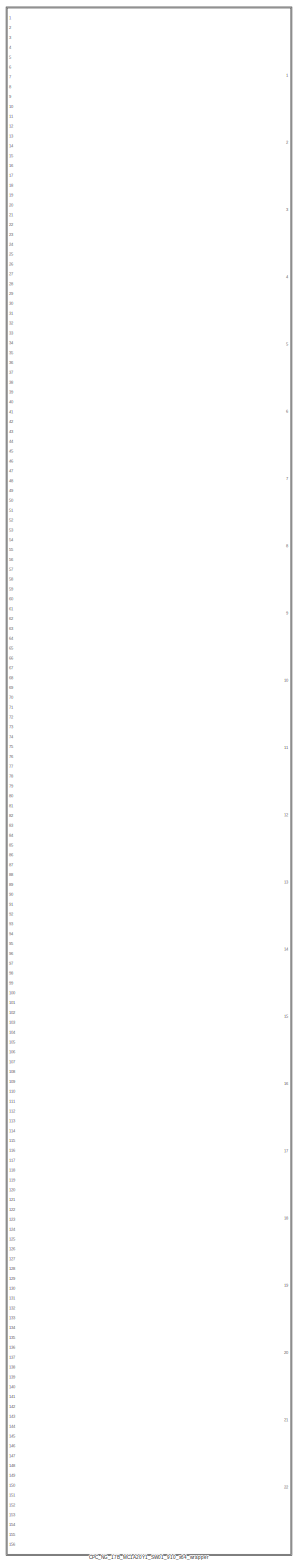
[diagram: root canvas - part 1/1, most of the canvas]
MODEL CPC_NG_17B_MC1A20Y1_SW01_910_x64_RB_Test
KIND model
CONFIG PreLoadFcn = CPC_NG_17B_MC1A20Y1_SW01_910_x64_InitFcn
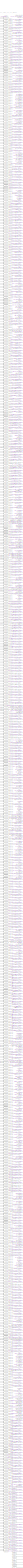
[diagram: CPC_NG_17B_MC1A20Y1_SW01_910_x64_wrapper - part 1/59, central region]
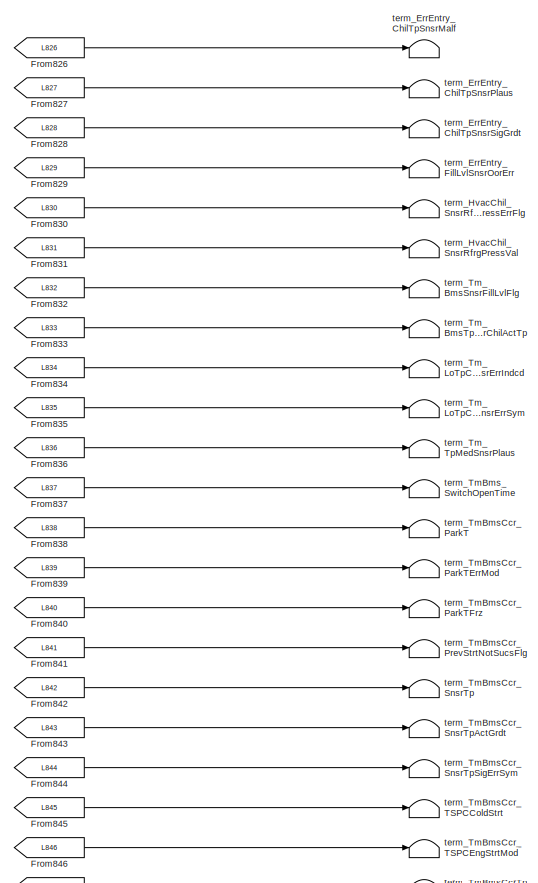
[diagram: CPC_NG_17B_MC1A20Y1_SW01_910_x64_wrapper - part 2/59, top right region]
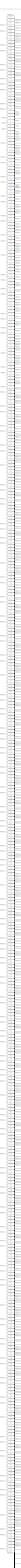
[diagram: CPC_NG_17B_MC1A20Y1_SW01_910_x64_wrapper - part 3/59, top left region]
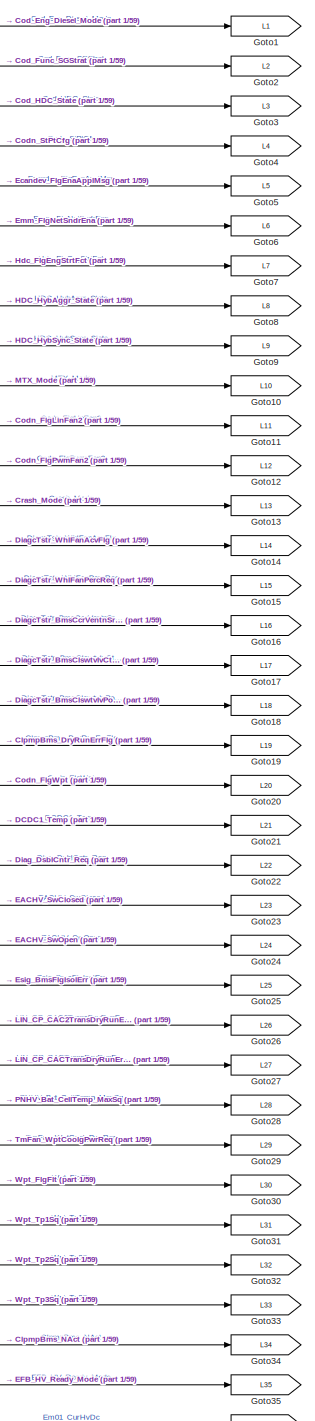
[diagram: CPC_NG_17B_MC1A20Y1_SW01_910_x64_wrapper - part 4/59, top center region]
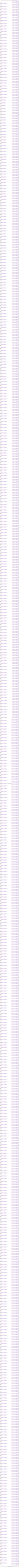
[diagram: CPC_NG_17B_MC1A20Y1_SW01_910_x64_wrapper - part 5/59, middle left region]
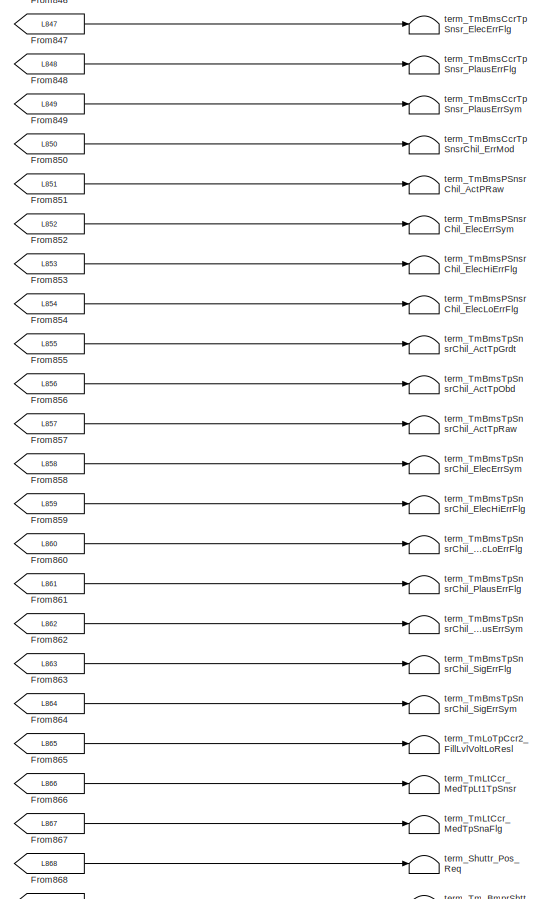
[diagram: CPC_NG_17B_MC1A20Y1_SW01_910_x64_wrapper - part 6/59, top right region]
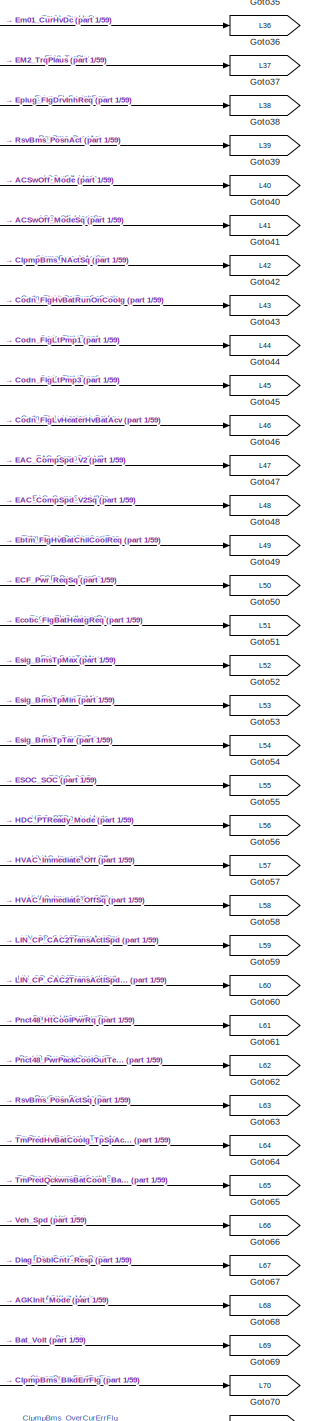
[diagram: CPC_NG_17B_MC1A20Y1_SW01_910_x64_wrapper - part 7/59, top center region]
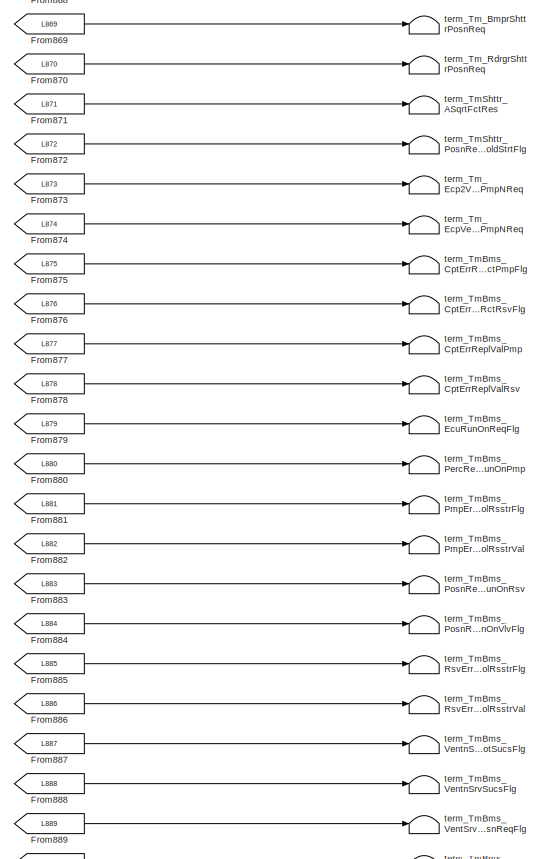
[diagram: CPC_NG_17B_MC1A20Y1_SW01_910_x64_wrapper - part 8/59, top right region]
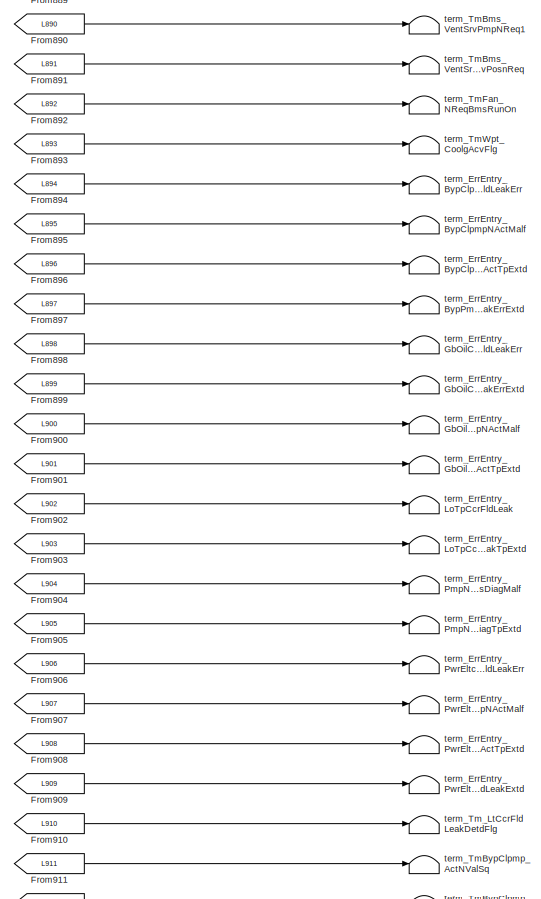
[diagram: CPC_NG_17B_MC1A20Y1_SW01_910_x64_wrapper - part 9/59, top right region]
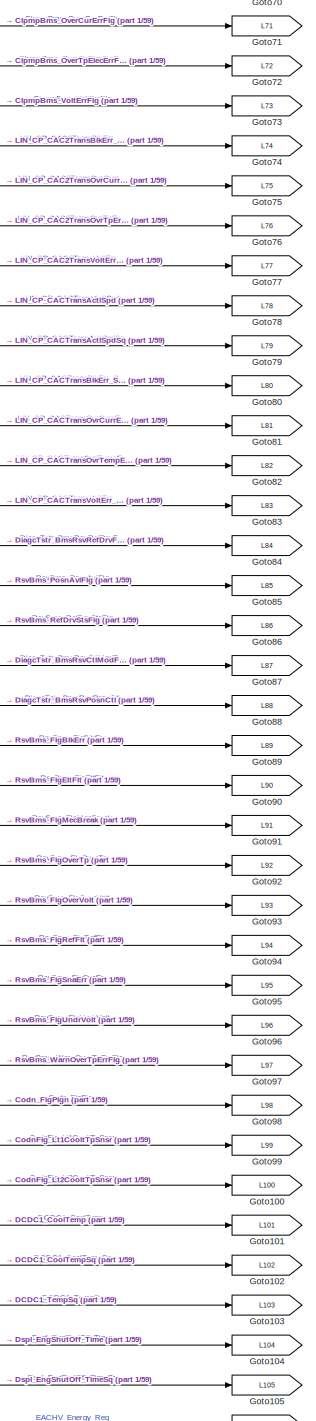
[diagram: CPC_NG_17B_MC1A20Y1_SW01_910_x64_wrapper - part 10/59, top center region]
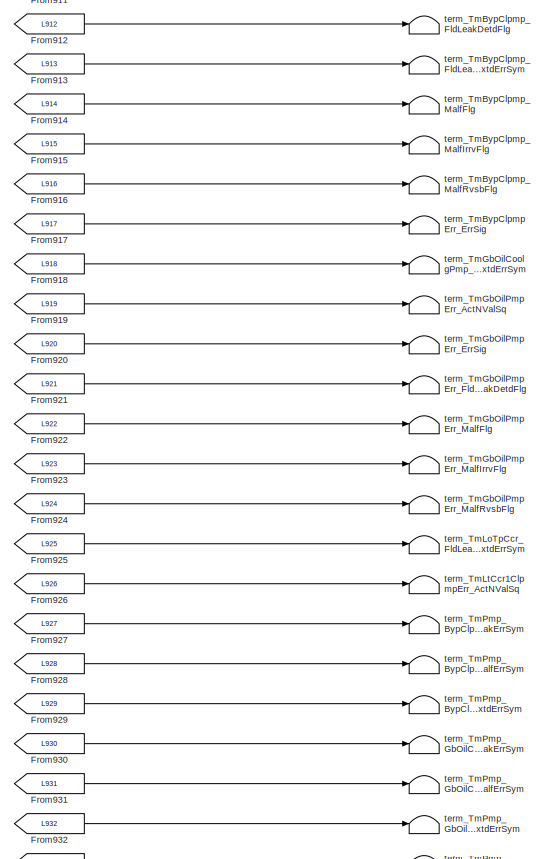
[diagram: CPC_NG_17B_MC1A20Y1_SW01_910_x64_wrapper - part 11/59, top right region]
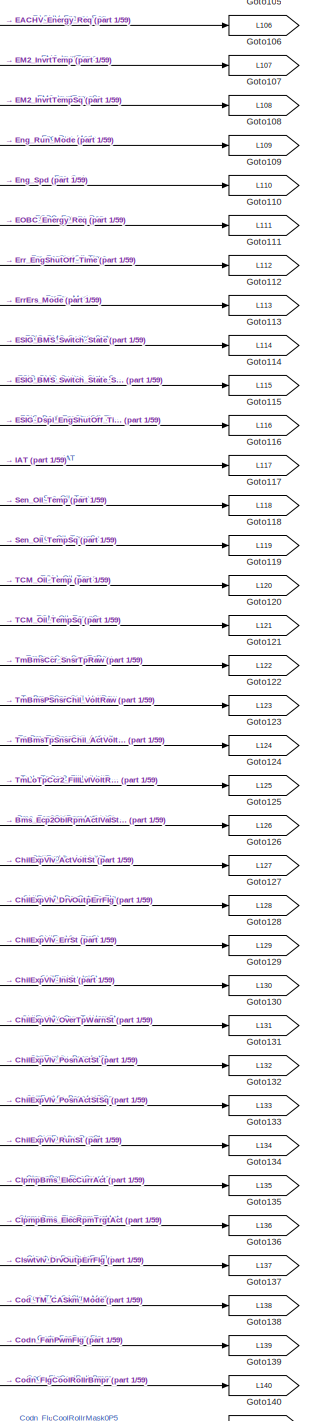
[diagram: CPC_NG_17B_MC1A20Y1_SW01_910_x64_wrapper - part 12/59, top center region]
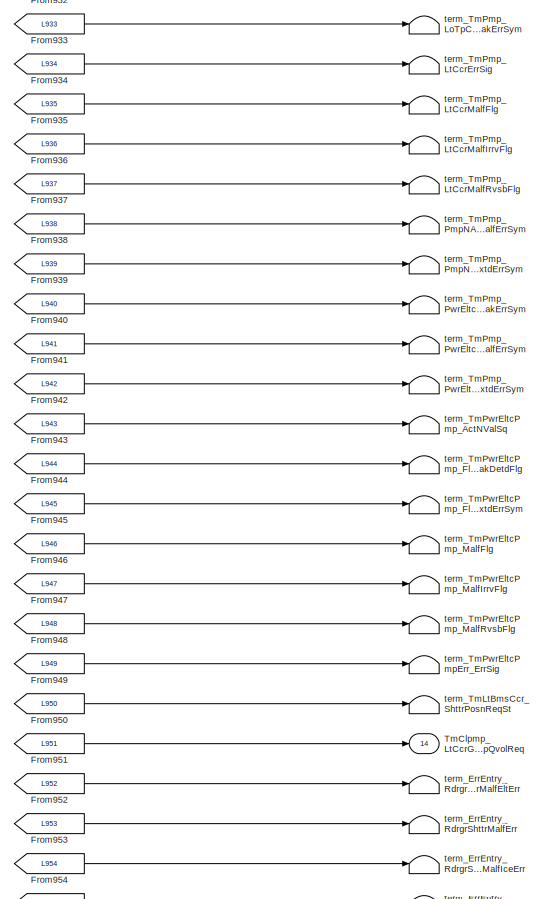
[diagram: CPC_NG_17B_MC1A20Y1_SW01_910_x64_wrapper - part 13/59, top right region]
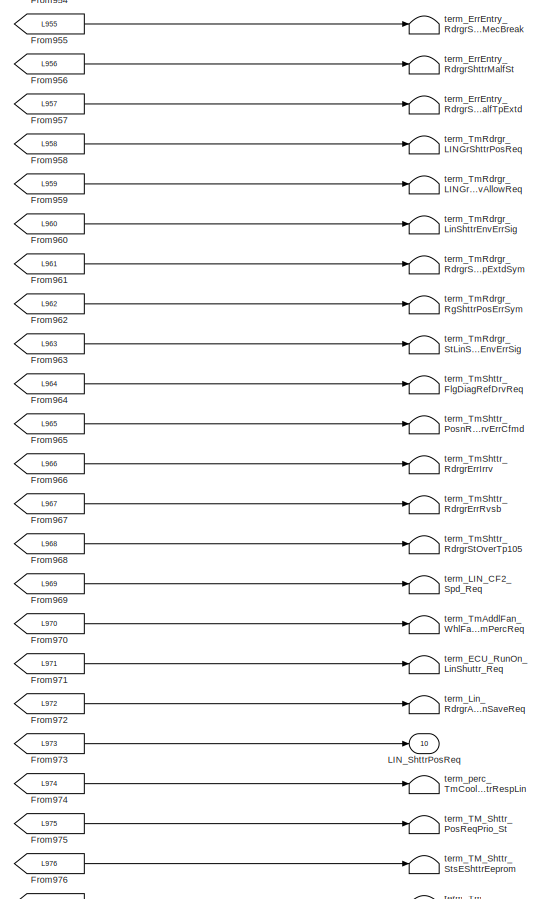
[diagram: CPC_NG_17B_MC1A20Y1_SW01_910_x64_wrapper - part 14/59, top right region]
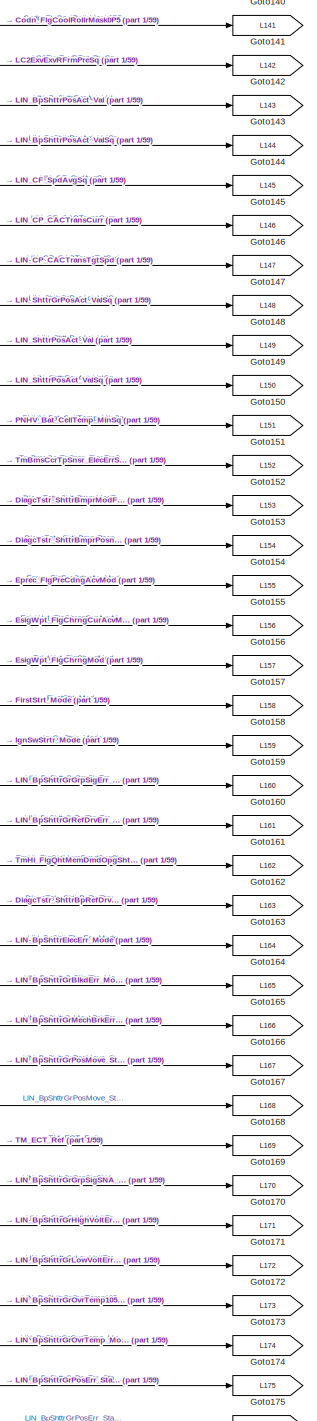
[diagram: CPC_NG_17B_MC1A20Y1_SW01_910_x64_wrapper - part 15/59, top center region]
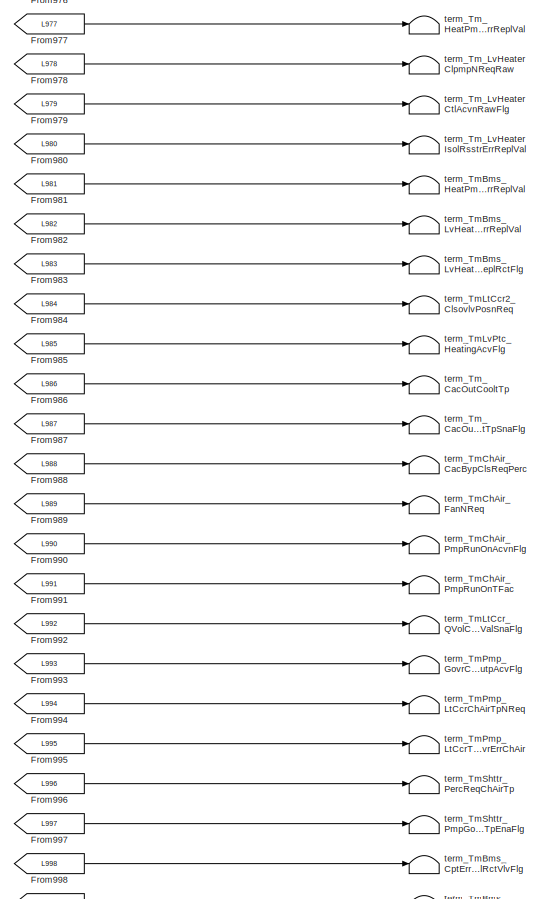
[diagram: CPC_NG_17B_MC1A20Y1_SW01_910_x64_wrapper - part 16/59, top right region]
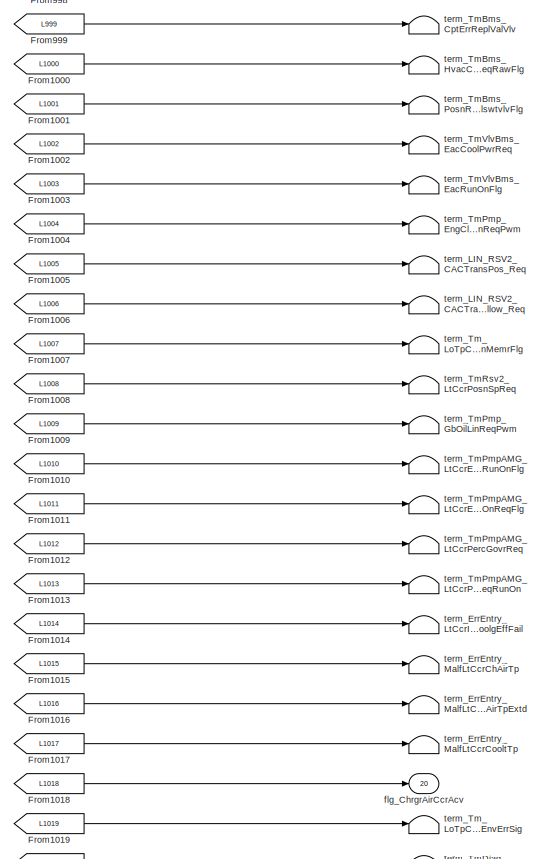
[diagram: CPC_NG_17B_MC1A20Y1_SW01_910_x64_wrapper - part 17/59, top right region]
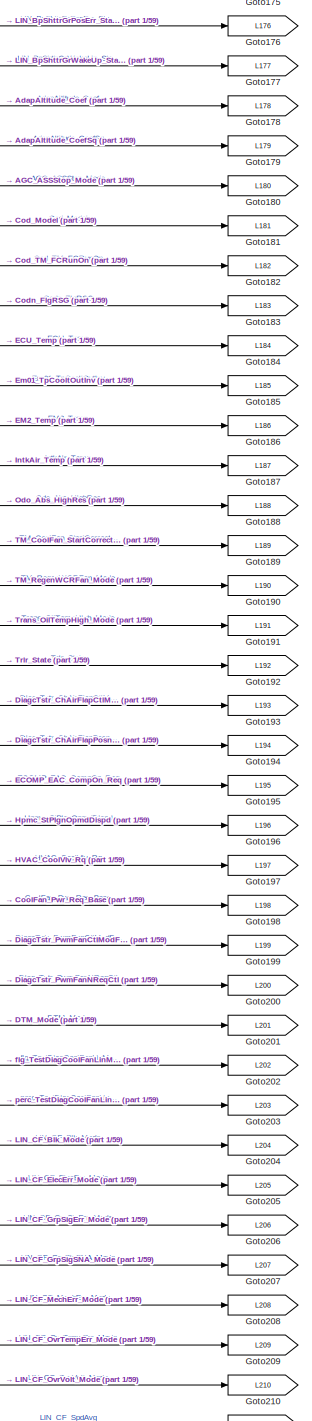
[diagram: CPC_NG_17B_MC1A20Y1_SW01_910_x64_wrapper - part 18/59, top center region]
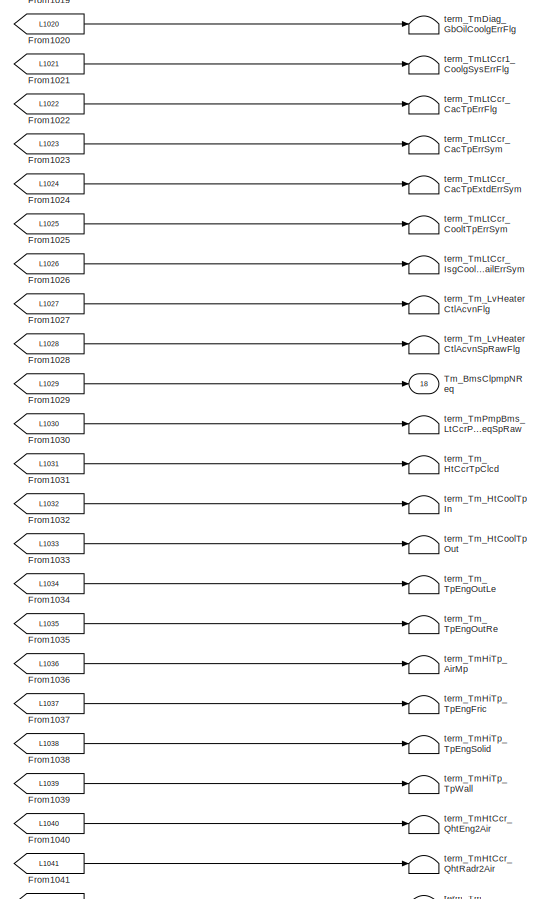
[diagram: CPC_NG_17B_MC1A20Y1_SW01_910_x64_wrapper - part 19/59, top right region]
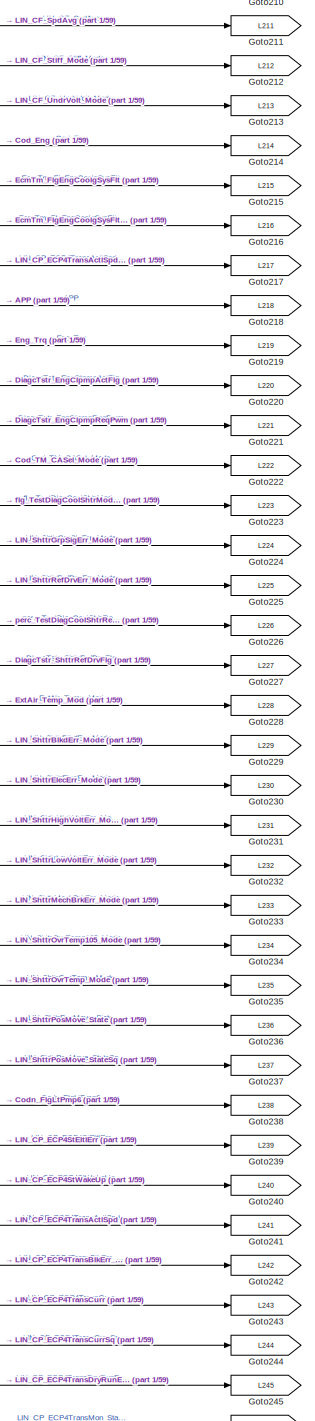
[diagram: CPC_NG_17B_MC1A20Y1_SW01_910_x64_wrapper - part 20/59, top center region]
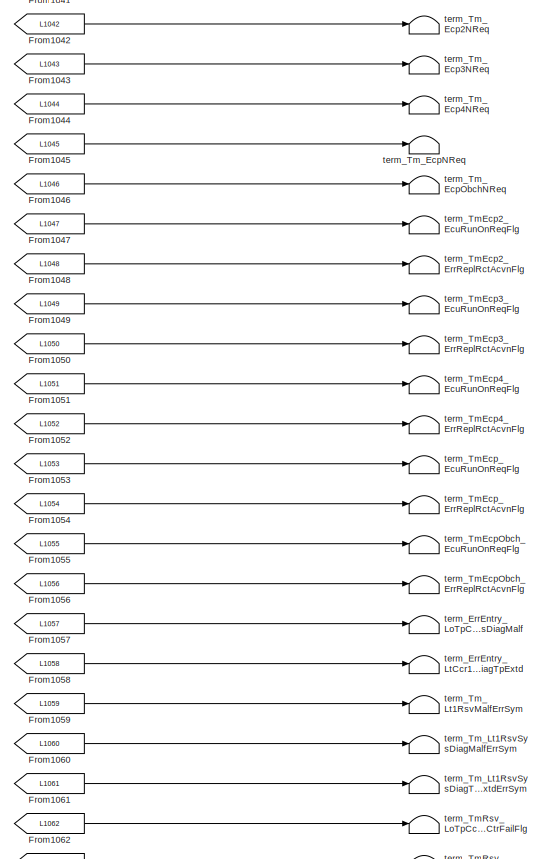
[diagram: CPC_NG_17B_MC1A20Y1_SW01_910_x64_wrapper - part 21/59, top right region]
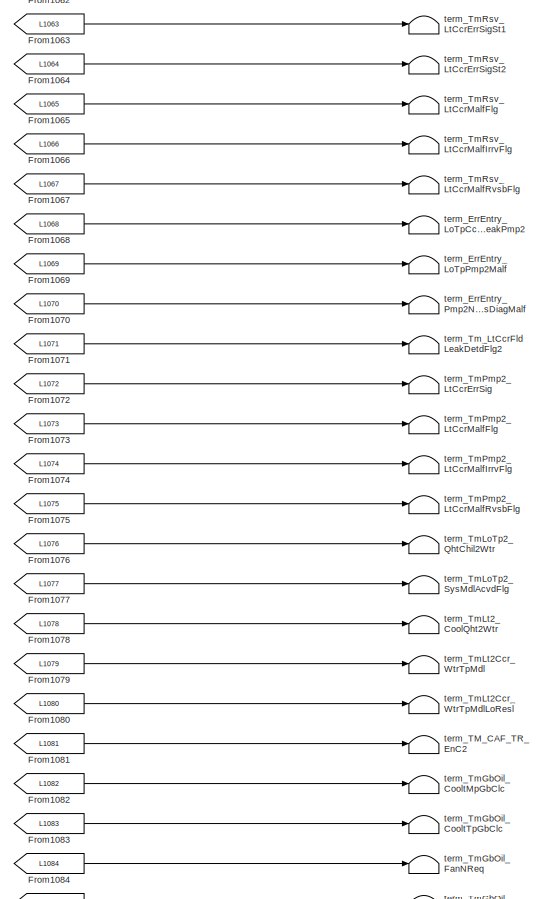
[diagram: CPC_NG_17B_MC1A20Y1_SW01_910_x64_wrapper - part 22/59, top right region]
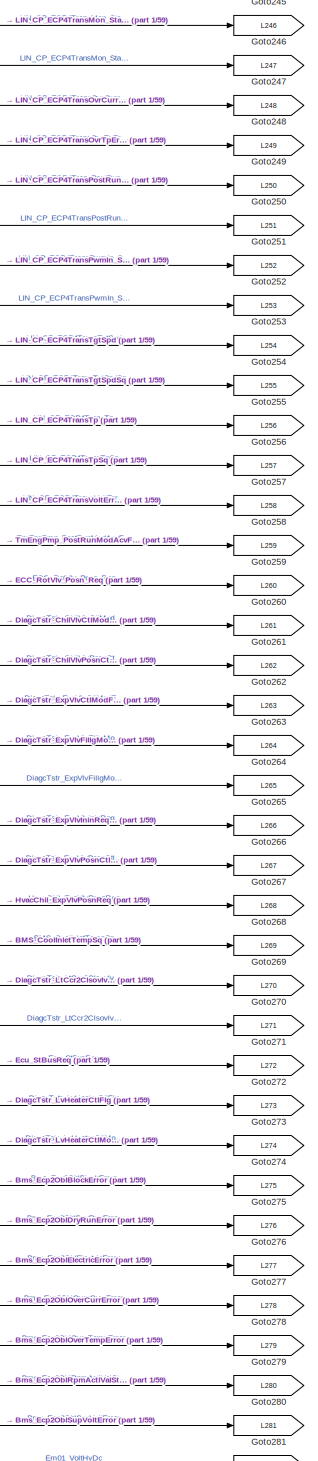
[diagram: CPC_NG_17B_MC1A20Y1_SW01_910_x64_wrapper - part 23/59, top center region]
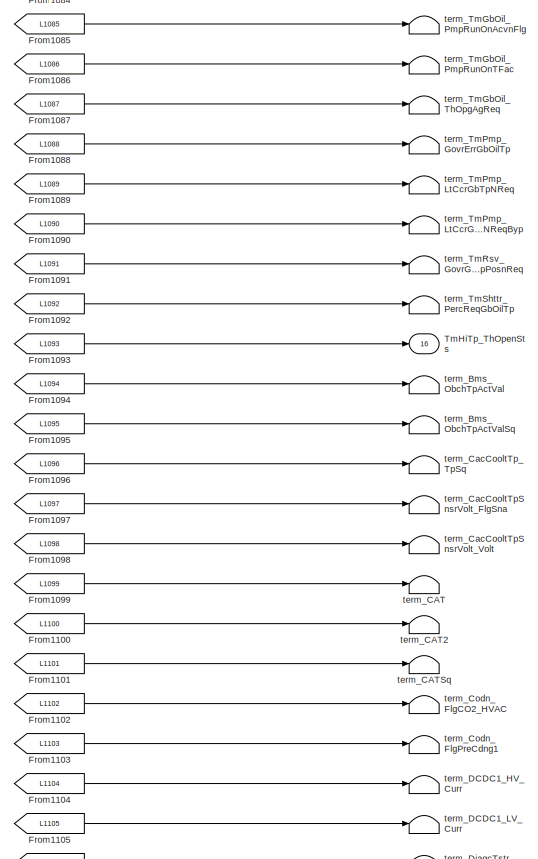
[diagram: CPC_NG_17B_MC1A20Y1_SW01_910_x64_wrapper - part 24/59, top right region]
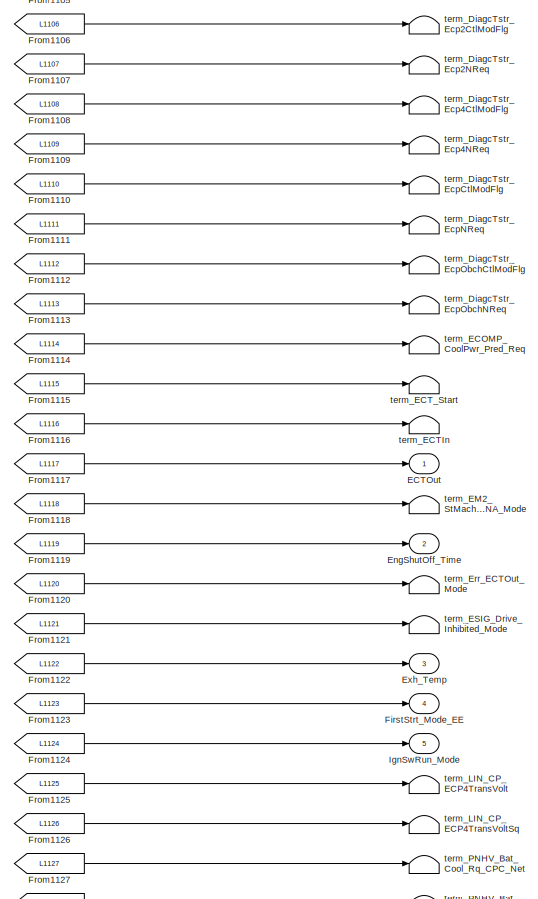
[diagram: CPC_NG_17B_MC1A20Y1_SW01_910_x64_wrapper - part 25/59, middle right region]
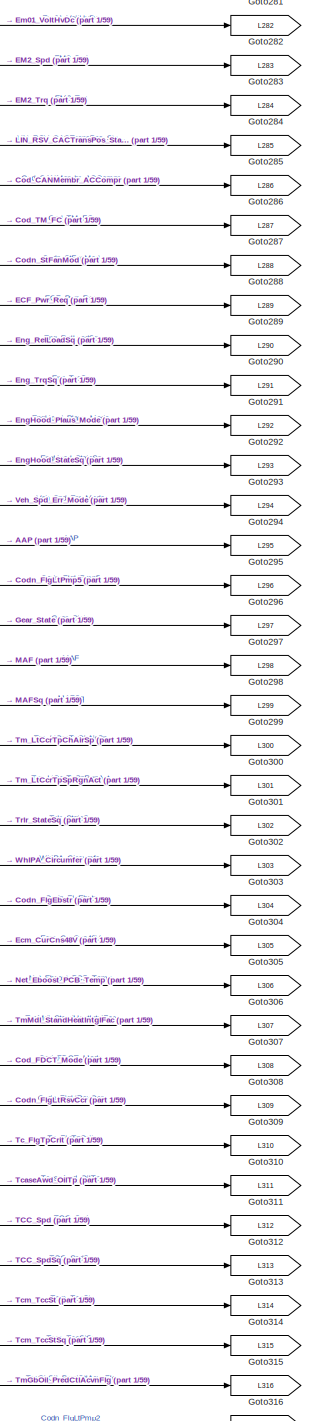
[diagram: CPC_NG_17B_MC1A20Y1_SW01_910_x64_wrapper - part 26/59, central region]
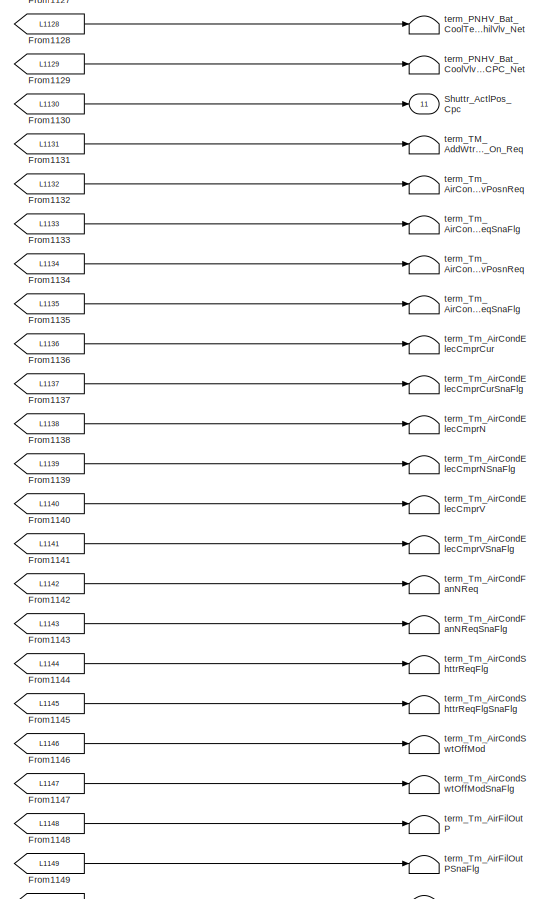
[diagram: CPC_NG_17B_MC1A20Y1_SW01_910_x64_wrapper - part 27/59, middle right region]
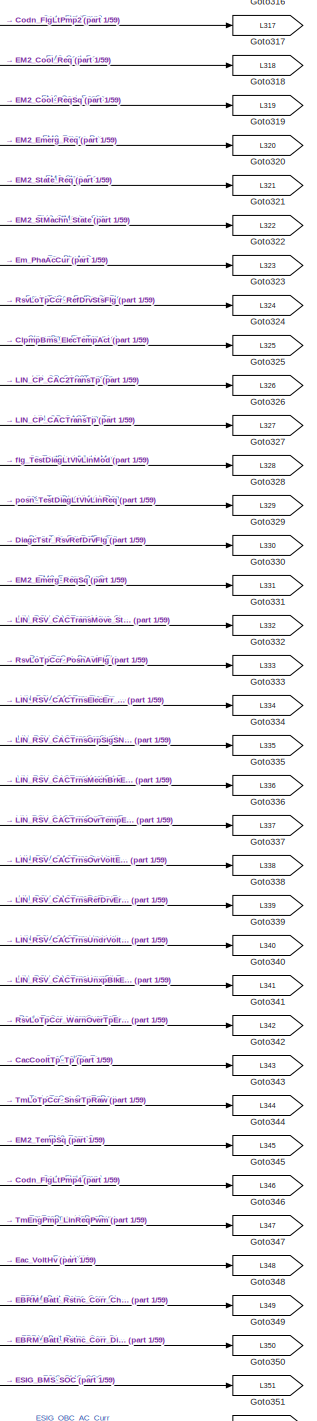
[diagram: CPC_NG_17B_MC1A20Y1_SW01_910_x64_wrapper - part 28/59, central region]
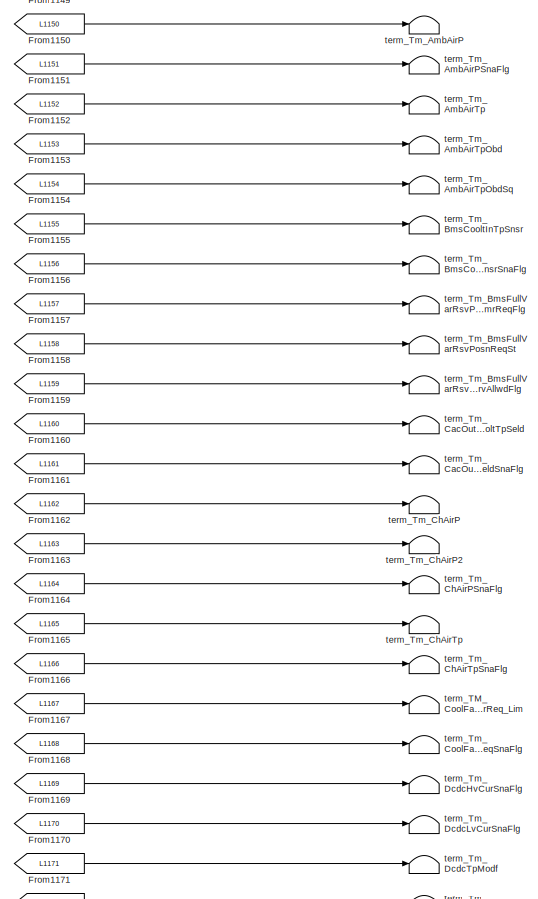
[diagram: CPC_NG_17B_MC1A20Y1_SW01_910_x64_wrapper - part 29/59, middle right region]
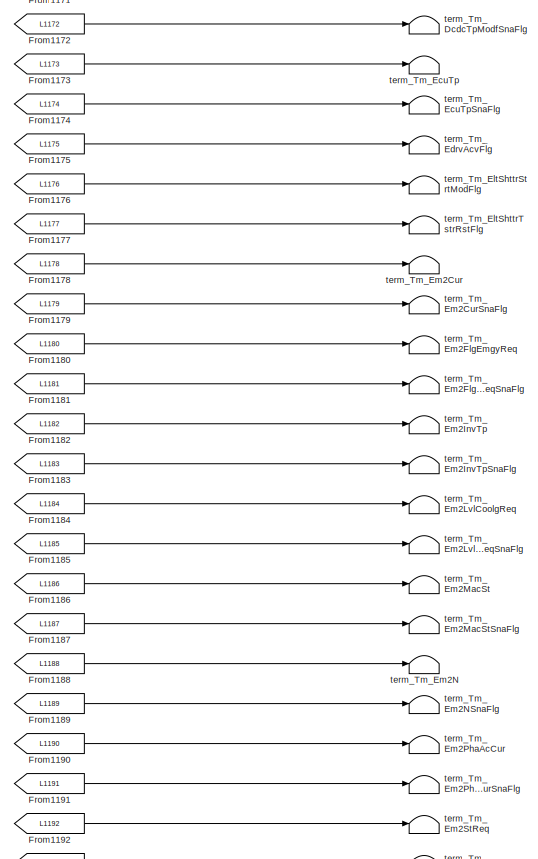
[diagram: CPC_NG_17B_MC1A20Y1_SW01_910_x64_wrapper - part 30/59, middle right region]
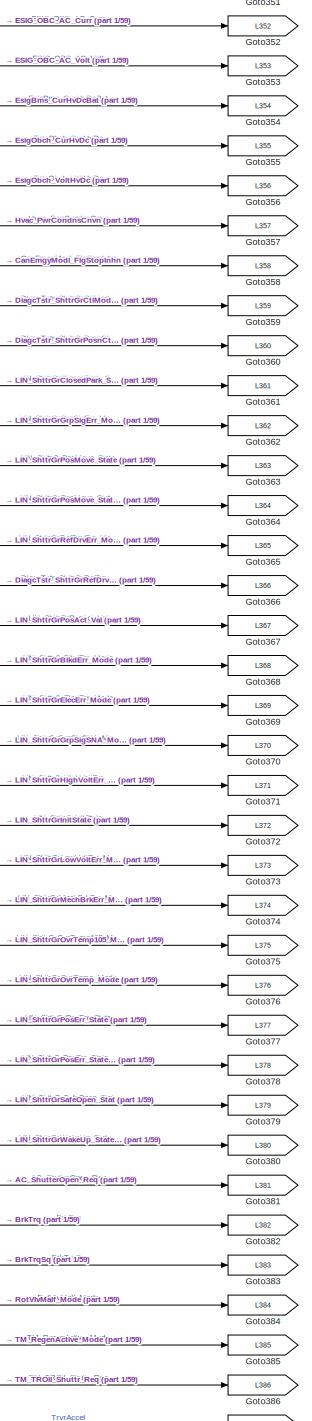
[diagram: CPC_NG_17B_MC1A20Y1_SW01_910_x64_wrapper - part 31/59, central region]
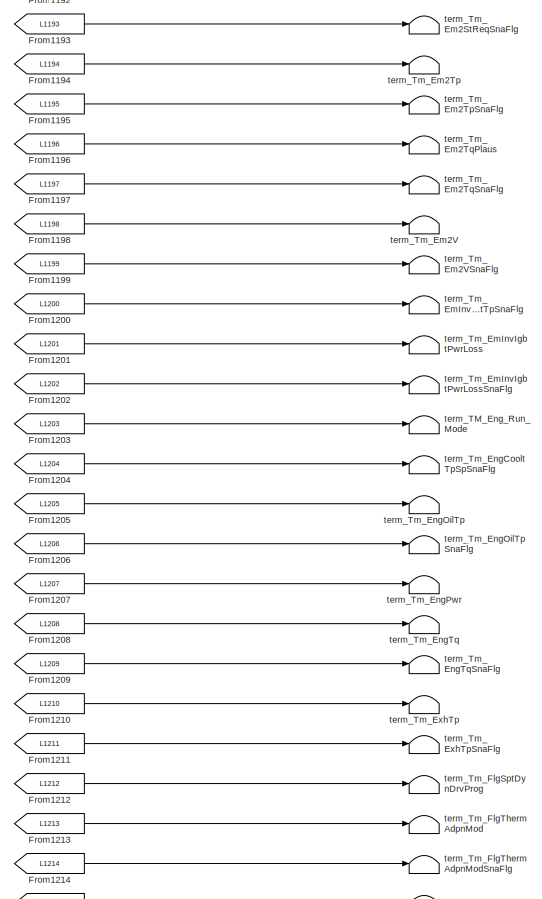
[diagram: CPC_NG_17B_MC1A20Y1_SW01_910_x64_wrapper - part 32/59, middle right region]
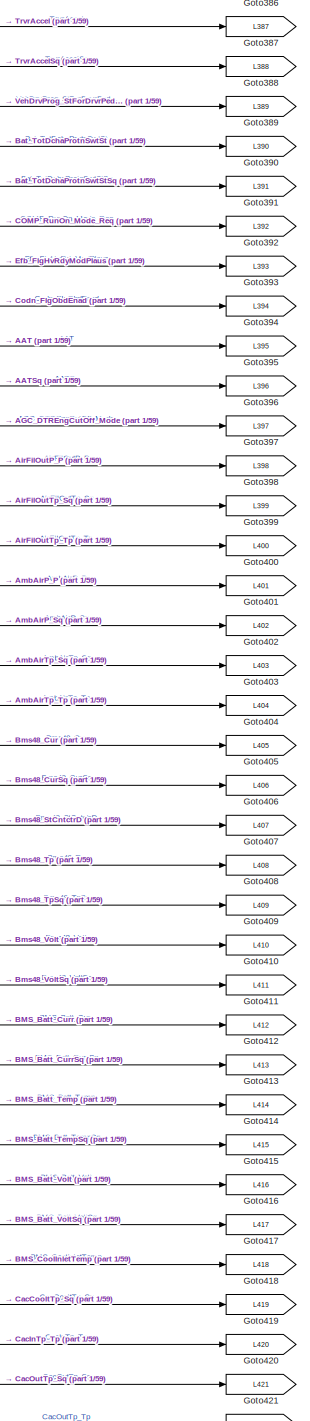
[diagram: CPC_NG_17B_MC1A20Y1_SW01_910_x64_wrapper - part 33/59, central region]
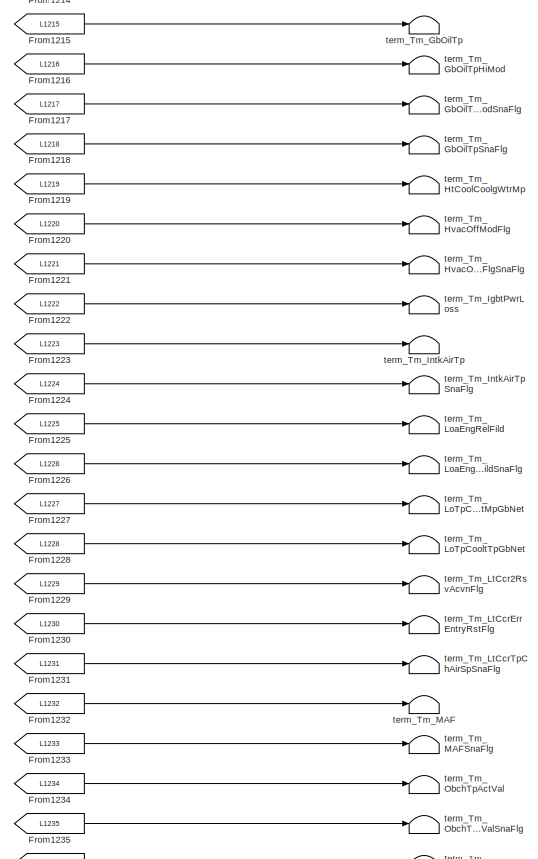
[diagram: CPC_NG_17B_MC1A20Y1_SW01_910_x64_wrapper - part 34/59, middle right region]
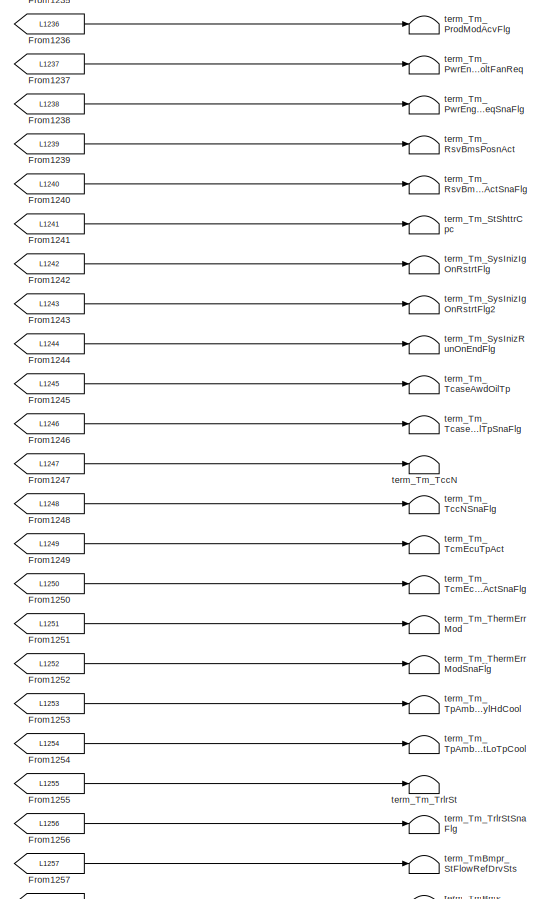
[diagram: CPC_NG_17B_MC1A20Y1_SW01_910_x64_wrapper - part 35/59, middle right region]
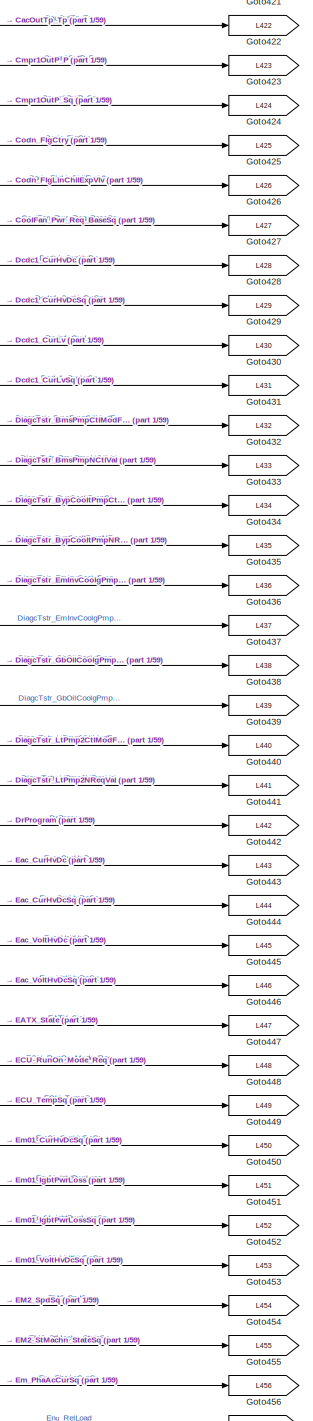
[diagram: CPC_NG_17B_MC1A20Y1_SW01_910_x64_wrapper - part 36/59, central region]
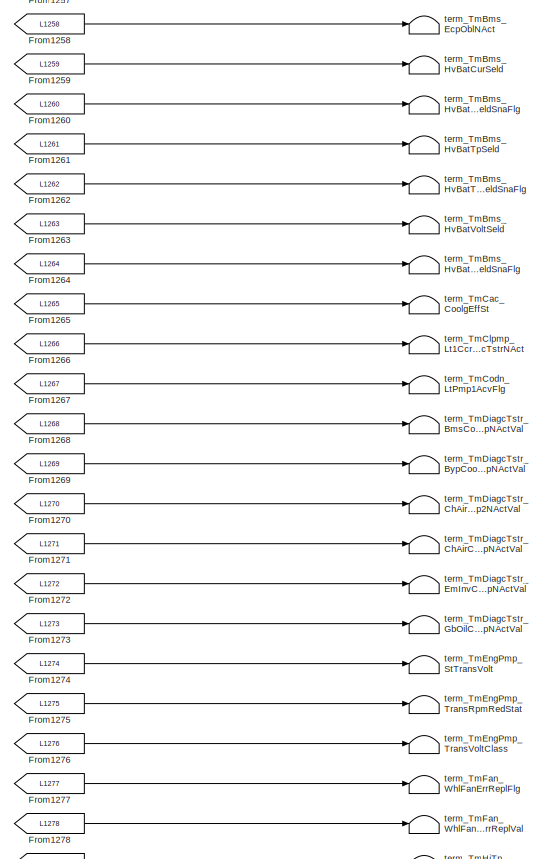
[diagram: CPC_NG_17B_MC1A20Y1_SW01_910_x64_wrapper - part 37/59, middle right region]
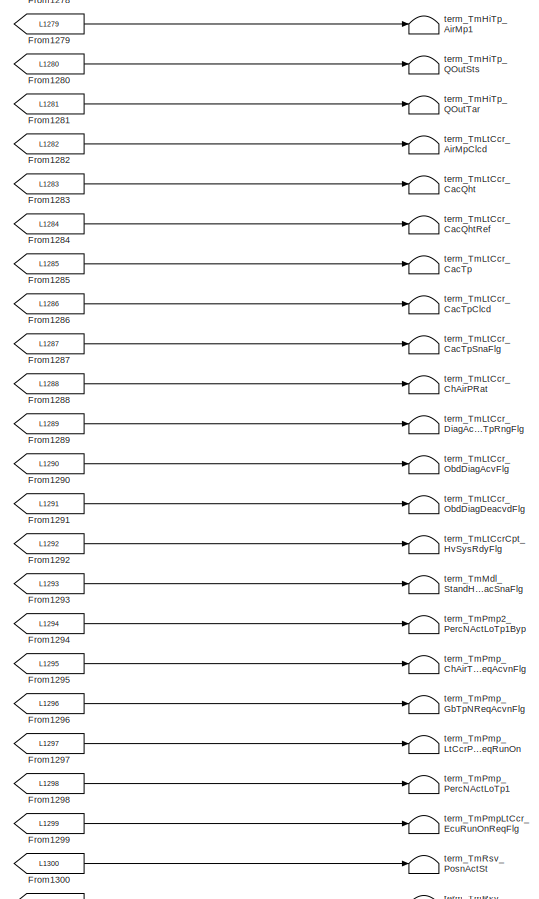
[diagram: CPC_NG_17B_MC1A20Y1_SW01_910_x64_wrapper - part 38/59, middle right region]
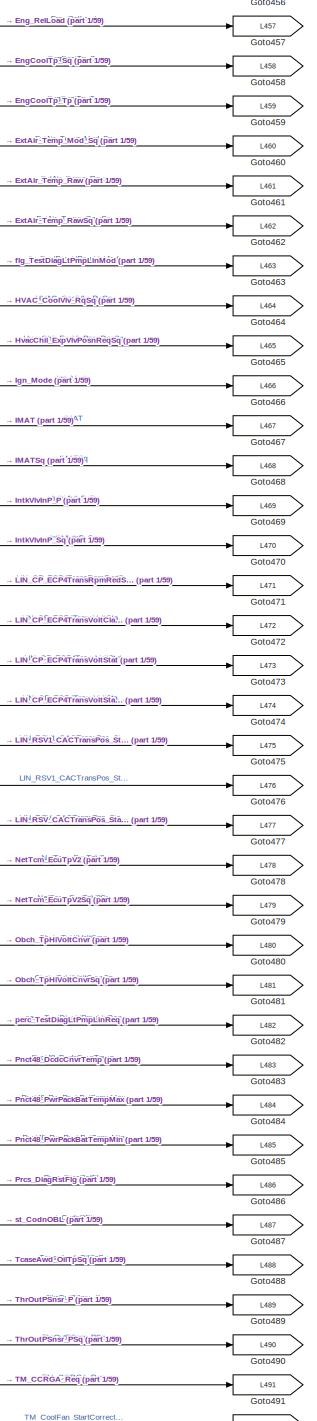
[diagram: CPC_NG_17B_MC1A20Y1_SW01_910_x64_wrapper - part 39/59, central region]
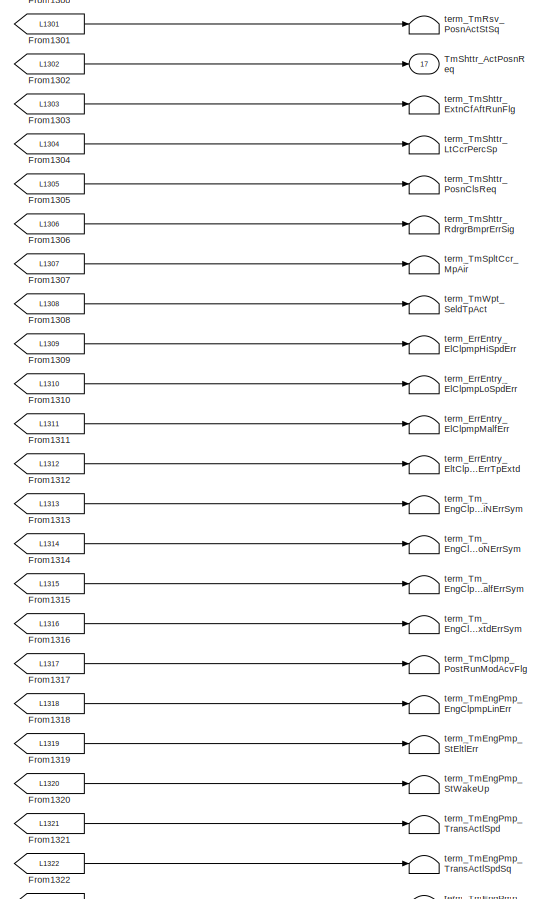
[diagram: CPC_NG_17B_MC1A20Y1_SW01_910_x64_wrapper - part 40/59, middle right region]
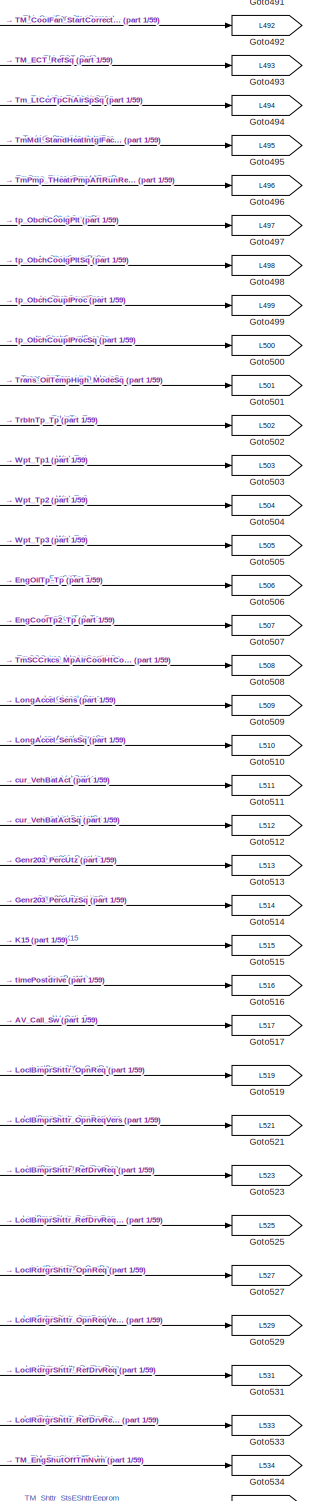
[diagram: CPC_NG_17B_MC1A20Y1_SW01_910_x64_wrapper - part 41/59, central region]
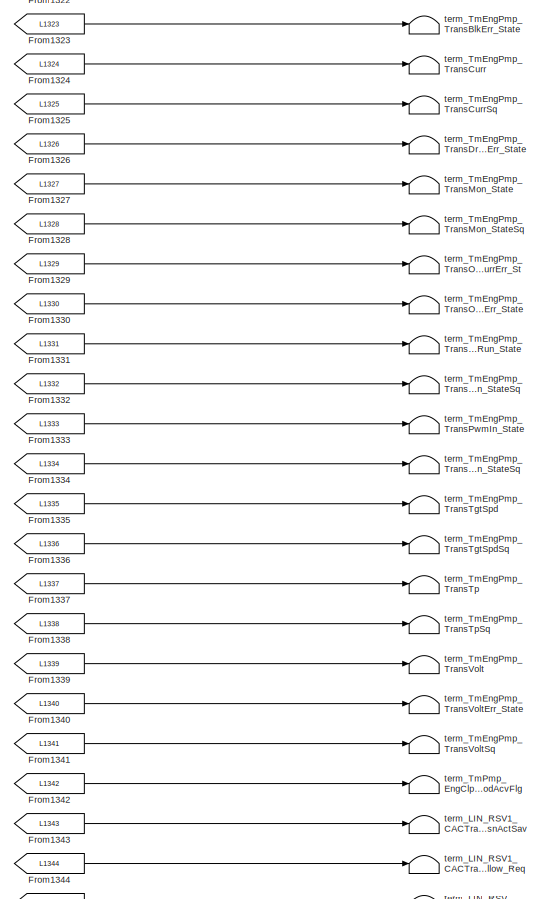
[diagram: CPC_NG_17B_MC1A20Y1_SW01_910_x64_wrapper - part 42/59, middle right region]
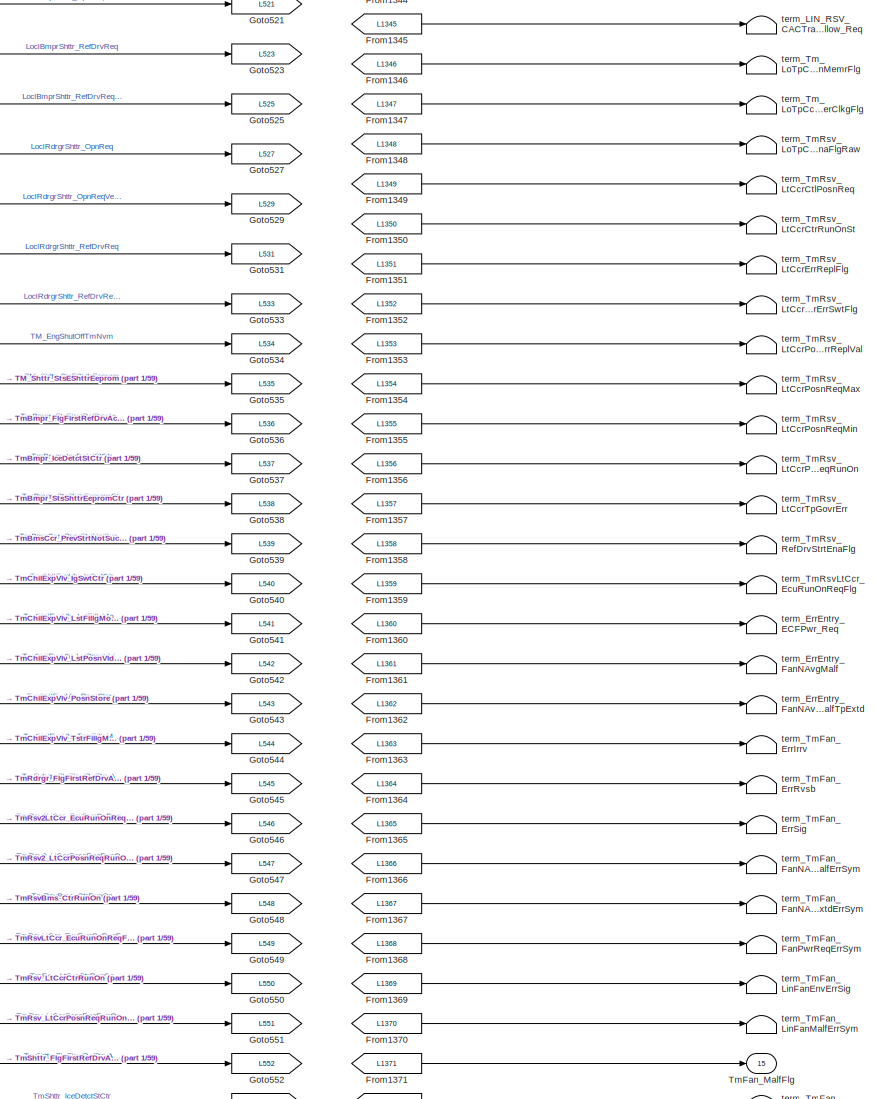
[diagram: CPC_NG_17B_MC1A20Y1_SW01_910_x64_wrapper - part 43/59, middle right region]
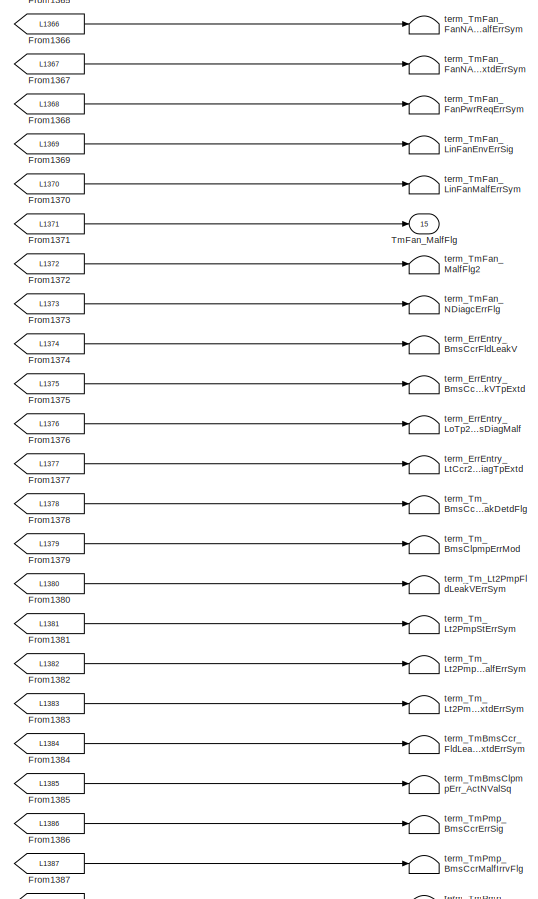
[diagram: CPC_NG_17B_MC1A20Y1_SW01_910_x64_wrapper - part 44/59, bottom right region]
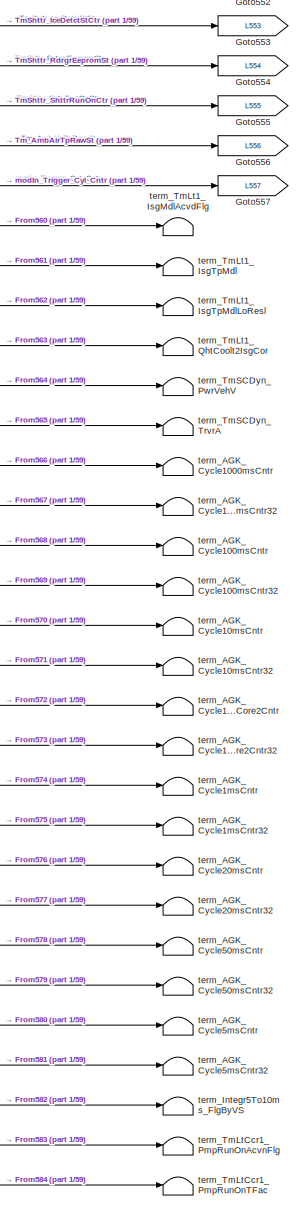
[diagram: CPC_NG_17B_MC1A20Y1_SW01_910_x64_wrapper - part 45/59, bottom center region]
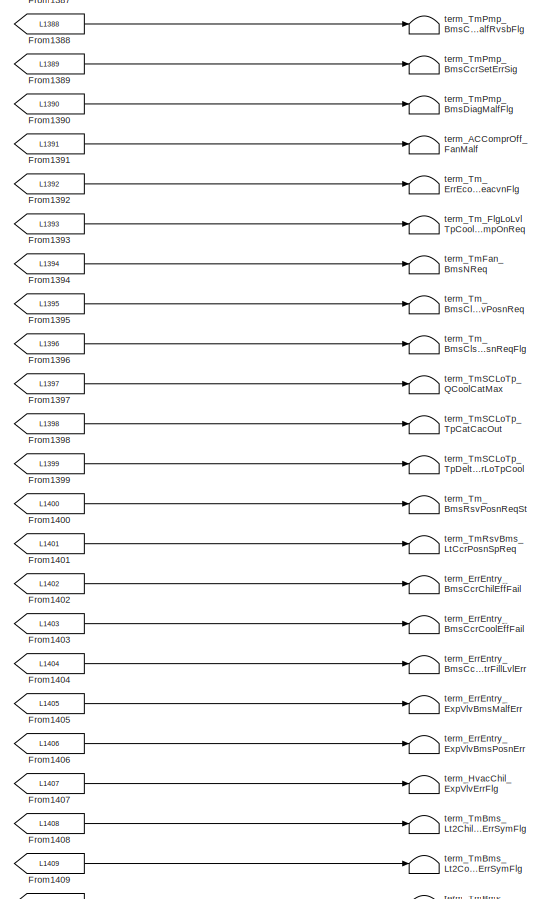
[diagram: CPC_NG_17B_MC1A20Y1_SW01_910_x64_wrapper - part 46/59, bottom right region]
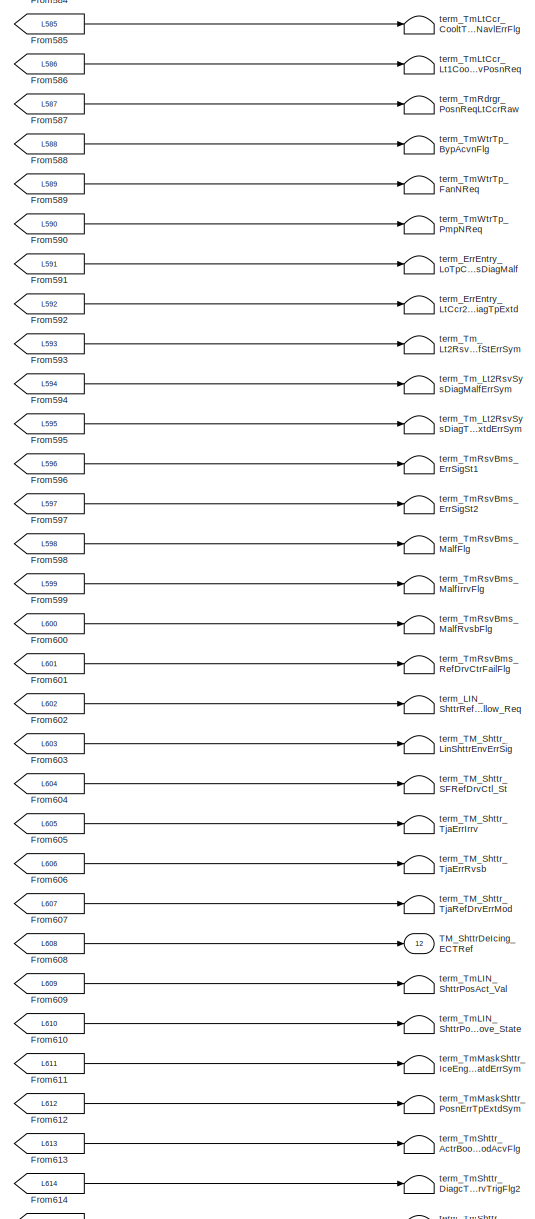
[diagram: CPC_NG_17B_MC1A20Y1_SW01_910_x64_wrapper - part 47/59, bottom center region]
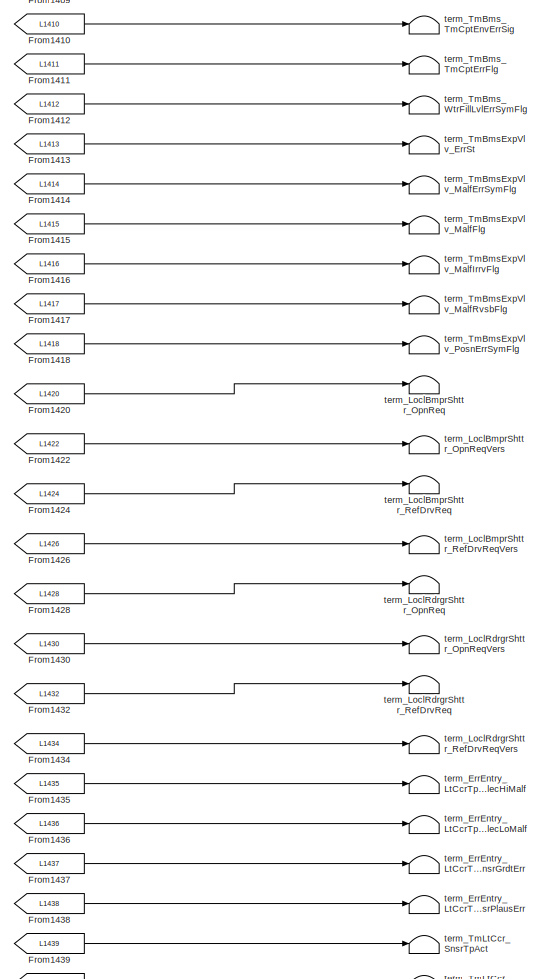
[diagram: CPC_NG_17B_MC1A20Y1_SW01_910_x64_wrapper - part 48/59, bottom right region]
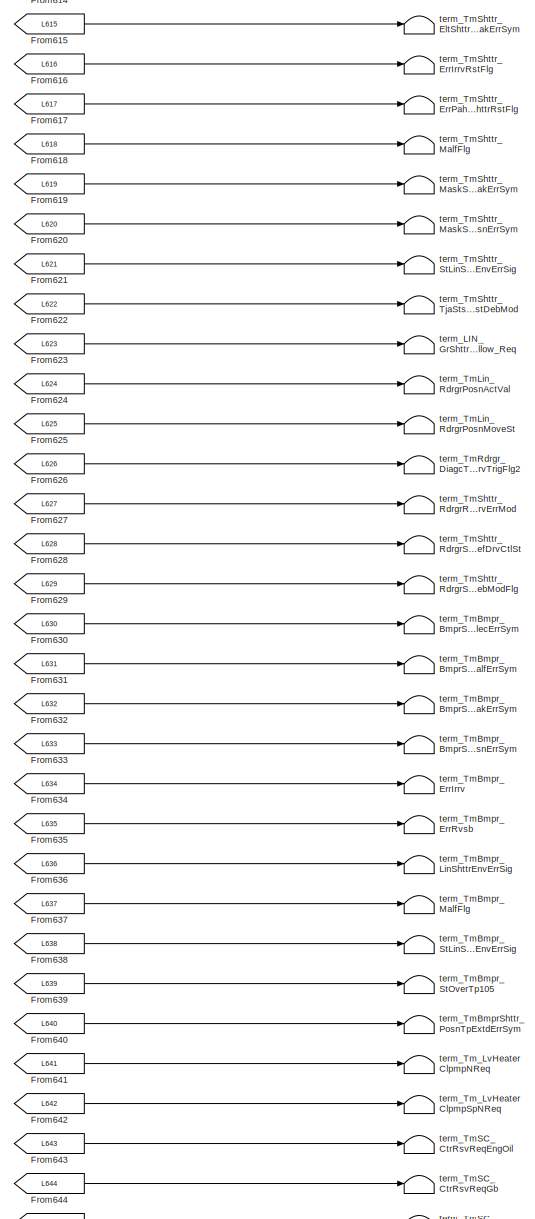
[diagram: CPC_NG_17B_MC1A20Y1_SW01_910_x64_wrapper - part 49/59, bottom center region]
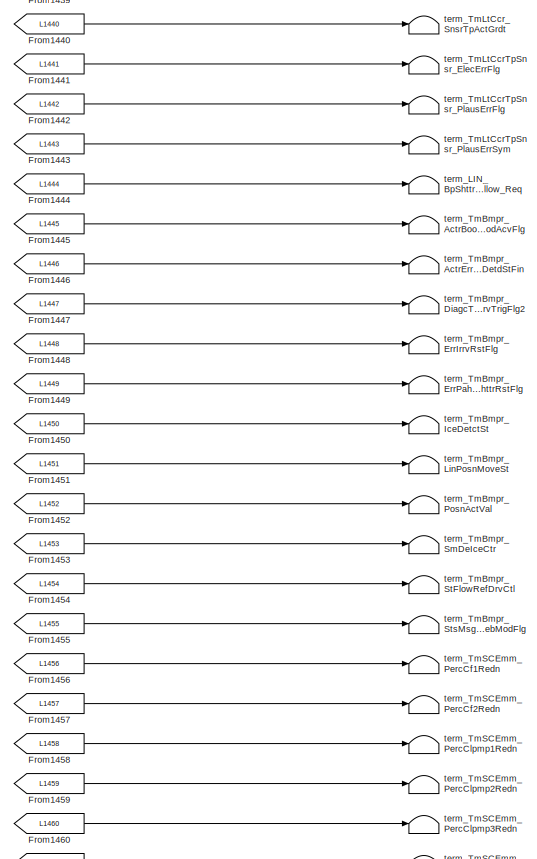
[diagram: CPC_NG_17B_MC1A20Y1_SW01_910_x64_wrapper - part 50/59, bottom right region]
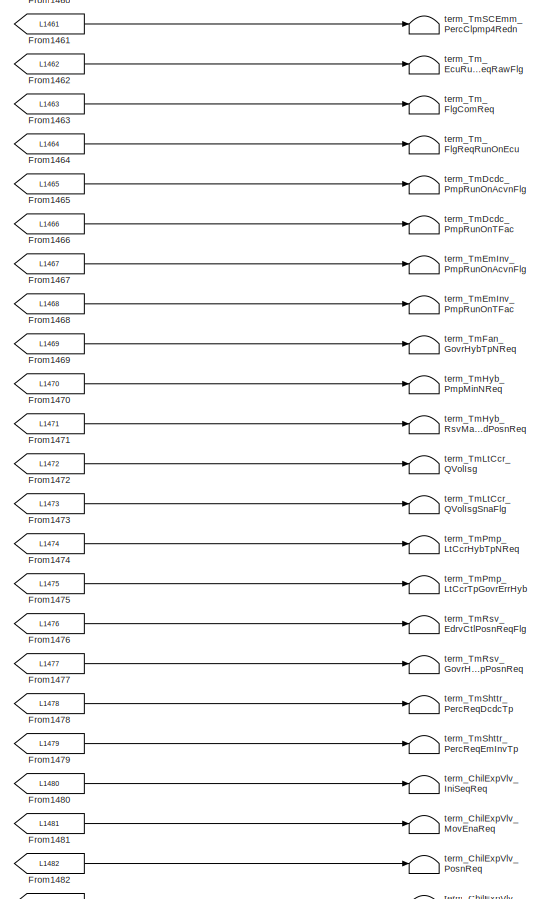
[diagram: CPC_NG_17B_MC1A20Y1_SW01_910_x64_wrapper - part 51/59, bottom right region]
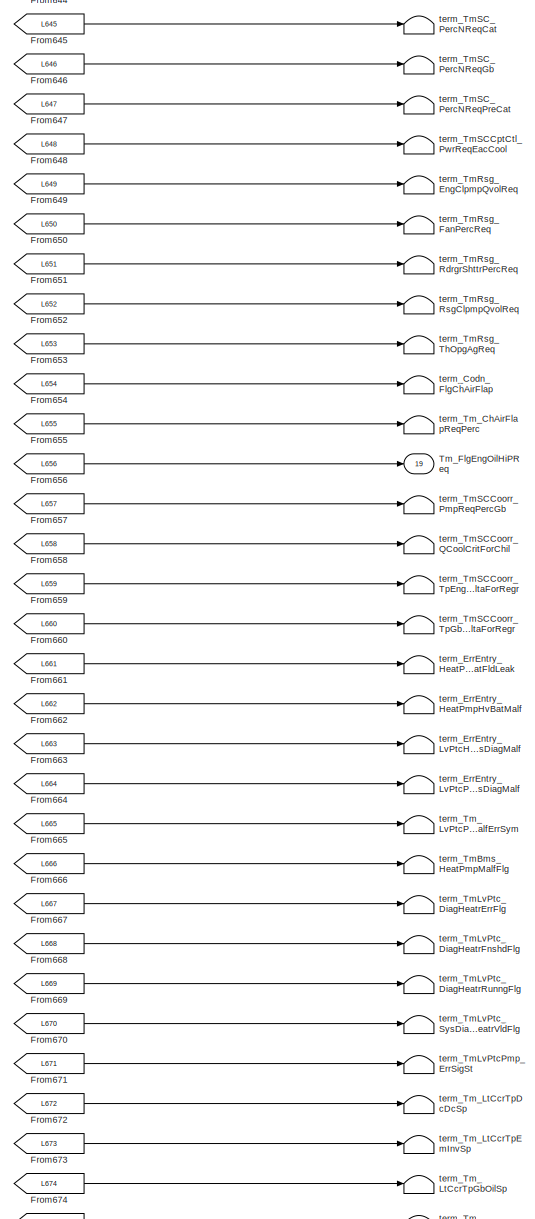
[diagram: CPC_NG_17B_MC1A20Y1_SW01_910_x64_wrapper - part 52/59, bottom center region]
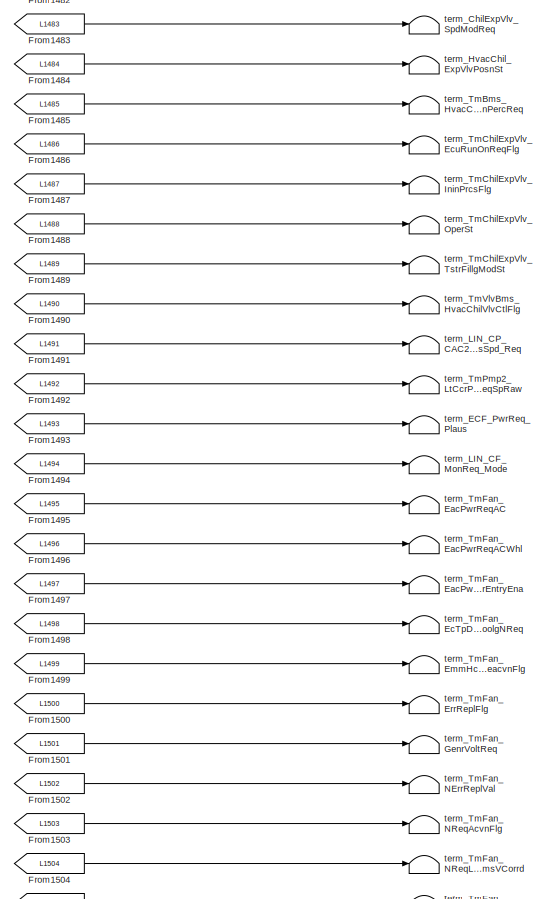
[diagram: CPC_NG_17B_MC1A20Y1_SW01_910_x64_wrapper - part 53/59, bottom right region]
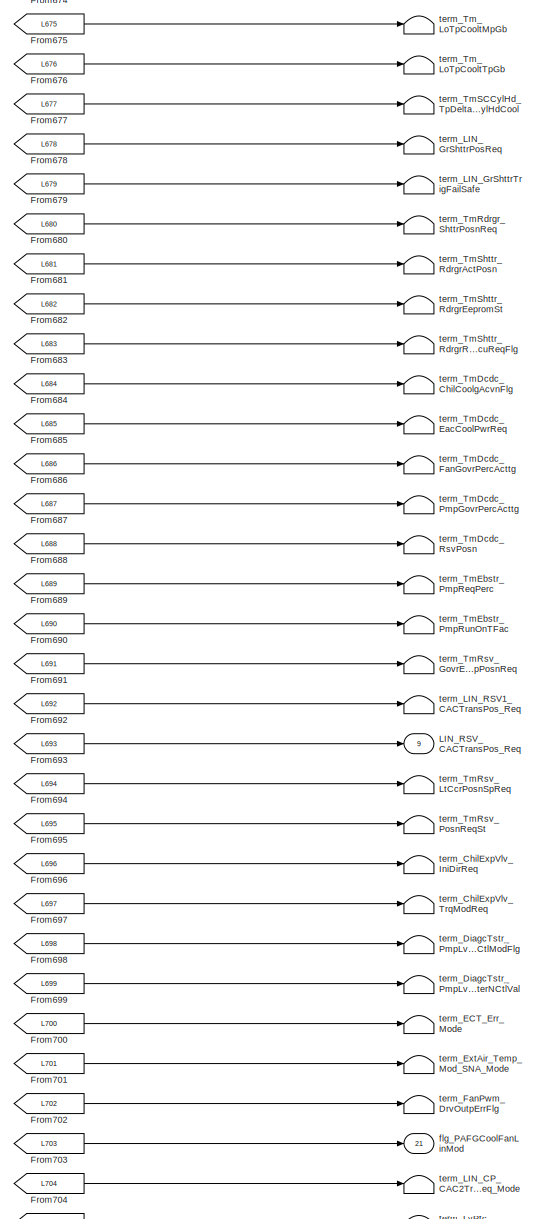
[diagram: CPC_NG_17B_MC1A20Y1_SW01_910_x64_wrapper - part 54/59, bottom center region]
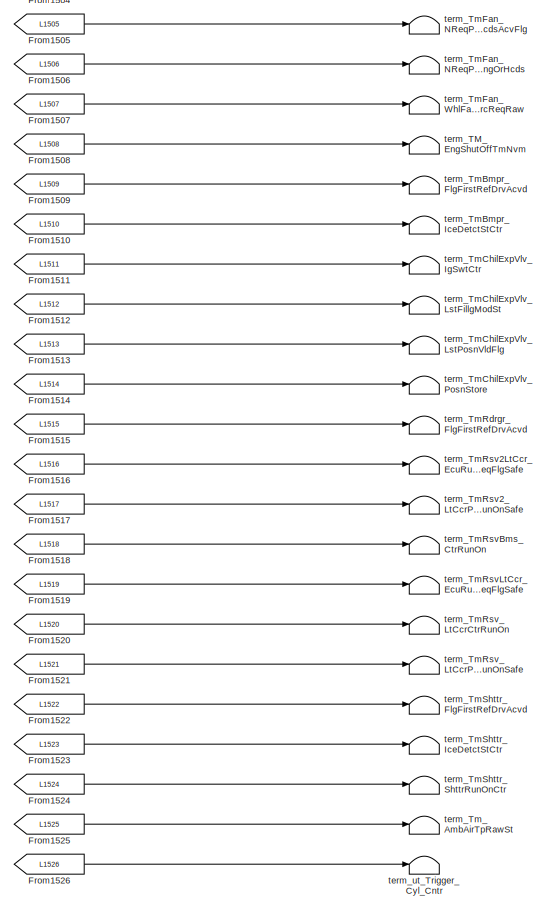
[diagram: CPC_NG_17B_MC1A20Y1_SW01_910_x64_wrapper - part 55/59, bottom right region]
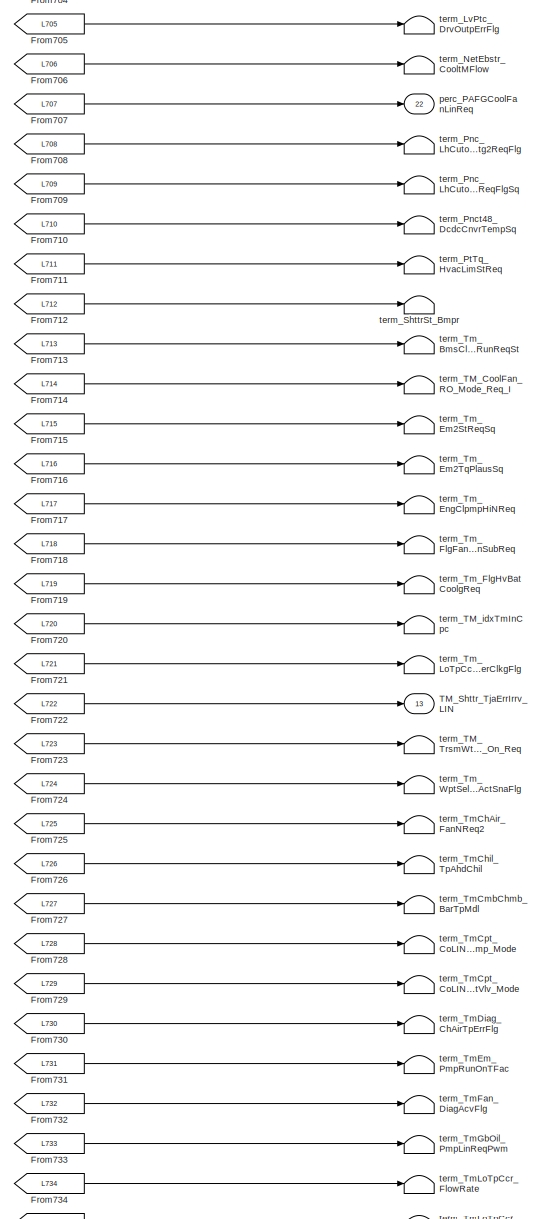
[diagram: CPC_NG_17B_MC1A20Y1_SW01_910_x64_wrapper - part 56/59, bottom center region]
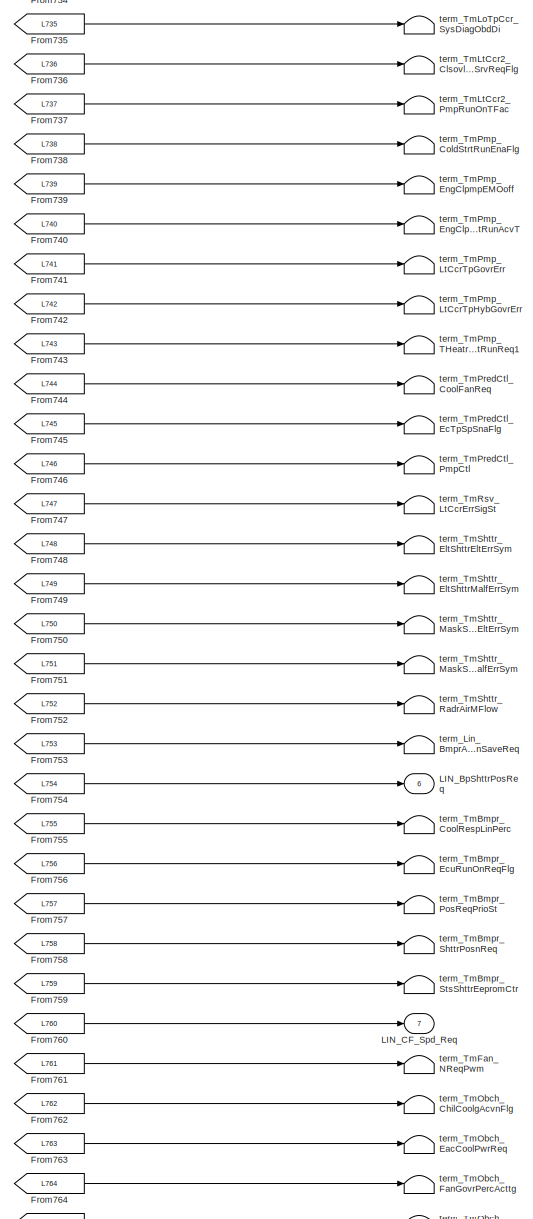
[diagram: CPC_NG_17B_MC1A20Y1_SW01_910_x64_wrapper - part 57/59, bottom center region]
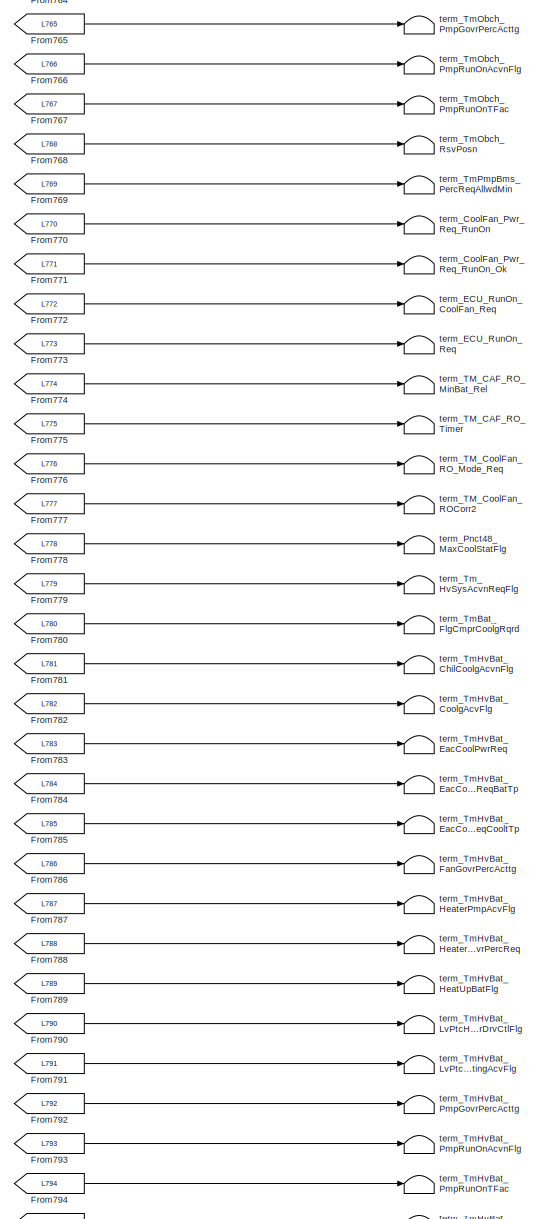
[diagram: CPC_NG_17B_MC1A20Y1_SW01_910_x64_wrapper - part 58/59, bottom center region]
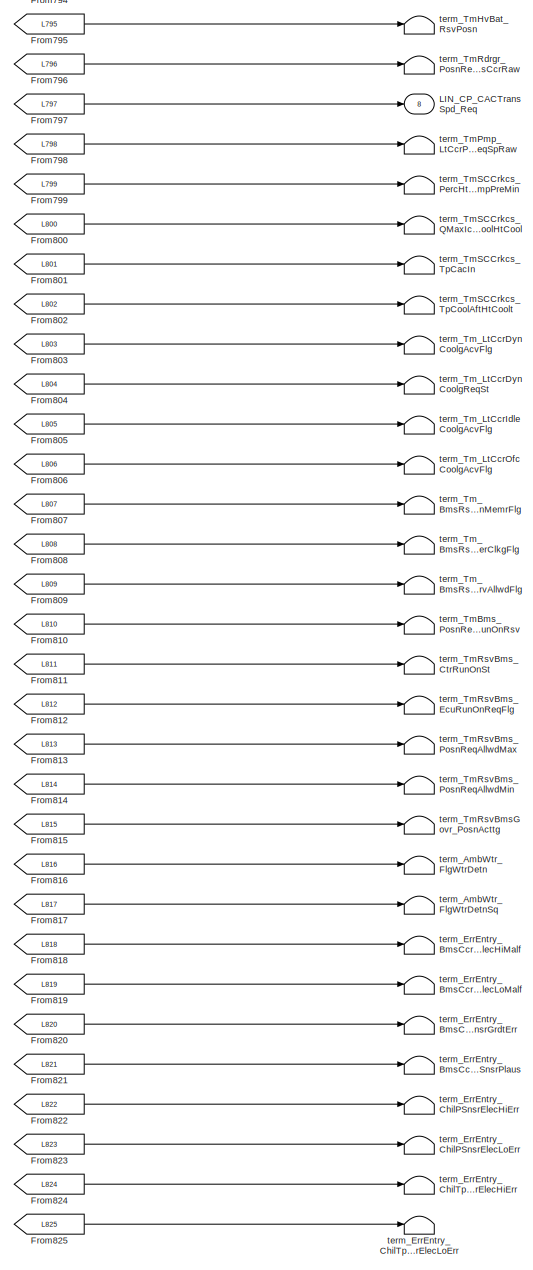
[diagram: CPC_NG_17B_MC1A20Y1_SW01_910_x64_wrapper - part 59/59, bottom center region]
BLOCK [SubSystem] CPC_NG_17B_MC1A20Y1_SW01_910_x64_wrapper
  FunctionWithSeparateData = off
  MaskDisplay = patch(.5 + 0.03*8*cos(0:pi/50:2*pi),   .5 + 0.084 *8*sin(0:pi/50:2*pi), [0 0 1])\npatch(.5 + 0.03*[6.5, 8, 0, -1.5],     .5 + 0.084 *[-8,-6.5, 1.5, 0], [.8, .8, .8])\npatch(.5 + 0.03*5.5*cos(0:pi/50:2*pi), .5 + 0.084 *5.5*sin(0:pi/50:2*pi), [.8, .8, .8])\npatch(.5 + 0.03*3.5*cos(0:pi/50:2*pi), .5 + 0.084 *3.5*sin(0:pi/50:2*pi), [0 0 1])\n
  MaskHideContents = off
  MaskIconFrame = on
  MaskIconOpaque = off
  MaskIconRotate = none
  MaskIconUnits = normalized
  MaskPortRotate = default
  MinAlgLoopOccurrences = off
  Opaque = off
  Ports = [156, 22]
  PropExecContextOutsideSubsystem = off
  RTWSystemCode = Auto
  RequestExecContextInheritance = off
  SID = 1
BLOCK [Inport] CPC_NG_17B_MC1A20Y1_SW01_910_x64_wrapper/AAP
  IconDisplay = Port number
  SID = 4535
BLOCK [Inport] CPC_NG_17B_MC1A20Y1_SW01_910_x64_wrapper/AAT
  IconDisplay = Port number
  Port = 2
  SID = 4536
BLOCK [Inport] CPC_NG_17B_MC1A20Y1_SW01_910_x64_wrapper/ACSwOff_Mode
  IconDisplay = Port number
  Port = 3
  SID = 4538
BLOCK [Inport] CPC_NG_17B_MC1A20Y1_SW01_910_x64_wrapper/AC_ShutterOpen_Req
  IconDisplay = Port number
  Port = 4
  SID = 4540
BLOCK [Inport] CPC_NG_17B_MC1A20Y1_SW01_910_x64_wrapper/AGC_ASSStop_Mode
  IconDisplay = Port number
  Port = 5
  SID = 4541
BLOCK [Inport] CPC_NG_17B_MC1A20Y1_SW01_910_x64_wrapper/AGC_DTREngCutOff_Mode
  IconDisplay = Port number
  Port = 6
  SID = 4542
BLOCK [Inport] CPC_NG_17B_MC1A20Y1_SW01_910_x64_wrapper/AGKInit_Mode
  IconDisplay = Port number
  Port = 7
  SID = 4543
BLOCK [Inport] CPC_NG_17B_MC1A20Y1_SW01_910_x64_wrapper/APP
  IconDisplay = Port number
  Port = 8
  SID = 4544
BLOCK [Inport] CPC_NG_17B_MC1A20Y1_SW01_910_x64_wrapper/AdapAltitude_Coef
  IconDisplay = Port number
  Port = 9
  SID = 4546
BLOCK [Inport] CPC_NG_17B_MC1A20Y1_SW01_910_x64_wrapper/AirFilOutP_P
  IconDisplay = Port number
  Port = 10
  SID = 4548
BLOCK [Inport] CPC_NG_17B_MC1A20Y1_SW01_910_x64_wrapper/AirFilOutTp_Tp
  IconDisplay = Port number
  Port = 11
  SID = 4550
BLOCK [Inport] CPC_NG_17B_MC1A20Y1_SW01_910_x64_wrapper/AmbAirP_P
  IconDisplay = Port number
  Port = 12
  SID = 4551
BLOCK [Inport] CPC_NG_17B_MC1A20Y1_SW01_910_x64_wrapper/AmbAirTp_Tp
  IconDisplay = Port number
  Port = 13
  SID = 4554
BLOCK [Inport] CPC_NG_17B_MC1A20Y1_SW01_910_x64_wrapper/BMS_Batt_Temp
  IconDisplay = Port number
  Port = 14
  SID = 4557
BLOCK [Inport] CPC_NG_17B_MC1A20Y1_SW01_910_x64_wrapper/Bat_TotDchaProtnSwtSt
  IconDisplay = Port number
  Port = 15
  SID = 4563
BLOCK [Inport] CPC_NG_17B_MC1A20Y1_SW01_910_x64_wrapper/Bat_Volt
  IconDisplay = Port number
  Port = 16
  SID = 4565
BLOCK [Inport] CPC_NG_17B_MC1A20Y1_SW01_910_x64_wrapper/Bms48_Cur
  IconDisplay = Port number
  Port = 17
  SID = 4566
BLOCK [Inport] CPC_NG_17B_MC1A20Y1_SW01_910_x64_wrapper/Bms48_Tp
  IconDisplay = Port number
  Port = 18
  SID = 4569
BLOCK [Inport] CPC_NG_17B_MC1A20Y1_SW01_910_x64_wrapper/Bms48_Volt
  IconDisplay = Port number
  Port = 19
  SID = 4571
BLOCK [Inport] CPC_NG_17B_MC1A20Y1_SW01_910_x64_wrapper/COMP_RunOn_Mode_Req
  IconDisplay = Port number
  Port = 20
  SID = 4584
BLOCK [Inport] CPC_NG_17B_MC1A20Y1_SW01_910_x64_wrapper/CacCooltTp_Tp
  IconDisplay = Port number
  Port = 21
  SID = 4586
BLOCK [Inport] CPC_NG_17B_MC1A20Y1_SW01_910_x64_wrapper/CacInTp_Tp
  IconDisplay = Port number
  Port = 22
  SID = 4587
BLOCK [Inport] CPC_NG_17B_MC1A20Y1_SW01_910_x64_wrapper/CacOutTp_Tp
  IconDisplay = Port number
  Port = 23
  SID = 4589
BLOCK [Inport] CPC_NG_17B_MC1A20Y1_SW01_910_x64_wrapper/ChilExpVlv_RunSt
  IconDisplay = Port number
  Port = 24
  SID = 4598
BLOCK [Inport] CPC_NG_17B_MC1A20Y1_SW01_910_x64_wrapper/ClpmpBms_ElecCurrAct
  IconDisplay = Port number
  Port = 25
  SID = 4601
BLOCK [Inport] CPC_NG_17B_MC1A20Y1_SW01_910_x64_wrapper/ClpmpBms_ElecRpmTrgtAct
  IconDisplay = Port number
  Port = 26
  SID = 4602
BLOCK [Inport] CPC_NG_17B_MC1A20Y1_SW01_910_x64_wrapper/ClpmpBms_ElecTempAct
  IconDisplay = Port number
  Port = 27
  SID = 4603
BLOCK [Inport] CPC_NG_17B_MC1A20Y1_SW01_910_x64_wrapper/ClpmpBms_NAct
  IconDisplay = Port number
  Port = 28
  SID = 4604
BLOCK [Inport] CPC_NG_17B_MC1A20Y1_SW01_910_x64_wrapper/Cmpr1OutP_P
  IconDisplay = Port number
  Port = 29
  SID = 4610
BLOCK [Inport] CPC_NG_17B_MC1A20Y1_SW01_910_x64_wrapper/CoolFan_Pwr_Req_Base
  IconDisplay = Port number
  Port = 30
  SID = 4649
BLOCK [Inport] CPC_NG_17B_MC1A20Y1_SW01_910_x64_wrapper/DCDC1_CoolTemp
  IconDisplay = Port number
  Port = 31
  SID = 4652
BLOCK [Inport] CPC_NG_17B_MC1A20Y1_SW01_910_x64_wrapper/DCDC1_Temp
  IconDisplay = Port number
  Port = 32
  SID = 4654
BLOCK [Inport] CPC_NG_17B_MC1A20Y1_SW01_910_x64_wrapper/Dcdc1_CurHvDc
  IconDisplay = Port number
  Port = 33
  SID = 4657
BLOCK [UnitDelay] CPC_NG_17B_MC1A20Y1_SW01_910_x64_wrapper/Dlay_COMP_RunOn_Mode_Req
  SID = 4583
  SampleTime = -1
BLOCK [UnitDelay] CPC_NG_17B_MC1A20Y1_SW01_910_x64_wrapper/Dlay_CoolFan_Pwr_Req_Base
  SID = 4648
  SampleTime = -1
BLOCK [UnitDelay] CPC_NG_17B_MC1A20Y1_SW01_910_x64_wrapper/Dlay_ECC_RotVlv_Posn_Req
  SID = 4717
  SampleTime = -1
BLOCK [UnitDelay] CPC_NG_17B_MC1A20Y1_SW01_910_x64_wrapper/Dlay_ECU_RunOn_Mode_Req
  SID = 4722
  SampleTime = -1
BLOCK [UnitDelay] CPC_NG_17B_MC1A20Y1_SW01_910_x64_wrapper/Dlay_EcmTm_FlgEngCoolgSysFlt
  SID = 4757
  SampleTime = -1
BLOCK [UnitDelay] CPC_NG_17B_MC1A20Y1_SW01_910_x64_wrapper/Dlay_Ecm_CurCns48V
  SID = 4760
  SampleTime = -1
BLOCK [UnitDelay] CPC_NG_17B_MC1A20Y1_SW01_910_x64_wrapper/Dlay_ExtAir_Temp_Mod
  SID = 4800
  SampleTime = -1
BLOCK [UnitDelay] CPC_NG_17B_MC1A20Y1_SW01_910_x64_wrapper/Dlay_ExtAir_Temp_Mod_Sq
  SID = 4802
  SampleTime = -1
BLOCK [UnitDelay] CPC_NG_17B_MC1A20Y1_SW01_910_x64_wrapper/Dlay_Sen_Oil_Temp
  SID = 4993
  SampleTime = -1
BLOCK [UnitDelay] CPC_NG_17B_MC1A20Y1_SW01_910_x64_wrapper/Dlay_TM_CCRGA_Req
  SID = 5000
  SampleTime = -1
BLOCK [UnitDelay] CPC_NG_17B_MC1A20Y1_SW01_910_x64_wrapper/Dlay_TM_CoolFan_StartCorrection
  SID = 5002
  SampleTime = -1
BLOCK [UnitDelay] CPC_NG_17B_MC1A20Y1_SW01_910_x64_wrapper/Dlay_TM_ECT_Ref
  SID = 5005
  SampleTime = -1
BLOCK [UnitDelay] CPC_NG_17B_MC1A20Y1_SW01_910_x64_wrapper/Dlay_TM_RegenWCRFan_Mode
  SID = 5010
  SampleTime = -1
BLOCK [UnitDelay] CPC_NG_17B_MC1A20Y1_SW01_910_x64_wrapper/Dlay_TM_TROil_Shuttr_Req
  SID = 5013
  SampleTime = -1
BLOCK [UnitDelay] CPC_NG_17B_MC1A20Y1_SW01_910_x64_wrapper/Dlay_TmEngPmp_LinReqPwm
  SID = 5035
  SampleTime = -1
BLOCK [UnitDelay] CPC_NG_17B_MC1A20Y1_SW01_910_x64_wrapper/Dlay_TmEngPmp_PostRunModAcvFlg
  SID = 5037
  SampleTime = -1
BLOCK [UnitDelay] CPC_NG_17B_MC1A20Y1_SW01_910_x64_wrapper/Dlay_TmHi_FlgQhtMemDmdOpgShttr
  SID = 5041
  SampleTime = -1
BLOCK [UnitDelay] CPC_NG_17B_MC1A20Y1_SW01_910_x64_wrapper/Dlay_TmMdl_StandHeatIntglFac
  SID = 5045
  SampleTime = -1
BLOCK [UnitDelay] CPC_NG_17B_MC1A20Y1_SW01_910_x64_wrapper/Dlay_TmPmp_THeatrPmpAftRunReq3
  SID = 5048
  SampleTime = -1
BLOCK [UnitDelay] CPC_NG_17B_MC1A20Y1_SW01_910_x64_wrapper/Dlay_Tm_LtCcrTpChAirSp
  SID = 5065
  SampleTime = -1
BLOCK [UnitDelay] CPC_NG_17B_MC1A20Y1_SW01_910_x64_wrapper/Dlay_Tm_LtCcrTpSpRgnAct
  SID = 5068
  SampleTime = -1
BLOCK [UnitDelay] CPC_NG_17B_MC1A20Y1_SW01_910_x64_wrapper/Dlay_flg_TestDiagCoolFanLinMod
  SID = 5090
  SampleTime = -1
BLOCK [UnitDelay] CPC_NG_17B_MC1A20Y1_SW01_910_x64_wrapper/Dlay_perc_TestDiagCoolFanLinReq
  SID = 5096
  SampleTime = -1
BLOCK [Inport] CPC_NG_17B_MC1A20Y1_SW01_910_x64_wrapper/Dspl_EngShutOff_Time
  IconDisplay = Port number
  Port = 34
  SID = 4707
BLOCK [Inport] CPC_NG_17B_MC1A20Y1_SW01_910_x64_wrapper/EACHV_Energy_Req
  IconDisplay = Port number
  Port = 35
  SID = 4709
BLOCK [Inport] CPC_NG_17B_MC1A20Y1_SW01_910_x64_wrapper/EACHV_SwClosed
  IconDisplay = Port number
  Port = 36
  SID = 4710
BLOCK [Inport] CPC_NG_17B_MC1A20Y1_SW01_910_x64_wrapper/EACHV_SwOpen
  IconDisplay = Port number
  Port = 37
  SID = 4711
BLOCK [Inport] CPC_NG_17B_MC1A20Y1_SW01_910_x64_wrapper/EATX_State
  IconDisplay = Port number
  Port = 38
  SID = 4714
BLOCK [Inport] CPC_NG_17B_MC1A20Y1_SW01_910_x64_wrapper/ECC_RotVlv_Posn_Req
  IconDisplay = Port number
  Port = 39
  SID = 4718
BLOCK [Inport] CPC_NG_17B_MC1A20Y1_SW01_910_x64_wrapper/ECF_Pwr_Req
  IconDisplay = Port number
  Port = 40
  SID = 4719
BLOCK [Inport] CPC_NG_17B_MC1A20Y1_SW01_910_x64_wrapper/ECOMP_EAC_CompOn_Req
  IconDisplay = Port number
  Port = 41
  SID = 4721
BLOCK [Outport] CPC_NG_17B_MC1A20Y1_SW01_910_x64_wrapper/ECTOut
  IconDisplay = Port number
  SID = 5161
BLOCK [Inport] CPC_NG_17B_MC1A20Y1_SW01_910_x64_wrapper/ECU_RunOn_Mode_Req
  IconDisplay = Port number
  Port = 42
  SID = 4723
BLOCK [Inport] CPC_NG_17B_MC1A20Y1_SW01_910_x64_wrapper/ECU_Temp
  IconDisplay = Port number
  Port = 43
  SID = 4724
BLOCK [Inport] CPC_NG_17B_MC1A20Y1_SW01_910_x64_wrapper/EFB_HV_Ready_Mode
  IconDisplay = Port number
  Port = 44
  SID = 4726
BLOCK [Inport] CPC_NG_17B_MC1A20Y1_SW01_910_x64_wrapper/EM2_Cool_Req
  IconDisplay = Port number
  Port = 45
  SID = 4727
BLOCK [Inport] CPC_NG_17B_MC1A20Y1_SW01_910_x64_wrapper/EM2_InvrtTemp
  IconDisplay = Port number
  Port = 46
  SID = 4731
BLOCK [Inport] CPC_NG_17B_MC1A20Y1_SW01_910_x64_wrapper/EM2_Spd
  IconDisplay = Port number
  Port = 47
  SID = 4733
BLOCK [Inport] CPC_NG_17B_MC1A20Y1_SW01_910_x64_wrapper/EM2_StMachn_State
  IconDisplay = Port number
  Port = 48
  SID = 4735
BLOCK [Inport] CPC_NG_17B_MC1A20Y1_SW01_910_x64_wrapper/EM2_State_Req
  IconDisplay = Port number
  Port = 49
  SID = 4737
BLOCK [Inport] CPC_NG_17B_MC1A20Y1_SW01_910_x64_wrapper/EM2_Temp
  IconDisplay = Port number
  Port = 50
  SID = 4738
BLOCK [Inport] CPC_NG_17B_MC1A20Y1_SW01_910_x64_wrapper/EM2_Trq
  IconDisplay = Port number
  Port = 51
  SID = 4740
BLOCK [Inport] CPC_NG_17B_MC1A20Y1_SW01_910_x64_wrapper/EM2_TrqPlaus
  IconDisplay = Port number
  Port = 52
  SID = 4741
BLOCK [Inport] CPC_NG_17B_MC1A20Y1_SW01_910_x64_wrapper/EOBC_Energy_Req
  IconDisplay = Port number
  Port = 53
  SID = 4742
BLOCK [Inport] CPC_NG_17B_MC1A20Y1_SW01_910_x64_wrapper/ESIG_BMS_SOC
  IconDisplay = Port number
  Port = 54
  SID = 4743
BLOCK [Inport] CPC_NG_17B_MC1A20Y1_SW01_910_x64_wrapper/ESIG_BMS_Switch_State
  IconDisplay = Port number
  Port = 55
  SID = 4744
BLOCK [Inport] CPC_NG_17B_MC1A20Y1_SW01_910_x64_wrapper/ESIG_Dspl_EngShutOff_Time
  IconDisplay = Port number
  Port = 56
  SID = 4746
BLOCK [Inport] CPC_NG_17B_MC1A20Y1_SW01_910_x64_wrapper/ESOC_SOC
  IconDisplay = Port number
  Port = 57
  SID = 4749
BLOCK [Inport] CPC_NG_17B_MC1A20Y1_SW01_910_x64_wrapper/Eac_CurHvDc
  IconDisplay = Port number
  Port = 58
  SID = 4750
BLOCK [Inport] CPC_NG_17B_MC1A20Y1_SW01_910_x64_wrapper/Eac_VoltHvDc
  IconDisplay = Port number
  Port = 59
  SID = 4753
BLOCK [Inport] CPC_NG_17B_MC1A20Y1_SW01_910_x64_wrapper/Ebtm_FlgHvBatChilCoolReq
  IconDisplay = Port number
  Port = 60
  SID = 4755
BLOCK [Inport] CPC_NG_17B_MC1A20Y1_SW01_910_x64_wrapper/EcmTm_FlgEngCoolgSysFlt
  IconDisplay = Port number
  Port = 61
  SID = 4758
BLOCK [Inport] CPC_NG_17B_MC1A20Y1_SW01_910_x64_wrapper/Ecm_CurCns48V
  IconDisplay = Port number
  Port = 62
  SID = 4761
BLOCK [Inport] CPC_NG_17B_MC1A20Y1_SW01_910_x64_wrapper/Ecobc_FlgBatHeatgReq
  IconDisplay = Port number
  Port = 63
  SID = 4762
BLOCK [Inport] CPC_NG_17B_MC1A20Y1_SW01_910_x64_wrapper/Ecu_StBusReq
  IconDisplay = Port number
  Port = 64
  SID = 4763
BLOCK [Inport] CPC_NG_17B_MC1A20Y1_SW01_910_x64_wrapper/Efb_FlgHvRdyModPlaus
  IconDisplay = Port number
  Port = 65
  SID = 4764
BLOCK [Inport] CPC_NG_17B_MC1A20Y1_SW01_910_x64_wrapper/Em01_CurHvDc
  IconDisplay = Port number
  Port = 66
  SID = 4765
BLOCK [Inport] CPC_NG_17B_MC1A20Y1_SW01_910_x64_wrapper/Em01_TpCooltOutInv
  IconDisplay = Port number
  Port = 67
  SID = 4769
BLOCK [Inport] CPC_NG_17B_MC1A20Y1_SW01_910_x64_wrapper/Em01_VoltHvDc
  IconDisplay = Port number
  Port = 68
  SID = 4770
BLOCK [Inport] CPC_NG_17B_MC1A20Y1_SW01_910_x64_wrapper/Em_PhaAcCur
  IconDisplay = Port number
  Port = 69
  SID = 4772
BLOCK [Inport] CPC_NG_17B_MC1A20Y1_SW01_910_x64_wrapper/Emm_FlgNetSndrEna
  IconDisplay = Port number
  Port = 70
  SID = 4774
BLOCK [Inport] CPC_NG_17B_MC1A20Y1_SW01_910_x64_wrapper/EngCoolTp_Tp
  IconDisplay = Port number
  Port = 71
  SID = 4777
BLOCK [Inport] CPC_NG_17B_MC1A20Y1_SW01_910_x64_wrapper/EngOilTp_Tp
  IconDisplay = Port number
  Port = 72
  SID = 4780
BLOCK [Outport] CPC_NG_17B_MC1A20Y1_SW01_910_x64_wrapper/EngShutOff_Time
  IconDisplay = Port number
  Port = 2
  SID = 5169
BLOCK [Inport] CPC_NG_17B_MC1A20Y1_SW01_910_x64_wrapper/Eng_RelLoad
  IconDisplay = Port number
  Port = 73
  SID = 4781
BLOCK [Inport] CPC_NG_17B_MC1A20Y1_SW01_910_x64_wrapper/Eng_Run_Mode
  IconDisplay = Port number
  Port = 74
  SID = 4783
BLOCK [Inport] CPC_NG_17B_MC1A20Y1_SW01_910_x64_wrapper/Eng_Spd
  IconDisplay = Port number
  Port = 75
  SID = 4784
BLOCK [Inport] CPC_NG_17B_MC1A20Y1_SW01_910_x64_wrapper/Eng_Trq
  IconDisplay = Port number
  Port = 76
  SID = 4785
BLOCK [Inport] CPC_NG_17B_MC1A20Y1_SW01_910_x64_wrapper/Eprec_FlgPreCdngAcvMod
  IconDisplay = Port number
  Port = 77
  SID = 4788
BLOCK [Inport] CPC_NG_17B_MC1A20Y1_SW01_910_x64_wrapper/Esig_BmsTpMax
  IconDisplay = Port number
  Port = 78
  SID = 4797
BLOCK [Inport] CPC_NG_17B_MC1A20Y1_SW01_910_x64_wrapper/Esig_BmsTpMin
  IconDisplay = Port number
  Port = 79
  SID = 4798
BLOCK [Inport] CPC_NG_17B_MC1A20Y1_SW01_910_x64_wrapper/Esig_BmsTpTar
  IconDisplay = Port number
  Port = 80
  SID = 4799
BLOCK [Outport] CPC_NG_17B_MC1A20Y1_SW01_910_x64_wrapper/Exh_Temp
  IconDisplay = Port number
  Port = 3
  SID = 5240
BLOCK [Inport] CPC_NG_17B_MC1A20Y1_SW01_910_x64_wrapper/ExtAir_Temp_Mod
  IconDisplay = Port number
  Port = 81
  SID = 4801
BLOCK [Inport] CPC_NG_17B_MC1A20Y1_SW01_910_x64_wrapper/ExtAir_Temp_Mod_Sq
  IconDisplay = Port number
  Port = 82
  SID = 4803
BLOCK [Inport] CPC_NG_17B_MC1A20Y1_SW01_910_x64_wrapper/ExtAir_Temp_Raw
  IconDisplay = Port number
  Port = 83
  SID = 4804
BLOCK [Inport] CPC_NG_17B_MC1A20Y1_SW01_910_x64_wrapper/FirstStrt_Mode
  IconDisplay = Port number
  Port = 84
  SID = 4806
BLOCK [Outport] CPC_NG_17B_MC1A20Y1_SW01_910_x64_wrapper/FirstStrt_Mode_EE
  IconDisplay = Port number
  Port = 4
  SID = 5243
BLOCK [From] CPC_NG_17B_MC1A20Y1_SW01_910_x64_wrapper/From1
  GotoTag = L1
  SID = 5
BLOCK [From] CPC_NG_17B_MC1A20Y1_SW01_910_x64_wrapper/From10
  GotoTag = L10
  SID = 32
BLOCK [From] CPC_NG_17B_MC1A20Y1_SW01_910_x64_wrapper/From100
  GotoTag = L100
  SID = 302
BLOCK [From] CPC_NG_17B_MC1A20Y1_SW01_910_x64_wrapper/From1000
  GotoTag = L1000
  SID = 2975
BLOCK [From] CPC_NG_17B_MC1A20Y1_SW01_910_x64_wrapper/From1001
  GotoTag = L1001
  SID = 2978
BLOCK [From] CPC_NG_17B_MC1A20Y1_SW01_910_x64_wrapper/From1002
  GotoTag = L1002
  SID = 2981
BLOCK [From] CPC_NG_17B_MC1A20Y1_SW01_910_x64_wrapper/From1003
  GotoTag = L1003
  SID = 2984
BLOCK [From] CPC_NG_17B_MC1A20Y1_SW01_910_x64_wrapper/From1004
  GotoTag = L1004
  SID = 2987
BLOCK [From] CPC_NG_17B_MC1A20Y1_SW01_910_x64_wrapper/From1005
  GotoTag = L1005
  SID = 2990
BLOCK [From] CPC_NG_17B_MC1A20Y1_SW01_910_x64_wrapper/From1006
  GotoTag = L1006
  SID = 2993
BLOCK [From] CPC_NG_17B_MC1A20Y1_SW01_910_x64_wrapper/From1007
  GotoTag = L1007
  SID = 2996
BLOCK [From] CPC_NG_17B_MC1A20Y1_SW01_910_x64_wrapper/From1008
  GotoTag = L1008
  SID = 2999
BLOCK [From] CPC_NG_17B_MC1A20Y1_SW01_910_x64_wrapper/From1009
  GotoTag = L1009
  SID = 3002
BLOCK [From] CPC_NG_17B_MC1A20Y1_SW01_910_x64_wrapper/From101
  GotoTag = L101
  SID = 305
BLOCK [From] CPC_NG_17B_MC1A20Y1_SW01_910_x64_wrapper/From1010
  GotoTag = L1010
  SID = 3005
BLOCK [From] CPC_NG_17B_MC1A20Y1_SW01_910_x64_wrapper/From1011
  GotoTag = L1011
  SID = 3008
BLOCK [From] CPC_NG_17B_MC1A20Y1_SW01_910_x64_wrapper/From1012
  GotoTag = L1012
  SID = 3011
BLOCK [From] CPC_NG_17B_MC1A20Y1_SW01_910_x64_wrapper/From1013
  GotoTag = L1013
  SID = 3014
BLOCK [From] CPC_NG_17B_MC1A20Y1_SW01_910_x64_wrapper/From1014
  GotoTag = L1014
  SID = 3017
BLOCK [From] CPC_NG_17B_MC1A20Y1_SW01_910_x64_wrapper/From1015
  GotoTag = L1015
  SID = 3020
BLOCK [From] CPC_NG_17B_MC1A20Y1_SW01_910_x64_wrapper/From1016
  GotoTag = L1016
  SID = 3023
BLOCK [From] CPC_NG_17B_MC1A20Y1_SW01_910_x64_wrapper/From1017
  GotoTag = L1017
  SID = 3026
BLOCK [From] CPC_NG_17B_MC1A20Y1_SW01_910_x64_wrapper/From1018
  GotoTag = L1018
  SID = 3029
BLOCK [From] CPC_NG_17B_MC1A20Y1_SW01_910_x64_wrapper/From1019
  GotoTag = L1019
  SID = 3032
BLOCK [From] CPC_NG_17B_MC1A20Y1_SW01_910_x64_wrapper/From102
  GotoTag = L102
  SID = 308
BLOCK [From] CPC_NG_17B_MC1A20Y1_SW01_910_x64_wrapper/From1020
  GotoTag = L1020
  SID = 3035
BLOCK [From] CPC_NG_17B_MC1A20Y1_SW01_910_x64_wrapper/From1021
  GotoTag = L1021
  SID = 3038
BLOCK [From] CPC_NG_17B_MC1A20Y1_SW01_910_x64_wrapper/From1022
  GotoTag = L1022
  SID = 3041
BLOCK [From] CPC_NG_17B_MC1A20Y1_SW01_910_x64_wrapper/From1023
  GotoTag = L1023
  SID = 3044
BLOCK [From] CPC_NG_17B_MC1A20Y1_SW01_910_x64_wrapper/From1024
  GotoTag = L1024
  SID = 3047
BLOCK [From] CPC_NG_17B_MC1A20Y1_SW01_910_x64_wrapper/From1025
  GotoTag = L1025
  SID = 3050
BLOCK [From] CPC_NG_17B_MC1A20Y1_SW01_910_x64_wrapper/From1026
  GotoTag = L1026
  SID = 3053
BLOCK [From] CPC_NG_17B_MC1A20Y1_SW01_910_x64_wrapper/From1027
  GotoTag = L1027
  SID = 3056
BLOCK [From] CPC_NG_17B_MC1A20Y1_SW01_910_x64_wrapper/From1028
  GotoTag = L1028
  SID = 3059
BLOCK [From] CPC_NG_17B_MC1A20Y1_SW01_910_x64_wrapper/From1029
  GotoTag = L1029
  SID = 3062
BLOCK [From] CPC_NG_17B_MC1A20Y1_SW01_910_x64_wrapper/From103
  GotoTag = L103
  SID = 311
BLOCK [From] CPC_NG_17B_MC1A20Y1_SW01_910_x64_wrapper/From1030
  GotoTag = L1030
  SID = 3065
BLOCK [From] CPC_NG_17B_MC1A20Y1_SW01_910_x64_wrapper/From1031
  GotoTag = L1031
  SID = 3068
BLOCK [From] CPC_NG_17B_MC1A20Y1_SW01_910_x64_wrapper/From1032
  GotoTag = L1032
  SID = 3071
BLOCK [From] CPC_NG_17B_MC1A20Y1_SW01_910_x64_wrapper/From1033
  GotoTag = L1033
  SID = 3074
BLOCK [From] CPC_NG_17B_MC1A20Y1_SW01_910_x64_wrapper/From1034
  GotoTag = L1034
  SID = 3077
BLOCK [From] CPC_NG_17B_MC1A20Y1_SW01_910_x64_wrapper/From1035
  GotoTag = L1035
  SID = 3080
BLOCK [From] CPC_NG_17B_MC1A20Y1_SW01_910_x64_wrapper/From1036
  GotoTag = L1036
  SID = 3083
BLOCK [From] CPC_NG_17B_MC1A20Y1_SW01_910_x64_wrapper/From1037
  GotoTag = L1037
  SID = 3086
BLOCK [From] CPC_NG_17B_MC1A20Y1_SW01_910_x64_wrapper/From1038
  GotoTag = L1038
  SID = 3089
BLOCK [From] CPC_NG_17B_MC1A20Y1_SW01_910_x64_wrapper/From1039
  GotoTag = L1039
  SID = 3092
BLOCK [From] CPC_NG_17B_MC1A20Y1_SW01_910_x64_wrapper/From104
  GotoTag = L104
  SID = 314
BLOCK [From] CPC_NG_17B_MC1A20Y1_SW01_910_x64_wrapper/From1040
  GotoTag = L1040
  SID = 3095
BLOCK [From] CPC_NG_17B_MC1A20Y1_SW01_910_x64_wrapper/From1041
  GotoTag = L1041
  SID = 3098
BLOCK [From] CPC_NG_17B_MC1A20Y1_SW01_910_x64_wrapper/From1042
  GotoTag = L1042
  SID = 3101
BLOCK [From] CPC_NG_17B_MC1A20Y1_SW01_910_x64_wrapper/From1043
  GotoTag = L1043
  SID = 3104
BLOCK [From] CPC_NG_17B_MC1A20Y1_SW01_910_x64_wrapper/From1044
  GotoTag = L1044
  SID = 3107
BLOCK [From] CPC_NG_17B_MC1A20Y1_SW01_910_x64_wrapper/From1045
  GotoTag = L1045
  SID = 3110
BLOCK [From] CPC_NG_17B_MC1A20Y1_SW01_910_x64_wrapper/From1046
  GotoTag = L1046
  SID = 3113
BLOCK [From] CPC_NG_17B_MC1A20Y1_SW01_910_x64_wrapper/From1047
  GotoTag = L1047
  SID = 3116
BLOCK [From] CPC_NG_17B_MC1A20Y1_SW01_910_x64_wrapper/From1048
  GotoTag = L1048
  SID = 3119
BLOCK [From] CPC_NG_17B_MC1A20Y1_SW01_910_x64_wrapper/From1049
  GotoTag = L1049
  SID = 3122
BLOCK [From] CPC_NG_17B_MC1A20Y1_SW01_910_x64_wrapper/From105
  GotoTag = L105
  SID = 317
BLOCK [From] CPC_NG_17B_MC1A20Y1_SW01_910_x64_wrapper/From1050
  GotoTag = L1050
  SID = 3125
BLOCK [From] CPC_NG_17B_MC1A20Y1_SW01_910_x64_wrapper/From1051
  GotoTag = L1051
  SID = 3128
BLOCK [From] CPC_NG_17B_MC1A20Y1_SW01_910_x64_wrapper/From1052
  GotoTag = L1052
  SID = 3131
BLOCK [From] CPC_NG_17B_MC1A20Y1_SW01_910_x64_wrapper/From1053
  GotoTag = L1053
  SID = 3134
BLOCK [From] CPC_NG_17B_MC1A20Y1_SW01_910_x64_wrapper/From1054
  GotoTag = L1054
  SID = 3137
BLOCK [From] CPC_NG_17B_MC1A20Y1_SW01_910_x64_wrapper/From1055
  GotoTag = L1055
  SID = 3140
BLOCK [From] CPC_NG_17B_MC1A20Y1_SW01_910_x64_wrapper/From1056
  GotoTag = L1056
  SID = 3143
BLOCK [From] CPC_NG_17B_MC1A20Y1_SW01_910_x64_wrapper/From1057
  GotoTag = L1057
  SID = 3146
BLOCK [From] CPC_NG_17B_MC1A20Y1_SW01_910_x64_wrapper/From1058
  GotoTag = L1058
  SID = 3149
BLOCK [From] CPC_NG_17B_MC1A20Y1_SW01_910_x64_wrapper/From1059
  GotoTag = L1059
  SID = 3152
BLOCK [From] CPC_NG_17B_MC1A20Y1_SW01_910_x64_wrapper/From106
  GotoTag = L106
  SID = 320
BLOCK [From] CPC_NG_17B_MC1A20Y1_SW01_910_x64_wrapper/From1060
  GotoTag = L1060
  SID = 3155
BLOCK [From] CPC_NG_17B_MC1A20Y1_SW01_910_x64_wrapper/From1061
  GotoTag = L1061
  SID = 3158
BLOCK [From] CPC_NG_17B_MC1A20Y1_SW01_910_x64_wrapper/From1062
  GotoTag = L1062
  SID = 3161
BLOCK [From] CPC_NG_17B_MC1A20Y1_SW01_910_x64_wrapper/From1063
  GotoTag = L1063
  SID = 3164
BLOCK [From] CPC_NG_17B_MC1A20Y1_SW01_910_x64_wrapper/From1064
  GotoTag = L1064
  SID = 3167
BLOCK [From] CPC_NG_17B_MC1A20Y1_SW01_910_x64_wrapper/From1065
  GotoTag = L1065
  SID = 3170
BLOCK [From] CPC_NG_17B_MC1A20Y1_SW01_910_x64_wrapper/From1066
  GotoTag = L1066
  SID = 3173
BLOCK [From] CPC_NG_17B_MC1A20Y1_SW01_910_x64_wrapper/From1067
  GotoTag = L1067
  SID = 3176
BLOCK [From] CPC_NG_17B_MC1A20Y1_SW01_910_x64_wrapper/From1068
  GotoTag = L1068
  SID = 3179
BLOCK [From] CPC_NG_17B_MC1A20Y1_SW01_910_x64_wrapper/From1069
  GotoTag = L1069
  SID = 3182
BLOCK [From] CPC_NG_17B_MC1A20Y1_SW01_910_x64_wrapper/From107
  GotoTag = L107
  SID = 323
BLOCK [From] CPC_NG_17B_MC1A20Y1_SW01_910_x64_wrapper/From1070
  GotoTag = L1070
  SID = 3185
BLOCK [From] CPC_NG_17B_MC1A20Y1_SW01_910_x64_wrapper/From1071
  GotoTag = L1071
  SID = 3188
BLOCK [From] CPC_NG_17B_MC1A20Y1_SW01_910_x64_wrapper/From1072
  GotoTag = L1072
  SID = 3191
BLOCK [From] CPC_NG_17B_MC1A20Y1_SW01_910_x64_wrapper/From1073
  GotoTag = L1073
  SID = 3194
BLOCK [From] CPC_NG_17B_MC1A20Y1_SW01_910_x64_wrapper/From1074
  GotoTag = L1074
  SID = 3197
BLOCK [From] CPC_NG_17B_MC1A20Y1_SW01_910_x64_wrapper/From1075
  GotoTag = L1075
  SID = 3200
BLOCK [From] CPC_NG_17B_MC1A20Y1_SW01_910_x64_wrapper/From1076
  GotoTag = L1076
  SID = 3203
BLOCK [From] CPC_NG_17B_MC1A20Y1_SW01_910_x64_wrapper/From1077
  GotoTag = L1077
  SID = 3206
BLOCK [From] CPC_NG_17B_MC1A20Y1_SW01_910_x64_wrapper/From1078
  GotoTag = L1078
  SID = 3209
BLOCK [From] CPC_NG_17B_MC1A20Y1_SW01_910_x64_wrapper/From1079
  GotoTag = L1079
  SID = 3212
BLOCK [From] CPC_NG_17B_MC1A20Y1_SW01_910_x64_wrapper/From108
  GotoTag = L108
  SID = 326
BLOCK [From] CPC_NG_17B_MC1A20Y1_SW01_910_x64_wrapper/From1080
  GotoTag = L1080
  SID = 3215
BLOCK [From] CPC_NG_17B_MC1A20Y1_SW01_910_x64_wrapper/From1081
  GotoTag = L1081
  SID = 3218
BLOCK [From] CPC_NG_17B_MC1A20Y1_SW01_910_x64_wrapper/From1082
  GotoTag = L1082
  SID = 3221
BLOCK [From] CPC_NG_17B_MC1A20Y1_SW01_910_x64_wrapper/From1083
  GotoTag = L1083
  SID = 3224
BLOCK [From] CPC_NG_17B_MC1A20Y1_SW01_910_x64_wrapper/From1084
  GotoTag = L1084
  SID = 3227
BLOCK [From] CPC_NG_17B_MC1A20Y1_SW01_910_x64_wrapper/From1085
  GotoTag = L1085
  SID = 3230
BLOCK [From] CPC_NG_17B_MC1A20Y1_SW01_910_x64_wrapper/From1086
  GotoTag = L1086
  SID = 3233
BLOCK [From] CPC_NG_17B_MC1A20Y1_SW01_910_x64_wrapper/From1087
  GotoTag = L1087
  SID = 3236
BLOCK [From] CPC_NG_17B_MC1A20Y1_SW01_910_x64_wrapper/From1088
  GotoTag = L1088
  SID = 3239
BLOCK [From] CPC_NG_17B_MC1A20Y1_SW01_910_x64_wrapper/From1089
  GotoTag = L1089
  SID = 3242
BLOCK [From] CPC_NG_17B_MC1A20Y1_SW01_910_x64_wrapper/From109
  GotoTag = L109
  SID = 329
BLOCK [From] CPC_NG_17B_MC1A20Y1_SW01_910_x64_wrapper/From1090
  GotoTag = L1090
  SID = 3245
BLOCK [From] CPC_NG_17B_MC1A20Y1_SW01_910_x64_wrapper/From1091
  GotoTag = L1091
  SID = 3248
BLOCK [From] CPC_NG_17B_MC1A20Y1_SW01_910_x64_wrapper/From1092
  GotoTag = L1092
  SID = 3251
BLOCK [From] CPC_NG_17B_MC1A20Y1_SW01_910_x64_wrapper/From1093
  GotoTag = L1093
  SID = 3254
BLOCK [From] CPC_NG_17B_MC1A20Y1_SW01_910_x64_wrapper/From1094
  GotoTag = L1094
  SID = 3257
BLOCK [From] CPC_NG_17B_MC1A20Y1_SW01_910_x64_wrapper/From1095
  GotoTag = L1095
  SID = 3260
BLOCK [From] CPC_NG_17B_MC1A20Y1_SW01_910_x64_wrapper/From1096
  GotoTag = L1096
  SID = 3263
BLOCK [From] CPC_NG_17B_MC1A20Y1_SW01_910_x64_wrapper/From1097
  GotoTag = L1097
  SID = 3266
BLOCK [From] CPC_NG_17B_MC1A20Y1_SW01_910_x64_wrapper/From1098
  GotoTag = L1098
  SID = 3269
BLOCK [From] CPC_NG_17B_MC1A20Y1_SW01_910_x64_wrapper/From1099
  GotoTag = L1099
  SID = 3272
BLOCK [From] CPC_NG_17B_MC1A20Y1_SW01_910_x64_wrapper/From11
  GotoTag = L11
  SID = 35
BLOCK [From] CPC_NG_17B_MC1A20Y1_SW01_910_x64_wrapper/From110
  GotoTag = L110
  SID = 332
BLOCK [From] CPC_NG_17B_MC1A20Y1_SW01_910_x64_wrapper/From1100
  GotoTag = L1100
  SID = 3275
BLOCK [From] CPC_NG_17B_MC1A20Y1_SW01_910_x64_wrapper/From1101
  GotoTag = L1101
  SID = 3278
BLOCK [From] CPC_NG_17B_MC1A20Y1_SW01_910_x64_wrapper/From1102
  GotoTag = L1102
  SID = 3281
BLOCK [From] CPC_NG_17B_MC1A20Y1_SW01_910_x64_wrapper/From1103
  GotoTag = L1103
  SID = 3284
BLOCK [From] CPC_NG_17B_MC1A20Y1_SW01_910_x64_wrapper/From1104
  GotoTag = L1104
  SID = 3287
BLOCK [From] CPC_NG_17B_MC1A20Y1_SW01_910_x64_wrapper/From1105
  GotoTag = L1105
  SID = 3290
BLOCK [From] CPC_NG_17B_MC1A20Y1_SW01_910_x64_wrapper/From1106
  GotoTag = L1106
  SID = 3293
BLOCK [From] CPC_NG_17B_MC1A20Y1_SW01_910_x64_wrapper/From1107
  GotoTag = L1107
  SID = 3296
BLOCK [From] CPC_NG_17B_MC1A20Y1_SW01_910_x64_wrapper/From1108
  GotoTag = L1108
  SID = 3299
BLOCK [From] CPC_NG_17B_MC1A20Y1_SW01_910_x64_wrapper/From1109
  GotoTag = L1109
  SID = 3302
BLOCK [From] CPC_NG_17B_MC1A20Y1_SW01_910_x64_wrapper/From111
  GotoTag = L111
  SID = 335
BLOCK [From] CPC_NG_17B_MC1A20Y1_SW01_910_x64_wrapper/From1110
  GotoTag = L1110
  SID = 3305
BLOCK [From] CPC_NG_17B_MC1A20Y1_SW01_910_x64_wrapper/From1111
  GotoTag = L1111
  SID = 3308
BLOCK [From] CPC_NG_17B_MC1A20Y1_SW01_910_x64_wrapper/From1112
  GotoTag = L1112
  SID = 3311
BLOCK [From] CPC_NG_17B_MC1A20Y1_SW01_910_x64_wrapper/From1113
  GotoTag = L1113
  SID = 3314
BLOCK [From] CPC_NG_17B_MC1A20Y1_SW01_910_x64_wrapper/From1114
  GotoTag = L1114
  SID = 3317
BLOCK [From] CPC_NG_17B_MC1A20Y1_SW01_910_x64_wrapper/From1115
  GotoTag = L1115
  SID = 3320
BLOCK [From] CPC_NG_17B_MC1A20Y1_SW01_910_x64_wrapper/From1116
  GotoTag = L1116
  SID = 3323
BLOCK [From] CPC_NG_17B_MC1A20Y1_SW01_910_x64_wrapper/From1117
  GotoTag = L1117
  SID = 3326
BLOCK [From] CPC_NG_17B_MC1A20Y1_SW01_910_x64_wrapper/From1118
  GotoTag = L1118
  SID = 3329
BLOCK [From] CPC_NG_17B_MC1A20Y1_SW01_910_x64_wrapper/From1119
  GotoTag = L1119
  SID = 3332
BLOCK [From] CPC_NG_17B_MC1A20Y1_SW01_910_x64_wrapper/From112
  GotoTag = L112
  SID = 338
BLOCK [From] CPC_NG_17B_MC1A20Y1_SW01_910_x64_wrapper/From1120
  GotoTag = L1120
  SID = 3335
BLOCK [From] CPC_NG_17B_MC1A20Y1_SW01_910_x64_wrapper/From1121
  GotoTag = L1121
  SID = 3338
BLOCK [From] CPC_NG_17B_MC1A20Y1_SW01_910_x64_wrapper/From1122
  GotoTag = L1122
  SID = 3341
BLOCK [From] CPC_NG_17B_MC1A20Y1_SW01_910_x64_wrapper/From1123
  GotoTag = L1123
  SID = 3344
BLOCK [From] CPC_NG_17B_MC1A20Y1_SW01_910_x64_wrapper/From1124
  GotoTag = L1124
  SID = 3347
BLOCK [From] CPC_NG_17B_MC1A20Y1_SW01_910_x64_wrapper/From1125
  GotoTag = L1125
  SID = 3350
BLOCK [From] CPC_NG_17B_MC1A20Y1_SW01_910_x64_wrapper/From1126
  GotoTag = L1126
  SID = 3353
BLOCK [From] CPC_NG_17B_MC1A20Y1_SW01_910_x64_wrapper/From1127
  GotoTag = L1127
  SID = 3356
BLOCK [From] CPC_NG_17B_MC1A20Y1_SW01_910_x64_wrapper/From1128
  GotoTag = L1128
  SID = 3359
BLOCK [From] CPC_NG_17B_MC1A20Y1_SW01_910_x64_wrapper/From1129
  GotoTag = L1129
  SID = 3362
BLOCK [From] CPC_NG_17B_MC1A20Y1_SW01_910_x64_wrapper/From113
  GotoTag = L113
  SID = 341
BLOCK [From] CPC_NG_17B_MC1A20Y1_SW01_910_x64_wrapper/From1130
  GotoTag = L1130
  SID = 3365
BLOCK [From] CPC_NG_17B_MC1A20Y1_SW01_910_x64_wrapper/From1131
  GotoTag = L1131
  SID = 3368
BLOCK [From] CPC_NG_17B_MC1A20Y1_SW01_910_x64_wrapper/From1132
  GotoTag = L1132
  SID = 3371
BLOCK [From] CPC_NG_17B_MC1A20Y1_SW01_910_x64_wrapper/From1133
  GotoTag = L1133
  SID = 3374
BLOCK [From] CPC_NG_17B_MC1A20Y1_SW01_910_x64_wrapper/From1134
  GotoTag = L1134
  SID = 3377
BLOCK [From] CPC_NG_17B_MC1A20Y1_SW01_910_x64_wrapper/From1135
  GotoTag = L1135
  SID = 3380
BLOCK [From] CPC_NG_17B_MC1A20Y1_SW01_910_x64_wrapper/From1136
  GotoTag = L1136
  SID = 3383
BLOCK [From] CPC_NG_17B_MC1A20Y1_SW01_910_x64_wrapper/From1137
  GotoTag = L1137
  SID = 3386
BLOCK [From] CPC_NG_17B_MC1A20Y1_SW01_910_x64_wrapper/From1138
  GotoTag = L1138
  SID = 3389
BLOCK [From] CPC_NG_17B_MC1A20Y1_SW01_910_x64_wrapper/From1139
  GotoTag = L1139
  SID = 3392
BLOCK [From] CPC_NG_17B_MC1A20Y1_SW01_910_x64_wrapper/From114
  GotoTag = L114
  SID = 344
BLOCK [From] CPC_NG_17B_MC1A20Y1_SW01_910_x64_wrapper/From1140
  GotoTag = L1140
  SID = 3395
BLOCK [From] CPC_NG_17B_MC1A20Y1_SW01_910_x64_wrapper/From1141
  GotoTag = L1141
  SID = 3398
BLOCK [From] CPC_NG_17B_MC1A20Y1_SW01_910_x64_wrapper/From1142
  GotoTag = L1142
  SID = 3401
BLOCK [From] CPC_NG_17B_MC1A20Y1_SW01_910_x64_wrapper/From1143
  GotoTag = L1143
  SID = 3404
BLOCK [From] CPC_NG_17B_MC1A20Y1_SW01_910_x64_wrapper/From1144
  GotoTag = L1144
  SID = 3407
BLOCK [From] CPC_NG_17B_MC1A20Y1_SW01_910_x64_wrapper/From1145
  GotoTag = L1145
  SID = 3410
BLOCK [From] CPC_NG_17B_MC1A20Y1_SW01_910_x64_wrapper/From1146
  GotoTag = L1146
  SID = 3413
BLOCK [From] CPC_NG_17B_MC1A20Y1_SW01_910_x64_wrapper/From1147
  GotoTag = L1147
  SID = 3416
BLOCK [From] CPC_NG_17B_MC1A20Y1_SW01_910_x64_wrapper/From1148
  GotoTag = L1148
  SID = 3419
BLOCK [From] CPC_NG_17B_MC1A20Y1_SW01_910_x64_wrapper/From1149
  GotoTag = L1149
  SID = 3422
BLOCK [From] CPC_NG_17B_MC1A20Y1_SW01_910_x64_wrapper/From115
  GotoTag = L115
  SID = 347
BLOCK [From] CPC_NG_17B_MC1A20Y1_SW01_910_x64_wrapper/From1150
  GotoTag = L1150
  SID = 3425
BLOCK [From] CPC_NG_17B_MC1A20Y1_SW01_910_x64_wrapper/From1151
  GotoTag = L1151
  SID = 3428
BLOCK [From] CPC_NG_17B_MC1A20Y1_SW01_910_x64_wrapper/From1152
  GotoTag = L1152
  SID = 3431
BLOCK [From] CPC_NG_17B_MC1A20Y1_SW01_910_x64_wrapper/From1153
  GotoTag = L1153
  SID = 3434
BLOCK [From] CPC_NG_17B_MC1A20Y1_SW01_910_x64_wrapper/From1154
  GotoTag = L1154
  SID = 3437
BLOCK [From] CPC_NG_17B_MC1A20Y1_SW01_910_x64_wrapper/From1155
  GotoTag = L1155
  SID = 3440
BLOCK [From] CPC_NG_17B_MC1A20Y1_SW01_910_x64_wrapper/From1156
  GotoTag = L1156
  SID = 3443
BLOCK [From] CPC_NG_17B_MC1A20Y1_SW01_910_x64_wrapper/From1157
  GotoTag = L1157
  SID = 3446
BLOCK [From] CPC_NG_17B_MC1A20Y1_SW01_910_x64_wrapper/From1158
  GotoTag = L1158
  SID = 3449
BLOCK [From] CPC_NG_17B_MC1A20Y1_SW01_910_x64_wrapper/From1159
  GotoTag = L1159
  SID = 3452
BLOCK [From] CPC_NG_17B_MC1A20Y1_SW01_910_x64_wrapper/From116
  GotoTag = L116
  SID = 350
BLOCK [From] CPC_NG_17B_MC1A20Y1_SW01_910_x64_wrapper/From1160
  GotoTag = L1160
  SID = 3455
BLOCK [From] CPC_NG_17B_MC1A20Y1_SW01_910_x64_wrapper/From1161
  GotoTag = L1161
  SID = 3458
BLOCK [From] CPC_NG_17B_MC1A20Y1_SW01_910_x64_wrapper/From1162
  GotoTag = L1162
  SID = 3461
BLOCK [From] CPC_NG_17B_MC1A20Y1_SW01_910_x64_wrapper/From1163
  GotoTag = L1163
  SID = 3464
BLOCK [From] CPC_NG_17B_MC1A20Y1_SW01_910_x64_wrapper/From1164
  GotoTag = L1164
  SID = 3467
BLOCK [From] CPC_NG_17B_MC1A20Y1_SW01_910_x64_wrapper/From1165
  GotoTag = L1165
  SID = 3470
BLOCK [From] CPC_NG_17B_MC1A20Y1_SW01_910_x64_wrapper/From1166
  GotoTag = L1166
  SID = 3473
BLOCK [From] CPC_NG_17B_MC1A20Y1_SW01_910_x64_wrapper/From1167
  GotoTag = L1167
  SID = 3476
BLOCK [From] CPC_NG_17B_MC1A20Y1_SW01_910_x64_wrapper/From1168
  GotoTag = L1168
  SID = 3479
BLOCK [From] CPC_NG_17B_MC1A20Y1_SW01_910_x64_wrapper/From1169
  GotoTag = L1169
  SID = 3482
BLOCK [From] CPC_NG_17B_MC1A20Y1_SW01_910_x64_wrapper/From117
  GotoTag = L117
  SID = 353
BLOCK [From] CPC_NG_17B_MC1A20Y1_SW01_910_x64_wrapper/From1170
  GotoTag = L1170
  SID = 3485
BLOCK [From] CPC_NG_17B_MC1A20Y1_SW01_910_x64_wrapper/From1171
  GotoTag = L1171
  SID = 3488
BLOCK [From] CPC_NG_17B_MC1A20Y1_SW01_910_x64_wrapper/From1172
  GotoTag = L1172
  SID = 3491
BLOCK [From] CPC_NG_17B_MC1A20Y1_SW01_910_x64_wrapper/From1173
  GotoTag = L1173
  SID = 3494
BLOCK [From] CPC_NG_17B_MC1A20Y1_SW01_910_x64_wrapper/From1174
  GotoTag = L1174
  SID = 3497
BLOCK [From] CPC_NG_17B_MC1A20Y1_SW01_910_x64_wrapper/From1175
  GotoTag = L1175
  SID = 3500
BLOCK [From] CPC_NG_17B_MC1A20Y1_SW01_910_x64_wrapper/From1176
  GotoTag = L1176
  SID = 3503
BLOCK [From] CPC_NG_17B_MC1A20Y1_SW01_910_x64_wrapper/From1177
  GotoTag = L1177
  SID = 3506
BLOCK [From] CPC_NG_17B_MC1A20Y1_SW01_910_x64_wrapper/From1178
  GotoTag = L1178
  SID = 3509
BLOCK [From] CPC_NG_17B_MC1A20Y1_SW01_910_x64_wrapper/From1179
  GotoTag = L1179
  SID = 3512
BLOCK [From] CPC_NG_17B_MC1A20Y1_SW01_910_x64_wrapper/From118
  GotoTag = L118
  SID = 356
BLOCK [From] CPC_NG_17B_MC1A20Y1_SW01_910_x64_wrapper/From1180
  GotoTag = L1180
  SID = 3515
BLOCK [From] CPC_NG_17B_MC1A20Y1_SW01_910_x64_wrapper/From1181
  GotoTag = L1181
  SID = 3518
BLOCK [From] CPC_NG_17B_MC1A20Y1_SW01_910_x64_wrapper/From1182
  GotoTag = L1182
  SID = 3521
BLOCK [From] CPC_NG_17B_MC1A20Y1_SW01_910_x64_wrapper/From1183
  GotoTag = L1183
  SID = 3524
BLOCK [From] CPC_NG_17B_MC1A20Y1_SW01_910_x64_wrapper/From1184
  GotoTag = L1184
  SID = 3527
BLOCK [From] CPC_NG_17B_MC1A20Y1_SW01_910_x64_wrapper/From1185
  GotoTag = L1185
  SID = 3530
BLOCK [From] CPC_NG_17B_MC1A20Y1_SW01_910_x64_wrapper/From1186
  GotoTag = L1186
  SID = 3533
BLOCK [From] CPC_NG_17B_MC1A20Y1_SW01_910_x64_wrapper/From1187
  GotoTag = L1187
  SID = 3536
BLOCK [From] CPC_NG_17B_MC1A20Y1_SW01_910_x64_wrapper/From1188
  GotoTag = L1188
  SID = 3539
BLOCK [From] CPC_NG_17B_MC1A20Y1_SW01_910_x64_wrapper/From1189
  GotoTag = L1189
  SID = 3542
BLOCK [From] CPC_NG_17B_MC1A20Y1_SW01_910_x64_wrapper/From119
  GotoTag = L119
  SID = 359
BLOCK [From] CPC_NG_17B_MC1A20Y1_SW01_910_x64_wrapper/From1190
  GotoTag = L1190
  SID = 3545
BLOCK [From] CPC_NG_17B_MC1A20Y1_SW01_910_x64_wrapper/From1191
  GotoTag = L1191
  SID = 3548
BLOCK [From] CPC_NG_17B_MC1A20Y1_SW01_910_x64_wrapper/From1192
  GotoTag = L1192
  SID = 3551
BLOCK [From] CPC_NG_17B_MC1A20Y1_SW01_910_x64_wrapper/From1193
  GotoTag = L1193
  SID = 3554
BLOCK [From] CPC_NG_17B_MC1A20Y1_SW01_910_x64_wrapper/From1194
  GotoTag = L1194
  SID = 3557
BLOCK [From] CPC_NG_17B_MC1A20Y1_SW01_910_x64_wrapper/From1195
  GotoTag = L1195
  SID = 3560
BLOCK [From] CPC_NG_17B_MC1A20Y1_SW01_910_x64_wrapper/From1196
  GotoTag = L1196
  SID = 3563
BLOCK [From] CPC_NG_17B_MC1A20Y1_SW01_910_x64_wrapper/From1197
  GotoTag = L1197
  SID = 3566
BLOCK [From] CPC_NG_17B_MC1A20Y1_SW01_910_x64_wrapper/From1198
  GotoTag = L1198
  SID = 3569
BLOCK [From] CPC_NG_17B_MC1A20Y1_SW01_910_x64_wrapper/From1199
  GotoTag = L1199
  SID = 3572
BLOCK [From] CPC_NG_17B_MC1A20Y1_SW01_910_x64_wrapper/From12
  GotoTag = L12
  SID = 38
BLOCK [From] CPC_NG_17B_MC1A20Y1_SW01_910_x64_wrapper/From120
  GotoTag = L120
  SID = 362
BLOCK [From] CPC_NG_17B_MC1A20Y1_SW01_910_x64_wrapper/From1200
  GotoTag = L1200
  SID = 3575
BLOCK [From] CPC_NG_17B_MC1A20Y1_SW01_910_x64_wrapper/From1201
  GotoTag = L1201
  SID = 3578
BLOCK [From] CPC_NG_17B_MC1A20Y1_SW01_910_x64_wrapper/From1202
  GotoTag = L1202
  SID = 3581
BLOCK [From] CPC_NG_17B_MC1A20Y1_SW01_910_x64_wrapper/From1203
  GotoTag = L1203
  SID = 3584
BLOCK [From] CPC_NG_17B_MC1A20Y1_SW01_910_x64_wrapper/From1204
  GotoTag = L1204
  SID = 3587
BLOCK [From] CPC_NG_17B_MC1A20Y1_SW01_910_x64_wrapper/From1205
  GotoTag = L1205
  SID = 3590
BLOCK [From] CPC_NG_17B_MC1A20Y1_SW01_910_x64_wrapper/From1206
  GotoTag = L1206
  SID = 3593
BLOCK [From] CPC_NG_17B_MC1A20Y1_SW01_910_x64_wrapper/From1207
  GotoTag = L1207
  SID = 3596
BLOCK [From] CPC_NG_17B_MC1A20Y1_SW01_910_x64_wrapper/From1208
  GotoTag = L1208
  SID = 3599
BLOCK [From] CPC_NG_17B_MC1A20Y1_SW01_910_x64_wrapper/From1209
  GotoTag = L1209
  SID = 3602
BLOCK [From] CPC_NG_17B_MC1A20Y1_SW01_910_x64_wrapper/From121
  GotoTag = L121
  SID = 365
BLOCK [From] CPC_NG_17B_MC1A20Y1_SW01_910_x64_wrapper/From1210
  GotoTag = L1210
  SID = 3605
BLOCK [From] CPC_NG_17B_MC1A20Y1_SW01_910_x64_wrapper/From1211
  GotoTag = L1211
  SID = 3608
BLOCK [From] CPC_NG_17B_MC1A20Y1_SW01_910_x64_wrapper/From1212
  GotoTag = L1212
  SID = 3611
BLOCK [From] CPC_NG_17B_MC1A20Y1_SW01_910_x64_wrapper/From1213
  GotoTag = L1213
  SID = 3614
BLOCK [From] CPC_NG_17B_MC1A20Y1_SW01_910_x64_wrapper/From1214
  GotoTag = L1214
  SID = 3617
BLOCK [From] CPC_NG_17B_MC1A20Y1_SW01_910_x64_wrapper/From1215
  GotoTag = L1215
  SID = 3620
BLOCK [From] CPC_NG_17B_MC1A20Y1_SW01_910_x64_wrapper/From1216
  GotoTag = L1216
  SID = 3623
BLOCK [From] CPC_NG_17B_MC1A20Y1_SW01_910_x64_wrapper/From1217
  GotoTag = L1217
  SID = 3626
BLOCK [From] CPC_NG_17B_MC1A20Y1_SW01_910_x64_wrapper/From1218
  GotoTag = L1218
  SID = 3629
BLOCK [From] CPC_NG_17B_MC1A20Y1_SW01_910_x64_wrapper/From1219
  GotoTag = L1219
  SID = 3632
BLOCK [From] CPC_NG_17B_MC1A20Y1_SW01_910_x64_wrapper/From122
  GotoTag = L122
  SID = 368
BLOCK [From] CPC_NG_17B_MC1A20Y1_SW01_910_x64_wrapper/From1220
  GotoTag = L1220
  SID = 3635
BLOCK [From] CPC_NG_17B_MC1A20Y1_SW01_910_x64_wrapper/From1221
  GotoTag = L1221
  SID = 3638
BLOCK [From] CPC_NG_17B_MC1A20Y1_SW01_910_x64_wrapper/From1222
  GotoTag = L1222
  SID = 3641
BLOCK [From] CPC_NG_17B_MC1A20Y1_SW01_910_x64_wrapper/From1223
  GotoTag = L1223
  SID = 3644
BLOCK [From] CPC_NG_17B_MC1A20Y1_SW01_910_x64_wrapper/From1224
  GotoTag = L1224
  SID = 3647
BLOCK [From] CPC_NG_17B_MC1A20Y1_SW01_910_x64_wrapper/From1225
  GotoTag = L1225
  SID = 3650
BLOCK [From] CPC_NG_17B_MC1A20Y1_SW01_910_x64_wrapper/From1226
  GotoTag = L1226
  SID = 3653
BLOCK [From] CPC_NG_17B_MC1A20Y1_SW01_910_x64_wrapper/From1227
  GotoTag = L1227
  SID = 3656
BLOCK [From] CPC_NG_17B_MC1A20Y1_SW01_910_x64_wrapper/From1228
  GotoTag = L1228
  SID = 3659
BLOCK [From] CPC_NG_17B_MC1A20Y1_SW01_910_x64_wrapper/From1229
  GotoTag = L1229
  SID = 3662
BLOCK [From] CPC_NG_17B_MC1A20Y1_SW01_910_x64_wrapper/From123
  GotoTag = L123
  SID = 371
BLOCK [From] CPC_NG_17B_MC1A20Y1_SW01_910_x64_wrapper/From1230
  GotoTag = L1230
  SID = 3665
BLOCK [From] CPC_NG_17B_MC1A20Y1_SW01_910_x64_wrapper/From1231
  GotoTag = L1231
  SID = 3668
BLOCK [From] CPC_NG_17B_MC1A20Y1_SW01_910_x64_wrapper/From1232
  GotoTag = L1232
  SID = 3671
BLOCK [From] CPC_NG_17B_MC1A20Y1_SW01_910_x64_wrapper/From1233
  GotoTag = L1233
  SID = 3674
BLOCK [From] CPC_NG_17B_MC1A20Y1_SW01_910_x64_wrapper/From1234
  GotoTag = L1234
  SID = 3677
BLOCK [From] CPC_NG_17B_MC1A20Y1_SW01_910_x64_wrapper/From1235
  GotoTag = L1235
  SID = 3680
BLOCK [From] CPC_NG_17B_MC1A20Y1_SW01_910_x64_wrapper/From1236
  GotoTag = L1236
  SID = 3683
BLOCK [From] CPC_NG_17B_MC1A20Y1_SW01_910_x64_wrapper/From1237
  GotoTag = L1237
  SID = 3686
BLOCK [From] CPC_NG_17B_MC1A20Y1_SW01_910_x64_wrapper/From1238
  GotoTag = L1238
  SID = 3689
BLOCK [From] CPC_NG_17B_MC1A20Y1_SW01_910_x64_wrapper/From1239
  GotoTag = L1239
  SID = 3692
BLOCK [From] CPC_NG_17B_MC1A20Y1_SW01_910_x64_wrapper/From124
  GotoTag = L124
  SID = 374
BLOCK [From] CPC_NG_17B_MC1A20Y1_SW01_910_x64_wrapper/From1240
  GotoTag = L1240
  SID = 3695
BLOCK [From] CPC_NG_17B_MC1A20Y1_SW01_910_x64_wrapper/From1241
  GotoTag = L1241
  SID = 3698
BLOCK [From] CPC_NG_17B_MC1A20Y1_SW01_910_x64_wrapper/From1242
  GotoTag = L1242
  SID = 3701
BLOCK [From] CPC_NG_17B_MC1A20Y1_SW01_910_x64_wrapper/From1243
  GotoTag = L1243
  SID = 3704
BLOCK [From] CPC_NG_17B_MC1A20Y1_SW01_910_x64_wrapper/From1244
  GotoTag = L1244
  SID = 3707
BLOCK [From] CPC_NG_17B_MC1A20Y1_SW01_910_x64_wrapper/From1245
  GotoTag = L1245
  SID = 3710
BLOCK [From] CPC_NG_17B_MC1A20Y1_SW01_910_x64_wrapper/From1246
  GotoTag = L1246
  SID = 3713
BLOCK [From] CPC_NG_17B_MC1A20Y1_SW01_910_x64_wrapper/From1247
  GotoTag = L1247
  SID = 3716
BLOCK [From] CPC_NG_17B_MC1A20Y1_SW01_910_x64_wrapper/From1248
  GotoTag = L1248
  SID = 3719
BLOCK [From] CPC_NG_17B_MC1A20Y1_SW01_910_x64_wrapper/From1249
  GotoTag = L1249
  SID = 3722
BLOCK [From] CPC_NG_17B_MC1A20Y1_SW01_910_x64_wrapper/From125
  GotoTag = L125
  SID = 377
BLOCK [From] CPC_NG_17B_MC1A20Y1_SW01_910_x64_wrapper/From1250
  GotoTag = L1250
  SID = 3725
BLOCK [From] CPC_NG_17B_MC1A20Y1_SW01_910_x64_wrapper/From1251
  GotoTag = L1251
  SID = 3728
BLOCK [From] CPC_NG_17B_MC1A20Y1_SW01_910_x64_wrapper/From1252
  GotoTag = L1252
  SID = 3731
BLOCK [From] CPC_NG_17B_MC1A20Y1_SW01_910_x64_wrapper/From1253
  GotoTag = L1253
  SID = 3734
BLOCK [From] CPC_NG_17B_MC1A20Y1_SW01_910_x64_wrapper/From1254
  GotoTag = L1254
  SID = 3737
BLOCK [From] CPC_NG_17B_MC1A20Y1_SW01_910_x64_wrapper/From1255
  GotoTag = L1255
  SID = 3740
BLOCK [From] CPC_NG_17B_MC1A20Y1_SW01_910_x64_wrapper/From1256
  GotoTag = L1256
  SID = 3743
BLOCK [From] CPC_NG_17B_MC1A20Y1_SW01_910_x64_wrapper/From1257
  GotoTag = L1257
  SID = 3746
BLOCK [From] CPC_NG_17B_MC1A20Y1_SW01_910_x64_wrapper/From1258
  GotoTag = L1258
  SID = 3749
BLOCK [From] CPC_NG_17B_MC1A20Y1_SW01_910_x64_wrapper/From1259
  GotoTag = L1259
  SID = 3752
BLOCK [From] CPC_NG_17B_MC1A20Y1_SW01_910_x64_wrapper/From126
  GotoTag = L126
  SID = 380
BLOCK [From] CPC_NG_17B_MC1A20Y1_SW01_910_x64_wrapper/From1260
  GotoTag = L1260
  SID = 3755
BLOCK [From] CPC_NG_17B_MC1A20Y1_SW01_910_x64_wrapper/From1261
  GotoTag = L1261
  SID = 3758
BLOCK [From] CPC_NG_17B_MC1A20Y1_SW01_910_x64_wrapper/From1262
  GotoTag = L1262
  SID = 3761
BLOCK [From] CPC_NG_17B_MC1A20Y1_SW01_910_x64_wrapper/From1263
  GotoTag = L1263
  SID = 3764
BLOCK [From] CPC_NG_17B_MC1A20Y1_SW01_910_x64_wrapper/From1264
  GotoTag = L1264
  SID = 3767
BLOCK [From] CPC_NG_17B_MC1A20Y1_SW01_910_x64_wrapper/From1265
  GotoTag = L1265
  SID = 3770
BLOCK [From] CPC_NG_17B_MC1A20Y1_SW01_910_x64_wrapper/From1266
  GotoTag = L1266
  SID = 3773
BLOCK [From] CPC_NG_17B_MC1A20Y1_SW01_910_x64_wrapper/From1267
  GotoTag = L1267
  SID = 3776
BLOCK [From] CPC_NG_17B_MC1A20Y1_SW01_910_x64_wrapper/From1268
  GotoTag = L1268
  SID = 3779
BLOCK [From] CPC_NG_17B_MC1A20Y1_SW01_910_x64_wrapper/From1269
  GotoTag = L1269
  SID = 3782
BLOCK [From] CPC_NG_17B_MC1A20Y1_SW01_910_x64_wrapper/From127
  GotoTag = L127
  SID = 383
BLOCK [From] CPC_NG_17B_MC1A20Y1_SW01_910_x64_wrapper/From1270
  GotoTag = L1270
  SID = 3785
BLOCK [From] CPC_NG_17B_MC1A20Y1_SW01_910_x64_wrapper/From1271
  GotoTag = L1271
  SID = 3788
BLOCK [From] CPC_NG_17B_MC1A20Y1_SW01_910_x64_wrapper/From1272
  GotoTag = L1272
  SID = 3791
BLOCK [From] CPC_NG_17B_MC1A20Y1_SW01_910_x64_wrapper/From1273
  GotoTag = L1273
  SID = 3794
BLOCK [From] CPC_NG_17B_MC1A20Y1_SW01_910_x64_wrapper/From1274
  GotoTag = L1274
  SID = 3797
BLOCK [From] CPC_NG_17B_MC1A20Y1_SW01_910_x64_wrapper/From1275
  GotoTag = L1275
  SID = 3800
BLOCK [From] CPC_NG_17B_MC1A20Y1_SW01_910_x64_wrapper/From1276
  GotoTag = L1276
  SID = 3803
BLOCK [From] CPC_NG_17B_MC1A20Y1_SW01_910_x64_wrapper/From1277
  GotoTag = L1277
  SID = 3806
BLOCK [From] CPC_NG_17B_MC1A20Y1_SW01_910_x64_wrapper/From1278
  GotoTag = L1278
  SID = 3809
BLOCK [From] CPC_NG_17B_MC1A20Y1_SW01_910_x64_wrapper/From1279
  GotoTag = L1279
  SID = 3812
BLOCK [From] CPC_NG_17B_MC1A20Y1_SW01_910_x64_wrapper/From128
  GotoTag = L128
  SID = 386
BLOCK [From] CPC_NG_17B_MC1A20Y1_SW01_910_x64_wrapper/From1280
  GotoTag = L1280
  SID = 3815
BLOCK [From] CPC_NG_17B_MC1A20Y1_SW01_910_x64_wrapper/From1281
  GotoTag = L1281
  SID = 3818
BLOCK [From] CPC_NG_17B_MC1A20Y1_SW01_910_x64_wrapper/From1282
  GotoTag = L1282
  SID = 3821
BLOCK [From] CPC_NG_17B_MC1A20Y1_SW01_910_x64_wrapper/From1283
  GotoTag = L1283
  SID = 3824
BLOCK [From] CPC_NG_17B_MC1A20Y1_SW01_910_x64_wrapper/From1284
  GotoTag = L1284
  SID = 3827
BLOCK [From] CPC_NG_17B_MC1A20Y1_SW01_910_x64_wrapper/From1285
  GotoTag = L1285
  SID = 3830
BLOCK [From] CPC_NG_17B_MC1A20Y1_SW01_910_x64_wrapper/From1286
  GotoTag = L1286
  SID = 3833
BLOCK [From] CPC_NG_17B_MC1A20Y1_SW01_910_x64_wrapper/From1287
  GotoTag = L1287
  SID = 3836
BLOCK [From] CPC_NG_17B_MC1A20Y1_SW01_910_x64_wrapper/From1288
  GotoTag = L1288
  SID = 3839
BLOCK [From] CPC_NG_17B_MC1A20Y1_SW01_910_x64_wrapper/From1289
  GotoTag = L1289
  SID = 3842
BLOCK [From] CPC_NG_17B_MC1A20Y1_SW01_910_x64_wrapper/From129
  GotoTag = L129
  SID = 389
BLOCK [From] CPC_NG_17B_MC1A20Y1_SW01_910_x64_wrapper/From1290
  GotoTag = L1290
  SID = 3845
BLOCK [From] CPC_NG_17B_MC1A20Y1_SW01_910_x64_wrapper/From1291
  GotoTag = L1291
  SID = 3848
BLOCK [From] CPC_NG_17B_MC1A20Y1_SW01_910_x64_wrapper/From1292
  GotoTag = L1292
  SID = 3851
BLOCK [From] CPC_NG_17B_MC1A20Y1_SW01_910_x64_wrapper/From1293
  GotoTag = L1293
  SID = 3854
BLOCK [From] CPC_NG_17B_MC1A20Y1_SW01_910_x64_wrapper/From1294
  GotoTag = L1294
  SID = 3857
BLOCK [From] CPC_NG_17B_MC1A20Y1_SW01_910_x64_wrapper/From1295
  GotoTag = L1295
  SID = 3860
BLOCK [From] CPC_NG_17B_MC1A20Y1_SW01_910_x64_wrapper/From1296
  GotoTag = L1296
  SID = 3863
BLOCK [From] CPC_NG_17B_MC1A20Y1_SW01_910_x64_wrapper/From1297
  GotoTag = L1297
  SID = 3866
BLOCK [From] CPC_NG_17B_MC1A20Y1_SW01_910_x64_wrapper/From1298
  GotoTag = L1298
  SID = 3869
BLOCK [From] CPC_NG_17B_MC1A20Y1_SW01_910_x64_wrapper/From1299
  GotoTag = L1299
  SID = 3872
BLOCK [From] CPC_NG_17B_MC1A20Y1_SW01_910_x64_wrapper/From13
  GotoTag = L13
  SID = 41
BLOCK [From] CPC_NG_17B_MC1A20Y1_SW01_910_x64_wrapper/From130
  GotoTag = L130
  SID = 392
BLOCK [From] CPC_NG_17B_MC1A20Y1_SW01_910_x64_wrapper/From1300
  GotoTag = L1300
  SID = 3875
BLOCK [From] CPC_NG_17B_MC1A20Y1_SW01_910_x64_wrapper/From1301
  GotoTag = L1301
  SID = 3878
BLOCK [From] CPC_NG_17B_MC1A20Y1_SW01_910_x64_wrapper/From1302
  GotoTag = L1302
  SID = 3881
BLOCK [From] CPC_NG_17B_MC1A20Y1_SW01_910_x64_wrapper/From1303
  GotoTag = L1303
  SID = 3884
BLOCK [From] CPC_NG_17B_MC1A20Y1_SW01_910_x64_wrapper/From1304
  GotoTag = L1304
  SID = 3887
BLOCK [From] CPC_NG_17B_MC1A20Y1_SW01_910_x64_wrapper/From1305
  GotoTag = L1305
  SID = 3890
BLOCK [From] CPC_NG_17B_MC1A20Y1_SW01_910_x64_wrapper/From1306
  GotoTag = L1306
  SID = 3893
BLOCK [From] CPC_NG_17B_MC1A20Y1_SW01_910_x64_wrapper/From1307
  GotoTag = L1307
  SID = 3896
BLOCK [From] CPC_NG_17B_MC1A20Y1_SW01_910_x64_wrapper/From1308
  GotoTag = L1308
  SID = 3899
BLOCK [From] CPC_NG_17B_MC1A20Y1_SW01_910_x64_wrapper/From1309
  GotoTag = L1309
  SID = 3902
BLOCK [From] CPC_NG_17B_MC1A20Y1_SW01_910_x64_wrapper/From131
  GotoTag = L131
  SID = 395
BLOCK [From] CPC_NG_17B_MC1A20Y1_SW01_910_x64_wrapper/From1310
  GotoTag = L1310
  SID = 3905
BLOCK [From] CPC_NG_17B_MC1A20Y1_SW01_910_x64_wrapper/From1311
  GotoTag = L1311
  SID = 3908
BLOCK [From] CPC_NG_17B_MC1A20Y1_SW01_910_x64_wrapper/From1312
  GotoTag = L1312
  SID = 3911
BLOCK [From] CPC_NG_17B_MC1A20Y1_SW01_910_x64_wrapper/From1313
  GotoTag = L1313
  SID = 3914
BLOCK [From] CPC_NG_17B_MC1A20Y1_SW01_910_x64_wrapper/From1314
  GotoTag = L1314
  SID = 3917
BLOCK [From] CPC_NG_17B_MC1A20Y1_SW01_910_x64_wrapper/From1315
  GotoTag = L1315
  SID = 3920
BLOCK [From] CPC_NG_17B_MC1A20Y1_SW01_910_x64_wrapper/From1316
  GotoTag = L1316
  SID = 3923
BLOCK [From] CPC_NG_17B_MC1A20Y1_SW01_910_x64_wrapper/From1317
  GotoTag = L1317
  SID = 3926
BLOCK [From] CPC_NG_17B_MC1A20Y1_SW01_910_x64_wrapper/From1318
  GotoTag = L1318
  SID = 3929
BLOCK [From] CPC_NG_17B_MC1A20Y1_SW01_910_x64_wrapper/From1319
  GotoTag = L1319
  SID = 3932
BLOCK [From] CPC_NG_17B_MC1A20Y1_SW01_910_x64_wrapper/From132
  GotoTag = L132
  SID = 398
BLOCK [From] CPC_NG_17B_MC1A20Y1_SW01_910_x64_wrapper/From1320
  GotoTag = L1320
  SID = 3935
BLOCK [From] CPC_NG_17B_MC1A20Y1_SW01_910_x64_wrapper/From1321
  GotoTag = L1321
  SID = 3938
BLOCK [From] CPC_NG_17B_MC1A20Y1_SW01_910_x64_wrapper/From1322
  GotoTag = L1322
  SID = 3941
BLOCK [From] CPC_NG_17B_MC1A20Y1_SW01_910_x64_wrapper/From1323
  GotoTag = L1323
  SID = 3944
BLOCK [From] CPC_NG_17B_MC1A20Y1_SW01_910_x64_wrapper/From1324
  GotoTag = L1324
  SID = 3947
BLOCK [From] CPC_NG_17B_MC1A20Y1_SW01_910_x64_wrapper/From1325
  GotoTag = L1325
  SID = 3950
BLOCK [From] CPC_NG_17B_MC1A20Y1_SW01_910_x64_wrapper/From1326
  GotoTag = L1326
  SID = 3953
BLOCK [From] CPC_NG_17B_MC1A20Y1_SW01_910_x64_wrapper/From1327
  GotoTag = L1327
  SID = 3956
BLOCK [From] CPC_NG_17B_MC1A20Y1_SW01_910_x64_wrapper/From1328
  GotoTag = L1328
  SID = 3959
BLOCK [From] CPC_NG_17B_MC1A20Y1_SW01_910_x64_wrapper/From1329
  GotoTag = L1329
  SID = 3962
BLOCK [From] CPC_NG_17B_MC1A20Y1_SW01_910_x64_wrapper/From133
  GotoTag = L133
  SID = 401
BLOCK [From] CPC_NG_17B_MC1A20Y1_SW01_910_x64_wrapper/From1330
  GotoTag = L1330
  SID = 3965
BLOCK [From] CPC_NG_17B_MC1A20Y1_SW01_910_x64_wrapper/From1331
  GotoTag = L1331
  SID = 3968
BLOCK [From] CPC_NG_17B_MC1A20Y1_SW01_910_x64_wrapper/From1332
  GotoTag = L1332
  SID = 3971
BLOCK [From] CPC_NG_17B_MC1A20Y1_SW01_910_x64_wrapper/From1333
  GotoTag = L1333
  SID = 3974
BLOCK [From] CPC_NG_17B_MC1A20Y1_SW01_910_x64_wrapper/From1334
  GotoTag = L1334
  SID = 3977
BLOCK [From] CPC_NG_17B_MC1A20Y1_SW01_910_x64_wrapper/From1335
  GotoTag = L1335
  SID = 3980
BLOCK [From] CPC_NG_17B_MC1A20Y1_SW01_910_x64_wrapper/From1336
  GotoTag = L1336
  SID = 3983
BLOCK [From] CPC_NG_17B_MC1A20Y1_SW01_910_x64_wrapper/From1337
  GotoTag = L1337
  SID = 3986
BLOCK [From] CPC_NG_17B_MC1A20Y1_SW01_910_x64_wrapper/From1338
  GotoTag = L1338
  SID = 3989
BLOCK [From] CPC_NG_17B_MC1A20Y1_SW01_910_x64_wrapper/From1339
  GotoTag = L1339
  SID = 3992
BLOCK [From] CPC_NG_17B_MC1A20Y1_SW01_910_x64_wrapper/From134
  GotoTag = L134
  SID = 404
BLOCK [From] CPC_NG_17B_MC1A20Y1_SW01_910_x64_wrapper/From1340
  GotoTag = L1340
  SID = 3995
BLOCK [From] CPC_NG_17B_MC1A20Y1_SW01_910_x64_wrapper/From1341
  GotoTag = L1341
  SID = 3998
BLOCK [From] CPC_NG_17B_MC1A20Y1_SW01_910_x64_wrapper/From1342
  GotoTag = L1342
  SID = 4001
BLOCK [From] CPC_NG_17B_MC1A20Y1_SW01_910_x64_wrapper/From1343
  GotoTag = L1343
  SID = 4004
BLOCK [From] CPC_NG_17B_MC1A20Y1_SW01_910_x64_wrapper/From1344
  GotoTag = L1344
  SID = 4007
BLOCK [From] CPC_NG_17B_MC1A20Y1_SW01_910_x64_wrapper/From1345
  GotoTag = L1345
  SID = 4010
BLOCK [From] CPC_NG_17B_MC1A20Y1_SW01_910_x64_wrapper/From1346
  GotoTag = L1346
  SID = 4013
BLOCK [From] CPC_NG_17B_MC1A20Y1_SW01_910_x64_wrapper/From1347
  GotoTag = L1347
  SID = 4016
BLOCK [From] CPC_NG_17B_MC1A20Y1_SW01_910_x64_wrapper/From1348
  GotoTag = L1348
  SID = 4019
BLOCK [From] CPC_NG_17B_MC1A20Y1_SW01_910_x64_wrapper/From1349
  GotoTag = L1349
  SID = 4022
BLOCK [From] CPC_NG_17B_MC1A20Y1_SW01_910_x64_wrapper/From135
  GotoTag = L135
  SID = 407
BLOCK [From] CPC_NG_17B_MC1A20Y1_SW01_910_x64_wrapper/From1350
  GotoTag = L1350
  SID = 4025
BLOCK [From] CPC_NG_17B_MC1A20Y1_SW01_910_x64_wrapper/From1351
  GotoTag = L1351
  SID = 4028
BLOCK [From] CPC_NG_17B_MC1A20Y1_SW01_910_x64_wrapper/From1352
  GotoTag = L1352
  SID = 4031
BLOCK [From] CPC_NG_17B_MC1A20Y1_SW01_910_x64_wrapper/From1353
  GotoTag = L1353
  SID = 4034
BLOCK [From] CPC_NG_17B_MC1A20Y1_SW01_910_x64_wrapper/From1354
  GotoTag = L1354
  SID = 4037
BLOCK [From] CPC_NG_17B_MC1A20Y1_SW01_910_x64_wrapper/From1355
  GotoTag = L1355
  SID = 4040
BLOCK [From] CPC_NG_17B_MC1A20Y1_SW01_910_x64_wrapper/From1356
  GotoTag = L1356
  SID = 4043
BLOCK [From] CPC_NG_17B_MC1A20Y1_SW01_910_x64_wrapper/From1357
  GotoTag = L1357
  SID = 4046
BLOCK [From] CPC_NG_17B_MC1A20Y1_SW01_910_x64_wrapper/From1358
  GotoTag = L1358
  SID = 4049
BLOCK [From] CPC_NG_17B_MC1A20Y1_SW01_910_x64_wrapper/From1359
  GotoTag = L1359
  SID = 4052
BLOCK [From] CPC_NG_17B_MC1A20Y1_SW01_910_x64_wrapper/From136
  GotoTag = L136
  SID = 410
BLOCK [From] CPC_NG_17B_MC1A20Y1_SW01_910_x64_wrapper/From1360
  GotoTag = L1360
  SID = 4055
BLOCK [From] CPC_NG_17B_MC1A20Y1_SW01_910_x64_wrapper/From1361
  GotoTag = L1361
  SID = 4058
BLOCK [From] CPC_NG_17B_MC1A20Y1_SW01_910_x64_wrapper/From1362
  GotoTag = L1362
  SID = 4061
BLOCK [From] CPC_NG_17B_MC1A20Y1_SW01_910_x64_wrapper/From1363
  GotoTag = L1363
  SID = 4064
BLOCK [From] CPC_NG_17B_MC1A20Y1_SW01_910_x64_wrapper/From1364
  GotoTag = L1364
  SID = 4067
BLOCK [From] CPC_NG_17B_MC1A20Y1_SW01_910_x64_wrapper/From1365
  GotoTag = L1365
  SID = 4070
BLOCK [From] CPC_NG_17B_MC1A20Y1_SW01_910_x64_wrapper/From1366
  GotoTag = L1366
  SID = 4073
BLOCK [From] CPC_NG_17B_MC1A20Y1_SW01_910_x64_wrapper/From1367
  GotoTag = L1367
  SID = 4076
BLOCK [From] CPC_NG_17B_MC1A20Y1_SW01_910_x64_wrapper/From1368
  GotoTag = L1368
  SID = 4079
BLOCK [From] CPC_NG_17B_MC1A20Y1_SW01_910_x64_wrapper/From1369
  GotoTag = L1369
  SID = 4082
BLOCK [From] CPC_NG_17B_MC1A20Y1_SW01_910_x64_wrapper/From137
  GotoTag = L137
  SID = 413
BLOCK [From] CPC_NG_17B_MC1A20Y1_SW01_910_x64_wrapper/From1370
  GotoTag = L1370
  SID = 4085
BLOCK [From] CPC_NG_17B_MC1A20Y1_SW01_910_x64_wrapper/From1371
  GotoTag = L1371
  SID = 4088
BLOCK [From] CPC_NG_17B_MC1A20Y1_SW01_910_x64_wrapper/From1372
  GotoTag = L1372
  SID = 4091
BLOCK [From] CPC_NG_17B_MC1A20Y1_SW01_910_x64_wrapper/From1373
  GotoTag = L1373
  SID = 4094
BLOCK [From] CPC_NG_17B_MC1A20Y1_SW01_910_x64_wrapper/From1374
  GotoTag = L1374
  SID = 4097
BLOCK [From] CPC_NG_17B_MC1A20Y1_SW01_910_x64_wrapper/From1375
  GotoTag = L1375
  SID = 4100
BLOCK [From] CPC_NG_17B_MC1A20Y1_SW01_910_x64_wrapper/From1376
  GotoTag = L1376
  SID = 4103
BLOCK [From] CPC_NG_17B_MC1A20Y1_SW01_910_x64_wrapper/From1377
  GotoTag = L1377
  SID = 4106
BLOCK [From] CPC_NG_17B_MC1A20Y1_SW01_910_x64_wrapper/From1378
  GotoTag = L1378
  SID = 4109
BLOCK [From] CPC_NG_17B_MC1A20Y1_SW01_910_x64_wrapper/From1379
  GotoTag = L1379
  SID = 4112
BLOCK [From] CPC_NG_17B_MC1A20Y1_SW01_910_x64_wrapper/From138
  GotoTag = L138
  SID = 416
BLOCK [From] CPC_NG_17B_MC1A20Y1_SW01_910_x64_wrapper/From1380
  GotoTag = L1380
  SID = 4115
BLOCK [From] CPC_NG_17B_MC1A20Y1_SW01_910_x64_wrapper/From1381
  GotoTag = L1381
  SID = 4118
BLOCK [From] CPC_NG_17B_MC1A20Y1_SW01_910_x64_wrapper/From1382
  GotoTag = L1382
  SID = 4121
BLOCK [From] CPC_NG_17B_MC1A20Y1_SW01_910_x64_wrapper/From1383
  GotoTag = L1383
  SID = 4124
BLOCK [From] CPC_NG_17B_MC1A20Y1_SW01_910_x64_wrapper/From1384
  GotoTag = L1384
  SID = 4127
BLOCK [From] CPC_NG_17B_MC1A20Y1_SW01_910_x64_wrapper/From1385
  GotoTag = L1385
  SID = 4130
BLOCK [From] CPC_NG_17B_MC1A20Y1_SW01_910_x64_wrapper/From1386
  GotoTag = L1386
  SID = 4133
BLOCK [From] CPC_NG_17B_MC1A20Y1_SW01_910_x64_wrapper/From1387
  GotoTag = L1387
  SID = 4136
BLOCK [From] CPC_NG_17B_MC1A20Y1_SW01_910_x64_wrapper/From1388
  GotoTag = L1388
  SID = 4139
BLOCK [From] CPC_NG_17B_MC1A20Y1_SW01_910_x64_wrapper/From1389
  GotoTag = L1389
  SID = 4142
BLOCK [From] CPC_NG_17B_MC1A20Y1_SW01_910_x64_wrapper/From139
  GotoTag = L139
  SID = 419
BLOCK [From] CPC_NG_17B_MC1A20Y1_SW01_910_x64_wrapper/From1390
  GotoTag = L1390
  SID = 4145
BLOCK [From] CPC_NG_17B_MC1A20Y1_SW01_910_x64_wrapper/From1391
  GotoTag = L1391
  SID = 4148
BLOCK [From] CPC_NG_17B_MC1A20Y1_SW01_910_x64_wrapper/From1392
  GotoTag = L1392
  SID = 4151
BLOCK [From] CPC_NG_17B_MC1A20Y1_SW01_910_x64_wrapper/From1393
  GotoTag = L1393
  SID = 4154
BLOCK [From] CPC_NG_17B_MC1A20Y1_SW01_910_x64_wrapper/From1394
  GotoTag = L1394
  SID = 4157
BLOCK [From] CPC_NG_17B_MC1A20Y1_SW01_910_x64_wrapper/From1395
  GotoTag = L1395
  SID = 4160
BLOCK [From] CPC_NG_17B_MC1A20Y1_SW01_910_x64_wrapper/From1396
  GotoTag = L1396
  SID = 4163
BLOCK [From] CPC_NG_17B_MC1A20Y1_SW01_910_x64_wrapper/From1397
  GotoTag = L1397
  SID = 4166
BLOCK [From] CPC_NG_17B_MC1A20Y1_SW01_910_x64_wrapper/From1398
  GotoTag = L1398
  SID = 4169
BLOCK [From] CPC_NG_17B_MC1A20Y1_SW01_910_x64_wrapper/From1399
  GotoTag = L1399
  SID = 4172
BLOCK [From] CPC_NG_17B_MC1A20Y1_SW01_910_x64_wrapper/From14
  GotoTag = L14
  SID = 44
BLOCK [From] CPC_NG_17B_MC1A20Y1_SW01_910_x64_wrapper/From140
  GotoTag = L140
  SID = 422
BLOCK [From] CPC_NG_17B_MC1A20Y1_SW01_910_x64_wrapper/From1400
  GotoTag = L1400
  SID = 4175
BLOCK [From] CPC_NG_17B_MC1A20Y1_SW01_910_x64_wrapper/From1401
  GotoTag = L1401
  SID = 4178
BLOCK [From] CPC_NG_17B_MC1A20Y1_SW01_910_x64_wrapper/From1402
  GotoTag = L1402
  SID = 4181
BLOCK [From] CPC_NG_17B_MC1A20Y1_SW01_910_x64_wrapper/From1403
  GotoTag = L1403
  SID = 4184
BLOCK [From] CPC_NG_17B_MC1A20Y1_SW01_910_x64_wrapper/From1404
  GotoTag = L1404
  SID = 4187
BLOCK [From] CPC_NG_17B_MC1A20Y1_SW01_910_x64_wrapper/From1405
  GotoTag = L1405
  SID = 4190
BLOCK [From] CPC_NG_17B_MC1A20Y1_SW01_910_x64_wrapper/From1406
  GotoTag = L1406
  SID = 4193
BLOCK [From] CPC_NG_17B_MC1A20Y1_SW01_910_x64_wrapper/From1407
  GotoTag = L1407
  SID = 4196
BLOCK [From] CPC_NG_17B_MC1A20Y1_SW01_910_x64_wrapper/From1408
  GotoTag = L1408
  SID = 4199
BLOCK [From] CPC_NG_17B_MC1A20Y1_SW01_910_x64_wrapper/From1409
  GotoTag = L1409
  SID = 4202
BLOCK [From] CPC_NG_17B_MC1A20Y1_SW01_910_x64_wrapper/From141
  GotoTag = L141
  SID = 425
BLOCK [From] CPC_NG_17B_MC1A20Y1_SW01_910_x64_wrapper/From1410
  GotoTag = L1410
  SID = 4205
BLOCK [From] CPC_NG_17B_MC1A20Y1_SW01_910_x64_wrapper/From1411
  GotoTag = L1411
  SID = 4208
BLOCK [From] CPC_NG_17B_MC1A20Y1_SW01_910_x64_wrapper/From1412
  GotoTag = L1412
  SID = 4211
BLOCK [From] CPC_NG_17B_MC1A20Y1_SW01_910_x64_wrapper/From1413
  GotoTag = L1413
  SID = 4214
BLOCK [From] CPC_NG_17B_MC1A20Y1_SW01_910_x64_wrapper/From1414
  GotoTag = L1414
  SID = 4217
BLOCK [From] CPC_NG_17B_MC1A20Y1_SW01_910_x64_wrapper/From1415
  GotoTag = L1415
  SID = 4220
BLOCK [From] CPC_NG_17B_MC1A20Y1_SW01_910_x64_wrapper/From1416
  GotoTag = L1416
  SID = 4223
BLOCK [From] CPC_NG_17B_MC1A20Y1_SW01_910_x64_wrapper/From1417
  GotoTag = L1417
  SID = 4226
BLOCK [From] CPC_NG_17B_MC1A20Y1_SW01_910_x64_wrapper/From1418
  GotoTag = L1418
  SID = 4229
BLOCK [From] CPC_NG_17B_MC1A20Y1_SW01_910_x64_wrapper/From142
  GotoTag = L142
  SID = 428
BLOCK [From] CPC_NG_17B_MC1A20Y1_SW01_910_x64_wrapper/From1420
  GotoTag = L1420
  SID = 4234
BLOCK [From] CPC_NG_17B_MC1A20Y1_SW01_910_x64_wrapper/From1422
  GotoTag = L1422
  SID = 4236
BLOCK [From] CPC_NG_17B_MC1A20Y1_SW01_910_x64_wrapper/From1424
  GotoTag = L1424
  SID = 4241
BLOCK [From] CPC_NG_17B_MC1A20Y1_SW01_910_x64_wrapper/From1426
  GotoTag = L1426
  SID = 4243
BLOCK [From] CPC_NG_17B_MC1A20Y1_SW01_910_x64_wrapper/From1428
  GotoTag = L1428
  SID = 4248
BLOCK [From] CPC_NG_17B_MC1A20Y1_SW01_910_x64_wrapper/From143
  GotoTag = L143
  SID = 431
BLOCK [From] CPC_NG_17B_MC1A20Y1_SW01_910_x64_wrapper/From1430
  GotoTag = L1430
  SID = 4250
BLOCK [From] CPC_NG_17B_MC1A20Y1_SW01_910_x64_wrapper/From1432
  GotoTag = L1432
  SID = 4255
BLOCK [From] CPC_NG_17B_MC1A20Y1_SW01_910_x64_wrapper/From1434
  GotoTag = L1434
  SID = 4257
BLOCK [From] CPC_NG_17B_MC1A20Y1_SW01_910_x64_wrapper/From1435
  GotoTag = L1435
  SID = 4260
BLOCK [From] CPC_NG_17B_MC1A20Y1_SW01_910_x64_wrapper/From1436
  GotoTag = L1436
  SID = 4263
BLOCK [From] CPC_NG_17B_MC1A20Y1_SW01_910_x64_wrapper/From1437
  GotoTag = L1437
  SID = 4266
BLOCK [From] CPC_NG_17B_MC1A20Y1_SW01_910_x64_wrapper/From1438
  GotoTag = L1438
  SID = 4269
BLOCK [From] CPC_NG_17B_MC1A20Y1_SW01_910_x64_wrapper/From1439
  GotoTag = L1439
  SID = 4272
BLOCK [From] CPC_NG_17B_MC1A20Y1_SW01_910_x64_wrapper/From144
  GotoTag = L144
  SID = 434
BLOCK [From] CPC_NG_17B_MC1A20Y1_SW01_910_x64_wrapper/From1440
  GotoTag = L1440
  SID = 4275
BLOCK [From] CPC_NG_17B_MC1A20Y1_SW01_910_x64_wrapper/From1441
  GotoTag = L1441
  SID = 4278
BLOCK [From] CPC_NG_17B_MC1A20Y1_SW01_910_x64_wrapper/From1442
  GotoTag = L1442
  SID = 4281
BLOCK [From] CPC_NG_17B_MC1A20Y1_SW01_910_x64_wrapper/From1443
  GotoTag = L1443
  SID = 4284
BLOCK [From] CPC_NG_17B_MC1A20Y1_SW01_910_x64_wrapper/From1444
  GotoTag = L1444
  SID = 4287
BLOCK [From] CPC_NG_17B_MC1A20Y1_SW01_910_x64_wrapper/From1445
  GotoTag = L1445
  SID = 4290
BLOCK [From] CPC_NG_17B_MC1A20Y1_SW01_910_x64_wrapper/From1446
  GotoTag = L1446
  SID = 4293
BLOCK [From] CPC_NG_17B_MC1A20Y1_SW01_910_x64_wrapper/From1447
  GotoTag = L1447
  SID = 4296
BLOCK [From] CPC_NG_17B_MC1A20Y1_SW01_910_x64_wrapper/From1448
  GotoTag = L1448
  SID = 4299
BLOCK [From] CPC_NG_17B_MC1A20Y1_SW01_910_x64_wrapper/From1449
  GotoTag = L1449
  SID = 4302
BLOCK [From] CPC_NG_17B_MC1A20Y1_SW01_910_x64_wrapper/From145
  GotoTag = L145
  SID = 437
BLOCK [From] CPC_NG_17B_MC1A20Y1_SW01_910_x64_wrapper/From1450
  GotoTag = L1450
  SID = 4305
BLOCK [From] CPC_NG_17B_MC1A20Y1_SW01_910_x64_wrapper/From1451
  GotoTag = L1451
  SID = 4308
BLOCK [From] CPC_NG_17B_MC1A20Y1_SW01_910_x64_wrapper/From1452
  GotoTag = L1452
  SID = 4311
BLOCK [From] CPC_NG_17B_MC1A20Y1_SW01_910_x64_wrapper/From1453
  GotoTag = L1453
  SID = 4314
BLOCK [From] CPC_NG_17B_MC1A20Y1_SW01_910_x64_wrapper/From1454
  GotoTag = L1454
  SID = 4317
BLOCK [From] CPC_NG_17B_MC1A20Y1_SW01_910_x64_wrapper/From1455
  GotoTag = L1455
  SID = 4320
BLOCK [From] CPC_NG_17B_MC1A20Y1_SW01_910_x64_wrapper/From1456
  GotoTag = L1456
  SID = 4323
BLOCK [From] CPC_NG_17B_MC1A20Y1_SW01_910_x64_wrapper/From1457
  GotoTag = L1457
  SID = 4326
BLOCK [From] CPC_NG_17B_MC1A20Y1_SW01_910_x64_wrapper/From1458
  GotoTag = L1458
  SID = 4329
BLOCK [From] CPC_NG_17B_MC1A20Y1_SW01_910_x64_wrapper/From1459
  GotoTag = L1459
  SID = 4332
BLOCK [From] CPC_NG_17B_MC1A20Y1_SW01_910_x64_wrapper/From146
  GotoTag = L146
  SID = 440
BLOCK [From] CPC_NG_17B_MC1A20Y1_SW01_910_x64_wrapper/From1460
  GotoTag = L1460
  SID = 4335
BLOCK [From] CPC_NG_17B_MC1A20Y1_SW01_910_x64_wrapper/From1461
  GotoTag = L1461
  SID = 4338
BLOCK [From] CPC_NG_17B_MC1A20Y1_SW01_910_x64_wrapper/From1462
  GotoTag = L1462
  SID = 4341
BLOCK [From] CPC_NG_17B_MC1A20Y1_SW01_910_x64_wrapper/From1463
  GotoTag = L1463
  SID = 4344
BLOCK [From] CPC_NG_17B_MC1A20Y1_SW01_910_x64_wrapper/From1464
  GotoTag = L1464
  SID = 4347
BLOCK [From] CPC_NG_17B_MC1A20Y1_SW01_910_x64_wrapper/From1465
  GotoTag = L1465
  SID = 4350
BLOCK [From] CPC_NG_17B_MC1A20Y1_SW01_910_x64_wrapper/From1466
  GotoTag = L1466
  SID = 4353
BLOCK [From] CPC_NG_17B_MC1A20Y1_SW01_910_x64_wrapper/From1467
  GotoTag = L1467
  SID = 4356
BLOCK [From] CPC_NG_17B_MC1A20Y1_SW01_910_x64_wrapper/From1468
  GotoTag = L1468
  SID = 4359
BLOCK [From] CPC_NG_17B_MC1A20Y1_SW01_910_x64_wrapper/From1469
  GotoTag = L1469
  SID = 4362
BLOCK [From] CPC_NG_17B_MC1A20Y1_SW01_910_x64_wrapper/From147
  GotoTag = L147
  SID = 443
BLOCK [From] CPC_NG_17B_MC1A20Y1_SW01_910_x64_wrapper/From1470
  GotoTag = L1470
  SID = 4365
BLOCK [From] CPC_NG_17B_MC1A20Y1_SW01_910_x64_wrapper/From1471
  GotoTag = L1471
  SID = 4368
BLOCK [From] CPC_NG_17B_MC1A20Y1_SW01_910_x64_wrapper/From1472
  GotoTag = L1472
  SID = 4371
BLOCK [From] CPC_NG_17B_MC1A20Y1_SW01_910_x64_wrapper/From1473
  GotoTag = L1473
  SID = 4374
BLOCK [From] CPC_NG_17B_MC1A20Y1_SW01_910_x64_wrapper/From1474
  GotoTag = L1474
  SID = 4377
BLOCK [From] CPC_NG_17B_MC1A20Y1_SW01_910_x64_wrapper/From1475
  GotoTag = L1475
  SID = 4380
BLOCK [From] CPC_NG_17B_MC1A20Y1_SW01_910_x64_wrapper/From1476
  GotoTag = L1476
  SID = 4383
BLOCK [From] CPC_NG_17B_MC1A20Y1_SW01_910_x64_wrapper/From1477
  GotoTag = L1477
  SID = 4386
BLOCK [From] CPC_NG_17B_MC1A20Y1_SW01_910_x64_wrapper/From1478
  GotoTag = L1478
  SID = 4389
BLOCK [From] CPC_NG_17B_MC1A20Y1_SW01_910_x64_wrapper/From1479
  GotoTag = L1479
  SID = 4392
BLOCK [From] CPC_NG_17B_MC1A20Y1_SW01_910_x64_wrapper/From148
  GotoTag = L148
  SID = 446
BLOCK [From] CPC_NG_17B_MC1A20Y1_SW01_910_x64_wrapper/From1480
  GotoTag = L1480
  SID = 4395
BLOCK [From] CPC_NG_17B_MC1A20Y1_SW01_910_x64_wrapper/From1481
  GotoTag = L1481
  SID = 4398
BLOCK [From] CPC_NG_17B_MC1A20Y1_SW01_910_x64_wrapper/From1482
  GotoTag = L1482
  SID = 4401
BLOCK [From] CPC_NG_17B_MC1A20Y1_SW01_910_x64_wrapper/From1483
  GotoTag = L1483
  SID = 4404
BLOCK [From] CPC_NG_17B_MC1A20Y1_SW01_910_x64_wrapper/From1484
  GotoTag = L1484
  SID = 4407
BLOCK [From] CPC_NG_17B_MC1A20Y1_SW01_910_x64_wrapper/From1485
  GotoTag = L1485
  SID = 4410
BLOCK [From] CPC_NG_17B_MC1A20Y1_SW01_910_x64_wrapper/From1486
  GotoTag = L1486
  SID = 4413
BLOCK [From] CPC_NG_17B_MC1A20Y1_SW01_910_x64_wrapper/From1487
  GotoTag = L1487
  SID = 4416
BLOCK [From] CPC_NG_17B_MC1A20Y1_SW01_910_x64_wrapper/From1488
  GotoTag = L1488
  SID = 4419
BLOCK [From] CPC_NG_17B_MC1A20Y1_SW01_910_x64_wrapper/From1489
  GotoTag = L1489
  SID = 4422
BLOCK [From] CPC_NG_17B_MC1A20Y1_SW01_910_x64_wrapper/From149
  GotoTag = L149
  SID = 449
BLOCK [From] CPC_NG_17B_MC1A20Y1_SW01_910_x64_wrapper/From1490
  GotoTag = L1490
  SID = 4425
BLOCK [From] CPC_NG_17B_MC1A20Y1_SW01_910_x64_wrapper/From1491
  GotoTag = L1491
  SID = 4428
BLOCK [From] CPC_NG_17B_MC1A20Y1_SW01_910_x64_wrapper/From1492
  GotoTag = L1492
  SID = 4431
BLOCK [From] CPC_NG_17B_MC1A20Y1_SW01_910_x64_wrapper/From1493
  GotoTag = L1493
  SID = 4434
BLOCK [From] CPC_NG_17B_MC1A20Y1_SW01_910_x64_wrapper/From1494
  GotoTag = L1494
  SID = 4437
BLOCK [From] CPC_NG_17B_MC1A20Y1_SW01_910_x64_wrapper/From1495
  GotoTag = L1495
  SID = 4440
BLOCK [From] CPC_NG_17B_MC1A20Y1_SW01_910_x64_wrapper/From1496
  GotoTag = L1496
  SID = 4443
BLOCK [From] CPC_NG_17B_MC1A20Y1_SW01_910_x64_wrapper/From1497
  GotoTag = L1497
  SID = 4446
BLOCK [From] CPC_NG_17B_MC1A20Y1_SW01_910_x64_wrapper/From1498
  GotoTag = L1498
  SID = 4449
BLOCK [From] CPC_NG_17B_MC1A20Y1_SW01_910_x64_wrapper/From1499
  GotoTag = L1499
  SID = 4452
BLOCK [From] CPC_NG_17B_MC1A20Y1_SW01_910_x64_wrapper/From15
  GotoTag = L15
  SID = 47
BLOCK [From] CPC_NG_17B_MC1A20Y1_SW01_910_x64_wrapper/From150
  GotoTag = L150
  SID = 452
BLOCK [From] CPC_NG_17B_MC1A20Y1_SW01_910_x64_wrapper/From1500
  GotoTag = L1500
  SID = 4455
BLOCK [From] CPC_NG_17B_MC1A20Y1_SW01_910_x64_wrapper/From1501
  GotoTag = L1501
  SID = 4458
BLOCK [From] CPC_NG_17B_MC1A20Y1_SW01_910_x64_wrapper/From1502
  GotoTag = L1502
  SID = 4461
BLOCK [From] CPC_NG_17B_MC1A20Y1_SW01_910_x64_wrapper/From1503
  GotoTag = L1503
  SID = 4464
BLOCK [From] CPC_NG_17B_MC1A20Y1_SW01_910_x64_wrapper/From1504
  GotoTag = L1504
  SID = 4467
BLOCK [From] CPC_NG_17B_MC1A20Y1_SW01_910_x64_wrapper/From1505
  GotoTag = L1505
  SID = 4470
BLOCK [From] CPC_NG_17B_MC1A20Y1_SW01_910_x64_wrapper/From1506
  GotoTag = L1506
  SID = 4473
BLOCK [From] CPC_NG_17B_MC1A20Y1_SW01_910_x64_wrapper/From1507
  GotoTag = L1507
  SID = 4476
BLOCK [From] CPC_NG_17B_MC1A20Y1_SW01_910_x64_wrapper/From1508
  GotoTag = L1508
  SID = 4479
BLOCK [From] CPC_NG_17B_MC1A20Y1_SW01_910_x64_wrapper/From1509
  GotoTag = L1509
  SID = 4482
BLOCK [From] CPC_NG_17B_MC1A20Y1_SW01_910_x64_wrapper/From151
  GotoTag = L151
  SID = 455
BLOCK [From] CPC_NG_17B_MC1A20Y1_SW01_910_x64_wrapper/From1510
  GotoTag = L1510
  SID = 4485
BLOCK [From] CPC_NG_17B_MC1A20Y1_SW01_910_x64_wrapper/From1511
  GotoTag = L1511
  SID = 4488
BLOCK [From] CPC_NG_17B_MC1A20Y1_SW01_910_x64_wrapper/From1512
  GotoTag = L1512
  SID = 4491
BLOCK [From] CPC_NG_17B_MC1A20Y1_SW01_910_x64_wrapper/From1513
  GotoTag = L1513
  SID = 4494
BLOCK [From] CPC_NG_17B_MC1A20Y1_SW01_910_x64_wrapper/From1514
  GotoTag = L1514
  SID = 4497
BLOCK [From] CPC_NG_17B_MC1A20Y1_SW01_910_x64_wrapper/From1515
  GotoTag = L1515
  SID = 4500
BLOCK [From] CPC_NG_17B_MC1A20Y1_SW01_910_x64_wrapper/From1516
  GotoTag = L1516
  SID = 4503
BLOCK [From] CPC_NG_17B_MC1A20Y1_SW01_910_x64_wrapper/From1517
  GotoTag = L1517
  SID = 4506
BLOCK [From] CPC_NG_17B_MC1A20Y1_SW01_910_x64_wrapper/From1518
  GotoTag = L1518
  SID = 4509
BLOCK [From] CPC_NG_17B_MC1A20Y1_SW01_910_x64_wrapper/From1519
  GotoTag = L1519
  SID = 4512
BLOCK [From] CPC_NG_17B_MC1A20Y1_SW01_910_x64_wrapper/From152
  GotoTag = L152
  SID = 458
BLOCK [From] CPC_NG_17B_MC1A20Y1_SW01_910_x64_wrapper/From1520
  GotoTag = L1520
  SID = 4515
BLOCK [From] CPC_NG_17B_MC1A20Y1_SW01_910_x64_wrapper/From1521
  GotoTag = L1521
  SID = 4518
BLOCK [From] CPC_NG_17B_MC1A20Y1_SW01_910_x64_wrapper/From1522
  GotoTag = L1522
  SID = 4521
BLOCK [From] CPC_NG_17B_MC1A20Y1_SW01_910_x64_wrapper/From1523
  GotoTag = L1523
  SID = 4524
BLOCK [From] CPC_NG_17B_MC1A20Y1_SW01_910_x64_wrapper/From1524
  GotoTag = L1524
  SID = 4527
BLOCK [From] CPC_NG_17B_MC1A20Y1_SW01_910_x64_wrapper/From1525
  GotoTag = L1525
  SID = 4530
BLOCK [From] CPC_NG_17B_MC1A20Y1_SW01_910_x64_wrapper/From1526
  GotoTag = L1526
  SID = 4533
BLOCK [From] CPC_NG_17B_MC1A20Y1_SW01_910_x64_wrapper/From153
  GotoTag = L153
  SID = 461
BLOCK [From] CPC_NG_17B_MC1A20Y1_SW01_910_x64_wrapper/From154
  GotoTag = L154
  SID = 464
BLOCK [From] CPC_NG_17B_MC1A20Y1_SW01_910_x64_wrapper/From155
  GotoTag = L155
  SID = 467
BLOCK [From] CPC_NG_17B_MC1A20Y1_SW01_910_x64_wrapper/From156
  GotoTag = L156
  SID = 470
BLOCK [From] CPC_NG_17B_MC1A20Y1_SW01_910_x64_wrapper/From157
  GotoTag = L157
  SID = 473
BLOCK [From] CPC_NG_17B_MC1A20Y1_SW01_910_x64_wrapper/From158
  GotoTag = L158
  SID = 476
BLOCK [From] CPC_NG_17B_MC1A20Y1_SW01_910_x64_wrapper/From159
  GotoTag = L159
  SID = 479
BLOCK [From] CPC_NG_17B_MC1A20Y1_SW01_910_x64_wrapper/From16
  GotoTag = L16
  SID = 50
BLOCK [From] CPC_NG_17B_MC1A20Y1_SW01_910_x64_wrapper/From160
  GotoTag = L160
  SID = 482
BLOCK [From] CPC_NG_17B_MC1A20Y1_SW01_910_x64_wrapper/From161
  GotoTag = L161
  SID = 485
BLOCK [From] CPC_NG_17B_MC1A20Y1_SW01_910_x64_wrapper/From162
  GotoTag = L162
  SID = 488
BLOCK [From] CPC_NG_17B_MC1A20Y1_SW01_910_x64_wrapper/From163
  GotoTag = L163
  SID = 491
BLOCK [From] CPC_NG_17B_MC1A20Y1_SW01_910_x64_wrapper/From164
  GotoTag = L164
  SID = 494
BLOCK [From] CPC_NG_17B_MC1A20Y1_SW01_910_x64_wrapper/From165
  GotoTag = L165
  SID = 497
BLOCK [From] CPC_NG_17B_MC1A20Y1_SW01_910_x64_wrapper/From166
  GotoTag = L166
  SID = 500
BLOCK [From] CPC_NG_17B_MC1A20Y1_SW01_910_x64_wrapper/From167
  GotoTag = L167
  SID = 503
BLOCK [From] CPC_NG_17B_MC1A20Y1_SW01_910_x64_wrapper/From168
  GotoTag = L168
  SID = 506
BLOCK [From] CPC_NG_17B_MC1A20Y1_SW01_910_x64_wrapper/From169
  GotoTag = L169
  SID = 509
BLOCK [From] CPC_NG_17B_MC1A20Y1_SW01_910_x64_wrapper/From17
  GotoTag = L17
  SID = 53
BLOCK [From] CPC_NG_17B_MC1A20Y1_SW01_910_x64_wrapper/From170
  GotoTag = L170
  SID = 512
BLOCK [From] CPC_NG_17B_MC1A20Y1_SW01_910_x64_wrapper/From171
  GotoTag = L171
  SID = 515
BLOCK [From] CPC_NG_17B_MC1A20Y1_SW01_910_x64_wrapper/From172
  GotoTag = L172
  SID = 518
BLOCK [From] CPC_NG_17B_MC1A20Y1_SW01_910_x64_wrapper/From173
  GotoTag = L173
  SID = 521
BLOCK [From] CPC_NG_17B_MC1A20Y1_SW01_910_x64_wrapper/From174
  GotoTag = L174
  SID = 524
BLOCK [From] CPC_NG_17B_MC1A20Y1_SW01_910_x64_wrapper/From175
  GotoTag = L175
  SID = 527
BLOCK [From] CPC_NG_17B_MC1A20Y1_SW01_910_x64_wrapper/From176
  GotoTag = L176
  SID = 530
BLOCK [From] CPC_NG_17B_MC1A20Y1_SW01_910_x64_wrapper/From177
  GotoTag = L177
  SID = 533
BLOCK [From] CPC_NG_17B_MC1A20Y1_SW01_910_x64_wrapper/From178
  GotoTag = L178
  SID = 536
BLOCK [From] CPC_NG_17B_MC1A20Y1_SW01_910_x64_wrapper/From179
  GotoTag = L179
  SID = 539
BLOCK [From] CPC_NG_17B_MC1A20Y1_SW01_910_x64_wrapper/From18
  GotoTag = L18
  SID = 56
BLOCK [From] CPC_NG_17B_MC1A20Y1_SW01_910_x64_wrapper/From180
  GotoTag = L180
  SID = 542
BLOCK [From] CPC_NG_17B_MC1A20Y1_SW01_910_x64_wrapper/From181
  GotoTag = L181
  SID = 545
BLOCK [From] CPC_NG_17B_MC1A20Y1_SW01_910_x64_wrapper/From182
  GotoTag = L182
  SID = 548
BLOCK [From] CPC_NG_17B_MC1A20Y1_SW01_910_x64_wrapper/From183
  GotoTag = L183
  SID = 551
BLOCK [From] CPC_NG_17B_MC1A20Y1_SW01_910_x64_wrapper/From184
  GotoTag = L184
  SID = 554
BLOCK [From] CPC_NG_17B_MC1A20Y1_SW01_910_x64_wrapper/From185
  GotoTag = L185
  SID = 557
BLOCK [From] CPC_NG_17B_MC1A20Y1_SW01_910_x64_wrapper/From186
  GotoTag = L186
  SID = 560
BLOCK [From] CPC_NG_17B_MC1A20Y1_SW01_910_x64_wrapper/From187
  GotoTag = L187
  SID = 563
BLOCK [From] CPC_NG_17B_MC1A20Y1_SW01_910_x64_wrapper/From188
  GotoTag = L188
  SID = 566
BLOCK [From] CPC_NG_17B_MC1A20Y1_SW01_910_x64_wrapper/From189
  GotoTag = L189
  SID = 569
BLOCK [From] CPC_NG_17B_MC1A20Y1_SW01_910_x64_wrapper/From19
  GotoTag = L19
  SID = 59
BLOCK [From] CPC_NG_17B_MC1A20Y1_SW01_910_x64_wrapper/From190
  GotoTag = L190
  SID = 572
BLOCK [From] CPC_NG_17B_MC1A20Y1_SW01_910_x64_wrapper/From191
  GotoTag = L191
  SID = 575
BLOCK [From] CPC_NG_17B_MC1A20Y1_SW01_910_x64_wrapper/From192
  GotoTag = L192
  SID = 578
BLOCK [From] CPC_NG_17B_MC1A20Y1_SW01_910_x64_wrapper/From193
  GotoTag = L193
  SID = 581
BLOCK [From] CPC_NG_17B_MC1A20Y1_SW01_910_x64_wrapper/From194
  GotoTag = L194
  SID = 584
BLOCK [From] CPC_NG_17B_MC1A20Y1_SW01_910_x64_wrapper/From195
  GotoTag = L195
  SID = 587
BLOCK [From] CPC_NG_17B_MC1A20Y1_SW01_910_x64_wrapper/From196
  GotoTag = L196
  SID = 590
BLOCK [From] CPC_NG_17B_MC1A20Y1_SW01_910_x64_wrapper/From197
  GotoTag = L197
  SID = 593
BLOCK [From] CPC_NG_17B_MC1A20Y1_SW01_910_x64_wrapper/From198
  GotoTag = L198
  SID = 596
BLOCK [From] CPC_NG_17B_MC1A20Y1_SW01_910_x64_wrapper/From199
  GotoTag = L199
  SID = 599
BLOCK [From] CPC_NG_17B_MC1A20Y1_SW01_910_x64_wrapper/From2
  GotoTag = L2
  SID = 8
BLOCK [From] CPC_NG_17B_MC1A20Y1_SW01_910_x64_wrapper/From20
  GotoTag = L20
  SID = 62
BLOCK [From] CPC_NG_17B_MC1A20Y1_SW01_910_x64_wrapper/From200
  GotoTag = L200
  SID = 602
BLOCK [From] CPC_NG_17B_MC1A20Y1_SW01_910_x64_wrapper/From201
  GotoTag = L201
  SID = 605
BLOCK [From] CPC_NG_17B_MC1A20Y1_SW01_910_x64_wrapper/From202
  GotoTag = L202
  SID = 608
BLOCK [From] CPC_NG_17B_MC1A20Y1_SW01_910_x64_wrapper/From203
  GotoTag = L203
  SID = 611
BLOCK [From] CPC_NG_17B_MC1A20Y1_SW01_910_x64_wrapper/From204
  GotoTag = L204
  SID = 614
BLOCK [From] CPC_NG_17B_MC1A20Y1_SW01_910_x64_wrapper/From205
  GotoTag = L205
  SID = 617
BLOCK [From] CPC_NG_17B_MC1A20Y1_SW01_910_x64_wrapper/From206
  GotoTag = L206
  SID = 620
BLOCK [From] CPC_NG_17B_MC1A20Y1_SW01_910_x64_wrapper/From207
  GotoTag = L207
  SID = 623
BLOCK [From] CPC_NG_17B_MC1A20Y1_SW01_910_x64_wrapper/From208
  GotoTag = L208
  SID = 626
BLOCK [From] CPC_NG_17B_MC1A20Y1_SW01_910_x64_wrapper/From209
  GotoTag = L209
  SID = 629
BLOCK [From] CPC_NG_17B_MC1A20Y1_SW01_910_x64_wrapper/From21
  GotoTag = L21
  SID = 65
BLOCK [From] CPC_NG_17B_MC1A20Y1_SW01_910_x64_wrapper/From210
  GotoTag = L210
  SID = 632
BLOCK [From] CPC_NG_17B_MC1A20Y1_SW01_910_x64_wrapper/From211
  GotoTag = L211
  SID = 635
BLOCK [From] CPC_NG_17B_MC1A20Y1_SW01_910_x64_wrapper/From212
  GotoTag = L212
  SID = 638
BLOCK [From] CPC_NG_17B_MC1A20Y1_SW01_910_x64_wrapper/From213
  GotoTag = L213
  SID = 641
BLOCK [From] CPC_NG_17B_MC1A20Y1_SW01_910_x64_wrapper/From214
  GotoTag = L214
  SID = 644
BLOCK [From] CPC_NG_17B_MC1A20Y1_SW01_910_x64_wrapper/From215
  GotoTag = L215
  SID = 647
BLOCK [From] CPC_NG_17B_MC1A20Y1_SW01_910_x64_wrapper/From216
  GotoTag = L216
  SID = 650
BLOCK [From] CPC_NG_17B_MC1A20Y1_SW01_910_x64_wrapper/From217
  GotoTag = L217
  SID = 653
BLOCK [From] CPC_NG_17B_MC1A20Y1_SW01_910_x64_wrapper/From218
  GotoTag = L218
  SID = 656
BLOCK [From] CPC_NG_17B_MC1A20Y1_SW01_910_x64_wrapper/From219
  GotoTag = L219
  SID = 659
BLOCK [From] CPC_NG_17B_MC1A20Y1_SW01_910_x64_wrapper/From22
  GotoTag = L22
  SID = 68
BLOCK [From] CPC_NG_17B_MC1A20Y1_SW01_910_x64_wrapper/From220
  GotoTag = L220
  SID = 662
BLOCK [From] CPC_NG_17B_MC1A20Y1_SW01_910_x64_wrapper/From221
  GotoTag = L221
  SID = 665
BLOCK [From] CPC_NG_17B_MC1A20Y1_SW01_910_x64_wrapper/From222
  GotoTag = L222
  SID = 668
BLOCK [From] CPC_NG_17B_MC1A20Y1_SW01_910_x64_wrapper/From223
  GotoTag = L223
  SID = 671
BLOCK [From] CPC_NG_17B_MC1A20Y1_SW01_910_x64_wrapper/From224
  GotoTag = L224
  SID = 674
BLOCK [From] CPC_NG_17B_MC1A20Y1_SW01_910_x64_wrapper/From225
  GotoTag = L225
  SID = 677
BLOCK [From] CPC_NG_17B_MC1A20Y1_SW01_910_x64_wrapper/From226
  GotoTag = L226
  SID = 680
BLOCK [From] CPC_NG_17B_MC1A20Y1_SW01_910_x64_wrapper/From227
  GotoTag = L227
  SID = 683
BLOCK [From] CPC_NG_17B_MC1A20Y1_SW01_910_x64_wrapper/From228
  GotoTag = L228
  SID = 686
BLOCK [From] CPC_NG_17B_MC1A20Y1_SW01_910_x64_wrapper/From229
  GotoTag = L229
  SID = 689
BLOCK [From] CPC_NG_17B_MC1A20Y1_SW01_910_x64_wrapper/From23
  GotoTag = L23
  SID = 71
BLOCK [From] CPC_NG_17B_MC1A20Y1_SW01_910_x64_wrapper/From230
  GotoTag = L230
  SID = 692
BLOCK [From] CPC_NG_17B_MC1A20Y1_SW01_910_x64_wrapper/From231
  GotoTag = L231
  SID = 695
BLOCK [From] CPC_NG_17B_MC1A20Y1_SW01_910_x64_wrapper/From232
  GotoTag = L232
  SID = 698
BLOCK [From] CPC_NG_17B_MC1A20Y1_SW01_910_x64_wrapper/From233
  GotoTag = L233
  SID = 701
BLOCK [From] CPC_NG_17B_MC1A20Y1_SW01_910_x64_wrapper/From234
  GotoTag = L234
  SID = 704
BLOCK [From] CPC_NG_17B_MC1A20Y1_SW01_910_x64_wrapper/From235
  GotoTag = L235
  SID = 707
BLOCK [From] CPC_NG_17B_MC1A20Y1_SW01_910_x64_wrapper/From236
  GotoTag = L236
  SID = 710
BLOCK [From] CPC_NG_17B_MC1A20Y1_SW01_910_x64_wrapper/From237
  GotoTag = L237
  SID = 713
BLOCK [From] CPC_NG_17B_MC1A20Y1_SW01_910_x64_wrapper/From238
  GotoTag = L238
  SID = 716
BLOCK [From] CPC_NG_17B_MC1A20Y1_SW01_910_x64_wrapper/From239
  GotoTag = L239
  SID = 719
BLOCK [From] CPC_NG_17B_MC1A20Y1_SW01_910_x64_wrapper/From24
  GotoTag = L24
  SID = 74
BLOCK [From] CPC_NG_17B_MC1A20Y1_SW01_910_x64_wrapper/From240
  GotoTag = L240
  SID = 722
BLOCK [From] CPC_NG_17B_MC1A20Y1_SW01_910_x64_wrapper/From241
  GotoTag = L241
  SID = 725
BLOCK [From] CPC_NG_17B_MC1A20Y1_SW01_910_x64_wrapper/From242
  GotoTag = L242
  SID = 728
BLOCK [From] CPC_NG_17B_MC1A20Y1_SW01_910_x64_wrapper/From243
  GotoTag = L243
  SID = 731
BLOCK [From] CPC_NG_17B_MC1A20Y1_SW01_910_x64_wrapper/From244
  GotoTag = L244
  SID = 734
BLOCK [From] CPC_NG_17B_MC1A20Y1_SW01_910_x64_wrapper/From245
  GotoTag = L245
  SID = 737
BLOCK [From] CPC_NG_17B_MC1A20Y1_SW01_910_x64_wrapper/From246
  GotoTag = L246
  SID = 740
BLOCK [From] CPC_NG_17B_MC1A20Y1_SW01_910_x64_wrapper/From247
  GotoTag = L247
  SID = 743
BLOCK [From] CPC_NG_17B_MC1A20Y1_SW01_910_x64_wrapper/From248
  GotoTag = L248
  SID = 746
BLOCK [From] CPC_NG_17B_MC1A20Y1_SW01_910_x64_wrapper/From249
  GotoTag = L249
  SID = 749
BLOCK [From] CPC_NG_17B_MC1A20Y1_SW01_910_x64_wrapper/From25
  GotoTag = L25
  SID = 77
BLOCK [From] CPC_NG_17B_MC1A20Y1_SW01_910_x64_wrapper/From250
  GotoTag = L250
  SID = 752
BLOCK [From] CPC_NG_17B_MC1A20Y1_SW01_910_x64_wrapper/From251
  GotoTag = L251
  SID = 755
BLOCK [From] CPC_NG_17B_MC1A20Y1_SW01_910_x64_wrapper/From252
  GotoTag = L252
  SID = 758
BLOCK [From] CPC_NG_17B_MC1A20Y1_SW01_910_x64_wrapper/From253
  GotoTag = L253
  SID = 761
BLOCK [From] CPC_NG_17B_MC1A20Y1_SW01_910_x64_wrapper/From254
  GotoTag = L254
  SID = 764
BLOCK [From] CPC_NG_17B_MC1A20Y1_SW01_910_x64_wrapper/From255
  GotoTag = L255
  SID = 767
BLOCK [From] CPC_NG_17B_MC1A20Y1_SW01_910_x64_wrapper/From256
  GotoTag = L256
  SID = 770
BLOCK [From] CPC_NG_17B_MC1A20Y1_SW01_910_x64_wrapper/From257
  GotoTag = L257
  SID = 773
BLOCK [From] CPC_NG_17B_MC1A20Y1_SW01_910_x64_wrapper/From258
  GotoTag = L258
  SID = 776
BLOCK [From] CPC_NG_17B_MC1A20Y1_SW01_910_x64_wrapper/From259
  GotoTag = L259
  SID = 779
BLOCK [From] CPC_NG_17B_MC1A20Y1_SW01_910_x64_wrapper/From26
  GotoTag = L26
  SID = 80
BLOCK [From] CPC_NG_17B_MC1A20Y1_SW01_910_x64_wrapper/From260
  GotoTag = L260
  SID = 782
BLOCK [From] CPC_NG_17B_MC1A20Y1_SW01_910_x64_wrapper/From261
  GotoTag = L261
  SID = 785
BLOCK [From] CPC_NG_17B_MC1A20Y1_SW01_910_x64_wrapper/From262
  GotoTag = L262
  SID = 788
BLOCK [From] CPC_NG_17B_MC1A20Y1_SW01_910_x64_wrapper/From263
  GotoTag = L263
  SID = 791
BLOCK [From] CPC_NG_17B_MC1A20Y1_SW01_910_x64_wrapper/From264
  GotoTag = L264
  SID = 794
BLOCK [From] CPC_NG_17B_MC1A20Y1_SW01_910_x64_wrapper/From265
  GotoTag = L265
  SID = 797
BLOCK [From] CPC_NG_17B_MC1A20Y1_SW01_910_x64_wrapper/From266
  GotoTag = L266
  SID = 800
BLOCK [From] CPC_NG_17B_MC1A20Y1_SW01_910_x64_wrapper/From267
  GotoTag = L267
  SID = 803
BLOCK [From] CPC_NG_17B_MC1A20Y1_SW01_910_x64_wrapper/From268
  GotoTag = L268
  SID = 806
BLOCK [From] CPC_NG_17B_MC1A20Y1_SW01_910_x64_wrapper/From269
  GotoTag = L269
  SID = 809
BLOCK [From] CPC_NG_17B_MC1A20Y1_SW01_910_x64_wrapper/From27
  GotoTag = L27
  SID = 83
BLOCK [From] CPC_NG_17B_MC1A20Y1_SW01_910_x64_wrapper/From270
  GotoTag = L270
  SID = 812
BLOCK [From] CPC_NG_17B_MC1A20Y1_SW01_910_x64_wrapper/From271
  GotoTag = L271
  SID = 815
BLOCK [From] CPC_NG_17B_MC1A20Y1_SW01_910_x64_wrapper/From272
  GotoTag = L272
  SID = 818
BLOCK [From] CPC_NG_17B_MC1A20Y1_SW01_910_x64_wrapper/From273
  GotoTag = L273
  SID = 821
BLOCK [From] CPC_NG_17B_MC1A20Y1_SW01_910_x64_wrapper/From274
  GotoTag = L274
  SID = 824
BLOCK [From] CPC_NG_17B_MC1A20Y1_SW01_910_x64_wrapper/From275
  GotoTag = L275
  SID = 827
BLOCK [From] CPC_NG_17B_MC1A20Y1_SW01_910_x64_wrapper/From276
  GotoTag = L276
  SID = 830
BLOCK [From] CPC_NG_17B_MC1A20Y1_SW01_910_x64_wrapper/From277
  GotoTag = L277
  SID = 833
BLOCK [From] CPC_NG_17B_MC1A20Y1_SW01_910_x64_wrapper/From278
  GotoTag = L278
  SID = 836
BLOCK [From] CPC_NG_17B_MC1A20Y1_SW01_910_x64_wrapper/From279
  GotoTag = L279
  SID = 839
BLOCK [From] CPC_NG_17B_MC1A20Y1_SW01_910_x64_wrapper/From28
  GotoTag = L28
  SID = 86
BLOCK [From] CPC_NG_17B_MC1A20Y1_SW01_910_x64_wrapper/From280
  GotoTag = L280
  SID = 842
BLOCK [From] CPC_NG_17B_MC1A20Y1_SW01_910_x64_wrapper/From281
  GotoTag = L281
  SID = 845
BLOCK [From] CPC_NG_17B_MC1A20Y1_SW01_910_x64_wrapper/From282
  GotoTag = L282
  SID = 848
BLOCK [From] CPC_NG_17B_MC1A20Y1_SW01_910_x64_wrapper/From283
  GotoTag = L283
  SID = 851
BLOCK [From] CPC_NG_17B_MC1A20Y1_SW01_910_x64_wrapper/From284
  GotoTag = L284
  SID = 854
BLOCK [From] CPC_NG_17B_MC1A20Y1_SW01_910_x64_wrapper/From285
  GotoTag = L285
  SID = 857
BLOCK [From] CPC_NG_17B_MC1A20Y1_SW01_910_x64_wrapper/From286
  GotoTag = L286
  SID = 860
BLOCK [From] CPC_NG_17B_MC1A20Y1_SW01_910_x64_wrapper/From287
  GotoTag = L287
  SID = 863
BLOCK [From] CPC_NG_17B_MC1A20Y1_SW01_910_x64_wrapper/From288
  GotoTag = L288
  SID = 866
BLOCK [From] CPC_NG_17B_MC1A20Y1_SW01_910_x64_wrapper/From289
  GotoTag = L289
  SID = 869
BLOCK [From] CPC_NG_17B_MC1A20Y1_SW01_910_x64_wrapper/From29
  GotoTag = L29
  SID = 89
BLOCK [From] CPC_NG_17B_MC1A20Y1_SW01_910_x64_wrapper/From290
  GotoTag = L290
  SID = 872
BLOCK [From] CPC_NG_17B_MC1A20Y1_SW01_910_x64_wrapper/From291
  GotoTag = L291
  SID = 875
BLOCK [From] CPC_NG_17B_MC1A20Y1_SW01_910_x64_wrapper/From292
  GotoTag = L292
  SID = 878
BLOCK [From] CPC_NG_17B_MC1A20Y1_SW01_910_x64_wrapper/From293
  GotoTag = L293
  SID = 881
BLOCK [From] CPC_NG_17B_MC1A20Y1_SW01_910_x64_wrapper/From294
  GotoTag = L294
  SID = 884
BLOCK [From] CPC_NG_17B_MC1A20Y1_SW01_910_x64_wrapper/From295
  GotoTag = L295
  SID = 887
BLOCK [From] CPC_NG_17B_MC1A20Y1_SW01_910_x64_wrapper/From296
  GotoTag = L296
  SID = 890
BLOCK [From] CPC_NG_17B_MC1A20Y1_SW01_910_x64_wrapper/From297
  GotoTag = L297
  SID = 893
BLOCK [From] CPC_NG_17B_MC1A20Y1_SW01_910_x64_wrapper/From298
  GotoTag = L298
  SID = 896
BLOCK [From] CPC_NG_17B_MC1A20Y1_SW01_910_x64_wrapper/From299
  GotoTag = L299
  SID = 899
BLOCK [From] CPC_NG_17B_MC1A20Y1_SW01_910_x64_wrapper/From3
  GotoTag = L3
  SID = 11
BLOCK [From] CPC_NG_17B_MC1A20Y1_SW01_910_x64_wrapper/From30
  GotoTag = L30
  SID = 92
BLOCK [From] CPC_NG_17B_MC1A20Y1_SW01_910_x64_wrapper/From300
  GotoTag = L300
  SID = 902
BLOCK [From] CPC_NG_17B_MC1A20Y1_SW01_910_x64_wrapper/From301
  GotoTag = L301
  SID = 905
BLOCK [From] CPC_NG_17B_MC1A20Y1_SW01_910_x64_wrapper/From302
  GotoTag = L302
  SID = 908
BLOCK [From] CPC_NG_17B_MC1A20Y1_SW01_910_x64_wrapper/From303
  GotoTag = L303
  SID = 911
BLOCK [From] CPC_NG_17B_MC1A20Y1_SW01_910_x64_wrapper/From304
  GotoTag = L304
  SID = 914
BLOCK [From] CPC_NG_17B_MC1A20Y1_SW01_910_x64_wrapper/From305
  GotoTag = L305
  SID = 917
BLOCK [From] CPC_NG_17B_MC1A20Y1_SW01_910_x64_wrapper/From306
  GotoTag = L306
  SID = 920
BLOCK [From] CPC_NG_17B_MC1A20Y1_SW01_910_x64_wrapper/From307
  GotoTag = L307
  SID = 923
BLOCK [From] CPC_NG_17B_MC1A20Y1_SW01_910_x64_wrapper/From308
  GotoTag = L308
  SID = 926
BLOCK [From] CPC_NG_17B_MC1A20Y1_SW01_910_x64_wrapper/From309
  GotoTag = L309
  SID = 929
BLOCK [From] CPC_NG_17B_MC1A20Y1_SW01_910_x64_wrapper/From31
  GotoTag = L31
  SID = 95
BLOCK [From] CPC_NG_17B_MC1A20Y1_SW01_910_x64_wrapper/From310
  GotoTag = L310
  SID = 932
BLOCK [From] CPC_NG_17B_MC1A20Y1_SW01_910_x64_wrapper/From311
  GotoTag = L311
  SID = 935
BLOCK [From] CPC_NG_17B_MC1A20Y1_SW01_910_x64_wrapper/From312
  GotoTag = L312
  SID = 938
BLOCK [From] CPC_NG_17B_MC1A20Y1_SW01_910_x64_wrapper/From313
  GotoTag = L313
  SID = 941
BLOCK [From] CPC_NG_17B_MC1A20Y1_SW01_910_x64_wrapper/From314
  GotoTag = L314
  SID = 944
BLOCK [From] CPC_NG_17B_MC1A20Y1_SW01_910_x64_wrapper/From315
  GotoTag = L315
  SID = 947
BLOCK [From] CPC_NG_17B_MC1A20Y1_SW01_910_x64_wrapper/From316
  GotoTag = L316
  SID = 950
BLOCK [From] CPC_NG_17B_MC1A20Y1_SW01_910_x64_wrapper/From317
  GotoTag = L317
  SID = 953
BLOCK [From] CPC_NG_17B_MC1A20Y1_SW01_910_x64_wrapper/From318
  GotoTag = L318
  SID = 956
BLOCK [From] CPC_NG_17B_MC1A20Y1_SW01_910_x64_wrapper/From319
  GotoTag = L319
  SID = 959
BLOCK [From] CPC_NG_17B_MC1A20Y1_SW01_910_x64_wrapper/From32
  GotoTag = L32
  SID = 98
BLOCK [From] CPC_NG_17B_MC1A20Y1_SW01_910_x64_wrapper/From320
  GotoTag = L320
  SID = 962
BLOCK [From] CPC_NG_17B_MC1A20Y1_SW01_910_x64_wrapper/From321
  GotoTag = L321
  SID = 965
BLOCK [From] CPC_NG_17B_MC1A20Y1_SW01_910_x64_wrapper/From322
  GotoTag = L322
  SID = 968
BLOCK [From] CPC_NG_17B_MC1A20Y1_SW01_910_x64_wrapper/From323
  GotoTag = L323
  SID = 971
BLOCK [From] CPC_NG_17B_MC1A20Y1_SW01_910_x64_wrapper/From324
  GotoTag = L324
  SID = 974
BLOCK [From] CPC_NG_17B_MC1A20Y1_SW01_910_x64_wrapper/From325
  GotoTag = L325
  SID = 977
BLOCK [From] CPC_NG_17B_MC1A20Y1_SW01_910_x64_wrapper/From326
  GotoTag = L326
  SID = 980
BLOCK [From] CPC_NG_17B_MC1A20Y1_SW01_910_x64_wrapper/From327
  GotoTag = L327
  SID = 983
BLOCK [From] CPC_NG_17B_MC1A20Y1_SW01_910_x64_wrapper/From328
  GotoTag = L328
  SID = 986
BLOCK [From] CPC_NG_17B_MC1A20Y1_SW01_910_x64_wrapper/From329
  GotoTag = L329
  SID = 989
BLOCK [From] CPC_NG_17B_MC1A20Y1_SW01_910_x64_wrapper/From33
  GotoTag = L33
  SID = 101
BLOCK [From] CPC_NG_17B_MC1A20Y1_SW01_910_x64_wrapper/From330
  GotoTag = L330
  SID = 992
BLOCK [From] CPC_NG_17B_MC1A20Y1_SW01_910_x64_wrapper/From331
  GotoTag = L331
  SID = 995
BLOCK [From] CPC_NG_17B_MC1A20Y1_SW01_910_x64_wrapper/From332
  GotoTag = L332
  SID = 998
BLOCK [From] CPC_NG_17B_MC1A20Y1_SW01_910_x64_wrapper/From333
  GotoTag = L333
  SID = 1001
BLOCK [From] CPC_NG_17B_MC1A20Y1_SW01_910_x64_wrapper/From334
  GotoTag = L334
  SID = 1004
BLOCK [From] CPC_NG_17B_MC1A20Y1_SW01_910_x64_wrapper/From335
  GotoTag = L335
  SID = 1007
BLOCK [From] CPC_NG_17B_MC1A20Y1_SW01_910_x64_wrapper/From336
  GotoTag = L336
  SID = 1010
BLOCK [From] CPC_NG_17B_MC1A20Y1_SW01_910_x64_wrapper/From337
  GotoTag = L337
  SID = 1013
BLOCK [From] CPC_NG_17B_MC1A20Y1_SW01_910_x64_wrapper/From338
  GotoTag = L338
  SID = 1016
BLOCK [From] CPC_NG_17B_MC1A20Y1_SW01_910_x64_wrapper/From339
  GotoTag = L339
  SID = 1019
BLOCK [From] CPC_NG_17B_MC1A20Y1_SW01_910_x64_wrapper/From34
  GotoTag = L34
  SID = 104
BLOCK [From] CPC_NG_17B_MC1A20Y1_SW01_910_x64_wrapper/From340
  GotoTag = L340
  SID = 1022
BLOCK [From] CPC_NG_17B_MC1A20Y1_SW01_910_x64_wrapper/From341
  GotoTag = L341
  SID = 1025
BLOCK [From] CPC_NG_17B_MC1A20Y1_SW01_910_x64_wrapper/From342
  GotoTag = L342
  SID = 1028
BLOCK [From] CPC_NG_17B_MC1A20Y1_SW01_910_x64_wrapper/From343
  GotoTag = L343
  SID = 1031
BLOCK [From] CPC_NG_17B_MC1A20Y1_SW01_910_x64_wrapper/From344
  GotoTag = L344
  SID = 1034
BLOCK [From] CPC_NG_17B_MC1A20Y1_SW01_910_x64_wrapper/From345
  GotoTag = L345
  SID = 1037
BLOCK [From] CPC_NG_17B_MC1A20Y1_SW01_910_x64_wrapper/From346
  GotoTag = L346
  SID = 1040
BLOCK [From] CPC_NG_17B_MC1A20Y1_SW01_910_x64_wrapper/From347
  GotoTag = L347
  SID = 1043
BLOCK [From] CPC_NG_17B_MC1A20Y1_SW01_910_x64_wrapper/From348
  GotoTag = L348
  SID = 1046
BLOCK [From] CPC_NG_17B_MC1A20Y1_SW01_910_x64_wrapper/From349
  GotoTag = L349
  SID = 1049
BLOCK [From] CPC_NG_17B_MC1A20Y1_SW01_910_x64_wrapper/From35
  GotoTag = L35
  SID = 107
BLOCK [From] CPC_NG_17B_MC1A20Y1_SW01_910_x64_wrapper/From350
  GotoTag = L350
  SID = 1052
BLOCK [From] CPC_NG_17B_MC1A20Y1_SW01_910_x64_wrapper/From351
  GotoTag = L351
  SID = 1055
BLOCK [From] CPC_NG_17B_MC1A20Y1_SW01_910_x64_wrapper/From352
  GotoTag = L352
  SID = 1058
BLOCK [From] CPC_NG_17B_MC1A20Y1_SW01_910_x64_wrapper/From353
  GotoTag = L353
  SID = 1061
BLOCK [From] CPC_NG_17B_MC1A20Y1_SW01_910_x64_wrapper/From354
  GotoTag = L354
  SID = 1064
BLOCK [From] CPC_NG_17B_MC1A20Y1_SW01_910_x64_wrapper/From355
  GotoTag = L355
  SID = 1067
BLOCK [From] CPC_NG_17B_MC1A20Y1_SW01_910_x64_wrapper/From356
  GotoTag = L356
  SID = 1070
BLOCK [From] CPC_NG_17B_MC1A20Y1_SW01_910_x64_wrapper/From357
  GotoTag = L357
  SID = 1073
BLOCK [From] CPC_NG_17B_MC1A20Y1_SW01_910_x64_wrapper/From358
  GotoTag = L358
  SID = 1076
BLOCK [From] CPC_NG_17B_MC1A20Y1_SW01_910_x64_wrapper/From359
  GotoTag = L359
  SID = 1079
BLOCK [From] CPC_NG_17B_MC1A20Y1_SW01_910_x64_wrapper/From36
  GotoTag = L36
  SID = 110
BLOCK [From] CPC_NG_17B_MC1A20Y1_SW01_910_x64_wrapper/From360
  GotoTag = L360
  SID = 1082
BLOCK [From] CPC_NG_17B_MC1A20Y1_SW01_910_x64_wrapper/From361
  GotoTag = L361
  SID = 1085
BLOCK [From] CPC_NG_17B_MC1A20Y1_SW01_910_x64_wrapper/From362
  GotoTag = L362
  SID = 1088
BLOCK [From] CPC_NG_17B_MC1A20Y1_SW01_910_x64_wrapper/From363
  GotoTag = L363
  SID = 1091
BLOCK [From] CPC_NG_17B_MC1A20Y1_SW01_910_x64_wrapper/From364
  GotoTag = L364
  SID = 1094
BLOCK [From] CPC_NG_17B_MC1A20Y1_SW01_910_x64_wrapper/From365
  GotoTag = L365
  SID = 1097
BLOCK [From] CPC_NG_17B_MC1A20Y1_SW01_910_x64_wrapper/From366
  GotoTag = L366
  SID = 1100
BLOCK [From] CPC_NG_17B_MC1A20Y1_SW01_910_x64_wrapper/From367
  GotoTag = L367
  SID = 1103
BLOCK [From] CPC_NG_17B_MC1A20Y1_SW01_910_x64_wrapper/From368
  GotoTag = L368
  SID = 1106
BLOCK [From] CPC_NG_17B_MC1A20Y1_SW01_910_x64_wrapper/From369
  GotoTag = L369
  SID = 1109
BLOCK [From] CPC_NG_17B_MC1A20Y1_SW01_910_x64_wrapper/From37
  GotoTag = L37
  SID = 113
BLOCK [From] CPC_NG_17B_MC1A20Y1_SW01_910_x64_wrapper/From370
  GotoTag = L370
  SID = 1112
BLOCK [From] CPC_NG_17B_MC1A20Y1_SW01_910_x64_wrapper/From371
  GotoTag = L371
  SID = 1115
BLOCK [From] CPC_NG_17B_MC1A20Y1_SW01_910_x64_wrapper/From372
  GotoTag = L372
  SID = 1118
BLOCK [From] CPC_NG_17B_MC1A20Y1_SW01_910_x64_wrapper/From373
  GotoTag = L373
  SID = 1121
BLOCK [From] CPC_NG_17B_MC1A20Y1_SW01_910_x64_wrapper/From374
  GotoTag = L374
  SID = 1124
BLOCK [From] CPC_NG_17B_MC1A20Y1_SW01_910_x64_wrapper/From375
  GotoTag = L375
  SID = 1127
BLOCK [From] CPC_NG_17B_MC1A20Y1_SW01_910_x64_wrapper/From376
  GotoTag = L376
  SID = 1130
BLOCK [From] CPC_NG_17B_MC1A20Y1_SW01_910_x64_wrapper/From377
  GotoTag = L377
  SID = 1133
BLOCK [From] CPC_NG_17B_MC1A20Y1_SW01_910_x64_wrapper/From378
  GotoTag = L378
  SID = 1136
BLOCK [From] CPC_NG_17B_MC1A20Y1_SW01_910_x64_wrapper/From379
  GotoTag = L379
  SID = 1139
BLOCK [From] CPC_NG_17B_MC1A20Y1_SW01_910_x64_wrapper/From38
  GotoTag = L38
  SID = 116
BLOCK [From] CPC_NG_17B_MC1A20Y1_SW01_910_x64_wrapper/From380
  GotoTag = L380
  SID = 1142
BLOCK [From] CPC_NG_17B_MC1A20Y1_SW01_910_x64_wrapper/From381
  GotoTag = L381
  SID = 1145
BLOCK [From] CPC_NG_17B_MC1A20Y1_SW01_910_x64_wrapper/From382
  GotoTag = L382
  SID = 1148
BLOCK [From] CPC_NG_17B_MC1A20Y1_SW01_910_x64_wrapper/From383
  GotoTag = L383
  SID = 1151
BLOCK [From] CPC_NG_17B_MC1A20Y1_SW01_910_x64_wrapper/From384
  GotoTag = L384
  SID = 1154
BLOCK [From] CPC_NG_17B_MC1A20Y1_SW01_910_x64_wrapper/From385
  GotoTag = L385
  SID = 1157
BLOCK [From] CPC_NG_17B_MC1A20Y1_SW01_910_x64_wrapper/From386
  GotoTag = L386
  SID = 1160
BLOCK [From] CPC_NG_17B_MC1A20Y1_SW01_910_x64_wrapper/From387
  GotoTag = L387
  SID = 1163
BLOCK [From] CPC_NG_17B_MC1A20Y1_SW01_910_x64_wrapper/From388
  GotoTag = L388
  SID = 1166
BLOCK [From] CPC_NG_17B_MC1A20Y1_SW01_910_x64_wrapper/From389
  GotoTag = L389
  SID = 1169
BLOCK [From] CPC_NG_17B_MC1A20Y1_SW01_910_x64_wrapper/From39
  GotoTag = L39
  SID = 119
BLOCK [From] CPC_NG_17B_MC1A20Y1_SW01_910_x64_wrapper/From390
  GotoTag = L390
  SID = 1172
BLOCK [From] CPC_NG_17B_MC1A20Y1_SW01_910_x64_wrapper/From391
  GotoTag = L391
  SID = 1175
BLOCK [From] CPC_NG_17B_MC1A20Y1_SW01_910_x64_wrapper/From392
  GotoTag = L392
  SID = 1178
BLOCK [From] CPC_NG_17B_MC1A20Y1_SW01_910_x64_wrapper/From393
  GotoTag = L393
  SID = 1181
BLOCK [From] CPC_NG_17B_MC1A20Y1_SW01_910_x64_wrapper/From394
  GotoTag = L394
  SID = 1184
BLOCK [From] CPC_NG_17B_MC1A20Y1_SW01_910_x64_wrapper/From395
  GotoTag = L395
  SID = 1187
BLOCK [From] CPC_NG_17B_MC1A20Y1_SW01_910_x64_wrapper/From396
  GotoTag = L396
  SID = 1190
BLOCK [From] CPC_NG_17B_MC1A20Y1_SW01_910_x64_wrapper/From397
  GotoTag = L397
  SID = 1193
BLOCK [From] CPC_NG_17B_MC1A20Y1_SW01_910_x64_wrapper/From398
  GotoTag = L398
  SID = 1196
BLOCK [From] CPC_NG_17B_MC1A20Y1_SW01_910_x64_wrapper/From399
  GotoTag = L399
  SID = 1199
BLOCK [From] CPC_NG_17B_MC1A20Y1_SW01_910_x64_wrapper/From4
  GotoTag = L4
  SID = 14
BLOCK [From] CPC_NG_17B_MC1A20Y1_SW01_910_x64_wrapper/From40
  GotoTag = L40
  SID = 122
BLOCK [From] CPC_NG_17B_MC1A20Y1_SW01_910_x64_wrapper/From400
  GotoTag = L400
  SID = 1202
BLOCK [From] CPC_NG_17B_MC1A20Y1_SW01_910_x64_wrapper/From401
  GotoTag = L401
  SID = 1205
BLOCK [From] CPC_NG_17B_MC1A20Y1_SW01_910_x64_wrapper/From402
  GotoTag = L402
  SID = 1208
BLOCK [From] CPC_NG_17B_MC1A20Y1_SW01_910_x64_wrapper/From403
  GotoTag = L403
  SID = 1211
BLOCK [From] CPC_NG_17B_MC1A20Y1_SW01_910_x64_wrapper/From404
  GotoTag = L404
  SID = 1214
BLOCK [From] CPC_NG_17B_MC1A20Y1_SW01_910_x64_wrapper/From405
  GotoTag = L405
  SID = 1217
BLOCK [From] CPC_NG_17B_MC1A20Y1_SW01_910_x64_wrapper/From406
  GotoTag = L406
  SID = 1220
BLOCK [From] CPC_NG_17B_MC1A20Y1_SW01_910_x64_wrapper/From407
  GotoTag = L407
  SID = 1223
BLOCK [From] CPC_NG_17B_MC1A20Y1_SW01_910_x64_wrapper/From408
  GotoTag = L408
  SID = 1226
BLOCK [From] CPC_NG_17B_MC1A20Y1_SW01_910_x64_wrapper/From409
  GotoTag = L409
  SID = 1229
BLOCK [From] CPC_NG_17B_MC1A20Y1_SW01_910_x64_wrapper/From41
  GotoTag = L41
  SID = 125
BLOCK [From] CPC_NG_17B_MC1A20Y1_SW01_910_x64_wrapper/From410
  GotoTag = L410
  SID = 1232
BLOCK [From] CPC_NG_17B_MC1A20Y1_SW01_910_x64_wrapper/From411
  GotoTag = L411
  SID = 1235
BLOCK [From] CPC_NG_17B_MC1A20Y1_SW01_910_x64_wrapper/From412
  GotoTag = L412
  SID = 1238
BLOCK [From] CPC_NG_17B_MC1A20Y1_SW01_910_x64_wrapper/From413
  GotoTag = L413
  SID = 1241
BLOCK [From] CPC_NG_17B_MC1A20Y1_SW01_910_x64_wrapper/From414
  GotoTag = L414
  SID = 1244
BLOCK [From] CPC_NG_17B_MC1A20Y1_SW01_910_x64_wrapper/From415
  GotoTag = L415
  SID = 1247
BLOCK [From] CPC_NG_17B_MC1A20Y1_SW01_910_x64_wrapper/From416
  GotoTag = L416
  SID = 1250
BLOCK [From] CPC_NG_17B_MC1A20Y1_SW01_910_x64_wrapper/From417
  GotoTag = L417
  SID = 1253
BLOCK [From] CPC_NG_17B_MC1A20Y1_SW01_910_x64_wrapper/From418
  GotoTag = L418
  SID = 1256
BLOCK [From] CPC_NG_17B_MC1A20Y1_SW01_910_x64_wrapper/From419
  GotoTag = L419
  SID = 1259
BLOCK [From] CPC_NG_17B_MC1A20Y1_SW01_910_x64_wrapper/From42
  GotoTag = L42
  SID = 128
BLOCK [From] CPC_NG_17B_MC1A20Y1_SW01_910_x64_wrapper/From420
  GotoTag = L420
  SID = 1262
BLOCK [From] CPC_NG_17B_MC1A20Y1_SW01_910_x64_wrapper/From421
  GotoTag = L421
  SID = 1265
BLOCK [From] CPC_NG_17B_MC1A20Y1_SW01_910_x64_wrapper/From422
  GotoTag = L422
  SID = 1268
BLOCK [From] CPC_NG_17B_MC1A20Y1_SW01_910_x64_wrapper/From423
  GotoTag = L423
  SID = 1271
BLOCK [From] CPC_NG_17B_MC1A20Y1_SW01_910_x64_wrapper/From424
  GotoTag = L424
  SID = 1274
BLOCK [From] CPC_NG_17B_MC1A20Y1_SW01_910_x64_wrapper/From425
  GotoTag = L425
  SID = 1277
BLOCK [From] CPC_NG_17B_MC1A20Y1_SW01_910_x64_wrapper/From426
  GotoTag = L426
  SID = 1280
BLOCK [From] CPC_NG_17B_MC1A20Y1_SW01_910_x64_wrapper/From427
  GotoTag = L427
  SID = 1283
BLOCK [From] CPC_NG_17B_MC1A20Y1_SW01_910_x64_wrapper/From428
  GotoTag = L428
  SID = 1286
BLOCK [From] CPC_NG_17B_MC1A20Y1_SW01_910_x64_wrapper/From429
  GotoTag = L429
  SID = 1289
BLOCK [From] CPC_NG_17B_MC1A20Y1_SW01_910_x64_wrapper/From43
  GotoTag = L43
  SID = 131
BLOCK [From] CPC_NG_17B_MC1A20Y1_SW01_910_x64_wrapper/From430
  GotoTag = L430
  SID = 1292
BLOCK [From] CPC_NG_17B_MC1A20Y1_SW01_910_x64_wrapper/From431
  GotoTag = L431
  SID = 1295
BLOCK [From] CPC_NG_17B_MC1A20Y1_SW01_910_x64_wrapper/From432
  GotoTag = L432
  SID = 1298
BLOCK [From] CPC_NG_17B_MC1A20Y1_SW01_910_x64_wrapper/From433
  GotoTag = L433
  SID = 1301
BLOCK [From] CPC_NG_17B_MC1A20Y1_SW01_910_x64_wrapper/From434
  GotoTag = L434
  SID = 1304
BLOCK [From] CPC_NG_17B_MC1A20Y1_SW01_910_x64_wrapper/From435
  GotoTag = L435
  SID = 1307
BLOCK [From] CPC_NG_17B_MC1A20Y1_SW01_910_x64_wrapper/From436
  GotoTag = L436
  SID = 1310
BLOCK [From] CPC_NG_17B_MC1A20Y1_SW01_910_x64_wrapper/From437
  GotoTag = L437
  SID = 1313
BLOCK [From] CPC_NG_17B_MC1A20Y1_SW01_910_x64_wrapper/From438
  GotoTag = L438
  SID = 1316
BLOCK [From] CPC_NG_17B_MC1A20Y1_SW01_910_x64_wrapper/From439
  GotoTag = L439
  SID = 1319
BLOCK [From] CPC_NG_17B_MC1A20Y1_SW01_910_x64_wrapper/From44
  GotoTag = L44
  SID = 134
BLOCK [From] CPC_NG_17B_MC1A20Y1_SW01_910_x64_wrapper/From440
  GotoTag = L440
  SID = 1322
BLOCK [From] CPC_NG_17B_MC1A20Y1_SW01_910_x64_wrapper/From441
  GotoTag = L441
  SID = 1325
BLOCK [From] CPC_NG_17B_MC1A20Y1_SW01_910_x64_wrapper/From442
  GotoTag = L442
  SID = 1328
BLOCK [From] CPC_NG_17B_MC1A20Y1_SW01_910_x64_wrapper/From443
  GotoTag = L443
  SID = 1331
BLOCK [From] CPC_NG_17B_MC1A20Y1_SW01_910_x64_wrapper/From444
  GotoTag = L444
  SID = 1334
BLOCK [From] CPC_NG_17B_MC1A20Y1_SW01_910_x64_wrapper/From445
  GotoTag = L445
  SID = 1337
BLOCK [From] CPC_NG_17B_MC1A20Y1_SW01_910_x64_wrapper/From446
  GotoTag = L446
  SID = 1340
BLOCK [From] CPC_NG_17B_MC1A20Y1_SW01_910_x64_wrapper/From447
  GotoTag = L447
  SID = 1343
BLOCK [From] CPC_NG_17B_MC1A20Y1_SW01_910_x64_wrapper/From448
  GotoTag = L448
  SID = 1346
BLOCK [From] CPC_NG_17B_MC1A20Y1_SW01_910_x64_wrapper/From449
  GotoTag = L449
  SID = 1349
BLOCK [From] CPC_NG_17B_MC1A20Y1_SW01_910_x64_wrapper/From45
  GotoTag = L45
  SID = 137
BLOCK [From] CPC_NG_17B_MC1A20Y1_SW01_910_x64_wrapper/From450
  GotoTag = L450
  SID = 1352
BLOCK [From] CPC_NG_17B_MC1A20Y1_SW01_910_x64_wrapper/From451
  GotoTag = L451
  SID = 1355
BLOCK [From] CPC_NG_17B_MC1A20Y1_SW01_910_x64_wrapper/From452
  GotoTag = L452
  SID = 1358
BLOCK [From] CPC_NG_17B_MC1A20Y1_SW01_910_x64_wrapper/From453
  GotoTag = L453
  SID = 1361
BLOCK [From] CPC_NG_17B_MC1A20Y1_SW01_910_x64_wrapper/From454
  GotoTag = L454
  SID = 1364
BLOCK [From] CPC_NG_17B_MC1A20Y1_SW01_910_x64_wrapper/From455
  GotoTag = L455
  SID = 1367
BLOCK [From] CPC_NG_17B_MC1A20Y1_SW01_910_x64_wrapper/From456
  GotoTag = L456
  SID = 1370
BLOCK [From] CPC_NG_17B_MC1A20Y1_SW01_910_x64_wrapper/From457
  GotoTag = L457
  SID = 1373
BLOCK [From] CPC_NG_17B_MC1A20Y1_SW01_910_x64_wrapper/From458
  GotoTag = L458
  SID = 1376
BLOCK [From] CPC_NG_17B_MC1A20Y1_SW01_910_x64_wrapper/From459
  GotoTag = L459
  SID = 1379
BLOCK [From] CPC_NG_17B_MC1A20Y1_SW01_910_x64_wrapper/From46
  GotoTag = L46
  SID = 140
BLOCK [From] CPC_NG_17B_MC1A20Y1_SW01_910_x64_wrapper/From460
  GotoTag = L460
  SID = 1382
BLOCK [From] CPC_NG_17B_MC1A20Y1_SW01_910_x64_wrapper/From461
  GotoTag = L461
  SID = 1385
BLOCK [From] CPC_NG_17B_MC1A20Y1_SW01_910_x64_wrapper/From462
  GotoTag = L462
  SID = 1388
BLOCK [From] CPC_NG_17B_MC1A20Y1_SW01_910_x64_wrapper/From463
  GotoTag = L463
  SID = 1391
BLOCK [From] CPC_NG_17B_MC1A20Y1_SW01_910_x64_wrapper/From464
  GotoTag = L464
  SID = 1394
BLOCK [From] CPC_NG_17B_MC1A20Y1_SW01_910_x64_wrapper/From465
  GotoTag = L465
  SID = 1397
BLOCK [From] CPC_NG_17B_MC1A20Y1_SW01_910_x64_wrapper/From466
  GotoTag = L466
  SID = 1400
BLOCK [From] CPC_NG_17B_MC1A20Y1_SW01_910_x64_wrapper/From467
  GotoTag = L467
  SID = 1403
BLOCK [From] CPC_NG_17B_MC1A20Y1_SW01_910_x64_wrapper/From468
  GotoTag = L468
  SID = 1406
BLOCK [From] CPC_NG_17B_MC1A20Y1_SW01_910_x64_wrapper/From469
  GotoTag = L469
  SID = 1409
BLOCK [From] CPC_NG_17B_MC1A20Y1_SW01_910_x64_wrapper/From47
  GotoTag = L47
  SID = 143
BLOCK [From] CPC_NG_17B_MC1A20Y1_SW01_910_x64_wrapper/From470
  GotoTag = L470
  SID = 1412
BLOCK [From] CPC_NG_17B_MC1A20Y1_SW01_910_x64_wrapper/From471
  GotoTag = L471
  SID = 1415
BLOCK [From] CPC_NG_17B_MC1A20Y1_SW01_910_x64_wrapper/From472
  GotoTag = L472
  SID = 1418
BLOCK [From] CPC_NG_17B_MC1A20Y1_SW01_910_x64_wrapper/From473
  GotoTag = L473
  SID = 1421
BLOCK [From] CPC_NG_17B_MC1A20Y1_SW01_910_x64_wrapper/From474
  GotoTag = L474
  SID = 1424
BLOCK [From] CPC_NG_17B_MC1A20Y1_SW01_910_x64_wrapper/From475
  GotoTag = L475
  SID = 1427
BLOCK [From] CPC_NG_17B_MC1A20Y1_SW01_910_x64_wrapper/From476
  GotoTag = L476
  SID = 1430
BLOCK [From] CPC_NG_17B_MC1A20Y1_SW01_910_x64_wrapper/From477
  GotoTag = L477
  SID = 1433
BLOCK [From] CPC_NG_17B_MC1A20Y1_SW01_910_x64_wrapper/From478
  GotoTag = L478
  SID = 1436
BLOCK [From] CPC_NG_17B_MC1A20Y1_SW01_910_x64_wrapper/From479
  GotoTag = L479
  SID = 1439
BLOCK [From] CPC_NG_17B_MC1A20Y1_SW01_910_x64_wrapper/From48
  GotoTag = L48
  SID = 146
BLOCK [From] CPC_NG_17B_MC1A20Y1_SW01_910_x64_wrapper/From480
  GotoTag = L480
  SID = 1442
BLOCK [From] CPC_NG_17B_MC1A20Y1_SW01_910_x64_wrapper/From481
  GotoTag = L481
  SID = 1445
BLOCK [From] CPC_NG_17B_MC1A20Y1_SW01_910_x64_wrapper/From482
  GotoTag = L482
  SID = 1448
BLOCK [From] CPC_NG_17B_MC1A20Y1_SW01_910_x64_wrapper/From483
  GotoTag = L483
  SID = 1451
BLOCK [From] CPC_NG_17B_MC1A20Y1_SW01_910_x64_wrapper/From484
  GotoTag = L484
  SID = 1454
BLOCK [From] CPC_NG_17B_MC1A20Y1_SW01_910_x64_wrapper/From485
  GotoTag = L485
  SID = 1457
BLOCK [From] CPC_NG_17B_MC1A20Y1_SW01_910_x64_wrapper/From486
  GotoTag = L486
  SID = 1460
BLOCK [From] CPC_NG_17B_MC1A20Y1_SW01_910_x64_wrapper/From487
  GotoTag = L487
  SID = 1463
BLOCK [From] CPC_NG_17B_MC1A20Y1_SW01_910_x64_wrapper/From488
  GotoTag = L488
  SID = 1466
BLOCK [From] CPC_NG_17B_MC1A20Y1_SW01_910_x64_wrapper/From489
  GotoTag = L489
  SID = 1469
BLOCK [From] CPC_NG_17B_MC1A20Y1_SW01_910_x64_wrapper/From49
  GotoTag = L49
  SID = 149
BLOCK [From] CPC_NG_17B_MC1A20Y1_SW01_910_x64_wrapper/From490
  GotoTag = L490
  SID = 1472
BLOCK [From] CPC_NG_17B_MC1A20Y1_SW01_910_x64_wrapper/From491
  GotoTag = L491
  SID = 1475
BLOCK [From] CPC_NG_17B_MC1A20Y1_SW01_910_x64_wrapper/From492
  GotoTag = L492
  SID = 1478
BLOCK [From] CPC_NG_17B_MC1A20Y1_SW01_910_x64_wrapper/From493
  GotoTag = L493
  SID = 1481
BLOCK [From] CPC_NG_17B_MC1A20Y1_SW01_910_x64_wrapper/From494
  GotoTag = L494
  SID = 1484
BLOCK [From] CPC_NG_17B_MC1A20Y1_SW01_910_x64_wrapper/From495
  GotoTag = L495
  SID = 1487
BLOCK [From] CPC_NG_17B_MC1A20Y1_SW01_910_x64_wrapper/From496
  GotoTag = L496
  SID = 1490
BLOCK [From] CPC_NG_17B_MC1A20Y1_SW01_910_x64_wrapper/From497
  GotoTag = L497
  SID = 1493
BLOCK [From] CPC_NG_17B_MC1A20Y1_SW01_910_x64_wrapper/From498
  GotoTag = L498
  SID = 1496
BLOCK [From] CPC_NG_17B_MC1A20Y1_SW01_910_x64_wrapper/From499
  GotoTag = L499
  SID = 1499
BLOCK [From] CPC_NG_17B_MC1A20Y1_SW01_910_x64_wrapper/From5
  GotoTag = L5
  SID = 17
BLOCK [From] CPC_NG_17B_MC1A20Y1_SW01_910_x64_wrapper/From50
  GotoTag = L50
  SID = 152
BLOCK [From] CPC_NG_17B_MC1A20Y1_SW01_910_x64_wrapper/From500
  GotoTag = L500
  SID = 1502
BLOCK [From] CPC_NG_17B_MC1A20Y1_SW01_910_x64_wrapper/From501
  GotoTag = L501
  SID = 1505
BLOCK [From] CPC_NG_17B_MC1A20Y1_SW01_910_x64_wrapper/From502
  GotoTag = L502
  SID = 1508
BLOCK [From] CPC_NG_17B_MC1A20Y1_SW01_910_x64_wrapper/From503
  GotoTag = L503
  SID = 1511
BLOCK [From] CPC_NG_17B_MC1A20Y1_SW01_910_x64_wrapper/From504
  GotoTag = L504
  SID = 1514
BLOCK [From] CPC_NG_17B_MC1A20Y1_SW01_910_x64_wrapper/From505
  GotoTag = L505
  SID = 1517
BLOCK [From] CPC_NG_17B_MC1A20Y1_SW01_910_x64_wrapper/From506
  GotoTag = L506
  SID = 1520
BLOCK [From] CPC_NG_17B_MC1A20Y1_SW01_910_x64_wrapper/From507
  GotoTag = L507
  SID = 1523
BLOCK [From] CPC_NG_17B_MC1A20Y1_SW01_910_x64_wrapper/From508
  GotoTag = L508
  SID = 1526
BLOCK [From] CPC_NG_17B_MC1A20Y1_SW01_910_x64_wrapper/From509
  GotoTag = L509
  SID = 1529
BLOCK [From] CPC_NG_17B_MC1A20Y1_SW01_910_x64_wrapper/From51
  GotoTag = L51
  SID = 155
BLOCK [From] CPC_NG_17B_MC1A20Y1_SW01_910_x64_wrapper/From510
  GotoTag = L510
  SID = 1532
BLOCK [From] CPC_NG_17B_MC1A20Y1_SW01_910_x64_wrapper/From511
  GotoTag = L511
  SID = 1535
BLOCK [From] CPC_NG_17B_MC1A20Y1_SW01_910_x64_wrapper/From512
  GotoTag = L512
  SID = 1538
BLOCK [From] CPC_NG_17B_MC1A20Y1_SW01_910_x64_wrapper/From513
  GotoTag = L513
  SID = 1541
BLOCK [From] CPC_NG_17B_MC1A20Y1_SW01_910_x64_wrapper/From514
  GotoTag = L514
  SID = 1544
BLOCK [From] CPC_NG_17B_MC1A20Y1_SW01_910_x64_wrapper/From515
  GotoTag = L515
  SID = 1547
BLOCK [From] CPC_NG_17B_MC1A20Y1_SW01_910_x64_wrapper/From516
  GotoTag = L516
  SID = 1550
BLOCK [From] CPC_NG_17B_MC1A20Y1_SW01_910_x64_wrapper/From517
  GotoTag = L517
  SID = 1553
BLOCK [From] CPC_NG_17B_MC1A20Y1_SW01_910_x64_wrapper/From519
  GotoTag = L519
  SID = 1554
BLOCK [From] CPC_NG_17B_MC1A20Y1_SW01_910_x64_wrapper/From52
  GotoTag = L52
  SID = 158
BLOCK [From] CPC_NG_17B_MC1A20Y1_SW01_910_x64_wrapper/From521
  GotoTag = L521
  SID = 1560
BLOCK [From] CPC_NG_17B_MC1A20Y1_SW01_910_x64_wrapper/From523
  GotoTag = L523
  SID = 1561
BLOCK [From] CPC_NG_17B_MC1A20Y1_SW01_910_x64_wrapper/From525
  GotoTag = L525
  SID = 1567
BLOCK [From] CPC_NG_17B_MC1A20Y1_SW01_910_x64_wrapper/From527
  GotoTag = L527
  SID = 1568
BLOCK [From] CPC_NG_17B_MC1A20Y1_SW01_910_x64_wrapper/From529
  GotoTag = L529
  SID = 1574
BLOCK [From] CPC_NG_17B_MC1A20Y1_SW01_910_x64_wrapper/From53
  GotoTag = L53
  SID = 161
BLOCK [From] CPC_NG_17B_MC1A20Y1_SW01_910_x64_wrapper/From531
  GotoTag = L531
  SID = 1575
BLOCK [From] CPC_NG_17B_MC1A20Y1_SW01_910_x64_wrapper/From533
  GotoTag = L533
  SID = 1581
BLOCK [From] CPC_NG_17B_MC1A20Y1_SW01_910_x64_wrapper/From534
  GotoTag = L534
  SID = 1584
BLOCK [From] CPC_NG_17B_MC1A20Y1_SW01_910_x64_wrapper/From535
  GotoTag = L535
  SID = 1587
BLOCK [From] CPC_NG_17B_MC1A20Y1_SW01_910_x64_wrapper/From536
  GotoTag = L536
  SID = 1590
BLOCK [From] CPC_NG_17B_MC1A20Y1_SW01_910_x64_wrapper/From537
  GotoTag = L537
  SID = 1593
BLOCK [From] CPC_NG_17B_MC1A20Y1_SW01_910_x64_wrapper/From538
  GotoTag = L538
  SID = 1596
BLOCK [From] CPC_NG_17B_MC1A20Y1_SW01_910_x64_wrapper/From539
  GotoTag = L539
  SID = 1599
BLOCK [From] CPC_NG_17B_MC1A20Y1_SW01_910_x64_wrapper/From54
  GotoTag = L54
  SID = 164
BLOCK [From] CPC_NG_17B_MC1A20Y1_SW01_910_x64_wrapper/From540
  GotoTag = L540
  SID = 1602
BLOCK [From] CPC_NG_17B_MC1A20Y1_SW01_910_x64_wrapper/From541
  GotoTag = L541
  SID = 1605
BLOCK [From] CPC_NG_17B_MC1A20Y1_SW01_910_x64_wrapper/From542
  GotoTag = L542
  SID = 1608
BLOCK [From] CPC_NG_17B_MC1A20Y1_SW01_910_x64_wrapper/From543
  GotoTag = L543
  SID = 1611
BLOCK [From] CPC_NG_17B_MC1A20Y1_SW01_910_x64_wrapper/From544
  GotoTag = L544
  SID = 1614
BLOCK [From] CPC_NG_17B_MC1A20Y1_SW01_910_x64_wrapper/From545
  GotoTag = L545
  SID = 1617
BLOCK [From] CPC_NG_17B_MC1A20Y1_SW01_910_x64_wrapper/From546
  GotoTag = L546
  SID = 1620
BLOCK [From] CPC_NG_17B_MC1A20Y1_SW01_910_x64_wrapper/From547
  GotoTag = L547
  SID = 1623
BLOCK [From] CPC_NG_17B_MC1A20Y1_SW01_910_x64_wrapper/From548
  GotoTag = L548
  SID = 1626
BLOCK [From] CPC_NG_17B_MC1A20Y1_SW01_910_x64_wrapper/From549
  GotoTag = L549
  SID = 1629
BLOCK [From] CPC_NG_17B_MC1A20Y1_SW01_910_x64_wrapper/From55
  GotoTag = L55
  SID = 167
BLOCK [From] CPC_NG_17B_MC1A20Y1_SW01_910_x64_wrapper/From550
  GotoTag = L550
  SID = 1632
BLOCK [From] CPC_NG_17B_MC1A20Y1_SW01_910_x64_wrapper/From551
  GotoTag = L551
  SID = 1635
BLOCK [From] CPC_NG_17B_MC1A20Y1_SW01_910_x64_wrapper/From552
  GotoTag = L552
  SID = 1638
BLOCK [From] CPC_NG_17B_MC1A20Y1_SW01_910_x64_wrapper/From553
  GotoTag = L553
  SID = 1641
BLOCK [From] CPC_NG_17B_MC1A20Y1_SW01_910_x64_wrapper/From554
  GotoTag = L554
  SID = 1644
BLOCK [From] CPC_NG_17B_MC1A20Y1_SW01_910_x64_wrapper/From555
  GotoTag = L555
  SID = 1647
BLOCK [From] CPC_NG_17B_MC1A20Y1_SW01_910_x64_wrapper/From556
  GotoTag = L556
  SID = 1650
BLOCK [From] CPC_NG_17B_MC1A20Y1_SW01_910_x64_wrapper/From557
  GotoTag = L557
  SID = 1653
BLOCK [From] CPC_NG_17B_MC1A20Y1_SW01_910_x64_wrapper/From56
  GotoTag = L56
  SID = 170
BLOCK [From] CPC_NG_17B_MC1A20Y1_SW01_910_x64_wrapper/From560
  GotoTag = L560
  SID = 1655
BLOCK [From] CPC_NG_17B_MC1A20Y1_SW01_910_x64_wrapper/From561
  GotoTag = L561
  SID = 1658
BLOCK [From] CPC_NG_17B_MC1A20Y1_SW01_910_x64_wrapper/From562
  GotoTag = L562
  SID = 1661
BLOCK [From] CPC_NG_17B_MC1A20Y1_SW01_910_x64_wrapper/From563
  GotoTag = L563
  SID = 1664
BLOCK [From] CPC_NG_17B_MC1A20Y1_SW01_910_x64_wrapper/From564
  GotoTag = L564
  SID = 1667
BLOCK [From] CPC_NG_17B_MC1A20Y1_SW01_910_x64_wrapper/From565
  GotoTag = L565
  SID = 1670
BLOCK [From] CPC_NG_17B_MC1A20Y1_SW01_910_x64_wrapper/From566
  GotoTag = L566
  SID = 1673
BLOCK [From] CPC_NG_17B_MC1A20Y1_SW01_910_x64_wrapper/From567
  GotoTag = L567
  SID = 1676
BLOCK [From] CPC_NG_17B_MC1A20Y1_SW01_910_x64_wrapper/From568
  GotoTag = L568
  SID = 1679
BLOCK [From] CPC_NG_17B_MC1A20Y1_SW01_910_x64_wrapper/From569
  GotoTag = L569
  SID = 1682
BLOCK [From] CPC_NG_17B_MC1A20Y1_SW01_910_x64_wrapper/From57
  GotoTag = L57
  SID = 173
BLOCK [From] CPC_NG_17B_MC1A20Y1_SW01_910_x64_wrapper/From570
  GotoTag = L570
  SID = 1685
BLOCK [From] CPC_NG_17B_MC1A20Y1_SW01_910_x64_wrapper/From571
  GotoTag = L571
  SID = 1688
BLOCK [From] CPC_NG_17B_MC1A20Y1_SW01_910_x64_wrapper/From572
  GotoTag = L572
  SID = 1691
BLOCK [From] CPC_NG_17B_MC1A20Y1_SW01_910_x64_wrapper/From573
  GotoTag = L573
  SID = 1694
BLOCK [From] CPC_NG_17B_MC1A20Y1_SW01_910_x64_wrapper/From574
  GotoTag = L574
  SID = 1697
BLOCK [From] CPC_NG_17B_MC1A20Y1_SW01_910_x64_wrapper/From575
  GotoTag = L575
  SID = 1700
BLOCK [From] CPC_NG_17B_MC1A20Y1_SW01_910_x64_wrapper/From576
  GotoTag = L576
  SID = 1703
BLOCK [From] CPC_NG_17B_MC1A20Y1_SW01_910_x64_wrapper/From577
  GotoTag = L577
  SID = 1706
BLOCK [From] CPC_NG_17B_MC1A20Y1_SW01_910_x64_wrapper/From578
  GotoTag = L578
  SID = 1709
BLOCK [From] CPC_NG_17B_MC1A20Y1_SW01_910_x64_wrapper/From579
  GotoTag = L579
  SID = 1712
BLOCK [From] CPC_NG_17B_MC1A20Y1_SW01_910_x64_wrapper/From58
  GotoTag = L58
  SID = 176
BLOCK [From] CPC_NG_17B_MC1A20Y1_SW01_910_x64_wrapper/From580
  GotoTag = L580
  SID = 1715
BLOCK [From] CPC_NG_17B_MC1A20Y1_SW01_910_x64_wrapper/From581
  GotoTag = L581
  SID = 1718
BLOCK [From] CPC_NG_17B_MC1A20Y1_SW01_910_x64_wrapper/From582
  GotoTag = L582
  SID = 1721
BLOCK [From] CPC_NG_17B_MC1A20Y1_SW01_910_x64_wrapper/From583
  GotoTag = L583
  SID = 1724
BLOCK [From] CPC_NG_17B_MC1A20Y1_SW01_910_x64_wrapper/From584
  GotoTag = L584
  SID = 1727
BLOCK [From] CPC_NG_17B_MC1A20Y1_SW01_910_x64_wrapper/From585
  GotoTag = L585
  SID = 1730
BLOCK [From] CPC_NG_17B_MC1A20Y1_SW01_910_x64_wrapper/From586
  GotoTag = L586
  SID = 1733
BLOCK [From] CPC_NG_17B_MC1A20Y1_SW01_910_x64_wrapper/From587
  GotoTag = L587
  SID = 1736
BLOCK [From] CPC_NG_17B_MC1A20Y1_SW01_910_x64_wrapper/From588
  GotoTag = L588
  SID = 1739
BLOCK [From] CPC_NG_17B_MC1A20Y1_SW01_910_x64_wrapper/From589
  GotoTag = L589
  SID = 1742
BLOCK [From] CPC_NG_17B_MC1A20Y1_SW01_910_x64_wrapper/From59
  GotoTag = L59
  SID = 179
BLOCK [From] CPC_NG_17B_MC1A20Y1_SW01_910_x64_wrapper/From590
  GotoTag = L590
  SID = 1745
BLOCK [From] CPC_NG_17B_MC1A20Y1_SW01_910_x64_wrapper/From591
  GotoTag = L591
  SID = 1748
BLOCK [From] CPC_NG_17B_MC1A20Y1_SW01_910_x64_wrapper/From592
  GotoTag = L592
  SID = 1751
BLOCK [From] CPC_NG_17B_MC1A20Y1_SW01_910_x64_wrapper/From593
  GotoTag = L593
  SID = 1754
BLOCK [From] CPC_NG_17B_MC1A20Y1_SW01_910_x64_wrapper/From594
  GotoTag = L594
  SID = 1757
BLOCK [From] CPC_NG_17B_MC1A20Y1_SW01_910_x64_wrapper/From595
  GotoTag = L595
  SID = 1760
BLOCK [From] CPC_NG_17B_MC1A20Y1_SW01_910_x64_wrapper/From596
  GotoTag = L596
  SID = 1763
BLOCK [From] CPC_NG_17B_MC1A20Y1_SW01_910_x64_wrapper/From597
  GotoTag = L597
  SID = 1766
BLOCK [From] CPC_NG_17B_MC1A20Y1_SW01_910_x64_wrapper/From598
  GotoTag = L598
  SID = 1769
BLOCK [From] CPC_NG_17B_MC1A20Y1_SW01_910_x64_wrapper/From599
  GotoTag = L599
  SID = 1772
BLOCK [From] CPC_NG_17B_MC1A20Y1_SW01_910_x64_wrapper/From6
  GotoTag = L6
  SID = 20
BLOCK [From] CPC_NG_17B_MC1A20Y1_SW01_910_x64_wrapper/From60
  GotoTag = L60
  SID = 182
BLOCK [From] CPC_NG_17B_MC1A20Y1_SW01_910_x64_wrapper/From600
  GotoTag = L600
  SID = 1775
BLOCK [From] CPC_NG_17B_MC1A20Y1_SW01_910_x64_wrapper/From601
  GotoTag = L601
  SID = 1778
BLOCK [From] CPC_NG_17B_MC1A20Y1_SW01_910_x64_wrapper/From602
  GotoTag = L602
  SID = 1781
BLOCK [From] CPC_NG_17B_MC1A20Y1_SW01_910_x64_wrapper/From603
  GotoTag = L603
  SID = 1784
BLOCK [From] CPC_NG_17B_MC1A20Y1_SW01_910_x64_wrapper/From604
  GotoTag = L604
  SID = 1787
BLOCK [From] CPC_NG_17B_MC1A20Y1_SW01_910_x64_wrapper/From605
  GotoTag = L605
  SID = 1790
BLOCK [From] CPC_NG_17B_MC1A20Y1_SW01_910_x64_wrapper/From606
  GotoTag = L606
  SID = 1793
BLOCK [From] CPC_NG_17B_MC1A20Y1_SW01_910_x64_wrapper/From607
  GotoTag = L607
  SID = 1796
BLOCK [From] CPC_NG_17B_MC1A20Y1_SW01_910_x64_wrapper/From608
  GotoTag = L608
  SID = 1799
BLOCK [From] CPC_NG_17B_MC1A20Y1_SW01_910_x64_wrapper/From609
  GotoTag = L609
  SID = 1802
BLOCK [From] CPC_NG_17B_MC1A20Y1_SW01_910_x64_wrapper/From61
  GotoTag = L61
  SID = 185
BLOCK [From] CPC_NG_17B_MC1A20Y1_SW01_910_x64_wrapper/From610
  GotoTag = L610
  SID = 1805
BLOCK [From] CPC_NG_17B_MC1A20Y1_SW01_910_x64_wrapper/From611
  GotoTag = L611
  SID = 1808
BLOCK [From] CPC_NG_17B_MC1A20Y1_SW01_910_x64_wrapper/From612
  GotoTag = L612
  SID = 1811
BLOCK [From] CPC_NG_17B_MC1A20Y1_SW01_910_x64_wrapper/From613
  GotoTag = L613
  SID = 1814
BLOCK [From] CPC_NG_17B_MC1A20Y1_SW01_910_x64_wrapper/From614
  GotoTag = L614
  SID = 1817
BLOCK [From] CPC_NG_17B_MC1A20Y1_SW01_910_x64_wrapper/From615
  GotoTag = L615
  SID = 1820
BLOCK [From] CPC_NG_17B_MC1A20Y1_SW01_910_x64_wrapper/From616
  GotoTag = L616
  SID = 1823
BLOCK [From] CPC_NG_17B_MC1A20Y1_SW01_910_x64_wrapper/From617
  GotoTag = L617
  SID = 1826
BLOCK [From] CPC_NG_17B_MC1A20Y1_SW01_910_x64_wrapper/From618
  GotoTag = L618
  SID = 1829
BLOCK [From] CPC_NG_17B_MC1A20Y1_SW01_910_x64_wrapper/From619
  GotoTag = L619
  SID = 1832
BLOCK [From] CPC_NG_17B_MC1A20Y1_SW01_910_x64_wrapper/From62
  GotoTag = L62
  SID = 188
BLOCK [From] CPC_NG_17B_MC1A20Y1_SW01_910_x64_wrapper/From620
  GotoTag = L620
  SID = 1835
BLOCK [From] CPC_NG_17B_MC1A20Y1_SW01_910_x64_wrapper/From621
  GotoTag = L621
  SID = 1838
BLOCK [From] CPC_NG_17B_MC1A20Y1_SW01_910_x64_wrapper/From622
  GotoTag = L622
  SID = 1841
BLOCK [From] CPC_NG_17B_MC1A20Y1_SW01_910_x64_wrapper/From623
  GotoTag = L623
  SID = 1844
BLOCK [From] CPC_NG_17B_MC1A20Y1_SW01_910_x64_wrapper/From624
  GotoTag = L624
  SID = 1847
BLOCK [From] CPC_NG_17B_MC1A20Y1_SW01_910_x64_wrapper/From625
  GotoTag = L625
  SID = 1850
BLOCK [From] CPC_NG_17B_MC1A20Y1_SW01_910_x64_wrapper/From626
  GotoTag = L626
  SID = 1853
BLOCK [From] CPC_NG_17B_MC1A20Y1_SW01_910_x64_wrapper/From627
  GotoTag = L627
  SID = 1856
BLOCK [From] CPC_NG_17B_MC1A20Y1_SW01_910_x64_wrapper/From628
  GotoTag = L628
  SID = 1859
BLOCK [From] CPC_NG_17B_MC1A20Y1_SW01_910_x64_wrapper/From629
  GotoTag = L629
  SID = 1862
BLOCK [From] CPC_NG_17B_MC1A20Y1_SW01_910_x64_wrapper/From63
  GotoTag = L63
  SID = 191
BLOCK [From] CPC_NG_17B_MC1A20Y1_SW01_910_x64_wrapper/From630
  GotoTag = L630
  SID = 1865
BLOCK [From] CPC_NG_17B_MC1A20Y1_SW01_910_x64_wrapper/From631
  GotoTag = L631
  SID = 1868
BLOCK [From] CPC_NG_17B_MC1A20Y1_SW01_910_x64_wrapper/From632
  GotoTag = L632
  SID = 1871
BLOCK [From] CPC_NG_17B_MC1A20Y1_SW01_910_x64_wrapper/From633
  GotoTag = L633
  SID = 1874
BLOCK [From] CPC_NG_17B_MC1A20Y1_SW01_910_x64_wrapper/From634
  GotoTag = L634
  SID = 1877
BLOCK [From] CPC_NG_17B_MC1A20Y1_SW01_910_x64_wrapper/From635
  GotoTag = L635
  SID = 1880
BLOCK [From] CPC_NG_17B_MC1A20Y1_SW01_910_x64_wrapper/From636
  GotoTag = L636
  SID = 1883
BLOCK [From] CPC_NG_17B_MC1A20Y1_SW01_910_x64_wrapper/From637
  GotoTag = L637
  SID = 1886
BLOCK [From] CPC_NG_17B_MC1A20Y1_SW01_910_x64_wrapper/From638
  GotoTag = L638
  SID = 1889
BLOCK [From] CPC_NG_17B_MC1A20Y1_SW01_910_x64_wrapper/From639
  GotoTag = L639
  SID = 1892
BLOCK [From] CPC_NG_17B_MC1A20Y1_SW01_910_x64_wrapper/From64
  GotoTag = L64
  SID = 194
BLOCK [From] CPC_NG_17B_MC1A20Y1_SW01_910_x64_wrapper/From640
  GotoTag = L640
  SID = 1895
BLOCK [From] CPC_NG_17B_MC1A20Y1_SW01_910_x64_wrapper/From641
  GotoTag = L641
  SID = 1898
BLOCK [From] CPC_NG_17B_MC1A20Y1_SW01_910_x64_wrapper/From642
  GotoTag = L642
  SID = 1901
BLOCK [From] CPC_NG_17B_MC1A20Y1_SW01_910_x64_wrapper/From643
  GotoTag = L643
  SID = 1904
BLOCK [From] CPC_NG_17B_MC1A20Y1_SW01_910_x64_wrapper/From644
  GotoTag = L644
  SID = 1907
BLOCK [From] CPC_NG_17B_MC1A20Y1_SW01_910_x64_wrapper/From645
  GotoTag = L645
  SID = 1910
BLOCK [From] CPC_NG_17B_MC1A20Y1_SW01_910_x64_wrapper/From646
  GotoTag = L646
  SID = 1913
BLOCK [From] CPC_NG_17B_MC1A20Y1_SW01_910_x64_wrapper/From647
  GotoTag = L647
  SID = 1916
BLOCK [From] CPC_NG_17B_MC1A20Y1_SW01_910_x64_wrapper/From648
  GotoTag = L648
  SID = 1919
BLOCK [From] CPC_NG_17B_MC1A20Y1_SW01_910_x64_wrapper/From649
  GotoTag = L649
  SID = 1922
BLOCK [From] CPC_NG_17B_MC1A20Y1_SW01_910_x64_wrapper/From65
  GotoTag = L65
  SID = 197
BLOCK [From] CPC_NG_17B_MC1A20Y1_SW01_910_x64_wrapper/From650
  GotoTag = L650
  SID = 1925
BLOCK [From] CPC_NG_17B_MC1A20Y1_SW01_910_x64_wrapper/From651
  GotoTag = L651
  SID = 1928
BLOCK [From] CPC_NG_17B_MC1A20Y1_SW01_910_x64_wrapper/From652
  GotoTag = L652
  SID = 1931
BLOCK [From] CPC_NG_17B_MC1A20Y1_SW01_910_x64_wrapper/From653
  GotoTag = L653
  SID = 1934
BLOCK [From] CPC_NG_17B_MC1A20Y1_SW01_910_x64_wrapper/From654
  GotoTag = L654
  SID = 1937
BLOCK [From] CPC_NG_17B_MC1A20Y1_SW01_910_x64_wrapper/From655
  GotoTag = L655
  SID = 1940
BLOCK [From] CPC_NG_17B_MC1A20Y1_SW01_910_x64_wrapper/From656
  GotoTag = L656
  SID = 1943
BLOCK [From] CPC_NG_17B_MC1A20Y1_SW01_910_x64_wrapper/From657
  GotoTag = L657
  SID = 1946
BLOCK [From] CPC_NG_17B_MC1A20Y1_SW01_910_x64_wrapper/From658
  GotoTag = L658
  SID = 1949
BLOCK [From] CPC_NG_17B_MC1A20Y1_SW01_910_x64_wrapper/From659
  GotoTag = L659
  SID = 1952
BLOCK [From] CPC_NG_17B_MC1A20Y1_SW01_910_x64_wrapper/From66
  GotoTag = L66
  SID = 200
BLOCK [From] CPC_NG_17B_MC1A20Y1_SW01_910_x64_wrapper/From660
  GotoTag = L660
  SID = 1955
BLOCK [From] CPC_NG_17B_MC1A20Y1_SW01_910_x64_wrapper/From661
  GotoTag = L661
  SID = 1958
BLOCK [From] CPC_NG_17B_MC1A20Y1_SW01_910_x64_wrapper/From662
  GotoTag = L662
  SID = 1961
BLOCK [From] CPC_NG_17B_MC1A20Y1_SW01_910_x64_wrapper/From663
  GotoTag = L663
  SID = 1964
BLOCK [From] CPC_NG_17B_MC1A20Y1_SW01_910_x64_wrapper/From664
  GotoTag = L664
  SID = 1967
BLOCK [From] CPC_NG_17B_MC1A20Y1_SW01_910_x64_wrapper/From665
  GotoTag = L665
  SID = 1970
BLOCK [From] CPC_NG_17B_MC1A20Y1_SW01_910_x64_wrapper/From666
  GotoTag = L666
  SID = 1973
BLOCK [From] CPC_NG_17B_MC1A20Y1_SW01_910_x64_wrapper/From667
  GotoTag = L667
  SID = 1976
BLOCK [From] CPC_NG_17B_MC1A20Y1_SW01_910_x64_wrapper/From668
  GotoTag = L668
  SID = 1979
BLOCK [From] CPC_NG_17B_MC1A20Y1_SW01_910_x64_wrapper/From669
  GotoTag = L669
  SID = 1982
BLOCK [From] CPC_NG_17B_MC1A20Y1_SW01_910_x64_wrapper/From67
  GotoTag = L67
  SID = 203
BLOCK [From] CPC_NG_17B_MC1A20Y1_SW01_910_x64_wrapper/From670
  GotoTag = L670
  SID = 1985
BLOCK [From] CPC_NG_17B_MC1A20Y1_SW01_910_x64_wrapper/From671
  GotoTag = L671
  SID = 1988
BLOCK [From] CPC_NG_17B_MC1A20Y1_SW01_910_x64_wrapper/From672
  GotoTag = L672
  SID = 1991
BLOCK [From] CPC_NG_17B_MC1A20Y1_SW01_910_x64_wrapper/From673
  GotoTag = L673
  SID = 1994
BLOCK [From] CPC_NG_17B_MC1A20Y1_SW01_910_x64_wrapper/From674
  GotoTag = L674
  SID = 1997
BLOCK [From] CPC_NG_17B_MC1A20Y1_SW01_910_x64_wrapper/From675
  GotoTag = L675
  SID = 2000
BLOCK [From] CPC_NG_17B_MC1A20Y1_SW01_910_x64_wrapper/From676
  GotoTag = L676
  SID = 2003
BLOCK [From] CPC_NG_17B_MC1A20Y1_SW01_910_x64_wrapper/From677
  GotoTag = L677
  SID = 2006
BLOCK [From] CPC_NG_17B_MC1A20Y1_SW01_910_x64_wrapper/From678
  GotoTag = L678
  SID = 2009
BLOCK [From] CPC_NG_17B_MC1A20Y1_SW01_910_x64_wrapper/From679
  GotoTag = L679
  SID = 2012
BLOCK [From] CPC_NG_17B_MC1A20Y1_SW01_910_x64_wrapper/From68
  GotoTag = L68
  SID = 206
BLOCK [From] CPC_NG_17B_MC1A20Y1_SW01_910_x64_wrapper/From680
  GotoTag = L680
  SID = 2015
BLOCK [From] CPC_NG_17B_MC1A20Y1_SW01_910_x64_wrapper/From681
  GotoTag = L681
  SID = 2018
BLOCK [From] CPC_NG_17B_MC1A20Y1_SW01_910_x64_wrapper/From682
  GotoTag = L682
  SID = 2021
BLOCK [From] CPC_NG_17B_MC1A20Y1_SW01_910_x64_wrapper/From683
  GotoTag = L683
  SID = 2024
BLOCK [From] CPC_NG_17B_MC1A20Y1_SW01_910_x64_wrapper/From684
  GotoTag = L684
  SID = 2027
BLOCK [From] CPC_NG_17B_MC1A20Y1_SW01_910_x64_wrapper/From685
  GotoTag = L685
  SID = 2030
BLOCK [From] CPC_NG_17B_MC1A20Y1_SW01_910_x64_wrapper/From686
  GotoTag = L686
  SID = 2033
BLOCK [From] CPC_NG_17B_MC1A20Y1_SW01_910_x64_wrapper/From687
  GotoTag = L687
  SID = 2036
BLOCK [From] CPC_NG_17B_MC1A20Y1_SW01_910_x64_wrapper/From688
  GotoTag = L688
  SID = 2039
BLOCK [From] CPC_NG_17B_MC1A20Y1_SW01_910_x64_wrapper/From689
  GotoTag = L689
  SID = 2042
BLOCK [From] CPC_NG_17B_MC1A20Y1_SW01_910_x64_wrapper/From69
  GotoTag = L69
  SID = 209
BLOCK [From] CPC_NG_17B_MC1A20Y1_SW01_910_x64_wrapper/From690
  GotoTag = L690
  SID = 2045
BLOCK [From] CPC_NG_17B_MC1A20Y1_SW01_910_x64_wrapper/From691
  GotoTag = L691
  SID = 2048
BLOCK [From] CPC_NG_17B_MC1A20Y1_SW01_910_x64_wrapper/From692
  GotoTag = L692
  SID = 2051
BLOCK [From] CPC_NG_17B_MC1A20Y1_SW01_910_x64_wrapper/From693
  GotoTag = L693
  SID = 2054
BLOCK [From] CPC_NG_17B_MC1A20Y1_SW01_910_x64_wrapper/From694
  GotoTag = L694
  SID = 2057
BLOCK [From] CPC_NG_17B_MC1A20Y1_SW01_910_x64_wrapper/From695
  GotoTag = L695
  SID = 2060
BLOCK [From] CPC_NG_17B_MC1A20Y1_SW01_910_x64_wrapper/From696
  GotoTag = L696
  SID = 2063
BLOCK [From] CPC_NG_17B_MC1A20Y1_SW01_910_x64_wrapper/From697
  GotoTag = L697
  SID = 2066
BLOCK [From] CPC_NG_17B_MC1A20Y1_SW01_910_x64_wrapper/From698
  GotoTag = L698
  SID = 2069
BLOCK [From] CPC_NG_17B_MC1A20Y1_SW01_910_x64_wrapper/From699
  GotoTag = L699
  SID = 2072
BLOCK [From] CPC_NG_17B_MC1A20Y1_SW01_910_x64_wrapper/From7
  GotoTag = L7
  SID = 23
BLOCK [From] CPC_NG_17B_MC1A20Y1_SW01_910_x64_wrapper/From70
  GotoTag = L70
  SID = 212
BLOCK [From] CPC_NG_17B_MC1A20Y1_SW01_910_x64_wrapper/From700
  GotoTag = L700
  SID = 2075
BLOCK [From] CPC_NG_17B_MC1A20Y1_SW01_910_x64_wrapper/From701
  GotoTag = L701
  SID = 2078
BLOCK [From] CPC_NG_17B_MC1A20Y1_SW01_910_x64_wrapper/From702
  GotoTag = L702
  SID = 2081
BLOCK [From] CPC_NG_17B_MC1A20Y1_SW01_910_x64_wrapper/From703
  GotoTag = L703
  SID = 2084
BLOCK [From] CPC_NG_17B_MC1A20Y1_SW01_910_x64_wrapper/From704
  GotoTag = L704
  SID = 2087
BLOCK [From] CPC_NG_17B_MC1A20Y1_SW01_910_x64_wrapper/From705
  GotoTag = L705
  SID = 2090
BLOCK [From] CPC_NG_17B_MC1A20Y1_SW01_910_x64_wrapper/From706
  GotoTag = L706
  SID = 2093
BLOCK [From] CPC_NG_17B_MC1A20Y1_SW01_910_x64_wrapper/From707
  GotoTag = L707
  SID = 2096
BLOCK [From] CPC_NG_17B_MC1A20Y1_SW01_910_x64_wrapper/From708
  GotoTag = L708
  SID = 2099
BLOCK [From] CPC_NG_17B_MC1A20Y1_SW01_910_x64_wrapper/From709
  GotoTag = L709
  SID = 2102
BLOCK [From] CPC_NG_17B_MC1A20Y1_SW01_910_x64_wrapper/From71
  GotoTag = L71
  SID = 215
BLOCK [From] CPC_NG_17B_MC1A20Y1_SW01_910_x64_wrapper/From710
  GotoTag = L710
  SID = 2105
BLOCK [From] CPC_NG_17B_MC1A20Y1_SW01_910_x64_wrapper/From711
  GotoTag = L711
  SID = 2108
BLOCK [From] CPC_NG_17B_MC1A20Y1_SW01_910_x64_wrapper/From712
  GotoTag = L712
  SID = 2111
BLOCK [From] CPC_NG_17B_MC1A20Y1_SW01_910_x64_wrapper/From713
  GotoTag = L713
  SID = 2114
BLOCK [From] CPC_NG_17B_MC1A20Y1_SW01_910_x64_wrapper/From714
  GotoTag = L714
  SID = 2117
BLOCK [From] CPC_NG_17B_MC1A20Y1_SW01_910_x64_wrapper/From715
  GotoTag = L715
  SID = 2120
BLOCK [From] CPC_NG_17B_MC1A20Y1_SW01_910_x64_wrapper/From716
  GotoTag = L716
  SID = 2123
BLOCK [From] CPC_NG_17B_MC1A20Y1_SW01_910_x64_wrapper/From717
  GotoTag = L717
  SID = 2126
BLOCK [From] CPC_NG_17B_MC1A20Y1_SW01_910_x64_wrapper/From718
  GotoTag = L718
  SID = 2129
BLOCK [From] CPC_NG_17B_MC1A20Y1_SW01_910_x64_wrapper/From719
  GotoTag = L719
  SID = 2132
BLOCK [From] CPC_NG_17B_MC1A20Y1_SW01_910_x64_wrapper/From72
  GotoTag = L72
  SID = 218
BLOCK [From] CPC_NG_17B_MC1A20Y1_SW01_910_x64_wrapper/From720
  GotoTag = L720
  SID = 2135
BLOCK [From] CPC_NG_17B_MC1A20Y1_SW01_910_x64_wrapper/From721
  GotoTag = L721
  SID = 2138
BLOCK [From] CPC_NG_17B_MC1A20Y1_SW01_910_x64_wrapper/From722
  GotoTag = L722
  SID = 2141
BLOCK [From] CPC_NG_17B_MC1A20Y1_SW01_910_x64_wrapper/From723
  GotoTag = L723
  SID = 2144
BLOCK [From] CPC_NG_17B_MC1A20Y1_SW01_910_x64_wrapper/From724
  GotoTag = L724
  SID = 2147
BLOCK [From] CPC_NG_17B_MC1A20Y1_SW01_910_x64_wrapper/From725
  GotoTag = L725
  SID = 2150
BLOCK [From] CPC_NG_17B_MC1A20Y1_SW01_910_x64_wrapper/From726
  GotoTag = L726
  SID = 2153
BLOCK [From] CPC_NG_17B_MC1A20Y1_SW01_910_x64_wrapper/From727
  GotoTag = L727
  SID = 2156
BLOCK [From] CPC_NG_17B_MC1A20Y1_SW01_910_x64_wrapper/From728
  GotoTag = L728
  SID = 2159
BLOCK [From] CPC_NG_17B_MC1A20Y1_SW01_910_x64_wrapper/From729
  GotoTag = L729
  SID = 2162
BLOCK [From] CPC_NG_17B_MC1A20Y1_SW01_910_x64_wrapper/From73
  GotoTag = L73
  SID = 221
BLOCK [From] CPC_NG_17B_MC1A20Y1_SW01_910_x64_wrapper/From730
  GotoTag = L730
  SID = 2165
BLOCK [From] CPC_NG_17B_MC1A20Y1_SW01_910_x64_wrapper/From731
  GotoTag = L731
  SID = 2168
BLOCK [From] CPC_NG_17B_MC1A20Y1_SW01_910_x64_wrapper/From732
  GotoTag = L732
  SID = 2171
BLOCK [From] CPC_NG_17B_MC1A20Y1_SW01_910_x64_wrapper/From733
  GotoTag = L733
  SID = 2174
BLOCK [From] CPC_NG_17B_MC1A20Y1_SW01_910_x64_wrapper/From734
  GotoTag = L734
  SID = 2177
BLOCK [From] CPC_NG_17B_MC1A20Y1_SW01_910_x64_wrapper/From735
  GotoTag = L735
  SID = 2180
BLOCK [From] CPC_NG_17B_MC1A20Y1_SW01_910_x64_wrapper/From736
  GotoTag = L736
  SID = 2183
BLOCK [From] CPC_NG_17B_MC1A20Y1_SW01_910_x64_wrapper/From737
  GotoTag = L737
  SID = 2186
BLOCK [From] CPC_NG_17B_MC1A20Y1_SW01_910_x64_wrapper/From738
  GotoTag = L738
  SID = 2189
BLOCK [From] CPC_NG_17B_MC1A20Y1_SW01_910_x64_wrapper/From739
  GotoTag = L739
  SID = 2192
BLOCK [From] CPC_NG_17B_MC1A20Y1_SW01_910_x64_wrapper/From74
  GotoTag = L74
  SID = 224
BLOCK [From] CPC_NG_17B_MC1A20Y1_SW01_910_x64_wrapper/From740
  GotoTag = L740
  SID = 2195
BLOCK [From] CPC_NG_17B_MC1A20Y1_SW01_910_x64_wrapper/From741
  GotoTag = L741
  SID = 2198
BLOCK [From] CPC_NG_17B_MC1A20Y1_SW01_910_x64_wrapper/From742
  GotoTag = L742
  SID = 2201
BLOCK [From] CPC_NG_17B_MC1A20Y1_SW01_910_x64_wrapper/From743
  GotoTag = L743
  SID = 2204
BLOCK [From] CPC_NG_17B_MC1A20Y1_SW01_910_x64_wrapper/From744
  GotoTag = L744
  SID = 2207
BLOCK [From] CPC_NG_17B_MC1A20Y1_SW01_910_x64_wrapper/From745
  GotoTag = L745
  SID = 2210
BLOCK [From] CPC_NG_17B_MC1A20Y1_SW01_910_x64_wrapper/From746
  GotoTag = L746
  SID = 2213
BLOCK [From] CPC_NG_17B_MC1A20Y1_SW01_910_x64_wrapper/From747
  GotoTag = L747
  SID = 2216
BLOCK [From] CPC_NG_17B_MC1A20Y1_SW01_910_x64_wrapper/From748
  GotoTag = L748
  SID = 2219
BLOCK [From] CPC_NG_17B_MC1A20Y1_SW01_910_x64_wrapper/From749
  GotoTag = L749
  SID = 2222
BLOCK [From] CPC_NG_17B_MC1A20Y1_SW01_910_x64_wrapper/From75
  GotoTag = L75
  SID = 227
BLOCK [From] CPC_NG_17B_MC1A20Y1_SW01_910_x64_wrapper/From750
  GotoTag = L750
  SID = 2225
BLOCK [From] CPC_NG_17B_MC1A20Y1_SW01_910_x64_wrapper/From751
  GotoTag = L751
  SID = 2228
BLOCK [From] CPC_NG_17B_MC1A20Y1_SW01_910_x64_wrapper/From752
  GotoTag = L752
  SID = 2231
BLOCK [From] CPC_NG_17B_MC1A20Y1_SW01_910_x64_wrapper/From753
  GotoTag = L753
  SID = 2234
BLOCK [From] CPC_NG_17B_MC1A20Y1_SW01_910_x64_wrapper/From754
  GotoTag = L754
  SID = 2237
BLOCK [From] CPC_NG_17B_MC1A20Y1_SW01_910_x64_wrapper/From755
  GotoTag = L755
  SID = 2240
BLOCK [From] CPC_NG_17B_MC1A20Y1_SW01_910_x64_wrapper/From756
  GotoTag = L756
  SID = 2243
BLOCK [From] CPC_NG_17B_MC1A20Y1_SW01_910_x64_wrapper/From757
  GotoTag = L757
  SID = 2246
BLOCK [From] CPC_NG_17B_MC1A20Y1_SW01_910_x64_wrapper/From758
  GotoTag = L758
  SID = 2249
BLOCK [From] CPC_NG_17B_MC1A20Y1_SW01_910_x64_wrapper/From759
  GotoTag = L759
  SID = 2252
BLOCK [From] CPC_NG_17B_MC1A20Y1_SW01_910_x64_wrapper/From76
  GotoTag = L76
  SID = 230
BLOCK [From] CPC_NG_17B_MC1A20Y1_SW01_910_x64_wrapper/From760
  GotoTag = L760
  SID = 2255
BLOCK [From] CPC_NG_17B_MC1A20Y1_SW01_910_x64_wrapper/From761
  GotoTag = L761
  SID = 2258
BLOCK [From] CPC_NG_17B_MC1A20Y1_SW01_910_x64_wrapper/From762
  GotoTag = L762
  SID = 2261
BLOCK [From] CPC_NG_17B_MC1A20Y1_SW01_910_x64_wrapper/From763
  GotoTag = L763
  SID = 2264
BLOCK [From] CPC_NG_17B_MC1A20Y1_SW01_910_x64_wrapper/From764
  GotoTag = L764
  SID = 2267
BLOCK [From] CPC_NG_17B_MC1A20Y1_SW01_910_x64_wrapper/From765
  GotoTag = L765
  SID = 2270
BLOCK [From] CPC_NG_17B_MC1A20Y1_SW01_910_x64_wrapper/From766
  GotoTag = L766
  SID = 2273
BLOCK [From] CPC_NG_17B_MC1A20Y1_SW01_910_x64_wrapper/From767
  GotoTag = L767
  SID = 2276
BLOCK [From] CPC_NG_17B_MC1A20Y1_SW01_910_x64_wrapper/From768
  GotoTag = L768
  SID = 2279
BLOCK [From] CPC_NG_17B_MC1A20Y1_SW01_910_x64_wrapper/From769
  GotoTag = L769
  SID = 2282
BLOCK [From] CPC_NG_17B_MC1A20Y1_SW01_910_x64_wrapper/From77
  GotoTag = L77
  SID = 233
BLOCK [From] CPC_NG_17B_MC1A20Y1_SW01_910_x64_wrapper/From770
  GotoTag = L770
  SID = 2285
BLOCK [From] CPC_NG_17B_MC1A20Y1_SW01_910_x64_wrapper/From771
  GotoTag = L771
  SID = 2288
BLOCK [From] CPC_NG_17B_MC1A20Y1_SW01_910_x64_wrapper/From772
  GotoTag = L772
  SID = 2291
BLOCK [From] CPC_NG_17B_MC1A20Y1_SW01_910_x64_wrapper/From773
  GotoTag = L773
  SID = 2294
BLOCK [From] CPC_NG_17B_MC1A20Y1_SW01_910_x64_wrapper/From774
  GotoTag = L774
  SID = 2297
BLOCK [From] CPC_NG_17B_MC1A20Y1_SW01_910_x64_wrapper/From775
  GotoTag = L775
  SID = 2300
BLOCK [From] CPC_NG_17B_MC1A20Y1_SW01_910_x64_wrapper/From776
  GotoTag = L776
  SID = 2303
BLOCK [From] CPC_NG_17B_MC1A20Y1_SW01_910_x64_wrapper/From777
  GotoTag = L777
  SID = 2306
BLOCK [From] CPC_NG_17B_MC1A20Y1_SW01_910_x64_wrapper/From778
  GotoTag = L778
  SID = 2309
BLOCK [From] CPC_NG_17B_MC1A20Y1_SW01_910_x64_wrapper/From779
  GotoTag = L779
  SID = 2312
BLOCK [From] CPC_NG_17B_MC1A20Y1_SW01_910_x64_wrapper/From78
  GotoTag = L78
  SID = 236
BLOCK [From] CPC_NG_17B_MC1A20Y1_SW01_910_x64_wrapper/From780
  GotoTag = L780
  SID = 2315
BLOCK [From] CPC_NG_17B_MC1A20Y1_SW01_910_x64_wrapper/From781
  GotoTag = L781
  SID = 2318
BLOCK [From] CPC_NG_17B_MC1A20Y1_SW01_910_x64_wrapper/From782
  GotoTag = L782
  SID = 2321
BLOCK [From] CPC_NG_17B_MC1A20Y1_SW01_910_x64_wrapper/From783
  GotoTag = L783
  SID = 2324
BLOCK [From] CPC_NG_17B_MC1A20Y1_SW01_910_x64_wrapper/From784
  GotoTag = L784
  SID = 2327
BLOCK [From] CPC_NG_17B_MC1A20Y1_SW01_910_x64_wrapper/From785
  GotoTag = L785
  SID = 2330
BLOCK [From] CPC_NG_17B_MC1A20Y1_SW01_910_x64_wrapper/From786
  GotoTag = L786
  SID = 2333
BLOCK [From] CPC_NG_17B_MC1A20Y1_SW01_910_x64_wrapper/From787
  GotoTag = L787
  SID = 2336
BLOCK [From] CPC_NG_17B_MC1A20Y1_SW01_910_x64_wrapper/From788
  GotoTag = L788
  SID = 2339
BLOCK [From] CPC_NG_17B_MC1A20Y1_SW01_910_x64_wrapper/From789
  GotoTag = L789
  SID = 2342
BLOCK [From] CPC_NG_17B_MC1A20Y1_SW01_910_x64_wrapper/From79
  GotoTag = L79
  SID = 239
BLOCK [From] CPC_NG_17B_MC1A20Y1_SW01_910_x64_wrapper/From790
  GotoTag = L790
  SID = 2345
BLOCK [From] CPC_NG_17B_MC1A20Y1_SW01_910_x64_wrapper/From791
  GotoTag = L791
  SID = 2348
BLOCK [From] CPC_NG_17B_MC1A20Y1_SW01_910_x64_wrapper/From792
  GotoTag = L792
  SID = 2351
BLOCK [From] CPC_NG_17B_MC1A20Y1_SW01_910_x64_wrapper/From793
  GotoTag = L793
  SID = 2354
BLOCK [From] CPC_NG_17B_MC1A20Y1_SW01_910_x64_wrapper/From794
  GotoTag = L794
  SID = 2357
BLOCK [From] CPC_NG_17B_MC1A20Y1_SW01_910_x64_wrapper/From795
  GotoTag = L795
  SID = 2360
BLOCK [From] CPC_NG_17B_MC1A20Y1_SW01_910_x64_wrapper/From796
  GotoTag = L796
  SID = 2363
BLOCK [From] CPC_NG_17B_MC1A20Y1_SW01_910_x64_wrapper/From797
  GotoTag = L797
  SID = 2366
BLOCK [From] CPC_NG_17B_MC1A20Y1_SW01_910_x64_wrapper/From798
  GotoTag = L798
  SID = 2369
BLOCK [From] CPC_NG_17B_MC1A20Y1_SW01_910_x64_wrapper/From799
  GotoTag = L799
  SID = 2372
BLOCK [From] CPC_NG_17B_MC1A20Y1_SW01_910_x64_wrapper/From8
  GotoTag = L8
  SID = 26
BLOCK [From] CPC_NG_17B_MC1A20Y1_SW01_910_x64_wrapper/From80
  GotoTag = L80
  SID = 242
BLOCK [From] CPC_NG_17B_MC1A20Y1_SW01_910_x64_wrapper/From800
  GotoTag = L800
  SID = 2375
BLOCK [From] CPC_NG_17B_MC1A20Y1_SW01_910_x64_wrapper/From801
  GotoTag = L801
  SID = 2378
BLOCK [From] CPC_NG_17B_MC1A20Y1_SW01_910_x64_wrapper/From802
  GotoTag = L802
  SID = 2381
BLOCK [From] CPC_NG_17B_MC1A20Y1_SW01_910_x64_wrapper/From803
  GotoTag = L803
  SID = 2384
BLOCK [From] CPC_NG_17B_MC1A20Y1_SW01_910_x64_wrapper/From804
  GotoTag = L804
  SID = 2387
BLOCK [From] CPC_NG_17B_MC1A20Y1_SW01_910_x64_wrapper/From805
  GotoTag = L805
  SID = 2390
BLOCK [From] CPC_NG_17B_MC1A20Y1_SW01_910_x64_wrapper/From806
  GotoTag = L806
  SID = 2393
BLOCK [From] CPC_NG_17B_MC1A20Y1_SW01_910_x64_wrapper/From807
  GotoTag = L807
  SID = 2396
BLOCK [From] CPC_NG_17B_MC1A20Y1_SW01_910_x64_wrapper/From808
  GotoTag = L808
  SID = 2399
BLOCK [From] CPC_NG_17B_MC1A20Y1_SW01_910_x64_wrapper/From809
  GotoTag = L809
  SID = 2402
BLOCK [From] CPC_NG_17B_MC1A20Y1_SW01_910_x64_wrapper/From81
  GotoTag = L81
  SID = 245
BLOCK [From] CPC_NG_17B_MC1A20Y1_SW01_910_x64_wrapper/From810
  GotoTag = L810
  SID = 2405
BLOCK [From] CPC_NG_17B_MC1A20Y1_SW01_910_x64_wrapper/From811
  GotoTag = L811
  SID = 2408
BLOCK [From] CPC_NG_17B_MC1A20Y1_SW01_910_x64_wrapper/From812
  GotoTag = L812
  SID = 2411
BLOCK [From] CPC_NG_17B_MC1A20Y1_SW01_910_x64_wrapper/From813
  GotoTag = L813
  SID = 2414
BLOCK [From] CPC_NG_17B_MC1A20Y1_SW01_910_x64_wrapper/From814
  GotoTag = L814
  SID = 2417
BLOCK [From] CPC_NG_17B_MC1A20Y1_SW01_910_x64_wrapper/From815
  GotoTag = L815
  SID = 2420
BLOCK [From] CPC_NG_17B_MC1A20Y1_SW01_910_x64_wrapper/From816
  GotoTag = L816
  SID = 2423
BLOCK [From] CPC_NG_17B_MC1A20Y1_SW01_910_x64_wrapper/From817
  GotoTag = L817
  SID = 2426
BLOCK [From] CPC_NG_17B_MC1A20Y1_SW01_910_x64_wrapper/From818
  GotoTag = L818
  SID = 2429
BLOCK [From] CPC_NG_17B_MC1A20Y1_SW01_910_x64_wrapper/From819
  GotoTag = L819
  SID = 2432
BLOCK [From] CPC_NG_17B_MC1A20Y1_SW01_910_x64_wrapper/From82
  GotoTag = L82
  SID = 248
BLOCK [From] CPC_NG_17B_MC1A20Y1_SW01_910_x64_wrapper/From820
  GotoTag = L820
  SID = 2435
BLOCK [From] CPC_NG_17B_MC1A20Y1_SW01_910_x64_wrapper/From821
  GotoTag = L821
  SID = 2438
BLOCK [From] CPC_NG_17B_MC1A20Y1_SW01_910_x64_wrapper/From822
  GotoTag = L822
  SID = 2441
BLOCK [From] CPC_NG_17B_MC1A20Y1_SW01_910_x64_wrapper/From823
  GotoTag = L823
  SID = 2444
BLOCK [From] CPC_NG_17B_MC1A20Y1_SW01_910_x64_wrapper/From824
  GotoTag = L824
  SID = 2447
BLOCK [From] CPC_NG_17B_MC1A20Y1_SW01_910_x64_wrapper/From825
  GotoTag = L825
  SID = 2450
BLOCK [From] CPC_NG_17B_MC1A20Y1_SW01_910_x64_wrapper/From826
  GotoTag = L826
  SID = 2453
BLOCK [From] CPC_NG_17B_MC1A20Y1_SW01_910_x64_wrapper/From827
  GotoTag = L827
  SID = 2456
BLOCK [From] CPC_NG_17B_MC1A20Y1_SW01_910_x64_wrapper/From828
  GotoTag = L828
  SID = 2459
BLOCK [From] CPC_NG_17B_MC1A20Y1_SW01_910_x64_wrapper/From829
  GotoTag = L829
  SID = 2462
BLOCK [From] CPC_NG_17B_MC1A20Y1_SW01_910_x64_wrapper/From83
  GotoTag = L83
  SID = 251
BLOCK [From] CPC_NG_17B_MC1A20Y1_SW01_910_x64_wrapper/From830
  GotoTag = L830
  SID = 2465
BLOCK [From] CPC_NG_17B_MC1A20Y1_SW01_910_x64_wrapper/From831
  GotoTag = L831
  SID = 2468
BLOCK [From] CPC_NG_17B_MC1A20Y1_SW01_910_x64_wrapper/From832
  GotoTag = L832
  SID = 2471
BLOCK [From] CPC_NG_17B_MC1A20Y1_SW01_910_x64_wrapper/From833
  GotoTag = L833
  SID = 2474
BLOCK [From] CPC_NG_17B_MC1A20Y1_SW01_910_x64_wrapper/From834
  GotoTag = L834
  SID = 2477
BLOCK [From] CPC_NG_17B_MC1A20Y1_SW01_910_x64_wrapper/From835
  GotoTag = L835
  SID = 2480
BLOCK [From] CPC_NG_17B_MC1A20Y1_SW01_910_x64_wrapper/From836
  GotoTag = L836
  SID = 2483
BLOCK [From] CPC_NG_17B_MC1A20Y1_SW01_910_x64_wrapper/From837
  GotoTag = L837
  SID = 2486
BLOCK [From] CPC_NG_17B_MC1A20Y1_SW01_910_x64_wrapper/From838
  GotoTag = L838
  SID = 2489
BLOCK [From] CPC_NG_17B_MC1A20Y1_SW01_910_x64_wrapper/From839
  GotoTag = L839
  SID = 2492
BLOCK [From] CPC_NG_17B_MC1A20Y1_SW01_910_x64_wrapper/From84
  GotoTag = L84
  SID = 254
BLOCK [From] CPC_NG_17B_MC1A20Y1_SW01_910_x64_wrapper/From840
  GotoTag = L840
  SID = 2495
BLOCK [From] CPC_NG_17B_MC1A20Y1_SW01_910_x64_wrapper/From841
  GotoTag = L841
  SID = 2498
BLOCK [From] CPC_NG_17B_MC1A20Y1_SW01_910_x64_wrapper/From842
  GotoTag = L842
  SID = 2501
BLOCK [From] CPC_NG_17B_MC1A20Y1_SW01_910_x64_wrapper/From843
  GotoTag = L843
  SID = 2504
BLOCK [From] CPC_NG_17B_MC1A20Y1_SW01_910_x64_wrapper/From844
  GotoTag = L844
  SID = 2507
BLOCK [From] CPC_NG_17B_MC1A20Y1_SW01_910_x64_wrapper/From845
  GotoTag = L845
  SID = 2510
BLOCK [From] CPC_NG_17B_MC1A20Y1_SW01_910_x64_wrapper/From846
  GotoTag = L846
  SID = 2513
BLOCK [From] CPC_NG_17B_MC1A20Y1_SW01_910_x64_wrapper/From847
  GotoTag = L847
  SID = 2516
BLOCK [From] CPC_NG_17B_MC1A20Y1_SW01_910_x64_wrapper/From848
  GotoTag = L848
  SID = 2519
BLOCK [From] CPC_NG_17B_MC1A20Y1_SW01_910_x64_wrapper/From849
  GotoTag = L849
  SID = 2522
BLOCK [From] CPC_NG_17B_MC1A20Y1_SW01_910_x64_wrapper/From85
  GotoTag = L85
  SID = 257
BLOCK [From] CPC_NG_17B_MC1A20Y1_SW01_910_x64_wrapper/From850
  GotoTag = L850
  SID = 2525
BLOCK [From] CPC_NG_17B_MC1A20Y1_SW01_910_x64_wrapper/From851
  GotoTag = L851
  SID = 2528
BLOCK [From] CPC_NG_17B_MC1A20Y1_SW01_910_x64_wrapper/From852
  GotoTag = L852
  SID = 2531
BLOCK [From] CPC_NG_17B_MC1A20Y1_SW01_910_x64_wrapper/From853
  GotoTag = L853
  SID = 2534
BLOCK [From] CPC_NG_17B_MC1A20Y1_SW01_910_x64_wrapper/From854
  GotoTag = L854
  SID = 2537
BLOCK [From] CPC_NG_17B_MC1A20Y1_SW01_910_x64_wrapper/From855
  GotoTag = L855
  SID = 2540
BLOCK [From] CPC_NG_17B_MC1A20Y1_SW01_910_x64_wrapper/From856
  GotoTag = L856
  SID = 2543
BLOCK [From] CPC_NG_17B_MC1A20Y1_SW01_910_x64_wrapper/From857
  GotoTag = L857
  SID = 2546
BLOCK [From] CPC_NG_17B_MC1A20Y1_SW01_910_x64_wrapper/From858
  GotoTag = L858
  SID = 2549
BLOCK [From] CPC_NG_17B_MC1A20Y1_SW01_910_x64_wrapper/From859
  GotoTag = L859
  SID = 2552
BLOCK [From] CPC_NG_17B_MC1A20Y1_SW01_910_x64_wrapper/From86
  GotoTag = L86
  SID = 260
BLOCK [From] CPC_NG_17B_MC1A20Y1_SW01_910_x64_wrapper/From860
  GotoTag = L860
  SID = 2555
BLOCK [From] CPC_NG_17B_MC1A20Y1_SW01_910_x64_wrapper/From861
  GotoTag = L861
  SID = 2558
BLOCK [From] CPC_NG_17B_MC1A20Y1_SW01_910_x64_wrapper/From862
  GotoTag = L862
  SID = 2561
BLOCK [From] CPC_NG_17B_MC1A20Y1_SW01_910_x64_wrapper/From863
  GotoTag = L863
  SID = 2564
BLOCK [From] CPC_NG_17B_MC1A20Y1_SW01_910_x64_wrapper/From864
  GotoTag = L864
  SID = 2567
BLOCK [From] CPC_NG_17B_MC1A20Y1_SW01_910_x64_wrapper/From865
  GotoTag = L865
  SID = 2570
BLOCK [From] CPC_NG_17B_MC1A20Y1_SW01_910_x64_wrapper/From866
  GotoTag = L866
  SID = 2573
BLOCK [From] CPC_NG_17B_MC1A20Y1_SW01_910_x64_wrapper/From867
  GotoTag = L867
  SID = 2576
BLOCK [From] CPC_NG_17B_MC1A20Y1_SW01_910_x64_wrapper/From868
  GotoTag = L868
  SID = 2579
BLOCK [From] CPC_NG_17B_MC1A20Y1_SW01_910_x64_wrapper/From869
  GotoTag = L869
  SID = 2582
BLOCK [From] CPC_NG_17B_MC1A20Y1_SW01_910_x64_wrapper/From87
  GotoTag = L87
  SID = 263
BLOCK [From] CPC_NG_17B_MC1A20Y1_SW01_910_x64_wrapper/From870
  GotoTag = L870
  SID = 2585
BLOCK [From] CPC_NG_17B_MC1A20Y1_SW01_910_x64_wrapper/From871
  GotoTag = L871
  SID = 2588
BLOCK [From] CPC_NG_17B_MC1A20Y1_SW01_910_x64_wrapper/From872
  GotoTag = L872
  SID = 2591
BLOCK [From] CPC_NG_17B_MC1A20Y1_SW01_910_x64_wrapper/From873
  GotoTag = L873
  SID = 2594
BLOCK [From] CPC_NG_17B_MC1A20Y1_SW01_910_x64_wrapper/From874
  GotoTag = L874
  SID = 2597
BLOCK [From] CPC_NG_17B_MC1A20Y1_SW01_910_x64_wrapper/From875
  GotoTag = L875
  SID = 2600
BLOCK [From] CPC_NG_17B_MC1A20Y1_SW01_910_x64_wrapper/From876
  GotoTag = L876
  SID = 2603
BLOCK [From] CPC_NG_17B_MC1A20Y1_SW01_910_x64_wrapper/From877
  GotoTag = L877
  SID = 2606
BLOCK [From] CPC_NG_17B_MC1A20Y1_SW01_910_x64_wrapper/From878
  GotoTag = L878
  SID = 2609
BLOCK [From] CPC_NG_17B_MC1A20Y1_SW01_910_x64_wrapper/From879
  GotoTag = L879
  SID = 2612
BLOCK [From] CPC_NG_17B_MC1A20Y1_SW01_910_x64_wrapper/From88
  GotoTag = L88
  SID = 266
BLOCK [From] CPC_NG_17B_MC1A20Y1_SW01_910_x64_wrapper/From880
  GotoTag = L880
  SID = 2615
BLOCK [From] CPC_NG_17B_MC1A20Y1_SW01_910_x64_wrapper/From881
  GotoTag = L881
  SID = 2618
BLOCK [From] CPC_NG_17B_MC1A20Y1_SW01_910_x64_wrapper/From882
  GotoTag = L882
  SID = 2621
BLOCK [From] CPC_NG_17B_MC1A20Y1_SW01_910_x64_wrapper/From883
  GotoTag = L883
  SID = 2624
BLOCK [From] CPC_NG_17B_MC1A20Y1_SW01_910_x64_wrapper/From884
  GotoTag = L884
  SID = 2627
BLOCK [From] CPC_NG_17B_MC1A20Y1_SW01_910_x64_wrapper/From885
  GotoTag = L885
  SID = 2630
BLOCK [From] CPC_NG_17B_MC1A20Y1_SW01_910_x64_wrapper/From886
  GotoTag = L886
  SID = 2633
BLOCK [From] CPC_NG_17B_MC1A20Y1_SW01_910_x64_wrapper/From887
  GotoTag = L887
  SID = 2636
BLOCK [From] CPC_NG_17B_MC1A20Y1_SW01_910_x64_wrapper/From888
  GotoTag = L888
  SID = 2639
BLOCK [From] CPC_NG_17B_MC1A20Y1_SW01_910_x64_wrapper/From889
  GotoTag = L889
  SID = 2642
BLOCK [From] CPC_NG_17B_MC1A20Y1_SW01_910_x64_wrapper/From89
  GotoTag = L89
  SID = 269
BLOCK [From] CPC_NG_17B_MC1A20Y1_SW01_910_x64_wrapper/From890
  GotoTag = L890
  SID = 2645
BLOCK [From] CPC_NG_17B_MC1A20Y1_SW01_910_x64_wrapper/From891
  GotoTag = L891
  SID = 2648
BLOCK [From] CPC_NG_17B_MC1A20Y1_SW01_910_x64_wrapper/From892
  GotoTag = L892
  SID = 2651
BLOCK [From] CPC_NG_17B_MC1A20Y1_SW01_910_x64_wrapper/From893
  GotoTag = L893
  SID = 2654
BLOCK [From] CPC_NG_17B_MC1A20Y1_SW01_910_x64_wrapper/From894
  GotoTag = L894
  SID = 2657
BLOCK [From] CPC_NG_17B_MC1A20Y1_SW01_910_x64_wrapper/From895
  GotoTag = L895
  SID = 2660
BLOCK [From] CPC_NG_17B_MC1A20Y1_SW01_910_x64_wrapper/From896
  GotoTag = L896
  SID = 2663
BLOCK [From] CPC_NG_17B_MC1A20Y1_SW01_910_x64_wrapper/From897
  GotoTag = L897
  SID = 2666
BLOCK [From] CPC_NG_17B_MC1A20Y1_SW01_910_x64_wrapper/From898
  GotoTag = L898
  SID = 2669
BLOCK [From] CPC_NG_17B_MC1A20Y1_SW01_910_x64_wrapper/From899
  GotoTag = L899
  SID = 2672
BLOCK [From] CPC_NG_17B_MC1A20Y1_SW01_910_x64_wrapper/From9
  GotoTag = L9
  SID = 29
BLOCK [From] CPC_NG_17B_MC1A20Y1_SW01_910_x64_wrapper/From90
  GotoTag = L90
  SID = 272
BLOCK [From] CPC_NG_17B_MC1A20Y1_SW01_910_x64_wrapper/From900
  GotoTag = L900
  SID = 2675
BLOCK [From] CPC_NG_17B_MC1A20Y1_SW01_910_x64_wrapper/From901
  GotoTag = L901
  SID = 2678
BLOCK [From] CPC_NG_17B_MC1A20Y1_SW01_910_x64_wrapper/From902
  GotoTag = L902
  SID = 2681
BLOCK [From] CPC_NG_17B_MC1A20Y1_SW01_910_x64_wrapper/From903
  GotoTag = L903
  SID = 2684
BLOCK [From] CPC_NG_17B_MC1A20Y1_SW01_910_x64_wrapper/From904
  GotoTag = L904
  SID = 2687
BLOCK [From] CPC_NG_17B_MC1A20Y1_SW01_910_x64_wrapper/From905
  GotoTag = L905
  SID = 2690
BLOCK [From] CPC_NG_17B_MC1A20Y1_SW01_910_x64_wrapper/From906
  GotoTag = L906
  SID = 2693
BLOCK [From] CPC_NG_17B_MC1A20Y1_SW01_910_x64_wrapper/From907
  GotoTag = L907
  SID = 2696
BLOCK [From] CPC_NG_17B_MC1A20Y1_SW01_910_x64_wrapper/From908
  GotoTag = L908
  SID = 2699
BLOCK [From] CPC_NG_17B_MC1A20Y1_SW01_910_x64_wrapper/From909
  GotoTag = L909
  SID = 2702
BLOCK [From] CPC_NG_17B_MC1A20Y1_SW01_910_x64_wrapper/From91
  GotoTag = L91
  SID = 275
BLOCK [From] CPC_NG_17B_MC1A20Y1_SW01_910_x64_wrapper/From910
  GotoTag = L910
  SID = 2705
BLOCK [From] CPC_NG_17B_MC1A20Y1_SW01_910_x64_wrapper/From911
  GotoTag = L911
  SID = 2708
BLOCK [From] CPC_NG_17B_MC1A20Y1_SW01_910_x64_wrapper/From912
  GotoTag = L912
  SID = 2711
BLOCK [From] CPC_NG_17B_MC1A20Y1_SW01_910_x64_wrapper/From913
  GotoTag = L913
  SID = 2714
BLOCK [From] CPC_NG_17B_MC1A20Y1_SW01_910_x64_wrapper/From914
  GotoTag = L914
  SID = 2717
BLOCK [From] CPC_NG_17B_MC1A20Y1_SW01_910_x64_wrapper/From915
  GotoTag = L915
  SID = 2720
BLOCK [From] CPC_NG_17B_MC1A20Y1_SW01_910_x64_wrapper/From916
  GotoTag = L916
  SID = 2723
BLOCK [From] CPC_NG_17B_MC1A20Y1_SW01_910_x64_wrapper/From917
  GotoTag = L917
  SID = 2726
BLOCK [From] CPC_NG_17B_MC1A20Y1_SW01_910_x64_wrapper/From918
  GotoTag = L918
  SID = 2729
BLOCK [From] CPC_NG_17B_MC1A20Y1_SW01_910_x64_wrapper/From919
  GotoTag = L919
  SID = 2732
BLOCK [From] CPC_NG_17B_MC1A20Y1_SW01_910_x64_wrapper/From92
  GotoTag = L92
  SID = 278
BLOCK [From] CPC_NG_17B_MC1A20Y1_SW01_910_x64_wrapper/From920
  GotoTag = L920
  SID = 2735
BLOCK [From] CPC_NG_17B_MC1A20Y1_SW01_910_x64_wrapper/From921
  GotoTag = L921
  SID = 2738
BLOCK [From] CPC_NG_17B_MC1A20Y1_SW01_910_x64_wrapper/From922
  GotoTag = L922
  SID = 2741
BLOCK [From] CPC_NG_17B_MC1A20Y1_SW01_910_x64_wrapper/From923
  GotoTag = L923
  SID = 2744
BLOCK [From] CPC_NG_17B_MC1A20Y1_SW01_910_x64_wrapper/From924
  GotoTag = L924
  SID = 2747
BLOCK [From] CPC_NG_17B_MC1A20Y1_SW01_910_x64_wrapper/From925
  GotoTag = L925
  SID = 2750
BLOCK [From] CPC_NG_17B_MC1A20Y1_SW01_910_x64_wrapper/From926
  GotoTag = L926
  SID = 2753
BLOCK [From] CPC_NG_17B_MC1A20Y1_SW01_910_x64_wrapper/From927
  GotoTag = L927
  SID = 2756
BLOCK [From] CPC_NG_17B_MC1A20Y1_SW01_910_x64_wrapper/From928
  GotoTag = L928
  SID = 2759
BLOCK [From] CPC_NG_17B_MC1A20Y1_SW01_910_x64_wrapper/From929
  GotoTag = L929
  SID = 2762
BLOCK [From] CPC_NG_17B_MC1A20Y1_SW01_910_x64_wrapper/From93
  GotoTag = L93
  SID = 281
BLOCK [From] CPC_NG_17B_MC1A20Y1_SW01_910_x64_wrapper/From930
  GotoTag = L930
  SID = 2765
BLOCK [From] CPC_NG_17B_MC1A20Y1_SW01_910_x64_wrapper/From931
  GotoTag = L931
  SID = 2768
BLOCK [From] CPC_NG_17B_MC1A20Y1_SW01_910_x64_wrapper/From932
  GotoTag = L932
  SID = 2771
BLOCK [From] CPC_NG_17B_MC1A20Y1_SW01_910_x64_wrapper/From933
  GotoTag = L933
  SID = 2774
BLOCK [From] CPC_NG_17B_MC1A20Y1_SW01_910_x64_wrapper/From934
  GotoTag = L934
  SID = 2777
BLOCK [From] CPC_NG_17B_MC1A20Y1_SW01_910_x64_wrapper/From935
  GotoTag = L935
  SID = 2780
BLOCK [From] CPC_NG_17B_MC1A20Y1_SW01_910_x64_wrapper/From936
  GotoTag = L936
  SID = 2783
BLOCK [From] CPC_NG_17B_MC1A20Y1_SW01_910_x64_wrapper/From937
  GotoTag = L937
  SID = 2786
BLOCK [From] CPC_NG_17B_MC1A20Y1_SW01_910_x64_wrapper/From938
  GotoTag = L938
  SID = 2789
BLOCK [From] CPC_NG_17B_MC1A20Y1_SW01_910_x64_wrapper/From939
  GotoTag = L939
  SID = 2792
BLOCK [From] CPC_NG_17B_MC1A20Y1_SW01_910_x64_wrapper/From94
  GotoTag = L94
  SID = 284
BLOCK [From] CPC_NG_17B_MC1A20Y1_SW01_910_x64_wrapper/From940
  GotoTag = L940
  SID = 2795
BLOCK [From] CPC_NG_17B_MC1A20Y1_SW01_910_x64_wrapper/From941
  GotoTag = L941
  SID = 2798
BLOCK [From] CPC_NG_17B_MC1A20Y1_SW01_910_x64_wrapper/From942
  GotoTag = L942
  SID = 2801
BLOCK [From] CPC_NG_17B_MC1A20Y1_SW01_910_x64_wrapper/From943
  GotoTag = L943
  SID = 2804
BLOCK [From] CPC_NG_17B_MC1A20Y1_SW01_910_x64_wrapper/From944
  GotoTag = L944
  SID = 2807
BLOCK [From] CPC_NG_17B_MC1A20Y1_SW01_910_x64_wrapper/From945
  GotoTag = L945
  SID = 2810
BLOCK [From] CPC_NG_17B_MC1A20Y1_SW01_910_x64_wrapper/From946
  GotoTag = L946
  SID = 2813
BLOCK [From] CPC_NG_17B_MC1A20Y1_SW01_910_x64_wrapper/From947
  GotoTag = L947
  SID = 2816
BLOCK [From] CPC_NG_17B_MC1A20Y1_SW01_910_x64_wrapper/From948
  GotoTag = L948
  SID = 2819
BLOCK [From] CPC_NG_17B_MC1A20Y1_SW01_910_x64_wrapper/From949
  GotoTag = L949
  SID = 2822
BLOCK [From] CPC_NG_17B_MC1A20Y1_SW01_910_x64_wrapper/From95
  GotoTag = L95
  SID = 287
BLOCK [From] CPC_NG_17B_MC1A20Y1_SW01_910_x64_wrapper/From950
  GotoTag = L950
  SID = 2825
BLOCK [From] CPC_NG_17B_MC1A20Y1_SW01_910_x64_wrapper/From951
  GotoTag = L951
  SID = 2828
BLOCK [From] CPC_NG_17B_MC1A20Y1_SW01_910_x64_wrapper/From952
  GotoTag = L952
  SID = 2831
BLOCK [From] CPC_NG_17B_MC1A20Y1_SW01_910_x64_wrapper/From953
  GotoTag = L953
  SID = 2834
BLOCK [From] CPC_NG_17B_MC1A20Y1_SW01_910_x64_wrapper/From954
  GotoTag = L954
  SID = 2837
BLOCK [From] CPC_NG_17B_MC1A20Y1_SW01_910_x64_wrapper/From955
  GotoTag = L955
  SID = 2840
BLOCK [From] CPC_NG_17B_MC1A20Y1_SW01_910_x64_wrapper/From956
  GotoTag = L956
  SID = 2843
BLOCK [From] CPC_NG_17B_MC1A20Y1_SW01_910_x64_wrapper/From957
  GotoTag = L957
  SID = 2846
BLOCK [From] CPC_NG_17B_MC1A20Y1_SW01_910_x64_wrapper/From958
  GotoTag = L958
  SID = 2849
BLOCK [From] CPC_NG_17B_MC1A20Y1_SW01_910_x64_wrapper/From959
  GotoTag = L959
  SID = 2852
BLOCK [From] CPC_NG_17B_MC1A20Y1_SW01_910_x64_wrapper/From96
  GotoTag = L96
  SID = 290
BLOCK [From] CPC_NG_17B_MC1A20Y1_SW01_910_x64_wrapper/From960
  GotoTag = L960
  SID = 2855
BLOCK [From] CPC_NG_17B_MC1A20Y1_SW01_910_x64_wrapper/From961
  GotoTag = L961
  SID = 2858
BLOCK [From] CPC_NG_17B_MC1A20Y1_SW01_910_x64_wrapper/From962
  GotoTag = L962
  SID = 2861
BLOCK [From] CPC_NG_17B_MC1A20Y1_SW01_910_x64_wrapper/From963
  GotoTag = L963
  SID = 2864
BLOCK [From] CPC_NG_17B_MC1A20Y1_SW01_910_x64_wrapper/From964
  GotoTag = L964
  SID = 2867
BLOCK [From] CPC_NG_17B_MC1A20Y1_SW01_910_x64_wrapper/From965
  GotoTag = L965
  SID = 2870
BLOCK [From] CPC_NG_17B_MC1A20Y1_SW01_910_x64_wrapper/From966
  GotoTag = L966
  SID = 2873
BLOCK [From] CPC_NG_17B_MC1A20Y1_SW01_910_x64_wrapper/From967
  GotoTag = L967
  SID = 2876
BLOCK [From] CPC_NG_17B_MC1A20Y1_SW01_910_x64_wrapper/From968
  GotoTag = L968
  SID = 2879
BLOCK [From] CPC_NG_17B_MC1A20Y1_SW01_910_x64_wrapper/From969
  GotoTag = L969
  SID = 2882
BLOCK [From] CPC_NG_17B_MC1A20Y1_SW01_910_x64_wrapper/From97
  GotoTag = L97
  SID = 293
BLOCK [From] CPC_NG_17B_MC1A20Y1_SW01_910_x64_wrapper/From970
  GotoTag = L970
  SID = 2885
BLOCK [From] CPC_NG_17B_MC1A20Y1_SW01_910_x64_wrapper/From971
  GotoTag = L971
  SID = 2888
BLOCK [From] CPC_NG_17B_MC1A20Y1_SW01_910_x64_wrapper/From972
  GotoTag = L972
  SID = 2891
BLOCK [From] CPC_NG_17B_MC1A20Y1_SW01_910_x64_wrapper/From973
  GotoTag = L973
  SID = 2894
BLOCK [From] CPC_NG_17B_MC1A20Y1_SW01_910_x64_wrapper/From974
  GotoTag = L974
  SID = 2897
BLOCK [From] CPC_NG_17B_MC1A20Y1_SW01_910_x64_wrapper/From975
  GotoTag = L975
  SID = 2900
BLOCK [From] CPC_NG_17B_MC1A20Y1_SW01_910_x64_wrapper/From976
  GotoTag = L976
  SID = 2903
BLOCK [From] CPC_NG_17B_MC1A20Y1_SW01_910_x64_wrapper/From977
  GotoTag = L977
  SID = 2906
BLOCK [From] CPC_NG_17B_MC1A20Y1_SW01_910_x64_wrapper/From978
  GotoTag = L978
  SID = 2909
BLOCK [From] CPC_NG_17B_MC1A20Y1_SW01_910_x64_wrapper/From979
  GotoTag = L979
  SID = 2912
BLOCK [From] CPC_NG_17B_MC1A20Y1_SW01_910_x64_wrapper/From98
  GotoTag = L98
  SID = 296
BLOCK [From] CPC_NG_17B_MC1A20Y1_SW01_910_x64_wrapper/From980
  GotoTag = L980
  SID = 2915
BLOCK [From] CPC_NG_17B_MC1A20Y1_SW01_910_x64_wrapper/From981
  GotoTag = L981
  SID = 2918
BLOCK [From] CPC_NG_17B_MC1A20Y1_SW01_910_x64_wrapper/From982
  GotoTag = L982
  SID = 2921
BLOCK [From] CPC_NG_17B_MC1A20Y1_SW01_910_x64_wrapper/From983
  GotoTag = L983
  SID = 2924
BLOCK [From] CPC_NG_17B_MC1A20Y1_SW01_910_x64_wrapper/From984
  GotoTag = L984
  SID = 2927
BLOCK [From] CPC_NG_17B_MC1A20Y1_SW01_910_x64_wrapper/From985
  GotoTag = L985
  SID = 2930
BLOCK [From] CPC_NG_17B_MC1A20Y1_SW01_910_x64_wrapper/From986
  GotoTag = L986
  SID = 2933
BLOCK [From] CPC_NG_17B_MC1A20Y1_SW01_910_x64_wrapper/From987
  GotoTag = L987
  SID = 2936
BLOCK [From] CPC_NG_17B_MC1A20Y1_SW01_910_x64_wrapper/From988
  GotoTag = L988
  SID = 2939
BLOCK [From] CPC_NG_17B_MC1A20Y1_SW01_910_x64_wrapper/From989
  GotoTag = L989
  SID = 2942
BLOCK [From] CPC_NG_17B_MC1A20Y1_SW01_910_x64_wrapper/From99
  GotoTag = L99
  SID = 299
BLOCK [From] CPC_NG_17B_MC1A20Y1_SW01_910_x64_wrapper/From990
  GotoTag = L990
  SID = 2945
BLOCK [From] CPC_NG_17B_MC1A20Y1_SW01_910_x64_wrapper/From991
  GotoTag = L991
  SID = 2948
BLOCK [From] CPC_NG_17B_MC1A20Y1_SW01_910_x64_wrapper/From992
  GotoTag = L992
  SID = 2951
BLOCK [From] CPC_NG_17B_MC1A20Y1_SW01_910_x64_wrapper/From993
  GotoTag = L993
  SID = 2954
BLOCK [From] CPC_NG_17B_MC1A20Y1_SW01_910_x64_wrapper/From994
  GotoTag = L994
  SID = 2957
BLOCK [From] CPC_NG_17B_MC1A20Y1_SW01_910_x64_wrapper/From995
  GotoTag = L995
  SID = 2960
BLOCK [From] CPC_NG_17B_MC1A20Y1_SW01_910_x64_wrapper/From996
  GotoTag = L996
  SID = 2963
BLOCK [From] CPC_NG_17B_MC1A20Y1_SW01_910_x64_wrapper/From997
  GotoTag = L997
  SID = 2966
BLOCK [From] CPC_NG_17B_MC1A20Y1_SW01_910_x64_wrapper/From998
  GotoTag = L998
  SID = 2969
BLOCK [From] CPC_NG_17B_MC1A20Y1_SW01_910_x64_wrapper/From999
  GotoTag = L999
  SID = 2972
BLOCK [Inport] CPC_NG_17B_MC1A20Y1_SW01_910_x64_wrapper/Gear_State
  IconDisplay = Port number
  Port = 85
  SID = 4807
BLOCK [Goto] CPC_NG_17B_MC1A20Y1_SW01_910_x64_wrapper/Goto1
  GotoTag = L1
  SID = 4
  TagVisibility = local
BLOCK [Goto] CPC_NG_17B_MC1A20Y1_SW01_910_x64_wrapper/Goto10
  GotoTag = L10
  SID = 31
  TagVisibility = local
BLOCK [Goto] CPC_NG_17B_MC1A20Y1_SW01_910_x64_wrapper/Goto100
  GotoTag = L100
  SID = 301
  TagVisibility = local
BLOCK [Goto] CPC_NG_17B_MC1A20Y1_SW01_910_x64_wrapper/Goto1000
  GotoTag = L1000
  SID = 2976
  TagVisibility = local
BLOCK [Goto] CPC_NG_17B_MC1A20Y1_SW01_910_x64_wrapper/Goto1001
  GotoTag = L1001
  SID = 2979
  TagVisibility = local
BLOCK [Goto] CPC_NG_17B_MC1A20Y1_SW01_910_x64_wrapper/Goto1002
  GotoTag = L1002
  SID = 2982
  TagVisibility = local
BLOCK [Goto] CPC_NG_17B_MC1A20Y1_SW01_910_x64_wrapper/Goto1003
  GotoTag = L1003
  SID = 2985
  TagVisibility = local
BLOCK [Goto] CPC_NG_17B_MC1A20Y1_SW01_910_x64_wrapper/Goto1004
  GotoTag = L1004
  SID = 2988
  TagVisibility = local
BLOCK [Goto] CPC_NG_17B_MC1A20Y1_SW01_910_x64_wrapper/Goto1005
  GotoTag = L1005
  SID = 2991
  TagVisibility = local
BLOCK [Goto] CPC_NG_17B_MC1A20Y1_SW01_910_x64_wrapper/Goto1006
  GotoTag = L1006
  SID = 2994
  TagVisibility = local
BLOCK [Goto] CPC_NG_17B_MC1A20Y1_SW01_910_x64_wrapper/Goto1007
  GotoTag = L1007
  SID = 2997
  TagVisibility = local
BLOCK [Goto] CPC_NG_17B_MC1A20Y1_SW01_910_x64_wrapper/Goto1008
  GotoTag = L1008
  SID = 3000
  TagVisibility = local
BLOCK [Goto] CPC_NG_17B_MC1A20Y1_SW01_910_x64_wrapper/Goto1009
  GotoTag = L1009
  SID = 3003
  TagVisibility = local
BLOCK [Goto] CPC_NG_17B_MC1A20Y1_SW01_910_x64_wrapper/Goto101
  GotoTag = L101
  SID = 304
  TagVisibility = local
BLOCK [Goto] CPC_NG_17B_MC1A20Y1_SW01_910_x64_wrapper/Goto1010
  GotoTag = L1010
  SID = 3006
  TagVisibility = local
BLOCK [Goto] CPC_NG_17B_MC1A20Y1_SW01_910_x64_wrapper/Goto1011
  GotoTag = L1011
  SID = 3009
  TagVisibility = local
BLOCK [Goto] CPC_NG_17B_MC1A20Y1_SW01_910_x64_wrapper/Goto1012
  GotoTag = L1012
  SID = 3012
  TagVisibility = local
BLOCK [Goto] CPC_NG_17B_MC1A20Y1_SW01_910_x64_wrapper/Goto1013
  GotoTag = L1013
  SID = 3015
  TagVisibility = local
BLOCK [Goto] CPC_NG_17B_MC1A20Y1_SW01_910_x64_wrapper/Goto1014
  GotoTag = L1014
  SID = 3018
  TagVisibility = local
BLOCK [Goto] CPC_NG_17B_MC1A20Y1_SW01_910_x64_wrapper/Goto1015
  GotoTag = L1015
  SID = 3021
  TagVisibility = local
BLOCK [Goto] CPC_NG_17B_MC1A20Y1_SW01_910_x64_wrapper/Goto1016
  GotoTag = L1016
  SID = 3024
  TagVisibility = local
BLOCK [Goto] CPC_NG_17B_MC1A20Y1_SW01_910_x64_wrapper/Goto1017
  GotoTag = L1017
  SID = 3027
  TagVisibility = local
BLOCK [Goto] CPC_NG_17B_MC1A20Y1_SW01_910_x64_wrapper/Goto1018
  GotoTag = L1018
  SID = 3030
  TagVisibility = local
BLOCK [Goto] CPC_NG_17B_MC1A20Y1_SW01_910_x64_wrapper/Goto1019
  GotoTag = L1019
  SID = 3033
  TagVisibility = local
BLOCK [Goto] CPC_NG_17B_MC1A20Y1_SW01_910_x64_wrapper/Goto102
  GotoTag = L102
  SID = 307
  TagVisibility = local
BLOCK [Goto] CPC_NG_17B_MC1A20Y1_SW01_910_x64_wrapper/Goto1020
  GotoTag = L1020
  SID = 3036
  TagVisibility = local
BLOCK [Goto] CPC_NG_17B_MC1A20Y1_SW01_910_x64_wrapper/Goto1021
  GotoTag = L1021
  SID = 3039
  TagVisibility = local
BLOCK [Goto] CPC_NG_17B_MC1A20Y1_SW01_910_x64_wrapper/Goto1022
  GotoTag = L1022
  SID = 3042
  TagVisibility = local
BLOCK [Goto] CPC_NG_17B_MC1A20Y1_SW01_910_x64_wrapper/Goto1023
  GotoTag = L1023
  SID = 3045
  TagVisibility = local
BLOCK [Goto] CPC_NG_17B_MC1A20Y1_SW01_910_x64_wrapper/Goto1024
  GotoTag = L1024
  SID = 3048
  TagVisibility = local
BLOCK [Goto] CPC_NG_17B_MC1A20Y1_SW01_910_x64_wrapper/Goto1025
  GotoTag = L1025
  SID = 3051
  TagVisibility = local
BLOCK [Goto] CPC_NG_17B_MC1A20Y1_SW01_910_x64_wrapper/Goto1026
  GotoTag = L1026
  SID = 3054
  TagVisibility = local
BLOCK [Goto] CPC_NG_17B_MC1A20Y1_SW01_910_x64_wrapper/Goto1027
  GotoTag = L1027
  SID = 3057
  TagVisibility = local
BLOCK [Goto] CPC_NG_17B_MC1A20Y1_SW01_910_x64_wrapper/Goto1028
  GotoTag = L1028
  SID = 3060
  TagVisibility = local
BLOCK [Goto] CPC_NG_17B_MC1A20Y1_SW01_910_x64_wrapper/Goto1029
  GotoTag = L1029
  SID = 3063
  TagVisibility = local
BLOCK [Goto] CPC_NG_17B_MC1A20Y1_SW01_910_x64_wrapper/Goto103
  GotoTag = L103
  SID = 310
  TagVisibility = local
BLOCK [Goto] CPC_NG_17B_MC1A20Y1_SW01_910_x64_wrapper/Goto1030
  GotoTag = L1030
  SID = 3066
  TagVisibility = local
BLOCK [Goto] CPC_NG_17B_MC1A20Y1_SW01_910_x64_wrapper/Goto1031
  GotoTag = L1031
  SID = 3069
  TagVisibility = local
BLOCK [Goto] CPC_NG_17B_MC1A20Y1_SW01_910_x64_wrapper/Goto1032
  GotoTag = L1032
  SID = 3072
  TagVisibility = local
BLOCK [Goto] CPC_NG_17B_MC1A20Y1_SW01_910_x64_wrapper/Goto1033
  GotoTag = L1033
  SID = 3075
  TagVisibility = local
BLOCK [Goto] CPC_NG_17B_MC1A20Y1_SW01_910_x64_wrapper/Goto1034
  GotoTag = L1034
  SID = 3078
  TagVisibility = local
BLOCK [Goto] CPC_NG_17B_MC1A20Y1_SW01_910_x64_wrapper/Goto1035
  GotoTag = L1035
  SID = 3081
  TagVisibility = local
BLOCK [Goto] CPC_NG_17B_MC1A20Y1_SW01_910_x64_wrapper/Goto1036
  GotoTag = L1036
  SID = 3084
  TagVisibility = local
BLOCK [Goto] CPC_NG_17B_MC1A20Y1_SW01_910_x64_wrapper/Goto1037
  GotoTag = L1037
  SID = 3087
  TagVisibility = local
BLOCK [Goto] CPC_NG_17B_MC1A20Y1_SW01_910_x64_wrapper/Goto1038
  GotoTag = L1038
  SID = 3090
  TagVisibility = local
BLOCK [Goto] CPC_NG_17B_MC1A20Y1_SW01_910_x64_wrapper/Goto1039
  GotoTag = L1039
  SID = 3093
  TagVisibility = local
BLOCK [Goto] CPC_NG_17B_MC1A20Y1_SW01_910_x64_wrapper/Goto104
  GotoTag = L104
  SID = 313
  TagVisibility = local
BLOCK [Goto] CPC_NG_17B_MC1A20Y1_SW01_910_x64_wrapper/Goto1040
  GotoTag = L1040
  SID = 3096
  TagVisibility = local
BLOCK [Goto] CPC_NG_17B_MC1A20Y1_SW01_910_x64_wrapper/Goto1041
  GotoTag = L1041
  SID = 3099
  TagVisibility = local
BLOCK [Goto] CPC_NG_17B_MC1A20Y1_SW01_910_x64_wrapper/Goto1042
  GotoTag = L1042
  SID = 3102
  TagVisibility = local
BLOCK [Goto] CPC_NG_17B_MC1A20Y1_SW01_910_x64_wrapper/Goto1043
  GotoTag = L1043
  SID = 3105
  TagVisibility = local
BLOCK [Goto] CPC_NG_17B_MC1A20Y1_SW01_910_x64_wrapper/Goto1044
  GotoTag = L1044
  SID = 3108
  TagVisibility = local
BLOCK [Goto] CPC_NG_17B_MC1A20Y1_SW01_910_x64_wrapper/Goto1045
  GotoTag = L1045
  SID = 3111
  TagVisibility = local
BLOCK [Goto] CPC_NG_17B_MC1A20Y1_SW01_910_x64_wrapper/Goto1046
  GotoTag = L1046
  SID = 3114
  TagVisibility = local
BLOCK [Goto] CPC_NG_17B_MC1A20Y1_SW01_910_x64_wrapper/Goto1047
  GotoTag = L1047
  SID = 3117
  TagVisibility = local
BLOCK [Goto] CPC_NG_17B_MC1A20Y1_SW01_910_x64_wrapper/Goto1048
  GotoTag = L1048
  SID = 3120
  TagVisibility = local
BLOCK [Goto] CPC_NG_17B_MC1A20Y1_SW01_910_x64_wrapper/Goto1049
  GotoTag = L1049
  SID = 3123
  TagVisibility = local
BLOCK [Goto] CPC_NG_17B_MC1A20Y1_SW01_910_x64_wrapper/Goto105
  GotoTag = L105
  SID = 316
  TagVisibility = local
BLOCK [Goto] CPC_NG_17B_MC1A20Y1_SW01_910_x64_wrapper/Goto1050
  GotoTag = L1050
  SID = 3126
  TagVisibility = local
BLOCK [Goto] CPC_NG_17B_MC1A20Y1_SW01_910_x64_wrapper/Goto1051
  GotoTag = L1051
  SID = 3129
  TagVisibility = local
BLOCK [Goto] CPC_NG_17B_MC1A20Y1_SW01_910_x64_wrapper/Goto1052
  GotoTag = L1052
  SID = 3132
  TagVisibility = local
BLOCK [Goto] CPC_NG_17B_MC1A20Y1_SW01_910_x64_wrapper/Goto1053
  GotoTag = L1053
  SID = 3135
  TagVisibility = local
BLOCK [Goto] CPC_NG_17B_MC1A20Y1_SW01_910_x64_wrapper/Goto1054
  GotoTag = L1054
  SID = 3138
  TagVisibility = local
BLOCK [Goto] CPC_NG_17B_MC1A20Y1_SW01_910_x64_wrapper/Goto1055
  GotoTag = L1055
  SID = 3141
  TagVisibility = local
BLOCK [Goto] CPC_NG_17B_MC1A20Y1_SW01_910_x64_wrapper/Goto1056
  GotoTag = L1056
  SID = 3144
  TagVisibility = local
BLOCK [Goto] CPC_NG_17B_MC1A20Y1_SW01_910_x64_wrapper/Goto1057
  GotoTag = L1057
  SID = 3147
  TagVisibility = local
BLOCK [Goto] CPC_NG_17B_MC1A20Y1_SW01_910_x64_wrapper/Goto1058
  GotoTag = L1058
  SID = 3150
  TagVisibility = local
BLOCK [Goto] CPC_NG_17B_MC1A20Y1_SW01_910_x64_wrapper/Goto1059
  GotoTag = L1059
  SID = 3153
  TagVisibility = local
BLOCK [Goto] CPC_NG_17B_MC1A20Y1_SW01_910_x64_wrapper/Goto106
  GotoTag = L106
  SID = 319
  TagVisibility = local
BLOCK [Goto] CPC_NG_17B_MC1A20Y1_SW01_910_x64_wrapper/Goto1060
  GotoTag = L1060
  SID = 3156
  TagVisibility = local
BLOCK [Goto] CPC_NG_17B_MC1A20Y1_SW01_910_x64_wrapper/Goto1061
  GotoTag = L1061
  SID = 3159
  TagVisibility = local
BLOCK [Goto] CPC_NG_17B_MC1A20Y1_SW01_910_x64_wrapper/Goto1062
  GotoTag = L1062
  SID = 3162
  TagVisibility = local
BLOCK [Goto] CPC_NG_17B_MC1A20Y1_SW01_910_x64_wrapper/Goto1063
  GotoTag = L1063
  SID = 3165
  TagVisibility = local
BLOCK [Goto] CPC_NG_17B_MC1A20Y1_SW01_910_x64_wrapper/Goto1064
  GotoTag = L1064
  SID = 3168
  TagVisibility = local
BLOCK [Goto] CPC_NG_17B_MC1A20Y1_SW01_910_x64_wrapper/Goto1065
  GotoTag = L1065
  SID = 3171
  TagVisibility = local
BLOCK [Goto] CPC_NG_17B_MC1A20Y1_SW01_910_x64_wrapper/Goto1066
  GotoTag = L1066
  SID = 3174
  TagVisibility = local
BLOCK [Goto] CPC_NG_17B_MC1A20Y1_SW01_910_x64_wrapper/Goto1067
  GotoTag = L1067
  SID = 3177
  TagVisibility = local
BLOCK [Goto] CPC_NG_17B_MC1A20Y1_SW01_910_x64_wrapper/Goto1068
  GotoTag = L1068
  SID = 3180
  TagVisibility = local
BLOCK [Goto] CPC_NG_17B_MC1A20Y1_SW01_910_x64_wrapper/Goto1069
  GotoTag = L1069
  SID = 3183
  TagVisibility = local
BLOCK [Goto] CPC_NG_17B_MC1A20Y1_SW01_910_x64_wrapper/Goto107
  GotoTag = L107
  SID = 322
  TagVisibility = local
BLOCK [Goto] CPC_NG_17B_MC1A20Y1_SW01_910_x64_wrapper/Goto1070
  GotoTag = L1070
  SID = 3186
  TagVisibility = local
BLOCK [Goto] CPC_NG_17B_MC1A20Y1_SW01_910_x64_wrapper/Goto1071
  GotoTag = L1071
  SID = 3189
  TagVisibility = local
BLOCK [Goto] CPC_NG_17B_MC1A20Y1_SW01_910_x64_wrapper/Goto1072
  GotoTag = L1072
  SID = 3192
  TagVisibility = local
BLOCK [Goto] CPC_NG_17B_MC1A20Y1_SW01_910_x64_wrapper/Goto1073
  GotoTag = L1073
  SID = 3195
  TagVisibility = local
BLOCK [Goto] CPC_NG_17B_MC1A20Y1_SW01_910_x64_wrapper/Goto1074
  GotoTag = L1074
  SID = 3198
  TagVisibility = local
BLOCK [Goto] CPC_NG_17B_MC1A20Y1_SW01_910_x64_wrapper/Goto1075
  GotoTag = L1075
  SID = 3201
  TagVisibility = local
BLOCK [Goto] CPC_NG_17B_MC1A20Y1_SW01_910_x64_wrapper/Goto1076
  GotoTag = L1076
  SID = 3204
  TagVisibility = local
BLOCK [Goto] CPC_NG_17B_MC1A20Y1_SW01_910_x64_wrapper/Goto1077
  GotoTag = L1077
  SID = 3207
  TagVisibility = local
BLOCK [Goto] CPC_NG_17B_MC1A20Y1_SW01_910_x64_wrapper/Goto1078
  GotoTag = L1078
  SID = 3210
  TagVisibility = local
BLOCK [Goto] CPC_NG_17B_MC1A20Y1_SW01_910_x64_wrapper/Goto1079
  GotoTag = L1079
  SID = 3213
  TagVisibility = local
BLOCK [Goto] CPC_NG_17B_MC1A20Y1_SW01_910_x64_wrapper/Goto108
  GotoTag = L108
  SID = 325
  TagVisibility = local
BLOCK [Goto] CPC_NG_17B_MC1A20Y1_SW01_910_x64_wrapper/Goto1080
  GotoTag = L1080
  SID = 3216
  TagVisibility = local
BLOCK [Goto] CPC_NG_17B_MC1A20Y1_SW01_910_x64_wrapper/Goto1081
  GotoTag = L1081
  SID = 3219
  TagVisibility = local
BLOCK [Goto] CPC_NG_17B_MC1A20Y1_SW01_910_x64_wrapper/Goto1082
  GotoTag = L1082
  SID = 3222
  TagVisibility = local
BLOCK [Goto] CPC_NG_17B_MC1A20Y1_SW01_910_x64_wrapper/Goto1083
  GotoTag = L1083
  SID = 3225
  TagVisibility = local
BLOCK [Goto] CPC_NG_17B_MC1A20Y1_SW01_910_x64_wrapper/Goto1084
  GotoTag = L1084
  SID = 3228
  TagVisibility = local
BLOCK [Goto] CPC_NG_17B_MC1A20Y1_SW01_910_x64_wrapper/Goto1085
  GotoTag = L1085
  SID = 3231
  TagVisibility = local
BLOCK [Goto] CPC_NG_17B_MC1A20Y1_SW01_910_x64_wrapper/Goto1086
  GotoTag = L1086
  SID = 3234
  TagVisibility = local
BLOCK [Goto] CPC_NG_17B_MC1A20Y1_SW01_910_x64_wrapper/Goto1087
  GotoTag = L1087
  SID = 3237
  TagVisibility = local
BLOCK [Goto] CPC_NG_17B_MC1A20Y1_SW01_910_x64_wrapper/Goto1088
  GotoTag = L1088
  SID = 3240
  TagVisibility = local
BLOCK [Goto] CPC_NG_17B_MC1A20Y1_SW01_910_x64_wrapper/Goto1089
  GotoTag = L1089
  SID = 3243
  TagVisibility = local
BLOCK [Goto] CPC_NG_17B_MC1A20Y1_SW01_910_x64_wrapper/Goto109
  GotoTag = L109
  SID = 328
  TagVisibility = local
BLOCK [Goto] CPC_NG_17B_MC1A20Y1_SW01_910_x64_wrapper/Goto1090
  GotoTag = L1090
  SID = 3246
  TagVisibility = local
BLOCK [Goto] CPC_NG_17B_MC1A20Y1_SW01_910_x64_wrapper/Goto1091
  GotoTag = L1091
  SID = 3249
  TagVisibility = local
BLOCK [Goto] CPC_NG_17B_MC1A20Y1_SW01_910_x64_wrapper/Goto1092
  GotoTag = L1092
  SID = 3252
  TagVisibility = local
BLOCK [Goto] CPC_NG_17B_MC1A20Y1_SW01_910_x64_wrapper/Goto1093
  GotoTag = L1093
  SID = 3255
  TagVisibility = local
BLOCK [Goto] CPC_NG_17B_MC1A20Y1_SW01_910_x64_wrapper/Goto1094
  GotoTag = L1094
  SID = 3258
  TagVisibility = local
BLOCK [Goto] CPC_NG_17B_MC1A20Y1_SW01_910_x64_wrapper/Goto1095
  GotoTag = L1095
  SID = 3261
  TagVisibility = local
BLOCK [Goto] CPC_NG_17B_MC1A20Y1_SW01_910_x64_wrapper/Goto1096
  GotoTag = L1096
  SID = 3264
  TagVisibility = local
BLOCK [Goto] CPC_NG_17B_MC1A20Y1_SW01_910_x64_wrapper/Goto1097
  GotoTag = L1097
  SID = 3267
  TagVisibility = local
BLOCK [Goto] CPC_NG_17B_MC1A20Y1_SW01_910_x64_wrapper/Goto1098
  GotoTag = L1098
  SID = 3270
  TagVisibility = local
BLOCK [Goto] CPC_NG_17B_MC1A20Y1_SW01_910_x64_wrapper/Goto1099
  GotoTag = L1099
  SID = 3273
  TagVisibility = local
BLOCK [Goto] CPC_NG_17B_MC1A20Y1_SW01_910_x64_wrapper/Goto11
  GotoTag = L11
  SID = 34
  TagVisibility = local
BLOCK [Goto] CPC_NG_17B_MC1A20Y1_SW01_910_x64_wrapper/Goto110
  GotoTag = L110
  SID = 331
  TagVisibility = local
BLOCK [Goto] CPC_NG_17B_MC1A20Y1_SW01_910_x64_wrapper/Goto1100
  GotoTag = L1100
  SID = 3276
  TagVisibility = local
BLOCK [Goto] CPC_NG_17B_MC1A20Y1_SW01_910_x64_wrapper/Goto1101
  GotoTag = L1101
  SID = 3279
  TagVisibility = local
BLOCK [Goto] CPC_NG_17B_MC1A20Y1_SW01_910_x64_wrapper/Goto1102
  GotoTag = L1102
  SID = 3282
  TagVisibility = local
BLOCK [Goto] CPC_NG_17B_MC1A20Y1_SW01_910_x64_wrapper/Goto1103
  GotoTag = L1103
  SID = 3285
  TagVisibility = local
BLOCK [Goto] CPC_NG_17B_MC1A20Y1_SW01_910_x64_wrapper/Goto1104
  GotoTag = L1104
  SID = 3288
  TagVisibility = local
BLOCK [Goto] CPC_NG_17B_MC1A20Y1_SW01_910_x64_wrapper/Goto1105
  GotoTag = L1105
  SID = 3291
  TagVisibility = local
BLOCK [Goto] CPC_NG_17B_MC1A20Y1_SW01_910_x64_wrapper/Goto1106
  GotoTag = L1106
  SID = 3294
  TagVisibility = local
BLOCK [Goto] CPC_NG_17B_MC1A20Y1_SW01_910_x64_wrapper/Goto1107
  GotoTag = L1107
  SID = 3297
  TagVisibility = local
BLOCK [Goto] CPC_NG_17B_MC1A20Y1_SW01_910_x64_wrapper/Goto1108
  GotoTag = L1108
  SID = 3300
  TagVisibility = local
BLOCK [Goto] CPC_NG_17B_MC1A20Y1_SW01_910_x64_wrapper/Goto1109
  GotoTag = L1109
  SID = 3303
  TagVisibility = local
BLOCK [Goto] CPC_NG_17B_MC1A20Y1_SW01_910_x64_wrapper/Goto111
  GotoTag = L111
  SID = 334
  TagVisibility = local
BLOCK [Goto] CPC_NG_17B_MC1A20Y1_SW01_910_x64_wrapper/Goto1110
  GotoTag = L1110
  SID = 3306
  TagVisibility = local
BLOCK [Goto] CPC_NG_17B_MC1A20Y1_SW01_910_x64_wrapper/Goto1111
  GotoTag = L1111
  SID = 3309
  TagVisibility = local
BLOCK [Goto] CPC_NG_17B_MC1A20Y1_SW01_910_x64_wrapper/Goto1112
  GotoTag = L1112
  SID = 3312
  TagVisibility = local
BLOCK [Goto] CPC_NG_17B_MC1A20Y1_SW01_910_x64_wrapper/Goto1113
  GotoTag = L1113
  SID = 3315
  TagVisibility = local
BLOCK [Goto] CPC_NG_17B_MC1A20Y1_SW01_910_x64_wrapper/Goto1114
  GotoTag = L1114
  SID = 3318
  TagVisibility = local
BLOCK [Goto] CPC_NG_17B_MC1A20Y1_SW01_910_x64_wrapper/Goto1115
  GotoTag = L1115
  SID = 3321
  TagVisibility = local
BLOCK [Goto] CPC_NG_17B_MC1A20Y1_SW01_910_x64_wrapper/Goto1116
  GotoTag = L1116
  SID = 3324
  TagVisibility = local
BLOCK [Goto] CPC_NG_17B_MC1A20Y1_SW01_910_x64_wrapper/Goto1117
  GotoTag = L1117
  SID = 3327
  TagVisibility = local
BLOCK [Goto] CPC_NG_17B_MC1A20Y1_SW01_910_x64_wrapper/Goto1118
  GotoTag = L1118
  SID = 3330
  TagVisibility = local
BLOCK [Goto] CPC_NG_17B_MC1A20Y1_SW01_910_x64_wrapper/Goto1119
  GotoTag = L1119
  SID = 3333
  TagVisibility = local
BLOCK [Goto] CPC_NG_17B_MC1A20Y1_SW01_910_x64_wrapper/Goto112
  GotoTag = L112
  SID = 337
  TagVisibility = local
BLOCK [Goto] CPC_NG_17B_MC1A20Y1_SW01_910_x64_wrapper/Goto1120
  GotoTag = L1120
  SID = 3336
  TagVisibility = local
BLOCK [Goto] CPC_NG_17B_MC1A20Y1_SW01_910_x64_wrapper/Goto1121
  GotoTag = L1121
  SID = 3339
  TagVisibility = local
BLOCK [Goto] CPC_NG_17B_MC1A20Y1_SW01_910_x64_wrapper/Goto1122
  GotoTag = L1122
  SID = 3342
  TagVisibility = local
BLOCK [Goto] CPC_NG_17B_MC1A20Y1_SW01_910_x64_wrapper/Goto1123
  GotoTag = L1123
  SID = 3345
  TagVisibility = local
BLOCK [Goto] CPC_NG_17B_MC1A20Y1_SW01_910_x64_wrapper/Goto1124
  GotoTag = L1124
  SID = 3348
  TagVisibility = local
BLOCK [Goto] CPC_NG_17B_MC1A20Y1_SW01_910_x64_wrapper/Goto1125
  GotoTag = L1125
  SID = 3351
  TagVisibility = local
BLOCK [Goto] CPC_NG_17B_MC1A20Y1_SW01_910_x64_wrapper/Goto1126
  GotoTag = L1126
  SID = 3354
  TagVisibility = local
BLOCK [Goto] CPC_NG_17B_MC1A20Y1_SW01_910_x64_wrapper/Goto1127
  GotoTag = L1127
  SID = 3357
  TagVisibility = local
BLOCK [Goto] CPC_NG_17B_MC1A20Y1_SW01_910_x64_wrapper/Goto1128
  GotoTag = L1128
  SID = 3360
  TagVisibility = local
BLOCK [Goto] CPC_NG_17B_MC1A20Y1_SW01_910_x64_wrapper/Goto1129
  GotoTag = L1129
  SID = 3363
  TagVisibility = local
BLOCK [Goto] CPC_NG_17B_MC1A20Y1_SW01_910_x64_wrapper/Goto113
  GotoTag = L113
  SID = 340
  TagVisibility = local
BLOCK [Goto] CPC_NG_17B_MC1A20Y1_SW01_910_x64_wrapper/Goto1130
  GotoTag = L1130
  SID = 3366
  TagVisibility = local
BLOCK [Goto] CPC_NG_17B_MC1A20Y1_SW01_910_x64_wrapper/Goto1131
  GotoTag = L1131
  SID = 3369
  TagVisibility = local
BLOCK [Goto] CPC_NG_17B_MC1A20Y1_SW01_910_x64_wrapper/Goto1132
  GotoTag = L1132
  SID = 3372
  TagVisibility = local
BLOCK [Goto] CPC_NG_17B_MC1A20Y1_SW01_910_x64_wrapper/Goto1133
  GotoTag = L1133
  SID = 3375
  TagVisibility = local
BLOCK [Goto] CPC_NG_17B_MC1A20Y1_SW01_910_x64_wrapper/Goto1134
  GotoTag = L1134
  SID = 3378
  TagVisibility = local
BLOCK [Goto] CPC_NG_17B_MC1A20Y1_SW01_910_x64_wrapper/Goto1135
  GotoTag = L1135
  SID = 3381
  TagVisibility = local
BLOCK [Goto] CPC_NG_17B_MC1A20Y1_SW01_910_x64_wrapper/Goto1136
  GotoTag = L1136
  SID = 3384
  TagVisibility = local
BLOCK [Goto] CPC_NG_17B_MC1A20Y1_SW01_910_x64_wrapper/Goto1137
  GotoTag = L1137
  SID = 3387
  TagVisibility = local
BLOCK [Goto] CPC_NG_17B_MC1A20Y1_SW01_910_x64_wrapper/Goto1138
  GotoTag = L1138
  SID = 3390
  TagVisibility = local
BLOCK [Goto] CPC_NG_17B_MC1A20Y1_SW01_910_x64_wrapper/Goto1139
  GotoTag = L1139
  SID = 3393
  TagVisibility = local
BLOCK [Goto] CPC_NG_17B_MC1A20Y1_SW01_910_x64_wrapper/Goto114
  GotoTag = L114
  SID = 343
  TagVisibility = local
BLOCK [Goto] CPC_NG_17B_MC1A20Y1_SW01_910_x64_wrapper/Goto1140
  GotoTag = L1140
  SID = 3396
  TagVisibility = local
BLOCK [Goto] CPC_NG_17B_MC1A20Y1_SW01_910_x64_wrapper/Goto1141
  GotoTag = L1141
  SID = 3399
  TagVisibility = local
BLOCK [Goto] CPC_NG_17B_MC1A20Y1_SW01_910_x64_wrapper/Goto1142
  GotoTag = L1142
  SID = 3402
  TagVisibility = local
BLOCK [Goto] CPC_NG_17B_MC1A20Y1_SW01_910_x64_wrapper/Goto1143
  GotoTag = L1143
  SID = 3405
  TagVisibility = local
BLOCK [Goto] CPC_NG_17B_MC1A20Y1_SW01_910_x64_wrapper/Goto1144
  GotoTag = L1144
  SID = 3408
  TagVisibility = local
BLOCK [Goto] CPC_NG_17B_MC1A20Y1_SW01_910_x64_wrapper/Goto1145
  GotoTag = L1145
  SID = 3411
  TagVisibility = local
BLOCK [Goto] CPC_NG_17B_MC1A20Y1_SW01_910_x64_wrapper/Goto1146
  GotoTag = L1146
  SID = 3414
  TagVisibility = local
BLOCK [Goto] CPC_NG_17B_MC1A20Y1_SW01_910_x64_wrapper/Goto1147
  GotoTag = L1147
  SID = 3417
  TagVisibility = local
BLOCK [Goto] CPC_NG_17B_MC1A20Y1_SW01_910_x64_wrapper/Goto1148
  GotoTag = L1148
  SID = 3420
  TagVisibility = local
BLOCK [Goto] CPC_NG_17B_MC1A20Y1_SW01_910_x64_wrapper/Goto1149
  GotoTag = L1149
  SID = 3423
  TagVisibility = local
BLOCK [Goto] CPC_NG_17B_MC1A20Y1_SW01_910_x64_wrapper/Goto115
  GotoTag = L115
  SID = 346
  TagVisibility = local
BLOCK [Goto] CPC_NG_17B_MC1A20Y1_SW01_910_x64_wrapper/Goto1150
  GotoTag = L1150
  SID = 3426
  TagVisibility = local
BLOCK [Goto] CPC_NG_17B_MC1A20Y1_SW01_910_x64_wrapper/Goto1151
  GotoTag = L1151
  SID = 3429
  TagVisibility = local
BLOCK [Goto] CPC_NG_17B_MC1A20Y1_SW01_910_x64_wrapper/Goto1152
  GotoTag = L1152
  SID = 3432
  TagVisibility = local
BLOCK [Goto] CPC_NG_17B_MC1A20Y1_SW01_910_x64_wrapper/Goto1153
  GotoTag = L1153
  SID = 3435
  TagVisibility = local
BLOCK [Goto] CPC_NG_17B_MC1A20Y1_SW01_910_x64_wrapper/Goto1154
  GotoTag = L1154
  SID = 3438
  TagVisibility = local
BLOCK [Goto] CPC_NG_17B_MC1A20Y1_SW01_910_x64_wrapper/Goto1155
  GotoTag = L1155
  SID = 3441
  TagVisibility = local
BLOCK [Goto] CPC_NG_17B_MC1A20Y1_SW01_910_x64_wrapper/Goto1156
  GotoTag = L1156
  SID = 3444
  TagVisibility = local
BLOCK [Goto] CPC_NG_17B_MC1A20Y1_SW01_910_x64_wrapper/Goto1157
  GotoTag = L1157
  SID = 3447
  TagVisibility = local
BLOCK [Goto] CPC_NG_17B_MC1A20Y1_SW01_910_x64_wrapper/Goto1158
  GotoTag = L1158
  SID = 3450
  TagVisibility = local
BLOCK [Goto] CPC_NG_17B_MC1A20Y1_SW01_910_x64_wrapper/Goto1159
  GotoTag = L1159
  SID = 3453
  TagVisibility = local
BLOCK [Goto] CPC_NG_17B_MC1A20Y1_SW01_910_x64_wrapper/Goto116
  GotoTag = L116
  SID = 349
  TagVisibility = local
BLOCK [Goto] CPC_NG_17B_MC1A20Y1_SW01_910_x64_wrapper/Goto1160
  GotoTag = L1160
  SID = 3456
  TagVisibility = local
BLOCK [Goto] CPC_NG_17B_MC1A20Y1_SW01_910_x64_wrapper/Goto1161
  GotoTag = L1161
  SID = 3459
  TagVisibility = local
BLOCK [Goto] CPC_NG_17B_MC1A20Y1_SW01_910_x64_wrapper/Goto1162
  GotoTag = L1162
  SID = 3462
  TagVisibility = local
BLOCK [Goto] CPC_NG_17B_MC1A20Y1_SW01_910_x64_wrapper/Goto1163
  GotoTag = L1163
  SID = 3465
  TagVisibility = local
BLOCK [Goto] CPC_NG_17B_MC1A20Y1_SW01_910_x64_wrapper/Goto1164
  GotoTag = L1164
  SID = 3468
  TagVisibility = local
BLOCK [Goto] CPC_NG_17B_MC1A20Y1_SW01_910_x64_wrapper/Goto1165
  GotoTag = L1165
  SID = 3471
  TagVisibility = local
BLOCK [Goto] CPC_NG_17B_MC1A20Y1_SW01_910_x64_wrapper/Goto1166
  GotoTag = L1166
  SID = 3474
  TagVisibility = local
BLOCK [Goto] CPC_NG_17B_MC1A20Y1_SW01_910_x64_wrapper/Goto1167
  GotoTag = L1167
  SID = 3477
  TagVisibility = local
BLOCK [Goto] CPC_NG_17B_MC1A20Y1_SW01_910_x64_wrapper/Goto1168
  GotoTag = L1168
  SID = 3480
  TagVisibility = local
BLOCK [Goto] CPC_NG_17B_MC1A20Y1_SW01_910_x64_wrapper/Goto1169
  GotoTag = L1169
  SID = 3483
  TagVisibility = local
BLOCK [Goto] CPC_NG_17B_MC1A20Y1_SW01_910_x64_wrapper/Goto117
  GotoTag = L117
  SID = 352
  TagVisibility = local
BLOCK [Goto] CPC_NG_17B_MC1A20Y1_SW01_910_x64_wrapper/Goto1170
  GotoTag = L1170
  SID = 3486
  TagVisibility = local
BLOCK [Goto] CPC_NG_17B_MC1A20Y1_SW01_910_x64_wrapper/Goto1171
  GotoTag = L1171
  SID = 3489
  TagVisibility = local
BLOCK [Goto] CPC_NG_17B_MC1A20Y1_SW01_910_x64_wrapper/Goto1172
  GotoTag = L1172
  SID = 3492
  TagVisibility = local
BLOCK [Goto] CPC_NG_17B_MC1A20Y1_SW01_910_x64_wrapper/Goto1173
  GotoTag = L1173
  SID = 3495
  TagVisibility = local
BLOCK [Goto] CPC_NG_17B_MC1A20Y1_SW01_910_x64_wrapper/Goto1174
  GotoTag = L1174
  SID = 3498
  TagVisibility = local
BLOCK [Goto] CPC_NG_17B_MC1A20Y1_SW01_910_x64_wrapper/Goto1175
  GotoTag = L1175
  SID = 3501
  TagVisibility = local
BLOCK [Goto] CPC_NG_17B_MC1A20Y1_SW01_910_x64_wrapper/Goto1176
  GotoTag = L1176
  SID = 3504
  TagVisibility = local
BLOCK [Goto] CPC_NG_17B_MC1A20Y1_SW01_910_x64_wrapper/Goto1177
  GotoTag = L1177
  SID = 3507
  TagVisibility = local
BLOCK [Goto] CPC_NG_17B_MC1A20Y1_SW01_910_x64_wrapper/Goto1178
  GotoTag = L1178
  SID = 3510
  TagVisibility = local
BLOCK [Goto] CPC_NG_17B_MC1A20Y1_SW01_910_x64_wrapper/Goto1179
  GotoTag = L1179
  SID = 3513
  TagVisibility = local
BLOCK [Goto] CPC_NG_17B_MC1A20Y1_SW01_910_x64_wrapper/Goto118
  GotoTag = L118
  SID = 355
  TagVisibility = local
BLOCK [Goto] CPC_NG_17B_MC1A20Y1_SW01_910_x64_wrapper/Goto1180
  GotoTag = L1180
  SID = 3516
  TagVisibility = local
BLOCK [Goto] CPC_NG_17B_MC1A20Y1_SW01_910_x64_wrapper/Goto1181
  GotoTag = L1181
  SID = 3519
  TagVisibility = local
BLOCK [Goto] CPC_NG_17B_MC1A20Y1_SW01_910_x64_wrapper/Goto1182
  GotoTag = L1182
  SID = 3522
  TagVisibility = local
BLOCK [Goto] CPC_NG_17B_MC1A20Y1_SW01_910_x64_wrapper/Goto1183
  GotoTag = L1183
  SID = 3525
  TagVisibility = local
BLOCK [Goto] CPC_NG_17B_MC1A20Y1_SW01_910_x64_wrapper/Goto1184
  GotoTag = L1184
  SID = 3528
  TagVisibility = local
BLOCK [Goto] CPC_NG_17B_MC1A20Y1_SW01_910_x64_wrapper/Goto1185
  GotoTag = L1185
  SID = 3531
  TagVisibility = local
BLOCK [Goto] CPC_NG_17B_MC1A20Y1_SW01_910_x64_wrapper/Goto1186
  GotoTag = L1186
  SID = 3534
  TagVisibility = local
BLOCK [Goto] CPC_NG_17B_MC1A20Y1_SW01_910_x64_wrapper/Goto1187
  GotoTag = L1187
  SID = 3537
  TagVisibility = local
BLOCK [Goto] CPC_NG_17B_MC1A20Y1_SW01_910_x64_wrapper/Goto1188
  GotoTag = L1188
  SID = 3540
  TagVisibility = local
BLOCK [Goto] CPC_NG_17B_MC1A20Y1_SW01_910_x64_wrapper/Goto1189
  GotoTag = L1189
  SID = 3543
  TagVisibility = local
BLOCK [Goto] CPC_NG_17B_MC1A20Y1_SW01_910_x64_wrapper/Goto119
  GotoTag = L119
  SID = 358
  TagVisibility = local
BLOCK [Goto] CPC_NG_17B_MC1A20Y1_SW01_910_x64_wrapper/Goto1190
  GotoTag = L1190
  SID = 3546
  TagVisibility = local
BLOCK [Goto] CPC_NG_17B_MC1A20Y1_SW01_910_x64_wrapper/Goto1191
  GotoTag = L1191
  SID = 3549
  TagVisibility = local
BLOCK [Goto] CPC_NG_17B_MC1A20Y1_SW01_910_x64_wrapper/Goto1192
  GotoTag = L1192
  SID = 3552
  TagVisibility = local
BLOCK [Goto] CPC_NG_17B_MC1A20Y1_SW01_910_x64_wrapper/Goto1193
  GotoTag = L1193
  SID = 3555
  TagVisibility = local
BLOCK [Goto] CPC_NG_17B_MC1A20Y1_SW01_910_x64_wrapper/Goto1194
  GotoTag = L1194
  SID = 3558
  TagVisibility = local
BLOCK [Goto] CPC_NG_17B_MC1A20Y1_SW01_910_x64_wrapper/Goto1195
  GotoTag = L1195
  SID = 3561
  TagVisibility = local
BLOCK [Goto] CPC_NG_17B_MC1A20Y1_SW01_910_x64_wrapper/Goto1196
  GotoTag = L1196
  SID = 3564
  TagVisibility = local
BLOCK [Goto] CPC_NG_17B_MC1A20Y1_SW01_910_x64_wrapper/Goto1197
  GotoTag = L1197
  SID = 3567
  TagVisibility = local
BLOCK [Goto] CPC_NG_17B_MC1A20Y1_SW01_910_x64_wrapper/Goto1198
  GotoTag = L1198
  SID = 3570
  TagVisibility = local
BLOCK [Goto] CPC_NG_17B_MC1A20Y1_SW01_910_x64_wrapper/Goto1199
  GotoTag = L1199
  SID = 3573
  TagVisibility = local
BLOCK [Goto] CPC_NG_17B_MC1A20Y1_SW01_910_x64_wrapper/Goto12
  GotoTag = L12
  SID = 37
  TagVisibility = local
BLOCK [Goto] CPC_NG_17B_MC1A20Y1_SW01_910_x64_wrapper/Goto120
  GotoTag = L120
  SID = 361
  TagVisibility = local
BLOCK [Goto] CPC_NG_17B_MC1A20Y1_SW01_910_x64_wrapper/Goto1200
  GotoTag = L1200
  SID = 3576
  TagVisibility = local
BLOCK [Goto] CPC_NG_17B_MC1A20Y1_SW01_910_x64_wrapper/Goto1201
  GotoTag = L1201
  SID = 3579
  TagVisibility = local
BLOCK [Goto] CPC_NG_17B_MC1A20Y1_SW01_910_x64_wrapper/Goto1202
  GotoTag = L1202
  SID = 3582
  TagVisibility = local
BLOCK [Goto] CPC_NG_17B_MC1A20Y1_SW01_910_x64_wrapper/Goto1203
  GotoTag = L1203
  SID = 3585
  TagVisibility = local
BLOCK [Goto] CPC_NG_17B_MC1A20Y1_SW01_910_x64_wrapper/Goto1204
  GotoTag = L1204
  SID = 3588
  TagVisibility = local
BLOCK [Goto] CPC_NG_17B_MC1A20Y1_SW01_910_x64_wrapper/Goto1205
  GotoTag = L1205
  SID = 3591
  TagVisibility = local
BLOCK [Goto] CPC_NG_17B_MC1A20Y1_SW01_910_x64_wrapper/Goto1206
  GotoTag = L1206
  SID = 3594
  TagVisibility = local
BLOCK [Goto] CPC_NG_17B_MC1A20Y1_SW01_910_x64_wrapper/Goto1207
  GotoTag = L1207
  SID = 3597
  TagVisibility = local
BLOCK [Goto] CPC_NG_17B_MC1A20Y1_SW01_910_x64_wrapper/Goto1208
  GotoTag = L1208
  SID = 3600
  TagVisibility = local
BLOCK [Goto] CPC_NG_17B_MC1A20Y1_SW01_910_x64_wrapper/Goto1209
  GotoTag = L1209
  SID = 3603
  TagVisibility = local
BLOCK [Goto] CPC_NG_17B_MC1A20Y1_SW01_910_x64_wrapper/Goto121
  GotoTag = L121
  SID = 364
  TagVisibility = local
BLOCK [Goto] CPC_NG_17B_MC1A20Y1_SW01_910_x64_wrapper/Goto1210
  GotoTag = L1210
  SID = 3606
  TagVisibility = local
BLOCK [Goto] CPC_NG_17B_MC1A20Y1_SW01_910_x64_wrapper/Goto1211
  GotoTag = L1211
  SID = 3609
  TagVisibility = local
BLOCK [Goto] CPC_NG_17B_MC1A20Y1_SW01_910_x64_wrapper/Goto1212
  GotoTag = L1212
  SID = 3612
  TagVisibility = local
BLOCK [Goto] CPC_NG_17B_MC1A20Y1_SW01_910_x64_wrapper/Goto1213
  GotoTag = L1213
  SID = 3615
  TagVisibility = local
BLOCK [Goto] CPC_NG_17B_MC1A20Y1_SW01_910_x64_wrapper/Goto1214
  GotoTag = L1214
  SID = 3618
  TagVisibility = local
BLOCK [Goto] CPC_NG_17B_MC1A20Y1_SW01_910_x64_wrapper/Goto1215
  GotoTag = L1215
  SID = 3621
  TagVisibility = local
BLOCK [Goto] CPC_NG_17B_MC1A20Y1_SW01_910_x64_wrapper/Goto1216
  GotoTag = L1216
  SID = 3624
  TagVisibility = local
BLOCK [Goto] CPC_NG_17B_MC1A20Y1_SW01_910_x64_wrapper/Goto1217
  GotoTag = L1217
  SID = 3627
  TagVisibility = local
BLOCK [Goto] CPC_NG_17B_MC1A20Y1_SW01_910_x64_wrapper/Goto1218
  GotoTag = L1218
  SID = 3630
  TagVisibility = local
BLOCK [Goto] CPC_NG_17B_MC1A20Y1_SW01_910_x64_wrapper/Goto1219
  GotoTag = L1219
  SID = 3633
  TagVisibility = local
BLOCK [Goto] CPC_NG_17B_MC1A20Y1_SW01_910_x64_wrapper/Goto122
  GotoTag = L122
  SID = 367
  TagVisibility = local
BLOCK [Goto] CPC_NG_17B_MC1A20Y1_SW01_910_x64_wrapper/Goto1220
  GotoTag = L1220
  SID = 3636
  TagVisibility = local
BLOCK [Goto] CPC_NG_17B_MC1A20Y1_SW01_910_x64_wrapper/Goto1221
  GotoTag = L1221
  SID = 3639
  TagVisibility = local
BLOCK [Goto] CPC_NG_17B_MC1A20Y1_SW01_910_x64_wrapper/Goto1222
  GotoTag = L1222
  SID = 3642
  TagVisibility = local
BLOCK [Goto] CPC_NG_17B_MC1A20Y1_SW01_910_x64_wrapper/Goto1223
  GotoTag = L1223
  SID = 3645
  TagVisibility = local
BLOCK [Goto] CPC_NG_17B_MC1A20Y1_SW01_910_x64_wrapper/Goto1224
  GotoTag = L1224
  SID = 3648
  TagVisibility = local
BLOCK [Goto] CPC_NG_17B_MC1A20Y1_SW01_910_x64_wrapper/Goto1225
  GotoTag = L1225
  SID = 3651
  TagVisibility = local
BLOCK [Goto] CPC_NG_17B_MC1A20Y1_SW01_910_x64_wrapper/Goto1226
  GotoTag = L1226
  SID = 3654
  TagVisibility = local
BLOCK [Goto] CPC_NG_17B_MC1A20Y1_SW01_910_x64_wrapper/Goto1227
  GotoTag = L1227
  SID = 3657
  TagVisibility = local
BLOCK [Goto] CPC_NG_17B_MC1A20Y1_SW01_910_x64_wrapper/Goto1228
  GotoTag = L1228
  SID = 3660
  TagVisibility = local
BLOCK [Goto] CPC_NG_17B_MC1A20Y1_SW01_910_x64_wrapper/Goto1229
  GotoTag = L1229
  SID = 3663
  TagVisibility = local
BLOCK [Goto] CPC_NG_17B_MC1A20Y1_SW01_910_x64_wrapper/Goto123
  GotoTag = L123
  SID = 370
  TagVisibility = local
BLOCK [Goto] CPC_NG_17B_MC1A20Y1_SW01_910_x64_wrapper/Goto1230
  GotoTag = L1230
  SID = 3666
  TagVisibility = local
BLOCK [Goto] CPC_NG_17B_MC1A20Y1_SW01_910_x64_wrapper/Goto1231
  GotoTag = L1231
  SID = 3669
  TagVisibility = local
BLOCK [Goto] CPC_NG_17B_MC1A20Y1_SW01_910_x64_wrapper/Goto1232
  GotoTag = L1232
  SID = 3672
  TagVisibility = local
BLOCK [Goto] CPC_NG_17B_MC1A20Y1_SW01_910_x64_wrapper/Goto1233
  GotoTag = L1233
  SID = 3675
  TagVisibility = local
BLOCK [Goto] CPC_NG_17B_MC1A20Y1_SW01_910_x64_wrapper/Goto1234
  GotoTag = L1234
  SID = 3678
  TagVisibility = local
BLOCK [Goto] CPC_NG_17B_MC1A20Y1_SW01_910_x64_wrapper/Goto1235
  GotoTag = L1235
  SID = 3681
  TagVisibility = local
BLOCK [Goto] CPC_NG_17B_MC1A20Y1_SW01_910_x64_wrapper/Goto1236
  GotoTag = L1236
  SID = 3684
  TagVisibility = local
BLOCK [Goto] CPC_NG_17B_MC1A20Y1_SW01_910_x64_wrapper/Goto1237
  GotoTag = L1237
  SID = 3687
  TagVisibility = local
BLOCK [Goto] CPC_NG_17B_MC1A20Y1_SW01_910_x64_wrapper/Goto1238
  GotoTag = L1238
  SID = 3690
  TagVisibility = local
BLOCK [Goto] CPC_NG_17B_MC1A20Y1_SW01_910_x64_wrapper/Goto1239
  GotoTag = L1239
  SID = 3693
  TagVisibility = local
BLOCK [Goto] CPC_NG_17B_MC1A20Y1_SW01_910_x64_wrapper/Goto124
  GotoTag = L124
  SID = 373
  TagVisibility = local
BLOCK [Goto] CPC_NG_17B_MC1A20Y1_SW01_910_x64_wrapper/Goto1240
  GotoTag = L1240
  SID = 3696
  TagVisibility = local
BLOCK [Goto] CPC_NG_17B_MC1A20Y1_SW01_910_x64_wrapper/Goto1241
  GotoTag = L1241
  SID = 3699
  TagVisibility = local
BLOCK [Goto] CPC_NG_17B_MC1A20Y1_SW01_910_x64_wrapper/Goto1242
  GotoTag = L1242
  SID = 3702
  TagVisibility = local
BLOCK [Goto] CPC_NG_17B_MC1A20Y1_SW01_910_x64_wrapper/Goto1243
  GotoTag = L1243
  SID = 3705
  TagVisibility = local
BLOCK [Goto] CPC_NG_17B_MC1A20Y1_SW01_910_x64_wrapper/Goto1244
  GotoTag = L1244
  SID = 3708
  TagVisibility = local
BLOCK [Goto] CPC_NG_17B_MC1A20Y1_SW01_910_x64_wrapper/Goto1245
  GotoTag = L1245
  SID = 3711
  TagVisibility = local
BLOCK [Goto] CPC_NG_17B_MC1A20Y1_SW01_910_x64_wrapper/Goto1246
  GotoTag = L1246
  SID = 3714
  TagVisibility = local
BLOCK [Goto] CPC_NG_17B_MC1A20Y1_SW01_910_x64_wrapper/Goto1247
  GotoTag = L1247
  SID = 3717
  TagVisibility = local
BLOCK [Goto] CPC_NG_17B_MC1A20Y1_SW01_910_x64_wrapper/Goto1248
  GotoTag = L1248
  SID = 3720
  TagVisibility = local
BLOCK [Goto] CPC_NG_17B_MC1A20Y1_SW01_910_x64_wrapper/Goto1249
  GotoTag = L1249
  SID = 3723
  TagVisibility = local
BLOCK [Goto] CPC_NG_17B_MC1A20Y1_SW01_910_x64_wrapper/Goto125
  GotoTag = L125
  SID = 376
  TagVisibility = local
BLOCK [Goto] CPC_NG_17B_MC1A20Y1_SW01_910_x64_wrapper/Goto1250
  GotoTag = L1250
  SID = 3726
  TagVisibility = local
BLOCK [Goto] CPC_NG_17B_MC1A20Y1_SW01_910_x64_wrapper/Goto1251
  GotoTag = L1251
  SID = 3729
  TagVisibility = local
BLOCK [Goto] CPC_NG_17B_MC1A20Y1_SW01_910_x64_wrapper/Goto1252
  GotoTag = L1252
  SID = 3732
  TagVisibility = local
BLOCK [Goto] CPC_NG_17B_MC1A20Y1_SW01_910_x64_wrapper/Goto1253
  GotoTag = L1253
  SID = 3735
  TagVisibility = local
BLOCK [Goto] CPC_NG_17B_MC1A20Y1_SW01_910_x64_wrapper/Goto1254
  GotoTag = L1254
  SID = 3738
  TagVisibility = local
BLOCK [Goto] CPC_NG_17B_MC1A20Y1_SW01_910_x64_wrapper/Goto1255
  GotoTag = L1255
  SID = 3741
  TagVisibility = local
BLOCK [Goto] CPC_NG_17B_MC1A20Y1_SW01_910_x64_wrapper/Goto1256
  GotoTag = L1256
  SID = 3744
  TagVisibility = local
BLOCK [Goto] CPC_NG_17B_MC1A20Y1_SW01_910_x64_wrapper/Goto1257
  GotoTag = L1257
  SID = 3747
  TagVisibility = local
BLOCK [Goto] CPC_NG_17B_MC1A20Y1_SW01_910_x64_wrapper/Goto1258
  GotoTag = L1258
  SID = 3750
  TagVisibility = local
BLOCK [Goto] CPC_NG_17B_MC1A20Y1_SW01_910_x64_wrapper/Goto1259
  GotoTag = L1259
  SID = 3753
  TagVisibility = local
BLOCK [Goto] CPC_NG_17B_MC1A20Y1_SW01_910_x64_wrapper/Goto126
  GotoTag = L126
  SID = 379
  TagVisibility = local
BLOCK [Goto] CPC_NG_17B_MC1A20Y1_SW01_910_x64_wrapper/Goto1260
  GotoTag = L1260
  SID = 3756
  TagVisibility = local
BLOCK [Goto] CPC_NG_17B_MC1A20Y1_SW01_910_x64_wrapper/Goto1261
  GotoTag = L1261
  SID = 3759
  TagVisibility = local
BLOCK [Goto] CPC_NG_17B_MC1A20Y1_SW01_910_x64_wrapper/Goto1262
  GotoTag = L1262
  SID = 3762
  TagVisibility = local
BLOCK [Goto] CPC_NG_17B_MC1A20Y1_SW01_910_x64_wrapper/Goto1263
  GotoTag = L1263
  SID = 3765
  TagVisibility = local
BLOCK [Goto] CPC_NG_17B_MC1A20Y1_SW01_910_x64_wrapper/Goto1264
  GotoTag = L1264
  SID = 3768
  TagVisibility = local
BLOCK [Goto] CPC_NG_17B_MC1A20Y1_SW01_910_x64_wrapper/Goto1265
  GotoTag = L1265
  SID = 3771
  TagVisibility = local
BLOCK [Goto] CPC_NG_17B_MC1A20Y1_SW01_910_x64_wrapper/Goto1266
  GotoTag = L1266
  SID = 3774
  TagVisibility = local
BLOCK [Goto] CPC_NG_17B_MC1A20Y1_SW01_910_x64_wrapper/Goto1267
  GotoTag = L1267
  SID = 3777
  TagVisibility = local
BLOCK [Goto] CPC_NG_17B_MC1A20Y1_SW01_910_x64_wrapper/Goto1268
  GotoTag = L1268
  SID = 3780
  TagVisibility = local
BLOCK [Goto] CPC_NG_17B_MC1A20Y1_SW01_910_x64_wrapper/Goto1269
  GotoTag = L1269
  SID = 3783
  TagVisibility = local
BLOCK [Goto] CPC_NG_17B_MC1A20Y1_SW01_910_x64_wrapper/Goto127
  GotoTag = L127
  SID = 382
  TagVisibility = local
BLOCK [Goto] CPC_NG_17B_MC1A20Y1_SW01_910_x64_wrapper/Goto1270
  GotoTag = L1270
  SID = 3786
  TagVisibility = local
BLOCK [Goto] CPC_NG_17B_MC1A20Y1_SW01_910_x64_wrapper/Goto1271
  GotoTag = L1271
  SID = 3789
  TagVisibility = local
BLOCK [Goto] CPC_NG_17B_MC1A20Y1_SW01_910_x64_wrapper/Goto1272
  GotoTag = L1272
  SID = 3792
  TagVisibility = local
BLOCK [Goto] CPC_NG_17B_MC1A20Y1_SW01_910_x64_wrapper/Goto1273
  GotoTag = L1273
  SID = 3795
  TagVisibility = local
BLOCK [Goto] CPC_NG_17B_MC1A20Y1_SW01_910_x64_wrapper/Goto1274
  GotoTag = L1274
  SID = 3798
  TagVisibility = local
BLOCK [Goto] CPC_NG_17B_MC1A20Y1_SW01_910_x64_wrapper/Goto1275
  GotoTag = L1275
  SID = 3801
  TagVisibility = local
BLOCK [Goto] CPC_NG_17B_MC1A20Y1_SW01_910_x64_wrapper/Goto1276
  GotoTag = L1276
  SID = 3804
  TagVisibility = local
BLOCK [Goto] CPC_NG_17B_MC1A20Y1_SW01_910_x64_wrapper/Goto1277
  GotoTag = L1277
  SID = 3807
  TagVisibility = local
BLOCK [Goto] CPC_NG_17B_MC1A20Y1_SW01_910_x64_wrapper/Goto1278
  GotoTag = L1278
  SID = 3810
  TagVisibility = local
BLOCK [Goto] CPC_NG_17B_MC1A20Y1_SW01_910_x64_wrapper/Goto1279
  GotoTag = L1279
  SID = 3813
  TagVisibility = local
BLOCK [Goto] CPC_NG_17B_MC1A20Y1_SW01_910_x64_wrapper/Goto128
  GotoTag = L128
  SID = 385
  TagVisibility = local
BLOCK [Goto] CPC_NG_17B_MC1A20Y1_SW01_910_x64_wrapper/Goto1280
  GotoTag = L1280
  SID = 3816
  TagVisibility = local
BLOCK [Goto] CPC_NG_17B_MC1A20Y1_SW01_910_x64_wrapper/Goto1281
  GotoTag = L1281
  SID = 3819
  TagVisibility = local
BLOCK [Goto] CPC_NG_17B_MC1A20Y1_SW01_910_x64_wrapper/Goto1282
  GotoTag = L1282
  SID = 3822
  TagVisibility = local
BLOCK [Goto] CPC_NG_17B_MC1A20Y1_SW01_910_x64_wrapper/Goto1283
  GotoTag = L1283
  SID = 3825
  TagVisibility = local
BLOCK [Goto] CPC_NG_17B_MC1A20Y1_SW01_910_x64_wrapper/Goto1284
  GotoTag = L1284
  SID = 3828
  TagVisibility = local
BLOCK [Goto] CPC_NG_17B_MC1A20Y1_SW01_910_x64_wrapper/Goto1285
  GotoTag = L1285
  SID = 3831
  TagVisibility = local
BLOCK [Goto] CPC_NG_17B_MC1A20Y1_SW01_910_x64_wrapper/Goto1286
  GotoTag = L1286
  SID = 3834
  TagVisibility = local
BLOCK [Goto] CPC_NG_17B_MC1A20Y1_SW01_910_x64_wrapper/Goto1287
  GotoTag = L1287
  SID = 3837
  TagVisibility = local
BLOCK [Goto] CPC_NG_17B_MC1A20Y1_SW01_910_x64_wrapper/Goto1288
  GotoTag = L1288
  SID = 3840
  TagVisibility = local
BLOCK [Goto] CPC_NG_17B_MC1A20Y1_SW01_910_x64_wrapper/Goto1289
  GotoTag = L1289
  SID = 3843
  TagVisibility = local
BLOCK [Goto] CPC_NG_17B_MC1A20Y1_SW01_910_x64_wrapper/Goto129
  GotoTag = L129
  SID = 388
  TagVisibility = local
BLOCK [Goto] CPC_NG_17B_MC1A20Y1_SW01_910_x64_wrapper/Goto1290
  GotoTag = L1290
  SID = 3846
  TagVisibility = local
BLOCK [Goto] CPC_NG_17B_MC1A20Y1_SW01_910_x64_wrapper/Goto1291
  GotoTag = L1291
  SID = 3849
  TagVisibility = local
BLOCK [Goto] CPC_NG_17B_MC1A20Y1_SW01_910_x64_wrapper/Goto1292
  GotoTag = L1292
  SID = 3852
  TagVisibility = local
BLOCK [Goto] CPC_NG_17B_MC1A20Y1_SW01_910_x64_wrapper/Goto1293
  GotoTag = L1293
  SID = 3855
  TagVisibility = local
BLOCK [Goto] CPC_NG_17B_MC1A20Y1_SW01_910_x64_wrapper/Goto1294
  GotoTag = L1294
  SID = 3858
  TagVisibility = local
BLOCK [Goto] CPC_NG_17B_MC1A20Y1_SW01_910_x64_wrapper/Goto1295
  GotoTag = L1295
  SID = 3861
  TagVisibility = local
BLOCK [Goto] CPC_NG_17B_MC1A20Y1_SW01_910_x64_wrapper/Goto1296
  GotoTag = L1296
  SID = 3864
  TagVisibility = local
BLOCK [Goto] CPC_NG_17B_MC1A20Y1_SW01_910_x64_wrapper/Goto1297
  GotoTag = L1297
  SID = 3867
  TagVisibility = local
BLOCK [Goto] CPC_NG_17B_MC1A20Y1_SW01_910_x64_wrapper/Goto1298
  GotoTag = L1298
  SID = 3870
  TagVisibility = local
BLOCK [Goto] CPC_NG_17B_MC1A20Y1_SW01_910_x64_wrapper/Goto1299
  GotoTag = L1299
  SID = 3873
  TagVisibility = local
BLOCK [Goto] CPC_NG_17B_MC1A20Y1_SW01_910_x64_wrapper/Goto13
  GotoTag = L13
  SID = 40
  TagVisibility = local
BLOCK [Goto] CPC_NG_17B_MC1A20Y1_SW01_910_x64_wrapper/Goto130
  GotoTag = L130
  SID = 391
  TagVisibility = local
BLOCK [Goto] CPC_NG_17B_MC1A20Y1_SW01_910_x64_wrapper/Goto1300
  GotoTag = L1300
  SID = 3876
  TagVisibility = local
BLOCK [Goto] CPC_NG_17B_MC1A20Y1_SW01_910_x64_wrapper/Goto1301
  GotoTag = L1301
  SID = 3879
  TagVisibility = local
BLOCK [Goto] CPC_NG_17B_MC1A20Y1_SW01_910_x64_wrapper/Goto1302
  GotoTag = L1302
  SID = 3882
  TagVisibility = local
BLOCK [Goto] CPC_NG_17B_MC1A20Y1_SW01_910_x64_wrapper/Goto1303
  GotoTag = L1303
  SID = 3885
  TagVisibility = local
BLOCK [Goto] CPC_NG_17B_MC1A20Y1_SW01_910_x64_wrapper/Goto1304
  GotoTag = L1304
  SID = 3888
  TagVisibility = local
BLOCK [Goto] CPC_NG_17B_MC1A20Y1_SW01_910_x64_wrapper/Goto1305
  GotoTag = L1305
  SID = 3891
  TagVisibility = local
BLOCK [Goto] CPC_NG_17B_MC1A20Y1_SW01_910_x64_wrapper/Goto1306
  GotoTag = L1306
  SID = 3894
  TagVisibility = local
BLOCK [Goto] CPC_NG_17B_MC1A20Y1_SW01_910_x64_wrapper/Goto1307
  GotoTag = L1307
  SID = 3897
  TagVisibility = local
BLOCK [Goto] CPC_NG_17B_MC1A20Y1_SW01_910_x64_wrapper/Goto1308
  GotoTag = L1308
  SID = 3900
  TagVisibility = local
BLOCK [Goto] CPC_NG_17B_MC1A20Y1_SW01_910_x64_wrapper/Goto1309
  GotoTag = L1309
  SID = 3903
  TagVisibility = local
BLOCK [Goto] CPC_NG_17B_MC1A20Y1_SW01_910_x64_wrapper/Goto131
  GotoTag = L131
  SID = 394
  TagVisibility = local
BLOCK [Goto] CPC_NG_17B_MC1A20Y1_SW01_910_x64_wrapper/Goto1310
  GotoTag = L1310
  SID = 3906
  TagVisibility = local
BLOCK [Goto] CPC_NG_17B_MC1A20Y1_SW01_910_x64_wrapper/Goto1311
  GotoTag = L1311
  SID = 3909
  TagVisibility = local
BLOCK [Goto] CPC_NG_17B_MC1A20Y1_SW01_910_x64_wrapper/Goto1312
  GotoTag = L1312
  SID = 3912
  TagVisibility = local
BLOCK [Goto] CPC_NG_17B_MC1A20Y1_SW01_910_x64_wrapper/Goto1313
  GotoTag = L1313
  SID = 3915
  TagVisibility = local
BLOCK [Goto] CPC_NG_17B_MC1A20Y1_SW01_910_x64_wrapper/Goto1314
  GotoTag = L1314
  SID = 3918
  TagVisibility = local
BLOCK [Goto] CPC_NG_17B_MC1A20Y1_SW01_910_x64_wrapper/Goto1315
  GotoTag = L1315
  SID = 3921
  TagVisibility = local
BLOCK [Goto] CPC_NG_17B_MC1A20Y1_SW01_910_x64_wrapper/Goto1316
  GotoTag = L1316
  SID = 3924
  TagVisibility = local
BLOCK [Goto] CPC_NG_17B_MC1A20Y1_SW01_910_x64_wrapper/Goto1317
  GotoTag = L1317
  SID = 3927
  TagVisibility = local
BLOCK [Goto] CPC_NG_17B_MC1A20Y1_SW01_910_x64_wrapper/Goto1318
  GotoTag = L1318
  SID = 3930
  TagVisibility = local
BLOCK [Goto] CPC_NG_17B_MC1A20Y1_SW01_910_x64_wrapper/Goto1319
  GotoTag = L1319
  SID = 3933
  TagVisibility = local
BLOCK [Goto] CPC_NG_17B_MC1A20Y1_SW01_910_x64_wrapper/Goto132
  GotoTag = L132
  SID = 397
  TagVisibility = local
BLOCK [Goto] CPC_NG_17B_MC1A20Y1_SW01_910_x64_wrapper/Goto1320
  GotoTag = L1320
  SID = 3936
  TagVisibility = local
BLOCK [Goto] CPC_NG_17B_MC1A20Y1_SW01_910_x64_wrapper/Goto1321
  GotoTag = L1321
  SID = 3939
  TagVisibility = local
BLOCK [Goto] CPC_NG_17B_MC1A20Y1_SW01_910_x64_wrapper/Goto1322
  GotoTag = L1322
  SID = 3942
  TagVisibility = local
BLOCK [Goto] CPC_NG_17B_MC1A20Y1_SW01_910_x64_wrapper/Goto1323
  GotoTag = L1323
  SID = 3945
  TagVisibility = local
BLOCK [Goto] CPC_NG_17B_MC1A20Y1_SW01_910_x64_wrapper/Goto1324
  GotoTag = L1324
  SID = 3948
  TagVisibility = local
BLOCK [Goto] CPC_NG_17B_MC1A20Y1_SW01_910_x64_wrapper/Goto1325
  GotoTag = L1325
  SID = 3951
  TagVisibility = local
BLOCK [Goto] CPC_NG_17B_MC1A20Y1_SW01_910_x64_wrapper/Goto1326
  GotoTag = L1326
  SID = 3954
  TagVisibility = local
BLOCK [Goto] CPC_NG_17B_MC1A20Y1_SW01_910_x64_wrapper/Goto1327
  GotoTag = L1327
  SID = 3957
  TagVisibility = local
BLOCK [Goto] CPC_NG_17B_MC1A20Y1_SW01_910_x64_wrapper/Goto1328
  GotoTag = L1328
  SID = 3960
  TagVisibility = local
BLOCK [Goto] CPC_NG_17B_MC1A20Y1_SW01_910_x64_wrapper/Goto1329
  GotoTag = L1329
  SID = 3963
  TagVisibility = local
BLOCK [Goto] CPC_NG_17B_MC1A20Y1_SW01_910_x64_wrapper/Goto133
  GotoTag = L133
  SID = 400
  TagVisibility = local
BLOCK [Goto] CPC_NG_17B_MC1A20Y1_SW01_910_x64_wrapper/Goto1330
  GotoTag = L1330
  SID = 3966
  TagVisibility = local
BLOCK [Goto] CPC_NG_17B_MC1A20Y1_SW01_910_x64_wrapper/Goto1331
  GotoTag = L1331
  SID = 3969
  TagVisibility = local
BLOCK [Goto] CPC_NG_17B_MC1A20Y1_SW01_910_x64_wrapper/Goto1332
  GotoTag = L1332
  SID = 3972
  TagVisibility = local
BLOCK [Goto] CPC_NG_17B_MC1A20Y1_SW01_910_x64_wrapper/Goto1333
  GotoTag = L1333
  SID = 3975
  TagVisibility = local
BLOCK [Goto] CPC_NG_17B_MC1A20Y1_SW01_910_x64_wrapper/Goto1334
  GotoTag = L1334
  SID = 3978
  TagVisibility = local
BLOCK [Goto] CPC_NG_17B_MC1A20Y1_SW01_910_x64_wrapper/Goto1335
  GotoTag = L1335
  SID = 3981
  TagVisibility = local
BLOCK [Goto] CPC_NG_17B_MC1A20Y1_SW01_910_x64_wrapper/Goto1336
  GotoTag = L1336
  SID = 3984
  TagVisibility = local
BLOCK [Goto] CPC_NG_17B_MC1A20Y1_SW01_910_x64_wrapper/Goto1337
  GotoTag = L1337
  SID = 3987
  TagVisibility = local
BLOCK [Goto] CPC_NG_17B_MC1A20Y1_SW01_910_x64_wrapper/Goto1338
  GotoTag = L1338
  SID = 3990
  TagVisibility = local
BLOCK [Goto] CPC_NG_17B_MC1A20Y1_SW01_910_x64_wrapper/Goto1339
  GotoTag = L1339
  SID = 3993
  TagVisibility = local
BLOCK [Goto] CPC_NG_17B_MC1A20Y1_SW01_910_x64_wrapper/Goto134
  GotoTag = L134
  SID = 403
  TagVisibility = local
BLOCK [Goto] CPC_NG_17B_MC1A20Y1_SW01_910_x64_wrapper/Goto1340
  GotoTag = L1340
  SID = 3996
  TagVisibility = local
BLOCK [Goto] CPC_NG_17B_MC1A20Y1_SW01_910_x64_wrapper/Goto1341
  GotoTag = L1341
  SID = 3999
  TagVisibility = local
BLOCK [Goto] CPC_NG_17B_MC1A20Y1_SW01_910_x64_wrapper/Goto1342
  GotoTag = L1342
  SID = 4002
  TagVisibility = local
BLOCK [Goto] CPC_NG_17B_MC1A20Y1_SW01_910_x64_wrapper/Goto1343
  GotoTag = L1343
  SID = 4005
  TagVisibility = local
BLOCK [Goto] CPC_NG_17B_MC1A20Y1_SW01_910_x64_wrapper/Goto1344
  GotoTag = L1344
  SID = 4008
  TagVisibility = local
BLOCK [Goto] CPC_NG_17B_MC1A20Y1_SW01_910_x64_wrapper/Goto1345
  GotoTag = L1345
  SID = 4011
  TagVisibility = local
BLOCK [Goto] CPC_NG_17B_MC1A20Y1_SW01_910_x64_wrapper/Goto1346
  GotoTag = L1346
  SID = 4014
  TagVisibility = local
BLOCK [Goto] CPC_NG_17B_MC1A20Y1_SW01_910_x64_wrapper/Goto1347
  GotoTag = L1347
  SID = 4017
  TagVisibility = local
BLOCK [Goto] CPC_NG_17B_MC1A20Y1_SW01_910_x64_wrapper/Goto1348
  GotoTag = L1348
  SID = 4020
  TagVisibility = local
BLOCK [Goto] CPC_NG_17B_MC1A20Y1_SW01_910_x64_wrapper/Goto1349
  GotoTag = L1349
  SID = 4023
  TagVisibility = local
BLOCK [Goto] CPC_NG_17B_MC1A20Y1_SW01_910_x64_wrapper/Goto135
  GotoTag = L135
  SID = 406
  TagVisibility = local
BLOCK [Goto] CPC_NG_17B_MC1A20Y1_SW01_910_x64_wrapper/Goto1350
  GotoTag = L1350
  SID = 4026
  TagVisibility = local
BLOCK [Goto] CPC_NG_17B_MC1A20Y1_SW01_910_x64_wrapper/Goto1351
  GotoTag = L1351
  SID = 4029
  TagVisibility = local
BLOCK [Goto] CPC_NG_17B_MC1A20Y1_SW01_910_x64_wrapper/Goto1352
  GotoTag = L1352
  SID = 4032
  TagVisibility = local
BLOCK [Goto] CPC_NG_17B_MC1A20Y1_SW01_910_x64_wrapper/Goto1353
  GotoTag = L1353
  SID = 4035
  TagVisibility = local
BLOCK [Goto] CPC_NG_17B_MC1A20Y1_SW01_910_x64_wrapper/Goto1354
  GotoTag = L1354
  SID = 4038
  TagVisibility = local
BLOCK [Goto] CPC_NG_17B_MC1A20Y1_SW01_910_x64_wrapper/Goto1355
  GotoTag = L1355
  SID = 4041
  TagVisibility = local
BLOCK [Goto] CPC_NG_17B_MC1A20Y1_SW01_910_x64_wrapper/Goto1356
  GotoTag = L1356
  SID = 4044
  TagVisibility = local
BLOCK [Goto] CPC_NG_17B_MC1A20Y1_SW01_910_x64_wrapper/Goto1357
  GotoTag = L1357
  SID = 4047
  TagVisibility = local
BLOCK [Goto] CPC_NG_17B_MC1A20Y1_SW01_910_x64_wrapper/Goto1358
  GotoTag = L1358
  SID = 4050
  TagVisibility = local
BLOCK [Goto] CPC_NG_17B_MC1A20Y1_SW01_910_x64_wrapper/Goto1359
  GotoTag = L1359
  SID = 4053
  TagVisibility = local
BLOCK [Goto] CPC_NG_17B_MC1A20Y1_SW01_910_x64_wrapper/Goto136
  GotoTag = L136
  SID = 409
  TagVisibility = local
BLOCK [Goto] CPC_NG_17B_MC1A20Y1_SW01_910_x64_wrapper/Goto1360
  GotoTag = L1360
  SID = 4056
  TagVisibility = local
BLOCK [Goto] CPC_NG_17B_MC1A20Y1_SW01_910_x64_wrapper/Goto1361
  GotoTag = L1361
  SID = 4059
  TagVisibility = local
BLOCK [Goto] CPC_NG_17B_MC1A20Y1_SW01_910_x64_wrapper/Goto1362
  GotoTag = L1362
  SID = 4062
  TagVisibility = local
BLOCK [Goto] CPC_NG_17B_MC1A20Y1_SW01_910_x64_wrapper/Goto1363
  GotoTag = L1363
  SID = 4065
  TagVisibility = local
BLOCK [Goto] CPC_NG_17B_MC1A20Y1_SW01_910_x64_wrapper/Goto1364
  GotoTag = L1364
  SID = 4068
  TagVisibility = local
BLOCK [Goto] CPC_NG_17B_MC1A20Y1_SW01_910_x64_wrapper/Goto1365
  GotoTag = L1365
  SID = 4071
  TagVisibility = local
BLOCK [Goto] CPC_NG_17B_MC1A20Y1_SW01_910_x64_wrapper/Goto1366
  GotoTag = L1366
  SID = 4074
  TagVisibility = local
BLOCK [Goto] CPC_NG_17B_MC1A20Y1_SW01_910_x64_wrapper/Goto1367
  GotoTag = L1367
  SID = 4077
  TagVisibility = local
BLOCK [Goto] CPC_NG_17B_MC1A20Y1_SW01_910_x64_wrapper/Goto1368
  GotoTag = L1368
  SID = 4080
  TagVisibility = local
BLOCK [Goto] CPC_NG_17B_MC1A20Y1_SW01_910_x64_wrapper/Goto1369
  GotoTag = L1369
  SID = 4083
  TagVisibility = local
BLOCK [Goto] CPC_NG_17B_MC1A20Y1_SW01_910_x64_wrapper/Goto137
  GotoTag = L137
  SID = 412
  TagVisibility = local
BLOCK [Goto] CPC_NG_17B_MC1A20Y1_SW01_910_x64_wrapper/Goto1370
  GotoTag = L1370
  SID = 4086
  TagVisibility = local
BLOCK [Goto] CPC_NG_17B_MC1A20Y1_SW01_910_x64_wrapper/Goto1371
  GotoTag = L1371
  SID = 4089
  TagVisibility = local
BLOCK [Goto] CPC_NG_17B_MC1A20Y1_SW01_910_x64_wrapper/Goto1372
  GotoTag = L1372
  SID = 4092
  TagVisibility = local
BLOCK [Goto] CPC_NG_17B_MC1A20Y1_SW01_910_x64_wrapper/Goto1373
  GotoTag = L1373
  SID = 4095
  TagVisibility = local
BLOCK [Goto] CPC_NG_17B_MC1A20Y1_SW01_910_x64_wrapper/Goto1374
  GotoTag = L1374
  SID = 4098
  TagVisibility = local
BLOCK [Goto] CPC_NG_17B_MC1A20Y1_SW01_910_x64_wrapper/Goto1375
  GotoTag = L1375
  SID = 4101
  TagVisibility = local
BLOCK [Goto] CPC_NG_17B_MC1A20Y1_SW01_910_x64_wrapper/Goto1376
  GotoTag = L1376
  SID = 4104
  TagVisibility = local
BLOCK [Goto] CPC_NG_17B_MC1A20Y1_SW01_910_x64_wrapper/Goto1377
  GotoTag = L1377
  SID = 4107
  TagVisibility = local
BLOCK [Goto] CPC_NG_17B_MC1A20Y1_SW01_910_x64_wrapper/Goto1378
  GotoTag = L1378
  SID = 4110
  TagVisibility = local
BLOCK [Goto] CPC_NG_17B_MC1A20Y1_SW01_910_x64_wrapper/Goto1379
  GotoTag = L1379
  SID = 4113
  TagVisibility = local
BLOCK [Goto] CPC_NG_17B_MC1A20Y1_SW01_910_x64_wrapper/Goto138
  GotoTag = L138
  SID = 415
  TagVisibility = local
BLOCK [Goto] CPC_NG_17B_MC1A20Y1_SW01_910_x64_wrapper/Goto1380
  GotoTag = L1380
  SID = 4116
  TagVisibility = local
BLOCK [Goto] CPC_NG_17B_MC1A20Y1_SW01_910_x64_wrapper/Goto1381
  GotoTag = L1381
  SID = 4119
  TagVisibility = local
BLOCK [Goto] CPC_NG_17B_MC1A20Y1_SW01_910_x64_wrapper/Goto1382
  GotoTag = L1382
  SID = 4122
  TagVisibility = local
BLOCK [Goto] CPC_NG_17B_MC1A20Y1_SW01_910_x64_wrapper/Goto1383
  GotoTag = L1383
  SID = 4125
  TagVisibility = local
BLOCK [Goto] CPC_NG_17B_MC1A20Y1_SW01_910_x64_wrapper/Goto1384
  GotoTag = L1384
  SID = 4128
  TagVisibility = local
BLOCK [Goto] CPC_NG_17B_MC1A20Y1_SW01_910_x64_wrapper/Goto1385
  GotoTag = L1385
  SID = 4131
  TagVisibility = local
BLOCK [Goto] CPC_NG_17B_MC1A20Y1_SW01_910_x64_wrapper/Goto1386
  GotoTag = L1386
  SID = 4134
  TagVisibility = local
BLOCK [Goto] CPC_NG_17B_MC1A20Y1_SW01_910_x64_wrapper/Goto1387
  GotoTag = L1387
  SID = 4137
  TagVisibility = local
BLOCK [Goto] CPC_NG_17B_MC1A20Y1_SW01_910_x64_wrapper/Goto1388
  GotoTag = L1388
  SID = 4140
  TagVisibility = local
BLOCK [Goto] CPC_NG_17B_MC1A20Y1_SW01_910_x64_wrapper/Goto1389
  GotoTag = L1389
  SID = 4143
  TagVisibility = local
BLOCK [Goto] CPC_NG_17B_MC1A20Y1_SW01_910_x64_wrapper/Goto139
  GotoTag = L139
  SID = 418
  TagVisibility = local
BLOCK [Goto] CPC_NG_17B_MC1A20Y1_SW01_910_x64_wrapper/Goto1390
  GotoTag = L1390
  SID = 4146
  TagVisibility = local
BLOCK [Goto] CPC_NG_17B_MC1A20Y1_SW01_910_x64_wrapper/Goto1391
  GotoTag = L1391
  SID = 4149
  TagVisibility = local
BLOCK [Goto] CPC_NG_17B_MC1A20Y1_SW01_910_x64_wrapper/Goto1392
  GotoTag = L1392
  SID = 4152
  TagVisibility = local
BLOCK [Goto] CPC_NG_17B_MC1A20Y1_SW01_910_x64_wrapper/Goto1393
  GotoTag = L1393
  SID = 4155
  TagVisibility = local
BLOCK [Goto] CPC_NG_17B_MC1A20Y1_SW01_910_x64_wrapper/Goto1394
  GotoTag = L1394
  SID = 4158
  TagVisibility = local
BLOCK [Goto] CPC_NG_17B_MC1A20Y1_SW01_910_x64_wrapper/Goto1395
  GotoTag = L1395
  SID = 4161
  TagVisibility = local
BLOCK [Goto] CPC_NG_17B_MC1A20Y1_SW01_910_x64_wrapper/Goto1396
  GotoTag = L1396
  SID = 4164
  TagVisibility = local
BLOCK [Goto] CPC_NG_17B_MC1A20Y1_SW01_910_x64_wrapper/Goto1397
  GotoTag = L1397
  SID = 4167
  TagVisibility = local
BLOCK [Goto] CPC_NG_17B_MC1A20Y1_SW01_910_x64_wrapper/Goto1398
  GotoTag = L1398
  SID = 4170
  TagVisibility = local
BLOCK [Goto] CPC_NG_17B_MC1A20Y1_SW01_910_x64_wrapper/Goto1399
  GotoTag = L1399
  SID = 4173
  TagVisibility = local
BLOCK [Goto] CPC_NG_17B_MC1A20Y1_SW01_910_x64_wrapper/Goto14
  GotoTag = L14
  SID = 43
  TagVisibility = local
BLOCK [Goto] CPC_NG_17B_MC1A20Y1_SW01_910_x64_wrapper/Goto140
  GotoTag = L140
  SID = 421
  TagVisibility = local
BLOCK [Goto] CPC_NG_17B_MC1A20Y1_SW01_910_x64_wrapper/Goto1400
  GotoTag = L1400
  SID = 4176
  TagVisibility = local
BLOCK [Goto] CPC_NG_17B_MC1A20Y1_SW01_910_x64_wrapper/Goto1401
  GotoTag = L1401
  SID = 4179
  TagVisibility = local
BLOCK [Goto] CPC_NG_17B_MC1A20Y1_SW01_910_x64_wrapper/Goto1402
  GotoTag = L1402
  SID = 4182
  TagVisibility = local
BLOCK [Goto] CPC_NG_17B_MC1A20Y1_SW01_910_x64_wrapper/Goto1403
  GotoTag = L1403
  SID = 4185
  TagVisibility = local
BLOCK [Goto] CPC_NG_17B_MC1A20Y1_SW01_910_x64_wrapper/Goto1404
  GotoTag = L1404
  SID = 4188
  TagVisibility = local
BLOCK [Goto] CPC_NG_17B_MC1A20Y1_SW01_910_x64_wrapper/Goto1405
  GotoTag = L1405
  SID = 4191
  TagVisibility = local
BLOCK [Goto] CPC_NG_17B_MC1A20Y1_SW01_910_x64_wrapper/Goto1406
  GotoTag = L1406
  SID = 4194
  TagVisibility = local
BLOCK [Goto] CPC_NG_17B_MC1A20Y1_SW01_910_x64_wrapper/Goto1407
  GotoTag = L1407
  SID = 4197
  TagVisibility = local
BLOCK [Goto] CPC_NG_17B_MC1A20Y1_SW01_910_x64_wrapper/Goto1408
  GotoTag = L1408
  SID = 4200
  TagVisibility = local
BLOCK [Goto] CPC_NG_17B_MC1A20Y1_SW01_910_x64_wrapper/Goto1409
  GotoTag = L1409
  SID = 4203
  TagVisibility = local
BLOCK [Goto] CPC_NG_17B_MC1A20Y1_SW01_910_x64_wrapper/Goto141
  GotoTag = L141
  SID = 424
  TagVisibility = local
BLOCK [Goto] CPC_NG_17B_MC1A20Y1_SW01_910_x64_wrapper/Goto1410
  GotoTag = L1410
  SID = 4206
  TagVisibility = local
BLOCK [Goto] CPC_NG_17B_MC1A20Y1_SW01_910_x64_wrapper/Goto1411
  GotoTag = L1411
  SID = 4209
  TagVisibility = local
BLOCK [Goto] CPC_NG_17B_MC1A20Y1_SW01_910_x64_wrapper/Goto1412
  GotoTag = L1412
  SID = 4212
  TagVisibility = local
BLOCK [Goto] CPC_NG_17B_MC1A20Y1_SW01_910_x64_wrapper/Goto1413
  GotoTag = L1413
  SID = 4215
  TagVisibility = local
BLOCK [Goto] CPC_NG_17B_MC1A20Y1_SW01_910_x64_wrapper/Goto1414
  GotoTag = L1414
  SID = 4218
  TagVisibility = local
BLOCK [Goto] CPC_NG_17B_MC1A20Y1_SW01_910_x64_wrapper/Goto1415
  GotoTag = L1415
  SID = 4221
  TagVisibility = local
BLOCK [Goto] CPC_NG_17B_MC1A20Y1_SW01_910_x64_wrapper/Goto1416
  GotoTag = L1416
  SID = 4224
  TagVisibility = local
BLOCK [Goto] CPC_NG_17B_MC1A20Y1_SW01_910_x64_wrapper/Goto1417
  GotoTag = L1417
  SID = 4227
  TagVisibility = local
BLOCK [Goto] CPC_NG_17B_MC1A20Y1_SW01_910_x64_wrapper/Goto1418
  GotoTag = L1418
  SID = 4230
  TagVisibility = local
BLOCK [Goto] CPC_NG_17B_MC1A20Y1_SW01_910_x64_wrapper/Goto142
  GotoTag = L142
  SID = 427
  TagVisibility = local
BLOCK [Goto] CPC_NG_17B_MC1A20Y1_SW01_910_x64_wrapper/Goto1420
  GotoTag = L1420
  SID = 4231
  TagVisibility = local
BLOCK [Goto] CPC_NG_17B_MC1A20Y1_SW01_910_x64_wrapper/Goto1422
  GotoTag = L1422
  SID = 4237
  TagVisibility = local
BLOCK [Goto] CPC_NG_17B_MC1A20Y1_SW01_910_x64_wrapper/Goto1424
  GotoTag = L1424
  SID = 4238
  TagVisibility = local
BLOCK [Goto] CPC_NG_17B_MC1A20Y1_SW01_910_x64_wrapper/Goto1426
  GotoTag = L1426
  SID = 4244
  TagVisibility = local
BLOCK [Goto] CPC_NG_17B_MC1A20Y1_SW01_910_x64_wrapper/Goto1428
  GotoTag = L1428
  SID = 4245
  TagVisibility = local
BLOCK [Goto] CPC_NG_17B_MC1A20Y1_SW01_910_x64_wrapper/Goto143
  GotoTag = L143
  SID = 430
  TagVisibility = local
BLOCK [Goto] CPC_NG_17B_MC1A20Y1_SW01_910_x64_wrapper/Goto1430
  GotoTag = L1430
  SID = 4251
  TagVisibility = local
BLOCK [Goto] CPC_NG_17B_MC1A20Y1_SW01_910_x64_wrapper/Goto1432
  GotoTag = L1432
  SID = 4252
  TagVisibility = local
BLOCK [Goto] CPC_NG_17B_MC1A20Y1_SW01_910_x64_wrapper/Goto1434
  GotoTag = L1434
  SID = 4258
  TagVisibility = local
BLOCK [Goto] CPC_NG_17B_MC1A20Y1_SW01_910_x64_wrapper/Goto1435
  GotoTag = L1435
  SID = 4261
  TagVisibility = local
BLOCK [Goto] CPC_NG_17B_MC1A20Y1_SW01_910_x64_wrapper/Goto1436
  GotoTag = L1436
  SID = 4264
  TagVisibility = local
BLOCK [Goto] CPC_NG_17B_MC1A20Y1_SW01_910_x64_wrapper/Goto1437
  GotoTag = L1437
  SID = 4267
  TagVisibility = local
BLOCK [Goto] CPC_NG_17B_MC1A20Y1_SW01_910_x64_wrapper/Goto1438
  GotoTag = L1438
  SID = 4270
  TagVisibility = local
BLOCK [Goto] CPC_NG_17B_MC1A20Y1_SW01_910_x64_wrapper/Goto1439
  GotoTag = L1439
  SID = 4273
  TagVisibility = local
BLOCK [Goto] CPC_NG_17B_MC1A20Y1_SW01_910_x64_wrapper/Goto144
  GotoTag = L144
  SID = 433
  TagVisibility = local
BLOCK [Goto] CPC_NG_17B_MC1A20Y1_SW01_910_x64_wrapper/Goto1440
  GotoTag = L1440
  SID = 4276
  TagVisibility = local
BLOCK [Goto] CPC_NG_17B_MC1A20Y1_SW01_910_x64_wrapper/Goto1441
  GotoTag = L1441
  SID = 4279
  TagVisibility = local
BLOCK [Goto] CPC_NG_17B_MC1A20Y1_SW01_910_x64_wrapper/Goto1442
  GotoTag = L1442
  SID = 4282
  TagVisibility = local
BLOCK [Goto] CPC_NG_17B_MC1A20Y1_SW01_910_x64_wrapper/Goto1443
  GotoTag = L1443
  SID = 4285
  TagVisibility = local
BLOCK [Goto] CPC_NG_17B_MC1A20Y1_SW01_910_x64_wrapper/Goto1444
  GotoTag = L1444
  SID = 4288
  TagVisibility = local
BLOCK [Goto] CPC_NG_17B_MC1A20Y1_SW01_910_x64_wrapper/Goto1445
  GotoTag = L1445
  SID = 4291
  TagVisibility = local
BLOCK [Goto] CPC_NG_17B_MC1A20Y1_SW01_910_x64_wrapper/Goto1446
  GotoTag = L1446
  SID = 4294
  TagVisibility = local
BLOCK [Goto] CPC_NG_17B_MC1A20Y1_SW01_910_x64_wrapper/Goto1447
  GotoTag = L1447
  SID = 4297
  TagVisibility = local
BLOCK [Goto] CPC_NG_17B_MC1A20Y1_SW01_910_x64_wrapper/Goto1448
  GotoTag = L1448
  SID = 4300
  TagVisibility = local
BLOCK [Goto] CPC_NG_17B_MC1A20Y1_SW01_910_x64_wrapper/Goto1449
  GotoTag = L1449
  SID = 4303
  TagVisibility = local
BLOCK [Goto] CPC_NG_17B_MC1A20Y1_SW01_910_x64_wrapper/Goto145
  GotoTag = L145
  SID = 436
  TagVisibility = local
BLOCK [Goto] CPC_NG_17B_MC1A20Y1_SW01_910_x64_wrapper/Goto1450
  GotoTag = L1450
  SID = 4306
  TagVisibility = local
BLOCK [Goto] CPC_NG_17B_MC1A20Y1_SW01_910_x64_wrapper/Goto1451
  GotoTag = L1451
  SID = 4309
  TagVisibility = local
BLOCK [Goto] CPC_NG_17B_MC1A20Y1_SW01_910_x64_wrapper/Goto1452
  GotoTag = L1452
  SID = 4312
  TagVisibility = local
BLOCK [Goto] CPC_NG_17B_MC1A20Y1_SW01_910_x64_wrapper/Goto1453
  GotoTag = L1453
  SID = 4315
  TagVisibility = local
BLOCK [Goto] CPC_NG_17B_MC1A20Y1_SW01_910_x64_wrapper/Goto1454
  GotoTag = L1454
  SID = 4318
  TagVisibility = local
BLOCK [Goto] CPC_NG_17B_MC1A20Y1_SW01_910_x64_wrapper/Goto1455
  GotoTag = L1455
  SID = 4321
  TagVisibility = local
BLOCK [Goto] CPC_NG_17B_MC1A20Y1_SW01_910_x64_wrapper/Goto1456
  GotoTag = L1456
  SID = 4324
  TagVisibility = local
BLOCK [Goto] CPC_NG_17B_MC1A20Y1_SW01_910_x64_wrapper/Goto1457
  GotoTag = L1457
  SID = 4327
  TagVisibility = local
BLOCK [Goto] CPC_NG_17B_MC1A20Y1_SW01_910_x64_wrapper/Goto1458
  GotoTag = L1458
  SID = 4330
  TagVisibility = local
BLOCK [Goto] CPC_NG_17B_MC1A20Y1_SW01_910_x64_wrapper/Goto1459
  GotoTag = L1459
  SID = 4333
  TagVisibility = local
BLOCK [Goto] CPC_NG_17B_MC1A20Y1_SW01_910_x64_wrapper/Goto146
  GotoTag = L146
  SID = 439
  TagVisibility = local
BLOCK [Goto] CPC_NG_17B_MC1A20Y1_SW01_910_x64_wrapper/Goto1460
  GotoTag = L1460
  SID = 4336
  TagVisibility = local
BLOCK [Goto] CPC_NG_17B_MC1A20Y1_SW01_910_x64_wrapper/Goto1461
  GotoTag = L1461
  SID = 4339
  TagVisibility = local
BLOCK [Goto] CPC_NG_17B_MC1A20Y1_SW01_910_x64_wrapper/Goto1462
  GotoTag = L1462
  SID = 4342
  TagVisibility = local
BLOCK [Goto] CPC_NG_17B_MC1A20Y1_SW01_910_x64_wrapper/Goto1463
  GotoTag = L1463
  SID = 4345
  TagVisibility = local
BLOCK [Goto] CPC_NG_17B_MC1A20Y1_SW01_910_x64_wrapper/Goto1464
  GotoTag = L1464
  SID = 4348
  TagVisibility = local
BLOCK [Goto] CPC_NG_17B_MC1A20Y1_SW01_910_x64_wrapper/Goto1465
  GotoTag = L1465
  SID = 4351
  TagVisibility = local
BLOCK [Goto] CPC_NG_17B_MC1A20Y1_SW01_910_x64_wrapper/Goto1466
  GotoTag = L1466
  SID = 4354
  TagVisibility = local
BLOCK [Goto] CPC_NG_17B_MC1A20Y1_SW01_910_x64_wrapper/Goto1467
  GotoTag = L1467
  SID = 4357
  TagVisibility = local
BLOCK [Goto] CPC_NG_17B_MC1A20Y1_SW01_910_x64_wrapper/Goto1468
  GotoTag = L1468
  SID = 4360
  TagVisibility = local
BLOCK [Goto] CPC_NG_17B_MC1A20Y1_SW01_910_x64_wrapper/Goto1469
  GotoTag = L1469
  SID = 4363
  TagVisibility = local
BLOCK [Goto] CPC_NG_17B_MC1A20Y1_SW01_910_x64_wrapper/Goto147
  GotoTag = L147
  SID = 442
  TagVisibility = local
BLOCK [Goto] CPC_NG_17B_MC1A20Y1_SW01_910_x64_wrapper/Goto1470
  GotoTag = L1470
  SID = 4366
  TagVisibility = local
BLOCK [Goto] CPC_NG_17B_MC1A20Y1_SW01_910_x64_wrapper/Goto1471
  GotoTag = L1471
  SID = 4369
  TagVisibility = local
BLOCK [Goto] CPC_NG_17B_MC1A20Y1_SW01_910_x64_wrapper/Goto1472
  GotoTag = L1472
  SID = 4372
  TagVisibility = local
BLOCK [Goto] CPC_NG_17B_MC1A20Y1_SW01_910_x64_wrapper/Goto1473
  GotoTag = L1473
  SID = 4375
  TagVisibility = local
BLOCK [Goto] CPC_NG_17B_MC1A20Y1_SW01_910_x64_wrapper/Goto1474
  GotoTag = L1474
  SID = 4378
  TagVisibility = local
BLOCK [Goto] CPC_NG_17B_MC1A20Y1_SW01_910_x64_wrapper/Goto1475
  GotoTag = L1475
  SID = 4381
  TagVisibility = local
BLOCK [Goto] CPC_NG_17B_MC1A20Y1_SW01_910_x64_wrapper/Goto1476
  GotoTag = L1476
  SID = 4384
  TagVisibility = local
BLOCK [Goto] CPC_NG_17B_MC1A20Y1_SW01_910_x64_wrapper/Goto1477
  GotoTag = L1477
  SID = 4387
  TagVisibility = local
BLOCK [Goto] CPC_NG_17B_MC1A20Y1_SW01_910_x64_wrapper/Goto1478
  GotoTag = L1478
  SID = 4390
  TagVisibility = local
BLOCK [Goto] CPC_NG_17B_MC1A20Y1_SW01_910_x64_wrapper/Goto1479
  GotoTag = L1479
  SID = 4393
  TagVisibility = local
BLOCK [Goto] CPC_NG_17B_MC1A20Y1_SW01_910_x64_wrapper/Goto148
  GotoTag = L148
  SID = 445
  TagVisibility = local
BLOCK [Goto] CPC_NG_17B_MC1A20Y1_SW01_910_x64_wrapper/Goto1480
  GotoTag = L1480
  SID = 4396
  TagVisibility = local
BLOCK [Goto] CPC_NG_17B_MC1A20Y1_SW01_910_x64_wrapper/Goto1481
  GotoTag = L1481
  SID = 4399
  TagVisibility = local
BLOCK [Goto] CPC_NG_17B_MC1A20Y1_SW01_910_x64_wrapper/Goto1482
  GotoTag = L1482
  SID = 4402
  TagVisibility = local
BLOCK [Goto] CPC_NG_17B_MC1A20Y1_SW01_910_x64_wrapper/Goto1483
  GotoTag = L1483
  SID = 4405
  TagVisibility = local
BLOCK [Goto] CPC_NG_17B_MC1A20Y1_SW01_910_x64_wrapper/Goto1484
  GotoTag = L1484
  SID = 4408
  TagVisibility = local
BLOCK [Goto] CPC_NG_17B_MC1A20Y1_SW01_910_x64_wrapper/Goto1485
  GotoTag = L1485
  SID = 4411
  TagVisibility = local
BLOCK [Goto] CPC_NG_17B_MC1A20Y1_SW01_910_x64_wrapper/Goto1486
  GotoTag = L1486
  SID = 4414
  TagVisibility = local
BLOCK [Goto] CPC_NG_17B_MC1A20Y1_SW01_910_x64_wrapper/Goto1487
  GotoTag = L1487
  SID = 4417
  TagVisibility = local
BLOCK [Goto] CPC_NG_17B_MC1A20Y1_SW01_910_x64_wrapper/Goto1488
  GotoTag = L1488
  SID = 4420
  TagVisibility = local
BLOCK [Goto] CPC_NG_17B_MC1A20Y1_SW01_910_x64_wrapper/Goto1489
  GotoTag = L1489
  SID = 4423
  TagVisibility = local
BLOCK [Goto] CPC_NG_17B_MC1A20Y1_SW01_910_x64_wrapper/Goto149
  GotoTag = L149
  SID = 448
  TagVisibility = local
BLOCK [Goto] CPC_NG_17B_MC1A20Y1_SW01_910_x64_wrapper/Goto1490
  GotoTag = L1490
  SID = 4426
  TagVisibility = local
BLOCK [Goto] CPC_NG_17B_MC1A20Y1_SW01_910_x64_wrapper/Goto1491
  GotoTag = L1491
  SID = 4429
  TagVisibility = local
BLOCK [Goto] CPC_NG_17B_MC1A20Y1_SW01_910_x64_wrapper/Goto1492
  GotoTag = L1492
  SID = 4432
  TagVisibility = local
BLOCK [Goto] CPC_NG_17B_MC1A20Y1_SW01_910_x64_wrapper/Goto1493
  GotoTag = L1493
  SID = 4435
  TagVisibility = local
BLOCK [Goto] CPC_NG_17B_MC1A20Y1_SW01_910_x64_wrapper/Goto1494
  GotoTag = L1494
  SID = 4438
  TagVisibility = local
BLOCK [Goto] CPC_NG_17B_MC1A20Y1_SW01_910_x64_wrapper/Goto1495
  GotoTag = L1495
  SID = 4441
  TagVisibility = local
BLOCK [Goto] CPC_NG_17B_MC1A20Y1_SW01_910_x64_wrapper/Goto1496
  GotoTag = L1496
  SID = 4444
  TagVisibility = local
BLOCK [Goto] CPC_NG_17B_MC1A20Y1_SW01_910_x64_wrapper/Goto1497
  GotoTag = L1497
  SID = 4447
  TagVisibility = local
BLOCK [Goto] CPC_NG_17B_MC1A20Y1_SW01_910_x64_wrapper/Goto1498
  GotoTag = L1498
  SID = 4450
  TagVisibility = local
BLOCK [Goto] CPC_NG_17B_MC1A20Y1_SW01_910_x64_wrapper/Goto1499
  GotoTag = L1499
  SID = 4453
  TagVisibility = local
BLOCK [Goto] CPC_NG_17B_MC1A20Y1_SW01_910_x64_wrapper/Goto15
  GotoTag = L15
  SID = 46
  TagVisibility = local
BLOCK [Goto] CPC_NG_17B_MC1A20Y1_SW01_910_x64_wrapper/Goto150
  GotoTag = L150
  SID = 451
  TagVisibility = local
BLOCK [Goto] CPC_NG_17B_MC1A20Y1_SW01_910_x64_wrapper/Goto1500
  GotoTag = L1500
  SID = 4456
  TagVisibility = local
BLOCK [Goto] CPC_NG_17B_MC1A20Y1_SW01_910_x64_wrapper/Goto1501
  GotoTag = L1501
  SID = 4459
  TagVisibility = local
BLOCK [Goto] CPC_NG_17B_MC1A20Y1_SW01_910_x64_wrapper/Goto1502
  GotoTag = L1502
  SID = 4462
  TagVisibility = local
BLOCK [Goto] CPC_NG_17B_MC1A20Y1_SW01_910_x64_wrapper/Goto1503
  GotoTag = L1503
  SID = 4465
  TagVisibility = local
BLOCK [Goto] CPC_NG_17B_MC1A20Y1_SW01_910_x64_wrapper/Goto1504
  GotoTag = L1504
  SID = 4468
  TagVisibility = local
BLOCK [Goto] CPC_NG_17B_MC1A20Y1_SW01_910_x64_wrapper/Goto1505
  GotoTag = L1505
  SID = 4471
  TagVisibility = local
BLOCK [Goto] CPC_NG_17B_MC1A20Y1_SW01_910_x64_wrapper/Goto1506
  GotoTag = L1506
  SID = 4474
  TagVisibility = local
BLOCK [Goto] CPC_NG_17B_MC1A20Y1_SW01_910_x64_wrapper/Goto1507
  GotoTag = L1507
  SID = 4477
  TagVisibility = local
BLOCK [Goto] CPC_NG_17B_MC1A20Y1_SW01_910_x64_wrapper/Goto1508
  GotoTag = L1508
  SID = 4480
  TagVisibility = local
BLOCK [Goto] CPC_NG_17B_MC1A20Y1_SW01_910_x64_wrapper/Goto1509
  GotoTag = L1509
  SID = 4483
  TagVisibility = local
BLOCK [Goto] CPC_NG_17B_MC1A20Y1_SW01_910_x64_wrapper/Goto151
  GotoTag = L151
  SID = 454
  TagVisibility = local
BLOCK [Goto] CPC_NG_17B_MC1A20Y1_SW01_910_x64_wrapper/Goto1510
  GotoTag = L1510
  SID = 4486
  TagVisibility = local
BLOCK [Goto] CPC_NG_17B_MC1A20Y1_SW01_910_x64_wrapper/Goto1511
  GotoTag = L1511
  SID = 4489
  TagVisibility = local
BLOCK [Goto] CPC_NG_17B_MC1A20Y1_SW01_910_x64_wrapper/Goto1512
  GotoTag = L1512
  SID = 4492
  TagVisibility = local
BLOCK [Goto] CPC_NG_17B_MC1A20Y1_SW01_910_x64_wrapper/Goto1513
  GotoTag = L1513
  SID = 4495
  TagVisibility = local
BLOCK [Goto] CPC_NG_17B_MC1A20Y1_SW01_910_x64_wrapper/Goto1514
  GotoTag = L1514
  SID = 4498
  TagVisibility = local
BLOCK [Goto] CPC_NG_17B_MC1A20Y1_SW01_910_x64_wrapper/Goto1515
  GotoTag = L1515
  SID = 4501
  TagVisibility = local
BLOCK [Goto] CPC_NG_17B_MC1A20Y1_SW01_910_x64_wrapper/Goto1516
  GotoTag = L1516
  SID = 4504
  TagVisibility = local
BLOCK [Goto] CPC_NG_17B_MC1A20Y1_SW01_910_x64_wrapper/Goto1517
  GotoTag = L1517
  SID = 4507
  TagVisibility = local
BLOCK [Goto] CPC_NG_17B_MC1A20Y1_SW01_910_x64_wrapper/Goto1518
  GotoTag = L1518
  SID = 4510
  TagVisibility = local
BLOCK [Goto] CPC_NG_17B_MC1A20Y1_SW01_910_x64_wrapper/Goto1519
  GotoTag = L1519
  SID = 4513
  TagVisibility = local
BLOCK [Goto] CPC_NG_17B_MC1A20Y1_SW01_910_x64_wrapper/Goto152
  GotoTag = L152
  SID = 457
  TagVisibility = local
BLOCK [Goto] CPC_NG_17B_MC1A20Y1_SW01_910_x64_wrapper/Goto1520
  GotoTag = L1520
  SID = 4516
  TagVisibility = local
BLOCK [Goto] CPC_NG_17B_MC1A20Y1_SW01_910_x64_wrapper/Goto1521
  GotoTag = L1521
  SID = 4519
  TagVisibility = local
BLOCK [Goto] CPC_NG_17B_MC1A20Y1_SW01_910_x64_wrapper/Goto1522
  GotoTag = L1522
  SID = 4522
  TagVisibility = local
BLOCK [Goto] CPC_NG_17B_MC1A20Y1_SW01_910_x64_wrapper/Goto1523
  GotoTag = L1523
  SID = 4525
  TagVisibility = local
BLOCK [Goto] CPC_NG_17B_MC1A20Y1_SW01_910_x64_wrapper/Goto1524
  GotoTag = L1524
  SID = 4528
  TagVisibility = local
BLOCK [Goto] CPC_NG_17B_MC1A20Y1_SW01_910_x64_wrapper/Goto1525
  GotoTag = L1525
  SID = 4531
  TagVisibility = local
BLOCK [Goto] CPC_NG_17B_MC1A20Y1_SW01_910_x64_wrapper/Goto1526
  GotoTag = L1526
  SID = 4534
  TagVisibility = local
BLOCK [Goto] CPC_NG_17B_MC1A20Y1_SW01_910_x64_wrapper/Goto153
  GotoTag = L153
  SID = 460
  TagVisibility = local
BLOCK [Goto] CPC_NG_17B_MC1A20Y1_SW01_910_x64_wrapper/Goto154
  GotoTag = L154
  SID = 463
  TagVisibility = local
BLOCK [Goto] CPC_NG_17B_MC1A20Y1_SW01_910_x64_wrapper/Goto155
  GotoTag = L155
  SID = 466
  TagVisibility = local
BLOCK [Goto] CPC_NG_17B_MC1A20Y1_SW01_910_x64_wrapper/Goto156
  GotoTag = L156
  SID = 469
  TagVisibility = local
BLOCK [Goto] CPC_NG_17B_MC1A20Y1_SW01_910_x64_wrapper/Goto157
  GotoTag = L157
  SID = 472
  TagVisibility = local
BLOCK [Goto] CPC_NG_17B_MC1A20Y1_SW01_910_x64_wrapper/Goto158
  GotoTag = L158
  SID = 475
  TagVisibility = local
BLOCK [Goto] CPC_NG_17B_MC1A20Y1_SW01_910_x64_wrapper/Goto159
  GotoTag = L159
  SID = 478
  TagVisibility = local
BLOCK [Goto] CPC_NG_17B_MC1A20Y1_SW01_910_x64_wrapper/Goto16
  GotoTag = L16
  SID = 49
  TagVisibility = local
BLOCK [Goto] CPC_NG_17B_MC1A20Y1_SW01_910_x64_wrapper/Goto160
  GotoTag = L160
  SID = 481
  TagVisibility = local
BLOCK [Goto] CPC_NG_17B_MC1A20Y1_SW01_910_x64_wrapper/Goto161
  GotoTag = L161
  SID = 484
  TagVisibility = local
BLOCK [Goto] CPC_NG_17B_MC1A20Y1_SW01_910_x64_wrapper/Goto162
  GotoTag = L162
  SID = 487
  TagVisibility = local
BLOCK [Goto] CPC_NG_17B_MC1A20Y1_SW01_910_x64_wrapper/Goto163
  GotoTag = L163
  SID = 490
  TagVisibility = local
BLOCK [Goto] CPC_NG_17B_MC1A20Y1_SW01_910_x64_wrapper/Goto164
  GotoTag = L164
  SID = 493
  TagVisibility = local
BLOCK [Goto] CPC_NG_17B_MC1A20Y1_SW01_910_x64_wrapper/Goto165
  GotoTag = L165
  SID = 496
  TagVisibility = local
BLOCK [Goto] CPC_NG_17B_MC1A20Y1_SW01_910_x64_wrapper/Goto166
  GotoTag = L166
  SID = 499
  TagVisibility = local
BLOCK [Goto] CPC_NG_17B_MC1A20Y1_SW01_910_x64_wrapper/Goto167
  GotoTag = L167
  SID = 502
  TagVisibility = local
BLOCK [Goto] CPC_NG_17B_MC1A20Y1_SW01_910_x64_wrapper/Goto168
  GotoTag = L168
  SID = 505
  TagVisibility = local
BLOCK [Goto] CPC_NG_17B_MC1A20Y1_SW01_910_x64_wrapper/Goto169
  GotoTag = L169
  SID = 508
  TagVisibility = local
BLOCK [Goto] CPC_NG_17B_MC1A20Y1_SW01_910_x64_wrapper/Goto17
  GotoTag = L17
  SID = 52
  TagVisibility = local
BLOCK [Goto] CPC_NG_17B_MC1A20Y1_SW01_910_x64_wrapper/Goto170
  GotoTag = L170
  SID = 511
  TagVisibility = local
BLOCK [Goto] CPC_NG_17B_MC1A20Y1_SW01_910_x64_wrapper/Goto171
  GotoTag = L171
  SID = 514
  TagVisibility = local
BLOCK [Goto] CPC_NG_17B_MC1A20Y1_SW01_910_x64_wrapper/Goto172
  GotoTag = L172
  SID = 517
  TagVisibility = local
BLOCK [Goto] CPC_NG_17B_MC1A20Y1_SW01_910_x64_wrapper/Goto173
  GotoTag = L173
  SID = 520
  TagVisibility = local
BLOCK [Goto] CPC_NG_17B_MC1A20Y1_SW01_910_x64_wrapper/Goto174
  GotoTag = L174
  SID = 523
  TagVisibility = local
BLOCK [Goto] CPC_NG_17B_MC1A20Y1_SW01_910_x64_wrapper/Goto175
  GotoTag = L175
  SID = 526
  TagVisibility = local
BLOCK [Goto] CPC_NG_17B_MC1A20Y1_SW01_910_x64_wrapper/Goto176
  GotoTag = L176
  SID = 529
  TagVisibility = local
BLOCK [Goto] CPC_NG_17B_MC1A20Y1_SW01_910_x64_wrapper/Goto177
  GotoTag = L177
  SID = 532
  TagVisibility = local
BLOCK [Goto] CPC_NG_17B_MC1A20Y1_SW01_910_x64_wrapper/Goto178
  GotoTag = L178
  SID = 535
  TagVisibility = local
BLOCK [Goto] CPC_NG_17B_MC1A20Y1_SW01_910_x64_wrapper/Goto179
  GotoTag = L179
  SID = 538
  TagVisibility = local
BLOCK [Goto] CPC_NG_17B_MC1A20Y1_SW01_910_x64_wrapper/Goto18
  GotoTag = L18
  SID = 55
  TagVisibility = local
BLOCK [Goto] CPC_NG_17B_MC1A20Y1_SW01_910_x64_wrapper/Goto180
  GotoTag = L180
  SID = 541
  TagVisibility = local
BLOCK [Goto] CPC_NG_17B_MC1A20Y1_SW01_910_x64_wrapper/Goto181
  GotoTag = L181
  SID = 544
  TagVisibility = local
BLOCK [Goto] CPC_NG_17B_MC1A20Y1_SW01_910_x64_wrapper/Goto182
  GotoTag = L182
  SID = 547
  TagVisibility = local
BLOCK [Goto] CPC_NG_17B_MC1A20Y1_SW01_910_x64_wrapper/Goto183
  GotoTag = L183
  SID = 550
  TagVisibility = local
BLOCK [Goto] CPC_NG_17B_MC1A20Y1_SW01_910_x64_wrapper/Goto184
  GotoTag = L184
  SID = 553
  TagVisibility = local
BLOCK [Goto] CPC_NG_17B_MC1A20Y1_SW01_910_x64_wrapper/Goto185
  GotoTag = L185
  SID = 556
  TagVisibility = local
BLOCK [Goto] CPC_NG_17B_MC1A20Y1_SW01_910_x64_wrapper/Goto186
  GotoTag = L186
  SID = 559
  TagVisibility = local
BLOCK [Goto] CPC_NG_17B_MC1A20Y1_SW01_910_x64_wrapper/Goto187
  GotoTag = L187
  SID = 562
  TagVisibility = local
BLOCK [Goto] CPC_NG_17B_MC1A20Y1_SW01_910_x64_wrapper/Goto188
  GotoTag = L188
  SID = 565
  TagVisibility = local
BLOCK [Goto] CPC_NG_17B_MC1A20Y1_SW01_910_x64_wrapper/Goto189
  GotoTag = L189
  SID = 568
  TagVisibility = local
BLOCK [Goto] CPC_NG_17B_MC1A20Y1_SW01_910_x64_wrapper/Goto19
  GotoTag = L19
  SID = 58
  TagVisibility = local
BLOCK [Goto] CPC_NG_17B_MC1A20Y1_SW01_910_x64_wrapper/Goto190
  GotoTag = L190
  SID = 571
  TagVisibility = local
BLOCK [Goto] CPC_NG_17B_MC1A20Y1_SW01_910_x64_wrapper/Goto191
  GotoTag = L191
  SID = 574
  TagVisibility = local
BLOCK [Goto] CPC_NG_17B_MC1A20Y1_SW01_910_x64_wrapper/Goto192
  GotoTag = L192
  SID = 577
  TagVisibility = local
BLOCK [Goto] CPC_NG_17B_MC1A20Y1_SW01_910_x64_wrapper/Goto193
  GotoTag = L193
  SID = 580
  TagVisibility = local
BLOCK [Goto] CPC_NG_17B_MC1A20Y1_SW01_910_x64_wrapper/Goto194
  GotoTag = L194
  SID = 583
  TagVisibility = local
BLOCK [Goto] CPC_NG_17B_MC1A20Y1_SW01_910_x64_wrapper/Goto195
  GotoTag = L195
  SID = 586
  TagVisibility = local
BLOCK [Goto] CPC_NG_17B_MC1A20Y1_SW01_910_x64_wrapper/Goto196
  GotoTag = L196
  SID = 589
  TagVisibility = local
BLOCK [Goto] CPC_NG_17B_MC1A20Y1_SW01_910_x64_wrapper/Goto197
  GotoTag = L197
  SID = 592
  TagVisibility = local
BLOCK [Goto] CPC_NG_17B_MC1A20Y1_SW01_910_x64_wrapper/Goto198
  GotoTag = L198
  SID = 595
  TagVisibility = local
BLOCK [Goto] CPC_NG_17B_MC1A20Y1_SW01_910_x64_wrapper/Goto199
  GotoTag = L199
  SID = 598
  TagVisibility = local
BLOCK [Goto] CPC_NG_17B_MC1A20Y1_SW01_910_x64_wrapper/Goto2
  GotoTag = L2
  SID = 7
  TagVisibility = local
BLOCK [Goto] CPC_NG_17B_MC1A20Y1_SW01_910_x64_wrapper/Goto20
  GotoTag = L20
  SID = 61
  TagVisibility = local
BLOCK [Goto] CPC_NG_17B_MC1A20Y1_SW01_910_x64_wrapper/Goto200
  GotoTag = L200
  SID = 601
  TagVisibility = local
BLOCK [Goto] CPC_NG_17B_MC1A20Y1_SW01_910_x64_wrapper/Goto201
  GotoTag = L201
  SID = 604
  TagVisibility = local
BLOCK [Goto] CPC_NG_17B_MC1A20Y1_SW01_910_x64_wrapper/Goto202
  GotoTag = L202
  SID = 607
  TagVisibility = local
BLOCK [Goto] CPC_NG_17B_MC1A20Y1_SW01_910_x64_wrapper/Goto203
  GotoTag = L203
  SID = 610
  TagVisibility = local
BLOCK [Goto] CPC_NG_17B_MC1A20Y1_SW01_910_x64_wrapper/Goto204
  GotoTag = L204
  SID = 613
  TagVisibility = local
BLOCK [Goto] CPC_NG_17B_MC1A20Y1_SW01_910_x64_wrapper/Goto205
  GotoTag = L205
  SID = 616
  TagVisibility = local
BLOCK [Goto] CPC_NG_17B_MC1A20Y1_SW01_910_x64_wrapper/Goto206
  GotoTag = L206
  SID = 619
  TagVisibility = local
BLOCK [Goto] CPC_NG_17B_MC1A20Y1_SW01_910_x64_wrapper/Goto207
  GotoTag = L207
  SID = 622
  TagVisibility = local
BLOCK [Goto] CPC_NG_17B_MC1A20Y1_SW01_910_x64_wrapper/Goto208
  GotoTag = L208
  SID = 625
  TagVisibility = local
BLOCK [Goto] CPC_NG_17B_MC1A20Y1_SW01_910_x64_wrapper/Goto209
  GotoTag = L209
  SID = 628
  TagVisibility = local
BLOCK [Goto] CPC_NG_17B_MC1A20Y1_SW01_910_x64_wrapper/Goto21
  GotoTag = L21
  SID = 64
  TagVisibility = local
BLOCK [Goto] CPC_NG_17B_MC1A20Y1_SW01_910_x64_wrapper/Goto210
  GotoTag = L210
  SID = 631
  TagVisibility = local
BLOCK [Goto] CPC_NG_17B_MC1A20Y1_SW01_910_x64_wrapper/Goto211
  GotoTag = L211
  SID = 634
  TagVisibility = local
BLOCK [Goto] CPC_NG_17B_MC1A20Y1_SW01_910_x64_wrapper/Goto212
  GotoTag = L212
  SID = 637
  TagVisibility = local
BLOCK [Goto] CPC_NG_17B_MC1A20Y1_SW01_910_x64_wrapper/Goto213
  GotoTag = L213
  SID = 640
  TagVisibility = local
BLOCK [Goto] CPC_NG_17B_MC1A20Y1_SW01_910_x64_wrapper/Goto214
  GotoTag = L214
  SID = 643
  TagVisibility = local
BLOCK [Goto] CPC_NG_17B_MC1A20Y1_SW01_910_x64_wrapper/Goto215
  GotoTag = L215
  SID = 646
  TagVisibility = local
BLOCK [Goto] CPC_NG_17B_MC1A20Y1_SW01_910_x64_wrapper/Goto216
  GotoTag = L216
  SID = 649
  TagVisibility = local
BLOCK [Goto] CPC_NG_17B_MC1A20Y1_SW01_910_x64_wrapper/Goto217
  GotoTag = L217
  SID = 652
  TagVisibility = local
BLOCK [Goto] CPC_NG_17B_MC1A20Y1_SW01_910_x64_wrapper/Goto218
  GotoTag = L218
  SID = 655
  TagVisibility = local
BLOCK [Goto] CPC_NG_17B_MC1A20Y1_SW01_910_x64_wrapper/Goto219
  GotoTag = L219
  SID = 658
  TagVisibility = local
BLOCK [Goto] CPC_NG_17B_MC1A20Y1_SW01_910_x64_wrapper/Goto22
  GotoTag = L22
  SID = 67
  TagVisibility = local
BLOCK [Goto] CPC_NG_17B_MC1A20Y1_SW01_910_x64_wrapper/Goto220
  GotoTag = L220
  SID = 661
  TagVisibility = local
BLOCK [Goto] CPC_NG_17B_MC1A20Y1_SW01_910_x64_wrapper/Goto221
  GotoTag = L221
  SID = 664
  TagVisibility = local
BLOCK [Goto] CPC_NG_17B_MC1A20Y1_SW01_910_x64_wrapper/Goto222
  GotoTag = L222
  SID = 667
  TagVisibility = local
BLOCK [Goto] CPC_NG_17B_MC1A20Y1_SW01_910_x64_wrapper/Goto223
  GotoTag = L223
  SID = 670
  TagVisibility = local
BLOCK [Goto] CPC_NG_17B_MC1A20Y1_SW01_910_x64_wrapper/Goto224
  GotoTag = L224
  SID = 673
  TagVisibility = local
BLOCK [Goto] CPC_NG_17B_MC1A20Y1_SW01_910_x64_wrapper/Goto225
  GotoTag = L225
  SID = 676
  TagVisibility = local
BLOCK [Goto] CPC_NG_17B_MC1A20Y1_SW01_910_x64_wrapper/Goto226
  GotoTag = L226
  SID = 679
  TagVisibility = local
BLOCK [Goto] CPC_NG_17B_MC1A20Y1_SW01_910_x64_wrapper/Goto227
  GotoTag = L227
  SID = 682
  TagVisibility = local
BLOCK [Goto] CPC_NG_17B_MC1A20Y1_SW01_910_x64_wrapper/Goto228
  GotoTag = L228
  SID = 685
  TagVisibility = local
BLOCK [Goto] CPC_NG_17B_MC1A20Y1_SW01_910_x64_wrapper/Goto229
  GotoTag = L229
  SID = 688
  TagVisibility = local
BLOCK [Goto] CPC_NG_17B_MC1A20Y1_SW01_910_x64_wrapper/Goto23
  GotoTag = L23
  SID = 70
  TagVisibility = local
BLOCK [Goto] CPC_NG_17B_MC1A20Y1_SW01_910_x64_wrapper/Goto230
  GotoTag = L230
  SID = 691
  TagVisibility = local
BLOCK [Goto] CPC_NG_17B_MC1A20Y1_SW01_910_x64_wrapper/Goto231
  GotoTag = L231
  SID = 694
  TagVisibility = local
BLOCK [Goto] CPC_NG_17B_MC1A20Y1_SW01_910_x64_wrapper/Goto232
  GotoTag = L232
  SID = 697
  TagVisibility = local
BLOCK [Goto] CPC_NG_17B_MC1A20Y1_SW01_910_x64_wrapper/Goto233
  GotoTag = L233
  SID = 700
  TagVisibility = local
BLOCK [Goto] CPC_NG_17B_MC1A20Y1_SW01_910_x64_wrapper/Goto234
  GotoTag = L234
  SID = 703
  TagVisibility = local
BLOCK [Goto] CPC_NG_17B_MC1A20Y1_SW01_910_x64_wrapper/Goto235
  GotoTag = L235
  SID = 706
  TagVisibility = local
BLOCK [Goto] CPC_NG_17B_MC1A20Y1_SW01_910_x64_wrapper/Goto236
  GotoTag = L236
  SID = 709
  TagVisibility = local
BLOCK [Goto] CPC_NG_17B_MC1A20Y1_SW01_910_x64_wrapper/Goto237
  GotoTag = L237
  SID = 712
  TagVisibility = local
BLOCK [Goto] CPC_NG_17B_MC1A20Y1_SW01_910_x64_wrapper/Goto238
  GotoTag = L238
  SID = 715
  TagVisibility = local
BLOCK [Goto] CPC_NG_17B_MC1A20Y1_SW01_910_x64_wrapper/Goto239
  GotoTag = L239
  SID = 718
  TagVisibility = local
BLOCK [Goto] CPC_NG_17B_MC1A20Y1_SW01_910_x64_wrapper/Goto24
  GotoTag = L24
  SID = 73
  TagVisibility = local
BLOCK [Goto] CPC_NG_17B_MC1A20Y1_SW01_910_x64_wrapper/Goto240
  GotoTag = L240
  SID = 721
  TagVisibility = local
BLOCK [Goto] CPC_NG_17B_MC1A20Y1_SW01_910_x64_wrapper/Goto241
  GotoTag = L241
  SID = 724
  TagVisibility = local
BLOCK [Goto] CPC_NG_17B_MC1A20Y1_SW01_910_x64_wrapper/Goto242
  GotoTag = L242
  SID = 727
  TagVisibility = local
BLOCK [Goto] CPC_NG_17B_MC1A20Y1_SW01_910_x64_wrapper/Goto243
  GotoTag = L243
  SID = 730
  TagVisibility = local
BLOCK [Goto] CPC_NG_17B_MC1A20Y1_SW01_910_x64_wrapper/Goto244
  GotoTag = L244
  SID = 733
  TagVisibility = local
BLOCK [Goto] CPC_NG_17B_MC1A20Y1_SW01_910_x64_wrapper/Goto245
  GotoTag = L245
  SID = 736
  TagVisibility = local
BLOCK [Goto] CPC_NG_17B_MC1A20Y1_SW01_910_x64_wrapper/Goto246
  GotoTag = L246
  SID = 739
  TagVisibility = local
BLOCK [Goto] CPC_NG_17B_MC1A20Y1_SW01_910_x64_wrapper/Goto247
  GotoTag = L247
  SID = 742
  TagVisibility = local
BLOCK [Goto] CPC_NG_17B_MC1A20Y1_SW01_910_x64_wrapper/Goto248
  GotoTag = L248
  SID = 745
  TagVisibility = local
BLOCK [Goto] CPC_NG_17B_MC1A20Y1_SW01_910_x64_wrapper/Goto249
  GotoTag = L249
  SID = 748
  TagVisibility = local
BLOCK [Goto] CPC_NG_17B_MC1A20Y1_SW01_910_x64_wrapper/Goto25
  GotoTag = L25
  SID = 76
  TagVisibility = local
BLOCK [Goto] CPC_NG_17B_MC1A20Y1_SW01_910_x64_wrapper/Goto250
  GotoTag = L250
  SID = 751
  TagVisibility = local
BLOCK [Goto] CPC_NG_17B_MC1A20Y1_SW01_910_x64_wrapper/Goto251
  GotoTag = L251
  SID = 754
  TagVisibility = local
BLOCK [Goto] CPC_NG_17B_MC1A20Y1_SW01_910_x64_wrapper/Goto252
  GotoTag = L252
  SID = 757
  TagVisibility = local
BLOCK [Goto] CPC_NG_17B_MC1A20Y1_SW01_910_x64_wrapper/Goto253
  GotoTag = L253
  SID = 760
  TagVisibility = local
BLOCK [Goto] CPC_NG_17B_MC1A20Y1_SW01_910_x64_wrapper/Goto254
  GotoTag = L254
  SID = 763
  TagVisibility = local
BLOCK [Goto] CPC_NG_17B_MC1A20Y1_SW01_910_x64_wrapper/Goto255
  GotoTag = L255
  SID = 766
  TagVisibility = local
BLOCK [Goto] CPC_NG_17B_MC1A20Y1_SW01_910_x64_wrapper/Goto256
  GotoTag = L256
  SID = 769
  TagVisibility = local
BLOCK [Goto] CPC_NG_17B_MC1A20Y1_SW01_910_x64_wrapper/Goto257
  GotoTag = L257
  SID = 772
  TagVisibility = local
BLOCK [Goto] CPC_NG_17B_MC1A20Y1_SW01_910_x64_wrapper/Goto258
  GotoTag = L258
  SID = 775
  TagVisibility = local
BLOCK [Goto] CPC_NG_17B_MC1A20Y1_SW01_910_x64_wrapper/Goto259
  GotoTag = L259
  SID = 778
  TagVisibility = local
BLOCK [Goto] CPC_NG_17B_MC1A20Y1_SW01_910_x64_wrapper/Goto26
  GotoTag = L26
  SID = 79
  TagVisibility = local
BLOCK [Goto] CPC_NG_17B_MC1A20Y1_SW01_910_x64_wrapper/Goto260
  GotoTag = L260
  SID = 781
  TagVisibility = local
BLOCK [Goto] CPC_NG_17B_MC1A20Y1_SW01_910_x64_wrapper/Goto261
  GotoTag = L261
  SID = 784
  TagVisibility = local
BLOCK [Goto] CPC_NG_17B_MC1A20Y1_SW01_910_x64_wrapper/Goto262
  GotoTag = L262
  SID = 787
  TagVisibility = local
BLOCK [Goto] CPC_NG_17B_MC1A20Y1_SW01_910_x64_wrapper/Goto263
  GotoTag = L263
  SID = 790
  TagVisibility = local
BLOCK [Goto] CPC_NG_17B_MC1A20Y1_SW01_910_x64_wrapper/Goto264
  GotoTag = L264
  SID = 793
  TagVisibility = local
BLOCK [Goto] CPC_NG_17B_MC1A20Y1_SW01_910_x64_wrapper/Goto265
  GotoTag = L265
  SID = 796
  TagVisibility = local
BLOCK [Goto] CPC_NG_17B_MC1A20Y1_SW01_910_x64_wrapper/Goto266
  GotoTag = L266
  SID = 799
  TagVisibility = local
BLOCK [Goto] CPC_NG_17B_MC1A20Y1_SW01_910_x64_wrapper/Goto267
  GotoTag = L267
  SID = 802
  TagVisibility = local
BLOCK [Goto] CPC_NG_17B_MC1A20Y1_SW01_910_x64_wrapper/Goto268
  GotoTag = L268
  SID = 805
  TagVisibility = local
BLOCK [Goto] CPC_NG_17B_MC1A20Y1_SW01_910_x64_wrapper/Goto269
  GotoTag = L269
  SID = 808
  TagVisibility = local
BLOCK [Goto] CPC_NG_17B_MC1A20Y1_SW01_910_x64_wrapper/Goto27
  GotoTag = L27
  SID = 82
  TagVisibility = local
BLOCK [Goto] CPC_NG_17B_MC1A20Y1_SW01_910_x64_wrapper/Goto270
  GotoTag = L270
  SID = 811
  TagVisibility = local
BLOCK [Goto] CPC_NG_17B_MC1A20Y1_SW01_910_x64_wrapper/Goto271
  GotoTag = L271
  SID = 814
  TagVisibility = local
BLOCK [Goto] CPC_NG_17B_MC1A20Y1_SW01_910_x64_wrapper/Goto272
  GotoTag = L272
  SID = 817
  TagVisibility = local
BLOCK [Goto] CPC_NG_17B_MC1A20Y1_SW01_910_x64_wrapper/Goto273
  GotoTag = L273
  SID = 820
  TagVisibility = local
BLOCK [Goto] CPC_NG_17B_MC1A20Y1_SW01_910_x64_wrapper/Goto274
  GotoTag = L274
  SID = 823
  TagVisibility = local
BLOCK [Goto] CPC_NG_17B_MC1A20Y1_SW01_910_x64_wrapper/Goto275
  GotoTag = L275
  SID = 826
  TagVisibility = local
BLOCK [Goto] CPC_NG_17B_MC1A20Y1_SW01_910_x64_wrapper/Goto276
  GotoTag = L276
  SID = 829
  TagVisibility = local
BLOCK [Goto] CPC_NG_17B_MC1A20Y1_SW01_910_x64_wrapper/Goto277
  GotoTag = L277
  SID = 832
  TagVisibility = local
BLOCK [Goto] CPC_NG_17B_MC1A20Y1_SW01_910_x64_wrapper/Goto278
  GotoTag = L278
  SID = 835
  TagVisibility = local
BLOCK [Goto] CPC_NG_17B_MC1A20Y1_SW01_910_x64_wrapper/Goto279
  GotoTag = L279
  SID = 838
  TagVisibility = local
BLOCK [Goto] CPC_NG_17B_MC1A20Y1_SW01_910_x64_wrapper/Goto28
  GotoTag = L28
  SID = 85
  TagVisibility = local
BLOCK [Goto] CPC_NG_17B_MC1A20Y1_SW01_910_x64_wrapper/Goto280
  GotoTag = L280
  SID = 841
  TagVisibility = local
BLOCK [Goto] CPC_NG_17B_MC1A20Y1_SW01_910_x64_wrapper/Goto281
  GotoTag = L281
  SID = 844
  TagVisibility = local
BLOCK [Goto] CPC_NG_17B_MC1A20Y1_SW01_910_x64_wrapper/Goto282
  GotoTag = L282
  SID = 847
  TagVisibility = local
BLOCK [Goto] CPC_NG_17B_MC1A20Y1_SW01_910_x64_wrapper/Goto283
  GotoTag = L283
  SID = 850
  TagVisibility = local
BLOCK [Goto] CPC_NG_17B_MC1A20Y1_SW01_910_x64_wrapper/Goto284
  GotoTag = L284
  SID = 853
  TagVisibility = local
BLOCK [Goto] CPC_NG_17B_MC1A20Y1_SW01_910_x64_wrapper/Goto285
  GotoTag = L285
  SID = 856
  TagVisibility = local
BLOCK [Goto] CPC_NG_17B_MC1A20Y1_SW01_910_x64_wrapper/Goto286
  GotoTag = L286
  SID = 859
  TagVisibility = local
BLOCK [Goto] CPC_NG_17B_MC1A20Y1_SW01_910_x64_wrapper/Goto287
  GotoTag = L287
  SID = 862
  TagVisibility = local
BLOCK [Goto] CPC_NG_17B_MC1A20Y1_SW01_910_x64_wrapper/Goto288
  GotoTag = L288
  SID = 865
  TagVisibility = local
BLOCK [Goto] CPC_NG_17B_MC1A20Y1_SW01_910_x64_wrapper/Goto289
  GotoTag = L289
  SID = 868
  TagVisibility = local
BLOCK [Goto] CPC_NG_17B_MC1A20Y1_SW01_910_x64_wrapper/Goto29
  GotoTag = L29
  SID = 88
  TagVisibility = local
BLOCK [Goto] CPC_NG_17B_MC1A20Y1_SW01_910_x64_wrapper/Goto290
  GotoTag = L290
  SID = 871
  TagVisibility = local
BLOCK [Goto] CPC_NG_17B_MC1A20Y1_SW01_910_x64_wrapper/Goto291
  GotoTag = L291
  SID = 874
  TagVisibility = local
BLOCK [Goto] CPC_NG_17B_MC1A20Y1_SW01_910_x64_wrapper/Goto292
  GotoTag = L292
  SID = 877
  TagVisibility = local
BLOCK [Goto] CPC_NG_17B_MC1A20Y1_SW01_910_x64_wrapper/Goto293
  GotoTag = L293
  SID = 880
  TagVisibility = local
BLOCK [Goto] CPC_NG_17B_MC1A20Y1_SW01_910_x64_wrapper/Goto294
  GotoTag = L294
  SID = 883
  TagVisibility = local
BLOCK [Goto] CPC_NG_17B_MC1A20Y1_SW01_910_x64_wrapper/Goto295
  GotoTag = L295
  SID = 886
  TagVisibility = local
BLOCK [Goto] CPC_NG_17B_MC1A20Y1_SW01_910_x64_wrapper/Goto296
  GotoTag = L296
  SID = 889
  TagVisibility = local
BLOCK [Goto] CPC_NG_17B_MC1A20Y1_SW01_910_x64_wrapper/Goto297
  GotoTag = L297
  SID = 892
  TagVisibility = local
BLOCK [Goto] CPC_NG_17B_MC1A20Y1_SW01_910_x64_wrapper/Goto298
  GotoTag = L298
  SID = 895
  TagVisibility = local
BLOCK [Goto] CPC_NG_17B_MC1A20Y1_SW01_910_x64_wrapper/Goto299
  GotoTag = L299
  SID = 898
  TagVisibility = local
BLOCK [Goto] CPC_NG_17B_MC1A20Y1_SW01_910_x64_wrapper/Goto3
  GotoTag = L3
  SID = 10
  TagVisibility = local
BLOCK [Goto] CPC_NG_17B_MC1A20Y1_SW01_910_x64_wrapper/Goto30
  GotoTag = L30
  SID = 91
  TagVisibility = local
BLOCK [Goto] CPC_NG_17B_MC1A20Y1_SW01_910_x64_wrapper/Goto300
  GotoTag = L300
  SID = 901
  TagVisibility = local
BLOCK [Goto] CPC_NG_17B_MC1A20Y1_SW01_910_x64_wrapper/Goto301
  GotoTag = L301
  SID = 904
  TagVisibility = local
BLOCK [Goto] CPC_NG_17B_MC1A20Y1_SW01_910_x64_wrapper/Goto302
  GotoTag = L302
  SID = 907
  TagVisibility = local
BLOCK [Goto] CPC_NG_17B_MC1A20Y1_SW01_910_x64_wrapper/Goto303
  GotoTag = L303
  SID = 910
  TagVisibility = local
BLOCK [Goto] CPC_NG_17B_MC1A20Y1_SW01_910_x64_wrapper/Goto304
  GotoTag = L304
  SID = 913
  TagVisibility = local
BLOCK [Goto] CPC_NG_17B_MC1A20Y1_SW01_910_x64_wrapper/Goto305
  GotoTag = L305
  SID = 916
  TagVisibility = local
BLOCK [Goto] CPC_NG_17B_MC1A20Y1_SW01_910_x64_wrapper/Goto306
  GotoTag = L306
  SID = 919
  TagVisibility = local
BLOCK [Goto] CPC_NG_17B_MC1A20Y1_SW01_910_x64_wrapper/Goto307
  GotoTag = L307
  SID = 922
  TagVisibility = local
BLOCK [Goto] CPC_NG_17B_MC1A20Y1_SW01_910_x64_wrapper/Goto308
  GotoTag = L308
  SID = 925
  TagVisibility = local
BLOCK [Goto] CPC_NG_17B_MC1A20Y1_SW01_910_x64_wrapper/Goto309
  GotoTag = L309
  SID = 928
  TagVisibility = local
BLOCK [Goto] CPC_NG_17B_MC1A20Y1_SW01_910_x64_wrapper/Goto31
  GotoTag = L31
  SID = 94
  TagVisibility = local
BLOCK [Goto] CPC_NG_17B_MC1A20Y1_SW01_910_x64_wrapper/Goto310
  GotoTag = L310
  SID = 931
  TagVisibility = local
BLOCK [Goto] CPC_NG_17B_MC1A20Y1_SW01_910_x64_wrapper/Goto311
  GotoTag = L311
  SID = 934
  TagVisibility = local
BLOCK [Goto] CPC_NG_17B_MC1A20Y1_SW01_910_x64_wrapper/Goto312
  GotoTag = L312
  SID = 937
  TagVisibility = local
BLOCK [Goto] CPC_NG_17B_MC1A20Y1_SW01_910_x64_wrapper/Goto313
  GotoTag = L313
  SID = 940
  TagVisibility = local
BLOCK [Goto] CPC_NG_17B_MC1A20Y1_SW01_910_x64_wrapper/Goto314
  GotoTag = L314
  SID = 943
  TagVisibility = local
BLOCK [Goto] CPC_NG_17B_MC1A20Y1_SW01_910_x64_wrapper/Goto315
  GotoTag = L315
  SID = 946
  TagVisibility = local
BLOCK [Goto] CPC_NG_17B_MC1A20Y1_SW01_910_x64_wrapper/Goto316
  GotoTag = L316
  SID = 949
  TagVisibility = local
BLOCK [Goto] CPC_NG_17B_MC1A20Y1_SW01_910_x64_wrapper/Goto317
  GotoTag = L317
  SID = 952
  TagVisibility = local
BLOCK [Goto] CPC_NG_17B_MC1A20Y1_SW01_910_x64_wrapper/Goto318
  GotoTag = L318
  SID = 955
  TagVisibility = local
BLOCK [Goto] CPC_NG_17B_MC1A20Y1_SW01_910_x64_wrapper/Goto319
  GotoTag = L319
  SID = 958
  TagVisibility = local
BLOCK [Goto] CPC_NG_17B_MC1A20Y1_SW01_910_x64_wrapper/Goto32
  GotoTag = L32
  SID = 97
  TagVisibility = local
BLOCK [Goto] CPC_NG_17B_MC1A20Y1_SW01_910_x64_wrapper/Goto320
  GotoTag = L320
  SID = 961
  TagVisibility = local
BLOCK [Goto] CPC_NG_17B_MC1A20Y1_SW01_910_x64_wrapper/Goto321
  GotoTag = L321
  SID = 964
  TagVisibility = local
BLOCK [Goto] CPC_NG_17B_MC1A20Y1_SW01_910_x64_wrapper/Goto322
  GotoTag = L322
  SID = 967
  TagVisibility = local
BLOCK [Goto] CPC_NG_17B_MC1A20Y1_SW01_910_x64_wrapper/Goto323
  GotoTag = L323
  SID = 970
  TagVisibility = local
BLOCK [Goto] CPC_NG_17B_MC1A20Y1_SW01_910_x64_wrapper/Goto324
  GotoTag = L324
  SID = 973
  TagVisibility = local
BLOCK [Goto] CPC_NG_17B_MC1A20Y1_SW01_910_x64_wrapper/Goto325
  GotoTag = L325
  SID = 976
  TagVisibility = local
BLOCK [Goto] CPC_NG_17B_MC1A20Y1_SW01_910_x64_wrapper/Goto326
  GotoTag = L326
  SID = 979
  TagVisibility = local
BLOCK [Goto] CPC_NG_17B_MC1A20Y1_SW01_910_x64_wrapper/Goto327
  GotoTag = L327
  SID = 982
  TagVisibility = local
BLOCK [Goto] CPC_NG_17B_MC1A20Y1_SW01_910_x64_wrapper/Goto328
  GotoTag = L328
  SID = 985
  TagVisibility = local
BLOCK [Goto] CPC_NG_17B_MC1A20Y1_SW01_910_x64_wrapper/Goto329
  GotoTag = L329
  SID = 988
  TagVisibility = local
BLOCK [Goto] CPC_NG_17B_MC1A20Y1_SW01_910_x64_wrapper/Goto33
  GotoTag = L33
  SID = 100
  TagVisibility = local
BLOCK [Goto] CPC_NG_17B_MC1A20Y1_SW01_910_x64_wrapper/Goto330
  GotoTag = L330
  SID = 991
  TagVisibility = local
BLOCK [Goto] CPC_NG_17B_MC1A20Y1_SW01_910_x64_wrapper/Goto331
  GotoTag = L331
  SID = 994
  TagVisibility = local
BLOCK [Goto] CPC_NG_17B_MC1A20Y1_SW01_910_x64_wrapper/Goto332
  GotoTag = L332
  SID = 997
  TagVisibility = local
BLOCK [Goto] CPC_NG_17B_MC1A20Y1_SW01_910_x64_wrapper/Goto333
  GotoTag = L333
  SID = 1000
  TagVisibility = local
BLOCK [Goto] CPC_NG_17B_MC1A20Y1_SW01_910_x64_wrapper/Goto334
  GotoTag = L334
  SID = 1003
  TagVisibility = local
BLOCK [Goto] CPC_NG_17B_MC1A20Y1_SW01_910_x64_wrapper/Goto335
  GotoTag = L335
  SID = 1006
  TagVisibility = local
BLOCK [Goto] CPC_NG_17B_MC1A20Y1_SW01_910_x64_wrapper/Goto336
  GotoTag = L336
  SID = 1009
  TagVisibility = local
BLOCK [Goto] CPC_NG_17B_MC1A20Y1_SW01_910_x64_wrapper/Goto337
  GotoTag = L337
  SID = 1012
  TagVisibility = local
BLOCK [Goto] CPC_NG_17B_MC1A20Y1_SW01_910_x64_wrapper/Goto338
  GotoTag = L338
  SID = 1015
  TagVisibility = local
BLOCK [Goto] CPC_NG_17B_MC1A20Y1_SW01_910_x64_wrapper/Goto339
  GotoTag = L339
  SID = 1018
  TagVisibility = local
BLOCK [Goto] CPC_NG_17B_MC1A20Y1_SW01_910_x64_wrapper/Goto34
  GotoTag = L34
  SID = 103
  TagVisibility = local
BLOCK [Goto] CPC_NG_17B_MC1A20Y1_SW01_910_x64_wrapper/Goto340
  GotoTag = L340
  SID = 1021
  TagVisibility = local
BLOCK [Goto] CPC_NG_17B_MC1A20Y1_SW01_910_x64_wrapper/Goto341
  GotoTag = L341
  SID = 1024
  TagVisibility = local
BLOCK [Goto] CPC_NG_17B_MC1A20Y1_SW01_910_x64_wrapper/Goto342
  GotoTag = L342
  SID = 1027
  TagVisibility = local
BLOCK [Goto] CPC_NG_17B_MC1A20Y1_SW01_910_x64_wrapper/Goto343
  GotoTag = L343
  SID = 1030
  TagVisibility = local
BLOCK [Goto] CPC_NG_17B_MC1A20Y1_SW01_910_x64_wrapper/Goto344
  GotoTag = L344
  SID = 1033
  TagVisibility = local
BLOCK [Goto] CPC_NG_17B_MC1A20Y1_SW01_910_x64_wrapper/Goto345
  GotoTag = L345
  SID = 1036
  TagVisibility = local
BLOCK [Goto] CPC_NG_17B_MC1A20Y1_SW01_910_x64_wrapper/Goto346
  GotoTag = L346
  SID = 1039
  TagVisibility = local
BLOCK [Goto] CPC_NG_17B_MC1A20Y1_SW01_910_x64_wrapper/Goto347
  GotoTag = L347
  SID = 1042
  TagVisibility = local
BLOCK [Goto] CPC_NG_17B_MC1A20Y1_SW01_910_x64_wrapper/Goto348
  GotoTag = L348
  SID = 1045
  TagVisibility = local
BLOCK [Goto] CPC_NG_17B_MC1A20Y1_SW01_910_x64_wrapper/Goto349
  GotoTag = L349
  SID = 1048
  TagVisibility = local
BLOCK [Goto] CPC_NG_17B_MC1A20Y1_SW01_910_x64_wrapper/Goto35
  GotoTag = L35
  SID = 106
  TagVisibility = local
BLOCK [Goto] CPC_NG_17B_MC1A20Y1_SW01_910_x64_wrapper/Goto350
  GotoTag = L350
  SID = 1051
  TagVisibility = local
BLOCK [Goto] CPC_NG_17B_MC1A20Y1_SW01_910_x64_wrapper/Goto351
  GotoTag = L351
  SID = 1054
  TagVisibility = local
BLOCK [Goto] CPC_NG_17B_MC1A20Y1_SW01_910_x64_wrapper/Goto352
  GotoTag = L352
  SID = 1057
  TagVisibility = local
BLOCK [Goto] CPC_NG_17B_MC1A20Y1_SW01_910_x64_wrapper/Goto353
  GotoTag = L353
  SID = 1060
  TagVisibility = local
BLOCK [Goto] CPC_NG_17B_MC1A20Y1_SW01_910_x64_wrapper/Goto354
  GotoTag = L354
  SID = 1063
  TagVisibility = local
BLOCK [Goto] CPC_NG_17B_MC1A20Y1_SW01_910_x64_wrapper/Goto355
  GotoTag = L355
  SID = 1066
  TagVisibility = local
BLOCK [Goto] CPC_NG_17B_MC1A20Y1_SW01_910_x64_wrapper/Goto356
  GotoTag = L356
  SID = 1069
  TagVisibility = local
BLOCK [Goto] CPC_NG_17B_MC1A20Y1_SW01_910_x64_wrapper/Goto357
  GotoTag = L357
  SID = 1072
  TagVisibility = local
BLOCK [Goto] CPC_NG_17B_MC1A20Y1_SW01_910_x64_wrapper/Goto358
  GotoTag = L358
  SID = 1075
  TagVisibility = local
BLOCK [Goto] CPC_NG_17B_MC1A20Y1_SW01_910_x64_wrapper/Goto359
  GotoTag = L359
  SID = 1078
  TagVisibility = local
BLOCK [Goto] CPC_NG_17B_MC1A20Y1_SW01_910_x64_wrapper/Goto36
  GotoTag = L36
  SID = 109
  TagVisibility = local
BLOCK [Goto] CPC_NG_17B_MC1A20Y1_SW01_910_x64_wrapper/Goto360
  GotoTag = L360
  SID = 1081
  TagVisibility = local
BLOCK [Goto] CPC_NG_17B_MC1A20Y1_SW01_910_x64_wrapper/Goto361
  GotoTag = L361
  SID = 1084
  TagVisibility = local
BLOCK [Goto] CPC_NG_17B_MC1A20Y1_SW01_910_x64_wrapper/Goto362
  GotoTag = L362
  SID = 1087
  TagVisibility = local
BLOCK [Goto] CPC_NG_17B_MC1A20Y1_SW01_910_x64_wrapper/Goto363
  GotoTag = L363
  SID = 1090
  TagVisibility = local
BLOCK [Goto] CPC_NG_17B_MC1A20Y1_SW01_910_x64_wrapper/Goto364
  GotoTag = L364
  SID = 1093
  TagVisibility = local
BLOCK [Goto] CPC_NG_17B_MC1A20Y1_SW01_910_x64_wrapper/Goto365
  GotoTag = L365
  SID = 1096
  TagVisibility = local
BLOCK [Goto] CPC_NG_17B_MC1A20Y1_SW01_910_x64_wrapper/Goto366
  GotoTag = L366
  SID = 1099
  TagVisibility = local
BLOCK [Goto] CPC_NG_17B_MC1A20Y1_SW01_910_x64_wrapper/Goto367
  GotoTag = L367
  SID = 1102
  TagVisibility = local
BLOCK [Goto] CPC_NG_17B_MC1A20Y1_SW01_910_x64_wrapper/Goto368
  GotoTag = L368
  SID = 1105
  TagVisibility = local
BLOCK [Goto] CPC_NG_17B_MC1A20Y1_SW01_910_x64_wrapper/Goto369
  GotoTag = L369
  SID = 1108
  TagVisibility = local
BLOCK [Goto] CPC_NG_17B_MC1A20Y1_SW01_910_x64_wrapper/Goto37
  GotoTag = L37
  SID = 112
  TagVisibility = local
BLOCK [Goto] CPC_NG_17B_MC1A20Y1_SW01_910_x64_wrapper/Goto370
  GotoTag = L370
  SID = 1111
  TagVisibility = local
BLOCK [Goto] CPC_NG_17B_MC1A20Y1_SW01_910_x64_wrapper/Goto371
  GotoTag = L371
  SID = 1114
  TagVisibility = local
BLOCK [Goto] CPC_NG_17B_MC1A20Y1_SW01_910_x64_wrapper/Goto372
  GotoTag = L372
  SID = 1117
  TagVisibility = local
BLOCK [Goto] CPC_NG_17B_MC1A20Y1_SW01_910_x64_wrapper/Goto373
  GotoTag = L373
  SID = 1120
  TagVisibility = local
BLOCK [Goto] CPC_NG_17B_MC1A20Y1_SW01_910_x64_wrapper/Goto374
  GotoTag = L374
  SID = 1123
  TagVisibility = local
BLOCK [Goto] CPC_NG_17B_MC1A20Y1_SW01_910_x64_wrapper/Goto375
  GotoTag = L375
  SID = 1126
  TagVisibility = local
BLOCK [Goto] CPC_NG_17B_MC1A20Y1_SW01_910_x64_wrapper/Goto376
  GotoTag = L376
  SID = 1129
  TagVisibility = local
BLOCK [Goto] CPC_NG_17B_MC1A20Y1_SW01_910_x64_wrapper/Goto377
  GotoTag = L377
  SID = 1132
  TagVisibility = local
BLOCK [Goto] CPC_NG_17B_MC1A20Y1_SW01_910_x64_wrapper/Goto378
  GotoTag = L378
  SID = 1135
  TagVisibility = local
BLOCK [Goto] CPC_NG_17B_MC1A20Y1_SW01_910_x64_wrapper/Goto379
  GotoTag = L379
  SID = 1138
  TagVisibility = local
BLOCK [Goto] CPC_NG_17B_MC1A20Y1_SW01_910_x64_wrapper/Goto38
  GotoTag = L38
  SID = 115
  TagVisibility = local
BLOCK [Goto] CPC_NG_17B_MC1A20Y1_SW01_910_x64_wrapper/Goto380
  GotoTag = L380
  SID = 1141
  TagVisibility = local
BLOCK [Goto] CPC_NG_17B_MC1A20Y1_SW01_910_x64_wrapper/Goto381
  GotoTag = L381
  SID = 1144
  TagVisibility = local
BLOCK [Goto] CPC_NG_17B_MC1A20Y1_SW01_910_x64_wrapper/Goto382
  GotoTag = L382
  SID = 1147
  TagVisibility = local
BLOCK [Goto] CPC_NG_17B_MC1A20Y1_SW01_910_x64_wrapper/Goto383
  GotoTag = L383
  SID = 1150
  TagVisibility = local
BLOCK [Goto] CPC_NG_17B_MC1A20Y1_SW01_910_x64_wrapper/Goto384
  GotoTag = L384
  SID = 1153
  TagVisibility = local
BLOCK [Goto] CPC_NG_17B_MC1A20Y1_SW01_910_x64_wrapper/Goto385
  GotoTag = L385
  SID = 1156
  TagVisibility = local
BLOCK [Goto] CPC_NG_17B_MC1A20Y1_SW01_910_x64_wrapper/Goto386
  GotoTag = L386
  SID = 1159
  TagVisibility = local
BLOCK [Goto] CPC_NG_17B_MC1A20Y1_SW01_910_x64_wrapper/Goto387
  GotoTag = L387
  SID = 1162
  TagVisibility = local
BLOCK [Goto] CPC_NG_17B_MC1A20Y1_SW01_910_x64_wrapper/Goto388
  GotoTag = L388
  SID = 1165
  TagVisibility = local
BLOCK [Goto] CPC_NG_17B_MC1A20Y1_SW01_910_x64_wrapper/Goto389
  GotoTag = L389
  SID = 1168
  TagVisibility = local
BLOCK [Goto] CPC_NG_17B_MC1A20Y1_SW01_910_x64_wrapper/Goto39
  GotoTag = L39
  SID = 118
  TagVisibility = local
BLOCK [Goto] CPC_NG_17B_MC1A20Y1_SW01_910_x64_wrapper/Goto390
  GotoTag = L390
  SID = 1171
  TagVisibility = local
BLOCK [Goto] CPC_NG_17B_MC1A20Y1_SW01_910_x64_wrapper/Goto391
  GotoTag = L391
  SID = 1174
  TagVisibility = local
BLOCK [Goto] CPC_NG_17B_MC1A20Y1_SW01_910_x64_wrapper/Goto392
  GotoTag = L392
  SID = 1177
  TagVisibility = local
BLOCK [Goto] CPC_NG_17B_MC1A20Y1_SW01_910_x64_wrapper/Goto393
  GotoTag = L393
  SID = 1180
  TagVisibility = local
BLOCK [Goto] CPC_NG_17B_MC1A20Y1_SW01_910_x64_wrapper/Goto394
  GotoTag = L394
  SID = 1183
  TagVisibility = local
BLOCK [Goto] CPC_NG_17B_MC1A20Y1_SW01_910_x64_wrapper/Goto395
  GotoTag = L395
  SID = 1186
  TagVisibility = local
BLOCK [Goto] CPC_NG_17B_MC1A20Y1_SW01_910_x64_wrapper/Goto396
  GotoTag = L396
  SID = 1189
  TagVisibility = local
BLOCK [Goto] CPC_NG_17B_MC1A20Y1_SW01_910_x64_wrapper/Goto397
  GotoTag = L397
  SID = 1192
  TagVisibility = local
BLOCK [Goto] CPC_NG_17B_MC1A20Y1_SW01_910_x64_wrapper/Goto398
  GotoTag = L398
  SID = 1195
  TagVisibility = local
BLOCK [Goto] CPC_NG_17B_MC1A20Y1_SW01_910_x64_wrapper/Goto399
  GotoTag = L399
  SID = 1198
  TagVisibility = local
BLOCK [Goto] CPC_NG_17B_MC1A20Y1_SW01_910_x64_wrapper/Goto4
  GotoTag = L4
  SID = 13
  TagVisibility = local
BLOCK [Goto] CPC_NG_17B_MC1A20Y1_SW01_910_x64_wrapper/Goto40
  GotoTag = L40
  SID = 121
  TagVisibility = local
BLOCK [Goto] CPC_NG_17B_MC1A20Y1_SW01_910_x64_wrapper/Goto400
  GotoTag = L400
  SID = 1201
  TagVisibility = local
BLOCK [Goto] CPC_NG_17B_MC1A20Y1_SW01_910_x64_wrapper/Goto401
  GotoTag = L401
  SID = 1204
  TagVisibility = local
BLOCK [Goto] CPC_NG_17B_MC1A20Y1_SW01_910_x64_wrapper/Goto402
  GotoTag = L402
  SID = 1207
  TagVisibility = local
BLOCK [Goto] CPC_NG_17B_MC1A20Y1_SW01_910_x64_wrapper/Goto403
  GotoTag = L403
  SID = 1210
  TagVisibility = local
BLOCK [Goto] CPC_NG_17B_MC1A20Y1_SW01_910_x64_wrapper/Goto404
  GotoTag = L404
  SID = 1213
  TagVisibility = local
BLOCK [Goto] CPC_NG_17B_MC1A20Y1_SW01_910_x64_wrapper/Goto405
  GotoTag = L405
  SID = 1216
  TagVisibility = local
BLOCK [Goto] CPC_NG_17B_MC1A20Y1_SW01_910_x64_wrapper/Goto406
  GotoTag = L406
  SID = 1219
  TagVisibility = local
BLOCK [Goto] CPC_NG_17B_MC1A20Y1_SW01_910_x64_wrapper/Goto407
  GotoTag = L407
  SID = 1222
  TagVisibility = local
BLOCK [Goto] CPC_NG_17B_MC1A20Y1_SW01_910_x64_wrapper/Goto408
  GotoTag = L408
  SID = 1225
  TagVisibility = local
BLOCK [Goto] CPC_NG_17B_MC1A20Y1_SW01_910_x64_wrapper/Goto409
  GotoTag = L409
  SID = 1228
  TagVisibility = local
BLOCK [Goto] CPC_NG_17B_MC1A20Y1_SW01_910_x64_wrapper/Goto41
  GotoTag = L41
  SID = 124
  TagVisibility = local
BLOCK [Goto] CPC_NG_17B_MC1A20Y1_SW01_910_x64_wrapper/Goto410
  GotoTag = L410
  SID = 1231
  TagVisibility = local
BLOCK [Goto] CPC_NG_17B_MC1A20Y1_SW01_910_x64_wrapper/Goto411
  GotoTag = L411
  SID = 1234
  TagVisibility = local
BLOCK [Goto] CPC_NG_17B_MC1A20Y1_SW01_910_x64_wrapper/Goto412
  GotoTag = L412
  SID = 1237
  TagVisibility = local
BLOCK [Goto] CPC_NG_17B_MC1A20Y1_SW01_910_x64_wrapper/Goto413
  GotoTag = L413
  SID = 1240
  TagVisibility = local
BLOCK [Goto] CPC_NG_17B_MC1A20Y1_SW01_910_x64_wrapper/Goto414
  GotoTag = L414
  SID = 1243
  TagVisibility = local
BLOCK [Goto] CPC_NG_17B_MC1A20Y1_SW01_910_x64_wrapper/Goto415
  GotoTag = L415
  SID = 1246
  TagVisibility = local
BLOCK [Goto] CPC_NG_17B_MC1A20Y1_SW01_910_x64_wrapper/Goto416
  GotoTag = L416
  SID = 1249
  TagVisibility = local
BLOCK [Goto] CPC_NG_17B_MC1A20Y1_SW01_910_x64_wrapper/Goto417
  GotoTag = L417
  SID = 1252
  TagVisibility = local
BLOCK [Goto] CPC_NG_17B_MC1A20Y1_SW01_910_x64_wrapper/Goto418
  GotoTag = L418
  SID = 1255
  TagVisibility = local
BLOCK [Goto] CPC_NG_17B_MC1A20Y1_SW01_910_x64_wrapper/Goto419
  GotoTag = L419
  SID = 1258
  TagVisibility = local
BLOCK [Goto] CPC_NG_17B_MC1A20Y1_SW01_910_x64_wrapper/Goto42
  GotoTag = L42
  SID = 127
  TagVisibility = local
BLOCK [Goto] CPC_NG_17B_MC1A20Y1_SW01_910_x64_wrapper/Goto420
  GotoTag = L420
  SID = 1261
  TagVisibility = local
BLOCK [Goto] CPC_NG_17B_MC1A20Y1_SW01_910_x64_wrapper/Goto421
  GotoTag = L421
  SID = 1264
  TagVisibility = local
BLOCK [Goto] CPC_NG_17B_MC1A20Y1_SW01_910_x64_wrapper/Goto422
  GotoTag = L422
  SID = 1267
  TagVisibility = local
BLOCK [Goto] CPC_NG_17B_MC1A20Y1_SW01_910_x64_wrapper/Goto423
  GotoTag = L423
  SID = 1270
  TagVisibility = local
BLOCK [Goto] CPC_NG_17B_MC1A20Y1_SW01_910_x64_wrapper/Goto424
  GotoTag = L424
  SID = 1273
  TagVisibility = local
BLOCK [Goto] CPC_NG_17B_MC1A20Y1_SW01_910_x64_wrapper/Goto425
  GotoTag = L425
  SID = 1276
  TagVisibility = local
BLOCK [Goto] CPC_NG_17B_MC1A20Y1_SW01_910_x64_wrapper/Goto426
  GotoTag = L426
  SID = 1279
  TagVisibility = local
BLOCK [Goto] CPC_NG_17B_MC1A20Y1_SW01_910_x64_wrapper/Goto427
  GotoTag = L427
  SID = 1282
  TagVisibility = local
BLOCK [Goto] CPC_NG_17B_MC1A20Y1_SW01_910_x64_wrapper/Goto428
  GotoTag = L428
  SID = 1285
  TagVisibility = local
BLOCK [Goto] CPC_NG_17B_MC1A20Y1_SW01_910_x64_wrapper/Goto429
  GotoTag = L429
  SID = 1288
  TagVisibility = local
BLOCK [Goto] CPC_NG_17B_MC1A20Y1_SW01_910_x64_wrapper/Goto43
  GotoTag = L43
  SID = 130
  TagVisibility = local
BLOCK [Goto] CPC_NG_17B_MC1A20Y1_SW01_910_x64_wrapper/Goto430
  GotoTag = L430
  SID = 1291
  TagVisibility = local
BLOCK [Goto] CPC_NG_17B_MC1A20Y1_SW01_910_x64_wrapper/Goto431
  GotoTag = L431
  SID = 1294
  TagVisibility = local
BLOCK [Goto] CPC_NG_17B_MC1A20Y1_SW01_910_x64_wrapper/Goto432
  GotoTag = L432
  SID = 1297
  TagVisibility = local
BLOCK [Goto] CPC_NG_17B_MC1A20Y1_SW01_910_x64_wrapper/Goto433
  GotoTag = L433
  SID = 1300
  TagVisibility = local
BLOCK [Goto] CPC_NG_17B_MC1A20Y1_SW01_910_x64_wrapper/Goto434
  GotoTag = L434
  SID = 1303
  TagVisibility = local
BLOCK [Goto] CPC_NG_17B_MC1A20Y1_SW01_910_x64_wrapper/Goto435
  GotoTag = L435
  SID = 1306
  TagVisibility = local
BLOCK [Goto] CPC_NG_17B_MC1A20Y1_SW01_910_x64_wrapper/Goto436
  GotoTag = L436
  SID = 1309
  TagVisibility = local
BLOCK [Goto] CPC_NG_17B_MC1A20Y1_SW01_910_x64_wrapper/Goto437
  GotoTag = L437
  SID = 1312
  TagVisibility = local
BLOCK [Goto] CPC_NG_17B_MC1A20Y1_SW01_910_x64_wrapper/Goto438
  GotoTag = L438
  SID = 1315
  TagVisibility = local
BLOCK [Goto] CPC_NG_17B_MC1A20Y1_SW01_910_x64_wrapper/Goto439
  GotoTag = L439
  SID = 1318
  TagVisibility = local
BLOCK [Goto] CPC_NG_17B_MC1A20Y1_SW01_910_x64_wrapper/Goto44
  GotoTag = L44
  SID = 133
  TagVisibility = local
BLOCK [Goto] CPC_NG_17B_MC1A20Y1_SW01_910_x64_wrapper/Goto440
  GotoTag = L440
  SID = 1321
  TagVisibility = local
BLOCK [Goto] CPC_NG_17B_MC1A20Y1_SW01_910_x64_wrapper/Goto441
  GotoTag = L441
  SID = 1324
  TagVisibility = local
BLOCK [Goto] CPC_NG_17B_MC1A20Y1_SW01_910_x64_wrapper/Goto442
  GotoTag = L442
  SID = 1327
  TagVisibility = local
BLOCK [Goto] CPC_NG_17B_MC1A20Y1_SW01_910_x64_wrapper/Goto443
  GotoTag = L443
  SID = 1330
  TagVisibility = local
BLOCK [Goto] CPC_NG_17B_MC1A20Y1_SW01_910_x64_wrapper/Goto444
  GotoTag = L444
  SID = 1333
  TagVisibility = local
BLOCK [Goto] CPC_NG_17B_MC1A20Y1_SW01_910_x64_wrapper/Goto445
  GotoTag = L445
  SID = 1336
  TagVisibility = local
BLOCK [Goto] CPC_NG_17B_MC1A20Y1_SW01_910_x64_wrapper/Goto446
  GotoTag = L446
  SID = 1339
  TagVisibility = local
BLOCK [Goto] CPC_NG_17B_MC1A20Y1_SW01_910_x64_wrapper/Goto447
  GotoTag = L447
  SID = 1342
  TagVisibility = local
BLOCK [Goto] CPC_NG_17B_MC1A20Y1_SW01_910_x64_wrapper/Goto448
  GotoTag = L448
  SID = 1345
  TagVisibility = local
BLOCK [Goto] CPC_NG_17B_MC1A20Y1_SW01_910_x64_wrapper/Goto449
  GotoTag = L449
  SID = 1348
  TagVisibility = local
BLOCK [Goto] CPC_NG_17B_MC1A20Y1_SW01_910_x64_wrapper/Goto45
  GotoTag = L45
  SID = 136
  TagVisibility = local
BLOCK [Goto] CPC_NG_17B_MC1A20Y1_SW01_910_x64_wrapper/Goto450
  GotoTag = L450
  SID = 1351
  TagVisibility = local
BLOCK [Goto] CPC_NG_17B_MC1A20Y1_SW01_910_x64_wrapper/Goto451
  GotoTag = L451
  SID = 1354
  TagVisibility = local
BLOCK [Goto] CPC_NG_17B_MC1A20Y1_SW01_910_x64_wrapper/Goto452
  GotoTag = L452
  SID = 1357
  TagVisibility = local
BLOCK [Goto] CPC_NG_17B_MC1A20Y1_SW01_910_x64_wrapper/Goto453
  GotoTag = L453
  SID = 1360
  TagVisibility = local
BLOCK [Goto] CPC_NG_17B_MC1A20Y1_SW01_910_x64_wrapper/Goto454
  GotoTag = L454
  SID = 1363
  TagVisibility = local
BLOCK [Goto] CPC_NG_17B_MC1A20Y1_SW01_910_x64_wrapper/Goto455
  GotoTag = L455
  SID = 1366
  TagVisibility = local
BLOCK [Goto] CPC_NG_17B_MC1A20Y1_SW01_910_x64_wrapper/Goto456
  GotoTag = L456
  SID = 1369
  TagVisibility = local
BLOCK [Goto] CPC_NG_17B_MC1A20Y1_SW01_910_x64_wrapper/Goto457
  GotoTag = L457
  SID = 1372
  TagVisibility = local
BLOCK [Goto] CPC_NG_17B_MC1A20Y1_SW01_910_x64_wrapper/Goto458
  GotoTag = L458
  SID = 1375
  TagVisibility = local
BLOCK [Goto] CPC_NG_17B_MC1A20Y1_SW01_910_x64_wrapper/Goto459
  GotoTag = L459
  SID = 1378
  TagVisibility = local
BLOCK [Goto] CPC_NG_17B_MC1A20Y1_SW01_910_x64_wrapper/Goto46
  GotoTag = L46
  SID = 139
  TagVisibility = local
BLOCK [Goto] CPC_NG_17B_MC1A20Y1_SW01_910_x64_wrapper/Goto460
  GotoTag = L460
  SID = 1381
  TagVisibility = local
BLOCK [Goto] CPC_NG_17B_MC1A20Y1_SW01_910_x64_wrapper/Goto461
  GotoTag = L461
  SID = 1384
  TagVisibility = local
BLOCK [Goto] CPC_NG_17B_MC1A20Y1_SW01_910_x64_wrapper/Goto462
  GotoTag = L462
  SID = 1387
  TagVisibility = local
BLOCK [Goto] CPC_NG_17B_MC1A20Y1_SW01_910_x64_wrapper/Goto463
  GotoTag = L463
  SID = 1390
  TagVisibility = local
BLOCK [Goto] CPC_NG_17B_MC1A20Y1_SW01_910_x64_wrapper/Goto464
  GotoTag = L464
  SID = 1393
  TagVisibility = local
BLOCK [Goto] CPC_NG_17B_MC1A20Y1_SW01_910_x64_wrapper/Goto465
  GotoTag = L465
  SID = 1396
  TagVisibility = local
BLOCK [Goto] CPC_NG_17B_MC1A20Y1_SW01_910_x64_wrapper/Goto466
  GotoTag = L466
  SID = 1399
  TagVisibility = local
BLOCK [Goto] CPC_NG_17B_MC1A20Y1_SW01_910_x64_wrapper/Goto467
  GotoTag = L467
  SID = 1402
  TagVisibility = local
BLOCK [Goto] CPC_NG_17B_MC1A20Y1_SW01_910_x64_wrapper/Goto468
  GotoTag = L468
  SID = 1405
  TagVisibility = local
BLOCK [Goto] CPC_NG_17B_MC1A20Y1_SW01_910_x64_wrapper/Goto469
  GotoTag = L469
  SID = 1408
  TagVisibility = local
BLOCK [Goto] CPC_NG_17B_MC1A20Y1_SW01_910_x64_wrapper/Goto47
  GotoTag = L47
  SID = 142
  TagVisibility = local
BLOCK [Goto] CPC_NG_17B_MC1A20Y1_SW01_910_x64_wrapper/Goto470
  GotoTag = L470
  SID = 1411
  TagVisibility = local
BLOCK [Goto] CPC_NG_17B_MC1A20Y1_SW01_910_x64_wrapper/Goto471
  GotoTag = L471
  SID = 1414
  TagVisibility = local
BLOCK [Goto] CPC_NG_17B_MC1A20Y1_SW01_910_x64_wrapper/Goto472
  GotoTag = L472
  SID = 1417
  TagVisibility = local
BLOCK [Goto] CPC_NG_17B_MC1A20Y1_SW01_910_x64_wrapper/Goto473
  GotoTag = L473
  SID = 1420
  TagVisibility = local
BLOCK [Goto] CPC_NG_17B_MC1A20Y1_SW01_910_x64_wrapper/Goto474
  GotoTag = L474
  SID = 1423
  TagVisibility = local
BLOCK [Goto] CPC_NG_17B_MC1A20Y1_SW01_910_x64_wrapper/Goto475
  GotoTag = L475
  SID = 1426
  TagVisibility = local
BLOCK [Goto] CPC_NG_17B_MC1A20Y1_SW01_910_x64_wrapper/Goto476
  GotoTag = L476
  SID = 1429
  TagVisibility = local
BLOCK [Goto] CPC_NG_17B_MC1A20Y1_SW01_910_x64_wrapper/Goto477
  GotoTag = L477
  SID = 1432
  TagVisibility = local
BLOCK [Goto] CPC_NG_17B_MC1A20Y1_SW01_910_x64_wrapper/Goto478
  GotoTag = L478
  SID = 1435
  TagVisibility = local
BLOCK [Goto] CPC_NG_17B_MC1A20Y1_SW01_910_x64_wrapper/Goto479
  GotoTag = L479
  SID = 1438
  TagVisibility = local
BLOCK [Goto] CPC_NG_17B_MC1A20Y1_SW01_910_x64_wrapper/Goto48
  GotoTag = L48
  SID = 145
  TagVisibility = local
BLOCK [Goto] CPC_NG_17B_MC1A20Y1_SW01_910_x64_wrapper/Goto480
  GotoTag = L480
  SID = 1441
  TagVisibility = local
BLOCK [Goto] CPC_NG_17B_MC1A20Y1_SW01_910_x64_wrapper/Goto481
  GotoTag = L481
  SID = 1444
  TagVisibility = local
BLOCK [Goto] CPC_NG_17B_MC1A20Y1_SW01_910_x64_wrapper/Goto482
  GotoTag = L482
  SID = 1447
  TagVisibility = local
BLOCK [Goto] CPC_NG_17B_MC1A20Y1_SW01_910_x64_wrapper/Goto483
  GotoTag = L483
  SID = 1450
  TagVisibility = local
BLOCK [Goto] CPC_NG_17B_MC1A20Y1_SW01_910_x64_wrapper/Goto484
  GotoTag = L484
  SID = 1453
  TagVisibility = local
BLOCK [Goto] CPC_NG_17B_MC1A20Y1_SW01_910_x64_wrapper/Goto485
  GotoTag = L485
  SID = 1456
  TagVisibility = local
BLOCK [Goto] CPC_NG_17B_MC1A20Y1_SW01_910_x64_wrapper/Goto486
  GotoTag = L486
  SID = 1459
  TagVisibility = local
BLOCK [Goto] CPC_NG_17B_MC1A20Y1_SW01_910_x64_wrapper/Goto487
  GotoTag = L487
  SID = 1462
  TagVisibility = local
BLOCK [Goto] CPC_NG_17B_MC1A20Y1_SW01_910_x64_wrapper/Goto488
  GotoTag = L488
  SID = 1465
  TagVisibility = local
BLOCK [Goto] CPC_NG_17B_MC1A20Y1_SW01_910_x64_wrapper/Goto489
  GotoTag = L489
  SID = 1468
  TagVisibility = local
BLOCK [Goto] CPC_NG_17B_MC1A20Y1_SW01_910_x64_wrapper/Goto49
  GotoTag = L49
  SID = 148
  TagVisibility = local
BLOCK [Goto] CPC_NG_17B_MC1A20Y1_SW01_910_x64_wrapper/Goto490
  GotoTag = L490
  SID = 1471
  TagVisibility = local
BLOCK [Goto] CPC_NG_17B_MC1A20Y1_SW01_910_x64_wrapper/Goto491
  GotoTag = L491
  SID = 1474
  TagVisibility = local
BLOCK [Goto] CPC_NG_17B_MC1A20Y1_SW01_910_x64_wrapper/Goto492
  GotoTag = L492
  SID = 1477
  TagVisibility = local
BLOCK [Goto] CPC_NG_17B_MC1A20Y1_SW01_910_x64_wrapper/Goto493
  GotoTag = L493
  SID = 1480
  TagVisibility = local
BLOCK [Goto] CPC_NG_17B_MC1A20Y1_SW01_910_x64_wrapper/Goto494
  GotoTag = L494
  SID = 1483
  TagVisibility = local
BLOCK [Goto] CPC_NG_17B_MC1A20Y1_SW01_910_x64_wrapper/Goto495
  GotoTag = L495
  SID = 1486
  TagVisibility = local
BLOCK [Goto] CPC_NG_17B_MC1A20Y1_SW01_910_x64_wrapper/Goto496
  GotoTag = L496
  SID = 1489
  TagVisibility = local
BLOCK [Goto] CPC_NG_17B_MC1A20Y1_SW01_910_x64_wrapper/Goto497
  GotoTag = L497
  SID = 1492
  TagVisibility = local
BLOCK [Goto] CPC_NG_17B_MC1A20Y1_SW01_910_x64_wrapper/Goto498
  GotoTag = L498
  SID = 1495
  TagVisibility = local
BLOCK [Goto] CPC_NG_17B_MC1A20Y1_SW01_910_x64_wrapper/Goto499
  GotoTag = L499
  SID = 1498
  TagVisibility = local
BLOCK [Goto] CPC_NG_17B_MC1A20Y1_SW01_910_x64_wrapper/Goto5
  GotoTag = L5
  SID = 16
  TagVisibility = local
BLOCK [Goto] CPC_NG_17B_MC1A20Y1_SW01_910_x64_wrapper/Goto50
  GotoTag = L50
  SID = 151
  TagVisibility = local
BLOCK [Goto] CPC_NG_17B_MC1A20Y1_SW01_910_x64_wrapper/Goto500
  GotoTag = L500
  SID = 1501
  TagVisibility = local
BLOCK [Goto] CPC_NG_17B_MC1A20Y1_SW01_910_x64_wrapper/Goto501
  GotoTag = L501
  SID = 1504
  TagVisibility = local
BLOCK [Goto] CPC_NG_17B_MC1A20Y1_SW01_910_x64_wrapper/Goto502
  GotoTag = L502
  SID = 1507
  TagVisibility = local
BLOCK [Goto] CPC_NG_17B_MC1A20Y1_SW01_910_x64_wrapper/Goto503
  GotoTag = L503
  SID = 1510
  TagVisibility = local
BLOCK [Goto] CPC_NG_17B_MC1A20Y1_SW01_910_x64_wrapper/Goto504
  GotoTag = L504
  SID = 1513
  TagVisibility = local
BLOCK [Goto] CPC_NG_17B_MC1A20Y1_SW01_910_x64_wrapper/Goto505
  GotoTag = L505
  SID = 1516
  TagVisibility = local
BLOCK [Goto] CPC_NG_17B_MC1A20Y1_SW01_910_x64_wrapper/Goto506
  GotoTag = L506
  SID = 1519
  TagVisibility = local
BLOCK [Goto] CPC_NG_17B_MC1A20Y1_SW01_910_x64_wrapper/Goto507
  GotoTag = L507
  SID = 1522
  TagVisibility = local
BLOCK [Goto] CPC_NG_17B_MC1A20Y1_SW01_910_x64_wrapper/Goto508
  GotoTag = L508
  SID = 1525
  TagVisibility = local
BLOCK [Goto] CPC_NG_17B_MC1A20Y1_SW01_910_x64_wrapper/Goto509
  GotoTag = L509
  SID = 1528
  TagVisibility = local
BLOCK [Goto] CPC_NG_17B_MC1A20Y1_SW01_910_x64_wrapper/Goto51
  GotoTag = L51
  SID = 154
  TagVisibility = local
BLOCK [Goto] CPC_NG_17B_MC1A20Y1_SW01_910_x64_wrapper/Goto510
  GotoTag = L510
  SID = 1531
  TagVisibility = local
BLOCK [Goto] CPC_NG_17B_MC1A20Y1_SW01_910_x64_wrapper/Goto511
  GotoTag = L511
  SID = 1534
  TagVisibility = local
BLOCK [Goto] CPC_NG_17B_MC1A20Y1_SW01_910_x64_wrapper/Goto512
  GotoTag = L512
  SID = 1537
  TagVisibility = local
BLOCK [Goto] CPC_NG_17B_MC1A20Y1_SW01_910_x64_wrapper/Goto513
  GotoTag = L513
  SID = 1540
  TagVisibility = local
BLOCK [Goto] CPC_NG_17B_MC1A20Y1_SW01_910_x64_wrapper/Goto514
  GotoTag = L514
  SID = 1543
  TagVisibility = local
BLOCK [Goto] CPC_NG_17B_MC1A20Y1_SW01_910_x64_wrapper/Goto515
  GotoTag = L515
  SID = 1546
  TagVisibility = local
BLOCK [Goto] CPC_NG_17B_MC1A20Y1_SW01_910_x64_wrapper/Goto516
  GotoTag = L516
  SID = 1549
  TagVisibility = local
BLOCK [Goto] CPC_NG_17B_MC1A20Y1_SW01_910_x64_wrapper/Goto517
  GotoTag = L517
  SID = 1552
  TagVisibility = local
BLOCK [Goto] CPC_NG_17B_MC1A20Y1_SW01_910_x64_wrapper/Goto519
  GotoTag = L519
  SID = 1557
  TagVisibility = local
BLOCK [Goto] CPC_NG_17B_MC1A20Y1_SW01_910_x64_wrapper/Goto52
  GotoTag = L52
  SID = 157
  TagVisibility = local
BLOCK [Goto] CPC_NG_17B_MC1A20Y1_SW01_910_x64_wrapper/Goto521
  GotoTag = L521
  SID = 1559
  TagVisibility = local
BLOCK [Goto] CPC_NG_17B_MC1A20Y1_SW01_910_x64_wrapper/Goto523
  GotoTag = L523
  SID = 1564
  TagVisibility = local
BLOCK [Goto] CPC_NG_17B_MC1A20Y1_SW01_910_x64_wrapper/Goto525
  GotoTag = L525
  SID = 1566
  TagVisibility = local
BLOCK [Goto] CPC_NG_17B_MC1A20Y1_SW01_910_x64_wrapper/Goto527
  GotoTag = L527
  SID = 1571
  TagVisibility = local
BLOCK [Goto] CPC_NG_17B_MC1A20Y1_SW01_910_x64_wrapper/Goto529
  GotoTag = L529
  SID = 1573
  TagVisibility = local
BLOCK [Goto] CPC_NG_17B_MC1A20Y1_SW01_910_x64_wrapper/Goto53
  GotoTag = L53
  SID = 160
  TagVisibility = local
BLOCK [Goto] CPC_NG_17B_MC1A20Y1_SW01_910_x64_wrapper/Goto531
  GotoTag = L531
  SID = 1578
  TagVisibility = local
BLOCK [Goto] CPC_NG_17B_MC1A20Y1_SW01_910_x64_wrapper/Goto533
  GotoTag = L533
  SID = 1580
  TagVisibility = local
BLOCK [Goto] CPC_NG_17B_MC1A20Y1_SW01_910_x64_wrapper/Goto534
  GotoTag = L534
  SID = 1583
  TagVisibility = local
BLOCK [Goto] CPC_NG_17B_MC1A20Y1_SW01_910_x64_wrapper/Goto535
  GotoTag = L535
  SID = 1586
  TagVisibility = local
BLOCK [Goto] CPC_NG_17B_MC1A20Y1_SW01_910_x64_wrapper/Goto536
  GotoTag = L536
  SID = 1589
  TagVisibility = local
BLOCK [Goto] CPC_NG_17B_MC1A20Y1_SW01_910_x64_wrapper/Goto537
  GotoTag = L537
  SID = 1592
  TagVisibility = local
BLOCK [Goto] CPC_NG_17B_MC1A20Y1_SW01_910_x64_wrapper/Goto538
  GotoTag = L538
  SID = 1595
  TagVisibility = local
BLOCK [Goto] CPC_NG_17B_MC1A20Y1_SW01_910_x64_wrapper/Goto539
  GotoTag = L539
  SID = 1598
  TagVisibility = local
BLOCK [Goto] CPC_NG_17B_MC1A20Y1_SW01_910_x64_wrapper/Goto54
  GotoTag = L54
  SID = 163
  TagVisibility = local
BLOCK [Goto] CPC_NG_17B_MC1A20Y1_SW01_910_x64_wrapper/Goto540
  GotoTag = L540
  SID = 1601
  TagVisibility = local
BLOCK [Goto] CPC_NG_17B_MC1A20Y1_SW01_910_x64_wrapper/Goto541
  GotoTag = L541
  SID = 1604
  TagVisibility = local
BLOCK [Goto] CPC_NG_17B_MC1A20Y1_SW01_910_x64_wrapper/Goto542
  GotoTag = L542
  SID = 1607
  TagVisibility = local
BLOCK [Goto] CPC_NG_17B_MC1A20Y1_SW01_910_x64_wrapper/Goto543
  GotoTag = L543
  SID = 1610
  TagVisibility = local
BLOCK [Goto] CPC_NG_17B_MC1A20Y1_SW01_910_x64_wrapper/Goto544
  GotoTag = L544
  SID = 1613
  TagVisibility = local
BLOCK [Goto] CPC_NG_17B_MC1A20Y1_SW01_910_x64_wrapper/Goto545
  GotoTag = L545
  SID = 1616
  TagVisibility = local
BLOCK [Goto] CPC_NG_17B_MC1A20Y1_SW01_910_x64_wrapper/Goto546
  GotoTag = L546
  SID = 1619
  TagVisibility = local
BLOCK [Goto] CPC_NG_17B_MC1A20Y1_SW01_910_x64_wrapper/Goto547
  GotoTag = L547
  SID = 1622
  TagVisibility = local
BLOCK [Goto] CPC_NG_17B_MC1A20Y1_SW01_910_x64_wrapper/Goto548
  GotoTag = L548
  SID = 1625
  TagVisibility = local
BLOCK [Goto] CPC_NG_17B_MC1A20Y1_SW01_910_x64_wrapper/Goto549
  GotoTag = L549
  SID = 1628
  TagVisibility = local
BLOCK [Goto] CPC_NG_17B_MC1A20Y1_SW01_910_x64_wrapper/Goto55
  GotoTag = L55
  SID = 166
  TagVisibility = local
BLOCK [Goto] CPC_NG_17B_MC1A20Y1_SW01_910_x64_wrapper/Goto550
  GotoTag = L550
  SID = 1631
  TagVisibility = local
BLOCK [Goto] CPC_NG_17B_MC1A20Y1_SW01_910_x64_wrapper/Goto551
  GotoTag = L551
  SID = 1634
  TagVisibility = local
BLOCK [Goto] CPC_NG_17B_MC1A20Y1_SW01_910_x64_wrapper/Goto552
  GotoTag = L552
  SID = 1637
  TagVisibility = local
BLOCK [Goto] CPC_NG_17B_MC1A20Y1_SW01_910_x64_wrapper/Goto553
  GotoTag = L553
  SID = 1640
  TagVisibility = local
BLOCK [Goto] CPC_NG_17B_MC1A20Y1_SW01_910_x64_wrapper/Goto554
  GotoTag = L554
  SID = 1643
  TagVisibility = local
BLOCK [Goto] CPC_NG_17B_MC1A20Y1_SW01_910_x64_wrapper/Goto555
  GotoTag = L555
  SID = 1646
  TagVisibility = local
BLOCK [Goto] CPC_NG_17B_MC1A20Y1_SW01_910_x64_wrapper/Goto556
  GotoTag = L556
  SID = 1649
  TagVisibility = local
BLOCK [Goto] CPC_NG_17B_MC1A20Y1_SW01_910_x64_wrapper/Goto557
  GotoTag = L557
  SID = 1652
  TagVisibility = local
BLOCK [Goto] CPC_NG_17B_MC1A20Y1_SW01_910_x64_wrapper/Goto56
  GotoTag = L56
  SID = 169
  TagVisibility = local
BLOCK [Goto] CPC_NG_17B_MC1A20Y1_SW01_910_x64_wrapper/Goto560
  GotoTag = L560
  SID = 1656
  TagVisibility = local
BLOCK [Goto] CPC_NG_17B_MC1A20Y1_SW01_910_x64_wrapper/Goto561
  GotoTag = L561
  SID = 1659
  TagVisibility = local
BLOCK [Goto] CPC_NG_17B_MC1A20Y1_SW01_910_x64_wrapper/Goto562
  GotoTag = L562
  SID = 1662
  TagVisibility = local
BLOCK [Goto] CPC_NG_17B_MC1A20Y1_SW01_910_x64_wrapper/Goto563
  GotoTag = L563
  SID = 1665
  TagVisibility = local
BLOCK [Goto] CPC_NG_17B_MC1A20Y1_SW01_910_x64_wrapper/Goto564
  GotoTag = L564
  SID = 1668
  TagVisibility = local
BLOCK [Goto] CPC_NG_17B_MC1A20Y1_SW01_910_x64_wrapper/Goto565
  GotoTag = L565
  SID = 1671
  TagVisibility = local
BLOCK [Goto] CPC_NG_17B_MC1A20Y1_SW01_910_x64_wrapper/Goto566
  GotoTag = L566
  SID = 1674
  TagVisibility = local
BLOCK [Goto] CPC_NG_17B_MC1A20Y1_SW01_910_x64_wrapper/Goto567
  GotoTag = L567
  SID = 1677
  TagVisibility = local
BLOCK [Goto] CPC_NG_17B_MC1A20Y1_SW01_910_x64_wrapper/Goto568
  GotoTag = L568
  SID = 1680
  TagVisibility = local
BLOCK [Goto] CPC_NG_17B_MC1A20Y1_SW01_910_x64_wrapper/Goto569
  GotoTag = L569
  SID = 1683
  TagVisibility = local
BLOCK [Goto] CPC_NG_17B_MC1A20Y1_SW01_910_x64_wrapper/Goto57
  GotoTag = L57
  SID = 172
  TagVisibility = local
BLOCK [Goto] CPC_NG_17B_MC1A20Y1_SW01_910_x64_wrapper/Goto570
  GotoTag = L570
  SID = 1686
  TagVisibility = local
BLOCK [Goto] CPC_NG_17B_MC1A20Y1_SW01_910_x64_wrapper/Goto571
  GotoTag = L571
  SID = 1689
  TagVisibility = local
BLOCK [Goto] CPC_NG_17B_MC1A20Y1_SW01_910_x64_wrapper/Goto572
  GotoTag = L572
  SID = 1692
  TagVisibility = local
BLOCK [Goto] CPC_NG_17B_MC1A20Y1_SW01_910_x64_wrapper/Goto573
  GotoTag = L573
  SID = 1695
  TagVisibility = local
BLOCK [Goto] CPC_NG_17B_MC1A20Y1_SW01_910_x64_wrapper/Goto574
  GotoTag = L574
  SID = 1698
  TagVisibility = local
BLOCK [Goto] CPC_NG_17B_MC1A20Y1_SW01_910_x64_wrapper/Goto575
  GotoTag = L575
  SID = 1701
  TagVisibility = local
BLOCK [Goto] CPC_NG_17B_MC1A20Y1_SW01_910_x64_wrapper/Goto576
  GotoTag = L576
  SID = 1704
  TagVisibility = local
BLOCK [Goto] CPC_NG_17B_MC1A20Y1_SW01_910_x64_wrapper/Goto577
  GotoTag = L577
  SID = 1707
  TagVisibility = local
BLOCK [Goto] CPC_NG_17B_MC1A20Y1_SW01_910_x64_wrapper/Goto578
  GotoTag = L578
  SID = 1710
  TagVisibility = local
BLOCK [Goto] CPC_NG_17B_MC1A20Y1_SW01_910_x64_wrapper/Goto579
  GotoTag = L579
  SID = 1713
  TagVisibility = local
BLOCK [Goto] CPC_NG_17B_MC1A20Y1_SW01_910_x64_wrapper/Goto58
  GotoTag = L58
  SID = 175
  TagVisibility = local
BLOCK [Goto] CPC_NG_17B_MC1A20Y1_SW01_910_x64_wrapper/Goto580
  GotoTag = L580
  SID = 1716
  TagVisibility = local
BLOCK [Goto] CPC_NG_17B_MC1A20Y1_SW01_910_x64_wrapper/Goto581
  GotoTag = L581
  SID = 1719
  TagVisibility = local
BLOCK [Goto] CPC_NG_17B_MC1A20Y1_SW01_910_x64_wrapper/Goto582
  GotoTag = L582
  SID = 1722
  TagVisibility = local
BLOCK [Goto] CPC_NG_17B_MC1A20Y1_SW01_910_x64_wrapper/Goto583
  GotoTag = L583
  SID = 1725
  TagVisibility = local
BLOCK [Goto] CPC_NG_17B_MC1A20Y1_SW01_910_x64_wrapper/Goto584
  GotoTag = L584
  SID = 1728
  TagVisibility = local
BLOCK [Goto] CPC_NG_17B_MC1A20Y1_SW01_910_x64_wrapper/Goto585
  GotoTag = L585
  SID = 1731
  TagVisibility = local
BLOCK [Goto] CPC_NG_17B_MC1A20Y1_SW01_910_x64_wrapper/Goto586
  GotoTag = L586
  SID = 1734
  TagVisibility = local
BLOCK [Goto] CPC_NG_17B_MC1A20Y1_SW01_910_x64_wrapper/Goto587
  GotoTag = L587
  SID = 1737
  TagVisibility = local
BLOCK [Goto] CPC_NG_17B_MC1A20Y1_SW01_910_x64_wrapper/Goto588
  GotoTag = L588
  SID = 1740
  TagVisibility = local
BLOCK [Goto] CPC_NG_17B_MC1A20Y1_SW01_910_x64_wrapper/Goto589
  GotoTag = L589
  SID = 1743
  TagVisibility = local
BLOCK [Goto] CPC_NG_17B_MC1A20Y1_SW01_910_x64_wrapper/Goto59
  GotoTag = L59
  SID = 178
  TagVisibility = local
BLOCK [Goto] CPC_NG_17B_MC1A20Y1_SW01_910_x64_wrapper/Goto590
  GotoTag = L590
  SID = 1746
  TagVisibility = local
BLOCK [Goto] CPC_NG_17B_MC1A20Y1_SW01_910_x64_wrapper/Goto591
  GotoTag = L591
  SID = 1749
  TagVisibility = local
BLOCK [Goto] CPC_NG_17B_MC1A20Y1_SW01_910_x64_wrapper/Goto592
  GotoTag = L592
  SID = 1752
  TagVisibility = local
BLOCK [Goto] CPC_NG_17B_MC1A20Y1_SW01_910_x64_wrapper/Goto593
  GotoTag = L593
  SID = 1755
  TagVisibility = local
BLOCK [Goto] CPC_NG_17B_MC1A20Y1_SW01_910_x64_wrapper/Goto594
  GotoTag = L594
  SID = 1758
  TagVisibility = local
BLOCK [Goto] CPC_NG_17B_MC1A20Y1_SW01_910_x64_wrapper/Goto595
  GotoTag = L595
  SID = 1761
  TagVisibility = local
BLOCK [Goto] CPC_NG_17B_MC1A20Y1_SW01_910_x64_wrapper/Goto596
  GotoTag = L596
  SID = 1764
  TagVisibility = local
BLOCK [Goto] CPC_NG_17B_MC1A20Y1_SW01_910_x64_wrapper/Goto597
  GotoTag = L597
  SID = 1767
  TagVisibility = local
BLOCK [Goto] CPC_NG_17B_MC1A20Y1_SW01_910_x64_wrapper/Goto598
  GotoTag = L598
  SID = 1770
  TagVisibility = local
BLOCK [Goto] CPC_NG_17B_MC1A20Y1_SW01_910_x64_wrapper/Goto599
  GotoTag = L599
  SID = 1773
  TagVisibility = local
BLOCK [Goto] CPC_NG_17B_MC1A20Y1_SW01_910_x64_wrapper/Goto6
  GotoTag = L6
  SID = 19
  TagVisibility = local
BLOCK [Goto] CPC_NG_17B_MC1A20Y1_SW01_910_x64_wrapper/Goto60
  GotoTag = L60
  SID = 181
  TagVisibility = local
BLOCK [Goto] CPC_NG_17B_MC1A20Y1_SW01_910_x64_wrapper/Goto600
  GotoTag = L600
  SID = 1776
  TagVisibility = local
BLOCK [Goto] CPC_NG_17B_MC1A20Y1_SW01_910_x64_wrapper/Goto601
  GotoTag = L601
  SID = 1779
  TagVisibility = local
BLOCK [Goto] CPC_NG_17B_MC1A20Y1_SW01_910_x64_wrapper/Goto602
  GotoTag = L602
  SID = 1782
  TagVisibility = local
BLOCK [Goto] CPC_NG_17B_MC1A20Y1_SW01_910_x64_wrapper/Goto603
  GotoTag = L603
  SID = 1785
  TagVisibility = local
BLOCK [Goto] CPC_NG_17B_MC1A20Y1_SW01_910_x64_wrapper/Goto604
  GotoTag = L604
  SID = 1788
  TagVisibility = local
BLOCK [Goto] CPC_NG_17B_MC1A20Y1_SW01_910_x64_wrapper/Goto605
  GotoTag = L605
  SID = 1791
  TagVisibility = local
BLOCK [Goto] CPC_NG_17B_MC1A20Y1_SW01_910_x64_wrapper/Goto606
  GotoTag = L606
  SID = 1794
  TagVisibility = local
BLOCK [Goto] CPC_NG_17B_MC1A20Y1_SW01_910_x64_wrapper/Goto607
  GotoTag = L607
  SID = 1797
  TagVisibility = local
BLOCK [Goto] CPC_NG_17B_MC1A20Y1_SW01_910_x64_wrapper/Goto608
  GotoTag = L608
  SID = 1800
  TagVisibility = local
BLOCK [Goto] CPC_NG_17B_MC1A20Y1_SW01_910_x64_wrapper/Goto609
  GotoTag = L609
  SID = 1803
  TagVisibility = local
BLOCK [Goto] CPC_NG_17B_MC1A20Y1_SW01_910_x64_wrapper/Goto61
  GotoTag = L61
  SID = 184
  TagVisibility = local
BLOCK [Goto] CPC_NG_17B_MC1A20Y1_SW01_910_x64_wrapper/Goto610
  GotoTag = L610
  SID = 1806
  TagVisibility = local
BLOCK [Goto] CPC_NG_17B_MC1A20Y1_SW01_910_x64_wrapper/Goto611
  GotoTag = L611
  SID = 1809
  TagVisibility = local
BLOCK [Goto] CPC_NG_17B_MC1A20Y1_SW01_910_x64_wrapper/Goto612
  GotoTag = L612
  SID = 1812
  TagVisibility = local
BLOCK [Goto] CPC_NG_17B_MC1A20Y1_SW01_910_x64_wrapper/Goto613
  GotoTag = L613
  SID = 1815
  TagVisibility = local
BLOCK [Goto] CPC_NG_17B_MC1A20Y1_SW01_910_x64_wrapper/Goto614
  GotoTag = L614
  SID = 1818
  TagVisibility = local
BLOCK [Goto] CPC_NG_17B_MC1A20Y1_SW01_910_x64_wrapper/Goto615
  GotoTag = L615
  SID = 1821
  TagVisibility = local
BLOCK [Goto] CPC_NG_17B_MC1A20Y1_SW01_910_x64_wrapper/Goto616
  GotoTag = L616
  SID = 1824
  TagVisibility = local
BLOCK [Goto] CPC_NG_17B_MC1A20Y1_SW01_910_x64_wrapper/Goto617
  GotoTag = L617
  SID = 1827
  TagVisibility = local
BLOCK [Goto] CPC_NG_17B_MC1A20Y1_SW01_910_x64_wrapper/Goto618
  GotoTag = L618
  SID = 1830
  TagVisibility = local
BLOCK [Goto] CPC_NG_17B_MC1A20Y1_SW01_910_x64_wrapper/Goto619
  GotoTag = L619
  SID = 1833
  TagVisibility = local
BLOCK [Goto] CPC_NG_17B_MC1A20Y1_SW01_910_x64_wrapper/Goto62
  GotoTag = L62
  SID = 187
  TagVisibility = local
BLOCK [Goto] CPC_NG_17B_MC1A20Y1_SW01_910_x64_wrapper/Goto620
  GotoTag = L620
  SID = 1836
  TagVisibility = local
BLOCK [Goto] CPC_NG_17B_MC1A20Y1_SW01_910_x64_wrapper/Goto621
  GotoTag = L621
  SID = 1839
  TagVisibility = local
BLOCK [Goto] CPC_NG_17B_MC1A20Y1_SW01_910_x64_wrapper/Goto622
  GotoTag = L622
  SID = 1842
  TagVisibility = local
BLOCK [Goto] CPC_NG_17B_MC1A20Y1_SW01_910_x64_wrapper/Goto623
  GotoTag = L623
  SID = 1845
  TagVisibility = local
BLOCK [Goto] CPC_NG_17B_MC1A20Y1_SW01_910_x64_wrapper/Goto624
  GotoTag = L624
  SID = 1848
  TagVisibility = local
BLOCK [Goto] CPC_NG_17B_MC1A20Y1_SW01_910_x64_wrapper/Goto625
  GotoTag = L625
  SID = 1851
  TagVisibility = local
BLOCK [Goto] CPC_NG_17B_MC1A20Y1_SW01_910_x64_wrapper/Goto626
  GotoTag = L626
  SID = 1854
  TagVisibility = local
BLOCK [Goto] CPC_NG_17B_MC1A20Y1_SW01_910_x64_wrapper/Goto627
  GotoTag = L627
  SID = 1857
  TagVisibility = local
BLOCK [Goto] CPC_NG_17B_MC1A20Y1_SW01_910_x64_wrapper/Goto628
  GotoTag = L628
  SID = 1860
  TagVisibility = local
BLOCK [Goto] CPC_NG_17B_MC1A20Y1_SW01_910_x64_wrapper/Goto629
  GotoTag = L629
  SID = 1863
  TagVisibility = local
BLOCK [Goto] CPC_NG_17B_MC1A20Y1_SW01_910_x64_wrapper/Goto63
  GotoTag = L63
  SID = 190
  TagVisibility = local
BLOCK [Goto] CPC_NG_17B_MC1A20Y1_SW01_910_x64_wrapper/Goto630
  GotoTag = L630
  SID = 1866
  TagVisibility = local
BLOCK [Goto] CPC_NG_17B_MC1A20Y1_SW01_910_x64_wrapper/Goto631
  GotoTag = L631
  SID = 1869
  TagVisibility = local
BLOCK [Goto] CPC_NG_17B_MC1A20Y1_SW01_910_x64_wrapper/Goto632
  GotoTag = L632
  SID = 1872
  TagVisibility = local
BLOCK [Goto] CPC_NG_17B_MC1A20Y1_SW01_910_x64_wrapper/Goto633
  GotoTag = L633
  SID = 1875
  TagVisibility = local
BLOCK [Goto] CPC_NG_17B_MC1A20Y1_SW01_910_x64_wrapper/Goto634
  GotoTag = L634
  SID = 1878
  TagVisibility = local
BLOCK [Goto] CPC_NG_17B_MC1A20Y1_SW01_910_x64_wrapper/Goto635
  GotoTag = L635
  SID = 1881
  TagVisibility = local
BLOCK [Goto] CPC_NG_17B_MC1A20Y1_SW01_910_x64_wrapper/Goto636
  GotoTag = L636
  SID = 1884
  TagVisibility = local
BLOCK [Goto] CPC_NG_17B_MC1A20Y1_SW01_910_x64_wrapper/Goto637
  GotoTag = L637
  SID = 1887
  TagVisibility = local
BLOCK [Goto] CPC_NG_17B_MC1A20Y1_SW01_910_x64_wrapper/Goto638
  GotoTag = L638
  SID = 1890
  TagVisibility = local
BLOCK [Goto] CPC_NG_17B_MC1A20Y1_SW01_910_x64_wrapper/Goto639
  GotoTag = L639
  SID = 1893
  TagVisibility = local
BLOCK [Goto] CPC_NG_17B_MC1A20Y1_SW01_910_x64_wrapper/Goto64
  GotoTag = L64
  SID = 193
  TagVisibility = local
BLOCK [Goto] CPC_NG_17B_MC1A20Y1_SW01_910_x64_wrapper/Goto640
  GotoTag = L640
  SID = 1896
  TagVisibility = local
BLOCK [Goto] CPC_NG_17B_MC1A20Y1_SW01_910_x64_wrapper/Goto641
  GotoTag = L641
  SID = 1899
  TagVisibility = local
BLOCK [Goto] CPC_NG_17B_MC1A20Y1_SW01_910_x64_wrapper/Goto642
  GotoTag = L642
  SID = 1902
  TagVisibility = local
BLOCK [Goto] CPC_NG_17B_MC1A20Y1_SW01_910_x64_wrapper/Goto643
  GotoTag = L643
  SID = 1905
  TagVisibility = local
BLOCK [Goto] CPC_NG_17B_MC1A20Y1_SW01_910_x64_wrapper/Goto644
  GotoTag = L644
  SID = 1908
  TagVisibility = local
BLOCK [Goto] CPC_NG_17B_MC1A20Y1_SW01_910_x64_wrapper/Goto645
  GotoTag = L645
  SID = 1911
  TagVisibility = local
BLOCK [Goto] CPC_NG_17B_MC1A20Y1_SW01_910_x64_wrapper/Goto646
  GotoTag = L646
  SID = 1914
  TagVisibility = local
BLOCK [Goto] CPC_NG_17B_MC1A20Y1_SW01_910_x64_wrapper/Goto647
  GotoTag = L647
  SID = 1917
  TagVisibility = local
BLOCK [Goto] CPC_NG_17B_MC1A20Y1_SW01_910_x64_wrapper/Goto648
  GotoTag = L648
  SID = 1920
  TagVisibility = local
BLOCK [Goto] CPC_NG_17B_MC1A20Y1_SW01_910_x64_wrapper/Goto649
  GotoTag = L649
  SID = 1923
  TagVisibility = local
BLOCK [Goto] CPC_NG_17B_MC1A20Y1_SW01_910_x64_wrapper/Goto65
  GotoTag = L65
  SID = 196
  TagVisibility = local
BLOCK [Goto] CPC_NG_17B_MC1A20Y1_SW01_910_x64_wrapper/Goto650
  GotoTag = L650
  SID = 1926
  TagVisibility = local
BLOCK [Goto] CPC_NG_17B_MC1A20Y1_SW01_910_x64_wrapper/Goto651
  GotoTag = L651
  SID = 1929
  TagVisibility = local
BLOCK [Goto] CPC_NG_17B_MC1A20Y1_SW01_910_x64_wrapper/Goto652
  GotoTag = L652
  SID = 1932
  TagVisibility = local
BLOCK [Goto] CPC_NG_17B_MC1A20Y1_SW01_910_x64_wrapper/Goto653
  GotoTag = L653
  SID = 1935
  TagVisibility = local
BLOCK [Goto] CPC_NG_17B_MC1A20Y1_SW01_910_x64_wrapper/Goto654
  GotoTag = L654
  SID = 1938
  TagVisibility = local
BLOCK [Goto] CPC_NG_17B_MC1A20Y1_SW01_910_x64_wrapper/Goto655
  GotoTag = L655
  SID = 1941
  TagVisibility = local
BLOCK [Goto] CPC_NG_17B_MC1A20Y1_SW01_910_x64_wrapper/Goto656
  GotoTag = L656
  SID = 1944
  TagVisibility = local
BLOCK [Goto] CPC_NG_17B_MC1A20Y1_SW01_910_x64_wrapper/Goto657
  GotoTag = L657
  SID = 1947
  TagVisibility = local
BLOCK [Goto] CPC_NG_17B_MC1A20Y1_SW01_910_x64_wrapper/Goto658
  GotoTag = L658
  SID = 1950
  TagVisibility = local
BLOCK [Goto] CPC_NG_17B_MC1A20Y1_SW01_910_x64_wrapper/Goto659
  GotoTag = L659
  SID = 1953
  TagVisibility = local
BLOCK [Goto] CPC_NG_17B_MC1A20Y1_SW01_910_x64_wrapper/Goto66
  GotoTag = L66
  SID = 199
  TagVisibility = local
BLOCK [Goto] CPC_NG_17B_MC1A20Y1_SW01_910_x64_wrapper/Goto660
  GotoTag = L660
  SID = 1956
  TagVisibility = local
BLOCK [Goto] CPC_NG_17B_MC1A20Y1_SW01_910_x64_wrapper/Goto661
  GotoTag = L661
  SID = 1959
  TagVisibility = local
BLOCK [Goto] CPC_NG_17B_MC1A20Y1_SW01_910_x64_wrapper/Goto662
  GotoTag = L662
  SID = 1962
  TagVisibility = local
BLOCK [Goto] CPC_NG_17B_MC1A20Y1_SW01_910_x64_wrapper/Goto663
  GotoTag = L663
  SID = 1965
  TagVisibility = local
BLOCK [Goto] CPC_NG_17B_MC1A20Y1_SW01_910_x64_wrapper/Goto664
  GotoTag = L664
  SID = 1968
  TagVisibility = local
BLOCK [Goto] CPC_NG_17B_MC1A20Y1_SW01_910_x64_wrapper/Goto665
  GotoTag = L665
  SID = 1971
  TagVisibility = local
BLOCK [Goto] CPC_NG_17B_MC1A20Y1_SW01_910_x64_wrapper/Goto666
  GotoTag = L666
  SID = 1974
  TagVisibility = local
BLOCK [Goto] CPC_NG_17B_MC1A20Y1_SW01_910_x64_wrapper/Goto667
  GotoTag = L667
  SID = 1977
  TagVisibility = local
BLOCK [Goto] CPC_NG_17B_MC1A20Y1_SW01_910_x64_wrapper/Goto668
  GotoTag = L668
  SID = 1980
  TagVisibility = local
BLOCK [Goto] CPC_NG_17B_MC1A20Y1_SW01_910_x64_wrapper/Goto669
  GotoTag = L669
  SID = 1983
  TagVisibility = local
BLOCK [Goto] CPC_NG_17B_MC1A20Y1_SW01_910_x64_wrapper/Goto67
  GotoTag = L67
  SID = 202
  TagVisibility = local
BLOCK [Goto] CPC_NG_17B_MC1A20Y1_SW01_910_x64_wrapper/Goto670
  GotoTag = L670
  SID = 1986
  TagVisibility = local
BLOCK [Goto] CPC_NG_17B_MC1A20Y1_SW01_910_x64_wrapper/Goto671
  GotoTag = L671
  SID = 1989
  TagVisibility = local
BLOCK [Goto] CPC_NG_17B_MC1A20Y1_SW01_910_x64_wrapper/Goto672
  GotoTag = L672
  SID = 1992
  TagVisibility = local
BLOCK [Goto] CPC_NG_17B_MC1A20Y1_SW01_910_x64_wrapper/Goto673
  GotoTag = L673
  SID = 1995
  TagVisibility = local
BLOCK [Goto] CPC_NG_17B_MC1A20Y1_SW01_910_x64_wrapper/Goto674
  GotoTag = L674
  SID = 1998
  TagVisibility = local
BLOCK [Goto] CPC_NG_17B_MC1A20Y1_SW01_910_x64_wrapper/Goto675
  GotoTag = L675
  SID = 2001
  TagVisibility = local
BLOCK [Goto] CPC_NG_17B_MC1A20Y1_SW01_910_x64_wrapper/Goto676
  GotoTag = L676
  SID = 2004
  TagVisibility = local
BLOCK [Goto] CPC_NG_17B_MC1A20Y1_SW01_910_x64_wrapper/Goto677
  GotoTag = L677
  SID = 2007
  TagVisibility = local
BLOCK [Goto] CPC_NG_17B_MC1A20Y1_SW01_910_x64_wrapper/Goto678
  GotoTag = L678
  SID = 2010
  TagVisibility = local
BLOCK [Goto] CPC_NG_17B_MC1A20Y1_SW01_910_x64_wrapper/Goto679
  GotoTag = L679
  SID = 2013
  TagVisibility = local
BLOCK [Goto] CPC_NG_17B_MC1A20Y1_SW01_910_x64_wrapper/Goto68
  GotoTag = L68
  SID = 205
  TagVisibility = local
BLOCK [Goto] CPC_NG_17B_MC1A20Y1_SW01_910_x64_wrapper/Goto680
  GotoTag = L680
  SID = 2016
  TagVisibility = local
BLOCK [Goto] CPC_NG_17B_MC1A20Y1_SW01_910_x64_wrapper/Goto681
  GotoTag = L681
  SID = 2019
  TagVisibility = local
BLOCK [Goto] CPC_NG_17B_MC1A20Y1_SW01_910_x64_wrapper/Goto682
  GotoTag = L682
  SID = 2022
  TagVisibility = local
BLOCK [Goto] CPC_NG_17B_MC1A20Y1_SW01_910_x64_wrapper/Goto683
  GotoTag = L683
  SID = 2025
  TagVisibility = local
BLOCK [Goto] CPC_NG_17B_MC1A20Y1_SW01_910_x64_wrapper/Goto684
  GotoTag = L684
  SID = 2028
  TagVisibility = local
BLOCK [Goto] CPC_NG_17B_MC1A20Y1_SW01_910_x64_wrapper/Goto685
  GotoTag = L685
  SID = 2031
  TagVisibility = local
BLOCK [Goto] CPC_NG_17B_MC1A20Y1_SW01_910_x64_wrapper/Goto686
  GotoTag = L686
  SID = 2034
  TagVisibility = local
BLOCK [Goto] CPC_NG_17B_MC1A20Y1_SW01_910_x64_wrapper/Goto687
  GotoTag = L687
  SID = 2037
  TagVisibility = local
BLOCK [Goto] CPC_NG_17B_MC1A20Y1_SW01_910_x64_wrapper/Goto688
  GotoTag = L688
  SID = 2040
  TagVisibility = local
BLOCK [Goto] CPC_NG_17B_MC1A20Y1_SW01_910_x64_wrapper/Goto689
  GotoTag = L689
  SID = 2043
  TagVisibility = local
BLOCK [Goto] CPC_NG_17B_MC1A20Y1_SW01_910_x64_wrapper/Goto69
  GotoTag = L69
  SID = 208
  TagVisibility = local
BLOCK [Goto] CPC_NG_17B_MC1A20Y1_SW01_910_x64_wrapper/Goto690
  GotoTag = L690
  SID = 2046
  TagVisibility = local
BLOCK [Goto] CPC_NG_17B_MC1A20Y1_SW01_910_x64_wrapper/Goto691
  GotoTag = L691
  SID = 2049
  TagVisibility = local
BLOCK [Goto] CPC_NG_17B_MC1A20Y1_SW01_910_x64_wrapper/Goto692
  GotoTag = L692
  SID = 2052
  TagVisibility = local
BLOCK [Goto] CPC_NG_17B_MC1A20Y1_SW01_910_x64_wrapper/Goto693
  GotoTag = L693
  SID = 2055
  TagVisibility = local
BLOCK [Goto] CPC_NG_17B_MC1A20Y1_SW01_910_x64_wrapper/Goto694
  GotoTag = L694
  SID = 2058
  TagVisibility = local
BLOCK [Goto] CPC_NG_17B_MC1A20Y1_SW01_910_x64_wrapper/Goto695
  GotoTag = L695
  SID = 2061
  TagVisibility = local
BLOCK [Goto] CPC_NG_17B_MC1A20Y1_SW01_910_x64_wrapper/Goto696
  GotoTag = L696
  SID = 2064
  TagVisibility = local
BLOCK [Goto] CPC_NG_17B_MC1A20Y1_SW01_910_x64_wrapper/Goto697
  GotoTag = L697
  SID = 2067
  TagVisibility = local
BLOCK [Goto] CPC_NG_17B_MC1A20Y1_SW01_910_x64_wrapper/Goto698
  GotoTag = L698
  SID = 2070
  TagVisibility = local
BLOCK [Goto] CPC_NG_17B_MC1A20Y1_SW01_910_x64_wrapper/Goto699
  GotoTag = L699
  SID = 2073
  TagVisibility = local
BLOCK [Goto] CPC_NG_17B_MC1A20Y1_SW01_910_x64_wrapper/Goto7
  GotoTag = L7
  SID = 22
  TagVisibility = local
BLOCK [Goto] CPC_NG_17B_MC1A20Y1_SW01_910_x64_wrapper/Goto70
  GotoTag = L70
  SID = 211
  TagVisibility = local
BLOCK [Goto] CPC_NG_17B_MC1A20Y1_SW01_910_x64_wrapper/Goto700
  GotoTag = L700
  SID = 2076
  TagVisibility = local
BLOCK [Goto] CPC_NG_17B_MC1A20Y1_SW01_910_x64_wrapper/Goto701
  GotoTag = L701
  SID = 2079
  TagVisibility = local
BLOCK [Goto] CPC_NG_17B_MC1A20Y1_SW01_910_x64_wrapper/Goto702
  GotoTag = L702
  SID = 2082
  TagVisibility = local
BLOCK [Goto] CPC_NG_17B_MC1A20Y1_SW01_910_x64_wrapper/Goto703
  GotoTag = L703
  SID = 2085
  TagVisibility = local
BLOCK [Goto] CPC_NG_17B_MC1A20Y1_SW01_910_x64_wrapper/Goto704
  GotoTag = L704
  SID = 2088
  TagVisibility = local
BLOCK [Goto] CPC_NG_17B_MC1A20Y1_SW01_910_x64_wrapper/Goto705
  GotoTag = L705
  SID = 2091
  TagVisibility = local
BLOCK [Goto] CPC_NG_17B_MC1A20Y1_SW01_910_x64_wrapper/Goto706
  GotoTag = L706
  SID = 2094
  TagVisibility = local
BLOCK [Goto] CPC_NG_17B_MC1A20Y1_SW01_910_x64_wrapper/Goto707
  GotoTag = L707
  SID = 2097
  TagVisibility = local
BLOCK [Goto] CPC_NG_17B_MC1A20Y1_SW01_910_x64_wrapper/Goto708
  GotoTag = L708
  SID = 2100
  TagVisibility = local
BLOCK [Goto] CPC_NG_17B_MC1A20Y1_SW01_910_x64_wrapper/Goto709
  GotoTag = L709
  SID = 2103
  TagVisibility = local
BLOCK [Goto] CPC_NG_17B_MC1A20Y1_SW01_910_x64_wrapper/Goto71
  GotoTag = L71
  SID = 214
  TagVisibility = local
BLOCK [Goto] CPC_NG_17B_MC1A20Y1_SW01_910_x64_wrapper/Goto710
  GotoTag = L710
  SID = 2106
  TagVisibility = local
BLOCK [Goto] CPC_NG_17B_MC1A20Y1_SW01_910_x64_wrapper/Goto711
  GotoTag = L711
  SID = 2109
  TagVisibility = local
BLOCK [Goto] CPC_NG_17B_MC1A20Y1_SW01_910_x64_wrapper/Goto712
  GotoTag = L712
  SID = 2112
  TagVisibility = local
BLOCK [Goto] CPC_NG_17B_MC1A20Y1_SW01_910_x64_wrapper/Goto713
  GotoTag = L713
  SID = 2115
  TagVisibility = local
BLOCK [Goto] CPC_NG_17B_MC1A20Y1_SW01_910_x64_wrapper/Goto714
  GotoTag = L714
  SID = 2118
  TagVisibility = local
BLOCK [Goto] CPC_NG_17B_MC1A20Y1_SW01_910_x64_wrapper/Goto715
  GotoTag = L715
  SID = 2121
  TagVisibility = local
BLOCK [Goto] CPC_NG_17B_MC1A20Y1_SW01_910_x64_wrapper/Goto716
  GotoTag = L716
  SID = 2124
  TagVisibility = local
BLOCK [Goto] CPC_NG_17B_MC1A20Y1_SW01_910_x64_wrapper/Goto717
  GotoTag = L717
  SID = 2127
  TagVisibility = local
BLOCK [Goto] CPC_NG_17B_MC1A20Y1_SW01_910_x64_wrapper/Goto718
  GotoTag = L718
  SID = 2130
  TagVisibility = local
BLOCK [Goto] CPC_NG_17B_MC1A20Y1_SW01_910_x64_wrapper/Goto719
  GotoTag = L719
  SID = 2133
  TagVisibility = local
BLOCK [Goto] CPC_NG_17B_MC1A20Y1_SW01_910_x64_wrapper/Goto72
  GotoTag = L72
  SID = 217
  TagVisibility = local
BLOCK [Goto] CPC_NG_17B_MC1A20Y1_SW01_910_x64_wrapper/Goto720
  GotoTag = L720
  SID = 2136
  TagVisibility = local
BLOCK [Goto] CPC_NG_17B_MC1A20Y1_SW01_910_x64_wrapper/Goto721
  GotoTag = L721
  SID = 2139
  TagVisibility = local
BLOCK [Goto] CPC_NG_17B_MC1A20Y1_SW01_910_x64_wrapper/Goto722
  GotoTag = L722
  SID = 2142
  TagVisibility = local
BLOCK [Goto] CPC_NG_17B_MC1A20Y1_SW01_910_x64_wrapper/Goto723
  GotoTag = L723
  SID = 2145
  TagVisibility = local
BLOCK [Goto] CPC_NG_17B_MC1A20Y1_SW01_910_x64_wrapper/Goto724
  GotoTag = L724
  SID = 2148
  TagVisibility = local
BLOCK [Goto] CPC_NG_17B_MC1A20Y1_SW01_910_x64_wrapper/Goto725
  GotoTag = L725
  SID = 2151
  TagVisibility = local
BLOCK [Goto] CPC_NG_17B_MC1A20Y1_SW01_910_x64_wrapper/Goto726
  GotoTag = L726
  SID = 2154
  TagVisibility = local
BLOCK [Goto] CPC_NG_17B_MC1A20Y1_SW01_910_x64_wrapper/Goto727
  GotoTag = L727
  SID = 2157
  TagVisibility = local
BLOCK [Goto] CPC_NG_17B_MC1A20Y1_SW01_910_x64_wrapper/Goto728
  GotoTag = L728
  SID = 2160
  TagVisibility = local
BLOCK [Goto] CPC_NG_17B_MC1A20Y1_SW01_910_x64_wrapper/Goto729
  GotoTag = L729
  SID = 2163
  TagVisibility = local
BLOCK [Goto] CPC_NG_17B_MC1A20Y1_SW01_910_x64_wrapper/Goto73
  GotoTag = L73
  SID = 220
  TagVisibility = local
BLOCK [Goto] CPC_NG_17B_MC1A20Y1_SW01_910_x64_wrapper/Goto730
  GotoTag = L730
  SID = 2166
  TagVisibility = local
BLOCK [Goto] CPC_NG_17B_MC1A20Y1_SW01_910_x64_wrapper/Goto731
  GotoTag = L731
  SID = 2169
  TagVisibility = local
BLOCK [Goto] CPC_NG_17B_MC1A20Y1_SW01_910_x64_wrapper/Goto732
  GotoTag = L732
  SID = 2172
  TagVisibility = local
BLOCK [Goto] CPC_NG_17B_MC1A20Y1_SW01_910_x64_wrapper/Goto733
  GotoTag = L733
  SID = 2175
  TagVisibility = local
BLOCK [Goto] CPC_NG_17B_MC1A20Y1_SW01_910_x64_wrapper/Goto734
  GotoTag = L734
  SID = 2178
  TagVisibility = local
BLOCK [Goto] CPC_NG_17B_MC1A20Y1_SW01_910_x64_wrapper/Goto735
  GotoTag = L735
  SID = 2181
  TagVisibility = local
BLOCK [Goto] CPC_NG_17B_MC1A20Y1_SW01_910_x64_wrapper/Goto736
  GotoTag = L736
  SID = 2184
  TagVisibility = local
BLOCK [Goto] CPC_NG_17B_MC1A20Y1_SW01_910_x64_wrapper/Goto737
  GotoTag = L737
  SID = 2187
  TagVisibility = local
BLOCK [Goto] CPC_NG_17B_MC1A20Y1_SW01_910_x64_wrapper/Goto738
  GotoTag = L738
  SID = 2190
  TagVisibility = local
BLOCK [Goto] CPC_NG_17B_MC1A20Y1_SW01_910_x64_wrapper/Goto739
  GotoTag = L739
  SID = 2193
  TagVisibility = local
BLOCK [Goto] CPC_NG_17B_MC1A20Y1_SW01_910_x64_wrapper/Goto74
  GotoTag = L74
  SID = 223
  TagVisibility = local
BLOCK [Goto] CPC_NG_17B_MC1A20Y1_SW01_910_x64_wrapper/Goto740
  GotoTag = L740
  SID = 2196
  TagVisibility = local
BLOCK [Goto] CPC_NG_17B_MC1A20Y1_SW01_910_x64_wrapper/Goto741
  GotoTag = L741
  SID = 2199
  TagVisibility = local
BLOCK [Goto] CPC_NG_17B_MC1A20Y1_SW01_910_x64_wrapper/Goto742
  GotoTag = L742
  SID = 2202
  TagVisibility = local
BLOCK [Goto] CPC_NG_17B_MC1A20Y1_SW01_910_x64_wrapper/Goto743
  GotoTag = L743
  SID = 2205
  TagVisibility = local
BLOCK [Goto] CPC_NG_17B_MC1A20Y1_SW01_910_x64_wrapper/Goto744
  GotoTag = L744
  SID = 2208
  TagVisibility = local
BLOCK [Goto] CPC_NG_17B_MC1A20Y1_SW01_910_x64_wrapper/Goto745
  GotoTag = L745
  SID = 2211
  TagVisibility = local
BLOCK [Goto] CPC_NG_17B_MC1A20Y1_SW01_910_x64_wrapper/Goto746
  GotoTag = L746
  SID = 2214
  TagVisibility = local
BLOCK [Goto] CPC_NG_17B_MC1A20Y1_SW01_910_x64_wrapper/Goto747
  GotoTag = L747
  SID = 2217
  TagVisibility = local
BLOCK [Goto] CPC_NG_17B_MC1A20Y1_SW01_910_x64_wrapper/Goto748
  GotoTag = L748
  SID = 2220
  TagVisibility = local
BLOCK [Goto] CPC_NG_17B_MC1A20Y1_SW01_910_x64_wrapper/Goto749
  GotoTag = L749
  SID = 2223
  TagVisibility = local
BLOCK [Goto] CPC_NG_17B_MC1A20Y1_SW01_910_x64_wrapper/Goto75
  GotoTag = L75
  SID = 226
  TagVisibility = local
BLOCK [Goto] CPC_NG_17B_MC1A20Y1_SW01_910_x64_wrapper/Goto750
  GotoTag = L750
  SID = 2226
  TagVisibility = local
BLOCK [Goto] CPC_NG_17B_MC1A20Y1_SW01_910_x64_wrapper/Goto751
  GotoTag = L751
  SID = 2229
  TagVisibility = local
BLOCK [Goto] CPC_NG_17B_MC1A20Y1_SW01_910_x64_wrapper/Goto752
  GotoTag = L752
  SID = 2232
  TagVisibility = local
BLOCK [Goto] CPC_NG_17B_MC1A20Y1_SW01_910_x64_wrapper/Goto753
  GotoTag = L753
  SID = 2235
  TagVisibility = local
BLOCK [Goto] CPC_NG_17B_MC1A20Y1_SW01_910_x64_wrapper/Goto754
  GotoTag = L754
  SID = 2238
  TagVisibility = local
BLOCK [Goto] CPC_NG_17B_MC1A20Y1_SW01_910_x64_wrapper/Goto755
  GotoTag = L755
  SID = 2241
  TagVisibility = local
BLOCK [Goto] CPC_NG_17B_MC1A20Y1_SW01_910_x64_wrapper/Goto756
  GotoTag = L756
  SID = 2244
  TagVisibility = local
BLOCK [Goto] CPC_NG_17B_MC1A20Y1_SW01_910_x64_wrapper/Goto757
  GotoTag = L757
  SID = 2247
  TagVisibility = local
BLOCK [Goto] CPC_NG_17B_MC1A20Y1_SW01_910_x64_wrapper/Goto758
  GotoTag = L758
  SID = 2250
  TagVisibility = local
BLOCK [Goto] CPC_NG_17B_MC1A20Y1_SW01_910_x64_wrapper/Goto759
  GotoTag = L759
  SID = 2253
  TagVisibility = local
BLOCK [Goto] CPC_NG_17B_MC1A20Y1_SW01_910_x64_wrapper/Goto76
  GotoTag = L76
  SID = 229
  TagVisibility = local
BLOCK [Goto] CPC_NG_17B_MC1A20Y1_SW01_910_x64_wrapper/Goto760
  GotoTag = L760
  SID = 2256
  TagVisibility = local
BLOCK [Goto] CPC_NG_17B_MC1A20Y1_SW01_910_x64_wrapper/Goto761
  GotoTag = L761
  SID = 2259
  TagVisibility = local
BLOCK [Goto] CPC_NG_17B_MC1A20Y1_SW01_910_x64_wrapper/Goto762
  GotoTag = L762
  SID = 2262
  TagVisibility = local
BLOCK [Goto] CPC_NG_17B_MC1A20Y1_SW01_910_x64_wrapper/Goto763
  GotoTag = L763
  SID = 2265
  TagVisibility = local
BLOCK [Goto] CPC_NG_17B_MC1A20Y1_SW01_910_x64_wrapper/Goto764
  GotoTag = L764
  SID = 2268
  TagVisibility = local
BLOCK [Goto] CPC_NG_17B_MC1A20Y1_SW01_910_x64_wrapper/Goto765
  GotoTag = L765
  SID = 2271
  TagVisibility = local
BLOCK [Goto] CPC_NG_17B_MC1A20Y1_SW01_910_x64_wrapper/Goto766
  GotoTag = L766
  SID = 2274
  TagVisibility = local
BLOCK [Goto] CPC_NG_17B_MC1A20Y1_SW01_910_x64_wrapper/Goto767
  GotoTag = L767
  SID = 2277
  TagVisibility = local
BLOCK [Goto] CPC_NG_17B_MC1A20Y1_SW01_910_x64_wrapper/Goto768
  GotoTag = L768
  SID = 2280
  TagVisibility = local
BLOCK [Goto] CPC_NG_17B_MC1A20Y1_SW01_910_x64_wrapper/Goto769
  GotoTag = L769
  SID = 2283
  TagVisibility = local
BLOCK [Goto] CPC_NG_17B_MC1A20Y1_SW01_910_x64_wrapper/Goto77
  GotoTag = L77
  SID = 232
  TagVisibility = local
BLOCK [Goto] CPC_NG_17B_MC1A20Y1_SW01_910_x64_wrapper/Goto770
  GotoTag = L770
  SID = 2286
  TagVisibility = local
BLOCK [Goto] CPC_NG_17B_MC1A20Y1_SW01_910_x64_wrapper/Goto771
  GotoTag = L771
  SID = 2289
  TagVisibility = local
BLOCK [Goto] CPC_NG_17B_MC1A20Y1_SW01_910_x64_wrapper/Goto772
  GotoTag = L772
  SID = 2292
  TagVisibility = local
BLOCK [Goto] CPC_NG_17B_MC1A20Y1_SW01_910_x64_wrapper/Goto773
  GotoTag = L773
  SID = 2295
  TagVisibility = local
BLOCK [Goto] CPC_NG_17B_MC1A20Y1_SW01_910_x64_wrapper/Goto774
  GotoTag = L774
  SID = 2298
  TagVisibility = local
BLOCK [Goto] CPC_NG_17B_MC1A20Y1_SW01_910_x64_wrapper/Goto775
  GotoTag = L775
  SID = 2301
  TagVisibility = local
BLOCK [Goto] CPC_NG_17B_MC1A20Y1_SW01_910_x64_wrapper/Goto776
  GotoTag = L776
  SID = 2304
  TagVisibility = local
BLOCK [Goto] CPC_NG_17B_MC1A20Y1_SW01_910_x64_wrapper/Goto777
  GotoTag = L777
  SID = 2307
  TagVisibility = local
BLOCK [Goto] CPC_NG_17B_MC1A20Y1_SW01_910_x64_wrapper/Goto778
  GotoTag = L778
  SID = 2310
  TagVisibility = local
BLOCK [Goto] CPC_NG_17B_MC1A20Y1_SW01_910_x64_wrapper/Goto779
  GotoTag = L779
  SID = 2313
  TagVisibility = local
BLOCK [Goto] CPC_NG_17B_MC1A20Y1_SW01_910_x64_wrapper/Goto78
  GotoTag = L78
  SID = 235
  TagVisibility = local
BLOCK [Goto] CPC_NG_17B_MC1A20Y1_SW01_910_x64_wrapper/Goto780
  GotoTag = L780
  SID = 2316
  TagVisibility = local
BLOCK [Goto] CPC_NG_17B_MC1A20Y1_SW01_910_x64_wrapper/Goto781
  GotoTag = L781
  SID = 2319
  TagVisibility = local
BLOCK [Goto] CPC_NG_17B_MC1A20Y1_SW01_910_x64_wrapper/Goto782
  GotoTag = L782
  SID = 2322
  TagVisibility = local
BLOCK [Goto] CPC_NG_17B_MC1A20Y1_SW01_910_x64_wrapper/Goto783
  GotoTag = L783
  SID = 2325
  TagVisibility = local
BLOCK [Goto] CPC_NG_17B_MC1A20Y1_SW01_910_x64_wrapper/Goto784
  GotoTag = L784
  SID = 2328
  TagVisibility = local
BLOCK [Goto] CPC_NG_17B_MC1A20Y1_SW01_910_x64_wrapper/Goto785
  GotoTag = L785
  SID = 2331
  TagVisibility = local
BLOCK [Goto] CPC_NG_17B_MC1A20Y1_SW01_910_x64_wrapper/Goto786
  GotoTag = L786
  SID = 2334
  TagVisibility = local
BLOCK [Goto] CPC_NG_17B_MC1A20Y1_SW01_910_x64_wrapper/Goto787
  GotoTag = L787
  SID = 2337
  TagVisibility = local
BLOCK [Goto] CPC_NG_17B_MC1A20Y1_SW01_910_x64_wrapper/Goto788
  GotoTag = L788
  SID = 2340
  TagVisibility = local
BLOCK [Goto] CPC_NG_17B_MC1A20Y1_SW01_910_x64_wrapper/Goto789
  GotoTag = L789
  SID = 2343
  TagVisibility = local
BLOCK [Goto] CPC_NG_17B_MC1A20Y1_SW01_910_x64_wrapper/Goto79
  GotoTag = L79
  SID = 238
  TagVisibility = local
BLOCK [Goto] CPC_NG_17B_MC1A20Y1_SW01_910_x64_wrapper/Goto790
  GotoTag = L790
  SID = 2346
  TagVisibility = local
BLOCK [Goto] CPC_NG_17B_MC1A20Y1_SW01_910_x64_wrapper/Goto791
  GotoTag = L791
  SID = 2349
  TagVisibility = local
BLOCK [Goto] CPC_NG_17B_MC1A20Y1_SW01_910_x64_wrapper/Goto792
  GotoTag = L792
  SID = 2352
  TagVisibility = local
BLOCK [Goto] CPC_NG_17B_MC1A20Y1_SW01_910_x64_wrapper/Goto793
  GotoTag = L793
  SID = 2355
  TagVisibility = local
BLOCK [Goto] CPC_NG_17B_MC1A20Y1_SW01_910_x64_wrapper/Goto794
  GotoTag = L794
  SID = 2358
  TagVisibility = local
BLOCK [Goto] CPC_NG_17B_MC1A20Y1_SW01_910_x64_wrapper/Goto795
  GotoTag = L795
  SID = 2361
  TagVisibility = local
BLOCK [Goto] CPC_NG_17B_MC1A20Y1_SW01_910_x64_wrapper/Goto796
  GotoTag = L796
  SID = 2364
  TagVisibility = local
BLOCK [Goto] CPC_NG_17B_MC1A20Y1_SW01_910_x64_wrapper/Goto797
  GotoTag = L797
  SID = 2367
  TagVisibility = local
BLOCK [Goto] CPC_NG_17B_MC1A20Y1_SW01_910_x64_wrapper/Goto798
  GotoTag = L798
  SID = 2370
  TagVisibility = local
BLOCK [Goto] CPC_NG_17B_MC1A20Y1_SW01_910_x64_wrapper/Goto799
  GotoTag = L799
  SID = 2373
  TagVisibility = local
BLOCK [Goto] CPC_NG_17B_MC1A20Y1_SW01_910_x64_wrapper/Goto8
  GotoTag = L8
  SID = 25
  TagVisibility = local
BLOCK [Goto] CPC_NG_17B_MC1A20Y1_SW01_910_x64_wrapper/Goto80
  GotoTag = L80
  SID = 241
  TagVisibility = local
BLOCK [Goto] CPC_NG_17B_MC1A20Y1_SW01_910_x64_wrapper/Goto800
  GotoTag = L800
  SID = 2376
  TagVisibility = local
BLOCK [Goto] CPC_NG_17B_MC1A20Y1_SW01_910_x64_wrapper/Goto801
  GotoTag = L801
  SID = 2379
  TagVisibility = local
BLOCK [Goto] CPC_NG_17B_MC1A20Y1_SW01_910_x64_wrapper/Goto802
  GotoTag = L802
  SID = 2382
  TagVisibility = local
BLOCK [Goto] CPC_NG_17B_MC1A20Y1_SW01_910_x64_wrapper/Goto803
  GotoTag = L803
  SID = 2385
  TagVisibility = local
BLOCK [Goto] CPC_NG_17B_MC1A20Y1_SW01_910_x64_wrapper/Goto804
  GotoTag = L804
  SID = 2388
  TagVisibility = local
BLOCK [Goto] CPC_NG_17B_MC1A20Y1_SW01_910_x64_wrapper/Goto805
  GotoTag = L805
  SID = 2391
  TagVisibility = local
BLOCK [Goto] CPC_NG_17B_MC1A20Y1_SW01_910_x64_wrapper/Goto806
  GotoTag = L806
  SID = 2394
  TagVisibility = local
BLOCK [Goto] CPC_NG_17B_MC1A20Y1_SW01_910_x64_wrapper/Goto807
  GotoTag = L807
  SID = 2397
  TagVisibility = local
BLOCK [Goto] CPC_NG_17B_MC1A20Y1_SW01_910_x64_wrapper/Goto808
  GotoTag = L808
  SID = 2400
  TagVisibility = local
BLOCK [Goto] CPC_NG_17B_MC1A20Y1_SW01_910_x64_wrapper/Goto809
  GotoTag = L809
  SID = 2403
  TagVisibility = local
BLOCK [Goto] CPC_NG_17B_MC1A20Y1_SW01_910_x64_wrapper/Goto81
  GotoTag = L81
  SID = 244
  TagVisibility = local
BLOCK [Goto] CPC_NG_17B_MC1A20Y1_SW01_910_x64_wrapper/Goto810
  GotoTag = L810
  SID = 2406
  TagVisibility = local
BLOCK [Goto] CPC_NG_17B_MC1A20Y1_SW01_910_x64_wrapper/Goto811
  GotoTag = L811
  SID = 2409
  TagVisibility = local
BLOCK [Goto] CPC_NG_17B_MC1A20Y1_SW01_910_x64_wrapper/Goto812
  GotoTag = L812
  SID = 2412
  TagVisibility = local
BLOCK [Goto] CPC_NG_17B_MC1A20Y1_SW01_910_x64_wrapper/Goto813
  GotoTag = L813
  SID = 2415
  TagVisibility = local
BLOCK [Goto] CPC_NG_17B_MC1A20Y1_SW01_910_x64_wrapper/Goto814
  GotoTag = L814
  SID = 2418
  TagVisibility = local
BLOCK [Goto] CPC_NG_17B_MC1A20Y1_SW01_910_x64_wrapper/Goto815
  GotoTag = L815
  SID = 2421
  TagVisibility = local
BLOCK [Goto] CPC_NG_17B_MC1A20Y1_SW01_910_x64_wrapper/Goto816
  GotoTag = L816
  SID = 2424
  TagVisibility = local
BLOCK [Goto] CPC_NG_17B_MC1A20Y1_SW01_910_x64_wrapper/Goto817
  GotoTag = L817
  SID = 2427
  TagVisibility = local
BLOCK [Goto] CPC_NG_17B_MC1A20Y1_SW01_910_x64_wrapper/Goto818
  GotoTag = L818
  SID = 2430
  TagVisibility = local
BLOCK [Goto] CPC_NG_17B_MC1A20Y1_SW01_910_x64_wrapper/Goto819
  GotoTag = L819
  SID = 2433
  TagVisibility = local
BLOCK [Goto] CPC_NG_17B_MC1A20Y1_SW01_910_x64_wrapper/Goto82
  GotoTag = L82
  SID = 247
  TagVisibility = local
BLOCK [Goto] CPC_NG_17B_MC1A20Y1_SW01_910_x64_wrapper/Goto820
  GotoTag = L820
  SID = 2436
  TagVisibility = local
BLOCK [Goto] CPC_NG_17B_MC1A20Y1_SW01_910_x64_wrapper/Goto821
  GotoTag = L821
  SID = 2439
  TagVisibility = local
BLOCK [Goto] CPC_NG_17B_MC1A20Y1_SW01_910_x64_wrapper/Goto822
  GotoTag = L822
  SID = 2442
  TagVisibility = local
BLOCK [Goto] CPC_NG_17B_MC1A20Y1_SW01_910_x64_wrapper/Goto823
  GotoTag = L823
  SID = 2445
  TagVisibility = local
BLOCK [Goto] CPC_NG_17B_MC1A20Y1_SW01_910_x64_wrapper/Goto824
  GotoTag = L824
  SID = 2448
  TagVisibility = local
BLOCK [Goto] CPC_NG_17B_MC1A20Y1_SW01_910_x64_wrapper/Goto825
  GotoTag = L825
  SID = 2451
  TagVisibility = local
BLOCK [Goto] CPC_NG_17B_MC1A20Y1_SW01_910_x64_wrapper/Goto826
  GotoTag = L826
  SID = 2454
  TagVisibility = local
BLOCK [Goto] CPC_NG_17B_MC1A20Y1_SW01_910_x64_wrapper/Goto827
  GotoTag = L827
  SID = 2457
  TagVisibility = local
BLOCK [Goto] CPC_NG_17B_MC1A20Y1_SW01_910_x64_wrapper/Goto828
  GotoTag = L828
  SID = 2460
  TagVisibility = local
BLOCK [Goto] CPC_NG_17B_MC1A20Y1_SW01_910_x64_wrapper/Goto829
  GotoTag = L829
  SID = 2463
  TagVisibility = local
BLOCK [Goto] CPC_NG_17B_MC1A20Y1_SW01_910_x64_wrapper/Goto83
  GotoTag = L83
  SID = 250
  TagVisibility = local
BLOCK [Goto] CPC_NG_17B_MC1A20Y1_SW01_910_x64_wrapper/Goto830
  GotoTag = L830
  SID = 2466
  TagVisibility = local
BLOCK [Goto] CPC_NG_17B_MC1A20Y1_SW01_910_x64_wrapper/Goto831
  GotoTag = L831
  SID = 2469
  TagVisibility = local
BLOCK [Goto] CPC_NG_17B_MC1A20Y1_SW01_910_x64_wrapper/Goto832
  GotoTag = L832
  SID = 2472
  TagVisibility = local
BLOCK [Goto] CPC_NG_17B_MC1A20Y1_SW01_910_x64_wrapper/Goto833
  GotoTag = L833
  SID = 2475
  TagVisibility = local
BLOCK [Goto] CPC_NG_17B_MC1A20Y1_SW01_910_x64_wrapper/Goto834
  GotoTag = L834
  SID = 2478
  TagVisibility = local
BLOCK [Goto] CPC_NG_17B_MC1A20Y1_SW01_910_x64_wrapper/Goto835
  GotoTag = L835
  SID = 2481
  TagVisibility = local
BLOCK [Goto] CPC_NG_17B_MC1A20Y1_SW01_910_x64_wrapper/Goto836
  GotoTag = L836
  SID = 2484
  TagVisibility = local
BLOCK [Goto] CPC_NG_17B_MC1A20Y1_SW01_910_x64_wrapper/Goto837
  GotoTag = L837
  SID = 2487
  TagVisibility = local
BLOCK [Goto] CPC_NG_17B_MC1A20Y1_SW01_910_x64_wrapper/Goto838
  GotoTag = L838
  SID = 2490
  TagVisibility = local
BLOCK [Goto] CPC_NG_17B_MC1A20Y1_SW01_910_x64_wrapper/Goto839
  GotoTag = L839
  SID = 2493
  TagVisibility = local
BLOCK [Goto] CPC_NG_17B_MC1A20Y1_SW01_910_x64_wrapper/Goto84
  GotoTag = L84
  SID = 253
  TagVisibility = local
BLOCK [Goto] CPC_NG_17B_MC1A20Y1_SW01_910_x64_wrapper/Goto840
  GotoTag = L840
  SID = 2496
  TagVisibility = local
BLOCK [Goto] CPC_NG_17B_MC1A20Y1_SW01_910_x64_wrapper/Goto841
  GotoTag = L841
  SID = 2499
  TagVisibility = local
BLOCK [Goto] CPC_NG_17B_MC1A20Y1_SW01_910_x64_wrapper/Goto842
  GotoTag = L842
  SID = 2502
  TagVisibility = local
BLOCK [Goto] CPC_NG_17B_MC1A20Y1_SW01_910_x64_wrapper/Goto843
  GotoTag = L843
  SID = 2505
  TagVisibility = local
BLOCK [Goto] CPC_NG_17B_MC1A20Y1_SW01_910_x64_wrapper/Goto844
  GotoTag = L844
  SID = 2508
  TagVisibility = local
BLOCK [Goto] CPC_NG_17B_MC1A20Y1_SW01_910_x64_wrapper/Goto845
  GotoTag = L845
  SID = 2511
  TagVisibility = local
BLOCK [Goto] CPC_NG_17B_MC1A20Y1_SW01_910_x64_wrapper/Goto846
  GotoTag = L846
  SID = 2514
  TagVisibility = local
BLOCK [Goto] CPC_NG_17B_MC1A20Y1_SW01_910_x64_wrapper/Goto847
  GotoTag = L847
  SID = 2517
  TagVisibility = local
BLOCK [Goto] CPC_NG_17B_MC1A20Y1_SW01_910_x64_wrapper/Goto848
  GotoTag = L848
  SID = 2520
  TagVisibility = local
BLOCK [Goto] CPC_NG_17B_MC1A20Y1_SW01_910_x64_wrapper/Goto849
  GotoTag = L849
  SID = 2523
  TagVisibility = local
BLOCK [Goto] CPC_NG_17B_MC1A20Y1_SW01_910_x64_wrapper/Goto85
  GotoTag = L85
  SID = 256
  TagVisibility = local
BLOCK [Goto] CPC_NG_17B_MC1A20Y1_SW01_910_x64_wrapper/Goto850
  GotoTag = L850
  SID = 2526
  TagVisibility = local
BLOCK [Goto] CPC_NG_17B_MC1A20Y1_SW01_910_x64_wrapper/Goto851
  GotoTag = L851
  SID = 2529
  TagVisibility = local
BLOCK [Goto] CPC_NG_17B_MC1A20Y1_SW01_910_x64_wrapper/Goto852
  GotoTag = L852
  SID = 2532
  TagVisibility = local
BLOCK [Goto] CPC_NG_17B_MC1A20Y1_SW01_910_x64_wrapper/Goto853
  GotoTag = L853
  SID = 2535
  TagVisibility = local
BLOCK [Goto] CPC_NG_17B_MC1A20Y1_SW01_910_x64_wrapper/Goto854
  GotoTag = L854
  SID = 2538
  TagVisibility = local
BLOCK [Goto] CPC_NG_17B_MC1A20Y1_SW01_910_x64_wrapper/Goto855
  GotoTag = L855
  SID = 2541
  TagVisibility = local
BLOCK [Goto] CPC_NG_17B_MC1A20Y1_SW01_910_x64_wrapper/Goto856
  GotoTag = L856
  SID = 2544
  TagVisibility = local
BLOCK [Goto] CPC_NG_17B_MC1A20Y1_SW01_910_x64_wrapper/Goto857
  GotoTag = L857
  SID = 2547
  TagVisibility = local
BLOCK [Goto] CPC_NG_17B_MC1A20Y1_SW01_910_x64_wrapper/Goto858
  GotoTag = L858
  SID = 2550
  TagVisibility = local
BLOCK [Goto] CPC_NG_17B_MC1A20Y1_SW01_910_x64_wrapper/Goto859
  GotoTag = L859
  SID = 2553
  TagVisibility = local
BLOCK [Goto] CPC_NG_17B_MC1A20Y1_SW01_910_x64_wrapper/Goto86
  GotoTag = L86
  SID = 259
  TagVisibility = local
BLOCK [Goto] CPC_NG_17B_MC1A20Y1_SW01_910_x64_wrapper/Goto860
  GotoTag = L860
  SID = 2556
  TagVisibility = local
BLOCK [Goto] CPC_NG_17B_MC1A20Y1_SW01_910_x64_wrapper/Goto861
  GotoTag = L861
  SID = 2559
  TagVisibility = local
BLOCK [Goto] CPC_NG_17B_MC1A20Y1_SW01_910_x64_wrapper/Goto862
  GotoTag = L862
  SID = 2562
  TagVisibility = local
BLOCK [Goto] CPC_NG_17B_MC1A20Y1_SW01_910_x64_wrapper/Goto863
  GotoTag = L863
  SID = 2565
  TagVisibility = local
BLOCK [Goto] CPC_NG_17B_MC1A20Y1_SW01_910_x64_wrapper/Goto864
  GotoTag = L864
  SID = 2568
  TagVisibility = local
BLOCK [Goto] CPC_NG_17B_MC1A20Y1_SW01_910_x64_wrapper/Goto865
  GotoTag = L865
  SID = 2571
  TagVisibility = local
BLOCK [Goto] CPC_NG_17B_MC1A20Y1_SW01_910_x64_wrapper/Goto866
  GotoTag = L866
  SID = 2574
  TagVisibility = local
BLOCK [Goto] CPC_NG_17B_MC1A20Y1_SW01_910_x64_wrapper/Goto867
  GotoTag = L867
  SID = 2577
  TagVisibility = local
BLOCK [Goto] CPC_NG_17B_MC1A20Y1_SW01_910_x64_wrapper/Goto868
  GotoTag = L868
  SID = 2580
  TagVisibility = local
BLOCK [Goto] CPC_NG_17B_MC1A20Y1_SW01_910_x64_wrapper/Goto869
  GotoTag = L869
  SID = 2583
  TagVisibility = local
BLOCK [Goto] CPC_NG_17B_MC1A20Y1_SW01_910_x64_wrapper/Goto87
  GotoTag = L87
  SID = 262
  TagVisibility = local
BLOCK [Goto] CPC_NG_17B_MC1A20Y1_SW01_910_x64_wrapper/Goto870
  GotoTag = L870
  SID = 2586
  TagVisibility = local
BLOCK [Goto] CPC_NG_17B_MC1A20Y1_SW01_910_x64_wrapper/Goto871
  GotoTag = L871
  SID = 2589
  TagVisibility = local
BLOCK [Goto] CPC_NG_17B_MC1A20Y1_SW01_910_x64_wrapper/Goto872
  GotoTag = L872
  SID = 2592
  TagVisibility = local
BLOCK [Goto] CPC_NG_17B_MC1A20Y1_SW01_910_x64_wrapper/Goto873
  GotoTag = L873
  SID = 2595
  TagVisibility = local
BLOCK [Goto] CPC_NG_17B_MC1A20Y1_SW01_910_x64_wrapper/Goto874
  GotoTag = L874
  SID = 2598
  TagVisibility = local
BLOCK [Goto] CPC_NG_17B_MC1A20Y1_SW01_910_x64_wrapper/Goto875
  GotoTag = L875
  SID = 2601
  TagVisibility = local
BLOCK [Goto] CPC_NG_17B_MC1A20Y1_SW01_910_x64_wrapper/Goto876
  GotoTag = L876
  SID = 2604
  TagVisibility = local
BLOCK [Goto] CPC_NG_17B_MC1A20Y1_SW01_910_x64_wrapper/Goto877
  GotoTag = L877
  SID = 2607
  TagVisibility = local
BLOCK [Goto] CPC_NG_17B_MC1A20Y1_SW01_910_x64_wrapper/Goto878
  GotoTag = L878
  SID = 2610
  TagVisibility = local
BLOCK [Goto] CPC_NG_17B_MC1A20Y1_SW01_910_x64_wrapper/Goto879
  GotoTag = L879
  SID = 2613
  TagVisibility = local
BLOCK [Goto] CPC_NG_17B_MC1A20Y1_SW01_910_x64_wrapper/Goto88
  GotoTag = L88
  SID = 265
  TagVisibility = local
BLOCK [Goto] CPC_NG_17B_MC1A20Y1_SW01_910_x64_wrapper/Goto880
  GotoTag = L880
  SID = 2616
  TagVisibility = local
BLOCK [Goto] CPC_NG_17B_MC1A20Y1_SW01_910_x64_wrapper/Goto881
  GotoTag = L881
  SID = 2619
  TagVisibility = local
BLOCK [Goto] CPC_NG_17B_MC1A20Y1_SW01_910_x64_wrapper/Goto882
  GotoTag = L882
  SID = 2622
  TagVisibility = local
BLOCK [Goto] CPC_NG_17B_MC1A20Y1_SW01_910_x64_wrapper/Goto883
  GotoTag = L883
  SID = 2625
  TagVisibility = local
BLOCK [Goto] CPC_NG_17B_MC1A20Y1_SW01_910_x64_wrapper/Goto884
  GotoTag = L884
  SID = 2628
  TagVisibility = local
BLOCK [Goto] CPC_NG_17B_MC1A20Y1_SW01_910_x64_wrapper/Goto885
  GotoTag = L885
  SID = 2631
  TagVisibility = local
BLOCK [Goto] CPC_NG_17B_MC1A20Y1_SW01_910_x64_wrapper/Goto886
  GotoTag = L886
  SID = 2634
  TagVisibility = local
BLOCK [Goto] CPC_NG_17B_MC1A20Y1_SW01_910_x64_wrapper/Goto887
  GotoTag = L887
  SID = 2637
  TagVisibility = local
BLOCK [Goto] CPC_NG_17B_MC1A20Y1_SW01_910_x64_wrapper/Goto888
  GotoTag = L888
  SID = 2640
  TagVisibility = local
BLOCK [Goto] CPC_NG_17B_MC1A20Y1_SW01_910_x64_wrapper/Goto889
  GotoTag = L889
  SID = 2643
  TagVisibility = local
BLOCK [Goto] CPC_NG_17B_MC1A20Y1_SW01_910_x64_wrapper/Goto89
  GotoTag = L89
  SID = 268
  TagVisibility = local
BLOCK [Goto] CPC_NG_17B_MC1A20Y1_SW01_910_x64_wrapper/Goto890
  GotoTag = L890
  SID = 2646
  TagVisibility = local
BLOCK [Goto] CPC_NG_17B_MC1A20Y1_SW01_910_x64_wrapper/Goto891
  GotoTag = L891
  SID = 2649
  TagVisibility = local
BLOCK [Goto] CPC_NG_17B_MC1A20Y1_SW01_910_x64_wrapper/Goto892
  GotoTag = L892
  SID = 2652
  TagVisibility = local
BLOCK [Goto] CPC_NG_17B_MC1A20Y1_SW01_910_x64_wrapper/Goto893
  GotoTag = L893
  SID = 2655
  TagVisibility = local
BLOCK [Goto] CPC_NG_17B_MC1A20Y1_SW01_910_x64_wrapper/Goto894
  GotoTag = L894
  SID = 2658
  TagVisibility = local
BLOCK [Goto] CPC_NG_17B_MC1A20Y1_SW01_910_x64_wrapper/Goto895
  GotoTag = L895
  SID = 2661
  TagVisibility = local
BLOCK [Goto] CPC_NG_17B_MC1A20Y1_SW01_910_x64_wrapper/Goto896
  GotoTag = L896
  SID = 2664
  TagVisibility = local
BLOCK [Goto] CPC_NG_17B_MC1A20Y1_SW01_910_x64_wrapper/Goto897
  GotoTag = L897
  SID = 2667
  TagVisibility = local
BLOCK [Goto] CPC_NG_17B_MC1A20Y1_SW01_910_x64_wrapper/Goto898
  GotoTag = L898
  SID = 2670
  TagVisibility = local
BLOCK [Goto] CPC_NG_17B_MC1A20Y1_SW01_910_x64_wrapper/Goto899
  GotoTag = L899
  SID = 2673
  TagVisibility = local
BLOCK [Goto] CPC_NG_17B_MC1A20Y1_SW01_910_x64_wrapper/Goto9
  GotoTag = L9
  SID = 28
  TagVisibility = local
BLOCK [Goto] CPC_NG_17B_MC1A20Y1_SW01_910_x64_wrapper/Goto90
  GotoTag = L90
  SID = 271
  TagVisibility = local
BLOCK [Goto] CPC_NG_17B_MC1A20Y1_SW01_910_x64_wrapper/Goto900
  GotoTag = L900
  SID = 2676
  TagVisibility = local
BLOCK [Goto] CPC_NG_17B_MC1A20Y1_SW01_910_x64_wrapper/Goto901
  GotoTag = L901
  SID = 2679
  TagVisibility = local
BLOCK [Goto] CPC_NG_17B_MC1A20Y1_SW01_910_x64_wrapper/Goto902
  GotoTag = L902
  SID = 2682
  TagVisibility = local
BLOCK [Goto] CPC_NG_17B_MC1A20Y1_SW01_910_x64_wrapper/Goto903
  GotoTag = L903
  SID = 2685
  TagVisibility = local
BLOCK [Goto] CPC_NG_17B_MC1A20Y1_SW01_910_x64_wrapper/Goto904
  GotoTag = L904
  SID = 2688
  TagVisibility = local
BLOCK [Goto] CPC_NG_17B_MC1A20Y1_SW01_910_x64_wrapper/Goto905
  GotoTag = L905
  SID = 2691
  TagVisibility = local
BLOCK [Goto] CPC_NG_17B_MC1A20Y1_SW01_910_x64_wrapper/Goto906
  GotoTag = L906
  SID = 2694
  TagVisibility = local
BLOCK [Goto] CPC_NG_17B_MC1A20Y1_SW01_910_x64_wrapper/Goto907
  GotoTag = L907
  SID = 2697
  TagVisibility = local
BLOCK [Goto] CPC_NG_17B_MC1A20Y1_SW01_910_x64_wrapper/Goto908
  GotoTag = L908
  SID = 2700
  TagVisibility = local
BLOCK [Goto] CPC_NG_17B_MC1A20Y1_SW01_910_x64_wrapper/Goto909
  GotoTag = L909
  SID = 2703
  TagVisibility = local
BLOCK [Goto] CPC_NG_17B_MC1A20Y1_SW01_910_x64_wrapper/Goto91
  GotoTag = L91
  SID = 274
  TagVisibility = local
BLOCK [Goto] CPC_NG_17B_MC1A20Y1_SW01_910_x64_wrapper/Goto910
  GotoTag = L910
  SID = 2706
  TagVisibility = local
BLOCK [Goto] CPC_NG_17B_MC1A20Y1_SW01_910_x64_wrapper/Goto911
  GotoTag = L911
  SID = 2709
  TagVisibility = local
BLOCK [Goto] CPC_NG_17B_MC1A20Y1_SW01_910_x64_wrapper/Goto912
  GotoTag = L912
  SID = 2712
  TagVisibility = local
BLOCK [Goto] CPC_NG_17B_MC1A20Y1_SW01_910_x64_wrapper/Goto913
  GotoTag = L913
  SID = 2715
  TagVisibility = local
BLOCK [Goto] CPC_NG_17B_MC1A20Y1_SW01_910_x64_wrapper/Goto914
  GotoTag = L914
  SID = 2718
  TagVisibility = local
BLOCK [Goto] CPC_NG_17B_MC1A20Y1_SW01_910_x64_wrapper/Goto915
  GotoTag = L915
  SID = 2721
  TagVisibility = local
BLOCK [Goto] CPC_NG_17B_MC1A20Y1_SW01_910_x64_wrapper/Goto916
  GotoTag = L916
  SID = 2724
  TagVisibility = local
BLOCK [Goto] CPC_NG_17B_MC1A20Y1_SW01_910_x64_wrapper/Goto917
  GotoTag = L917
  SID = 2727
  TagVisibility = local
BLOCK [Goto] CPC_NG_17B_MC1A20Y1_SW01_910_x64_wrapper/Goto918
  GotoTag = L918
  SID = 2730
  TagVisibility = local
BLOCK [Goto] CPC_NG_17B_MC1A20Y1_SW01_910_x64_wrapper/Goto919
  GotoTag = L919
  SID = 2733
  TagVisibility = local
BLOCK [Goto] CPC_NG_17B_MC1A20Y1_SW01_910_x64_wrapper/Goto92
  GotoTag = L92
  SID = 277
  TagVisibility = local
BLOCK [Goto] CPC_NG_17B_MC1A20Y1_SW01_910_x64_wrapper/Goto920
  GotoTag = L920
  SID = 2736
  TagVisibility = local
BLOCK [Goto] CPC_NG_17B_MC1A20Y1_SW01_910_x64_wrapper/Goto921
  GotoTag = L921
  SID = 2739
  TagVisibility = local
BLOCK [Goto] CPC_NG_17B_MC1A20Y1_SW01_910_x64_wrapper/Goto922
  GotoTag = L922
  SID = 2742
  TagVisibility = local
BLOCK [Goto] CPC_NG_17B_MC1A20Y1_SW01_910_x64_wrapper/Goto923
  GotoTag = L923
  SID = 2745
  TagVisibility = local
BLOCK [Goto] CPC_NG_17B_MC1A20Y1_SW01_910_x64_wrapper/Goto924
  GotoTag = L924
  SID = 2748
  TagVisibility = local
BLOCK [Goto] CPC_NG_17B_MC1A20Y1_SW01_910_x64_wrapper/Goto925
  GotoTag = L925
  SID = 2751
  TagVisibility = local
BLOCK [Goto] CPC_NG_17B_MC1A20Y1_SW01_910_x64_wrapper/Goto926
  GotoTag = L926
  SID = 2754
  TagVisibility = local
BLOCK [Goto] CPC_NG_17B_MC1A20Y1_SW01_910_x64_wrapper/Goto927
  GotoTag = L927
  SID = 2757
  TagVisibility = local
BLOCK [Goto] CPC_NG_17B_MC1A20Y1_SW01_910_x64_wrapper/Goto928
  GotoTag = L928
  SID = 2760
  TagVisibility = local
BLOCK [Goto] CPC_NG_17B_MC1A20Y1_SW01_910_x64_wrapper/Goto929
  GotoTag = L929
  SID = 2763
  TagVisibility = local
BLOCK [Goto] CPC_NG_17B_MC1A20Y1_SW01_910_x64_wrapper/Goto93
  GotoTag = L93
  SID = 280
  TagVisibility = local
BLOCK [Goto] CPC_NG_17B_MC1A20Y1_SW01_910_x64_wrapper/Goto930
  GotoTag = L930
  SID = 2766
  TagVisibility = local
BLOCK [Goto] CPC_NG_17B_MC1A20Y1_SW01_910_x64_wrapper/Goto931
  GotoTag = L931
  SID = 2769
  TagVisibility = local
BLOCK [Goto] CPC_NG_17B_MC1A20Y1_SW01_910_x64_wrapper/Goto932
  GotoTag = L932
  SID = 2772
  TagVisibility = local
BLOCK [Goto] CPC_NG_17B_MC1A20Y1_SW01_910_x64_wrapper/Goto933
  GotoTag = L933
  SID = 2775
  TagVisibility = local
BLOCK [Goto] CPC_NG_17B_MC1A20Y1_SW01_910_x64_wrapper/Goto934
  GotoTag = L934
  SID = 2778
  TagVisibility = local
BLOCK [Goto] CPC_NG_17B_MC1A20Y1_SW01_910_x64_wrapper/Goto935
  GotoTag = L935
  SID = 2781
  TagVisibility = local
BLOCK [Goto] CPC_NG_17B_MC1A20Y1_SW01_910_x64_wrapper/Goto936
  GotoTag = L936
  SID = 2784
  TagVisibility = local
BLOCK [Goto] CPC_NG_17B_MC1A20Y1_SW01_910_x64_wrapper/Goto937
  GotoTag = L937
  SID = 2787
  TagVisibility = local
BLOCK [Goto] CPC_NG_17B_MC1A20Y1_SW01_910_x64_wrapper/Goto938
  GotoTag = L938
  SID = 2790
  TagVisibility = local
BLOCK [Goto] CPC_NG_17B_MC1A20Y1_SW01_910_x64_wrapper/Goto939
  GotoTag = L939
  SID = 2793
  TagVisibility = local
BLOCK [Goto] CPC_NG_17B_MC1A20Y1_SW01_910_x64_wrapper/Goto94
  GotoTag = L94
  SID = 283
  TagVisibility = local
BLOCK [Goto] CPC_NG_17B_MC1A20Y1_SW01_910_x64_wrapper/Goto940
  GotoTag = L940
  SID = 2796
  TagVisibility = local
BLOCK [Goto] CPC_NG_17B_MC1A20Y1_SW01_910_x64_wrapper/Goto941
  GotoTag = L941
  SID = 2799
  TagVisibility = local
BLOCK [Goto] CPC_NG_17B_MC1A20Y1_SW01_910_x64_wrapper/Goto942
  GotoTag = L942
  SID = 2802
  TagVisibility = local
BLOCK [Goto] CPC_NG_17B_MC1A20Y1_SW01_910_x64_wrapper/Goto943
  GotoTag = L943
  SID = 2805
  TagVisibility = local
BLOCK [Goto] CPC_NG_17B_MC1A20Y1_SW01_910_x64_wrapper/Goto944
  GotoTag = L944
  SID = 2808
  TagVisibility = local
BLOCK [Goto] CPC_NG_17B_MC1A20Y1_SW01_910_x64_wrapper/Goto945
  GotoTag = L945
  SID = 2811
  TagVisibility = local
BLOCK [Goto] CPC_NG_17B_MC1A20Y1_SW01_910_x64_wrapper/Goto946
  GotoTag = L946
  SID = 2814
  TagVisibility = local
BLOCK [Goto] CPC_NG_17B_MC1A20Y1_SW01_910_x64_wrapper/Goto947
  GotoTag = L947
  SID = 2817
  TagVisibility = local
BLOCK [Goto] CPC_NG_17B_MC1A20Y1_SW01_910_x64_wrapper/Goto948
  GotoTag = L948
  SID = 2820
  TagVisibility = local
BLOCK [Goto] CPC_NG_17B_MC1A20Y1_SW01_910_x64_wrapper/Goto949
  GotoTag = L949
  SID = 2823
  TagVisibility = local
BLOCK [Goto] CPC_NG_17B_MC1A20Y1_SW01_910_x64_wrapper/Goto95
  GotoTag = L95
  SID = 286
  TagVisibility = local
BLOCK [Goto] CPC_NG_17B_MC1A20Y1_SW01_910_x64_wrapper/Goto950
  GotoTag = L950
  SID = 2826
  TagVisibility = local
BLOCK [Goto] CPC_NG_17B_MC1A20Y1_SW01_910_x64_wrapper/Goto951
  GotoTag = L951
  SID = 2829
  TagVisibility = local
BLOCK [Goto] CPC_NG_17B_MC1A20Y1_SW01_910_x64_wrapper/Goto952
  GotoTag = L952
  SID = 2832
  TagVisibility = local
BLOCK [Goto] CPC_NG_17B_MC1A20Y1_SW01_910_x64_wrapper/Goto953
  GotoTag = L953
  SID = 2835
  TagVisibility = local
BLOCK [Goto] CPC_NG_17B_MC1A20Y1_SW01_910_x64_wrapper/Goto954
  GotoTag = L954
  SID = 2838
  TagVisibility = local
BLOCK [Goto] CPC_NG_17B_MC1A20Y1_SW01_910_x64_wrapper/Goto955
  GotoTag = L955
  SID = 2841
  TagVisibility = local
BLOCK [Goto] CPC_NG_17B_MC1A20Y1_SW01_910_x64_wrapper/Goto956
  GotoTag = L956
  SID = 2844
  TagVisibility = local
BLOCK [Goto] CPC_NG_17B_MC1A20Y1_SW01_910_x64_wrapper/Goto957
  GotoTag = L957
  SID = 2847
  TagVisibility = local
BLOCK [Goto] CPC_NG_17B_MC1A20Y1_SW01_910_x64_wrapper/Goto958
  GotoTag = L958
  SID = 2850
  TagVisibility = local
BLOCK [Goto] CPC_NG_17B_MC1A20Y1_SW01_910_x64_wrapper/Goto959
  GotoTag = L959
  SID = 2853
  TagVisibility = local
BLOCK [Goto] CPC_NG_17B_MC1A20Y1_SW01_910_x64_wrapper/Goto96
  GotoTag = L96
  SID = 289
  TagVisibility = local
BLOCK [Goto] CPC_NG_17B_MC1A20Y1_SW01_910_x64_wrapper/Goto960
  GotoTag = L960
  SID = 2856
  TagVisibility = local
BLOCK [Goto] CPC_NG_17B_MC1A20Y1_SW01_910_x64_wrapper/Goto961
  GotoTag = L961
  SID = 2859
  TagVisibility = local
BLOCK [Goto] CPC_NG_17B_MC1A20Y1_SW01_910_x64_wrapper/Goto962
  GotoTag = L962
  SID = 2862
  TagVisibility = local
BLOCK [Goto] CPC_NG_17B_MC1A20Y1_SW01_910_x64_wrapper/Goto963
  GotoTag = L963
  SID = 2865
  TagVisibility = local
BLOCK [Goto] CPC_NG_17B_MC1A20Y1_SW01_910_x64_wrapper/Goto964
  GotoTag = L964
  SID = 2868
  TagVisibility = local
BLOCK [Goto] CPC_NG_17B_MC1A20Y1_SW01_910_x64_wrapper/Goto965
  GotoTag = L965
  SID = 2871
  TagVisibility = local
BLOCK [Goto] CPC_NG_17B_MC1A20Y1_SW01_910_x64_wrapper/Goto966
  GotoTag = L966
  SID = 2874
  TagVisibility = local
BLOCK [Goto] CPC_NG_17B_MC1A20Y1_SW01_910_x64_wrapper/Goto967
  GotoTag = L967
  SID = 2877
  TagVisibility = local
BLOCK [Goto] CPC_NG_17B_MC1A20Y1_SW01_910_x64_wrapper/Goto968
  GotoTag = L968
  SID = 2880
  TagVisibility = local
BLOCK [Goto] CPC_NG_17B_MC1A20Y1_SW01_910_x64_wrapper/Goto969
  GotoTag = L969
  SID = 2883
  TagVisibility = local
BLOCK [Goto] CPC_NG_17B_MC1A20Y1_SW01_910_x64_wrapper/Goto97
  GotoTag = L97
  SID = 292
  TagVisibility = local
BLOCK [Goto] CPC_NG_17B_MC1A20Y1_SW01_910_x64_wrapper/Goto970
  GotoTag = L970
  SID = 2886
  TagVisibility = local
BLOCK [Goto] CPC_NG_17B_MC1A20Y1_SW01_910_x64_wrapper/Goto971
  GotoTag = L971
  SID = 2889
  TagVisibility = local
BLOCK [Goto] CPC_NG_17B_MC1A20Y1_SW01_910_x64_wrapper/Goto972
  GotoTag = L972
  SID = 2892
  TagVisibility = local
BLOCK [Goto] CPC_NG_17B_MC1A20Y1_SW01_910_x64_wrapper/Goto973
  GotoTag = L973
  SID = 2895
  TagVisibility = local
BLOCK [Goto] CPC_NG_17B_MC1A20Y1_SW01_910_x64_wrapper/Goto974
  GotoTag = L974
  SID = 2898
  TagVisibility = local
BLOCK [Goto] CPC_NG_17B_MC1A20Y1_SW01_910_x64_wrapper/Goto975
  GotoTag = L975
  SID = 2901
  TagVisibility = local
BLOCK [Goto] CPC_NG_17B_MC1A20Y1_SW01_910_x64_wrapper/Goto976
  GotoTag = L976
  SID = 2904
  TagVisibility = local
BLOCK [Goto] CPC_NG_17B_MC1A20Y1_SW01_910_x64_wrapper/Goto977
  GotoTag = L977
  SID = 2907
  TagVisibility = local
BLOCK [Goto] CPC_NG_17B_MC1A20Y1_SW01_910_x64_wrapper/Goto978
  GotoTag = L978
  SID = 2910
  TagVisibility = local
BLOCK [Goto] CPC_NG_17B_MC1A20Y1_SW01_910_x64_wrapper/Goto979
  GotoTag = L979
  SID = 2913
  TagVisibility = local
BLOCK [Goto] CPC_NG_17B_MC1A20Y1_SW01_910_x64_wrapper/Goto98
  GotoTag = L98
  SID = 295
  TagVisibility = local
BLOCK [Goto] CPC_NG_17B_MC1A20Y1_SW01_910_x64_wrapper/Goto980
  GotoTag = L980
  SID = 2916
  TagVisibility = local
BLOCK [Goto] CPC_NG_17B_MC1A20Y1_SW01_910_x64_wrapper/Goto981
  GotoTag = L981
  SID = 2919
  TagVisibility = local
BLOCK [Goto] CPC_NG_17B_MC1A20Y1_SW01_910_x64_wrapper/Goto982
  GotoTag = L982
  SID = 2922
  TagVisibility = local
BLOCK [Goto] CPC_NG_17B_MC1A20Y1_SW01_910_x64_wrapper/Goto983
  GotoTag = L983
  SID = 2925
  TagVisibility = local
BLOCK [Goto] CPC_NG_17B_MC1A20Y1_SW01_910_x64_wrapper/Goto984
  GotoTag = L984
  SID = 2928
  TagVisibility = local
BLOCK [Goto] CPC_NG_17B_MC1A20Y1_SW01_910_x64_wrapper/Goto985
  GotoTag = L985
  SID = 2931
  TagVisibility = local
BLOCK [Goto] CPC_NG_17B_MC1A20Y1_SW01_910_x64_wrapper/Goto986
  GotoTag = L986
  SID = 2934
  TagVisibility = local
BLOCK [Goto] CPC_NG_17B_MC1A20Y1_SW01_910_x64_wrapper/Goto987
  GotoTag = L987
  SID = 2937
  TagVisibility = local
BLOCK [Goto] CPC_NG_17B_MC1A20Y1_SW01_910_x64_wrapper/Goto988
  GotoTag = L988
  SID = 2940
  TagVisibility = local
BLOCK [Goto] CPC_NG_17B_MC1A20Y1_SW01_910_x64_wrapper/Goto989
  GotoTag = L989
  SID = 2943
  TagVisibility = local
BLOCK [Goto] CPC_NG_17B_MC1A20Y1_SW01_910_x64_wrapper/Goto99
  GotoTag = L99
  SID = 298
  TagVisibility = local
BLOCK [Goto] CPC_NG_17B_MC1A20Y1_SW01_910_x64_wrapper/Goto990
  GotoTag = L990
  SID = 2946
  TagVisibility = local
BLOCK [Goto] CPC_NG_17B_MC1A20Y1_SW01_910_x64_wrapper/Goto991
  GotoTag = L991
  SID = 2949
  TagVisibility = local
BLOCK [Goto] CPC_NG_17B_MC1A20Y1_SW01_910_x64_wrapper/Goto992
  GotoTag = L992
  SID = 2952
  TagVisibility = local
BLOCK [Goto] CPC_NG_17B_MC1A20Y1_SW01_910_x64_wrapper/Goto993
  GotoTag = L993
  SID = 2955
  TagVisibility = local
BLOCK [Goto] CPC_NG_17B_MC1A20Y1_SW01_910_x64_wrapper/Goto994
  GotoTag = L994
  SID = 2958
  TagVisibility = local
BLOCK [Goto] CPC_NG_17B_MC1A20Y1_SW01_910_x64_wrapper/Goto995
  GotoTag = L995
  SID = 2961
  TagVisibility = local
BLOCK [Goto] CPC_NG_17B_MC1A20Y1_SW01_910_x64_wrapper/Goto996
  GotoTag = L996
  SID = 2964
  TagVisibility = local
BLOCK [Goto] CPC_NG_17B_MC1A20Y1_SW01_910_x64_wrapper/Goto997
  GotoTag = L997
  SID = 2967
  TagVisibility = local
BLOCK [Goto] CPC_NG_17B_MC1A20Y1_SW01_910_x64_wrapper/Goto998
  GotoTag = L998
  SID = 2970
  TagVisibility = local
BLOCK [Goto] CPC_NG_17B_MC1A20Y1_SW01_910_x64_wrapper/Goto999
  GotoTag = L999
  SID = 2973
  TagVisibility = local
BLOCK [Inport] CPC_NG_17B_MC1A20Y1_SW01_910_x64_wrapper/HDC_HybAggr_State
  IconDisplay = Port number
  Port = 86
  SID = 4810
BLOCK [Inport] CPC_NG_17B_MC1A20Y1_SW01_910_x64_wrapper/HDC_HybSync_State
  IconDisplay = Port number
  Port = 87
  SID = 4811
BLOCK [Inport] CPC_NG_17B_MC1A20Y1_SW01_910_x64_wrapper/HDC_PTReady_Mode
  IconDisplay = Port number
  Port = 88
  SID = 4812
BLOCK [Inport] CPC_NG_17B_MC1A20Y1_SW01_910_x64_wrapper/HVAC_CoolVlv_Rq
  IconDisplay = Port number
  Port = 89
  SID = 4813
BLOCK [Inport] CPC_NG_17B_MC1A20Y1_SW01_910_x64_wrapper/Hpmc_StPlgnOpmdDispd
  IconDisplay = Port number
  Port = 90
  SID = 4818
BLOCK [Inport] CPC_NG_17B_MC1A20Y1_SW01_910_x64_wrapper/HvacChil_ExpVlvPosnReq
  IconDisplay = Port number
  Port = 91
  SID = 4819
BLOCK [Inport] CPC_NG_17B_MC1A20Y1_SW01_910_x64_wrapper/IAT
  IconDisplay = Port number
  Port = 92
  SID = 4822
BLOCK [Inport] CPC_NG_17B_MC1A20Y1_SW01_910_x64_wrapper/IMAT
  IconDisplay = Port number
  Port = 93
  SID = 4823
BLOCK [Outport] CPC_NG_17B_MC1A20Y1_SW01_910_x64_wrapper/IgnSwRun_Mode
  IconDisplay = Port number
  Port = 5
  SID = 5248
BLOCK [Inport] CPC_NG_17B_MC1A20Y1_SW01_910_x64_wrapper/IgnSwStrtr_Mode
  IconDisplay = Port number
  Port = 94
  SID = 4825
BLOCK [Inport] CPC_NG_17B_MC1A20Y1_SW01_910_x64_wrapper/Ign_Mode
  IconDisplay = Port number
  Port = 95
  SID = 4826
BLOCK [Inport] CPC_NG_17B_MC1A20Y1_SW01_910_x64_wrapper/IntkAir_Temp
  IconDisplay = Port number
  Port = 96
  SID = 4827
BLOCK [Inport] CPC_NG_17B_MC1A20Y1_SW01_910_x64_wrapper/IntkVlvInP_P
  IconDisplay = Port number
  Port = 97
  SID = 4828
BLOCK [Inport] CPC_NG_17B_MC1A20Y1_SW01_910_x64_wrapper/K15
  IconDisplay = Port number
  Port = 98
  SID = 4830
BLOCK [Inport] CPC_NG_17B_MC1A20Y1_SW01_910_x64_wrapper/LIN_BpShttrGrOvrTemp105_Mode
  IconDisplay = Port number
  Port = 99
  SID = 4839
BLOCK [Inport] CPC_NG_17B_MC1A20Y1_SW01_910_x64_wrapper/LIN_BpShttrGrOvrTemp_Mode
  IconDisplay = Port number
  Port = 100
  SID = 4840
BLOCK [Inport] CPC_NG_17B_MC1A20Y1_SW01_910_x64_wrapper/LIN_BpShttrPosAct_Val
  IconDisplay = Port number
  Port = 101
  SID = 4847
BLOCK [Outport] CPC_NG_17B_MC1A20Y1_SW01_910_x64_wrapper/LIN_BpShttrPosReq
  IconDisplay = Port number
  Port = 6
  SID = 5250
BLOCK [Inport] CPC_NG_17B_MC1A20Y1_SW01_910_x64_wrapper/LIN_CF_SpdAvg
  IconDisplay = Port number
  Port = 102
  SID = 4856
BLOCK [Outport] CPC_NG_17B_MC1A20Y1_SW01_910_x64_wrapper/LIN_CF_Spd_Req
  IconDisplay = Port number
  Port = 7
  SID = 5254
BLOCK [Inport] CPC_NG_17B_MC1A20Y1_SW01_910_x64_wrapper/LIN_CP_CAC2TransActlSpd
  IconDisplay = Port number
  Port = 103
  SID = 4860
BLOCK [Inport] CPC_NG_17B_MC1A20Y1_SW01_910_x64_wrapper/LIN_CP_CAC2TransTp
  IconDisplay = Port number
  Port = 104
  SID = 4866
BLOCK [Inport] CPC_NG_17B_MC1A20Y1_SW01_910_x64_wrapper/LIN_CP_CACTransActlSpd
  IconDisplay = Port number
  Port = 105
  SID = 4868
BLOCK [Outport] CPC_NG_17B_MC1A20Y1_SW01_910_x64_wrapper/LIN_CP_CACTransSpd_Req
  IconDisplay = Port number
  Port = 8
  SID = 5257
BLOCK [Inport] CPC_NG_17B_MC1A20Y1_SW01_910_x64_wrapper/LIN_CP_CACTransTgtSpd
  IconDisplay = Port number
  Port = 106
  SID = 4875
BLOCK [Inport] CPC_NG_17B_MC1A20Y1_SW01_910_x64_wrapper/LIN_CP_CACTransTp
  IconDisplay = Port number
  Port = 107
  SID = 4876
BLOCK [Inport] CPC_NG_17B_MC1A20Y1_SW01_910_x64_wrapper/LIN_CP_ECP4TransActlSpd
  IconDisplay = Port number
  Port = 108
  SID = 4880
BLOCK [Inport] CPC_NG_17B_MC1A20Y1_SW01_910_x64_wrapper/LIN_CP_ECP4TransTp
  IconDisplay = Port number
  Port = 109
  SID = 4897
BLOCK [Inport] CPC_NG_17B_MC1A20Y1_SW01_910_x64_wrapper/LIN_CP_ECP4TransVoltClass
  IconDisplay = Port number
  Port = 110
  SID = 4899
BLOCK [Inport] CPC_NG_17B_MC1A20Y1_SW01_910_x64_wrapper/LIN_CP_ECP4TransVoltStat
  IconDisplay = Port number
  Port = 111
  SID = 4901
BLOCK [Inport] CPC_NG_17B_MC1A20Y1_SW01_910_x64_wrapper/LIN_RSV1_CACTransPos_State
  IconDisplay = Port number
  Port = 112
  SID = 4903
BLOCK [Inport] CPC_NG_17B_MC1A20Y1_SW01_910_x64_wrapper/LIN_RSV_CACTransMove_State
  IconDisplay = Port number
  Port = 113
  SID = 4905
BLOCK [Outport] CPC_NG_17B_MC1A20Y1_SW01_910_x64_wrapper/LIN_RSV_CACTransPos_Req
  IconDisplay = Port number
  Port = 9
  SID = 5268
BLOCK [Inport] CPC_NG_17B_MC1A20Y1_SW01_910_x64_wrapper/LIN_RSV_CACTransPos_State
  IconDisplay = Port number
  Port = 114
  SID = 4906
BLOCK [Inport] CPC_NG_17B_MC1A20Y1_SW01_910_x64_wrapper/LIN_ShttrPosAct_Val
  IconDisplay = Port number
  Port = 115
  SID = 4944
BLOCK [Inport] CPC_NG_17B_MC1A20Y1_SW01_910_x64_wrapper/LIN_ShttrPosMove_State
  IconDisplay = Port number
  Port = 116
  SID = 4946
BLOCK [Outport] CPC_NG_17B_MC1A20Y1_SW01_910_x64_wrapper/LIN_ShttrPosReq
  IconDisplay = Port number
  Port = 10
  SID = 5270
BLOCK [Inport] CPC_NG_17B_MC1A20Y1_SW01_910_x64_wrapper/MAF
  IconDisplay = Port number
  Port = 117
  SID = 4959
BLOCK [Inport] CPC_NG_17B_MC1A20Y1_SW01_910_x64_wrapper/MTX_Mode
  IconDisplay = Port number
  Port = 118
  SID = 4961
BLOCK [Inport] CPC_NG_17B_MC1A20Y1_SW01_910_x64_wrapper/Net_Eboost_PCB_Temp
  IconDisplay = Port number
  Port = 119
  SID = 4964
BLOCK [Inport] CPC_NG_17B_MC1A20Y1_SW01_910_x64_wrapper/Odo_Abs_HighRes
  IconDisplay = Port number
  Port = 120
  SID = 4967
BLOCK [Inport] CPC_NG_17B_MC1A20Y1_SW01_910_x64_wrapper/Pnct48_DcdcCnvrTemp
  IconDisplay = Port number
  Port = 121
  SID = 4970
BLOCK [Inport] CPC_NG_17B_MC1A20Y1_SW01_910_x64_wrapper/Pnct48_HtCoolPwrRq
  IconDisplay = Port number
  Port = 122
  SID = 4971
BLOCK [Inport] CPC_NG_17B_MC1A20Y1_SW01_910_x64_wrapper/Pnct48_PwrPackBatTempMax
  IconDisplay = Port number
  Port = 123
  SID = 4972
BLOCK [Inport] CPC_NG_17B_MC1A20Y1_SW01_910_x64_wrapper/Pnct48_PwrPackBatTempMin
  IconDisplay = Port number
  Port = 124
  SID = 4973
BLOCK [Inport] CPC_NG_17B_MC1A20Y1_SW01_910_x64_wrapper/Pnct48_PwrPackCoolOutTemp
  IconDisplay = Port number
  Port = 125
  SID = 4974
BLOCK [Inport] CPC_NG_17B_MC1A20Y1_SW01_910_x64_wrapper/RsvBms_PosnAct
  IconDisplay = Port number
  Port = 126
  SID = 4985
BLOCK [Inport] CPC_NG_17B_MC1A20Y1_SW01_910_x64_wrapper/RsvLoTpCcr_PosnAvlFlg
  IconDisplay = Port number
  Port = 127
  SID = 4990
BLOCK [Inport] CPC_NG_17B_MC1A20Y1_SW01_910_x64_wrapper/Sen_Oil_Temp
  IconDisplay = Port number
  Port = 128
  SID = 4994
BLOCK [Outport] CPC_NG_17B_MC1A20Y1_SW01_910_x64_wrapper/Shuttr_ActlPos_Cpc
  IconDisplay = Port number
  Port = 11
  SID = 5293
BLOCK [Inport] CPC_NG_17B_MC1A20Y1_SW01_910_x64_wrapper/TCC_Spd
  IconDisplay = Port number
  Port = 129
  SID = 4996
BLOCK [Inport] CPC_NG_17B_MC1A20Y1_SW01_910_x64_wrapper/TCM_Oil_Temp
  IconDisplay = Port number
  Port = 130
  SID = 4998
BLOCK [Inport] CPC_NG_17B_MC1A20Y1_SW01_910_x64_wrapper/TM_CCRGA_Req
  IconDisplay = Port number
  Port = 131
  SID = 5001
BLOCK [Inport] CPC_NG_17B_MC1A20Y1_SW01_910_x64_wrapper/TM_CoolFan_StartCorrection
  IconDisplay = Port number
  Port = 132
  SID = 5003
BLOCK [Inport] CPC_NG_17B_MC1A20Y1_SW01_910_x64_wrapper/TM_ECT_Ref
  IconDisplay = Port number
  Port = 133
  SID = 5006
BLOCK [Inport] CPC_NG_17B_MC1A20Y1_SW01_910_x64_wrapper/TM_RegenWCRFan_Mode
  IconDisplay = Port number
  Port = 134
  SID = 5011
BLOCK [Outport] CPC_NG_17B_MC1A20Y1_SW01_910_x64_wrapper/TM_ShttrDeIcing_ECTRef
  IconDisplay = Port number
  Port = 12
  SID = 5305
BLOCK [Outport] CPC_NG_17B_MC1A20Y1_SW01_910_x64_wrapper/TM_Shttr_TjaErrIrrv_LIN
  IconDisplay = Port number
  Port = 13
  SID = 5311
BLOCK [Inport] CPC_NG_17B_MC1A20Y1_SW01_910_x64_wrapper/TM_TROil_Shuttr_Req
  IconDisplay = Port number
  Port = 135
  SID = 5014
BLOCK [Inport] CPC_NG_17B_MC1A20Y1_SW01_910_x64_wrapper/Tc_FlgTpCrit
  IconDisplay = Port number
  Port = 136
  SID = 5015
BLOCK [Inport] CPC_NG_17B_MC1A20Y1_SW01_910_x64_wrapper/ThrOutPSnsr_P
  IconDisplay = Port number
  Port = 137
  SID = 5020
BLOCK [Inport] CPC_NG_17B_MC1A20Y1_SW01_910_x64_wrapper/TmBmsCcr_SnsrTpRaw
  IconDisplay = Port number
  Port = 138
  SID = 5027
BLOCK [Inport] CPC_NG_17B_MC1A20Y1_SW01_910_x64_wrapper/TmBmsPSnsrChil_VoltRaw
  IconDisplay = Port number
  Port = 139
  SID = 5028
BLOCK [Inport] CPC_NG_17B_MC1A20Y1_SW01_910_x64_wrapper/TmBmsTpSnsrChil_ActVoltRaw
  IconDisplay = Port number
  Port = 140
  SID = 5029
BLOCK [Outport] CPC_NG_17B_MC1A20Y1_SW01_910_x64_wrapper/TmClpmp_LtCcrGbRsgTpQvolReq
  IconDisplay = Port number
  Port = 14
  SID = 5446
BLOCK [Inport] CPC_NG_17B_MC1A20Y1_SW01_910_x64_wrapper/TmEngPmp_LinReqPwm
  IconDisplay = Port number
  Port = 141
  SID = 5036
BLOCK [Inport] CPC_NG_17B_MC1A20Y1_SW01_910_x64_wrapper/TmEngPmp_PostRunModAcvFlg
  IconDisplay = Port number
  Port = 142
  SID = 5038
BLOCK [Outport] CPC_NG_17B_MC1A20Y1_SW01_910_x64_wrapper/TmFan_MalfFlg
  IconDisplay = Port number
  Port = 15
  SID = 5527
BLOCK [Inport] CPC_NG_17B_MC1A20Y1_SW01_910_x64_wrapper/TmGbOil_PredCtlAcvnFlg
  IconDisplay = Port number
  Port = 143
  SID = 5040
BLOCK [Outport] CPC_NG_17B_MC1A20Y1_SW01_910_x64_wrapper/TmHiTp_ThOpenSts
  IconDisplay = Port number
  Port = 16
  SID = 5558
BLOCK [Inport] CPC_NG_17B_MC1A20Y1_SW01_910_x64_wrapper/TmHi_FlgQhtMemDmdOpgShttr
  IconDisplay = Port number
  Port = 144
  SID = 5042
BLOCK [Inport] CPC_NG_17B_MC1A20Y1_SW01_910_x64_wrapper/TmLoTpCcr2_FillLvlVoltRaw
  IconDisplay = Port number
  Port = 145
  SID = 5043
BLOCK [Inport] CPC_NG_17B_MC1A20Y1_SW01_910_x64_wrapper/TmLoTpCcr_SnsrTpRaw
  IconDisplay = Port number
  Port = 146
  SID = 5044
BLOCK [Inport] CPC_NG_17B_MC1A20Y1_SW01_910_x64_wrapper/TmMdl_StandHeatIntglFac
  IconDisplay = Port number
  Port = 147
  SID = 5046
BLOCK [Inport] CPC_NG_17B_MC1A20Y1_SW01_910_x64_wrapper/TmPmp_THeatrPmpAftRunReq3
  IconDisplay = Port number
  Port = 148
  SID = 5049
BLOCK [Inport] CPC_NG_17B_MC1A20Y1_SW01_910_x64_wrapper/TmPredHvBatCoolg_TpSpAcvFlg
  IconDisplay = Port number
  Port = 149
  SID = 5050
BLOCK [Inport] CPC_NG_17B_MC1A20Y1_SW01_910_x64_wrapper/TmPredQckwnsBatCoolt_BatTpSp
  IconDisplay = Port number
  Port = 150
  SID = 5051
BLOCK [Outport] CPC_NG_17B_MC1A20Y1_SW01_910_x64_wrapper/TmShttr_ActPosnReq
  IconDisplay = Port number
  Port = 17
  SID = 5805
BLOCK [Outport] CPC_NG_17B_MC1A20Y1_SW01_910_x64_wrapper/Tm_BmsClpmpNReq
  IconDisplay = Port number
  Port = 18
  SID = 5882
BLOCK [Outport] CPC_NG_17B_MC1A20Y1_SW01_910_x64_wrapper/Tm_FlgEngOilHiPReq
  IconDisplay = Port number
  Port = 19
  SID = 5966
BLOCK [Inport] CPC_NG_17B_MC1A20Y1_SW01_910_x64_wrapper/Tm_LtCcrTpChAirSp
  IconDisplay = Port number
  Port = 151
  SID = 5066
BLOCK [Inport] CPC_NG_17B_MC1A20Y1_SW01_910_x64_wrapper/Tm_LtCcrTpSpRgnAct
  IconDisplay = Port number
  Port = 152
  SID = 5069
BLOCK [Inport] CPC_NG_17B_MC1A20Y1_SW01_910_x64_wrapper/TrbInTp_Tp
  IconDisplay = Port number
  Port = 153
  SID = 5072
BLOCK [Inport] CPC_NG_17B_MC1A20Y1_SW01_910_x64_wrapper/Veh_Spd
  IconDisplay = Port number
  Port = 154
  SID = 5078
BLOCK [Constant] CPC_NG_17B_MC1A20Y1_SW01_910_x64_wrapper/const_AATSq
  SID = 4537
  Value = 0
BLOCK [Constant] CPC_NG_17B_MC1A20Y1_SW01_910_x64_wrapper/const_ACSwOff_ModeSq
  SID = 4539
  Value = 0
BLOCK [Constant] CPC_NG_17B_MC1A20Y1_SW01_910_x64_wrapper/const_AV_Call_Sw
  SID = 4545
  Value = 0
BLOCK [Constant] CPC_NG_17B_MC1A20Y1_SW01_910_x64_wrapper/const_AdapAltitude_CoefSq
  SID = 4547
  Value = 0
BLOCK [Constant] CPC_NG_17B_MC1A20Y1_SW01_910_x64_wrapper/const_AirFilOutTp_Sq
  SID = 4549
  Value = 0
BLOCK [Constant] CPC_NG_17B_MC1A20Y1_SW01_910_x64_wrapper/const_AmbAirP_Sq
  SID = 4552
  Value = 0
BLOCK [Constant] CPC_NG_17B_MC1A20Y1_SW01_910_x64_wrapper/const_AmbAirTp_Sq
  SID = 4553
  Value = 0
BLOCK [Constant] CPC_NG_17B_MC1A20Y1_SW01_910_x64_wrapper/const_BMS_Batt_Curr
  SID = 4555
  Value = 0
BLOCK [Constant] CPC_NG_17B_MC1A20Y1_SW01_910_x64_wrapper/const_BMS_Batt_CurrSq
  SID = 4556
  Value = 255
BLOCK [Constant] CPC_NG_17B_MC1A20Y1_SW01_910_x64_wrapper/const_BMS_Batt_TempSq
  SID = 4558
  Value = 255
BLOCK [Constant] CPC_NG_17B_MC1A20Y1_SW01_910_x64_wrapper/const_BMS_Batt_Volt
  SID = 4559
  Value = 118.8
BLOCK [Constant] CPC_NG_17B_MC1A20Y1_SW01_910_x64_wrapper/const_BMS_Batt_VoltSq
  SID = 4560
  Value = 255
BLOCK [Constant] CPC_NG_17B_MC1A20Y1_SW01_910_x64_wrapper/const_BMS_CoolInletTemp
  SID = 4561
  Value = 0
BLOCK [Constant] CPC_NG_17B_MC1A20Y1_SW01_910_x64_wrapper/const_BMS_CoolInletTempSq
  SID = 4562
  Value = 255
BLOCK [Constant] CPC_NG_17B_MC1A20Y1_SW01_910_x64_wrapper/const_Bat_TotDchaProtnSwtStSq
  SID = 4564
  Value = 0
BLOCK [Constant] CPC_NG_17B_MC1A20Y1_SW01_910_x64_wrapper/const_Bms48_CurSq
  SID = 4567
  Value = 0
BLOCK [Constant] CPC_NG_17B_MC1A20Y1_SW01_910_x64_wrapper/const_Bms48_StCntctrD
  SID = 4568
  Value = 0
BLOCK [Constant] CPC_NG_17B_MC1A20Y1_SW01_910_x64_wrapper/const_Bms48_TpSq
  SID = 4570
  Value = 0
BLOCK [Constant] CPC_NG_17B_MC1A20Y1_SW01_910_x64_wrapper/const_Bms48_VoltSq
  SID = 4572
  Value = 0
BLOCK [Constant] CPC_NG_17B_MC1A20Y1_SW01_910_x64_wrapper/const_Bms_Ecp2OblBlockError
  SID = 4573
  Value = 0
BLOCK [Constant] CPC_NG_17B_MC1A20Y1_SW01_910_x64_wrapper/const_Bms_Ecp2OblDryRunError
  SID = 4574
  Value = 0
BLOCK [Constant] CPC_NG_17B_MC1A20Y1_SW01_910_x64_wrapper/const_Bms_Ecp2OblElectricError
  SID = 4575
  Value = 0
BLOCK [Constant] CPC_NG_17B_MC1A20Y1_SW01_910_x64_wrapper/const_Bms_Ecp2OblOverCurrError
  SID = 4576
  Value = 0
BLOCK [Constant] CPC_NG_17B_MC1A20Y1_SW01_910_x64_wrapper/const_Bms_Ecp2OblOverTempError
  SID = 4577
  Value = 0
BLOCK [Constant] CPC_NG_17B_MC1A20Y1_SW01_910_x64_wrapper/const_Bms_Ecp2OblRpmActlValStat
  SID = 4578
  Value = 0
BLOCK [Constant] CPC_NG_17B_MC1A20Y1_SW01_910_x64_wrapper/const_Bms_Ecp2OblRpmActlValStatSq
  SID = 4579
  Value = 255
BLOCK [Constant] CPC_NG_17B_MC1A20Y1_SW01_910_x64_wrapper/const_Bms_Ecp2OblSupVoltError
  SID = 4580
  Value = 0
BLOCK [Constant] CPC_NG_17B_MC1A20Y1_SW01_910_x64_wrapper/const_BrkTrq
  SID = 4581
  Value = 0
BLOCK [Constant] CPC_NG_17B_MC1A20Y1_SW01_910_x64_wrapper/const_BrkTrqSq
  SID = 4582
  Value = 255
BLOCK [Constant] CPC_NG_17B_MC1A20Y1_SW01_910_x64_wrapper/const_CacCooltTp_Sq
  SID = 4585
  Value = 0
BLOCK [Constant] CPC_NG_17B_MC1A20Y1_SW01_910_x64_wrapper/const_CacOutTp_Sq
  SID = 4588
  Value = 0
BLOCK [Constant] CPC_NG_17B_MC1A20Y1_SW01_910_x64_wrapper/const_CanEmgyModl_FlgStopInhn
  SID = 4590
  Value = 0
BLOCK [Constant] CPC_NG_17B_MC1A20Y1_SW01_910_x64_wrapper/const_ChilExpVlv_ActVoltSt
  SID = 4591
  Value = 0
BLOCK [Constant] CPC_NG_17B_MC1A20Y1_SW01_910_x64_wrapper/const_ChilExpVlv_DrvOutpErrFlg
  SID = 4592
  Value = 0
BLOCK [Constant] CPC_NG_17B_MC1A20Y1_SW01_910_x64_wrapper/const_ChilExpVlv_ErrSt
  SID = 4593
  Value = 3
BLOCK [Constant] CPC_NG_17B_MC1A20Y1_SW01_910_x64_wrapper/const_ChilExpVlv_IniSt
  SID = 4594
  Value = 0
BLOCK [Constant] CPC_NG_17B_MC1A20Y1_SW01_910_x64_wrapper/const_ChilExpVlv_OverTpWarnSt
  SID = 4595
  Value = 0
BLOCK [Constant] CPC_NG_17B_MC1A20Y1_SW01_910_x64_wrapper/const_ChilExpVlv_PosnActSt
  SID = 4596
  Value = 1022
BLOCK [Constant] CPC_NG_17B_MC1A20Y1_SW01_910_x64_wrapper/const_ChilExpVlv_PosnActStSq
  SID = 4597
  Value = 255
BLOCK [Constant] CPC_NG_17B_MC1A20Y1_SW01_910_x64_wrapper/const_ClpmpBms_BlkdErrFlg
  SID = 4599
  Value = 0
BLOCK [Constant] CPC_NG_17B_MC1A20Y1_SW01_910_x64_wrapper/const_ClpmpBms_DryRunErrFlg
  SID = 4600
  Value = 0
BLOCK [Constant] CPC_NG_17B_MC1A20Y1_SW01_910_x64_wrapper/const_ClpmpBms_NActSq
  SID = 4605
  Value = 0
BLOCK [Constant] CPC_NG_17B_MC1A20Y1_SW01_910_x64_wrapper/const_ClpmpBms_OverCurErrFlg
  SID = 4606
  Value = 3
BLOCK [Constant] CPC_NG_17B_MC1A20Y1_SW01_910_x64_wrapper/const_ClpmpBms_OverTpElecErrFlg
  SID = 4607
  Value = 0
BLOCK [Constant] CPC_NG_17B_MC1A20Y1_SW01_910_x64_wrapper/const_ClpmpBms_VoltErrFlg
  SID = 4608
  Value = 0
BLOCK [Constant] CPC_NG_17B_MC1A20Y1_SW01_910_x64_wrapper/const_Clswtvlv_DrvOutpErrFlg
  SID = 4609
  Value = 0
BLOCK [Constant] CPC_NG_17B_MC1A20Y1_SW01_910_x64_wrapper/const_Cmpr1OutP_Sq
  SID = 4611
  Value = 90
BLOCK [Constant] CPC_NG_17B_MC1A20Y1_SW01_910_x64_wrapper/const_CoolFan_Pwr_Req_BaseSq
  SID = 4650
  Value = 0
BLOCK [Constant] CPC_NG_17B_MC1A20Y1_SW01_910_x64_wrapper/const_Crash_Mode
  SID = 4651
  Value = 0
BLOCK [Constant] CPC_NG_17B_MC1A20Y1_SW01_910_x64_wrapper/const_DCDC1_CoolTempSq
  SID = 4653
  Value = 255
BLOCK [Constant] CPC_NG_17B_MC1A20Y1_SW01_910_x64_wrapper/const_DCDC1_TempSq
  SID = 4655
  Value = 255
BLOCK [Constant] CPC_NG_17B_MC1A20Y1_SW01_910_x64_wrapper/const_DTM_Mode
  SID = 4656
  Value = 0
BLOCK [Constant] CPC_NG_17B_MC1A20Y1_SW01_910_x64_wrapper/const_Dcdc1_CurHvDcSq
  SID = 4658
  Value = 0
BLOCK [Constant] CPC_NG_17B_MC1A20Y1_SW01_910_x64_wrapper/const_Dcdc1_CurLv
  SID = 4659
  Value = 0
BLOCK [Constant] CPC_NG_17B_MC1A20Y1_SW01_910_x64_wrapper/const_Dcdc1_CurLvSq
  SID = 4660
  Value = 255
BLOCK [Constant] CPC_NG_17B_MC1A20Y1_SW01_910_x64_wrapper/const_Diag_DsblCntr_Req
  SID = 4661
  Value = 0
BLOCK [Constant] CPC_NG_17B_MC1A20Y1_SW01_910_x64_wrapper/const_Diag_DsblCntr_Resp
  SID = 4662
  Value = 0
BLOCK [Constant] CPC_NG_17B_MC1A20Y1_SW01_910_x64_wrapper/const_DiagcTstr_BmsCcrVentnSrvAcvFlg
  SID = 4663
  Value = 0
BLOCK [Constant] CPC_NG_17B_MC1A20Y1_SW01_910_x64_wrapper/const_DiagcTstr_BmsClswtvlvCtlModFlg
  SID = 4664
  Value = 0
BLOCK [Constant] CPC_NG_17B_MC1A20Y1_SW01_910_x64_wrapper/const_DiagcTstr_BmsClswtvlvPosnCtlVal
  SID = 4665
  Value = 0
BLOCK [Constant] CPC_NG_17B_MC1A20Y1_SW01_910_x64_wrapper/const_DiagcTstr_BmsPmpCtlModFlg
  SID = 4666
  Value = 0
BLOCK [Constant] CPC_NG_17B_MC1A20Y1_SW01_910_x64_wrapper/const_DiagcTstr_BmsPmpNCtlVal
  SID = 4667
  Value = 0
BLOCK [Constant] CPC_NG_17B_MC1A20Y1_SW01_910_x64_wrapper/const_DiagcTstr_BmsRsvCtlModFlg
  SID = 4668
  Value = 0
BLOCK [Constant] CPC_NG_17B_MC1A20Y1_SW01_910_x64_wrapper/const_DiagcTstr_BmsRsvPosnCtl
  SID = 4669
  Value = 0
BLOCK [Constant] CPC_NG_17B_MC1A20Y1_SW01_910_x64_wrapper/const_DiagcTstr_BmsRsvRefDrvFlg
  SID = 4670
  Value = 0
BLOCK [Constant] CPC_NG_17B_MC1A20Y1_SW01_910_x64_wrapper/const_DiagcTstr_BypCooltPmpCtlModFlg
  SID = 4671
  Value = 0
BLOCK [Constant] CPC_NG_17B_MC1A20Y1_SW01_910_x64_wrapper/const_DiagcTstr_BypCooltPmpNReqVal
  SID = 4672
  Value = 0
BLOCK [Constant] CPC_NG_17B_MC1A20Y1_SW01_910_x64_wrapper/const_DiagcTstr_ChAirFlapCtlModFlg
  SID = 4673
  Value = 0
BLOCK [Constant] CPC_NG_17B_MC1A20Y1_SW01_910_x64_wrapper/const_DiagcTstr_ChAirFlapPosnCtlVal
  SID = 4674
  Value = 0
BLOCK [Constant] CPC_NG_17B_MC1A20Y1_SW01_910_x64_wrapper/const_DiagcTstr_ChilVlvCtlModFlg
  SID = 4675
  Value = 0
BLOCK [Constant] CPC_NG_17B_MC1A20Y1_SW01_910_x64_wrapper/const_DiagcTstr_ChilVlvPosnCtlVal
  SID = 4676
  Value = 0
BLOCK [Constant] CPC_NG_17B_MC1A20Y1_SW01_910_x64_wrapper/const_DiagcTstr_EmInvCoolgPmpCtlModFlg
  SID = 4677
  Value = 0
BLOCK [Constant] CPC_NG_17B_MC1A20Y1_SW01_910_x64_wrapper/const_DiagcTstr_EmInvCoolgPmpNCtlVal
  SID = 4678
  Value = 0
BLOCK [Constant] CPC_NG_17B_MC1A20Y1_SW01_910_x64_wrapper/const_DiagcTstr_EngClpmpActFlg
  SID = 4679
  Value = 0
BLOCK [Constant] CPC_NG_17B_MC1A20Y1_SW01_910_x64_wrapper/const_DiagcTstr_EngClpmpReqPwm
  SID = 4680
  Value = 0
BLOCK [Constant] CPC_NG_17B_MC1A20Y1_SW01_910_x64_wrapper/const_DiagcTstr_ExpVlvCtlModFlg
  SID = 4681
  Value = 0
BLOCK [Constant] CPC_NG_17B_MC1A20Y1_SW01_910_x64_wrapper/const_DiagcTstr_ExpVlvFillgModAcvnFlg
  SID = 4682
  Value = 0
BLOCK [Constant] CPC_NG_17B_MC1A20Y1_SW01_910_x64_wrapper/const_DiagcTstr_ExpVlvFillgModReqFlg
  SID = 4683
  Value = 0
BLOCK [Constant] CPC_NG_17B_MC1A20Y1_SW01_910_x64_wrapper/const_DiagcTstr_ExpVlvIninReqFlg
  SID = 4684
  Value = 0
BLOCK [Constant] CPC_NG_17B_MC1A20Y1_SW01_910_x64_wrapper/const_DiagcTstr_ExpVlvPosnCtlVal
  SID = 4685
  Value = 1022
BLOCK [Constant] CPC_NG_17B_MC1A20Y1_SW01_910_x64_wrapper/const_DiagcTstr_GbOilCoolgPmpCtlModFlg
  SID = 4686
  Value = 0
BLOCK [Constant] CPC_NG_17B_MC1A20Y1_SW01_910_x64_wrapper/const_DiagcTstr_GbOilCoolgPmpNCtlVal
  SID = 4687
  Value = 0
BLOCK [Constant] CPC_NG_17B_MC1A20Y1_SW01_910_x64_wrapper/const_DiagcTstr_LtCcr2ClsovlvPosnVal
  SID = 4688
  Value = 0
BLOCK [Constant] CPC_NG_17B_MC1A20Y1_SW01_910_x64_wrapper/const_DiagcTstr_LtCcr2ClsovlvPosnValReq
  SID = 4689
  Value = 0
BLOCK [Constant] CPC_NG_17B_MC1A20Y1_SW01_910_x64_wrapper/const_DiagcTstr_LtPmp2CtlModFlg
  SID = 4690
  Value = 0
BLOCK [Constant] CPC_NG_17B_MC1A20Y1_SW01_910_x64_wrapper/const_DiagcTstr_LtPmp2NReqVal
  SID = 4691
  Value = 0
BLOCK [Constant] CPC_NG_17B_MC1A20Y1_SW01_910_x64_wrapper/const_DiagcTstr_LvHeaterCtlFlg
  SID = 4692
  Value = 0
BLOCK [Constant] CPC_NG_17B_MC1A20Y1_SW01_910_x64_wrapper/const_DiagcTstr_LvHeaterCtlModFlg
  SID = 4693
  Value = 0
BLOCK [Constant] CPC_NG_17B_MC1A20Y1_SW01_910_x64_wrapper/const_DiagcTstr_PwmFanCtlModFlg
  SID = 4694
  Value = 0
BLOCK [Constant] CPC_NG_17B_MC1A20Y1_SW01_910_x64_wrapper/const_DiagcTstr_PwmFanNReqCtl
  SID = 4695
  Value = 0
BLOCK [Constant] CPC_NG_17B_MC1A20Y1_SW01_910_x64_wrapper/const_DiagcTstr_RsvRefDrvFlg
  SID = 4696
  Value = 0
BLOCK [Constant] CPC_NG_17B_MC1A20Y1_SW01_910_x64_wrapper/const_DiagcTstr_ShttrBmprModFlg
  SID = 4697
  Value = 0
BLOCK [Constant] CPC_NG_17B_MC1A20Y1_SW01_910_x64_wrapper/const_DiagcTstr_ShttrBmprPosnCtlVal
  SID = 4698
  Value = 0
BLOCK [Constant] CPC_NG_17B_MC1A20Y1_SW01_910_x64_wrapper/const_DiagcTstr_ShttrBpRefDrvFlg
  SID = 4699
  Value = 0
BLOCK [Constant] CPC_NG_17B_MC1A20Y1_SW01_910_x64_wrapper/const_DiagcTstr_ShttrGrCtlModFlg
  SID = 4700
  Value = 0
BLOCK [Constant] CPC_NG_17B_MC1A20Y1_SW01_910_x64_wrapper/const_DiagcTstr_ShttrGrPosnCtlVal
  SID = 4701
  Value = 0
BLOCK [Constant] CPC_NG_17B_MC1A20Y1_SW01_910_x64_wrapper/const_DiagcTstr_ShttrGrRefDrvFlg
  SID = 4702
  Value = 0
BLOCK [Constant] CPC_NG_17B_MC1A20Y1_SW01_910_x64_wrapper/const_DiagcTstr_ShttrRefDrvFlg
  SID = 4703
  Value = 0
BLOCK [Constant] CPC_NG_17B_MC1A20Y1_SW01_910_x64_wrapper/const_DiagcTstr_WhlFanAcvFlg
  SID = 4704
  Value = 0
BLOCK [Constant] CPC_NG_17B_MC1A20Y1_SW01_910_x64_wrapper/const_DiagcTstr_WhlFanPercReq
  SID = 4705
  Value = 0
BLOCK [Constant] CPC_NG_17B_MC1A20Y1_SW01_910_x64_wrapper/const_DrProgram
  SID = 4706
BLOCK [Constant] CPC_NG_17B_MC1A20Y1_SW01_910_x64_wrapper/const_Dspl_EngShutOff_TimeSq
  SID = 4708
  Value = 0
BLOCK [Constant] CPC_NG_17B_MC1A20Y1_SW01_910_x64_wrapper/const_EAC_CompSpd_V2
  SID = 4712
  Value = 100
BLOCK [Constant] CPC_NG_17B_MC1A20Y1_SW01_910_x64_wrapper/const_EAC_CompSpd_V2Sq
  SID = 4713
  Value = 90
BLOCK [Constant] CPC_NG_17B_MC1A20Y1_SW01_910_x64_wrapper/const_EBRM_Batt_Rstnc_Corr_Chrg_red
  SID = 4715
  Value = 0.1
BLOCK [Constant] CPC_NG_17B_MC1A20Y1_SW01_910_x64_wrapper/const_EBRM_Batt_Rstnc_Corr_DisChrg_rd
  SID = 4716
  Value = 0.1
BLOCK [Constant] CPC_NG_17B_MC1A20Y1_SW01_910_x64_wrapper/const_ECF_Pwr_ReqSq
  SID = 4720
  Value = 0
BLOCK [Constant] CPC_NG_17B_MC1A20Y1_SW01_910_x64_wrapper/const_ECU_TempSq
  SID = 4725
  Value = 0
BLOCK [Constant] CPC_NG_17B_MC1A20Y1_SW01_910_x64_wrapper/const_EM2_Cool_ReqSq
  SID = 4728
  Value = 0
BLOCK [Constant] CPC_NG_17B_MC1A20Y1_SW01_910_x64_wrapper/const_EM2_Emerg_Req
  SID = 4729
  Value = 0
BLOCK [Constant] CPC_NG_17B_MC1A20Y1_SW01_910_x64_wrapper/const_EM2_Emerg_ReqSq
  SID = 4730
  Value = 0
BLOCK [Constant] CPC_NG_17B_MC1A20Y1_SW01_910_x64_wrapper/const_EM2_InvrtTempSq
  SID = 4732
  Value = 0
BLOCK [Constant] CPC_NG_17B_MC1A20Y1_SW01_910_x64_wrapper/const_EM2_SpdSq
  SID = 4734
  Value = 0
BLOCK [Constant] CPC_NG_17B_MC1A20Y1_SW01_910_x64_wrapper/const_EM2_StMachn_StateSq
  SID = 4736
  Value = 0
BLOCK [Constant] CPC_NG_17B_MC1A20Y1_SW01_910_x64_wrapper/const_EM2_TempSq
  SID = 4739
  Value = 0
BLOCK [Constant] CPC_NG_17B_MC1A20Y1_SW01_910_x64_wrapper/const_ESIG_BMS_Switch_State_SNA_Mode
  SID = 4745
  Value = 0
BLOCK [Constant] CPC_NG_17B_MC1A20Y1_SW01_910_x64_wrapper/const_ESIG_OBC_AC_Curr
  SID = 4747
  Value = 0
BLOCK [Constant] CPC_NG_17B_MC1A20Y1_SW01_910_x64_wrapper/const_ESIG_OBC_AC_Volt
  SID = 4748
  Value = 48
BLOCK [Constant] CPC_NG_17B_MC1A20Y1_SW01_910_x64_wrapper/const_Eac_CurHvDcSq
  SID = 4751
  Value = 0
BLOCK [Constant] CPC_NG_17B_MC1A20Y1_SW01_910_x64_wrapper/const_Eac_VoltHv
  SID = 4752
  Value = 0
BLOCK [Constant] CPC_NG_17B_MC1A20Y1_SW01_910_x64_wrapper/const_Eac_VoltHvDcSq
  SID = 4754
  Value = 0
BLOCK [Constant] CPC_NG_17B_MC1A20Y1_SW01_910_x64_wrapper/const_Ecandev_FlgEnaApplMsg
  SID = 4756
  Value = 0
BLOCK [Constant] CPC_NG_17B_MC1A20Y1_SW01_910_x64_wrapper/const_EcmTm_FlgEngCoolgSysFltSq
  SID = 4759
  Value = 0
BLOCK [Constant] CPC_NG_17B_MC1A20Y1_SW01_910_x64_wrapper/const_Em01_CurHvDcSq
  SID = 4766
  Value = 0
BLOCK [Constant] CPC_NG_17B_MC1A20Y1_SW01_910_x64_wrapper/const_Em01_IgbtPwrLoss
  SID = 4767
  Value = 0
BLOCK [Constant] CPC_NG_17B_MC1A20Y1_SW01_910_x64_wrapper/const_Em01_IgbtPwrLossSq
  SID = 4768
  Value = 90
BLOCK [Constant] CPC_NG_17B_MC1A20Y1_SW01_910_x64_wrapper/const_Em01_VoltHvDcSq
  SID = 4771
  Value = 0
BLOCK [Constant] CPC_NG_17B_MC1A20Y1_SW01_910_x64_wrapper/const_Em_PhaAcCurSq
  SID = 4773
  Value = 0
BLOCK [Constant] CPC_NG_17B_MC1A20Y1_SW01_910_x64_wrapper/const_EngCoolTp2_Tp
  SID = 4775
  Value = 0
BLOCK [Constant] CPC_NG_17B_MC1A20Y1_SW01_910_x64_wrapper/const_EngCoolTp_Sq
  SID = 4776
  Value = 0
BLOCK [Constant] CPC_NG_17B_MC1A20Y1_SW01_910_x64_wrapper/const_EngHood_Plaus_Mode
  SID = 4778
  Value = 0
BLOCK [Constant] CPC_NG_17B_MC1A20Y1_SW01_910_x64_wrapper/const_EngHood_StateSq
  SID = 4779
  Value = 0
BLOCK [Constant] CPC_NG_17B_MC1A20Y1_SW01_910_x64_wrapper/const_Eng_RelLoadSq
  SID = 4782
  Value = 0
BLOCK [Constant] CPC_NG_17B_MC1A20Y1_SW01_910_x64_wrapper/const_Eng_TrqSq
  SID = 4786
  Value = 0
BLOCK [Constant] CPC_NG_17B_MC1A20Y1_SW01_910_x64_wrapper/const_Eplug_FlgDrvInhReq
  SID = 4787
  Value = 0
BLOCK [Constant] CPC_NG_17B_MC1A20Y1_SW01_910_x64_wrapper/const_ErrErs_Mode
  SID = 4789
  Value = 0
BLOCK [Constant] CPC_NG_17B_MC1A20Y1_SW01_910_x64_wrapper/const_Err_EngShutOff_Time
  SID = 4790
  Value = 0
BLOCK [Constant] CPC_NG_17B_MC1A20Y1_SW01_910_x64_wrapper/const_EsigBms_CurHvDcBat
  SID = 4791
  Value = 0
BLOCK [Constant] CPC_NG_17B_MC1A20Y1_SW01_910_x64_wrapper/const_EsigObch_CurHvDc
  SID = 4792
  Value = 0
BLOCK [Constant] CPC_NG_17B_MC1A20Y1_SW01_910_x64_wrapper/const_EsigObch_VoltHvDc
  SID = 4793
  Value = 48
BLOCK [Constant] CPC_NG_17B_MC1A20Y1_SW01_910_x64_wrapper/const_EsigWpt_FlgChrngCurAcvMod
  SID = 4794
  Value = 0
BLOCK [Constant] CPC_NG_17B_MC1A20Y1_SW01_910_x64_wrapper/const_EsigWpt_FlgChrngMod
  SID = 4795
  Value = 0
BLOCK [Constant] CPC_NG_17B_MC1A20Y1_SW01_910_x64_wrapper/const_Esig_BmsFlgIsolErr
  SID = 4796
  Value = 0
BLOCK [Constant] CPC_NG_17B_MC1A20Y1_SW01_910_x64_wrapper/const_ExtAir_Temp_RawSq
  SID = 4805
  Value = 0
BLOCK [Constant] CPC_NG_17B_MC1A20Y1_SW01_910_x64_wrapper/const_Genr203_PercUtz
  SID = 4808
  Value = 0
BLOCK [Constant] CPC_NG_17B_MC1A20Y1_SW01_910_x64_wrapper/const_Genr203_PercUtzSq
  SID = 4809
  Value = 255
BLOCK [Constant] CPC_NG_17B_MC1A20Y1_SW01_910_x64_wrapper/const_HVAC_CoolVlv_RqSq
  SID = 4814
  Value = 0
BLOCK [Constant] CPC_NG_17B_MC1A20Y1_SW01_910_x64_wrapper/const_HVAC_Immediate_Off
  SID = 4815
BLOCK [Constant] CPC_NG_17B_MC1A20Y1_SW01_910_x64_wrapper/const_HVAC_Immediate_OffSq
  SID = 4816
  Value = 0
BLOCK [Constant] CPC_NG_17B_MC1A20Y1_SW01_910_x64_wrapper/const_Hdc_FlgEngStrtFct
  SID = 4817
  Value = 0
BLOCK [Constant] CPC_NG_17B_MC1A20Y1_SW01_910_x64_wrapper/const_HvacChil_ExpVlvPosnReqSq
  SID = 4820
  Value = 0
BLOCK [Constant] CPC_NG_17B_MC1A20Y1_SW01_910_x64_wrapper/const_Hvac_PwrCondnsCnvn
  SID = 4821
  Value = 0
BLOCK [Constant] CPC_NG_17B_MC1A20Y1_SW01_910_x64_wrapper/const_IMATSq
  SID = 4824
  Value = 0
BLOCK [Constant] CPC_NG_17B_MC1A20Y1_SW01_910_x64_wrapper/const_IntkVlvInP_Sq
  SID = 4829
  Value = 0
BLOCK [Constant] CPC_NG_17B_MC1A20Y1_SW01_910_x64_wrapper/const_LC2ExvExvRFrmPreSq
  SID = 4831
  Value = 255
BLOCK [Constant] CPC_NG_17B_MC1A20Y1_SW01_910_x64_wrapper/const_LIN_BpShttrElecErr_Mode
  SID = 4832
  Value = 0
BLOCK [Constant] CPC_NG_17B_MC1A20Y1_SW01_910_x64_wrapper/const_LIN_BpShttrGrBlkdErr_Mode
  SID = 4833
  Value = 0
BLOCK [Constant] CPC_NG_17B_MC1A20Y1_SW01_910_x64_wrapper/const_LIN_BpShttrGrGrpSigErr_Mode
  SID = 4834
  Value = 0
BLOCK [Constant] CPC_NG_17B_MC1A20Y1_SW01_910_x64_wrapper/const_LIN_BpShttrGrGrpSigSNA_Mode
  SID = 4835
  Value = 0
BLOCK [Constant] CPC_NG_17B_MC1A20Y1_SW01_910_x64_wrapper/const_LIN_BpShttrGrHighVoltErr_Mode
  SID = 4836
  Value = 0
BLOCK [Constant] CPC_NG_17B_MC1A20Y1_SW01_910_x64_wrapper/const_LIN_BpShttrGrLowVoltErr_Mode
  SID = 4837
  Value = 0
BLOCK [Constant] CPC_NG_17B_MC1A20Y1_SW01_910_x64_wrapper/const_LIN_BpShttrGrMechBrkErr_Mode
  SID = 4838
  Value = 0
BLOCK [Constant] CPC_NG_17B_MC1A20Y1_SW01_910_x64_wrapper/const_LIN_BpShttrGrPosErr_State
  SID = 4841
  Value = 0
BLOCK [Constant] CPC_NG_17B_MC1A20Y1_SW01_910_x64_wrapper/const_LIN_BpShttrGrPosErr_StateSq
  SID = 4842
  Value = 255
BLOCK [Constant] CPC_NG_17B_MC1A20Y1_SW01_910_x64_wrapper/const_LIN_BpShttrGrPosMove_State
  SID = 4843
  Value = 0
BLOCK [Constant] CPC_NG_17B_MC1A20Y1_SW01_910_x64_wrapper/const_LIN_BpShttrGrPosMove_StateSq
  SID = 4844
  Value = 255
BLOCK [Constant] CPC_NG_17B_MC1A20Y1_SW01_910_x64_wrapper/const_LIN_BpShttrGrRefDrvErr_Mode
  SID = 4845
  Value = 0
BLOCK [Constant] CPC_NG_17B_MC1A20Y1_SW01_910_x64_wrapper/const_LIN_BpShttrGrWakeUp_StateSq
  SID = 4846
  Value = 255
BLOCK [Constant] CPC_NG_17B_MC1A20Y1_SW01_910_x64_wrapper/const_LIN_BpShttrPosAct_ValSq
  SID = 4848
  Value = 255
BLOCK [Constant] CPC_NG_17B_MC1A20Y1_SW01_910_x64_wrapper/const_LIN_CF_Blk_Mode
  SID = 4849
  Value = 0
BLOCK [Constant] CPC_NG_17B_MC1A20Y1_SW01_910_x64_wrapper/const_LIN_CF_ElecErr_Mode
  SID = 4850
  Value = 0
BLOCK [Constant] CPC_NG_17B_MC1A20Y1_SW01_910_x64_wrapper/const_LIN_CF_GrpSigErr_Mode
  SID = 4851
  Value = 0
BLOCK [Constant] CPC_NG_17B_MC1A20Y1_SW01_910_x64_wrapper/const_LIN_CF_GrpSigSNA_Mode
  SID = 4852
  Value = 0
BLOCK [Constant] CPC_NG_17B_MC1A20Y1_SW01_910_x64_wrapper/const_LIN_CF_MechErr_Mode
  SID = 4853
  Value = 0
BLOCK [Constant] CPC_NG_17B_MC1A20Y1_SW01_910_x64_wrapper/const_LIN_CF_OvrTempErr_Mode
  SID = 4854
  Value = 0
BLOCK [Constant] CPC_NG_17B_MC1A20Y1_SW01_910_x64_wrapper/const_LIN_CF_OvrVolt_Mode
  SID = 4855
  Value = 0
BLOCK [Constant] CPC_NG_17B_MC1A20Y1_SW01_910_x64_wrapper/const_LIN_CF_SpdAvgSq
  SID = 4857
  Value = 0
BLOCK [Constant] CPC_NG_17B_MC1A20Y1_SW01_910_x64_wrapper/const_LIN_CF_Stiff_Mode
  SID = 4858
  Value = 0
BLOCK [Constant] CPC_NG_17B_MC1A20Y1_SW01_910_x64_wrapper/const_LIN_CF_UndrVolt_Mode
  SID = 4859
  Value = 0
BLOCK [Constant] CPC_NG_17B_MC1A20Y1_SW01_910_x64_wrapper/const_LIN_CP_CAC2TransActlSpdSq
  SID = 4861
  Value = 255
BLOCK [Constant] CPC_NG_17B_MC1A20Y1_SW01_910_x64_wrapper/const_LIN_CP_CAC2TransBlkErr_State
  SID = 4862
  Value = 3
BLOCK [Constant] CPC_NG_17B_MC1A20Y1_SW01_910_x64_wrapper/const_LIN_CP_CAC2TransDryRunErr_State
  SID = 4863
  Value = 3
BLOCK [Constant] CPC_NG_17B_MC1A20Y1_SW01_910_x64_wrapper/const_LIN_CP_CAC2TransOvrCurrErr_St
  SID = 4864
  Value = 3
BLOCK [Constant] CPC_NG_17B_MC1A20Y1_SW01_910_x64_wrapper/const_LIN_CP_CAC2TransOvrTpErr_State
  SID = 4865
  Value = 3
BLOCK [Constant] CPC_NG_17B_MC1A20Y1_SW01_910_x64_wrapper/const_LIN_CP_CAC2TransVoltErr_State
  SID = 4867
  Value = 3
BLOCK [Constant] CPC_NG_17B_MC1A20Y1_SW01_910_x64_wrapper/const_LIN_CP_CACTransActlSpdSq
  SID = 4869
  Value = 0
BLOCK [Constant] CPC_NG_17B_MC1A20Y1_SW01_910_x64_wrapper/const_LIN_CP_CACTransBlkErr_State
  SID = 4870
  Value = 0
BLOCK [Constant] CPC_NG_17B_MC1A20Y1_SW01_910_x64_wrapper/const_LIN_CP_CACTransCurr
  SID = 4871
  Value = 0
BLOCK [Constant] CPC_NG_17B_MC1A20Y1_SW01_910_x64_wrapper/const_LIN_CP_CACTransDryRunErr_State
  SID = 4872
  Value = 0
BLOCK [Constant] CPC_NG_17B_MC1A20Y1_SW01_910_x64_wrapper/const_LIN_CP_CACTransOvrCurrErr_State
  SID = 4873
  Value = 3
BLOCK [Constant] CPC_NG_17B_MC1A20Y1_SW01_910_x64_wrapper/const_LIN_CP_CACTransOvrTempErr_State
  SID = 4874
  Value = 0
BLOCK [Constant] CPC_NG_17B_MC1A20Y1_SW01_910_x64_wrapper/const_LIN_CP_CACTransVoltErr_State
  SID = 4877
  Value = 0
BLOCK [Constant] CPC_NG_17B_MC1A20Y1_SW01_910_x64_wrapper/const_LIN_CP_ECP4StEltlErr
  SID = 4878
  Value = 3
BLOCK [Constant] CPC_NG_17B_MC1A20Y1_SW01_910_x64_wrapper/const_LIN_CP_ECP4StWakeUp
  SID = 4879
  Value = 3
BLOCK [Constant] CPC_NG_17B_MC1A20Y1_SW01_910_x64_wrapper/const_LIN_CP_ECP4TransActlSpdSq
  SID = 4881
  Value = 255
BLOCK [Constant] CPC_NG_17B_MC1A20Y1_SW01_910_x64_wrapper/const_LIN_CP_ECP4TransBlkErr_State
  SID = 4882
  Value = 3
BLOCK [Constant] CPC_NG_17B_MC1A20Y1_SW01_910_x64_wrapper/const_LIN_CP_ECP4TransCurr
  SID = 4883
  Value = 50.8
BLOCK [Constant] CPC_NG_17B_MC1A20Y1_SW01_910_x64_wrapper/const_LIN_CP_ECP4TransCurrSq
  SID = 4884
  Value = 255
BLOCK [Constant] CPC_NG_17B_MC1A20Y1_SW01_910_x64_wrapper/const_LIN_CP_ECP4TransDryRunErr_State
  SID = 4885
  Value = 3
BLOCK [Constant] CPC_NG_17B_MC1A20Y1_SW01_910_x64_wrapper/const_LIN_CP_ECP4TransMon_State
  SID = 4886
  Value = 0
BLOCK [Constant] CPC_NG_17B_MC1A20Y1_SW01_910_x64_wrapper/const_LIN_CP_ECP4TransMon_StateSq
  SID = 4887
  Value = 255
BLOCK [Constant] CPC_NG_17B_MC1A20Y1_SW01_910_x64_wrapper/const_LIN_CP_ECP4TransOvrCurrErr_St
  SID = 4888
  Value = 3
BLOCK [Constant] CPC_NG_17B_MC1A20Y1_SW01_910_x64_wrapper/const_LIN_CP_ECP4TransOvrTpErr_State
  SID = 4889
  Value = 3
BLOCK [Constant] CPC_NG_17B_MC1A20Y1_SW01_910_x64_wrapper/const_LIN_CP_ECP4TransPostRun_State
  SID = 4890
  Value = 0
BLOCK [Constant] CPC_NG_17B_MC1A20Y1_SW01_910_x64_wrapper/const_LIN_CP_ECP4TransPostRun_StateSq
  SID = 4891
  Value = 255
BLOCK [Constant] CPC_NG_17B_MC1A20Y1_SW01_910_x64_wrapper/const_LIN_CP_ECP4TransPwmIn_State
  SID = 4892
  Value = 0
BLOCK [Constant] CPC_NG_17B_MC1A20Y1_SW01_910_x64_wrapper/const_LIN_CP_ECP4TransPwmIn_StateSq
  SID = 4893
  Value = 255
BLOCK [Constant] CPC_NG_17B_MC1A20Y1_SW01_910_x64_wrapper/const_LIN_CP_ECP4TransRpmRedStat
  SID = 4894
BLOCK [Constant] CPC_NG_17B_MC1A20Y1_SW01_910_x64_wrapper/const_LIN_CP_ECP4TransTgtSpd
  SID = 4895
  Value = 101.6
BLOCK [Constant] CPC_NG_17B_MC1A20Y1_SW01_910_x64_wrapper/const_LIN_CP_ECP4TransTgtSpdSq
  SID = 4896
  Value = 255
BLOCK [Constant] CPC_NG_17B_MC1A20Y1_SW01_910_x64_wrapper/const_LIN_CP_ECP4TransTpSq
  SID = 4898
  Value = 255
BLOCK [Constant] CPC_NG_17B_MC1A20Y1_SW01_910_x64_wrapper/const_LIN_CP_ECP4TransVoltErr_State
  SID = 4900
  Value = 3
BLOCK [Constant] CPC_NG_17B_MC1A20Y1_SW01_910_x64_wrapper/const_LIN_CP_ECP4TransVoltStatSq
  SID = 4902
  Value = 255
BLOCK [Constant] CPC_NG_17B_MC1A20Y1_SW01_910_x64_wrapper/const_LIN_RSV1_CACTransPos_StateSq
  SID = 4904
  Value = 0
BLOCK [Constant] CPC_NG_17B_MC1A20Y1_SW01_910_x64_wrapper/const_LIN_RSV_CACTransPos_StateSq
  SID = 4907
  Value = 0
BLOCK [Constant] CPC_NG_17B_MC1A20Y1_SW01_910_x64_wrapper/const_LIN_RSV_CACTrnsElecErr_Mode
  SID = 4908
  Value = 0
BLOCK [Constant] CPC_NG_17B_MC1A20Y1_SW01_910_x64_wrapper/const_LIN_RSV_CACTrnsGrpSigSNA_Mode
  SID = 4909
  Value = 0
BLOCK [Constant] CPC_NG_17B_MC1A20Y1_SW01_910_x64_wrapper/const_LIN_RSV_CACTrnsMechBrkErr_Mode
  SID = 4910
  Value = 0
BLOCK [Constant] CPC_NG_17B_MC1A20Y1_SW01_910_x64_wrapper/const_LIN_RSV_CACTrnsOvrTempErr_Mode
  SID = 4911
  Value = 0
BLOCK [Constant] CPC_NG_17B_MC1A20Y1_SW01_910_x64_wrapper/const_LIN_RSV_CACTrnsOvrVoltErr_Mode
  SID = 4912
  Value = 0
BLOCK [Constant] CPC_NG_17B_MC1A20Y1_SW01_910_x64_wrapper/const_LIN_RSV_CACTrnsRefDrvErr_Mode
  SID = 4913
  Value = 0
BLOCK [Constant] CPC_NG_17B_MC1A20Y1_SW01_910_x64_wrapper/const_LIN_RSV_CACTrnsUndrVoltErr_Mode
  SID = 4914
  Value = 0
BLOCK [Constant] CPC_NG_17B_MC1A20Y1_SW01_910_x64_wrapper/const_LIN_RSV_CACTrnsUnxpBlkErr_Mode
  SID = 4915
  Value = 0
BLOCK [Constant] CPC_NG_17B_MC1A20Y1_SW01_910_x64_wrapper/const_LIN_ShttrBlkdErr_Mode
  SID = 4916
  Value = 0
BLOCK [Constant] CPC_NG_17B_MC1A20Y1_SW01_910_x64_wrapper/const_LIN_ShttrElecErr_Mode
  SID = 4917
  Value = 0
BLOCK [Constant] CPC_NG_17B_MC1A20Y1_SW01_910_x64_wrapper/const_LIN_ShttrGrBlkdErr_Mode
  SID = 4918
  Value = 0
BLOCK [Constant] CPC_NG_17B_MC1A20Y1_SW01_910_x64_wrapper/const_LIN_ShttrGrClosedPark_Stat
  SID = 4919
  Value = 0
BLOCK [Constant] CPC_NG_17B_MC1A20Y1_SW01_910_x64_wrapper/const_LIN_ShttrGrElecErr_Mode
  SID = 4920
  Value = 0
BLOCK [Constant] CPC_NG_17B_MC1A20Y1_SW01_910_x64_wrapper/const_LIN_ShttrGrGrpSigErr_Mode
  SID = 4921
  Value = 0
BLOCK [Constant] CPC_NG_17B_MC1A20Y1_SW01_910_x64_wrapper/const_LIN_ShttrGrGrpSigSNA_Mode
  SID = 4922
  Value = 0
BLOCK [Constant] CPC_NG_17B_MC1A20Y1_SW01_910_x64_wrapper/const_LIN_ShttrGrHighVoltErr_Mode
  SID = 4923
  Value = 0
BLOCK [Constant] CPC_NG_17B_MC1A20Y1_SW01_910_x64_wrapper/const_LIN_ShttrGrInitState
  SID = 4924
  Value = 3
BLOCK [Constant] CPC_NG_17B_MC1A20Y1_SW01_910_x64_wrapper/const_LIN_ShttrGrLowVoltErr_Mode
  SID = 4925
  Value = 0
BLOCK [Constant] CPC_NG_17B_MC1A20Y1_SW01_910_x64_wrapper/const_LIN_ShttrGrMechBrkErr_Mode
  SID = 4926
  Value = 0
BLOCK [Constant] CPC_NG_17B_MC1A20Y1_SW01_910_x64_wrapper/const_LIN_ShttrGrOvrTemp105_Mode
  SID = 4927
  Value = 0
BLOCK [Constant] CPC_NG_17B_MC1A20Y1_SW01_910_x64_wrapper/const_LIN_ShttrGrOvrTemp_Mode
  SID = 4928
  Value = 0
BLOCK [Constant] CPC_NG_17B_MC1A20Y1_SW01_910_x64_wrapper/const_LIN_ShttrGrPosAct_Val
  SID = 4929
  Value = 0
BLOCK [Constant] CPC_NG_17B_MC1A20Y1_SW01_910_x64_wrapper/const_LIN_ShttrGrPosAct_ValSq
  SID = 4930
  Value = 255
BLOCK [Constant] CPC_NG_17B_MC1A20Y1_SW01_910_x64_wrapper/const_LIN_ShttrGrPosErr_State
  SID = 4931
  Value = 0
BLOCK [Constant] CPC_NG_17B_MC1A20Y1_SW01_910_x64_wrapper/const_LIN_ShttrGrPosErr_StateSq
  SID = 4932
  Value = 255
BLOCK [Constant] CPC_NG_17B_MC1A20Y1_SW01_910_x64_wrapper/const_LIN_ShttrGrPosMove_State
  SID = 4933
  Value = 0
BLOCK [Constant] CPC_NG_17B_MC1A20Y1_SW01_910_x64_wrapper/const_LIN_ShttrGrPosMove_StateSq
  SID = 4934
  Value = 255
BLOCK [Constant] CPC_NG_17B_MC1A20Y1_SW01_910_x64_wrapper/const_LIN_ShttrGrRefDrvErr_Mode
  SID = 4935
  Value = 0
BLOCK [Constant] CPC_NG_17B_MC1A20Y1_SW01_910_x64_wrapper/const_LIN_ShttrGrSafeOpen_Stat
  SID = 4936
  Value = 0
BLOCK [Constant] CPC_NG_17B_MC1A20Y1_SW01_910_x64_wrapper/const_LIN_ShttrGrWakeUp_StateSq
  SID = 4937
  Value = 255
BLOCK [Constant] CPC_NG_17B_MC1A20Y1_SW01_910_x64_wrapper/const_LIN_ShttrGrpSigErr_Mode
  SID = 4938
  Value = 0
BLOCK [Constant] CPC_NG_17B_MC1A20Y1_SW01_910_x64_wrapper/const_LIN_ShttrHighVoltErr_Mode
  SID = 4939
  Value = 0
BLOCK [Constant] CPC_NG_17B_MC1A20Y1_SW01_910_x64_wrapper/const_LIN_ShttrLowVoltErr_Mode
  SID = 4940
  Value = 0
BLOCK [Constant] CPC_NG_17B_MC1A20Y1_SW01_910_x64_wrapper/const_LIN_ShttrMechBrkErr_Mode
  SID = 4941
  Value = 0
BLOCK [Constant] CPC_NG_17B_MC1A20Y1_SW01_910_x64_wrapper/const_LIN_ShttrOvrTemp105_Mode
  SID = 4942
  Value = 0
BLOCK [Constant] CPC_NG_17B_MC1A20Y1_SW01_910_x64_wrapper/const_LIN_ShttrOvrTemp_Mode
  SID = 4943
  Value = 0
BLOCK [Constant] CPC_NG_17B_MC1A20Y1_SW01_910_x64_wrapper/const_LIN_ShttrPosAct_ValSq
  SID = 4945
  Value = 0
BLOCK [Constant] CPC_NG_17B_MC1A20Y1_SW01_910_x64_wrapper/const_LIN_ShttrPosMove_StateSq
  SID = 4947
  Value = 0
BLOCK [Constant] CPC_NG_17B_MC1A20Y1_SW01_910_x64_wrapper/const_LIN_ShttrRefDrvErr_Mode
  SID = 4948
  Value = 0
BLOCK [Constant] CPC_NG_17B_MC1A20Y1_SW01_910_x64_wrapper/const_LongAccel_Sens
  SID = 4957
  Value = 0
BLOCK [Constant] CPC_NG_17B_MC1A20Y1_SW01_910_x64_wrapper/const_LongAccel_SensSq
  SID = 4958
  Value = 255
BLOCK [Constant] CPC_NG_17B_MC1A20Y1_SW01_910_x64_wrapper/const_MAFSq
  SID = 4960
  Value = 0
BLOCK [Constant] CPC_NG_17B_MC1A20Y1_SW01_910_x64_wrapper/const_NetTcm_EcuTpV2
  SID = 4962
  Value = 0
BLOCK [Constant] CPC_NG_17B_MC1A20Y1_SW01_910_x64_wrapper/const_NetTcm_EcuTpV2Sq
  SID = 4963
  Value = 0
BLOCK [Constant] CPC_NG_17B_MC1A20Y1_SW01_910_x64_wrapper/const_Obch_TpHiVoltCnvr
  SID = 4965
  Value = 0
BLOCK [Constant] CPC_NG_17B_MC1A20Y1_SW01_910_x64_wrapper/const_Obch_TpHiVoltCnvrSq
  SID = 4966
  Value = 255
BLOCK [Constant] CPC_NG_17B_MC1A20Y1_SW01_910_x64_wrapper/const_PNHV_Bat_CellTemp_MaxSq
  SID = 4968
  Value = 255
BLOCK [Constant] CPC_NG_17B_MC1A20Y1_SW01_910_x64_wrapper/const_PNHV_Bat_CellTemp_MinSq
  SID = 4969
  Value = 255
BLOCK [Constant] CPC_NG_17B_MC1A20Y1_SW01_910_x64_wrapper/const_Prcs_DiagRstFlg
  SID = 4975
  Value = 0
BLOCK [Constant] CPC_NG_17B_MC1A20Y1_SW01_910_x64_wrapper/const_RotVlvMalf_Mode
  SID = 4976
  Value = 0
BLOCK [Constant] CPC_NG_17B_MC1A20Y1_SW01_910_x64_wrapper/const_RsvBms_FlgBlkErr
  SID = 4977
  Value = 0
BLOCK [Constant] CPC_NG_17B_MC1A20Y1_SW01_910_x64_wrapper/const_RsvBms_FlgEltFlt
  SID = 4978
  Value = 0
BLOCK [Constant] CPC_NG_17B_MC1A20Y1_SW01_910_x64_wrapper/const_RsvBms_FlgMecBreak
  SID = 4979
  Value = 0
BLOCK [Constant] CPC_NG_17B_MC1A20Y1_SW01_910_x64_wrapper/const_RsvBms_FlgOverTp
  SID = 4980
  Value = 0
BLOCK [Constant] CPC_NG_17B_MC1A20Y1_SW01_910_x64_wrapper/const_RsvBms_FlgOverVolt
  SID = 4981
  Value = 0
BLOCK [Constant] CPC_NG_17B_MC1A20Y1_SW01_910_x64_wrapper/const_RsvBms_FlgRefFlt
  SID = 4982
  Value = 0
BLOCK [Constant] CPC_NG_17B_MC1A20Y1_SW01_910_x64_wrapper/const_RsvBms_FlgSnaErr
  SID = 4983
  Value = 0
BLOCK [Constant] CPC_NG_17B_MC1A20Y1_SW01_910_x64_wrapper/const_RsvBms_FlgUndrVolt
  SID = 4984
  Value = 0
BLOCK [Constant] CPC_NG_17B_MC1A20Y1_SW01_910_x64_wrapper/const_RsvBms_PosnActSq
  SID = 4986
  Value = 255
BLOCK [Constant] CPC_NG_17B_MC1A20Y1_SW01_910_x64_wrapper/const_RsvBms_PosnAvlFlg
  SID = 4987
BLOCK [Constant] CPC_NG_17B_MC1A20Y1_SW01_910_x64_wrapper/const_RsvBms_RefDrvStsFlg
  SID = 4988
  Value = 0
BLOCK [Constant] CPC_NG_17B_MC1A20Y1_SW01_910_x64_wrapper/const_RsvBms_WarnOverTpErrFlg
  SID = 4989
  Value = 0
BLOCK [Constant] CPC_NG_17B_MC1A20Y1_SW01_910_x64_wrapper/const_RsvLoTpCcr_RefDrvStsFlg
  SID = 4991
  Value = 0
BLOCK [Constant] CPC_NG_17B_MC1A20Y1_SW01_910_x64_wrapper/const_RsvLoTpCcr_WarnOverTpErrFlg
  SID = 4992
  Value = 0
BLOCK [Constant] CPC_NG_17B_MC1A20Y1_SW01_910_x64_wrapper/const_Sen_Oil_TempSq
  SID = 4995
  Value = 0
BLOCK [Constant] CPC_NG_17B_MC1A20Y1_SW01_910_x64_wrapper/const_TCC_SpdSq
  SID = 4997
  Value = 0
BLOCK [Constant] CPC_NG_17B_MC1A20Y1_SW01_910_x64_wrapper/const_TCM_Oil_TempSq
  SID = 4999
  Value = 0
BLOCK [Constant] CPC_NG_17B_MC1A20Y1_SW01_910_x64_wrapper/const_TM_CoolFan_StartCorrectionSq
  SID = 5004
  Value = 0
BLOCK [Constant] CPC_NG_17B_MC1A20Y1_SW01_910_x64_wrapper/const_TM_ECT_RefSq
  SID = 5007
  Value = 0
BLOCK [Constant] CPC_NG_17B_MC1A20Y1_SW01_910_x64_wrapper/const_TM_RegenActive_Mode
  SID = 5009
  Value = 0
BLOCK [Constant] CPC_NG_17B_MC1A20Y1_SW01_910_x64_wrapper/const_TcaseAwd_OilTp
  SID = 5016
  Value = -24
BLOCK [Constant] CPC_NG_17B_MC1A20Y1_SW01_910_x64_wrapper/const_TcaseAwd_OilTpSq
  SID = 5017
  Value = 255
BLOCK [Constant] CPC_NG_17B_MC1A20Y1_SW01_910_x64_wrapper/const_Tcm_TccSt
  SID = 5018
  Value = 2
BLOCK [Constant] CPC_NG_17B_MC1A20Y1_SW01_910_x64_wrapper/const_Tcm_TccStSq
  SID = 5019
  Value = 255
BLOCK [Constant] CPC_NG_17B_MC1A20Y1_SW01_910_x64_wrapper/const_ThrOutPSnsr_PSq
  SID = 5021
  Value = 0
BLOCK [Constant] CPC_NG_17B_MC1A20Y1_SW01_910_x64_wrapper/const_TmBmsCcrTpSnsr_ElecErrSym
  SID = 5025
  Value = 0
BLOCK [Constant] CPC_NG_17B_MC1A20Y1_SW01_910_x64_wrapper/const_TmFan_WptCoolgPwrReq
  SID = 5039
  Value = 0
BLOCK [Constant] CPC_NG_17B_MC1A20Y1_SW01_910_x64_wrapper/const_TmMdl_StandHeatIntglFacSq
  SID = 5047
  Value = 0
BLOCK [Constant] CPC_NG_17B_MC1A20Y1_SW01_910_x64_wrapper/const_TmSCCrkcs_MpAirCoolHtCoolt
  SID = 5059
  Value = 0
BLOCK [Constant] CPC_NG_17B_MC1A20Y1_SW01_910_x64_wrapper/const_TmShttr_ShttrRunOnCtr
  SID = 5063
  Value = 0
BLOCK [Constant] CPC_NG_17B_MC1A20Y1_SW01_910_x64_wrapper/const_Tm_LtCcrTpChAirSpSq
  SID = 5067
  Value = 0
BLOCK [Constant] CPC_NG_17B_MC1A20Y1_SW01_910_x64_wrapper/const_Trans_OilTempHigh_Mode
  SID = 5070
  Value = 0
BLOCK [Constant] CPC_NG_17B_MC1A20Y1_SW01_910_x64_wrapper/const_Trans_OilTempHigh_ModeSq
  SID = 5071
  Value = 0
BLOCK [Constant] CPC_NG_17B_MC1A20Y1_SW01_910_x64_wrapper/const_Trlr_State
  SID = 5073
  Value = 0
BLOCK [Constant] CPC_NG_17B_MC1A20Y1_SW01_910_x64_wrapper/const_Trlr_StateSq
  SID = 5074
  Value = 0
BLOCK [Constant] CPC_NG_17B_MC1A20Y1_SW01_910_x64_wrapper/const_TrvrAccel
  SID = 5075
  Value = 0
BLOCK [Constant] CPC_NG_17B_MC1A20Y1_SW01_910_x64_wrapper/const_TrvrAccelSq
  SID = 5076
  Value = 255
BLOCK [Constant] CPC_NG_17B_MC1A20Y1_SW01_910_x64_wrapper/const_VehDrvProg_StForDrvrPedlVarn
  SID = 5077
BLOCK [Constant] CPC_NG_17B_MC1A20Y1_SW01_910_x64_wrapper/const_Veh_Spd_Err_Mode
  SID = 5079
  Value = 0
BLOCK [Constant] CPC_NG_17B_MC1A20Y1_SW01_910_x64_wrapper/const_WhlPA_Circumfer
  SID = 5080
  Value = 2.193
BLOCK [Constant] CPC_NG_17B_MC1A20Y1_SW01_910_x64_wrapper/const_Wpt_FlgFlt
  SID = 5081
  Value = 0
BLOCK [Constant] CPC_NG_17B_MC1A20Y1_SW01_910_x64_wrapper/const_Wpt_Tp1
  SID = 5082
  Value = -37
BLOCK [Constant] CPC_NG_17B_MC1A20Y1_SW01_910_x64_wrapper/const_Wpt_Tp1Sq
  SID = 5083
  Value = 255
BLOCK [Constant] CPC_NG_17B_MC1A20Y1_SW01_910_x64_wrapper/const_Wpt_Tp2
  SID = 5084
  Value = -37
BLOCK [Constant] CPC_NG_17B_MC1A20Y1_SW01_910_x64_wrapper/const_Wpt_Tp2Sq
  SID = 5085
  Value = 255
BLOCK [Constant] CPC_NG_17B_MC1A20Y1_SW01_910_x64_wrapper/const_Wpt_Tp3
  SID = 5086
  Value = -37
BLOCK [Constant] CPC_NG_17B_MC1A20Y1_SW01_910_x64_wrapper/const_Wpt_Tp3Sq
  SID = 5087
  Value = 255
BLOCK [Constant] CPC_NG_17B_MC1A20Y1_SW01_910_x64_wrapper/const_cur_VehBatAct
  SID = 5088
  Value = 0
BLOCK [Constant] CPC_NG_17B_MC1A20Y1_SW01_910_x64_wrapper/const_cur_VehBatActSq
  SID = 5089
  Value = 255
BLOCK [Constant] CPC_NG_17B_MC1A20Y1_SW01_910_x64_wrapper/const_flg_TestDiagCoolShtrModLin
  SID = 5092
  Value = 0
BLOCK [Constant] CPC_NG_17B_MC1A20Y1_SW01_910_x64_wrapper/const_flg_TestDiagLtPmpLinMod
  SID = 5093
  Value = 0
BLOCK [Constant] CPC_NG_17B_MC1A20Y1_SW01_910_x64_wrapper/const_flg_TestDiagLtVlvLinMod
  SID = 5094
  Value = 0
BLOCK [Constant] CPC_NG_17B_MC1A20Y1_SW01_910_x64_wrapper/const_modIn_Trigger_Cyl_Cntr
  SID = 5095
  Value = 0
BLOCK [Constant] CPC_NG_17B_MC1A20Y1_SW01_910_x64_wrapper/const_perc_TestDiagCoolShtrReqLin
  SID = 5098
  Value = 0
BLOCK [Constant] CPC_NG_17B_MC1A20Y1_SW01_910_x64_wrapper/const_perc_TestDiagLtPmpLinReq
  SID = 5099
  Value = 0
BLOCK [Constant] CPC_NG_17B_MC1A20Y1_SW01_910_x64_wrapper/const_posn_TestDiagLtVlvLinReq
  SID = 5100
  Value = 0
BLOCK [Constant] CPC_NG_17B_MC1A20Y1_SW01_910_x64_wrapper/const_timePostdrive
  SID = 5102
  Value = 0
BLOCK [Constant] CPC_NG_17B_MC1A20Y1_SW01_910_x64_wrapper/const_tp_ObchCoolgPlt
  SID = 5103
  Value = 0
BLOCK [Constant] CPC_NG_17B_MC1A20Y1_SW01_910_x64_wrapper/const_tp_ObchCoolgPltSq
  SID = 5104
  Value = 255
BLOCK [Constant] CPC_NG_17B_MC1A20Y1_SW01_910_x64_wrapper/const_tp_ObchCouplProc
  SID = 5105
  Value = 0
BLOCK [Constant] CPC_NG_17B_MC1A20Y1_SW01_910_x64_wrapper/const_tp_ObchCouplProcSq
  SID = 5106
  Value = 255
BLOCK [Constant] CPC_NG_17B_MC1A20Y1_SW01_910_x64_wrapper/eeprom_LoclBmprShttr_OpnReq
  SID = 4949
  Value = 0
BLOCK [Constant] CPC_NG_17B_MC1A20Y1_SW01_910_x64_wrapper/eeprom_LoclBmprShttr_OpnReqVers
  SID = 4950
  Value = 0
BLOCK [Constant] CPC_NG_17B_MC1A20Y1_SW01_910_x64_wrapper/eeprom_LoclBmprShttr_RefDrvReq
  SID = 4951
  Value = 0
BLOCK [Constant] CPC_NG_17B_MC1A20Y1_SW01_910_x64_wrapper/eeprom_LoclBmprShttr_RefDrvReqVers
  SID = 4952
  Value = 0
BLOCK [Constant] CPC_NG_17B_MC1A20Y1_SW01_910_x64_wrapper/eeprom_LoclRdrgrShttr_OpnReq
  SID = 4953
  Value = 0
BLOCK [Constant] CPC_NG_17B_MC1A20Y1_SW01_910_x64_wrapper/eeprom_LoclRdrgrShttr_OpnReqVers
  SID = 4954
  Value = 0
BLOCK [Constant] CPC_NG_17B_MC1A20Y1_SW01_910_x64_wrapper/eeprom_LoclRdrgrShttr_RefDrvReq
  SID = 4955
  Value = 0
BLOCK [Constant] CPC_NG_17B_MC1A20Y1_SW01_910_x64_wrapper/eeprom_LoclRdrgrShttr_RefDrvReqVers
  SID = 4956
  Value = 0
BLOCK [Constant] CPC_NG_17B_MC1A20Y1_SW01_910_x64_wrapper/eeprom_TM_EngShutOffTmNvm
  SID = 5008
  Value = 0
BLOCK [Constant] CPC_NG_17B_MC1A20Y1_SW01_910_x64_wrapper/eeprom_TM_Shttr_StsEShttrEeprom
  SID = 5012
  Value = 0
BLOCK [Constant] CPC_NG_17B_MC1A20Y1_SW01_910_x64_wrapper/eeprom_TmBmpr_FlgFirstRefDrvAcvd
  SID = 5022
  Value = 0
BLOCK [Constant] CPC_NG_17B_MC1A20Y1_SW01_910_x64_wrapper/eeprom_TmBmpr_IceDetctStCtr
  SID = 5023
  Value = 0
BLOCK [Constant] CPC_NG_17B_MC1A20Y1_SW01_910_x64_wrapper/eeprom_TmBmpr_StsShttrEepromCtr
  SID = 5024
  Value = 0
BLOCK [Constant] CPC_NG_17B_MC1A20Y1_SW01_910_x64_wrapper/eeprom_TmBmsCcr_PrevStrtNotSucsFlg
  SID = 5026
  Value = 0
BLOCK [Constant] CPC_NG_17B_MC1A20Y1_SW01_910_x64_wrapper/eeprom_TmChilExpVlv_IgSwtCtr
  SID = 5030
  Value = 0
BLOCK [Constant] CPC_NG_17B_MC1A20Y1_SW01_910_x64_wrapper/eeprom_TmChilExpVlv_LstFillgModSt
  SID = 5031
  Value = 0
BLOCK [Constant] CPC_NG_17B_MC1A20Y1_SW01_910_x64_wrapper/eeprom_TmChilExpVlv_LstPosnVldFlg
  SID = 5032
  Value = 0
BLOCK [Constant] CPC_NG_17B_MC1A20Y1_SW01_910_x64_wrapper/eeprom_TmChilExpVlv_PosnStore
  SID = 5033
  Value = 0
BLOCK [Constant] CPC_NG_17B_MC1A20Y1_SW01_910_x64_wrapper/eeprom_TmChilExpVlv_TstrFillgModSt
  SID = 5034
  Value = 0
BLOCK [Constant] CPC_NG_17B_MC1A20Y1_SW01_910_x64_wrapper/eeprom_TmRdrgr_FlgFirstRefDrvAcvd
  SID = 5052
  Value = 0
BLOCK [Constant] CPC_NG_17B_MC1A20Y1_SW01_910_x64_wrapper/eeprom_TmRsv2LtCcr_EcuRunOnReqFlgSafe
  SID = 5053
  Value = 0
BLOCK [Constant] CPC_NG_17B_MC1A20Y1_SW01_910_x64_wrapper/eeprom_TmRsv2_LtCcrPosnReqRunOnSafe
  SID = 5054
  Value = 0
BLOCK [Constant] CPC_NG_17B_MC1A20Y1_SW01_910_x64_wrapper/eeprom_TmRsvBms_CtrRunOn
  SID = 5055
  Value = 0
BLOCK [Constant] CPC_NG_17B_MC1A20Y1_SW01_910_x64_wrapper/eeprom_TmRsvLtCcr_EcuRunOnReqFlgSafe
  SID = 5056
  Value = 0
BLOCK [Constant] CPC_NG_17B_MC1A20Y1_SW01_910_x64_wrapper/eeprom_TmRsv_LtCcrCtrRunOn
  SID = 5057
  Value = 0
BLOCK [Constant] CPC_NG_17B_MC1A20Y1_SW01_910_x64_wrapper/eeprom_TmRsv_LtCcrPosnReqRunOnSafe
  SID = 5058
  Value = 0
BLOCK [Constant] CPC_NG_17B_MC1A20Y1_SW01_910_x64_wrapper/eeprom_TmShttr_FlgFirstRefDrvAcvd
  SID = 5060
  Value = 0
BLOCK [Constant] CPC_NG_17B_MC1A20Y1_SW01_910_x64_wrapper/eeprom_TmShttr_IceDetctStCtr
  SID = 5061
  Value = 0
BLOCK [Constant] CPC_NG_17B_MC1A20Y1_SW01_910_x64_wrapper/eeprom_TmShttr_RdrgrEepromSt
  SID = 5062
  Value = 0
BLOCK [Constant] CPC_NG_17B_MC1A20Y1_SW01_910_x64_wrapper/eeprom_Tm_AmbAirTpRawSt
  SID = 5064
  Value = 0
BLOCK [Outport] CPC_NG_17B_MC1A20Y1_SW01_910_x64_wrapper/flg_ChrgrAirCcrAcv
  IconDisplay = Port number
  Port = 20
  SID = 6062
BLOCK [Outport] CPC_NG_17B_MC1A20Y1_SW01_910_x64_wrapper/flg_PAFGCoolFanLinMod
  IconDisplay = Port number
  Port = 21
  SID = 6063
BLOCK [Inport] CPC_NG_17B_MC1A20Y1_SW01_910_x64_wrapper/flg_TestDiagCoolFanLinMod
  IconDisplay = Port number
  Port = 155
  SID = 5091
BLOCK [Outport] CPC_NG_17B_MC1A20Y1_SW01_910_x64_wrapper/perc_PAFGCoolFanLinReq
  IconDisplay = Port number
  Port = 22
  SID = 6064
BLOCK [Inport] CPC_NG_17B_MC1A20Y1_SW01_910_x64_wrapper/perc_TestDiagCoolFanLinReq
  IconDisplay = Port number
  Port = 156
  SID = 5097
BLOCK [S-Function] CPC_NG_17B_MC1A20Y1_SW01_910_x64_wrapper/sfunction
  EnableBusSupport = off
  FunctionName = CPC_NG_17B_MC1A20Y1_SW01_910_x64
  MaskCallbackString = ||||||||||||||||||||||||||||||||||||||||||||||||||||||||||||||||||||||||||||||||||||||||||||||||||||||||||||||||||||||||||||||||||||||||||||||||||||||||||||||||||||||||||||||||||||||||||||||||||||||||||||||||||||||||||||||||||||||||||||||||||||||||||||||||||||||||||||||||||||||||||||||||||||||||||||||||||||||||||||||||||||||||||||||||||||||||||||||||||||||||||||||||||||||||||||||||||||||||||||||||...<+3714ch>
  MaskEnableString = on,on,on,on,on,on,on,on,on,on,on,on,on,on,on,on,on,on,on,on,on,on,on,on,on,on,on,on,on,on,on,on,on,on,on,on,on,on,on,on,on,on,on,on,on,on,on,on,on,on,on,on,on,on,on,on,on,on,on,on,on,on,on,on,on,on,on,on,on,on,on,on,on,on,on,on,on,on,on,on,on,on,on,on,on,on,on,on,on,on,on,on,on,on,on,on,on,on,on,on,on,on,on,on,on,on,on,on,on,on,on,on,on,on,on,on,on,on,on,on,on,on,on,on,on,on,on,on,on,on,on,on,on,o...<+11944ch>
  MaskIconFrame = on
  MaskIconOpaque = on
  MaskIconRotate = none
  MaskIconUnits = autoscale
  MaskPortRotate = default
  MaskPromptString = TmLt1_CooltMpIsg_M|TmLt1_CooltMpIsgTpCorFac_M|TmLt1_CooltMpIsgTpCorFacX_A|TmLt1_CooltMpIsgTpCorFacY_A|TmLt1_CooltMpIsgX_A|TmLt1_CooltMpIsgY_A|TmLt1_CooltTpSnsrOfs_P|TmLt1_ExtQht2Isg_P|TmLt1_FacIgainIsgTpMdl_P|TmLt1_HeatTrfFacCoolt2Isg_L|TmLt1_HeatTrfFacCoolt2IsgX_A|TmLt1_InvHeatLostEffFacRecup_P|TmLt1_IsgAdpnFacIgain_P|TmLt1_IsgAdpnFacManIniVal_P|TmLt1_IsgAdpnFacMax_P|TmLt1_IsgAdpnFacMin_P|TmLt1_I...<+110301ch>
  MaskStyleString = edit,edit,edit,edit,edit,edit,edit,edit,edit,edit,edit,edit,edit,edit,edit,edit,edit,edit,edit,edit,edit,edit,edit,edit,edit,edit,edit,edit,edit,edit,edit,edit,edit,edit,edit,edit,edit,edit,edit,edit,edit,edit,edit,edit,edit,edit,edit,edit,edit,edit,edit,edit,edit,edit,edit,edit,edit,edit,edit,edit,edit,edit,edit,edit,edit,edit,edit,edit,edit,edit,edit,edit,edit,edit,edit,edit,edit,edit,edit,edit,...<+20174ch>
  MaskToolTipString = on,on,on,on,on,on,on,on,on,on,on,on,on,on,on,on,on,on,on,on,on,on,on,on,on,on,on,on,on,on,on,on,on,on,on,on,on,on,on,on,on,on,on,on,on,on,on,on,on,on,on,on,on,on,on,on,on,on,on,on,on,on,on,on,on,on,on,on,on,on,on,on,on,on,on,on,on,on,on,on,on,on,on,on,on,on,on,on,on,on,on,on,on,on,on,on,on,on,on,on,on,on,on,on,on,on,on,on,on,on,on,on,on,on,on,on,on,on,on,on,on,on,on,on,on,on,on,on,on,on,on,on,on,o...<+11944ch>
  MaskTunableValueString = on,on,on,on,on,on,on,on,on,on,on,on,on,on,on,on,on,on,on,on,on,on,on,on,on,on,on,on,on,on,on,on,on,on,on,on,on,on,on,on,on,on,on,on,on,on,on,on,on,on,on,on,on,on,on,on,on,on,on,on,on,on,on,on,on,on,on,on,on,on,on,on,on,on,on,on,on,on,on,on,on,on,on,on,on,on,on,on,on,on,on,on,on,on,on,on,on,on,on,on,on,on,on,on,on,on,on,on,on,on,on,on,on,on,on,on,on,on,on,on,on,on,on,on,on,on,on,on,on,on,on,on,on,o...<+11944ch>
  MaskValueString = TmLt1_CooltMpIsg_M|TmLt1_CooltMpIsgTpCorFac_M|TmLt1_CooltMpIsgTpCorFacX_A|TmLt1_CooltMpIsgTpCorFacY_A|TmLt1_CooltMpIsgX_A|TmLt1_CooltMpIsgY_A|TmLt1_CooltTpSnsrOfs_P|TmLt1_ExtQht2Isg_P|TmLt1_FacIgainIsgTpMdl_P|TmLt1_HeatTrfFacCoolt2Isg_L|TmLt1_HeatTrfFacCoolt2IsgX_A|TmLt1_InvHeatLostEffFacRecup_P|TmLt1_IsgAdpnFacIgain_P|TmLt1_IsgAdpnFacManIniVal_P|TmLt1_IsgAdpnFacMax_P|TmLt1_IsgAdpnFacMin_P|TmLt1_I...<+110301ch>
  MaskVisibilityString = on,on,on,on,on,on,on,on,on,on,on,on,on,on,on,on,on,on,on,on,on,on,on,on,on,on,on,on,on,on,on,on,on,on,on,on,on,on,on,on,on,on,on,on,on,on,on,on,on,on,on,on,on,on,on,on,on,on,on,on,on,on,on,on,on,on,on,on,on,on,on,on,on,on,on,on,on,on,on,on,on,on,on,on,on,on,on,on,on,on,on,on,on,on,on,on,on,on,on,on,on,on,on,on,on,on,on,on,on,on,on,on,on,on,on,on,on,on,on,on,on,on,on,on,on,on,on,on,on,on,on,on,on,o...<+11944ch>
  Parameters = TmLt1_CooltMpIsg_M,TmLt1_CooltMpIsgTpCorFac_M,TmLt1_CooltMpIsgTpCorFacX_A,TmLt1_CooltMpIsgTpCorFacY_A,TmLt1_CooltMpIsgX_A,TmLt1_CooltMpIsgY_A,TmLt1_CooltTpSnsrOfs_P,TmLt1_ExtQht2Isg_P,TmLt1_FacIgainIsgTpMdl_P,TmLt1_HeatTrfFacCoolt2Isg_L,TmLt1_HeatTrfFacCoolt2IsgX_A,TmLt1_InvHeatLostEffFacRecup_P,TmLt1_IsgAdpnFacIgain_P,TmLt1_IsgAdpnFacManIniVal_P,TmLt1_IsgAdpnFacMax_P,TmLt1_IsgAdpnFacMin_P,TmLt1_I...<+110301ch>
  Ports = [549, 959]
  SID = 2
BLOCK [Terminator] CPC_NG_17B_MC1A20Y1_SW01_910_x64_wrapper/term_ACComprOff_FanMalf
  SID = 5108
BLOCK [Terminator] CPC_NG_17B_MC1A20Y1_SW01_910_x64_wrapper/term_AGK_Cycle1000msCntr
  SID = 5109
BLOCK [Terminator] CPC_NG_17B_MC1A20Y1_SW01_910_x64_wrapper/term_AGK_Cycle1000msCntr32
  SID = 5110
BLOCK [Terminator] CPC_NG_17B_MC1A20Y1_SW01_910_x64_wrapper/term_AGK_Cycle100msCntr
  SID = 5111
BLOCK [Terminator] CPC_NG_17B_MC1A20Y1_SW01_910_x64_wrapper/term_AGK_Cycle100msCntr32
  SID = 5112
BLOCK [Terminator] CPC_NG_17B_MC1A20Y1_SW01_910_x64_wrapper/term_AGK_Cycle10msCntr
  SID = 5113
BLOCK [Terminator] CPC_NG_17B_MC1A20Y1_SW01_910_x64_wrapper/term_AGK_Cycle10msCntr32
  SID = 5114
BLOCK [Terminator] CPC_NG_17B_MC1A20Y1_SW01_910_x64_wrapper/term_AGK_Cycle10msCore2Cntr
  SID = 5115
BLOCK [Terminator] CPC_NG_17B_MC1A20Y1_SW01_910_x64_wrapper/term_AGK_Cycle10msCore2Cntr32
  SID = 5116
BLOCK [Terminator] CPC_NG_17B_MC1A20Y1_SW01_910_x64_wrapper/term_AGK_Cycle1msCntr
  SID = 5117
BLOCK [Terminator] CPC_NG_17B_MC1A20Y1_SW01_910_x64_wrapper/term_AGK_Cycle1msCntr32
  SID = 5118
BLOCK [Terminator] CPC_NG_17B_MC1A20Y1_SW01_910_x64_wrapper/term_AGK_Cycle20msCntr
  SID = 5119
BLOCK [Terminator] CPC_NG_17B_MC1A20Y1_SW01_910_x64_wrapper/term_AGK_Cycle20msCntr32
  SID = 5120
BLOCK [Terminator] CPC_NG_17B_MC1A20Y1_SW01_910_x64_wrapper/term_AGK_Cycle50msCntr
  SID = 5121
BLOCK [Terminator] CPC_NG_17B_MC1A20Y1_SW01_910_x64_wrapper/term_AGK_Cycle50msCntr32
  SID = 5122
BLOCK [Terminator] CPC_NG_17B_MC1A20Y1_SW01_910_x64_wrapper/term_AGK_Cycle5msCntr
  SID = 5123
BLOCK [Terminator] CPC_NG_17B_MC1A20Y1_SW01_910_x64_wrapper/term_AGK_Cycle5msCntr32
  SID = 5124
BLOCK [Terminator] CPC_NG_17B_MC1A20Y1_SW01_910_x64_wrapper/term_AmbWtr_FlgWtrDetn
  SID = 5125
BLOCK [Terminator] CPC_NG_17B_MC1A20Y1_SW01_910_x64_wrapper/term_AmbWtr_FlgWtrDetnSq
  SID = 5126
BLOCK [Terminator] CPC_NG_17B_MC1A20Y1_SW01_910_x64_wrapper/term_Bms_ObchTpActVal
  SID = 5127
BLOCK [Terminator] CPC_NG_17B_MC1A20Y1_SW01_910_x64_wrapper/term_Bms_ObchTpActValSq
  SID = 5128
BLOCK [Terminator] CPC_NG_17B_MC1A20Y1_SW01_910_x64_wrapper/term_CAT
  SID = 5129
BLOCK [Terminator] CPC_NG_17B_MC1A20Y1_SW01_910_x64_wrapper/term_CAT2
  SID = 5130
BLOCK [Terminator] CPC_NG_17B_MC1A20Y1_SW01_910_x64_wrapper/term_CATSq
  SID = 5131
BLOCK [Terminator] CPC_NG_17B_MC1A20Y1_SW01_910_x64_wrapper/term_CacCooltTpSnsrVolt_FlgSna
  SID = 5132
BLOCK [Terminator] CPC_NG_17B_MC1A20Y1_SW01_910_x64_wrapper/term_CacCooltTpSnsrVolt_Volt
  SID = 5133
BLOCK [Terminator] CPC_NG_17B_MC1A20Y1_SW01_910_x64_wrapper/term_CacCooltTp_TpSq
  SID = 5134
BLOCK [Terminator] CPC_NG_17B_MC1A20Y1_SW01_910_x64_wrapper/term_ChilExpVlv_IniDirReq
  SID = 5135
BLOCK [Terminator] CPC_NG_17B_MC1A20Y1_SW01_910_x64_wrapper/term_ChilExpVlv_IniSeqReq
  SID = 5136
BLOCK [Terminator] CPC_NG_17B_MC1A20Y1_SW01_910_x64_wrapper/term_ChilExpVlv_MovEnaReq
  SID = 5137
BLOCK [Terminator] CPC_NG_17B_MC1A20Y1_SW01_910_x64_wrapper/term_ChilExpVlv_PosnReq
  SID = 5138
BLOCK [Terminator] CPC_NG_17B_MC1A20Y1_SW01_910_x64_wrapper/term_ChilExpVlv_SpdModReq
  SID = 5139
BLOCK [Terminator] CPC_NG_17B_MC1A20Y1_SW01_910_x64_wrapper/term_ChilExpVlv_TrqModReq
  SID = 5140
BLOCK [Terminator] CPC_NG_17B_MC1A20Y1_SW01_910_x64_wrapper/term_Codn_FlgCO2_HVAC
  SID = 5141
BLOCK [Terminator] CPC_NG_17B_MC1A20Y1_SW01_910_x64_wrapper/term_Codn_FlgChAirFlap
  SID = 5142
BLOCK [Terminator] CPC_NG_17B_MC1A20Y1_SW01_910_x64_wrapper/term_Codn_FlgPreCdng1
  SID = 5143
BLOCK [Terminator] CPC_NG_17B_MC1A20Y1_SW01_910_x64_wrapper/term_CoolFan_Pwr_Req_RunOn
  SID = 5144
BLOCK [Terminator] CPC_NG_17B_MC1A20Y1_SW01_910_x64_wrapper/term_CoolFan_Pwr_Req_RunOn_Ok
  SID = 5145
BLOCK [Terminator] CPC_NG_17B_MC1A20Y1_SW01_910_x64_wrapper/term_DCDC1_HV_Curr
  SID = 5146
BLOCK [Terminator] CPC_NG_17B_MC1A20Y1_SW01_910_x64_wrapper/term_DCDC1_LV_Curr
  SID = 5147
BLOCK [Terminator] CPC_NG_17B_MC1A20Y1_SW01_910_x64_wrapper/term_DiagcTstr_Ecp2CtlModFlg
  SID = 5148
BLOCK [Terminator] CPC_NG_17B_MC1A20Y1_SW01_910_x64_wrapper/term_DiagcTstr_Ecp2NReq
  SID = 5149
BLOCK [Terminator] CPC_NG_17B_MC1A20Y1_SW01_910_x64_wrapper/term_DiagcTstr_Ecp4CtlModFlg
  SID = 5150
BLOCK [Terminator] CPC_NG_17B_MC1A20Y1_SW01_910_x64_wrapper/term_DiagcTstr_Ecp4NReq
  SID = 5151
BLOCK [Terminator] CPC_NG_17B_MC1A20Y1_SW01_910_x64_wrapper/term_DiagcTstr_EcpCtlModFlg
  SID = 5152
BLOCK [Terminator] CPC_NG_17B_MC1A20Y1_SW01_910_x64_wrapper/term_DiagcTstr_EcpNReq
  SID = 5153
BLOCK [Terminator] CPC_NG_17B_MC1A20Y1_SW01_910_x64_wrapper/term_DiagcTstr_EcpObchCtlModFlg
  SID = 5154
BLOCK [Terminator] CPC_NG_17B_MC1A20Y1_SW01_910_x64_wrapper/term_DiagcTstr_EcpObchNReq
  SID = 5155
BLOCK [Terminator] CPC_NG_17B_MC1A20Y1_SW01_910_x64_wrapper/term_DiagcTstr_PmpLvHeaterCtlModFlg
  SID = 5156
BLOCK [Terminator] CPC_NG_17B_MC1A20Y1_SW01_910_x64_wrapper/term_DiagcTstr_PmpLvHeaterNCtlVal
  SID = 5157
BLOCK [Terminator] CPC_NG_17B_MC1A20Y1_SW01_910_x64_wrapper/term_ECF_PwrReq_Plaus
  SID = 5158
BLOCK [Terminator] CPC_NG_17B_MC1A20Y1_SW01_910_x64_wrapper/term_ECOMP_CoolPwr_Pred_Req
  SID = 5159
BLOCK [Terminator] CPC_NG_17B_MC1A20Y1_SW01_910_x64_wrapper/term_ECTIn
  SID = 5160
BLOCK [Terminator] CPC_NG_17B_MC1A20Y1_SW01_910_x64_wrapper/term_ECT_Err_Mode
  SID = 5162
BLOCK [Terminator] CPC_NG_17B_MC1A20Y1_SW01_910_x64_wrapper/term_ECT_Start
  SID = 5163
BLOCK [Terminator] CPC_NG_17B_MC1A20Y1_SW01_910_x64_wrapper/term_ECU_RunOn_CoolFan_Req
  SID = 5164
BLOCK [Terminator] CPC_NG_17B_MC1A20Y1_SW01_910_x64_wrapper/term_ECU_RunOn_LinShuttr_Req
  SID = 5165
BLOCK [Terminator] CPC_NG_17B_MC1A20Y1_SW01_910_x64_wrapper/term_ECU_RunOn_Req
  SID = 5166
BLOCK [Terminator] CPC_NG_17B_MC1A20Y1_SW01_910_x64_wrapper/term_EM2_StMachn_State_SNA_Mode
  SID = 5167
BLOCK [Terminator] CPC_NG_17B_MC1A20Y1_SW01_910_x64_wrapper/term_ESIG_Drive_Inhibited_Mode
  SID = 5168
BLOCK [Terminator] CPC_NG_17B_MC1A20Y1_SW01_910_x64_wrapper/term_ErrEntry_BmsCcrChilEffFail
  SID = 5170
BLOCK [Terminator] CPC_NG_17B_MC1A20Y1_SW01_910_x64_wrapper/term_ErrEntry_BmsCcrCoolEffFail
  SID = 5171
BLOCK [Terminator] CPC_NG_17B_MC1A20Y1_SW01_910_x64_wrapper/term_ErrEntry_BmsCcrFldLeakV
  SID = 5172
BLOCK [Terminator] CPC_NG_17B_MC1A20Y1_SW01_910_x64_wrapper/term_ErrEntry_BmsCcrFldLeakVTpExtd
  SID = 5173
BLOCK [Terminator] CPC_NG_17B_MC1A20Y1_SW01_910_x64_wrapper/term_ErrEntry_BmsCcrTpSnsrElecHiMalf
  SID = 5174
BLOCK [Terminator] CPC_NG_17B_MC1A20Y1_SW01_910_x64_wrapper/term_ErrEntry_BmsCcrTpSnsrElecLoMalf
  SID = 5175
BLOCK [Terminator] CPC_NG_17B_MC1A20Y1_SW01_910_x64_wrapper/term_ErrEntry_BmsCcrTpSnsrGrdtErr
  SID = 5176
BLOCK [Terminator] CPC_NG_17B_MC1A20Y1_SW01_910_x64_wrapper/term_ErrEntry_BmsCcrTpSnsrPlaus
  SID = 5177
BLOCK [Terminator] CPC_NG_17B_MC1A20Y1_SW01_910_x64_wrapper/term_ErrEntry_BmsCcrWtrFillLvlErr
  SID = 5178
BLOCK [Terminator] CPC_NG_17B_MC1A20Y1_SW01_910_x64_wrapper/term_ErrEntry_BypClpmpFldLeakErr
  SID = 5179
BLOCK [Terminator] CPC_NG_17B_MC1A20Y1_SW01_910_x64_wrapper/term_ErrEntry_BypClpmpNActMalf
  SID = 5180
BLOCK [Terminator] CPC_NG_17B_MC1A20Y1_SW01_910_x64_wrapper/term_ErrEntry_BypClpmpNActTpExtd
  SID = 5181
BLOCK [Terminator] CPC_NG_17B_MC1A20Y1_SW01_910_x64_wrapper/term_ErrEntry_BypPmpFldLeakErrExtd
  SID = 5182
BLOCK [Terminator] CPC_NG_17B_MC1A20Y1_SW01_910_x64_wrapper/term_ErrEntry_ChilPSnsrElecHiErr
  SID = 5183
BLOCK [Terminator] CPC_NG_17B_MC1A20Y1_SW01_910_x64_wrapper/term_ErrEntry_ChilPSnsrElecLoErr
  SID = 5184
BLOCK [Terminator] CPC_NG_17B_MC1A20Y1_SW01_910_x64_wrapper/term_ErrEntry_ChilTpSnsrElecHiErr
  SID = 5185
BLOCK [Terminator] CPC_NG_17B_MC1A20Y1_SW01_910_x64_wrapper/term_ErrEntry_ChilTpSnsrElecLoErr
  SID = 5186
BLOCK [Terminator] CPC_NG_17B_MC1A20Y1_SW01_910_x64_wrapper/term_ErrEntry_ChilTpSnsrMalf
  SID = 5187
BLOCK [Terminator] CPC_NG_17B_MC1A20Y1_SW01_910_x64_wrapper/term_ErrEntry_ChilTpSnsrPlaus
  SID = 5188
BLOCK [Terminator] CPC_NG_17B_MC1A20Y1_SW01_910_x64_wrapper/term_ErrEntry_ChilTpSnsrSigGrdt
  SID = 5189
BLOCK [Terminator] CPC_NG_17B_MC1A20Y1_SW01_910_x64_wrapper/term_ErrEntry_ECFPwr_Req
  SID = 5190
BLOCK [Terminator] CPC_NG_17B_MC1A20Y1_SW01_910_x64_wrapper/term_ErrEntry_ElClpmpHiSpdErr
  SID = 5191
BLOCK [Terminator] CPC_NG_17B_MC1A20Y1_SW01_910_x64_wrapper/term_ErrEntry_ElClpmpLoSpdErr
  SID = 5192
BLOCK [Terminator] CPC_NG_17B_MC1A20Y1_SW01_910_x64_wrapper/term_ErrEntry_ElClpmpMalfErr
  SID = 5193
BLOCK [Terminator] CPC_NG_17B_MC1A20Y1_SW01_910_x64_wrapper/term_ErrEntry_EltClpmpNErrTpExtd
  SID = 5194
BLOCK [Terminator] CPC_NG_17B_MC1A20Y1_SW01_910_x64_wrapper/term_ErrEntry_ExpVlvBmsMalfErr
  SID = 5195
BLOCK [Terminator] CPC_NG_17B_MC1A20Y1_SW01_910_x64_wrapper/term_ErrEntry_ExpVlvBmsPosnErr
  SID = 5196
BLOCK [Terminator] CPC_NG_17B_MC1A20Y1_SW01_910_x64_wrapper/term_ErrEntry_FanNAvgMalf
  SID = 5197
BLOCK [Terminator] CPC_NG_17B_MC1A20Y1_SW01_910_x64_wrapper/term_ErrEntry_FanNAvgMalfTpExtd
  SID = 5198
BLOCK [Terminator] CPC_NG_17B_MC1A20Y1_SW01_910_x64_wrapper/term_ErrEntry_FillLvlSnsrOorErr
  SID = 5199
BLOCK [Terminator] CPC_NG_17B_MC1A20Y1_SW01_910_x64_wrapper/term_ErrEntry_GbOilCoolgPmpFldLeakErr
  SID = 5200
BLOCK [Terminator] CPC_NG_17B_MC1A20Y1_SW01_910_x64_wrapper/term_ErrEntry_GbOilCoolgPmpFldLeakErrExtd
  SID = 5201
BLOCK [Terminator] CPC_NG_17B_MC1A20Y1_SW01_910_x64_wrapper/term_ErrEntry_GbOilCoolgPmpNActMalf
  SID = 5202
BLOCK [Terminator] CPC_NG_17B_MC1A20Y1_SW01_910_x64_wrapper/term_ErrEntry_GbOilCoolgPmpNActTpExtd
  SID = 5203
BLOCK [Terminator] CPC_NG_17B_MC1A20Y1_SW01_910_x64_wrapper/term_ErrEntry_HeatPmpHvBatFldLeak
  SID = 5204
BLOCK [Terminator] CPC_NG_17B_MC1A20Y1_SW01_910_x64_wrapper/term_ErrEntry_HeatPmpHvBatMalf
  SID = 5205
BLOCK [Terminator] CPC_NG_17B_MC1A20Y1_SW01_910_x64_wrapper/term_ErrEntry_LoTp2CcrPmpSysDiagMalf
  SID = 5206
BLOCK [Terminator] CPC_NG_17B_MC1A20Y1_SW01_910_x64_wrapper/term_ErrEntry_LoTpCcr1RsvSysDiagMalf
  SID = 5207
BLOCK [Terminator] CPC_NG_17B_MC1A20Y1_SW01_910_x64_wrapper/term_ErrEntry_LoTpCcr2RsvSysDiagMalf
  SID = 5208
BLOCK [Terminator] CPC_NG_17B_MC1A20Y1_SW01_910_x64_wrapper/term_ErrEntry_LoTpCcrFldLeak
  SID = 5209
BLOCK [Terminator] CPC_NG_17B_MC1A20Y1_SW01_910_x64_wrapper/term_ErrEntry_LoTpCcrFldLeakPmp2
  SID = 5210
BLOCK [Terminator] CPC_NG_17B_MC1A20Y1_SW01_910_x64_wrapper/term_ErrEntry_LoTpCcrFldLeakTpExtd
  SID = 5211
BLOCK [Terminator] CPC_NG_17B_MC1A20Y1_SW01_910_x64_wrapper/term_ErrEntry_LoTpPmp2Malf
  SID = 5212
BLOCK [Terminator] CPC_NG_17B_MC1A20Y1_SW01_910_x64_wrapper/term_ErrEntry_LtCcr1RsvSysDiagTpExtd
  SID = 5213
BLOCK [Terminator] CPC_NG_17B_MC1A20Y1_SW01_910_x64_wrapper/term_ErrEntry_LtCcr2PmpSysDiagTpExtd
  SID = 5214
BLOCK [Terminator] CPC_NG_17B_MC1A20Y1_SW01_910_x64_wrapper/term_ErrEntry_LtCcr2RsvSysDiagTpExtd
  SID = 5215
BLOCK [Terminator] CPC_NG_17B_MC1A20Y1_SW01_910_x64_wrapper/term_ErrEntry_LtCcrIsgCoolgEffFail
  SID = 5216
BLOCK [Terminator] CPC_NG_17B_MC1A20Y1_SW01_910_x64_wrapper/term_ErrEntry_LtCcrTpSnsrElecHiMalf
  SID = 5217
BLOCK [Terminator] CPC_NG_17B_MC1A20Y1_SW01_910_x64_wrapper/term_ErrEntry_LtCcrTpSnsrElecLoMalf
  SID = 5218
BLOCK [Terminator] CPC_NG_17B_MC1A20Y1_SW01_910_x64_wrapper/term_ErrEntry_LtCcrTpSnsrGrdtErr
  SID = 5219
BLOCK [Terminator] CPC_NG_17B_MC1A20Y1_SW01_910_x64_wrapper/term_ErrEntry_LtCcrTpSnsrPlausErr
  SID = 5220
BLOCK [Terminator] CPC_NG_17B_MC1A20Y1_SW01_910_x64_wrapper/term_ErrEntry_LvPtcHeatrSysDiagMalf
  SID = 5221
BLOCK [Terminator] CPC_NG_17B_MC1A20Y1_SW01_910_x64_wrapper/term_ErrEntry_LvPtcPmpSysDiagMalf
  SID = 5222
BLOCK [Terminator] CPC_NG_17B_MC1A20Y1_SW01_910_x64_wrapper/term_ErrEntry_MalfLtCcrChAirTp
  SID = 5223
BLOCK [Terminator] CPC_NG_17B_MC1A20Y1_SW01_910_x64_wrapper/term_ErrEntry_MalfLtCcrChAirTpExtd
  SID = 5224
BLOCK [Terminator] CPC_NG_17B_MC1A20Y1_SW01_910_x64_wrapper/term_ErrEntry_MalfLtCcrCooltTp
  SID = 5225
BLOCK [Terminator] CPC_NG_17B_MC1A20Y1_SW01_910_x64_wrapper/term_ErrEntry_Pmp2NActSysDiagMalf
  SID = 5226
BLOCK [Terminator] CPC_NG_17B_MC1A20Y1_SW01_910_x64_wrapper/term_ErrEntry_PmpNActSysDiagMalf
  SID = 5227
BLOCK [Terminator] CPC_NG_17B_MC1A20Y1_SW01_910_x64_wrapper/term_ErrEntry_PmpNActSysDiagTpExtd
  SID = 5228
BLOCK [Terminator] CPC_NG_17B_MC1A20Y1_SW01_910_x64_wrapper/term_ErrEntry_PwrEltcClpmpFldLeakErr
  SID = 5229
BLOCK [Terminator] CPC_NG_17B_MC1A20Y1_SW01_910_x64_wrapper/term_ErrEntry_PwrEltcClpmpNActMalf
  SID = 5230
BLOCK [Terminator] CPC_NG_17B_MC1A20Y1_SW01_910_x64_wrapper/term_ErrEntry_PwrEltcClpmpNActTpExtd
  SID = 5231
BLOCK [Terminator] CPC_NG_17B_MC1A20Y1_SW01_910_x64_wrapper/term_ErrEntry_PwrEltcPmpFldLeakExtd
  SID = 5232
BLOCK [Terminator] CPC_NG_17B_MC1A20Y1_SW01_910_x64_wrapper/term_ErrEntry_RdrgrShttrMalfEltErr
  SID = 5233
BLOCK [Terminator] CPC_NG_17B_MC1A20Y1_SW01_910_x64_wrapper/term_ErrEntry_RdrgrShttrMalfErr
  SID = 5234
BLOCK [Terminator] CPC_NG_17B_MC1A20Y1_SW01_910_x64_wrapper/term_ErrEntry_RdrgrShttrMalfIceErr
  SID = 5235
BLOCK [Terminator] CPC_NG_17B_MC1A20Y1_SW01_910_x64_wrapper/term_ErrEntry_RdrgrShttrMalfMecBreak
  SID = 5236
BLOCK [Terminator] CPC_NG_17B_MC1A20Y1_SW01_910_x64_wrapper/term_ErrEntry_RdrgrShttrMalfSt
  SID = 5237
BLOCK [Terminator] CPC_NG_17B_MC1A20Y1_SW01_910_x64_wrapper/term_ErrEntry_RdrgrShttrMalfTpExtd
  SID = 5238
BLOCK [Terminator] CPC_NG_17B_MC1A20Y1_SW01_910_x64_wrapper/term_Err_ECTOut_Mode
  SID = 5239
BLOCK [Terminator] CPC_NG_17B_MC1A20Y1_SW01_910_x64_wrapper/term_ExtAir_Temp_Mod_SNA_Mode
  SID = 5241
BLOCK [Terminator] CPC_NG_17B_MC1A20Y1_SW01_910_x64_wrapper/term_FanPwm_DrvOutpErrFlg
  SID = 5242
BLOCK [Terminator] CPC_NG_17B_MC1A20Y1_SW01_910_x64_wrapper/term_HvacChil_ExpVlvErrFlg
  SID = 5244
BLOCK [Terminator] CPC_NG_17B_MC1A20Y1_SW01_910_x64_wrapper/term_HvacChil_ExpVlvPosnSt
  SID = 5245
BLOCK [Terminator] CPC_NG_17B_MC1A20Y1_SW01_910_x64_wrapper/term_HvacChil_SnsrRfrgPressErrFlg
  SID = 5246
BLOCK [Terminator] CPC_NG_17B_MC1A20Y1_SW01_910_x64_wrapper/term_HvacChil_SnsrRfrgPressVal
  SID = 5247
BLOCK [Terminator] CPC_NG_17B_MC1A20Y1_SW01_910_x64_wrapper/term_Integr5To10ms_FlgByVS
  SID = 5249
BLOCK [Terminator] CPC_NG_17B_MC1A20Y1_SW01_910_x64_wrapper/term_LIN_BpShttrRefDrvAllow_Req
  SID = 5251
BLOCK [Terminator] CPC_NG_17B_MC1A20Y1_SW01_910_x64_wrapper/term_LIN_CF2_Spd_Req
  SID = 5252
BLOCK [Terminator] CPC_NG_17B_MC1A20Y1_SW01_910_x64_wrapper/term_LIN_CF_MonReq_Mode
  SID = 5253
BLOCK [Terminator] CPC_NG_17B_MC1A20Y1_SW01_910_x64_wrapper/term_LIN_CP_CAC2TransPostRunReq_Mode
  SID = 5255
BLOCK [Terminator] CPC_NG_17B_MC1A20Y1_SW01_910_x64_wrapper/term_LIN_CP_CAC2TransSpd_Req
  SID = 5256
BLOCK [Terminator] CPC_NG_17B_MC1A20Y1_SW01_910_x64_wrapper/term_LIN_CP_ECP4TransVolt
  SID = 5258
BLOCK [Terminator] CPC_NG_17B_MC1A20Y1_SW01_910_x64_wrapper/term_LIN_CP_ECP4TransVoltSq
  SID = 5259
BLOCK [Terminator] CPC_NG_17B_MC1A20Y1_SW01_910_x64_wrapper/term_LIN_GrShttrPosReq
  SID = 5260
BLOCK [Terminator] CPC_NG_17B_MC1A20Y1_SW01_910_x64_wrapper/term_LIN_GrShttrRefDrvAllow_Req
  SID = 5261
BLOCK [Terminator] CPC_NG_17B_MC1A20Y1_SW01_910_x64_wrapper/term_LIN_GrShttrTrigFailSafe
  SID = 5262
BLOCK [Terminator] CPC_NG_17B_MC1A20Y1_SW01_910_x64_wrapper/term_LIN_RSV1_CACTransPos_Req
  SID = 5263
BLOCK [Terminator] CPC_NG_17B_MC1A20Y1_SW01_910_x64_wrapper/term_LIN_RSV1_CACTransPosnActSav
  SID = 5264
BLOCK [Terminator] CPC_NG_17B_MC1A20Y1_SW01_910_x64_wrapper/term_LIN_RSV1_CACTransRefDrvAllow_Req
  SID = 5265
BLOCK [Terminator] CPC_NG_17B_MC1A20Y1_SW01_910_x64_wrapper/term_LIN_RSV2_CACTransPos_Req
  SID = 5266
BLOCK [Terminator] CPC_NG_17B_MC1A20Y1_SW01_910_x64_wrapper/term_LIN_RSV2_CACTransRefDrvAllow_Req
  SID = 5267
BLOCK [Terminator] CPC_NG_17B_MC1A20Y1_SW01_910_x64_wrapper/term_LIN_RSV_CACTransRefDrvAllow_Req
  SID = 5269
BLOCK [Terminator] CPC_NG_17B_MC1A20Y1_SW01_910_x64_wrapper/term_LIN_ShttrRefDrvAllow_Req
  SID = 5271
BLOCK [Terminator] CPC_NG_17B_MC1A20Y1_SW01_910_x64_wrapper/term_Lin_BmprActPosnSaveReq
  SID = 5272
BLOCK [Terminator] CPC_NG_17B_MC1A20Y1_SW01_910_x64_wrapper/term_Lin_RdrgrActPosnSaveReq
  SID = 5273
BLOCK [Terminator] CPC_NG_17B_MC1A20Y1_SW01_910_x64_wrapper/term_LoclBmprShttr_OpnReq
  SID = 5274
BLOCK [Terminator] CPC_NG_17B_MC1A20Y1_SW01_910_x64_wrapper/term_LoclBmprShttr_OpnReqVers
  SID = 5275
BLOCK [Terminator] CPC_NG_17B_MC1A20Y1_SW01_910_x64_wrapper/term_LoclBmprShttr_RefDrvReq
  SID = 5276
BLOCK [Terminator] CPC_NG_17B_MC1A20Y1_SW01_910_x64_wrapper/term_LoclBmprShttr_RefDrvReqVers
  SID = 5277
BLOCK [Terminator] CPC_NG_17B_MC1A20Y1_SW01_910_x64_wrapper/term_LoclRdrgrShttr_OpnReq
  SID = 5278
BLOCK [Terminator] CPC_NG_17B_MC1A20Y1_SW01_910_x64_wrapper/term_LoclRdrgrShttr_OpnReqVers
  SID = 5279
BLOCK [Terminator] CPC_NG_17B_MC1A20Y1_SW01_910_x64_wrapper/term_LoclRdrgrShttr_RefDrvReq
  SID = 5280
BLOCK [Terminator] CPC_NG_17B_MC1A20Y1_SW01_910_x64_wrapper/term_LoclRdrgrShttr_RefDrvReqVers
  SID = 5281
BLOCK [Terminator] CPC_NG_17B_MC1A20Y1_SW01_910_x64_wrapper/term_LvPtc_DrvOutpErrFlg
  SID = 5282
BLOCK [Terminator] CPC_NG_17B_MC1A20Y1_SW01_910_x64_wrapper/term_NetEbstr_CooltMFlow
  SID = 5283
BLOCK [Terminator] CPC_NG_17B_MC1A20Y1_SW01_910_x64_wrapper/term_PNHV_Bat_CoolTemp_ChilVlv_Net
  SID = 5284
BLOCK [Terminator] CPC_NG_17B_MC1A20Y1_SW01_910_x64_wrapper/term_PNHV_Bat_CoolVlv_Stat_CPC_Net
  SID = 5285
BLOCK [Terminator] CPC_NG_17B_MC1A20Y1_SW01_910_x64_wrapper/term_PNHV_Bat_Cool_Rq_CPC_Net
  SID = 5286
BLOCK [Terminator] CPC_NG_17B_MC1A20Y1_SW01_910_x64_wrapper/term_Pnc_LhCutoffPtStg2ReqFlg
  SID = 5287
BLOCK [Terminator] CPC_NG_17B_MC1A20Y1_SW01_910_x64_wrapper/term_Pnc_LhCutoffPtStg2ReqFlgSq
  SID = 5288
BLOCK [Terminator] CPC_NG_17B_MC1A20Y1_SW01_910_x64_wrapper/term_Pnct48_DcdcCnvrTempSq
  SID = 5289
BLOCK [Terminator] CPC_NG_17B_MC1A20Y1_SW01_910_x64_wrapper/term_Pnct48_MaxCoolStatFlg
  SID = 5290
BLOCK [Terminator] CPC_NG_17B_MC1A20Y1_SW01_910_x64_wrapper/term_PtTq_HvacLimStReq
  SID = 5291
BLOCK [Terminator] CPC_NG_17B_MC1A20Y1_SW01_910_x64_wrapper/term_ShttrSt_Bmpr
  SID = 5292
BLOCK [Terminator] CPC_NG_17B_MC1A20Y1_SW01_910_x64_wrapper/term_Shuttr_Pos_Req
  SID = 5294
BLOCK [Terminator] CPC_NG_17B_MC1A20Y1_SW01_910_x64_wrapper/term_TM_AddWtrPmp_On_Req
  SID = 5295
BLOCK [Terminator] CPC_NG_17B_MC1A20Y1_SW01_910_x64_wrapper/term_TM_CAF_RO_MinBat_Rel
  SID = 5296
BLOCK [Terminator] CPC_NG_17B_MC1A20Y1_SW01_910_x64_wrapper/term_TM_CAF_RO_Timer
  SID = 5297
BLOCK [Terminator] CPC_NG_17B_MC1A20Y1_SW01_910_x64_wrapper/term_TM_CAF_TR_EnC2
  SID = 5298
BLOCK [Terminator] CPC_NG_17B_MC1A20Y1_SW01_910_x64_wrapper/term_TM_CoolFanPwrReq_Lim
  SID = 5299
BLOCK [Terminator] CPC_NG_17B_MC1A20Y1_SW01_910_x64_wrapper/term_TM_CoolFan_ROCorr2
  SID = 5300
BLOCK [Terminator] CPC_NG_17B_MC1A20Y1_SW01_910_x64_wrapper/term_TM_CoolFan_RO_Mode_Req
  SID = 5301
BLOCK [Terminator] CPC_NG_17B_MC1A20Y1_SW01_910_x64_wrapper/term_TM_CoolFan_RO_Mode_Req_I
  SID = 5302
BLOCK [Terminator] CPC_NG_17B_MC1A20Y1_SW01_910_x64_wrapper/term_TM_EngShutOffTmNvm
  SID = 5303
BLOCK [Terminator] CPC_NG_17B_MC1A20Y1_SW01_910_x64_wrapper/term_TM_Eng_Run_Mode
  SID = 5304
BLOCK [Terminator] CPC_NG_17B_MC1A20Y1_SW01_910_x64_wrapper/term_TM_Shttr_LinShttrEnvErrSig
  SID = 5306
BLOCK [Terminator] CPC_NG_17B_MC1A20Y1_SW01_910_x64_wrapper/term_TM_Shttr_PosReqPrio_St
  SID = 5307
BLOCK [Terminator] CPC_NG_17B_MC1A20Y1_SW01_910_x64_wrapper/term_TM_Shttr_SFRefDrvCtl_St
  SID = 5308
BLOCK [Terminator] CPC_NG_17B_MC1A20Y1_SW01_910_x64_wrapper/term_TM_Shttr_StsEShttrEeprom
  SID = 5309
BLOCK [Terminator] CPC_NG_17B_MC1A20Y1_SW01_910_x64_wrapper/term_TM_Shttr_TjaErrIrrv
  SID = 5310
BLOCK [Terminator] CPC_NG_17B_MC1A20Y1_SW01_910_x64_wrapper/term_TM_Shttr_TjaErrRvsb
  SID = 5312
BLOCK [Terminator] CPC_NG_17B_MC1A20Y1_SW01_910_x64_wrapper/term_TM_Shttr_TjaRefDrvErrMod
  SID = 5313
BLOCK [Terminator] CPC_NG_17B_MC1A20Y1_SW01_910_x64_wrapper/term_TM_TrsmWtrPmp_On_Req
  SID = 5314
BLOCK [Terminator] CPC_NG_17B_MC1A20Y1_SW01_910_x64_wrapper/term_TM_idxTmInCpc
  SID = 5315
BLOCK [Terminator] CPC_NG_17B_MC1A20Y1_SW01_910_x64_wrapper/term_TmAddlFan_WhlFanPwmPercReq
  SID = 5316
BLOCK [Terminator] CPC_NG_17B_MC1A20Y1_SW01_910_x64_wrapper/term_TmBat_FlgCmprCoolgRqrd
  SID = 5317
BLOCK [Terminator] CPC_NG_17B_MC1A20Y1_SW01_910_x64_wrapper/term_TmBmprShttr_PosnTpExtdErrSym
  SID = 5318
BLOCK [Terminator] CPC_NG_17B_MC1A20Y1_SW01_910_x64_wrapper/term_TmBmpr_ActrBoostModAcvFlg
  SID = 5319
BLOCK [Terminator] CPC_NG_17B_MC1A20Y1_SW01_910_x64_wrapper/term_TmBmpr_ActrErrRefDrvDetdStFin
  SID = 5320
BLOCK [Terminator] CPC_NG_17B_MC1A20Y1_SW01_910_x64_wrapper/term_TmBmpr_BmprShttrElecErrSym
  SID = 5321
BLOCK [Terminator] CPC_NG_17B_MC1A20Y1_SW01_910_x64_wrapper/term_TmBmpr_BmprShttrMalfErrSym
  SID = 5322
BLOCK [Terminator] CPC_NG_17B_MC1A20Y1_SW01_910_x64_wrapper/term_TmBmpr_BmprShttrMeclBreakErrSym
  SID = 5323
BLOCK [Terminator] CPC_NG_17B_MC1A20Y1_SW01_910_x64_wrapper/term_TmBmpr_BmprShttrPosnErrSym
  SID = 5324
BLOCK [Terminator] CPC_NG_17B_MC1A20Y1_SW01_910_x64_wrapper/term_TmBmpr_CoolRespLinPerc
  SID = 5325
BLOCK [Terminator] CPC_NG_17B_MC1A20Y1_SW01_910_x64_wrapper/term_TmBmpr_DiagcTstrRefDrvTrigFlg2
  SID = 5326
BLOCK [Terminator] CPC_NG_17B_MC1A20Y1_SW01_910_x64_wrapper/term_TmBmpr_EcuRunOnReqFlg
  SID = 5327
BLOCK [Terminator] CPC_NG_17B_MC1A20Y1_SW01_910_x64_wrapper/term_TmBmpr_ErrIrrv
  SID = 5328
BLOCK [Terminator] CPC_NG_17B_MC1A20Y1_SW01_910_x64_wrapper/term_TmBmpr_ErrIrrvRstFlg
  SID = 5329
BLOCK [Terminator] CPC_NG_17B_MC1A20Y1_SW01_910_x64_wrapper/term_TmBmpr_ErrPahLinShttrRstFlg
  SID = 5330
BLOCK [Terminator] CPC_NG_17B_MC1A20Y1_SW01_910_x64_wrapper/term_TmBmpr_ErrRvsb
  SID = 5331
BLOCK [Terminator] CPC_NG_17B_MC1A20Y1_SW01_910_x64_wrapper/term_TmBmpr_FlgFirstRefDrvAcvd
  SID = 5332
BLOCK [Terminator] CPC_NG_17B_MC1A20Y1_SW01_910_x64_wrapper/term_TmBmpr_IceDetctSt
  SID = 5333
BLOCK [Terminator] CPC_NG_17B_MC1A20Y1_SW01_910_x64_wrapper/term_TmBmpr_IceDetctStCtr
  SID = 5334
BLOCK [Terminator] CPC_NG_17B_MC1A20Y1_SW01_910_x64_wrapper/term_TmBmpr_LinPosnMoveSt
  SID = 5335
BLOCK [Terminator] CPC_NG_17B_MC1A20Y1_SW01_910_x64_wrapper/term_TmBmpr_LinShttrEnvErrSig
  SID = 5336
BLOCK [Terminator] CPC_NG_17B_MC1A20Y1_SW01_910_x64_wrapper/term_TmBmpr_MalfFlg
  SID = 5337
BLOCK [Terminator] CPC_NG_17B_MC1A20Y1_SW01_910_x64_wrapper/term_TmBmpr_PosReqPrioSt
  SID = 5338
BLOCK [Terminator] CPC_NG_17B_MC1A20Y1_SW01_910_x64_wrapper/term_TmBmpr_PosnActVal
  SID = 5339
BLOCK [Terminator] CPC_NG_17B_MC1A20Y1_SW01_910_x64_wrapper/term_TmBmpr_ShttrPosnReq
  SID = 5340
BLOCK [Terminator] CPC_NG_17B_MC1A20Y1_SW01_910_x64_wrapper/term_TmBmpr_SmDeIceCtr
  SID = 5341
BLOCK [Terminator] CPC_NG_17B_MC1A20Y1_SW01_910_x64_wrapper/term_TmBmpr_StFlowRefDrvCtl
  SID = 5342
BLOCK [Terminator] CPC_NG_17B_MC1A20Y1_SW01_910_x64_wrapper/term_TmBmpr_StFlowRefDrvSts
  SID = 5343
BLOCK [Terminator] CPC_NG_17B_MC1A20Y1_SW01_910_x64_wrapper/term_TmBmpr_StLinShttrEnvErrSig
  SID = 5344
BLOCK [Terminator] CPC_NG_17B_MC1A20Y1_SW01_910_x64_wrapper/term_TmBmpr_StOverTp105
  SID = 5345
BLOCK [Terminator] CPC_NG_17B_MC1A20Y1_SW01_910_x64_wrapper/term_TmBmpr_StsMsgLostDebModFlg
  SID = 5346
BLOCK [Terminator] CPC_NG_17B_MC1A20Y1_SW01_910_x64_wrapper/term_TmBmpr_StsShttrEepromCtr
  SID = 5347
BLOCK [Terminator] CPC_NG_17B_MC1A20Y1_SW01_910_x64_wrapper/term_TmBmsCcrTpSnsrChil_ErrMod
  SID = 5348
BLOCK [Terminator] CPC_NG_17B_MC1A20Y1_SW01_910_x64_wrapper/term_TmBmsCcrTpSnsr_ElecErrFlg
  SID = 5349
BLOCK [Terminator] CPC_NG_17B_MC1A20Y1_SW01_910_x64_wrapper/term_TmBmsCcrTpSnsr_PlausErrFlg
  SID = 5350
BLOCK [Terminator] CPC_NG_17B_MC1A20Y1_SW01_910_x64_wrapper/term_TmBmsCcrTpSnsr_PlausErrSym
  SID = 5351
BLOCK [Terminator] CPC_NG_17B_MC1A20Y1_SW01_910_x64_wrapper/term_TmBmsCcr_FldLeakTpExtdErrSym
  SID = 5352
BLOCK [Terminator] CPC_NG_17B_MC1A20Y1_SW01_910_x64_wrapper/term_TmBmsCcr_ParkT
  SID = 5353
BLOCK [Terminator] CPC_NG_17B_MC1A20Y1_SW01_910_x64_wrapper/term_TmBmsCcr_ParkTErrMod
  SID = 5354
BLOCK [Terminator] CPC_NG_17B_MC1A20Y1_SW01_910_x64_wrapper/term_TmBmsCcr_ParkTFrz
  SID = 5355
BLOCK [Terminator] CPC_NG_17B_MC1A20Y1_SW01_910_x64_wrapper/term_TmBmsCcr_PrevStrtNotSucsFlg
  SID = 5356
BLOCK [Terminator] CPC_NG_17B_MC1A20Y1_SW01_910_x64_wrapper/term_TmBmsCcr_SnsrTp
  SID = 5357
BLOCK [Terminator] CPC_NG_17B_MC1A20Y1_SW01_910_x64_wrapper/term_TmBmsCcr_SnsrTpActGrdt
  SID = 5358
BLOCK [Terminator] CPC_NG_17B_MC1A20Y1_SW01_910_x64_wrapper/term_TmBmsCcr_SnsrTpSigErrSym
  SID = 5359
BLOCK [Terminator] CPC_NG_17B_MC1A20Y1_SW01_910_x64_wrapper/term_TmBmsCcr_TSPCColdStrt
  SID = 5360
BLOCK [Terminator] CPC_NG_17B_MC1A20Y1_SW01_910_x64_wrapper/term_TmBmsCcr_TSPCEngStrtMod
  SID = 5361
BLOCK [Terminator] CPC_NG_17B_MC1A20Y1_SW01_910_x64_wrapper/term_TmBmsClpmpErr_ActNValSq
  SID = 5362
BLOCK [Terminator] CPC_NG_17B_MC1A20Y1_SW01_910_x64_wrapper/term_TmBmsExpVlv_ErrSt
  SID = 5363
BLOCK [Terminator] CPC_NG_17B_MC1A20Y1_SW01_910_x64_wrapper/term_TmBmsExpVlv_MalfErrSymFlg
  SID = 5364
BLOCK [Terminator] CPC_NG_17B_MC1A20Y1_SW01_910_x64_wrapper/term_TmBmsExpVlv_MalfFlg
  SID = 5365
BLOCK [Terminator] CPC_NG_17B_MC1A20Y1_SW01_910_x64_wrapper/term_TmBmsExpVlv_MalfIrrvFlg
  SID = 5366
BLOCK [Terminator] CPC_NG_17B_MC1A20Y1_SW01_910_x64_wrapper/term_TmBmsExpVlv_MalfRvsbFlg
  SID = 5367
BLOCK [Terminator] CPC_NG_17B_MC1A20Y1_SW01_910_x64_wrapper/term_TmBmsExpVlv_PosnErrSymFlg
  SID = 5368
BLOCK [Terminator] CPC_NG_17B_MC1A20Y1_SW01_910_x64_wrapper/term_TmBmsPSnsrChil_ActPRaw
  SID = 5369
BLOCK [Terminator] CPC_NG_17B_MC1A20Y1_SW01_910_x64_wrapper/term_TmBmsPSnsrChil_ElecErrSym
  SID = 5370
BLOCK [Terminator] CPC_NG_17B_MC1A20Y1_SW01_910_x64_wrapper/term_TmBmsPSnsrChil_ElecHiErrFlg
  SID = 5371
BLOCK [Terminator] CPC_NG_17B_MC1A20Y1_SW01_910_x64_wrapper/term_TmBmsPSnsrChil_ElecLoErrFlg
  SID = 5372
BLOCK [Terminator] CPC_NG_17B_MC1A20Y1_SW01_910_x64_wrapper/term_TmBmsTpSnsrChil_ActTpGrdt
  SID = 5373
BLOCK [Terminator] CPC_NG_17B_MC1A20Y1_SW01_910_x64_wrapper/term_TmBmsTpSnsrChil_ActTpObd
  SID = 5374
BLOCK [Terminator] CPC_NG_17B_MC1A20Y1_SW01_910_x64_wrapper/term_TmBmsTpSnsrChil_ActTpRaw
  SID = 5375
BLOCK [Terminator] CPC_NG_17B_MC1A20Y1_SW01_910_x64_wrapper/term_TmBmsTpSnsrChil_ElecErrSym
  SID = 5376
BLOCK [Terminator] CPC_NG_17B_MC1A20Y1_SW01_910_x64_wrapper/term_TmBmsTpSnsrChil_ElecHiErrFlg
  SID = 5377
BLOCK [Terminator] CPC_NG_17B_MC1A20Y1_SW01_910_x64_wrapper/term_TmBmsTpSnsrChil_ElecLoErrFlg
  SID = 5378
BLOCK [Terminator] CPC_NG_17B_MC1A20Y1_SW01_910_x64_wrapper/term_TmBmsTpSnsrChil_PlausErrFlg
  SID = 5379
BLOCK [Terminator] CPC_NG_17B_MC1A20Y1_SW01_910_x64_wrapper/term_TmBmsTpSnsrChil_PlausErrSym
  SID = 5380
BLOCK [Terminator] CPC_NG_17B_MC1A20Y1_SW01_910_x64_wrapper/term_TmBmsTpSnsrChil_SigErrFlg
  SID = 5381
BLOCK [Terminator] CPC_NG_17B_MC1A20Y1_SW01_910_x64_wrapper/term_TmBmsTpSnsrChil_SigErrSym
  SID = 5382
BLOCK [Terminator] CPC_NG_17B_MC1A20Y1_SW01_910_x64_wrapper/term_TmBms_CptErrReplRctPmpFlg
  SID = 5383
BLOCK [Terminator] CPC_NG_17B_MC1A20Y1_SW01_910_x64_wrapper/term_TmBms_CptErrReplRctRsvFlg
  SID = 5384
BLOCK [Terminator] CPC_NG_17B_MC1A20Y1_SW01_910_x64_wrapper/term_TmBms_CptErrReplRctVlvFlg
  SID = 5385
BLOCK [Terminator] CPC_NG_17B_MC1A20Y1_SW01_910_x64_wrapper/term_TmBms_CptErrReplValPmp
  SID = 5386
BLOCK [Terminator] CPC_NG_17B_MC1A20Y1_SW01_910_x64_wrapper/term_TmBms_CptErrReplValRsv
  SID = 5387
BLOCK [Terminator] CPC_NG_17B_MC1A20Y1_SW01_910_x64_wrapper/term_TmBms_CptErrReplValVlv
  SID = 5388
BLOCK [Terminator] CPC_NG_17B_MC1A20Y1_SW01_910_x64_wrapper/term_TmBms_EcpOblNAct
  SID = 5389
BLOCK [Terminator] CPC_NG_17B_MC1A20Y1_SW01_910_x64_wrapper/term_TmBms_EcuRunOnReqFlg
  SID = 5390
BLOCK [Terminator] CPC_NG_17B_MC1A20Y1_SW01_910_x64_wrapper/term_TmBms_HeatPmpErrReplVal
  SID = 5391
BLOCK [Terminator] CPC_NG_17B_MC1A20Y1_SW01_910_x64_wrapper/term_TmBms_HeatPmpMalfFlg
  SID = 5392
BLOCK [Terminator] CPC_NG_17B_MC1A20Y1_SW01_910_x64_wrapper/term_TmBms_HvBatCurSeld
  SID = 5393
BLOCK [Terminator] CPC_NG_17B_MC1A20Y1_SW01_910_x64_wrapper/term_TmBms_HvBatCurSeldSnaFlg
  SID = 5394
BLOCK [Terminator] CPC_NG_17B_MC1A20Y1_SW01_910_x64_wrapper/term_TmBms_HvBatTpSeld
  SID = 5395
BLOCK [Terminator] CPC_NG_17B_MC1A20Y1_SW01_910_x64_wrapper/term_TmBms_HvBatTpSeldSnaFlg
  SID = 5396
BLOCK [Terminator] CPC_NG_17B_MC1A20Y1_SW01_910_x64_wrapper/term_TmBms_HvBatVoltSeld
  SID = 5397
BLOCK [Terminator] CPC_NG_17B_MC1A20Y1_SW01_910_x64_wrapper/term_TmBms_HvBatVoltSeldSnaFlg
  SID = 5398
BLOCK [Terminator] CPC_NG_17B_MC1A20Y1_SW01_910_x64_wrapper/term_TmBms_HvacChilVlvOpenPercReq
  SID = 5399
BLOCK [Terminator] CPC_NG_17B_MC1A20Y1_SW01_910_x64_wrapper/term_TmBms_HvacChilVlvOpenReqRawFlg
  SID = 5400
BLOCK [Terminator] CPC_NG_17B_MC1A20Y1_SW01_910_x64_wrapper/term_TmBms_Lt2ChilAdpnErrSymFlg
  SID = 5401
BLOCK [Terminator] CPC_NG_17B_MC1A20Y1_SW01_910_x64_wrapper/term_TmBms_Lt2CoolAdpnErrSymFlg
  SID = 5402
BLOCK [Terminator] CPC_NG_17B_MC1A20Y1_SW01_910_x64_wrapper/term_TmBms_LvHeatHvBatErrReplRctFlg
  SID = 5403
BLOCK [Terminator] CPC_NG_17B_MC1A20Y1_SW01_910_x64_wrapper/term_TmBms_LvHeaterErrReplVal
  SID = 5404
BLOCK [Terminator] CPC_NG_17B_MC1A20Y1_SW01_910_x64_wrapper/term_TmBms_PercReqRunOnPmp
  SID = 5405
BLOCK [Terminator] CPC_NG_17B_MC1A20Y1_SW01_910_x64_wrapper/term_TmBms_PmpErrReplRctIsolRsstrFlg
  SID = 5406
BLOCK [Terminator] CPC_NG_17B_MC1A20Y1_SW01_910_x64_wrapper/term_TmBms_PmpErrReplRctIsolRsstrVal
  SID = 5407
BLOCK [Terminator] CPC_NG_17B_MC1A20Y1_SW01_910_x64_wrapper/term_TmBms_PosnReqClswtvlvFlg
  SID = 5408
BLOCK [Terminator] CPC_NG_17B_MC1A20Y1_SW01_910_x64_wrapper/term_TmBms_PosnReqPmpRunOnRsv
  SID = 5409
BLOCK [Terminator] CPC_NG_17B_MC1A20Y1_SW01_910_x64_wrapper/term_TmBms_PosnReqRunOnRsv
  SID = 5410
BLOCK [Terminator] CPC_NG_17B_MC1A20Y1_SW01_910_x64_wrapper/term_TmBms_PosnReqRunOnVlvFlg
  SID = 5411
BLOCK [Terminator] CPC_NG_17B_MC1A20Y1_SW01_910_x64_wrapper/term_TmBms_RsvErrReplRctIsolRsstrFlg
  SID = 5412
BLOCK [Terminator] CPC_NG_17B_MC1A20Y1_SW01_910_x64_wrapper/term_TmBms_RsvErrReplRctIsolRsstrVal
  SID = 5413
BLOCK [Terminator] CPC_NG_17B_MC1A20Y1_SW01_910_x64_wrapper/term_TmBms_SwitchOpenTime
  SID = 5414
BLOCK [Terminator] CPC_NG_17B_MC1A20Y1_SW01_910_x64_wrapper/term_TmBms_TmCptEnvErrSig
  SID = 5415
BLOCK [Terminator] CPC_NG_17B_MC1A20Y1_SW01_910_x64_wrapper/term_TmBms_TmCptErrFlg
  SID = 5416
BLOCK [Terminator] CPC_NG_17B_MC1A20Y1_SW01_910_x64_wrapper/term_TmBms_VentSrvClswtvlvPosnReqFlg
  SID = 5417
BLOCK [Terminator] CPC_NG_17B_MC1A20Y1_SW01_910_x64_wrapper/term_TmBms_VentSrvPmpNReq1
  SID = 5418
BLOCK [Terminator] CPC_NG_17B_MC1A20Y1_SW01_910_x64_wrapper/term_TmBms_VentSrvRsvPosnReq
  SID = 5419
BLOCK [Terminator] CPC_NG_17B_MC1A20Y1_SW01_910_x64_wrapper/term_TmBms_VentnSrvNotSucsFlg
  SID = 5420
BLOCK [Terminator] CPC_NG_17B_MC1A20Y1_SW01_910_x64_wrapper/term_TmBms_VentnSrvSucsFlg
  SID = 5421
BLOCK [Terminator] CPC_NG_17B_MC1A20Y1_SW01_910_x64_wrapper/term_TmBms_WtrFillLvlErrSymFlg
  SID = 5422
BLOCK [Terminator] CPC_NG_17B_MC1A20Y1_SW01_910_x64_wrapper/term_TmBypClpmpErr_ErrSig
  SID = 5423
BLOCK [Terminator] CPC_NG_17B_MC1A20Y1_SW01_910_x64_wrapper/term_TmBypClpmp_ActNValSq
  SID = 5424
BLOCK [Terminator] CPC_NG_17B_MC1A20Y1_SW01_910_x64_wrapper/term_TmBypClpmp_FldLeakDetdFlg
  SID = 5425
BLOCK [Terminator] CPC_NG_17B_MC1A20Y1_SW01_910_x64_wrapper/term_TmBypClpmp_FldLeakExtdErrSym
  SID = 5426
BLOCK [Terminator] CPC_NG_17B_MC1A20Y1_SW01_910_x64_wrapper/term_TmBypClpmp_MalfFlg
  SID = 5427
BLOCK [Terminator] CPC_NG_17B_MC1A20Y1_SW01_910_x64_wrapper/term_TmBypClpmp_MalfIrrvFlg
  SID = 5428
BLOCK [Terminator] CPC_NG_17B_MC1A20Y1_SW01_910_x64_wrapper/term_TmBypClpmp_MalfRvsbFlg
  SID = 5429
BLOCK [Terminator] CPC_NG_17B_MC1A20Y1_SW01_910_x64_wrapper/term_TmCac_CoolgEffSt
  SID = 5430
BLOCK [Terminator] CPC_NG_17B_MC1A20Y1_SW01_910_x64_wrapper/term_TmChAir_CacBypClsReqPerc
  SID = 5431
BLOCK [Terminator] CPC_NG_17B_MC1A20Y1_SW01_910_x64_wrapper/term_TmChAir_FanNReq
  SID = 5432
BLOCK [Terminator] CPC_NG_17B_MC1A20Y1_SW01_910_x64_wrapper/term_TmChAir_FanNReq2
  SID = 5433
BLOCK [Terminator] CPC_NG_17B_MC1A20Y1_SW01_910_x64_wrapper/term_TmChAir_PmpRunOnAcvnFlg
  SID = 5434
BLOCK [Terminator] CPC_NG_17B_MC1A20Y1_SW01_910_x64_wrapper/term_TmChAir_PmpRunOnTFac
  SID = 5435
BLOCK [Terminator] CPC_NG_17B_MC1A20Y1_SW01_910_x64_wrapper/term_TmChilExpVlv_EcuRunOnReqFlg
  SID = 5436
BLOCK [Terminator] CPC_NG_17B_MC1A20Y1_SW01_910_x64_wrapper/term_TmChilExpVlv_IgSwtCtr
  SID = 5437
BLOCK [Terminator] CPC_NG_17B_MC1A20Y1_SW01_910_x64_wrapper/term_TmChilExpVlv_IninPrcsFlg
  SID = 5438
BLOCK [Terminator] CPC_NG_17B_MC1A20Y1_SW01_910_x64_wrapper/term_TmChilExpVlv_LstFillgModSt
  SID = 5439
BLOCK [Terminator] CPC_NG_17B_MC1A20Y1_SW01_910_x64_wrapper/term_TmChilExpVlv_LstPosnVldFlg
  SID = 5440
BLOCK [Terminator] CPC_NG_17B_MC1A20Y1_SW01_910_x64_wrapper/term_TmChilExpVlv_OperSt
  SID = 5441
BLOCK [Terminator] CPC_NG_17B_MC1A20Y1_SW01_910_x64_wrapper/term_TmChilExpVlv_PosnStore
  SID = 5442
BLOCK [Terminator] CPC_NG_17B_MC1A20Y1_SW01_910_x64_wrapper/term_TmChilExpVlv_TstrFillgModSt
  SID = 5443
BLOCK [Terminator] CPC_NG_17B_MC1A20Y1_SW01_910_x64_wrapper/term_TmChil_TpAhdChil
  SID = 5444
BLOCK [Terminator] CPC_NG_17B_MC1A20Y1_SW01_910_x64_wrapper/term_TmClpmp_Lt1CcrDiagcTstrNAct
  SID = 5445
BLOCK [Terminator] CPC_NG_17B_MC1A20Y1_SW01_910_x64_wrapper/term_TmClpmp_PostRunModAcvFlg
  SID = 5447
BLOCK [Terminator] CPC_NG_17B_MC1A20Y1_SW01_910_x64_wrapper/term_TmCmbChmb_BarTpMdl
  SID = 5448
BLOCK [Terminator] CPC_NG_17B_MC1A20Y1_SW01_910_x64_wrapper/term_TmCodn_LtPmp1AcvFlg
  SID = 5449
BLOCK [Terminator] CPC_NG_17B_MC1A20Y1_SW01_910_x64_wrapper/term_TmCpt_CoLINErr_LtPmp_Mode
  SID = 5450
BLOCK [Terminator] CPC_NG_17B_MC1A20Y1_SW01_910_x64_wrapper/term_TmCpt_CoLINErr_LtVlv_Mode
  SID = 5451
BLOCK [Terminator] CPC_NG_17B_MC1A20Y1_SW01_910_x64_wrapper/term_TmDcdc_ChilCoolgAcvnFlg
  SID = 5452
BLOCK [Terminator] CPC_NG_17B_MC1A20Y1_SW01_910_x64_wrapper/term_TmDcdc_EacCoolPwrReq
  SID = 5453
BLOCK [Terminator] CPC_NG_17B_MC1A20Y1_SW01_910_x64_wrapper/term_TmDcdc_FanGovrPercActtg
  SID = 5454
BLOCK [Terminator] CPC_NG_17B_MC1A20Y1_SW01_910_x64_wrapper/term_TmDcdc_PmpGovrPercActtg
  SID = 5455
BLOCK [Terminator] CPC_NG_17B_MC1A20Y1_SW01_910_x64_wrapper/term_TmDcdc_PmpRunOnAcvnFlg
  SID = 5456
BLOCK [Terminator] CPC_NG_17B_MC1A20Y1_SW01_910_x64_wrapper/term_TmDcdc_PmpRunOnTFac
  SID = 5457
BLOCK [Terminator] CPC_NG_17B_MC1A20Y1_SW01_910_x64_wrapper/term_TmDcdc_RsvPosn
  SID = 5458
BLOCK [Terminator] CPC_NG_17B_MC1A20Y1_SW01_910_x64_wrapper/term_TmDiag_ChAirTpErrFlg
  SID = 5459
BLOCK [Terminator] CPC_NG_17B_MC1A20Y1_SW01_910_x64_wrapper/term_TmDiag_GbOilCoolgErrFlg
  SID = 5460
BLOCK [Terminator] CPC_NG_17B_MC1A20Y1_SW01_910_x64_wrapper/term_TmDiagcTstr_BmsCoolgPmpNActVal
  SID = 5461
BLOCK [Terminator] CPC_NG_17B_MC1A20Y1_SW01_910_x64_wrapper/term_TmDiagcTstr_BypCooltPmpNActVal
  SID = 5462
BLOCK [Terminator] CPC_NG_17B_MC1A20Y1_SW01_910_x64_wrapper/term_TmDiagcTstr_ChAirCoolgPmp2NActVal
  SID = 5463
BLOCK [Terminator] CPC_NG_17B_MC1A20Y1_SW01_910_x64_wrapper/term_TmDiagcTstr_ChAirCoolgPmpNActVal
  SID = 5464
BLOCK [Terminator] CPC_NG_17B_MC1A20Y1_SW01_910_x64_wrapper/term_TmDiagcTstr_EmInvCoolgPmpNActVal
  SID = 5465
BLOCK [Terminator] CPC_NG_17B_MC1A20Y1_SW01_910_x64_wrapper/term_TmDiagcTstr_GbOilCoolgPmpNActVal
  SID = 5466
BLOCK [Terminator] CPC_NG_17B_MC1A20Y1_SW01_910_x64_wrapper/term_TmEbstr_PmpReqPerc
  SID = 5467
BLOCK [Terminator] CPC_NG_17B_MC1A20Y1_SW01_910_x64_wrapper/term_TmEbstr_PmpRunOnTFac
  SID = 5468
BLOCK [Terminator] CPC_NG_17B_MC1A20Y1_SW01_910_x64_wrapper/term_TmEcp2_EcuRunOnReqFlg
  SID = 5469
BLOCK [Terminator] CPC_NG_17B_MC1A20Y1_SW01_910_x64_wrapper/term_TmEcp2_ErrReplRctAcvnFlg
  SID = 5470
BLOCK [Terminator] CPC_NG_17B_MC1A20Y1_SW01_910_x64_wrapper/term_TmEcp3_EcuRunOnReqFlg
  SID = 5471
BLOCK [Terminator] CPC_NG_17B_MC1A20Y1_SW01_910_x64_wrapper/term_TmEcp3_ErrReplRctAcvnFlg
  SID = 5472
BLOCK [Terminator] CPC_NG_17B_MC1A20Y1_SW01_910_x64_wrapper/term_TmEcp4_EcuRunOnReqFlg
  SID = 5473
BLOCK [Terminator] CPC_NG_17B_MC1A20Y1_SW01_910_x64_wrapper/term_TmEcp4_ErrReplRctAcvnFlg
  SID = 5474
BLOCK [Terminator] CPC_NG_17B_MC1A20Y1_SW01_910_x64_wrapper/term_TmEcpObch_EcuRunOnReqFlg
  SID = 5475
BLOCK [Terminator] CPC_NG_17B_MC1A20Y1_SW01_910_x64_wrapper/term_TmEcpObch_ErrReplRctAcvnFlg
  SID = 5476
BLOCK [Terminator] CPC_NG_17B_MC1A20Y1_SW01_910_x64_wrapper/term_TmEcp_EcuRunOnReqFlg
  SID = 5477
BLOCK [Terminator] CPC_NG_17B_MC1A20Y1_SW01_910_x64_wrapper/term_TmEcp_ErrReplRctAcvnFlg
  SID = 5478
BLOCK [Terminator] CPC_NG_17B_MC1A20Y1_SW01_910_x64_wrapper/term_TmEmInv_PmpRunOnAcvnFlg
  SID = 5479
BLOCK [Terminator] CPC_NG_17B_MC1A20Y1_SW01_910_x64_wrapper/term_TmEmInv_PmpRunOnTFac
  SID = 5480
BLOCK [Terminator] CPC_NG_17B_MC1A20Y1_SW01_910_x64_wrapper/term_TmEm_PmpRunOnTFac
  SID = 5481
BLOCK [Terminator] CPC_NG_17B_MC1A20Y1_SW01_910_x64_wrapper/term_TmEngPmp_EngClpmpLinErr
  SID = 5482
BLOCK [Terminator] CPC_NG_17B_MC1A20Y1_SW01_910_x64_wrapper/term_TmEngPmp_StEltlErr
  SID = 5483
BLOCK [Terminator] CPC_NG_17B_MC1A20Y1_SW01_910_x64_wrapper/term_TmEngPmp_StTransVolt
  SID = 5484
BLOCK [Terminator] CPC_NG_17B_MC1A20Y1_SW01_910_x64_wrapper/term_TmEngPmp_StWakeUp
  SID = 5485
BLOCK [Terminator] CPC_NG_17B_MC1A20Y1_SW01_910_x64_wrapper/term_TmEngPmp_TransActlSpd
  SID = 5486
BLOCK [Terminator] CPC_NG_17B_MC1A20Y1_SW01_910_x64_wrapper/term_TmEngPmp_TransActlSpdSq
  SID = 5487
BLOCK [Terminator] CPC_NG_17B_MC1A20Y1_SW01_910_x64_wrapper/term_TmEngPmp_TransBlkErr_State
  SID = 5488
BLOCK [Terminator] CPC_NG_17B_MC1A20Y1_SW01_910_x64_wrapper/term_TmEngPmp_TransCurr
  SID = 5489
BLOCK [Terminator] CPC_NG_17B_MC1A20Y1_SW01_910_x64_wrapper/term_TmEngPmp_TransCurrSq
  SID = 5490
BLOCK [Terminator] CPC_NG_17B_MC1A20Y1_SW01_910_x64_wrapper/term_TmEngPmp_TransDryRunErr_State
  SID = 5491
BLOCK [Terminator] CPC_NG_17B_MC1A20Y1_SW01_910_x64_wrapper/term_TmEngPmp_TransMon_State
  SID = 5492
BLOCK [Terminator] CPC_NG_17B_MC1A20Y1_SW01_910_x64_wrapper/term_TmEngPmp_TransMon_StateSq
  SID = 5493
BLOCK [Terminator] CPC_NG_17B_MC1A20Y1_SW01_910_x64_wrapper/term_TmEngPmp_TransOvrCurrErr_St
  SID = 5494
BLOCK [Terminator] CPC_NG_17B_MC1A20Y1_SW01_910_x64_wrapper/term_TmEngPmp_TransOvrTpErr_State
  SID = 5495
BLOCK [Terminator] CPC_NG_17B_MC1A20Y1_SW01_910_x64_wrapper/term_TmEngPmp_TransPostRun_State
  SID = 5496
BLOCK [Terminator] CPC_NG_17B_MC1A20Y1_SW01_910_x64_wrapper/term_TmEngPmp_TransPostRun_StateSq
  SID = 5497
BLOCK [Terminator] CPC_NG_17B_MC1A20Y1_SW01_910_x64_wrapper/term_TmEngPmp_TransPwmIn_State
  SID = 5498
BLOCK [Terminator] CPC_NG_17B_MC1A20Y1_SW01_910_x64_wrapper/term_TmEngPmp_TransPwmIn_StateSq
  SID = 5499
BLOCK [Terminator] CPC_NG_17B_MC1A20Y1_SW01_910_x64_wrapper/term_TmEngPmp_TransRpmRedStat
  SID = 5500
BLOCK [Terminator] CPC_NG_17B_MC1A20Y1_SW01_910_x64_wrapper/term_TmEngPmp_TransTgtSpd
  SID = 5501
BLOCK [Terminator] CPC_NG_17B_MC1A20Y1_SW01_910_x64_wrapper/term_TmEngPmp_TransTgtSpdSq
  SID = 5502
BLOCK [Terminator] CPC_NG_17B_MC1A20Y1_SW01_910_x64_wrapper/term_TmEngPmp_TransTp
  SID = 5503
BLOCK [Terminator] CPC_NG_17B_MC1A20Y1_SW01_910_x64_wrapper/term_TmEngPmp_TransTpSq
  SID = 5504
BLOCK [Terminator] CPC_NG_17B_MC1A20Y1_SW01_910_x64_wrapper/term_TmEngPmp_TransVolt
  SID = 5505
BLOCK [Terminator] CPC_NG_17B_MC1A20Y1_SW01_910_x64_wrapper/term_TmEngPmp_TransVoltClass
  SID = 5506
BLOCK [Terminator] CPC_NG_17B_MC1A20Y1_SW01_910_x64_wrapper/term_TmEngPmp_TransVoltErr_State
  SID = 5507
BLOCK [Terminator] CPC_NG_17B_MC1A20Y1_SW01_910_x64_wrapper/term_TmEngPmp_TransVoltSq
  SID = 5508
BLOCK [Terminator] CPC_NG_17B_MC1A20Y1_SW01_910_x64_wrapper/term_TmFan_BmsNReq
  SID = 5509
BLOCK [Terminator] CPC_NG_17B_MC1A20Y1_SW01_910_x64_wrapper/term_TmFan_DiagAcvFlg
  SID = 5510
BLOCK [Terminator] CPC_NG_17B_MC1A20Y1_SW01_910_x64_wrapper/term_TmFan_EacPwrReqAC
  SID = 5511
BLOCK [Terminator] CPC_NG_17B_MC1A20Y1_SW01_910_x64_wrapper/term_TmFan_EacPwrReqACWhl
  SID = 5512
BLOCK [Terminator] CPC_NG_17B_MC1A20Y1_SW01_910_x64_wrapper/term_TmFan_EacPwrReqErrEntryEna
  SID = 5513
BLOCK [Terminator] CPC_NG_17B_MC1A20Y1_SW01_910_x64_wrapper/term_TmFan_EcTpDynCoolgNReq
  SID = 5514
BLOCK [Terminator] CPC_NG_17B_MC1A20Y1_SW01_910_x64_wrapper/term_TmFan_EmmHcdsDeacvnFlg
  SID = 5515
BLOCK [Terminator] CPC_NG_17B_MC1A20Y1_SW01_910_x64_wrapper/term_TmFan_ErrIrrv
  SID = 5516
BLOCK [Terminator] CPC_NG_17B_MC1A20Y1_SW01_910_x64_wrapper/term_TmFan_ErrReplFlg
  SID = 5517
BLOCK [Terminator] CPC_NG_17B_MC1A20Y1_SW01_910_x64_wrapper/term_TmFan_ErrRvsb
  SID = 5518
BLOCK [Terminator] CPC_NG_17B_MC1A20Y1_SW01_910_x64_wrapper/term_TmFan_ErrSig
  SID = 5519
BLOCK [Terminator] CPC_NG_17B_MC1A20Y1_SW01_910_x64_wrapper/term_TmFan_FanNAvgMalfErrSym
  SID = 5520
BLOCK [Terminator] CPC_NG_17B_MC1A20Y1_SW01_910_x64_wrapper/term_TmFan_FanNAvgMalfTpExtdErrSym
  SID = 5521
BLOCK [Terminator] CPC_NG_17B_MC1A20Y1_SW01_910_x64_wrapper/term_TmFan_FanPwrReqErrSym
  SID = 5522
BLOCK [Terminator] CPC_NG_17B_MC1A20Y1_SW01_910_x64_wrapper/term_TmFan_GenrVoltReq
  SID = 5523
BLOCK [Terminator] CPC_NG_17B_MC1A20Y1_SW01_910_x64_wrapper/term_TmFan_GovrHybTpNReq
  SID = 5524
BLOCK [Terminator] CPC_NG_17B_MC1A20Y1_SW01_910_x64_wrapper/term_TmFan_LinFanEnvErrSig
  SID = 5525
BLOCK [Terminator] CPC_NG_17B_MC1A20Y1_SW01_910_x64_wrapper/term_TmFan_LinFanMalfErrSym
  SID = 5526
BLOCK [Terminator] CPC_NG_17B_MC1A20Y1_SW01_910_x64_wrapper/term_TmFan_MalfFlg2
  SID = 5528
BLOCK [Terminator] CPC_NG_17B_MC1A20Y1_SW01_910_x64_wrapper/term_TmFan_NDiagcErrFlg
  SID = 5529
BLOCK [Terminator] CPC_NG_17B_MC1A20Y1_SW01_910_x64_wrapper/term_TmFan_NErrReplVal
  SID = 5530
BLOCK [Terminator] CPC_NG_17B_MC1A20Y1_SW01_910_x64_wrapper/term_TmFan_NReqAcvnFlg
  SID = 5531
BLOCK [Terminator] CPC_NG_17B_MC1A20Y1_SW01_910_x64_wrapper/term_TmFan_NReqBmsRunOn
  SID = 5532
BLOCK [Terminator] CPC_NG_17B_MC1A20Y1_SW01_910_x64_wrapper/term_TmFan_NReqLtCcrBmsVCorrd
  SID = 5533
BLOCK [Terminator] CPC_NG_17B_MC1A20Y1_SW01_910_x64_wrapper/term_TmFan_NReqPreCdngHcdsAcvFlg
  SID = 5534
BLOCK [Terminator] CPC_NG_17B_MC1A20Y1_SW01_910_x64_wrapper/term_TmFan_NReqPreCdngOrHcds
  SID = 5535
BLOCK [Terminator] CPC_NG_17B_MC1A20Y1_SW01_910_x64_wrapper/term_TmFan_NReqPwm
  SID = 5536
BLOCK [Terminator] CPC_NG_17B_MC1A20Y1_SW01_910_x64_wrapper/term_TmFan_WhlFanErrReplFlg
  SID = 5537
BLOCK [Terminator] CPC_NG_17B_MC1A20Y1_SW01_910_x64_wrapper/term_TmFan_WhlFanPercErrReplVal
  SID = 5538
BLOCK [Terminator] CPC_NG_17B_MC1A20Y1_SW01_910_x64_wrapper/term_TmFan_WhlFanPwmPercReqRaw
  SID = 5539
BLOCK [Terminator] CPC_NG_17B_MC1A20Y1_SW01_910_x64_wrapper/term_TmGbOilCoolgPmp_FldLeakExtdErrSym
  SID = 5540
BLOCK [Terminator] CPC_NG_17B_MC1A20Y1_SW01_910_x64_wrapper/term_TmGbOilPmpErr_ActNValSq
  SID = 5541
BLOCK [Terminator] CPC_NG_17B_MC1A20Y1_SW01_910_x64_wrapper/term_TmGbOilPmpErr_ErrSig
  SID = 5542
BLOCK [Terminator] CPC_NG_17B_MC1A20Y1_SW01_910_x64_wrapper/term_TmGbOilPmpErr_FldLeakDetdFlg
  SID = 5543
BLOCK [Terminator] CPC_NG_17B_MC1A20Y1_SW01_910_x64_wrapper/term_TmGbOilPmpErr_MalfFlg
  SID = 5544
BLOCK [Terminator] CPC_NG_17B_MC1A20Y1_SW01_910_x64_wrapper/term_TmGbOilPmpErr_MalfIrrvFlg
  SID = 5545
BLOCK [Terminator] CPC_NG_17B_MC1A20Y1_SW01_910_x64_wrapper/term_TmGbOilPmpErr_MalfRvsbFlg
  SID = 5546
BLOCK [Terminator] CPC_NG_17B_MC1A20Y1_SW01_910_x64_wrapper/term_TmGbOil_CooltMpGbClc
  SID = 5547
BLOCK [Terminator] CPC_NG_17B_MC1A20Y1_SW01_910_x64_wrapper/term_TmGbOil_CooltTpGbClc
  SID = 5548
BLOCK [Terminator] CPC_NG_17B_MC1A20Y1_SW01_910_x64_wrapper/term_TmGbOil_FanNReq
  SID = 5549
BLOCK [Terminator] CPC_NG_17B_MC1A20Y1_SW01_910_x64_wrapper/term_TmGbOil_PmpLinReqPwm
  SID = 5550
BLOCK [Terminator] CPC_NG_17B_MC1A20Y1_SW01_910_x64_wrapper/term_TmGbOil_PmpRunOnAcvnFlg
  SID = 5551
BLOCK [Terminator] CPC_NG_17B_MC1A20Y1_SW01_910_x64_wrapper/term_TmGbOil_PmpRunOnTFac
  SID = 5552
BLOCK [Terminator] CPC_NG_17B_MC1A20Y1_SW01_910_x64_wrapper/term_TmGbOil_ThOpgAgReq
  SID = 5553
BLOCK [Terminator] CPC_NG_17B_MC1A20Y1_SW01_910_x64_wrapper/term_TmHiTp_AirMp
  SID = 5554
BLOCK [Terminator] CPC_NG_17B_MC1A20Y1_SW01_910_x64_wrapper/term_TmHiTp_AirMp1
  SID = 5555
BLOCK [Terminator] CPC_NG_17B_MC1A20Y1_SW01_910_x64_wrapper/term_TmHiTp_QOutSts
  SID = 5556
BLOCK [Terminator] CPC_NG_17B_MC1A20Y1_SW01_910_x64_wrapper/term_TmHiTp_QOutTar
  SID = 5557
BLOCK [Terminator] CPC_NG_17B_MC1A20Y1_SW01_910_x64_wrapper/term_TmHiTp_TpEngFric
  SID = 5559
BLOCK [Terminator] CPC_NG_17B_MC1A20Y1_SW01_910_x64_wrapper/term_TmHiTp_TpEngSolid
  SID = 5560
BLOCK [Terminator] CPC_NG_17B_MC1A20Y1_SW01_910_x64_wrapper/term_TmHiTp_TpWall
  SID = 5561
BLOCK [Terminator] CPC_NG_17B_MC1A20Y1_SW01_910_x64_wrapper/term_TmHtCcr_QhtEng2Air
  SID = 5562
BLOCK [Terminator] CPC_NG_17B_MC1A20Y1_SW01_910_x64_wrapper/term_TmHtCcr_QhtRadr2Air
  SID = 5563
BLOCK [Terminator] CPC_NG_17B_MC1A20Y1_SW01_910_x64_wrapper/term_TmHvBat_ChilCoolgAcvnFlg
  SID = 5564
BLOCK [Terminator] CPC_NG_17B_MC1A20Y1_SW01_910_x64_wrapper/term_TmHvBat_CoolgAcvFlg
  SID = 5565
BLOCK [Terminator] CPC_NG_17B_MC1A20Y1_SW01_910_x64_wrapper/term_TmHvBat_EacCoolPwrReq
  SID = 5566
BLOCK [Terminator] CPC_NG_17B_MC1A20Y1_SW01_910_x64_wrapper/term_TmHvBat_EacCoolPwrReqBatTp
  SID = 5567
BLOCK [Terminator] CPC_NG_17B_MC1A20Y1_SW01_910_x64_wrapper/term_TmHvBat_EacCoolPwrReqCooltTp
  SID = 5568
BLOCK [Terminator] CPC_NG_17B_MC1A20Y1_SW01_910_x64_wrapper/term_TmHvBat_FanGovrPercActtg
  SID = 5569
BLOCK [Terminator] CPC_NG_17B_MC1A20Y1_SW01_910_x64_wrapper/term_TmHvBat_HeatUpBatFlg
  SID = 5570
BLOCK [Terminator] CPC_NG_17B_MC1A20Y1_SW01_910_x64_wrapper/term_TmHvBat_HeaterPmpAcvFlg
  SID = 5571
BLOCK [Terminator] CPC_NG_17B_MC1A20Y1_SW01_910_x64_wrapper/term_TmHvBat_HeaterPmpGovrPercReq
  SID = 5572
BLOCK [Terminator] CPC_NG_17B_MC1A20Y1_SW01_910_x64_wrapper/term_TmHvBat_LvPtcHeaterDrvCtlFlg
  SID = 5573
BLOCK [Terminator] CPC_NG_17B_MC1A20Y1_SW01_910_x64_wrapper/term_TmHvBat_LvPtcHeatingAcvFlg
  SID = 5574
BLOCK [Terminator] CPC_NG_17B_MC1A20Y1_SW01_910_x64_wrapper/term_TmHvBat_PmpGovrPercActtg
  SID = 5575
BLOCK [Terminator] CPC_NG_17B_MC1A20Y1_SW01_910_x64_wrapper/term_TmHvBat_PmpRunOnAcvnFlg
  SID = 5576
BLOCK [Terminator] CPC_NG_17B_MC1A20Y1_SW01_910_x64_wrapper/term_TmHvBat_PmpRunOnTFac
  SID = 5577
BLOCK [Terminator] CPC_NG_17B_MC1A20Y1_SW01_910_x64_wrapper/term_TmHvBat_RsvPosn
  SID = 5578
BLOCK [Terminator] CPC_NG_17B_MC1A20Y1_SW01_910_x64_wrapper/term_TmHyb_PmpMinNReq
  SID = 5579
BLOCK [Terminator] CPC_NG_17B_MC1A20Y1_SW01_910_x64_wrapper/term_TmHyb_RsvMaxAllwdPosnReq
  SID = 5580
BLOCK [Terminator] CPC_NG_17B_MC1A20Y1_SW01_910_x64_wrapper/term_TmLIN_ShttrPosAct_Val
  SID = 5581
BLOCK [Terminator] CPC_NG_17B_MC1A20Y1_SW01_910_x64_wrapper/term_TmLIN_ShttrPosMove_State
  SID = 5582
BLOCK [Terminator] CPC_NG_17B_MC1A20Y1_SW01_910_x64_wrapper/term_TmLin_RdrgrPosnActVal
  SID = 5583
BLOCK [Terminator] CPC_NG_17B_MC1A20Y1_SW01_910_x64_wrapper/term_TmLin_RdrgrPosnMoveSt
  SID = 5584
BLOCK [Terminator] CPC_NG_17B_MC1A20Y1_SW01_910_x64_wrapper/term_TmLoTp2_QhtChil2Wtr
  SID = 5585
BLOCK [Terminator] CPC_NG_17B_MC1A20Y1_SW01_910_x64_wrapper/term_TmLoTp2_SysMdlAcvdFlg
  SID = 5586
BLOCK [Terminator] CPC_NG_17B_MC1A20Y1_SW01_910_x64_wrapper/term_TmLoTpCcr2_FillLvlVoltLoResl
  SID = 5587
BLOCK [Terminator] CPC_NG_17B_MC1A20Y1_SW01_910_x64_wrapper/term_TmLoTpCcr_FldLeakTpExtdErrSym
  SID = 5588
BLOCK [Terminator] CPC_NG_17B_MC1A20Y1_SW01_910_x64_wrapper/term_TmLoTpCcr_FlowRate
  SID = 5589
BLOCK [Terminator] CPC_NG_17B_MC1A20Y1_SW01_910_x64_wrapper/term_TmLoTpCcr_SysDiagObdDi
  SID = 5590
BLOCK [Terminator] CPC_NG_17B_MC1A20Y1_SW01_910_x64_wrapper/term_TmLt1_IsgMdlAcvdFlg
  SID = 5591
BLOCK [Terminator] CPC_NG_17B_MC1A20Y1_SW01_910_x64_wrapper/term_TmLt1_IsgTpMdl
  SID = 5592
BLOCK [Terminator] CPC_NG_17B_MC1A20Y1_SW01_910_x64_wrapper/term_TmLt1_IsgTpMdlLoResl
  SID = 5593
BLOCK [Terminator] CPC_NG_17B_MC1A20Y1_SW01_910_x64_wrapper/term_TmLt1_QhtCoolt2IsgCor
  SID = 5594
BLOCK [Terminator] CPC_NG_17B_MC1A20Y1_SW01_910_x64_wrapper/term_TmLt2Ccr_WtrTpMdl
  SID = 5595
BLOCK [Terminator] CPC_NG_17B_MC1A20Y1_SW01_910_x64_wrapper/term_TmLt2Ccr_WtrTpMdlLoResl
  SID = 5596
BLOCK [Terminator] CPC_NG_17B_MC1A20Y1_SW01_910_x64_wrapper/term_TmLt2_CoolQht2Wtr
  SID = 5597
BLOCK [Terminator] CPC_NG_17B_MC1A20Y1_SW01_910_x64_wrapper/term_TmLtBmsCcr_ShttrPosnReqSt
  SID = 5598
BLOCK [Terminator] CPC_NG_17B_MC1A20Y1_SW01_910_x64_wrapper/term_TmLtCcr1ClpmpErr_ActNValSq
  SID = 5599
BLOCK [Terminator] CPC_NG_17B_MC1A20Y1_SW01_910_x64_wrapper/term_TmLtCcr1_CoolgSysErrFlg
  SID = 5600
BLOCK [Terminator] CPC_NG_17B_MC1A20Y1_SW01_910_x64_wrapper/term_TmLtCcr1_PmpRunOnAcvnFlg
  SID = 5601
BLOCK [Terminator] CPC_NG_17B_MC1A20Y1_SW01_910_x64_wrapper/term_TmLtCcr1_PmpRunOnTFac
  SID = 5602
BLOCK [Terminator] CPC_NG_17B_MC1A20Y1_SW01_910_x64_wrapper/term_TmLtCcr2_ClsovlvPosnReq
  SID = 5603
BLOCK [Terminator] CPC_NG_17B_MC1A20Y1_SW01_910_x64_wrapper/term_TmLtCcr2_ClsovlvVentnSrvReqFlg
  SID = 5604
BLOCK [Terminator] CPC_NG_17B_MC1A20Y1_SW01_910_x64_wrapper/term_TmLtCcr2_PmpRunOnTFac
  SID = 5605
BLOCK [Terminator] CPC_NG_17B_MC1A20Y1_SW01_910_x64_wrapper/term_TmLtCcrCpt_HvSysRdyFlg
  SID = 5606
BLOCK [Terminator] CPC_NG_17B_MC1A20Y1_SW01_910_x64_wrapper/term_TmLtCcrTpSnsr_ElecErrFlg
  SID = 5607
BLOCK [Terminator] CPC_NG_17B_MC1A20Y1_SW01_910_x64_wrapper/term_TmLtCcrTpSnsr_PlausErrFlg
  SID = 5608
BLOCK [Terminator] CPC_NG_17B_MC1A20Y1_SW01_910_x64_wrapper/term_TmLtCcrTpSnsr_PlausErrSym
  SID = 5609
BLOCK [Terminator] CPC_NG_17B_MC1A20Y1_SW01_910_x64_wrapper/term_TmLtCcr_AirMpClcd
  SID = 5610
BLOCK [Terminator] CPC_NG_17B_MC1A20Y1_SW01_910_x64_wrapper/term_TmLtCcr_CacQht
  SID = 5611
BLOCK [Terminator] CPC_NG_17B_MC1A20Y1_SW01_910_x64_wrapper/term_TmLtCcr_CacQhtRef
  SID = 5612
BLOCK [Terminator] CPC_NG_17B_MC1A20Y1_SW01_910_x64_wrapper/term_TmLtCcr_CacTp
  SID = 5613
BLOCK [Terminator] CPC_NG_17B_MC1A20Y1_SW01_910_x64_wrapper/term_TmLtCcr_CacTpClcd
  SID = 5614
BLOCK [Terminator] CPC_NG_17B_MC1A20Y1_SW01_910_x64_wrapper/term_TmLtCcr_CacTpErrFlg
  SID = 5615
BLOCK [Terminator] CPC_NG_17B_MC1A20Y1_SW01_910_x64_wrapper/term_TmLtCcr_CacTpErrSym
  SID = 5616
BLOCK [Terminator] CPC_NG_17B_MC1A20Y1_SW01_910_x64_wrapper/term_TmLtCcr_CacTpExtdErrSym
  SID = 5617
BLOCK [Terminator] CPC_NG_17B_MC1A20Y1_SW01_910_x64_wrapper/term_TmLtCcr_CacTpSnaFlg
  SID = 5618
BLOCK [Terminator] CPC_NG_17B_MC1A20Y1_SW01_910_x64_wrapper/term_TmLtCcr_ChAirPRat
  SID = 5619
BLOCK [Terminator] CPC_NG_17B_MC1A20Y1_SW01_910_x64_wrapper/term_TmLtCcr_CooltTpErrSym
  SID = 5620
BLOCK [Terminator] CPC_NG_17B_MC1A20Y1_SW01_910_x64_wrapper/term_TmLtCcr_CooltTpSnsr1NavlErrFlg
  SID = 5621
BLOCK [Terminator] CPC_NG_17B_MC1A20Y1_SW01_910_x64_wrapper/term_TmLtCcr_DiagAcvExtdTpRngFlg
  SID = 5622
BLOCK [Terminator] CPC_NG_17B_MC1A20Y1_SW01_910_x64_wrapper/term_TmLtCcr_IsgCoolgEffFailErrSym
  SID = 5623
BLOCK [Terminator] CPC_NG_17B_MC1A20Y1_SW01_910_x64_wrapper/term_TmLtCcr_Lt1CooltRsvPosnReq
  SID = 5624
BLOCK [Terminator] CPC_NG_17B_MC1A20Y1_SW01_910_x64_wrapper/term_TmLtCcr_MedTpLt1TpSnsr
  SID = 5625
BLOCK [Terminator] CPC_NG_17B_MC1A20Y1_SW01_910_x64_wrapper/term_TmLtCcr_MedTpSnaFlg
  SID = 5626
BLOCK [Terminator] CPC_NG_17B_MC1A20Y1_SW01_910_x64_wrapper/term_TmLtCcr_ObdDiagAcvFlg
  SID = 5627
BLOCK [Terminator] CPC_NG_17B_MC1A20Y1_SW01_910_x64_wrapper/term_TmLtCcr_ObdDiagDeacvdFlg
  SID = 5628
BLOCK [Terminator] CPC_NG_17B_MC1A20Y1_SW01_910_x64_wrapper/term_TmLtCcr_QVolCacRawValSnaFlg
  SID = 5629
BLOCK [Terminator] CPC_NG_17B_MC1A20Y1_SW01_910_x64_wrapper/term_TmLtCcr_QVolIsg
  SID = 5630
BLOCK [Terminator] CPC_NG_17B_MC1A20Y1_SW01_910_x64_wrapper/term_TmLtCcr_QVolIsgSnaFlg
  SID = 5631
BLOCK [Terminator] CPC_NG_17B_MC1A20Y1_SW01_910_x64_wrapper/term_TmLtCcr_SnsrTpAct
  SID = 5632
BLOCK [Terminator] CPC_NG_17B_MC1A20Y1_SW01_910_x64_wrapper/term_TmLtCcr_SnsrTpActGrdt
  SID = 5633
BLOCK [Terminator] CPC_NG_17B_MC1A20Y1_SW01_910_x64_wrapper/term_TmLvPtcPmp_ErrSigSt
  SID = 5634
BLOCK [Terminator] CPC_NG_17B_MC1A20Y1_SW01_910_x64_wrapper/term_TmLvPtc_DiagHeatrErrFlg
  SID = 5635
BLOCK [Terminator] CPC_NG_17B_MC1A20Y1_SW01_910_x64_wrapper/term_TmLvPtc_DiagHeatrFnshdFlg
  SID = 5636
BLOCK [Terminator] CPC_NG_17B_MC1A20Y1_SW01_910_x64_wrapper/term_TmLvPtc_DiagHeatrRunngFlg
  SID = 5637
BLOCK [Terminator] CPC_NG_17B_MC1A20Y1_SW01_910_x64_wrapper/term_TmLvPtc_HeatingAcvFlg
  SID = 5638
BLOCK [Terminator] CPC_NG_17B_MC1A20Y1_SW01_910_x64_wrapper/term_TmLvPtc_SysDiagHeatrVldFlg
  SID = 5639
BLOCK [Terminator] CPC_NG_17B_MC1A20Y1_SW01_910_x64_wrapper/term_TmMaskShttr_IceEngOvrheatdErrSym
  SID = 5640
BLOCK [Terminator] CPC_NG_17B_MC1A20Y1_SW01_910_x64_wrapper/term_TmMaskShttr_PosnErrTpExtdSym
  SID = 5641
BLOCK [Terminator] CPC_NG_17B_MC1A20Y1_SW01_910_x64_wrapper/term_TmMdl_StandHeatIntglFacSnaFlg
  SID = 5642
BLOCK [Terminator] CPC_NG_17B_MC1A20Y1_SW01_910_x64_wrapper/term_TmObch_ChilCoolgAcvnFlg
  SID = 5643
BLOCK [Terminator] CPC_NG_17B_MC1A20Y1_SW01_910_x64_wrapper/term_TmObch_EacCoolPwrReq
  SID = 5644
BLOCK [Terminator] CPC_NG_17B_MC1A20Y1_SW01_910_x64_wrapper/term_TmObch_FanGovrPercActtg
  SID = 5645
BLOCK [Terminator] CPC_NG_17B_MC1A20Y1_SW01_910_x64_wrapper/term_TmObch_PmpGovrPercActtg
  SID = 5646
BLOCK [Terminator] CPC_NG_17B_MC1A20Y1_SW01_910_x64_wrapper/term_TmObch_PmpRunOnAcvnFlg
  SID = 5647
BLOCK [Terminator] CPC_NG_17B_MC1A20Y1_SW01_910_x64_wrapper/term_TmObch_PmpRunOnTFac
  SID = 5648
BLOCK [Terminator] CPC_NG_17B_MC1A20Y1_SW01_910_x64_wrapper/term_TmObch_RsvPosn
  SID = 5649
BLOCK [Terminator] CPC_NG_17B_MC1A20Y1_SW01_910_x64_wrapper/term_TmPmp2_LtCcrErrSig
  SID = 5650
BLOCK [Terminator] CPC_NG_17B_MC1A20Y1_SW01_910_x64_wrapper/term_TmPmp2_LtCcrMalfFlg
  SID = 5651
BLOCK [Terminator] CPC_NG_17B_MC1A20Y1_SW01_910_x64_wrapper/term_TmPmp2_LtCcrMalfIrrvFlg
  SID = 5652
BLOCK [Terminator] CPC_NG_17B_MC1A20Y1_SW01_910_x64_wrapper/term_TmPmp2_LtCcrMalfRvsbFlg
  SID = 5653
BLOCK [Terminator] CPC_NG_17B_MC1A20Y1_SW01_910_x64_wrapper/term_TmPmp2_LtCcrPercReqSpRaw
  SID = 5654
BLOCK [Terminator] CPC_NG_17B_MC1A20Y1_SW01_910_x64_wrapper/term_TmPmp2_PercNActLoTp1Byp
  SID = 5655
BLOCK [Terminator] CPC_NG_17B_MC1A20Y1_SW01_910_x64_wrapper/term_TmPmpAMG_LtCcrEcuRstRunOnFlg
  SID = 5656
BLOCK [Terminator] CPC_NG_17B_MC1A20Y1_SW01_910_x64_wrapper/term_TmPmpAMG_LtCcrEcuRunOnReqFlg
  SID = 5657
BLOCK [Terminator] CPC_NG_17B_MC1A20Y1_SW01_910_x64_wrapper/term_TmPmpAMG_LtCcrPercGovrReq
  SID = 5658
BLOCK [Terminator] CPC_NG_17B_MC1A20Y1_SW01_910_x64_wrapper/term_TmPmpAMG_LtCcrPercReqRunOn
  SID = 5659
BLOCK [Terminator] CPC_NG_17B_MC1A20Y1_SW01_910_x64_wrapper/term_TmPmpBms_LtCcrPercReqSpRaw
  SID = 5660
BLOCK [Terminator] CPC_NG_17B_MC1A20Y1_SW01_910_x64_wrapper/term_TmPmpBms_PercReqAllwdMin
  SID = 5661
BLOCK [Terminator] CPC_NG_17B_MC1A20Y1_SW01_910_x64_wrapper/term_TmPmpLtCcr_EcuRunOnReqFlg
  SID = 5662
BLOCK [Terminator] CPC_NG_17B_MC1A20Y1_SW01_910_x64_wrapper/term_TmPmp_BmsCcrErrSig
  SID = 5663
BLOCK [Terminator] CPC_NG_17B_MC1A20Y1_SW01_910_x64_wrapper/term_TmPmp_BmsCcrMalfIrrvFlg
  SID = 5664
BLOCK [Terminator] CPC_NG_17B_MC1A20Y1_SW01_910_x64_wrapper/term_TmPmp_BmsCcrMalfRvsbFlg
  SID = 5665
BLOCK [Terminator] CPC_NG_17B_MC1A20Y1_SW01_910_x64_wrapper/term_TmPmp_BmsCcrSetErrSig
  SID = 5666
BLOCK [Terminator] CPC_NG_17B_MC1A20Y1_SW01_910_x64_wrapper/term_TmPmp_BmsDiagMalfFlg
  SID = 5667
BLOCK [Terminator] CPC_NG_17B_MC1A20Y1_SW01_910_x64_wrapper/term_TmPmp_BypClpmpFldLeakErrSym
  SID = 5668
BLOCK [Terminator] CPC_NG_17B_MC1A20Y1_SW01_910_x64_wrapper/term_TmPmp_BypClpmpNActMalfErrSym
  SID = 5669
BLOCK [Terminator] CPC_NG_17B_MC1A20Y1_SW01_910_x64_wrapper/term_TmPmp_BypClpmpNActTpExtdErrSym
  SID = 5670
BLOCK [Terminator] CPC_NG_17B_MC1A20Y1_SW01_910_x64_wrapper/term_TmPmp_ChAirTpNReqAcvnFlg
  SID = 5671
BLOCK [Terminator] CPC_NG_17B_MC1A20Y1_SW01_910_x64_wrapper/term_TmPmp_ColdStrtRunEnaFlg
  SID = 5672
BLOCK [Terminator] CPC_NG_17B_MC1A20Y1_SW01_910_x64_wrapper/term_TmPmp_EngClpmpEMOoff
  SID = 5673
BLOCK [Terminator] CPC_NG_17B_MC1A20Y1_SW01_910_x64_wrapper/term_TmPmp_EngClpmpLinReqPwm
  SID = 5674
BLOCK [Terminator] CPC_NG_17B_MC1A20Y1_SW01_910_x64_wrapper/term_TmPmp_EngClpmpPostRunAcvT
  SID = 5675
BLOCK [Terminator] CPC_NG_17B_MC1A20Y1_SW01_910_x64_wrapper/term_TmPmp_EngClpmpPostRunModAcvFlg
  SID = 5676
BLOCK [Terminator] CPC_NG_17B_MC1A20Y1_SW01_910_x64_wrapper/term_TmPmp_GbOilCoolgPmpFldLeakErrSym
  SID = 5677
BLOCK [Terminator] CPC_NG_17B_MC1A20Y1_SW01_910_x64_wrapper/term_TmPmp_GbOilCoolgPmpNActMalfErrSym
  SID = 5678
BLOCK [Terminator] CPC_NG_17B_MC1A20Y1_SW01_910_x64_wrapper/term_TmPmp_GbOilCoolgPmpNActTpExtdErrSym
  SID = 5679
BLOCK [Terminator] CPC_NG_17B_MC1A20Y1_SW01_910_x64_wrapper/term_TmPmp_GbOilLinReqPwm
  SID = 5680
BLOCK [Terminator] CPC_NG_17B_MC1A20Y1_SW01_910_x64_wrapper/term_TmPmp_GbTpNReqAcvnFlg
  SID = 5681
BLOCK [Terminator] CPC_NG_17B_MC1A20Y1_SW01_910_x64_wrapper/term_TmPmp_GovrChAirWntrPoutpAcvFlg
  SID = 5682
BLOCK [Terminator] CPC_NG_17B_MC1A20Y1_SW01_910_x64_wrapper/term_TmPmp_GovrErrGbOilTp
  SID = 5683
BLOCK [Terminator] CPC_NG_17B_MC1A20Y1_SW01_910_x64_wrapper/term_TmPmp_LoTpCcrFldLeakErrSym
  SID = 5684
BLOCK [Terminator] CPC_NG_17B_MC1A20Y1_SW01_910_x64_wrapper/term_TmPmp_LtCcrChAirTpNReq
  SID = 5685
BLOCK [Terminator] CPC_NG_17B_MC1A20Y1_SW01_910_x64_wrapper/term_TmPmp_LtCcrErrSig
  SID = 5686
BLOCK [Terminator] CPC_NG_17B_MC1A20Y1_SW01_910_x64_wrapper/term_TmPmp_LtCcrGbTpNReq
  SID = 5687
BLOCK [Terminator] CPC_NG_17B_MC1A20Y1_SW01_910_x64_wrapper/term_TmPmp_LtCcrGbTpNReqByp
  SID = 5688
BLOCK [Terminator] CPC_NG_17B_MC1A20Y1_SW01_910_x64_wrapper/term_TmPmp_LtCcrHybTpNReq
  SID = 5689
BLOCK [Terminator] CPC_NG_17B_MC1A20Y1_SW01_910_x64_wrapper/term_TmPmp_LtCcrMalfFlg
  SID = 5690
BLOCK [Terminator] CPC_NG_17B_MC1A20Y1_SW01_910_x64_wrapper/term_TmPmp_LtCcrMalfIrrvFlg
  SID = 5691
BLOCK [Terminator] CPC_NG_17B_MC1A20Y1_SW01_910_x64_wrapper/term_TmPmp_LtCcrMalfRvsbFlg
  SID = 5692
BLOCK [Terminator] CPC_NG_17B_MC1A20Y1_SW01_910_x64_wrapper/term_TmPmp_LtCcrPercReqSpRaw
  SID = 5693
BLOCK [Terminator] CPC_NG_17B_MC1A20Y1_SW01_910_x64_wrapper/term_TmPmp_LtCcrPosnReqRunOn
  SID = 5694
BLOCK [Terminator] CPC_NG_17B_MC1A20Y1_SW01_910_x64_wrapper/term_TmPmp_LtCcrTpGovrErr
  SID = 5695
BLOCK [Terminator] CPC_NG_17B_MC1A20Y1_SW01_910_x64_wrapper/term_TmPmp_LtCcrTpGovrErrChAir
  SID = 5696
BLOCK [Terminator] CPC_NG_17B_MC1A20Y1_SW01_910_x64_wrapper/term_TmPmp_LtCcrTpGovrErrHyb
  SID = 5697
BLOCK [Terminator] CPC_NG_17B_MC1A20Y1_SW01_910_x64_wrapper/term_TmPmp_LtCcrTpHybGovrErr
  SID = 5698
BLOCK [Terminator] CPC_NG_17B_MC1A20Y1_SW01_910_x64_wrapper/term_TmPmp_PercNActLoTp1
  SID = 5699
BLOCK [Terminator] CPC_NG_17B_MC1A20Y1_SW01_910_x64_wrapper/term_TmPmp_PmpNActSysDiagMalfErrSym
  SID = 5700
BLOCK [Terminator] CPC_NG_17B_MC1A20Y1_SW01_910_x64_wrapper/term_TmPmp_PmpNActSysDiagTpExtdErrSym
  SID = 5701
BLOCK [Terminator] CPC_NG_17B_MC1A20Y1_SW01_910_x64_wrapper/term_TmPmp_PwrEltcPmpFldLeakErrSym
  SID = 5702
BLOCK [Terminator] CPC_NG_17B_MC1A20Y1_SW01_910_x64_wrapper/term_TmPmp_PwrEltcPmpNActMalfErrSym
  SID = 5703
BLOCK [Terminator] CPC_NG_17B_MC1A20Y1_SW01_910_x64_wrapper/term_TmPmp_PwrEltcPmpNActTpExtdErrSym
  SID = 5704
BLOCK [Terminator] CPC_NG_17B_MC1A20Y1_SW01_910_x64_wrapper/term_TmPmp_THeatrPmpAftRunReq1
  SID = 5705
BLOCK [Terminator] CPC_NG_17B_MC1A20Y1_SW01_910_x64_wrapper/term_TmPredCtl_CoolFanReq
  SID = 5706
BLOCK [Terminator] CPC_NG_17B_MC1A20Y1_SW01_910_x64_wrapper/term_TmPredCtl_EcTpSpSnaFlg
  SID = 5707
BLOCK [Terminator] CPC_NG_17B_MC1A20Y1_SW01_910_x64_wrapper/term_TmPredCtl_PmpCtl
  SID = 5708
BLOCK [Terminator] CPC_NG_17B_MC1A20Y1_SW01_910_x64_wrapper/term_TmPwrEltcPmpErr_ErrSig
  SID = 5709
BLOCK [Terminator] CPC_NG_17B_MC1A20Y1_SW01_910_x64_wrapper/term_TmPwrEltcPmp_ActNValSq
  SID = 5710
BLOCK [Terminator] CPC_NG_17B_MC1A20Y1_SW01_910_x64_wrapper/term_TmPwrEltcPmp_FldLeakDetdFlg
  SID = 5711
BLOCK [Terminator] CPC_NG_17B_MC1A20Y1_SW01_910_x64_wrapper/term_TmPwrEltcPmp_FldLeakExtdErrSym
  SID = 5712
BLOCK [Terminator] CPC_NG_17B_MC1A20Y1_SW01_910_x64_wrapper/term_TmPwrEltcPmp_MalfFlg
  SID = 5713
BLOCK [Terminator] CPC_NG_17B_MC1A20Y1_SW01_910_x64_wrapper/term_TmPwrEltcPmp_MalfIrrvFlg
  SID = 5714
BLOCK [Terminator] CPC_NG_17B_MC1A20Y1_SW01_910_x64_wrapper/term_TmPwrEltcPmp_MalfRvsbFlg
  SID = 5715
BLOCK [Terminator] CPC_NG_17B_MC1A20Y1_SW01_910_x64_wrapper/term_TmRdrgr_DiagcTstrRefDrvTrigFlg2
  SID = 5716
BLOCK [Terminator] CPC_NG_17B_MC1A20Y1_SW01_910_x64_wrapper/term_TmRdrgr_FlgFirstRefDrvAcvd
  SID = 5717
BLOCK [Terminator] CPC_NG_17B_MC1A20Y1_SW01_910_x64_wrapper/term_TmRdrgr_LINGrShttrPosReq
  SID = 5718
BLOCK [Terminator] CPC_NG_17B_MC1A20Y1_SW01_910_x64_wrapper/term_TmRdrgr_LINGrShttrRefDrvAllowReq
  SID = 5719
BLOCK [Terminator] CPC_NG_17B_MC1A20Y1_SW01_910_x64_wrapper/term_TmRdrgr_LinShttrEnvErrSig
  SID = 5720
BLOCK [Terminator] CPC_NG_17B_MC1A20Y1_SW01_910_x64_wrapper/term_TmRdrgr_PosnReqLtBmsCcrRaw
  SID = 5721
BLOCK [Terminator] CPC_NG_17B_MC1A20Y1_SW01_910_x64_wrapper/term_TmRdrgr_PosnReqLtCcrRaw
  SID = 5722
BLOCK [Terminator] CPC_NG_17B_MC1A20Y1_SW01_910_x64_wrapper/term_TmRdrgr_RdrgrShttrPosnTpExtdSym
  SID = 5723
BLOCK [Terminator] CPC_NG_17B_MC1A20Y1_SW01_910_x64_wrapper/term_TmRdrgr_RgShttrPosErrSym
  SID = 5724
BLOCK [Terminator] CPC_NG_17B_MC1A20Y1_SW01_910_x64_wrapper/term_TmRdrgr_ShttrPosnReq
  SID = 5725
BLOCK [Terminator] CPC_NG_17B_MC1A20Y1_SW01_910_x64_wrapper/term_TmRdrgr_StLinShttrEnvErrSig
  SID = 5726
BLOCK [Terminator] CPC_NG_17B_MC1A20Y1_SW01_910_x64_wrapper/term_TmRsg_EngClpmpQvolReq
  SID = 5727
BLOCK [Terminator] CPC_NG_17B_MC1A20Y1_SW01_910_x64_wrapper/term_TmRsg_FanPercReq
  SID = 5728
BLOCK [Terminator] CPC_NG_17B_MC1A20Y1_SW01_910_x64_wrapper/term_TmRsg_RdrgrShttrPercReq
  SID = 5729
BLOCK [Terminator] CPC_NG_17B_MC1A20Y1_SW01_910_x64_wrapper/term_TmRsg_RsgClpmpQvolReq
  SID = 5730
BLOCK [Terminator] CPC_NG_17B_MC1A20Y1_SW01_910_x64_wrapper/term_TmRsg_ThOpgAgReq
  SID = 5731
BLOCK [Terminator] CPC_NG_17B_MC1A20Y1_SW01_910_x64_wrapper/term_TmRsv2LtCcr_EcuRunOnReqFlgSafe
  SID = 5732
BLOCK [Terminator] CPC_NG_17B_MC1A20Y1_SW01_910_x64_wrapper/term_TmRsv2_LtCcrPosnReqRunOnSafe
  SID = 5733
BLOCK [Terminator] CPC_NG_17B_MC1A20Y1_SW01_910_x64_wrapper/term_TmRsv2_LtCcrPosnSpReq
  SID = 5734
BLOCK [Terminator] CPC_NG_17B_MC1A20Y1_SW01_910_x64_wrapper/term_TmRsvBmsGovr_PosnActtg
  SID = 5735
BLOCK [Terminator] CPC_NG_17B_MC1A20Y1_SW01_910_x64_wrapper/term_TmRsvBms_CtrRunOn
  SID = 5736
BLOCK [Terminator] CPC_NG_17B_MC1A20Y1_SW01_910_x64_wrapper/term_TmRsvBms_CtrRunOnSt
  SID = 5737
BLOCK [Terminator] CPC_NG_17B_MC1A20Y1_SW01_910_x64_wrapper/term_TmRsvBms_EcuRunOnReqFlg
  SID = 5738
BLOCK [Terminator] CPC_NG_17B_MC1A20Y1_SW01_910_x64_wrapper/term_TmRsvBms_ErrSigSt1
  SID = 5739
BLOCK [Terminator] CPC_NG_17B_MC1A20Y1_SW01_910_x64_wrapper/term_TmRsvBms_ErrSigSt2
  SID = 5740
BLOCK [Terminator] CPC_NG_17B_MC1A20Y1_SW01_910_x64_wrapper/term_TmRsvBms_LtCcrPosnSpReq
  SID = 5741
BLOCK [Terminator] CPC_NG_17B_MC1A20Y1_SW01_910_x64_wrapper/term_TmRsvBms_MalfFlg
  SID = 5742
BLOCK [Terminator] CPC_NG_17B_MC1A20Y1_SW01_910_x64_wrapper/term_TmRsvBms_MalfIrrvFlg
  SID = 5743
BLOCK [Terminator] CPC_NG_17B_MC1A20Y1_SW01_910_x64_wrapper/term_TmRsvBms_MalfRvsbFlg
  SID = 5744
BLOCK [Terminator] CPC_NG_17B_MC1A20Y1_SW01_910_x64_wrapper/term_TmRsvBms_PosnReqAllwdMax
  SID = 5745
BLOCK [Terminator] CPC_NG_17B_MC1A20Y1_SW01_910_x64_wrapper/term_TmRsvBms_PosnReqAllwdMin
  SID = 5746
BLOCK [Terminator] CPC_NG_17B_MC1A20Y1_SW01_910_x64_wrapper/term_TmRsvBms_RefDrvCtrFailFlg
  SID = 5747
BLOCK [Terminator] CPC_NG_17B_MC1A20Y1_SW01_910_x64_wrapper/term_TmRsvLtCcr_EcuRunOnReqFlg
  SID = 5748
BLOCK [Terminator] CPC_NG_17B_MC1A20Y1_SW01_910_x64_wrapper/term_TmRsvLtCcr_EcuRunOnReqFlgSafe
  SID = 5749
BLOCK [Terminator] CPC_NG_17B_MC1A20Y1_SW01_910_x64_wrapper/term_TmRsv_EdrvCtlPosnReqFlg
  SID = 5750
BLOCK [Terminator] CPC_NG_17B_MC1A20Y1_SW01_910_x64_wrapper/term_TmRsv_GovrEbstrTpPosnReq
  SID = 5751
BLOCK [Terminator] CPC_NG_17B_MC1A20Y1_SW01_910_x64_wrapper/term_TmRsv_GovrGbOilTpPosnReq
  SID = 5752
BLOCK [Terminator] CPC_NG_17B_MC1A20Y1_SW01_910_x64_wrapper/term_TmRsv_GovrHybTpPosnReq
  SID = 5753
BLOCK [Terminator] CPC_NG_17B_MC1A20Y1_SW01_910_x64_wrapper/term_TmRsv_LoTpCcrRefDrvCtrFailFlg
  SID = 5754
BLOCK [Terminator] CPC_NG_17B_MC1A20Y1_SW01_910_x64_wrapper/term_TmRsv_LoTpCcrRefDrvEnaFlgRaw
  SID = 5755
BLOCK [Terminator] CPC_NG_17B_MC1A20Y1_SW01_910_x64_wrapper/term_TmRsv_LtCcrCtlPosnReq
  SID = 5756
BLOCK [Terminator] CPC_NG_17B_MC1A20Y1_SW01_910_x64_wrapper/term_TmRsv_LtCcrCtrRunOn
  SID = 5757
BLOCK [Terminator] CPC_NG_17B_MC1A20Y1_SW01_910_x64_wrapper/term_TmRsv_LtCcrCtrRunOnSt
  SID = 5758
BLOCK [Terminator] CPC_NG_17B_MC1A20Y1_SW01_910_x64_wrapper/term_TmRsv_LtCcrErrReplFlg
  SID = 5759
BLOCK [Terminator] CPC_NG_17B_MC1A20Y1_SW01_910_x64_wrapper/term_TmRsv_LtCcrErrSigSt
  SID = 5760
BLOCK [Terminator] CPC_NG_17B_MC1A20Y1_SW01_910_x64_wrapper/term_TmRsv_LtCcrErrSigSt1
  SID = 5761
BLOCK [Terminator] CPC_NG_17B_MC1A20Y1_SW01_910_x64_wrapper/term_TmRsv_LtCcrErrSigSt2
  SID = 5762
BLOCK [Terminator] CPC_NG_17B_MC1A20Y1_SW01_910_x64_wrapper/term_TmRsv_LtCcrGovrErrSwtFlg
  SID = 5763
BLOCK [Terminator] CPC_NG_17B_MC1A20Y1_SW01_910_x64_wrapper/term_TmRsv_LtCcrMalfFlg
  SID = 5764
BLOCK [Terminator] CPC_NG_17B_MC1A20Y1_SW01_910_x64_wrapper/term_TmRsv_LtCcrMalfIrrvFlg
  SID = 5765
BLOCK [Terminator] CPC_NG_17B_MC1A20Y1_SW01_910_x64_wrapper/term_TmRsv_LtCcrMalfRvsbFlg
  SID = 5766
BLOCK [Terminator] CPC_NG_17B_MC1A20Y1_SW01_910_x64_wrapper/term_TmRsv_LtCcrPosnErrReplVal
  SID = 5767
BLOCK [Terminator] CPC_NG_17B_MC1A20Y1_SW01_910_x64_wrapper/term_TmRsv_LtCcrPosnReqMax
  SID = 5768
BLOCK [Terminator] CPC_NG_17B_MC1A20Y1_SW01_910_x64_wrapper/term_TmRsv_LtCcrPosnReqMin
  SID = 5769
BLOCK [Terminator] CPC_NG_17B_MC1A20Y1_SW01_910_x64_wrapper/term_TmRsv_LtCcrPosnReqRunOn
  SID = 5770
BLOCK [Terminator] CPC_NG_17B_MC1A20Y1_SW01_910_x64_wrapper/term_TmRsv_LtCcrPosnReqRunOnSafe
  SID = 5771
BLOCK [Terminator] CPC_NG_17B_MC1A20Y1_SW01_910_x64_wrapper/term_TmRsv_LtCcrPosnSpReq
  SID = 5772
BLOCK [Terminator] CPC_NG_17B_MC1A20Y1_SW01_910_x64_wrapper/term_TmRsv_LtCcrTpGovrErr
  SID = 5773
BLOCK [Terminator] CPC_NG_17B_MC1A20Y1_SW01_910_x64_wrapper/term_TmRsv_PosnActSt
  SID = 5774
BLOCK [Terminator] CPC_NG_17B_MC1A20Y1_SW01_910_x64_wrapper/term_TmRsv_PosnActStSq
  SID = 5775
BLOCK [Terminator] CPC_NG_17B_MC1A20Y1_SW01_910_x64_wrapper/term_TmRsv_PosnReqSt
  SID = 5776
BLOCK [Terminator] CPC_NG_17B_MC1A20Y1_SW01_910_x64_wrapper/term_TmRsv_RefDrvStrtEnaFlg
  SID = 5777
BLOCK [Terminator] CPC_NG_17B_MC1A20Y1_SW01_910_x64_wrapper/term_TmSCCoorr_PmpReqPercGb
  SID = 5778
BLOCK [Terminator] CPC_NG_17B_MC1A20Y1_SW01_910_x64_wrapper/term_TmSCCoorr_QCoolCritForChil
  SID = 5779
BLOCK [Terminator] CPC_NG_17B_MC1A20Y1_SW01_910_x64_wrapper/term_TmSCCoorr_TpEngOilDeltaForRegr
  SID = 5780
BLOCK [Terminator] CPC_NG_17B_MC1A20Y1_SW01_910_x64_wrapper/term_TmSCCoorr_TpGbOilDeltaForRegr
  SID = 5781
BLOCK [Terminator] CPC_NG_17B_MC1A20Y1_SW01_910_x64_wrapper/term_TmSCCptCtl_PwrReqEacCool
  SID = 5782
BLOCK [Terminator] CPC_NG_17B_MC1A20Y1_SW01_910_x64_wrapper/term_TmSCCrkcs_PercHtCooltPmpPreMin
  SID = 5783
BLOCK [Terminator] CPC_NG_17B_MC1A20Y1_SW01_910_x64_wrapper/term_TmSCCrkcs_QMaxIcoCoolHtCool
  SID = 5784
BLOCK [Terminator] CPC_NG_17B_MC1A20Y1_SW01_910_x64_wrapper/term_TmSCCrkcs_TpCacIn
  SID = 5785
BLOCK [Terminator] CPC_NG_17B_MC1A20Y1_SW01_910_x64_wrapper/term_TmSCCrkcs_TpCoolAftHtCoolt
  SID = 5786
BLOCK [Terminator] CPC_NG_17B_MC1A20Y1_SW01_910_x64_wrapper/term_TmSCCylHd_TpDeltaAmbAirCylHdCool
  SID = 5787
BLOCK [Terminator] CPC_NG_17B_MC1A20Y1_SW01_910_x64_wrapper/term_TmSCDyn_PwrVehV
  SID = 5788
BLOCK [Terminator] CPC_NG_17B_MC1A20Y1_SW01_910_x64_wrapper/term_TmSCDyn_TrvrA
  SID = 5789
BLOCK [Terminator] CPC_NG_17B_MC1A20Y1_SW01_910_x64_wrapper/term_TmSCEmm_PercCf1Redn
  SID = 5790
BLOCK [Terminator] CPC_NG_17B_MC1A20Y1_SW01_910_x64_wrapper/term_TmSCEmm_PercCf2Redn
  SID = 5791
BLOCK [Terminator] CPC_NG_17B_MC1A20Y1_SW01_910_x64_wrapper/term_TmSCEmm_PercClpmp1Redn
  SID = 5792
BLOCK [Terminator] CPC_NG_17B_MC1A20Y1_SW01_910_x64_wrapper/term_TmSCEmm_PercClpmp2Redn
  SID = 5793
BLOCK [Terminator] CPC_NG_17B_MC1A20Y1_SW01_910_x64_wrapper/term_TmSCEmm_PercClpmp3Redn
  SID = 5794
BLOCK [Terminator] CPC_NG_17B_MC1A20Y1_SW01_910_x64_wrapper/term_TmSCEmm_PercClpmp4Redn
  SID = 5795
BLOCK [Terminator] CPC_NG_17B_MC1A20Y1_SW01_910_x64_wrapper/term_TmSCLoTp_QCoolCatMax
  SID = 5796
BLOCK [Terminator] CPC_NG_17B_MC1A20Y1_SW01_910_x64_wrapper/term_TmSCLoTp_TpCatCacOut
  SID = 5797
BLOCK [Terminator] CPC_NG_17B_MC1A20Y1_SW01_910_x64_wrapper/term_TmSCLoTp_TpDeltaAmbAirLoTpCool
  SID = 5798
BLOCK [Terminator] CPC_NG_17B_MC1A20Y1_SW01_910_x64_wrapper/term_TmSC_CtrRsvReqEngOil
  SID = 5799
BLOCK [Terminator] CPC_NG_17B_MC1A20Y1_SW01_910_x64_wrapper/term_TmSC_CtrRsvReqGb
  SID = 5800
BLOCK [Terminator] CPC_NG_17B_MC1A20Y1_SW01_910_x64_wrapper/term_TmSC_PercNReqCat
  SID = 5801
BLOCK [Terminator] CPC_NG_17B_MC1A20Y1_SW01_910_x64_wrapper/term_TmSC_PercNReqGb
  SID = 5802
BLOCK [Terminator] CPC_NG_17B_MC1A20Y1_SW01_910_x64_wrapper/term_TmSC_PercNReqPreCat
  SID = 5803
BLOCK [Terminator] CPC_NG_17B_MC1A20Y1_SW01_910_x64_wrapper/term_TmShttr_ASqrtFctRes
  SID = 5804
BLOCK [Terminator] CPC_NG_17B_MC1A20Y1_SW01_910_x64_wrapper/term_TmShttr_ActrBoostModAcvFlg
  SID = 5806
BLOCK [Terminator] CPC_NG_17B_MC1A20Y1_SW01_910_x64_wrapper/term_TmShttr_DiagcTstrRefDrvTrigFlg2
  SID = 5807
BLOCK [Terminator] CPC_NG_17B_MC1A20Y1_SW01_910_x64_wrapper/term_TmShttr_EltShttrEltErrSym
  SID = 5808
BLOCK [Terminator] CPC_NG_17B_MC1A20Y1_SW01_910_x64_wrapper/term_TmShttr_EltShttrMalfErrSym
  SID = 5809
BLOCK [Terminator] CPC_NG_17B_MC1A20Y1_SW01_910_x64_wrapper/term_TmShttr_EltShttrMeclBreakErrSym
  SID = 5810
BLOCK [Terminator] CPC_NG_17B_MC1A20Y1_SW01_910_x64_wrapper/term_TmShttr_ErrIrrvRstFlg
  SID = 5811
BLOCK [Terminator] CPC_NG_17B_MC1A20Y1_SW01_910_x64_wrapper/term_TmShttr_ErrPahLinShttrRstFlg
  SID = 5812
BLOCK [Terminator] CPC_NG_17B_MC1A20Y1_SW01_910_x64_wrapper/term_TmShttr_ExtnCfAftRunFlg
  SID = 5813
BLOCK [Terminator] CPC_NG_17B_MC1A20Y1_SW01_910_x64_wrapper/term_TmShttr_FlgDiagRefDrvReq
  SID = 5814
BLOCK [Terminator] CPC_NG_17B_MC1A20Y1_SW01_910_x64_wrapper/term_TmShttr_FlgFirstRefDrvAcvd
  SID = 5815
BLOCK [Terminator] CPC_NG_17B_MC1A20Y1_SW01_910_x64_wrapper/term_TmShttr_IceDetctStCtr
  SID = 5816
BLOCK [Terminator] CPC_NG_17B_MC1A20Y1_SW01_910_x64_wrapper/term_TmShttr_LtCcrPercSp
  SID = 5817
BLOCK [Terminator] CPC_NG_17B_MC1A20Y1_SW01_910_x64_wrapper/term_TmShttr_MalfFlg
  SID = 5818
BLOCK [Terminator] CPC_NG_17B_MC1A20Y1_SW01_910_x64_wrapper/term_TmShttr_MaskShttrEltErrSym
  SID = 5819
BLOCK [Terminator] CPC_NG_17B_MC1A20Y1_SW01_910_x64_wrapper/term_TmShttr_MaskShttrMalfErrSym
  SID = 5820
BLOCK [Terminator] CPC_NG_17B_MC1A20Y1_SW01_910_x64_wrapper/term_TmShttr_MaskShttrMeclBreakErrSym
  SID = 5821
BLOCK [Terminator] CPC_NG_17B_MC1A20Y1_SW01_910_x64_wrapper/term_TmShttr_MaskShttrPosnErrSym
  SID = 5822
BLOCK [Terminator] CPC_NG_17B_MC1A20Y1_SW01_910_x64_wrapper/term_TmShttr_PercReqChAirTp
  SID = 5823
BLOCK [Terminator] CPC_NG_17B_MC1A20Y1_SW01_910_x64_wrapper/term_TmShttr_PercReqDcdcTp
  SID = 5824
BLOCK [Terminator] CPC_NG_17B_MC1A20Y1_SW01_910_x64_wrapper/term_TmShttr_PercReqEmInvTp
  SID = 5825
BLOCK [Terminator] CPC_NG_17B_MC1A20Y1_SW01_910_x64_wrapper/term_TmShttr_PercReqGbOilTp
  SID = 5826
BLOCK [Terminator] CPC_NG_17B_MC1A20Y1_SW01_910_x64_wrapper/term_TmShttr_PmpGovrReqEcTpEnaFlg
  SID = 5827
BLOCK [Terminator] CPC_NG_17B_MC1A20Y1_SW01_910_x64_wrapper/term_TmShttr_PosnClsReq
  SID = 5828
BLOCK [Terminator] CPC_NG_17B_MC1A20Y1_SW01_910_x64_wrapper/term_TmShttr_PosnRefDrvErrCfmd
  SID = 5829
BLOCK [Terminator] CPC_NG_17B_MC1A20Y1_SW01_910_x64_wrapper/term_TmShttr_PosnReqColdStrtFlg
  SID = 5830
BLOCK [Terminator] CPC_NG_17B_MC1A20Y1_SW01_910_x64_wrapper/term_TmShttr_RadrAirMFlow
  SID = 5831
BLOCK [Terminator] CPC_NG_17B_MC1A20Y1_SW01_910_x64_wrapper/term_TmShttr_RdrgrActPosn
  SID = 5832
BLOCK [Terminator] CPC_NG_17B_MC1A20Y1_SW01_910_x64_wrapper/term_TmShttr_RdrgrBmprErrSig
  SID = 5833
BLOCK [Terminator] CPC_NG_17B_MC1A20Y1_SW01_910_x64_wrapper/term_TmShttr_RdrgrEepromSt
  SID = 5834
BLOCK [Terminator] CPC_NG_17B_MC1A20Y1_SW01_910_x64_wrapper/term_TmShttr_RdrgrErrIrrv
  SID = 5835
BLOCK [Terminator] CPC_NG_17B_MC1A20Y1_SW01_910_x64_wrapper/term_TmShttr_RdrgrErrRvsb
  SID = 5836
BLOCK [Terminator] CPC_NG_17B_MC1A20Y1_SW01_910_x64_wrapper/term_TmShttr_RdrgrRefDrvErrMod
  SID = 5837
BLOCK [Terminator] CPC_NG_17B_MC1A20Y1_SW01_910_x64_wrapper/term_TmShttr_RdrgrRunOnEcuReqFlg
  SID = 5838
BLOCK [Terminator] CPC_NG_17B_MC1A20Y1_SW01_910_x64_wrapper/term_TmShttr_RdrgrStFlowRefDrvCtlSt
  SID = 5839
BLOCK [Terminator] CPC_NG_17B_MC1A20Y1_SW01_910_x64_wrapper/term_TmShttr_RdrgrStMsgLostDebModFlg
  SID = 5840
BLOCK [Terminator] CPC_NG_17B_MC1A20Y1_SW01_910_x64_wrapper/term_TmShttr_RdrgrStOverTp105
  SID = 5841
BLOCK [Terminator] CPC_NG_17B_MC1A20Y1_SW01_910_x64_wrapper/term_TmShttr_ShttrRunOnCtr
  SID = 5842
BLOCK [Terminator] CPC_NG_17B_MC1A20Y1_SW01_910_x64_wrapper/term_TmShttr_StLinShttrEnvErrSig
  SID = 5843
BLOCK [Terminator] CPC_NG_17B_MC1A20Y1_SW01_910_x64_wrapper/term_TmShttr_TjaStsMsgLostDebMod
  SID = 5844
BLOCK [Terminator] CPC_NG_17B_MC1A20Y1_SW01_910_x64_wrapper/term_TmSpltCcr_MpAir
  SID = 5845
BLOCK [Terminator] CPC_NG_17B_MC1A20Y1_SW01_910_x64_wrapper/term_TmVlvBms_EacCoolPwrReq
  SID = 5846
BLOCK [Terminator] CPC_NG_17B_MC1A20Y1_SW01_910_x64_wrapper/term_TmVlvBms_EacRunOnFlg
  SID = 5847
BLOCK [Terminator] CPC_NG_17B_MC1A20Y1_SW01_910_x64_wrapper/term_TmVlvBms_HvacChilVlvCtlFlg
  SID = 5848
BLOCK [Terminator] CPC_NG_17B_MC1A20Y1_SW01_910_x64_wrapper/term_TmWpt_CoolgAcvFlg
  SID = 5849
BLOCK [Terminator] CPC_NG_17B_MC1A20Y1_SW01_910_x64_wrapper/term_TmWpt_SeldTpAct
  SID = 5850
BLOCK [Terminator] CPC_NG_17B_MC1A20Y1_SW01_910_x64_wrapper/term_TmWtrTp_BypAcvnFlg
  SID = 5851
BLOCK [Terminator] CPC_NG_17B_MC1A20Y1_SW01_910_x64_wrapper/term_TmWtrTp_FanNReq
  SID = 5852
BLOCK [Terminator] CPC_NG_17B_MC1A20Y1_SW01_910_x64_wrapper/term_TmWtrTp_PmpNReq
  SID = 5853
BLOCK [Terminator] CPC_NG_17B_MC1A20Y1_SW01_910_x64_wrapper/term_Tm_AirCondChilExpVlvPosnReq
  SID = 5854
BLOCK [Terminator] CPC_NG_17B_MC1A20Y1_SW01_910_x64_wrapper/term_Tm_AirCondChilExpVlvPosnReqSnaFlg
  SID = 5855
BLOCK [Terminator] CPC_NG_17B_MC1A20Y1_SW01_910_x64_wrapper/term_Tm_AirCondCo2ChilExpVlvPosnReq
  SID = 5856
BLOCK [Terminator] CPC_NG_17B_MC1A20Y1_SW01_910_x64_wrapper/term_Tm_AirCondCo2ChilExpVlvPosnReqSnaFlg
  SID = 5857
BLOCK [Terminator] CPC_NG_17B_MC1A20Y1_SW01_910_x64_wrapper/term_Tm_AirCondElecCmprCur
  SID = 5858
BLOCK [Terminator] CPC_NG_17B_MC1A20Y1_SW01_910_x64_wrapper/term_Tm_AirCondElecCmprCurSnaFlg
  SID = 5859
BLOCK [Terminator] CPC_NG_17B_MC1A20Y1_SW01_910_x64_wrapper/term_Tm_AirCondElecCmprN
  SID = 5860
BLOCK [Terminator] CPC_NG_17B_MC1A20Y1_SW01_910_x64_wrapper/term_Tm_AirCondElecCmprNSnaFlg
  SID = 5861
BLOCK [Terminator] CPC_NG_17B_MC1A20Y1_SW01_910_x64_wrapper/term_Tm_AirCondElecCmprV
  SID = 5862
BLOCK [Terminator] CPC_NG_17B_MC1A20Y1_SW01_910_x64_wrapper/term_Tm_AirCondElecCmprVSnaFlg
  SID = 5863
BLOCK [Terminator] CPC_NG_17B_MC1A20Y1_SW01_910_x64_wrapper/term_Tm_AirCondFanNReq
  SID = 5864
BLOCK [Terminator] CPC_NG_17B_MC1A20Y1_SW01_910_x64_wrapper/term_Tm_AirCondFanNReqSnaFlg
  SID = 5865
BLOCK [Terminator] CPC_NG_17B_MC1A20Y1_SW01_910_x64_wrapper/term_Tm_AirCondShttrReqFlg
  SID = 5866
BLOCK [Terminator] CPC_NG_17B_MC1A20Y1_SW01_910_x64_wrapper/term_Tm_AirCondShttrReqFlgSnaFlg
  SID = 5867
BLOCK [Terminator] CPC_NG_17B_MC1A20Y1_SW01_910_x64_wrapper/term_Tm_AirCondSwtOffMod
  SID = 5868
BLOCK [Terminator] CPC_NG_17B_MC1A20Y1_SW01_910_x64_wrapper/term_Tm_AirCondSwtOffModSnaFlg
  SID = 5869
BLOCK [Terminator] CPC_NG_17B_MC1A20Y1_SW01_910_x64_wrapper/term_Tm_AirFilOutP
  SID = 5870
BLOCK [Terminator] CPC_NG_17B_MC1A20Y1_SW01_910_x64_wrapper/term_Tm_AirFilOutPSnaFlg
  SID = 5871
BLOCK [Terminator] CPC_NG_17B_MC1A20Y1_SW01_910_x64_wrapper/term_Tm_AmbAirP
  SID = 5872
BLOCK [Terminator] CPC_NG_17B_MC1A20Y1_SW01_910_x64_wrapper/term_Tm_AmbAirPSnaFlg
  SID = 5873
BLOCK [Terminator] CPC_NG_17B_MC1A20Y1_SW01_910_x64_wrapper/term_Tm_AmbAirTp
  SID = 5874
BLOCK [Terminator] CPC_NG_17B_MC1A20Y1_SW01_910_x64_wrapper/term_Tm_AmbAirTpObd
  SID = 5875
BLOCK [Terminator] CPC_NG_17B_MC1A20Y1_SW01_910_x64_wrapper/term_Tm_AmbAirTpObdSq
  SID = 5876
BLOCK [Terminator] CPC_NG_17B_MC1A20Y1_SW01_910_x64_wrapper/term_Tm_AmbAirTpRawSt
  SID = 5877
BLOCK [Terminator] CPC_NG_17B_MC1A20Y1_SW01_910_x64_wrapper/term_Tm_BmprShttrPosnReq
  SID = 5878
BLOCK [Terminator] CPC_NG_17B_MC1A20Y1_SW01_910_x64_wrapper/term_Tm_BmsCcrFldLeakDetdFlg
  SID = 5879
BLOCK [Terminator] CPC_NG_17B_MC1A20Y1_SW01_910_x64_wrapper/term_Tm_BmsClpmpAftRunReqSt
  SID = 5880
BLOCK [Terminator] CPC_NG_17B_MC1A20Y1_SW01_910_x64_wrapper/term_Tm_BmsClpmpErrMod
  SID = 5881
BLOCK [Terminator] CPC_NG_17B_MC1A20Y1_SW01_910_x64_wrapper/term_Tm_BmsClswtvlvPosnReq
  SID = 5883
BLOCK [Terminator] CPC_NG_17B_MC1A20Y1_SW01_910_x64_wrapper/term_Tm_BmsClswtvlvPosnReqFlg
  SID = 5884
BLOCK [Terminator] CPC_NG_17B_MC1A20Y1_SW01_910_x64_wrapper/term_Tm_BmsCooltInTpSnsr
  SID = 5885
BLOCK [Terminator] CPC_NG_17B_MC1A20Y1_SW01_910_x64_wrapper/term_Tm_BmsCooltInTpSnsrSnaFlg
  SID = 5886
BLOCK [Terminator] CPC_NG_17B_MC1A20Y1_SW01_910_x64_wrapper/term_Tm_BmsFullVarRsvPosnMemrReqFlg
  SID = 5887
BLOCK [Terminator] CPC_NG_17B_MC1A20Y1_SW01_910_x64_wrapper/term_Tm_BmsFullVarRsvPosnReqSt
  SID = 5888
BLOCK [Terminator] CPC_NG_17B_MC1A20Y1_SW01_910_x64_wrapper/term_Tm_BmsFullVarRsvRefDrvAllwdFlg
  SID = 5889
BLOCK [Terminator] CPC_NG_17B_MC1A20Y1_SW01_910_x64_wrapper/term_Tm_BmsRsvActPosnMemrFlg
  SID = 5890
BLOCK [Terminator] CPC_NG_17B_MC1A20Y1_SW01_910_x64_wrapper/term_Tm_BmsRsvOverClkgFlg
  SID = 5891
BLOCK [Terminator] CPC_NG_17B_MC1A20Y1_SW01_910_x64_wrapper/term_Tm_BmsRsvPosnReqSt
  SID = 5892
BLOCK [Terminator] CPC_NG_17B_MC1A20Y1_SW01_910_x64_wrapper/term_Tm_BmsRsvRefDrvAllwdFlg
  SID = 5893
BLOCK [Terminator] CPC_NG_17B_MC1A20Y1_SW01_910_x64_wrapper/term_Tm_BmsSnsrFillLvlFlg
  SID = 5894
BLOCK [Terminator] CPC_NG_17B_MC1A20Y1_SW01_910_x64_wrapper/term_Tm_BmsTpSnsrChilActTp
  SID = 5895
BLOCK [Terminator] CPC_NG_17B_MC1A20Y1_SW01_910_x64_wrapper/term_Tm_CacOutCooltTp
  SID = 5896
BLOCK [Terminator] CPC_NG_17B_MC1A20Y1_SW01_910_x64_wrapper/term_Tm_CacOutCooltTpSeld
  SID = 5897
BLOCK [Terminator] CPC_NG_17B_MC1A20Y1_SW01_910_x64_wrapper/term_Tm_CacOutCooltTpSnaFlg
  SID = 5898
BLOCK [Terminator] CPC_NG_17B_MC1A20Y1_SW01_910_x64_wrapper/term_Tm_CacOutTpSeldSnaFlg
  SID = 5899
BLOCK [Terminator] CPC_NG_17B_MC1A20Y1_SW01_910_x64_wrapper/term_Tm_ChAirFlapReqPerc
  SID = 5900
BLOCK [Terminator] CPC_NG_17B_MC1A20Y1_SW01_910_x64_wrapper/term_Tm_ChAirP
  SID = 5901
BLOCK [Terminator] CPC_NG_17B_MC1A20Y1_SW01_910_x64_wrapper/term_Tm_ChAirP2
  SID = 5902
BLOCK [Terminator] CPC_NG_17B_MC1A20Y1_SW01_910_x64_wrapper/term_Tm_ChAirPSnaFlg
  SID = 5903
BLOCK [Terminator] CPC_NG_17B_MC1A20Y1_SW01_910_x64_wrapper/term_Tm_ChAirTp
  SID = 5904
BLOCK [Terminator] CPC_NG_17B_MC1A20Y1_SW01_910_x64_wrapper/term_Tm_ChAirTpSnaFlg
  SID = 5905
BLOCK [Terminator] CPC_NG_17B_MC1A20Y1_SW01_910_x64_wrapper/term_Tm_CoolFanRunOnReqSnaFlg
  SID = 5906
BLOCK [Terminator] CPC_NG_17B_MC1A20Y1_SW01_910_x64_wrapper/term_Tm_DcdcHvCurSnaFlg
  SID = 5907
BLOCK [Terminator] CPC_NG_17B_MC1A20Y1_SW01_910_x64_wrapper/term_Tm_DcdcLvCurSnaFlg
  SID = 5908
BLOCK [Terminator] CPC_NG_17B_MC1A20Y1_SW01_910_x64_wrapper/term_Tm_DcdcTpModf
  SID = 5909
BLOCK [Terminator] CPC_NG_17B_MC1A20Y1_SW01_910_x64_wrapper/term_Tm_DcdcTpModfSnaFlg
  SID = 5910
BLOCK [Terminator] CPC_NG_17B_MC1A20Y1_SW01_910_x64_wrapper/term_Tm_Ecp2NReq
  SID = 5911
BLOCK [Terminator] CPC_NG_17B_MC1A20Y1_SW01_910_x64_wrapper/term_Tm_Ecp2VentSrvPmpNReq
  SID = 5912
BLOCK [Terminator] CPC_NG_17B_MC1A20Y1_SW01_910_x64_wrapper/term_Tm_Ecp3NReq
  SID = 5913
BLOCK [Terminator] CPC_NG_17B_MC1A20Y1_SW01_910_x64_wrapper/term_Tm_Ecp4NReq
  SID = 5914
BLOCK [Terminator] CPC_NG_17B_MC1A20Y1_SW01_910_x64_wrapper/term_Tm_EcpNReq
  SID = 5915
BLOCK [Terminator] CPC_NG_17B_MC1A20Y1_SW01_910_x64_wrapper/term_Tm_EcpObchNReq
  SID = 5916
BLOCK [Terminator] CPC_NG_17B_MC1A20Y1_SW01_910_x64_wrapper/term_Tm_EcpVentSrvPmpNReq
  SID = 5917
BLOCK [Terminator] CPC_NG_17B_MC1A20Y1_SW01_910_x64_wrapper/term_Tm_EcuRunOnModReqRawFlg
  SID = 5918
BLOCK [Terminator] CPC_NG_17B_MC1A20Y1_SW01_910_x64_wrapper/term_Tm_EcuTp
  SID = 5919
BLOCK [Terminator] CPC_NG_17B_MC1A20Y1_SW01_910_x64_wrapper/term_Tm_EcuTpSnaFlg
  SID = 5920
BLOCK [Terminator] CPC_NG_17B_MC1A20Y1_SW01_910_x64_wrapper/term_Tm_EdrvAcvFlg
  SID = 5921
BLOCK [Terminator] CPC_NG_17B_MC1A20Y1_SW01_910_x64_wrapper/term_Tm_EltShttrStrtModFlg
  SID = 5922
BLOCK [Terminator] CPC_NG_17B_MC1A20Y1_SW01_910_x64_wrapper/term_Tm_EltShttrTstrRstFlg
  SID = 5923
BLOCK [Terminator] CPC_NG_17B_MC1A20Y1_SW01_910_x64_wrapper/term_Tm_Em2Cur
  SID = 5924
BLOCK [Terminator] CPC_NG_17B_MC1A20Y1_SW01_910_x64_wrapper/term_Tm_Em2CurSnaFlg
  SID = 5925
BLOCK [Terminator] CPC_NG_17B_MC1A20Y1_SW01_910_x64_wrapper/term_Tm_Em2FlgEmgyReq
  SID = 5926
BLOCK [Terminator] CPC_NG_17B_MC1A20Y1_SW01_910_x64_wrapper/term_Tm_Em2FlgEmgyReqSnaFlg
  SID = 5927
BLOCK [Terminator] CPC_NG_17B_MC1A20Y1_SW01_910_x64_wrapper/term_Tm_Em2InvTp
  SID = 5928
BLOCK [Terminator] CPC_NG_17B_MC1A20Y1_SW01_910_x64_wrapper/term_Tm_Em2InvTpSnaFlg
  SID = 5929
BLOCK [Terminator] CPC_NG_17B_MC1A20Y1_SW01_910_x64_wrapper/term_Tm_Em2LvlCoolgReq
  SID = 5930
BLOCK [Terminator] CPC_NG_17B_MC1A20Y1_SW01_910_x64_wrapper/term_Tm_Em2LvlCoolgReqSnaFlg
  SID = 5931
BLOCK [Terminator] CPC_NG_17B_MC1A20Y1_SW01_910_x64_wrapper/term_Tm_Em2MacSt
  SID = 5932
BLOCK [Terminator] CPC_NG_17B_MC1A20Y1_SW01_910_x64_wrapper/term_Tm_Em2MacStSnaFlg
  SID = 5933
BLOCK [Terminator] CPC_NG_17B_MC1A20Y1_SW01_910_x64_wrapper/term_Tm_Em2N
  SID = 5934
BLOCK [Terminator] CPC_NG_17B_MC1A20Y1_SW01_910_x64_wrapper/term_Tm_Em2NSnaFlg
  SID = 5935
BLOCK [Terminator] CPC_NG_17B_MC1A20Y1_SW01_910_x64_wrapper/term_Tm_Em2PhaAcCur
  SID = 5936
BLOCK [Terminator] CPC_NG_17B_MC1A20Y1_SW01_910_x64_wrapper/term_Tm_Em2PhaAcCurSnaFlg
  SID = 5937
BLOCK [Terminator] CPC_NG_17B_MC1A20Y1_SW01_910_x64_wrapper/term_Tm_Em2StReq
  SID = 5938
BLOCK [Terminator] CPC_NG_17B_MC1A20Y1_SW01_910_x64_wrapper/term_Tm_Em2StReqSnaFlg
  SID = 5939
BLOCK [Terminator] CPC_NG_17B_MC1A20Y1_SW01_910_x64_wrapper/term_Tm_Em2StReqSq
  SID = 5940
BLOCK [Terminator] CPC_NG_17B_MC1A20Y1_SW01_910_x64_wrapper/term_Tm_Em2Tp
  SID = 5941
BLOCK [Terminator] CPC_NG_17B_MC1A20Y1_SW01_910_x64_wrapper/term_Tm_Em2TpSnaFlg
  SID = 5942
BLOCK [Terminator] CPC_NG_17B_MC1A20Y1_SW01_910_x64_wrapper/term_Tm_Em2TqPlaus
  SID = 5943
BLOCK [Terminator] CPC_NG_17B_MC1A20Y1_SW01_910_x64_wrapper/term_Tm_Em2TqPlausSq
  SID = 5944
BLOCK [Terminator] CPC_NG_17B_MC1A20Y1_SW01_910_x64_wrapper/term_Tm_Em2TqSnaFlg
  SID = 5945
BLOCK [Terminator] CPC_NG_17B_MC1A20Y1_SW01_910_x64_wrapper/term_Tm_Em2V
  SID = 5946
BLOCK [Terminator] CPC_NG_17B_MC1A20Y1_SW01_910_x64_wrapper/term_Tm_Em2VSnaFlg
  SID = 5947
BLOCK [Terminator] CPC_NG_17B_MC1A20Y1_SW01_910_x64_wrapper/term_Tm_EmInvCooltOutTpSnaFlg
  SID = 5948
BLOCK [Terminator] CPC_NG_17B_MC1A20Y1_SW01_910_x64_wrapper/term_Tm_EmInvIgbtPwrLoss
  SID = 5949
BLOCK [Terminator] CPC_NG_17B_MC1A20Y1_SW01_910_x64_wrapper/term_Tm_EmInvIgbtPwrLossSnaFlg
  SID = 5950
BLOCK [Terminator] CPC_NG_17B_MC1A20Y1_SW01_910_x64_wrapper/term_Tm_EngClpmpHiNErrSym
  SID = 5951
BLOCK [Terminator] CPC_NG_17B_MC1A20Y1_SW01_910_x64_wrapper/term_Tm_EngClpmpHiNReq
  SID = 5952
BLOCK [Terminator] CPC_NG_17B_MC1A20Y1_SW01_910_x64_wrapper/term_Tm_EngClpmpLoNErrSym
  SID = 5953
BLOCK [Terminator] CPC_NG_17B_MC1A20Y1_SW01_910_x64_wrapper/term_Tm_EngClpmpMalfErrSym
  SID = 5954
BLOCK [Terminator] CPC_NG_17B_MC1A20Y1_SW01_910_x64_wrapper/term_Tm_EngClpmpNTpExtdErrSym
  SID = 5955
BLOCK [Terminator] CPC_NG_17B_MC1A20Y1_SW01_910_x64_wrapper/term_Tm_EngCooltTpSpSnaFlg
  SID = 5956
BLOCK [Terminator] CPC_NG_17B_MC1A20Y1_SW01_910_x64_wrapper/term_Tm_EngOilTp
  SID = 5957
BLOCK [Terminator] CPC_NG_17B_MC1A20Y1_SW01_910_x64_wrapper/term_Tm_EngOilTpSnaFlg
  SID = 5958
BLOCK [Terminator] CPC_NG_17B_MC1A20Y1_SW01_910_x64_wrapper/term_Tm_EngPwr
  SID = 5959
BLOCK [Terminator] CPC_NG_17B_MC1A20Y1_SW01_910_x64_wrapper/term_Tm_EngTq
  SID = 5960
BLOCK [Terminator] CPC_NG_17B_MC1A20Y1_SW01_910_x64_wrapper/term_Tm_EngTqSnaFlg
  SID = 5961
BLOCK [Terminator] CPC_NG_17B_MC1A20Y1_SW01_910_x64_wrapper/term_Tm_ErrEcompEmmDeacvnFlg
  SID = 5962
BLOCK [Terminator] CPC_NG_17B_MC1A20Y1_SW01_910_x64_wrapper/term_Tm_ExhTp
  SID = 5963
BLOCK [Terminator] CPC_NG_17B_MC1A20Y1_SW01_910_x64_wrapper/term_Tm_ExhTpSnaFlg
  SID = 5964
BLOCK [Terminator] CPC_NG_17B_MC1A20Y1_SW01_910_x64_wrapper/term_Tm_FlgComReq
  SID = 5965
BLOCK [Terminator] CPC_NG_17B_MC1A20Y1_SW01_910_x64_wrapper/term_Tm_FlgFanMotIndcnLampOnSubReq
  SID = 5967
BLOCK [Terminator] CPC_NG_17B_MC1A20Y1_SW01_910_x64_wrapper/term_Tm_FlgHvBatCoolgReq
  SID = 5968
BLOCK [Terminator] CPC_NG_17B_MC1A20Y1_SW01_910_x64_wrapper/term_Tm_FlgLoLvlTpCoolgIndcnLampOnReq
  SID = 5969
BLOCK [Terminator] CPC_NG_17B_MC1A20Y1_SW01_910_x64_wrapper/term_Tm_FlgReqRunOnEcu
  SID = 5970
BLOCK [Terminator] CPC_NG_17B_MC1A20Y1_SW01_910_x64_wrapper/term_Tm_FlgSptDynDrvProg
  SID = 5971
BLOCK [Terminator] CPC_NG_17B_MC1A20Y1_SW01_910_x64_wrapper/term_Tm_FlgThermAdpnMod
  SID = 5972
BLOCK [Terminator] CPC_NG_17B_MC1A20Y1_SW01_910_x64_wrapper/term_Tm_FlgThermAdpnModSnaFlg
  SID = 5973
BLOCK [Terminator] CPC_NG_17B_MC1A20Y1_SW01_910_x64_wrapper/term_Tm_GbOilTp
  SID = 5974
BLOCK [Terminator] CPC_NG_17B_MC1A20Y1_SW01_910_x64_wrapper/term_Tm_GbOilTpHiMod
  SID = 5975
BLOCK [Terminator] CPC_NG_17B_MC1A20Y1_SW01_910_x64_wrapper/term_Tm_GbOilTpHiModSnaFlg
  SID = 5976
BLOCK [Terminator] CPC_NG_17B_MC1A20Y1_SW01_910_x64_wrapper/term_Tm_GbOilTpSnaFlg
  SID = 5977
BLOCK [Terminator] CPC_NG_17B_MC1A20Y1_SW01_910_x64_wrapper/term_Tm_HeatPmpIsolRsstrErrReplVal
  SID = 5978
BLOCK [Terminator] CPC_NG_17B_MC1A20Y1_SW01_910_x64_wrapper/term_Tm_HtCcrTpClcd
  SID = 5979
BLOCK [Terminator] CPC_NG_17B_MC1A20Y1_SW01_910_x64_wrapper/term_Tm_HtCoolCoolgWtrMp
  SID = 5980
BLOCK [Terminator] CPC_NG_17B_MC1A20Y1_SW01_910_x64_wrapper/term_Tm_HtCoolTpIn
  SID = 5981
BLOCK [Terminator] CPC_NG_17B_MC1A20Y1_SW01_910_x64_wrapper/term_Tm_HtCoolTpOut
  SID = 5982
BLOCK [Terminator] CPC_NG_17B_MC1A20Y1_SW01_910_x64_wrapper/term_Tm_HvSysAcvnReqFlg
  SID = 5983
BLOCK [Terminator] CPC_NG_17B_MC1A20Y1_SW01_910_x64_wrapper/term_Tm_HvacOffModFlg
  SID = 5984
BLOCK [Terminator] CPC_NG_17B_MC1A20Y1_SW01_910_x64_wrapper/term_Tm_HvacOffModFlgSnaFlg
  SID = 5985
BLOCK [Terminator] CPC_NG_17B_MC1A20Y1_SW01_910_x64_wrapper/term_Tm_IgbtPwrLoss
  SID = 5986
BLOCK [Terminator] CPC_NG_17B_MC1A20Y1_SW01_910_x64_wrapper/term_Tm_IntkAirTp
  SID = 5987
BLOCK [Terminator] CPC_NG_17B_MC1A20Y1_SW01_910_x64_wrapper/term_Tm_IntkAirTpSnaFlg
  SID = 5988
BLOCK [Terminator] CPC_NG_17B_MC1A20Y1_SW01_910_x64_wrapper/term_Tm_LoTpCcr2FillLvlSnsrErrIndcd
  SID = 5989
BLOCK [Terminator] CPC_NG_17B_MC1A20Y1_SW01_910_x64_wrapper/term_Tm_LoTpCcr2FillLvlSnsrErrSym
  SID = 5990
BLOCK [Terminator] CPC_NG_17B_MC1A20Y1_SW01_910_x64_wrapper/term_Tm_LoTpCcrCptEnvErrSig
  SID = 5991
BLOCK [Terminator] CPC_NG_17B_MC1A20Y1_SW01_910_x64_wrapper/term_Tm_LoTpCcrRsv2ActPosnMemrFlg
  SID = 5992
BLOCK [Terminator] CPC_NG_17B_MC1A20Y1_SW01_910_x64_wrapper/term_Tm_LoTpCcrRsv2OverClkgFlg
  SID = 5993
BLOCK [Terminator] CPC_NG_17B_MC1A20Y1_SW01_910_x64_wrapper/term_Tm_LoTpCcrRsvActPosnMemrFlg
  SID = 5994
BLOCK [Terminator] CPC_NG_17B_MC1A20Y1_SW01_910_x64_wrapper/term_Tm_LoTpCcrRsvOverClkgFlg
  SID = 5995
BLOCK [Terminator] CPC_NG_17B_MC1A20Y1_SW01_910_x64_wrapper/term_Tm_LoTpCooltMpGb
  SID = 5996
BLOCK [Terminator] CPC_NG_17B_MC1A20Y1_SW01_910_x64_wrapper/term_Tm_LoTpCooltMpGbNet
  SID = 5997
BLOCK [Terminator] CPC_NG_17B_MC1A20Y1_SW01_910_x64_wrapper/term_Tm_LoTpCooltTpGb
  SID = 5998
BLOCK [Terminator] CPC_NG_17B_MC1A20Y1_SW01_910_x64_wrapper/term_Tm_LoTpCooltTpGbNet
  SID = 5999
BLOCK [Terminator] CPC_NG_17B_MC1A20Y1_SW01_910_x64_wrapper/term_Tm_LoaEngRelFild
  SID = 6000
BLOCK [Terminator] CPC_NG_17B_MC1A20Y1_SW01_910_x64_wrapper/term_Tm_LoaEngRelFildSnaFlg
  SID = 6001
BLOCK [Terminator] CPC_NG_17B_MC1A20Y1_SW01_910_x64_wrapper/term_Tm_Lt1RsvMalfErrSym
  SID = 6002
BLOCK [Terminator] CPC_NG_17B_MC1A20Y1_SW01_910_x64_wrapper/term_Tm_Lt1RsvSysDiagMalfErrSym
  SID = 6003
BLOCK [Terminator] CPC_NG_17B_MC1A20Y1_SW01_910_x64_wrapper/term_Tm_Lt1RsvSysDiagTpExtdErrSym
  SID = 6004
BLOCK [Terminator] CPC_NG_17B_MC1A20Y1_SW01_910_x64_wrapper/term_Tm_Lt2PmpFldLeakVErrSym
  SID = 6005
BLOCK [Terminator] CPC_NG_17B_MC1A20Y1_SW01_910_x64_wrapper/term_Tm_Lt2PmpStErrSym
  SID = 6006
BLOCK [Terminator] CPC_NG_17B_MC1A20Y1_SW01_910_x64_wrapper/term_Tm_Lt2PmpSysDiagMalfErrSym
  SID = 6007
BLOCK [Terminator] CPC_NG_17B_MC1A20Y1_SW01_910_x64_wrapper/term_Tm_Lt2PmpSysDiagTpExtdErrSym
  SID = 6008
BLOCK [Terminator] CPC_NG_17B_MC1A20Y1_SW01_910_x64_wrapper/term_Tm_Lt2RsvMalfStErrSym
  SID = 6009
BLOCK [Terminator] CPC_NG_17B_MC1A20Y1_SW01_910_x64_wrapper/term_Tm_Lt2RsvSysDiagMalfErrSym
  SID = 6010
BLOCK [Terminator] CPC_NG_17B_MC1A20Y1_SW01_910_x64_wrapper/term_Tm_Lt2RsvSysDiagTpExtdErrSym
  SID = 6011
BLOCK [Terminator] CPC_NG_17B_MC1A20Y1_SW01_910_x64_wrapper/term_Tm_LtCcr2RsvAcvnFlg
  SID = 6012
BLOCK [Terminator] CPC_NG_17B_MC1A20Y1_SW01_910_x64_wrapper/term_Tm_LtCcrDynCoolgAcvFlg
  SID = 6013
BLOCK [Terminator] CPC_NG_17B_MC1A20Y1_SW01_910_x64_wrapper/term_Tm_LtCcrDynCoolgReqSt
  SID = 6014
BLOCK [Terminator] CPC_NG_17B_MC1A20Y1_SW01_910_x64_wrapper/term_Tm_LtCcrErrEntryRstFlg
  SID = 6015
BLOCK [Terminator] CPC_NG_17B_MC1A20Y1_SW01_910_x64_wrapper/term_Tm_LtCcrFldLeakDetdFlg
  SID = 6016
BLOCK [Terminator] CPC_NG_17B_MC1A20Y1_SW01_910_x64_wrapper/term_Tm_LtCcrFldLeakDetdFlg2
  SID = 6017
BLOCK [Terminator] CPC_NG_17B_MC1A20Y1_SW01_910_x64_wrapper/term_Tm_LtCcrIdleCoolgAcvFlg
  SID = 6018
BLOCK [Terminator] CPC_NG_17B_MC1A20Y1_SW01_910_x64_wrapper/term_Tm_LtCcrOfcCoolgAcvFlg
  SID = 6019
BLOCK [Terminator] CPC_NG_17B_MC1A20Y1_SW01_910_x64_wrapper/term_Tm_LtCcrTpChAirSpSnaFlg
  SID = 6020
BLOCK [Terminator] CPC_NG_17B_MC1A20Y1_SW01_910_x64_wrapper/term_Tm_LtCcrTpDcDcSp
  SID = 6021
BLOCK [Terminator] CPC_NG_17B_MC1A20Y1_SW01_910_x64_wrapper/term_Tm_LtCcrTpEmInvSp
  SID = 6022
BLOCK [Terminator] CPC_NG_17B_MC1A20Y1_SW01_910_x64_wrapper/term_Tm_LtCcrTpGbOilSp
  SID = 6023
BLOCK [Terminator] CPC_NG_17B_MC1A20Y1_SW01_910_x64_wrapper/term_Tm_LvHeaterClpmpNReq
  SID = 6024
BLOCK [Terminator] CPC_NG_17B_MC1A20Y1_SW01_910_x64_wrapper/term_Tm_LvHeaterClpmpNReqRaw
  SID = 6025
BLOCK [Terminator] CPC_NG_17B_MC1A20Y1_SW01_910_x64_wrapper/term_Tm_LvHeaterClpmpSpNReq
  SID = 6026
BLOCK [Terminator] CPC_NG_17B_MC1A20Y1_SW01_910_x64_wrapper/term_Tm_LvHeaterCtlAcvnFlg
  SID = 6027
BLOCK [Terminator] CPC_NG_17B_MC1A20Y1_SW01_910_x64_wrapper/term_Tm_LvHeaterCtlAcvnRawFlg
  SID = 6028
BLOCK [Terminator] CPC_NG_17B_MC1A20Y1_SW01_910_x64_wrapper/term_Tm_LvHeaterCtlAcvnSpRawFlg
  SID = 6029
BLOCK [Terminator] CPC_NG_17B_MC1A20Y1_SW01_910_x64_wrapper/term_Tm_LvHeaterIsolRsstrErrReplVal
  SID = 6030
BLOCK [Terminator] CPC_NG_17B_MC1A20Y1_SW01_910_x64_wrapper/term_Tm_LvPtcPmpSysDiagMalfErrSym
  SID = 6031
BLOCK [Terminator] CPC_NG_17B_MC1A20Y1_SW01_910_x64_wrapper/term_Tm_MAF
  SID = 6032
BLOCK [Terminator] CPC_NG_17B_MC1A20Y1_SW01_910_x64_wrapper/term_Tm_MAFSnaFlg
  SID = 6033
BLOCK [Terminator] CPC_NG_17B_MC1A20Y1_SW01_910_x64_wrapper/term_Tm_ObchTpActVal
  SID = 6034
BLOCK [Terminator] CPC_NG_17B_MC1A20Y1_SW01_910_x64_wrapper/term_Tm_ObchTpActValSnaFlg
  SID = 6035
BLOCK [Terminator] CPC_NG_17B_MC1A20Y1_SW01_910_x64_wrapper/term_Tm_ProdModAcvFlg
  SID = 6036
BLOCK [Terminator] CPC_NG_17B_MC1A20Y1_SW01_910_x64_wrapper/term_Tm_PwrEngCooltFanReq
  SID = 6037
BLOCK [Terminator] CPC_NG_17B_MC1A20Y1_SW01_910_x64_wrapper/term_Tm_PwrEngCooltFanReqSnaFlg
  SID = 6038
BLOCK [Terminator] CPC_NG_17B_MC1A20Y1_SW01_910_x64_wrapper/term_Tm_RdrgrShttrPosnReq
  SID = 6039
BLOCK [Terminator] CPC_NG_17B_MC1A20Y1_SW01_910_x64_wrapper/term_Tm_RsvBmsPosnAct
  SID = 6040
BLOCK [Terminator] CPC_NG_17B_MC1A20Y1_SW01_910_x64_wrapper/term_Tm_RsvBmsPosnActSnaFlg
  SID = 6041
BLOCK [Terminator] CPC_NG_17B_MC1A20Y1_SW01_910_x64_wrapper/term_Tm_StShttrCpc
  SID = 6042
BLOCK [Terminator] CPC_NG_17B_MC1A20Y1_SW01_910_x64_wrapper/term_Tm_SysInizIgOnRstrtFlg
  SID = 6043
BLOCK [Terminator] CPC_NG_17B_MC1A20Y1_SW01_910_x64_wrapper/term_Tm_SysInizIgOnRstrtFlg2
  SID = 6044
BLOCK [Terminator] CPC_NG_17B_MC1A20Y1_SW01_910_x64_wrapper/term_Tm_SysInizRunOnEndFlg
  SID = 6045
BLOCK [Terminator] CPC_NG_17B_MC1A20Y1_SW01_910_x64_wrapper/term_Tm_TcaseAwdOilTp
  SID = 6046
BLOCK [Terminator] CPC_NG_17B_MC1A20Y1_SW01_910_x64_wrapper/term_Tm_TcaseAwdOilTpSnaFlg
  SID = 6047
BLOCK [Terminator] CPC_NG_17B_MC1A20Y1_SW01_910_x64_wrapper/term_Tm_TccN
  SID = 6048
BLOCK [Terminator] CPC_NG_17B_MC1A20Y1_SW01_910_x64_wrapper/term_Tm_TccNSnaFlg
  SID = 6049
BLOCK [Terminator] CPC_NG_17B_MC1A20Y1_SW01_910_x64_wrapper/term_Tm_TcmEcuTpAct
  SID = 6050
BLOCK [Terminator] CPC_NG_17B_MC1A20Y1_SW01_910_x64_wrapper/term_Tm_TcmEcuTpActSnaFlg
  SID = 6051
BLOCK [Terminator] CPC_NG_17B_MC1A20Y1_SW01_910_x64_wrapper/term_Tm_ThermErrMod
  SID = 6052
BLOCK [Terminator] CPC_NG_17B_MC1A20Y1_SW01_910_x64_wrapper/term_Tm_ThermErrModSnaFlg
  SID = 6053
BLOCK [Terminator] CPC_NG_17B_MC1A20Y1_SW01_910_x64_wrapper/term_Tm_TpAmbAirAftCylHdCool
  SID = 6054
BLOCK [Terminator] CPC_NG_17B_MC1A20Y1_SW01_910_x64_wrapper/term_Tm_TpAmbAirAftLoTpCool
  SID = 6055
BLOCK [Terminator] CPC_NG_17B_MC1A20Y1_SW01_910_x64_wrapper/term_Tm_TpEngOutLe
  SID = 6056
BLOCK [Terminator] CPC_NG_17B_MC1A20Y1_SW01_910_x64_wrapper/term_Tm_TpEngOutRe
  SID = 6057
BLOCK [Terminator] CPC_NG_17B_MC1A20Y1_SW01_910_x64_wrapper/term_Tm_TpMedSnsrPlaus
  SID = 6058
BLOCK [Terminator] CPC_NG_17B_MC1A20Y1_SW01_910_x64_wrapper/term_Tm_TrlrSt
  SID = 6059
BLOCK [Terminator] CPC_NG_17B_MC1A20Y1_SW01_910_x64_wrapper/term_Tm_TrlrStSnaFlg
  SID = 6060
BLOCK [Terminator] CPC_NG_17B_MC1A20Y1_SW01_910_x64_wrapper/term_Tm_WptSeldTpActSnaFlg
  SID = 6061
BLOCK [Terminator] CPC_NG_17B_MC1A20Y1_SW01_910_x64_wrapper/term_perc_TmCoolShtrRespLin
  SID = 6065
BLOCK [Terminator] CPC_NG_17B_MC1A20Y1_SW01_910_x64_wrapper/term_ut_Trigger_Cyl_Cntr
  SID = 5107
BLOCK [Constant] CPC_NG_17B_MC1A20Y1_SW01_910_x64_wrapper/varCod_Cod_CANMembr_ACCompr
  SID = 4612
  Value = CPCNG.VarCod.Cod_CANMembr_ACCompr
BLOCK [Constant] CPC_NG_17B_MC1A20Y1_SW01_910_x64_wrapper/varCod_Cod_Eng
  SID = 4613
  Value = CPCNG.VarCod.Cod_Eng
BLOCK [Constant] CPC_NG_17B_MC1A20Y1_SW01_910_x64_wrapper/varCod_Cod_Eng_Diesel_Mode
  SID = 4614
  Value = CPCNG.VarCod.Cod_Eng_Diesel_Mode
BLOCK [Constant] CPC_NG_17B_MC1A20Y1_SW01_910_x64_wrapper/varCod_Cod_FDCT_Mode
  SID = 4615
  Value = CPCNG.VarCod.Cod_FDCT_Mode
BLOCK [Constant] CPC_NG_17B_MC1A20Y1_SW01_910_x64_wrapper/varCod_Cod_Func_SGStrat
  SID = 4616
  Value = CPCNG.VarCod.Cod_Func_SGStrat
BLOCK [Constant] CPC_NG_17B_MC1A20Y1_SW01_910_x64_wrapper/varCod_Cod_HDC_State
  SID = 4617
  Value = CPCNG.VarCod.Cod_HDC_State
BLOCK [Constant] CPC_NG_17B_MC1A20Y1_SW01_910_x64_wrapper/varCod_Cod_Model
  SID = 4618
  Value = CPCNG.VarCod.Cod_Model
BLOCK [Constant] CPC_NG_17B_MC1A20Y1_SW01_910_x64_wrapper/varCod_Cod_TM_CASel_Mode
  SID = 4619
  Value = CPCNG.VarCod.Cod_TM_CASel_Mode
BLOCK [Constant] CPC_NG_17B_MC1A20Y1_SW01_910_x64_wrapper/varCod_Cod_TM_CASkm_Mode
  SID = 4620
  Value = CPCNG.VarCod.Cod_TM_CASkm_Mode
BLOCK [Constant] CPC_NG_17B_MC1A20Y1_SW01_910_x64_wrapper/varCod_Cod_TM_FC
  SID = 4621
  Value = CPCNG.VarCod.Cod_TM_FC
BLOCK [Constant] CPC_NG_17B_MC1A20Y1_SW01_910_x64_wrapper/varCod_Cod_TM_FCRunOn
  SID = 4622
  Value = CPCNG.VarCod.Cod_TM_FCRunOn
BLOCK [Constant] CPC_NG_17B_MC1A20Y1_SW01_910_x64_wrapper/varCod_CodnFlg_Lt1CooltTpSnsr
  SID = 4623
  Value = CPCNG.VarCod.CodnFlg_Lt1CooltTpSnsr
BLOCK [Constant] CPC_NG_17B_MC1A20Y1_SW01_910_x64_wrapper/varCod_CodnFlg_Lt2CooltTpSnsr
  SID = 4624
  Value = CPCNG.VarCod.CodnFlg_Lt2CooltTpSnsr
BLOCK [Constant] CPC_NG_17B_MC1A20Y1_SW01_910_x64_wrapper/varCod_Codn_FanPwmFlg
  SID = 4625
  Value = CPCNG.VarCod.Codn_FanPwmFlg
BLOCK [Constant] CPC_NG_17B_MC1A20Y1_SW01_910_x64_wrapper/varCod_Codn_FlgCoolRollrBmpr
  SID = 4626
  Value = CPCNG.VarCod.Codn_FlgCoolRollrBmpr
BLOCK [Constant] CPC_NG_17B_MC1A20Y1_SW01_910_x64_wrapper/varCod_Codn_FlgCoolRollrMask0P5
  SID = 4627
  Value = CPCNG.VarCod.Codn_FlgCoolRollrMask0P5
BLOCK [Constant] CPC_NG_17B_MC1A20Y1_SW01_910_x64_wrapper/varCod_Codn_FlgCtry
  SID = 4628
  Value = CPCNG.VarCod.Codn_FlgCtry
BLOCK [Constant] CPC_NG_17B_MC1A20Y1_SW01_910_x64_wrapper/varCod_Codn_FlgEbstr
  SID = 4629
  Value = CPCNG.VarCod.Codn_FlgEbstr
BLOCK [Constant] CPC_NG_17B_MC1A20Y1_SW01_910_x64_wrapper/varCod_Codn_FlgHvBatRunOnCoolg
  SID = 4630
  Value = CPCNG.VarCod.Codn_FlgHvBatRunOnCoolg
BLOCK [Constant] CPC_NG_17B_MC1A20Y1_SW01_910_x64_wrapper/varCod_Codn_FlgLinChilExpVlv
  SID = 4631
  Value = CPCNG.VarCod.Codn_FlgLinChilExpVlv
BLOCK [Constant] CPC_NG_17B_MC1A20Y1_SW01_910_x64_wrapper/varCod_Codn_FlgLinFan2
  SID = 4632
  Value = CPCNG.VarCod.Codn_FlgLinFan2
BLOCK [Constant] CPC_NG_17B_MC1A20Y1_SW01_910_x64_wrapper/varCod_Codn_FlgLtPmp1
  SID = 4633
  Value = CPCNG.VarCod.Codn_FlgLtPmp1
BLOCK [Constant] CPC_NG_17B_MC1A20Y1_SW01_910_x64_wrapper/varCod_Codn_FlgLtPmp2
  SID = 4634
  Value = CPCNG.VarCod.Codn_FlgLtPmp2
BLOCK [Constant] CPC_NG_17B_MC1A20Y1_SW01_910_x64_wrapper/varCod_Codn_FlgLtPmp3
  SID = 4635
  Value = CPCNG.VarCod.Codn_FlgLtPmp3
BLOCK [Constant] CPC_NG_17B_MC1A20Y1_SW01_910_x64_wrapper/varCod_Codn_FlgLtPmp4
  SID = 4636
  Value = CPCNG.VarCod.Codn_FlgLtPmp4
BLOCK [Constant] CPC_NG_17B_MC1A20Y1_SW01_910_x64_wrapper/varCod_Codn_FlgLtPmp5
  SID = 4637
  Value = CPCNG.VarCod.Codn_FlgLtPmp5
BLOCK [Constant] CPC_NG_17B_MC1A20Y1_SW01_910_x64_wrapper/varCod_Codn_FlgLtPmp6
  SID = 4638
  Value = CPCNG.VarCod.Codn_FlgLtPmp6
BLOCK [Constant] CPC_NG_17B_MC1A20Y1_SW01_910_x64_wrapper/varCod_Codn_FlgLtRsvCcr
  SID = 4639
  Value = CPCNG.VarCod.Codn_FlgLtRsvCcr
BLOCK [Constant] CPC_NG_17B_MC1A20Y1_SW01_910_x64_wrapper/varCod_Codn_FlgLvHeaterHvBatAcv
  SID = 4640
  Value = CPCNG.VarCod.Codn_FlgLvHeaterHvBatAcv
BLOCK [Constant] CPC_NG_17B_MC1A20Y1_SW01_910_x64_wrapper/varCod_Codn_FlgObdEnad
  SID = 4641
  Value = CPCNG.VarCod.Codn_FlgObdEnad
BLOCK [Constant] CPC_NG_17B_MC1A20Y1_SW01_910_x64_wrapper/varCod_Codn_FlgPlgn
  SID = 4642
  Value = CPCNG.VarCod.Codn_FlgPlgn
BLOCK [Constant] CPC_NG_17B_MC1A20Y1_SW01_910_x64_wrapper/varCod_Codn_FlgPwmFan2
  SID = 4643
  Value = CPCNG.VarCod.Codn_FlgPwmFan2
BLOCK [Constant] CPC_NG_17B_MC1A20Y1_SW01_910_x64_wrapper/varCod_Codn_FlgRSG
  SID = 4644
  Value = CPCNG.VarCod.Codn_FlgRSG
BLOCK [Constant] CPC_NG_17B_MC1A20Y1_SW01_910_x64_wrapper/varCod_Codn_FlgWpt
  SID = 4645
  Value = CPCNG.VarCod.Codn_FlgWpt
BLOCK [Constant] CPC_NG_17B_MC1A20Y1_SW01_910_x64_wrapper/varCod_Codn_StFanMod
  SID = 4646
  Value = CPCNG.VarCod.Codn_StFanMod
BLOCK [Constant] CPC_NG_17B_MC1A20Y1_SW01_910_x64_wrapper/varCod_Codn_StPtCfg
  SID = 4647
  Value = CPCNG.VarCod.Codn_StPtCfg
BLOCK [Constant] CPC_NG_17B_MC1A20Y1_SW01_910_x64_wrapper/varCod_st_CodnOBL
  SID = 5101
  Value = CPCNG.VarCod.st_CodnOBL
LINE CPC_NG_17B_MC1A20Y1_SW01_910_x64_wrapper/AAP:1 -> CPC_NG_17B_MC1A20Y1_SW01_910_x64_wrapper/Goto295:1
LINE CPC_NG_17B_MC1A20Y1_SW01_910_x64_wrapper/AAT:1 -> CPC_NG_17B_MC1A20Y1_SW01_910_x64_wrapper/Goto395:1
LINE CPC_NG_17B_MC1A20Y1_SW01_910_x64_wrapper/ACSwOff_Mode:1 -> CPC_NG_17B_MC1A20Y1_SW01_910_x64_wrapper/Goto40:1
LINE CPC_NG_17B_MC1A20Y1_SW01_910_x64_wrapper/AC_ShutterOpen_Req:1 -> CPC_NG_17B_MC1A20Y1_SW01_910_x64_wrapper/Goto381:1
LINE CPC_NG_17B_MC1A20Y1_SW01_910_x64_wrapper/AGC_ASSStop_Mode:1 -> CPC_NG_17B_MC1A20Y1_SW01_910_x64_wrapper/Goto180:1
LINE CPC_NG_17B_MC1A20Y1_SW01_910_x64_wrapper/AGC_DTREngCutOff_Mode:1 -> CPC_NG_17B_MC1A20Y1_SW01_910_x64_wrapper/Goto397:1
LINE CPC_NG_17B_MC1A20Y1_SW01_910_x64_wrapper/AGKInit_Mode:1 -> CPC_NG_17B_MC1A20Y1_SW01_910_x64_wrapper/Goto68:1
LINE CPC_NG_17B_MC1A20Y1_SW01_910_x64_wrapper/APP:1 -> CPC_NG_17B_MC1A20Y1_SW01_910_x64_wrapper/Goto218:1
LINE CPC_NG_17B_MC1A20Y1_SW01_910_x64_wrapper/AdapAltitude_Coef:1 -> CPC_NG_17B_MC1A20Y1_SW01_910_x64_wrapper/Goto178:1
LINE CPC_NG_17B_MC1A20Y1_SW01_910_x64_wrapper/AirFilOutP_P:1 -> CPC_NG_17B_MC1A20Y1_SW01_910_x64_wrapper/Goto398:1
LINE CPC_NG_17B_MC1A20Y1_SW01_910_x64_wrapper/AirFilOutTp_Tp:1 -> CPC_NG_17B_MC1A20Y1_SW01_910_x64_wrapper/Goto400:1
LINE CPC_NG_17B_MC1A20Y1_SW01_910_x64_wrapper/AmbAirP_P:1 -> CPC_NG_17B_MC1A20Y1_SW01_910_x64_wrapper/Goto401:1
LINE CPC_NG_17B_MC1A20Y1_SW01_910_x64_wrapper/AmbAirTp_Tp:1 -> CPC_NG_17B_MC1A20Y1_SW01_910_x64_wrapper/Goto404:1
LINE CPC_NG_17B_MC1A20Y1_SW01_910_x64_wrapper/BMS_Batt_Temp:1 -> CPC_NG_17B_MC1A20Y1_SW01_910_x64_wrapper/Goto414:1
LINE CPC_NG_17B_MC1A20Y1_SW01_910_x64_wrapper/Bat_TotDchaProtnSwtSt:1 -> CPC_NG_17B_MC1A20Y1_SW01_910_x64_wrapper/Goto390:1
LINE CPC_NG_17B_MC1A20Y1_SW01_910_x64_wrapper/Bat_Volt:1 -> CPC_NG_17B_MC1A20Y1_SW01_910_x64_wrapper/Goto69:1
LINE CPC_NG_17B_MC1A20Y1_SW01_910_x64_wrapper/Bms48_Cur:1 -> CPC_NG_17B_MC1A20Y1_SW01_910_x64_wrapper/Goto405:1
LINE CPC_NG_17B_MC1A20Y1_SW01_910_x64_wrapper/Bms48_Tp:1 -> CPC_NG_17B_MC1A20Y1_SW01_910_x64_wrapper/Goto408:1
LINE CPC_NG_17B_MC1A20Y1_SW01_910_x64_wrapper/Bms48_Volt:1 -> CPC_NG_17B_MC1A20Y1_SW01_910_x64_wrapper/Goto410:1
LINE CPC_NG_17B_MC1A20Y1_SW01_910_x64_wrapper/COMP_RunOn_Mode_Req:1 -> CPC_NG_17B_MC1A20Y1_SW01_910_x64_wrapper/Dlay_COMP_RunOn_Mode_Req:1
LINE CPC_NG_17B_MC1A20Y1_SW01_910_x64_wrapper/CacCooltTp_Tp:1 -> CPC_NG_17B_MC1A20Y1_SW01_910_x64_wrapper/Goto343:1
LINE CPC_NG_17B_MC1A20Y1_SW01_910_x64_wrapper/CacInTp_Tp:1 -> CPC_NG_17B_MC1A20Y1_SW01_910_x64_wrapper/Goto420:1
LINE CPC_NG_17B_MC1A20Y1_SW01_910_x64_wrapper/CacOutTp_Tp:1 -> CPC_NG_17B_MC1A20Y1_SW01_910_x64_wrapper/Goto422:1
LINE CPC_NG_17B_MC1A20Y1_SW01_910_x64_wrapper/ChilExpVlv_RunSt:1 -> CPC_NG_17B_MC1A20Y1_SW01_910_x64_wrapper/Goto134:1
LINE CPC_NG_17B_MC1A20Y1_SW01_910_x64_wrapper/ClpmpBms_ElecCurrAct:1 -> CPC_NG_17B_MC1A20Y1_SW01_910_x64_wrapper/Goto135:1
LINE CPC_NG_17B_MC1A20Y1_SW01_910_x64_wrapper/ClpmpBms_ElecRpmTrgtAct:1 -> CPC_NG_17B_MC1A20Y1_SW01_910_x64_wrapper/Goto136:1
LINE CPC_NG_17B_MC1A20Y1_SW01_910_x64_wrapper/ClpmpBms_ElecTempAct:1 -> CPC_NG_17B_MC1A20Y1_SW01_910_x64_wrapper/Goto325:1
LINE CPC_NG_17B_MC1A20Y1_SW01_910_x64_wrapper/ClpmpBms_NAct:1 -> CPC_NG_17B_MC1A20Y1_SW01_910_x64_wrapper/Goto34:1
LINE CPC_NG_17B_MC1A20Y1_SW01_910_x64_wrapper/Cmpr1OutP_P:1 -> CPC_NG_17B_MC1A20Y1_SW01_910_x64_wrapper/Goto423:1
LINE CPC_NG_17B_MC1A20Y1_SW01_910_x64_wrapper/CoolFan_Pwr_Req_Base:1 -> CPC_NG_17B_MC1A20Y1_SW01_910_x64_wrapper/Dlay_CoolFan_Pwr_Req_Base:1
LINE CPC_NG_17B_MC1A20Y1_SW01_910_x64_wrapper/DCDC1_CoolTemp:1 -> CPC_NG_17B_MC1A20Y1_SW01_910_x64_wrapper/Goto101:1
LINE CPC_NG_17B_MC1A20Y1_SW01_910_x64_wrapper/DCDC1_Temp:1 -> CPC_NG_17B_MC1A20Y1_SW01_910_x64_wrapper/Goto21:1
LINE CPC_NG_17B_MC1A20Y1_SW01_910_x64_wrapper/Dcdc1_CurHvDc:1 -> CPC_NG_17B_MC1A20Y1_SW01_910_x64_wrapper/Goto428:1
LINE CPC_NG_17B_MC1A20Y1_SW01_910_x64_wrapper/Dlay_COMP_RunOn_Mode_Req:1 -> CPC_NG_17B_MC1A20Y1_SW01_910_x64_wrapper/Goto392:1
LINE CPC_NG_17B_MC1A20Y1_SW01_910_x64_wrapper/Dlay_CoolFan_Pwr_Req_Base:1 -> CPC_NG_17B_MC1A20Y1_SW01_910_x64_wrapper/Goto198:1
LINE CPC_NG_17B_MC1A20Y1_SW01_910_x64_wrapper/Dlay_ECC_RotVlv_Posn_Req:1 -> CPC_NG_17B_MC1A20Y1_SW01_910_x64_wrapper/Goto260:1
LINE CPC_NG_17B_MC1A20Y1_SW01_910_x64_wrapper/Dlay_ECU_RunOn_Mode_Req:1 -> CPC_NG_17B_MC1A20Y1_SW01_910_x64_wrapper/Goto448:1
LINE CPC_NG_17B_MC1A20Y1_SW01_910_x64_wrapper/Dlay_EcmTm_FlgEngCoolgSysFlt:1 -> CPC_NG_17B_MC1A20Y1_SW01_910_x64_wrapper/Goto215:1
LINE CPC_NG_17B_MC1A20Y1_SW01_910_x64_wrapper/Dlay_Ecm_CurCns48V:1 -> CPC_NG_17B_MC1A20Y1_SW01_910_x64_wrapper/Goto305:1
LINE CPC_NG_17B_MC1A20Y1_SW01_910_x64_wrapper/Dlay_ExtAir_Temp_Mod:1 -> CPC_NG_17B_MC1A20Y1_SW01_910_x64_wrapper/Goto228:1
LINE CPC_NG_17B_MC1A20Y1_SW01_910_x64_wrapper/Dlay_ExtAir_Temp_Mod_Sq:1 -> CPC_NG_17B_MC1A20Y1_SW01_910_x64_wrapper/Goto460:1
LINE CPC_NG_17B_MC1A20Y1_SW01_910_x64_wrapper/Dlay_Sen_Oil_Temp:1 -> CPC_NG_17B_MC1A20Y1_SW01_910_x64_wrapper/Goto118:1
LINE CPC_NG_17B_MC1A20Y1_SW01_910_x64_wrapper/Dlay_TM_CCRGA_Req:1 -> CPC_NG_17B_MC1A20Y1_SW01_910_x64_wrapper/Goto491:1
LINE CPC_NG_17B_MC1A20Y1_SW01_910_x64_wrapper/Dlay_TM_CoolFan_StartCorrection:1 -> CPC_NG_17B_MC1A20Y1_SW01_910_x64_wrapper/Goto189:1
LINE CPC_NG_17B_MC1A20Y1_SW01_910_x64_wrapper/Dlay_TM_ECT_Ref:1 -> CPC_NG_17B_MC1A20Y1_SW01_910_x64_wrapper/Goto169:1
LINE CPC_NG_17B_MC1A20Y1_SW01_910_x64_wrapper/Dlay_TM_RegenWCRFan_Mode:1 -> CPC_NG_17B_MC1A20Y1_SW01_910_x64_wrapper/Goto190:1
LINE CPC_NG_17B_MC1A20Y1_SW01_910_x64_wrapper/Dlay_TM_TROil_Shuttr_Req:1 -> CPC_NG_17B_MC1A20Y1_SW01_910_x64_wrapper/Goto386:1
LINE CPC_NG_17B_MC1A20Y1_SW01_910_x64_wrapper/Dlay_TmEngPmp_LinReqPwm:1 -> CPC_NG_17B_MC1A20Y1_SW01_910_x64_wrapper/Goto347:1
LINE CPC_NG_17B_MC1A20Y1_SW01_910_x64_wrapper/Dlay_TmEngPmp_PostRunModAcvFlg:1 -> CPC_NG_17B_MC1A20Y1_SW01_910_x64_wrapper/Goto259:1
LINE CPC_NG_17B_MC1A20Y1_SW01_910_x64_wrapper/Dlay_TmHi_FlgQhtMemDmdOpgShttr:1 -> CPC_NG_17B_MC1A20Y1_SW01_910_x64_wrapper/Goto162:1
LINE CPC_NG_17B_MC1A20Y1_SW01_910_x64_wrapper/Dlay_TmMdl_StandHeatIntglFac:1 -> CPC_NG_17B_MC1A20Y1_SW01_910_x64_wrapper/Goto307:1
LINE CPC_NG_17B_MC1A20Y1_SW01_910_x64_wrapper/Dlay_TmPmp_THeatrPmpAftRunReq3:1 -> CPC_NG_17B_MC1A20Y1_SW01_910_x64_wrapper/Goto496:1
LINE CPC_NG_17B_MC1A20Y1_SW01_910_x64_wrapper/Dlay_Tm_LtCcrTpChAirSp:1 -> CPC_NG_17B_MC1A20Y1_SW01_910_x64_wrapper/Goto300:1
LINE CPC_NG_17B_MC1A20Y1_SW01_910_x64_wrapper/Dlay_Tm_LtCcrTpSpRgnAct:1 -> CPC_NG_17B_MC1A20Y1_SW01_910_x64_wrapper/Goto301:1
LINE CPC_NG_17B_MC1A20Y1_SW01_910_x64_wrapper/Dlay_flg_TestDiagCoolFanLinMod:1 -> CPC_NG_17B_MC1A20Y1_SW01_910_x64_wrapper/Goto202:1
LINE CPC_NG_17B_MC1A20Y1_SW01_910_x64_wrapper/Dlay_perc_TestDiagCoolFanLinReq:1 -> CPC_NG_17B_MC1A20Y1_SW01_910_x64_wrapper/Goto203:1
LINE CPC_NG_17B_MC1A20Y1_SW01_910_x64_wrapper/Dspl_EngShutOff_Time:1 -> CPC_NG_17B_MC1A20Y1_SW01_910_x64_wrapper/Goto104:1
LINE CPC_NG_17B_MC1A20Y1_SW01_910_x64_wrapper/EACHV_Energy_Req:1 -> CPC_NG_17B_MC1A20Y1_SW01_910_x64_wrapper/Goto106:1
LINE CPC_NG_17B_MC1A20Y1_SW01_910_x64_wrapper/EACHV_SwClosed:1 -> CPC_NG_17B_MC1A20Y1_SW01_910_x64_wrapper/Goto23:1
LINE CPC_NG_17B_MC1A20Y1_SW01_910_x64_wrapper/EACHV_SwOpen:1 -> CPC_NG_17B_MC1A20Y1_SW01_910_x64_wrapper/Goto24:1
LINE CPC_NG_17B_MC1A20Y1_SW01_910_x64_wrapper/EATX_State:1 -> CPC_NG_17B_MC1A20Y1_SW01_910_x64_wrapper/Goto447:1
LINE CPC_NG_17B_MC1A20Y1_SW01_910_x64_wrapper/ECC_RotVlv_Posn_Req:1 -> CPC_NG_17B_MC1A20Y1_SW01_910_x64_wrapper/Dlay_ECC_RotVlv_Posn_Req:1
LINE CPC_NG_17B_MC1A20Y1_SW01_910_x64_wrapper/ECF_Pwr_Req:1 -> CPC_NG_17B_MC1A20Y1_SW01_910_x64_wrapper/Goto289:1
LINE CPC_NG_17B_MC1A20Y1_SW01_910_x64_wrapper/ECOMP_EAC_CompOn_Req:1 -> CPC_NG_17B_MC1A20Y1_SW01_910_x64_wrapper/Goto195:1
LINE CPC_NG_17B_MC1A20Y1_SW01_910_x64_wrapper/ECU_RunOn_Mode_Req:1 -> CPC_NG_17B_MC1A20Y1_SW01_910_x64_wrapper/Dlay_ECU_RunOn_Mode_Req:1
LINE CPC_NG_17B_MC1A20Y1_SW01_910_x64_wrapper/ECU_Temp:1 -> CPC_NG_17B_MC1A20Y1_SW01_910_x64_wrapper/Goto184:1
LINE CPC_NG_17B_MC1A20Y1_SW01_910_x64_wrapper/EFB_HV_Ready_Mode:1 -> CPC_NG_17B_MC1A20Y1_SW01_910_x64_wrapper/Goto35:1
LINE CPC_NG_17B_MC1A20Y1_SW01_910_x64_wrapper/EM2_Cool_Req:1 -> CPC_NG_17B_MC1A20Y1_SW01_910_x64_wrapper/Goto318:1
LINE CPC_NG_17B_MC1A20Y1_SW01_910_x64_wrapper/EM2_InvrtTemp:1 -> CPC_NG_17B_MC1A20Y1_SW01_910_x64_wrapper/Goto107:1
LINE CPC_NG_17B_MC1A20Y1_SW01_910_x64_wrapper/EM2_Spd:1 -> CPC_NG_17B_MC1A20Y1_SW01_910_x64_wrapper/Goto283:1
LINE CPC_NG_17B_MC1A20Y1_SW01_910_x64_wrapper/EM2_StMachn_State:1 -> CPC_NG_17B_MC1A20Y1_SW01_910_x64_wrapper/Goto322:1
LINE CPC_NG_17B_MC1A20Y1_SW01_910_x64_wrapper/EM2_State_Req:1 -> CPC_NG_17B_MC1A20Y1_SW01_910_x64_wrapper/Goto321:1
LINE CPC_NG_17B_MC1A20Y1_SW01_910_x64_wrapper/EM2_Temp:1 -> CPC_NG_17B_MC1A20Y1_SW01_910_x64_wrapper/Goto186:1
LINE CPC_NG_17B_MC1A20Y1_SW01_910_x64_wrapper/EM2_Trq:1 -> CPC_NG_17B_MC1A20Y1_SW01_910_x64_wrapper/Goto284:1
LINE CPC_NG_17B_MC1A20Y1_SW01_910_x64_wrapper/EM2_TrqPlaus:1 -> CPC_NG_17B_MC1A20Y1_SW01_910_x64_wrapper/Goto37:1
LINE CPC_NG_17B_MC1A20Y1_SW01_910_x64_wrapper/EOBC_Energy_Req:1 -> CPC_NG_17B_MC1A20Y1_SW01_910_x64_wrapper/Goto111:1
LINE CPC_NG_17B_MC1A20Y1_SW01_910_x64_wrapper/ESIG_BMS_SOC:1 -> CPC_NG_17B_MC1A20Y1_SW01_910_x64_wrapper/Goto351:1
LINE CPC_NG_17B_MC1A20Y1_SW01_910_x64_wrapper/ESIG_BMS_Switch_State:1 -> CPC_NG_17B_MC1A20Y1_SW01_910_x64_wrapper/Goto114:1
LINE CPC_NG_17B_MC1A20Y1_SW01_910_x64_wrapper/ESIG_Dspl_EngShutOff_Time:1 -> CPC_NG_17B_MC1A20Y1_SW01_910_x64_wrapper/Goto116:1
LINE CPC_NG_17B_MC1A20Y1_SW01_910_x64_wrapper/ESOC_SOC:1 -> CPC_NG_17B_MC1A20Y1_SW01_910_x64_wrapper/Goto55:1
LINE CPC_NG_17B_MC1A20Y1_SW01_910_x64_wrapper/Eac_CurHvDc:1 -> CPC_NG_17B_MC1A20Y1_SW01_910_x64_wrapper/Goto443:1
LINE CPC_NG_17B_MC1A20Y1_SW01_910_x64_wrapper/Eac_VoltHvDc:1 -> CPC_NG_17B_MC1A20Y1_SW01_910_x64_wrapper/Goto445:1
LINE CPC_NG_17B_MC1A20Y1_SW01_910_x64_wrapper/Ebtm_FlgHvBatChilCoolReq:1 -> CPC_NG_17B_MC1A20Y1_SW01_910_x64_wrapper/Goto49:1
LINE CPC_NG_17B_MC1A20Y1_SW01_910_x64_wrapper/EcmTm_FlgEngCoolgSysFlt:1 -> CPC_NG_17B_MC1A20Y1_SW01_910_x64_wrapper/Dlay_EcmTm_FlgEngCoolgSysFlt:1
LINE CPC_NG_17B_MC1A20Y1_SW01_910_x64_wrapper/Ecm_CurCns48V:1 -> CPC_NG_17B_MC1A20Y1_SW01_910_x64_wrapper/Dlay_Ecm_CurCns48V:1
LINE CPC_NG_17B_MC1A20Y1_SW01_910_x64_wrapper/Ecobc_FlgBatHeatgReq:1 -> CPC_NG_17B_MC1A20Y1_SW01_910_x64_wrapper/Goto51:1
LINE CPC_NG_17B_MC1A20Y1_SW01_910_x64_wrapper/Ecu_StBusReq:1 -> CPC_NG_17B_MC1A20Y1_SW01_910_x64_wrapper/Goto272:1
LINE CPC_NG_17B_MC1A20Y1_SW01_910_x64_wrapper/Efb_FlgHvRdyModPlaus:1 -> CPC_NG_17B_MC1A20Y1_SW01_910_x64_wrapper/Goto393:1
LINE CPC_NG_17B_MC1A20Y1_SW01_910_x64_wrapper/Em01_CurHvDc:1 -> CPC_NG_17B_MC1A20Y1_SW01_910_x64_wrapper/Goto36:1
LINE CPC_NG_17B_MC1A20Y1_SW01_910_x64_wrapper/Em01_TpCooltOutInv:1 -> CPC_NG_17B_MC1A20Y1_SW01_910_x64_wrapper/Goto185:1
LINE CPC_NG_17B_MC1A20Y1_SW01_910_x64_wrapper/Em01_VoltHvDc:1 -> CPC_NG_17B_MC1A20Y1_SW01_910_x64_wrapper/Goto282:1
LINE CPC_NG_17B_MC1A20Y1_SW01_910_x64_wrapper/Em_PhaAcCur:1 -> CPC_NG_17B_MC1A20Y1_SW01_910_x64_wrapper/Goto323:1
LINE CPC_NG_17B_MC1A20Y1_SW01_910_x64_wrapper/Emm_FlgNetSndrEna:1 -> CPC_NG_17B_MC1A20Y1_SW01_910_x64_wrapper/Goto6:1
LINE CPC_NG_17B_MC1A20Y1_SW01_910_x64_wrapper/EngCoolTp_Tp:1 -> CPC_NG_17B_MC1A20Y1_SW01_910_x64_wrapper/Goto459:1
LINE CPC_NG_17B_MC1A20Y1_SW01_910_x64_wrapper/EngOilTp_Tp:1 -> CPC_NG_17B_MC1A20Y1_SW01_910_x64_wrapper/Goto506:1
LINE CPC_NG_17B_MC1A20Y1_SW01_910_x64_wrapper/Eng_RelLoad:1 -> CPC_NG_17B_MC1A20Y1_SW01_910_x64_wrapper/Goto457:1
LINE CPC_NG_17B_MC1A20Y1_SW01_910_x64_wrapper/Eng_Run_Mode:1 -> CPC_NG_17B_MC1A20Y1_SW01_910_x64_wrapper/Goto109:1
LINE CPC_NG_17B_MC1A20Y1_SW01_910_x64_wrapper/Eng_Spd:1 -> CPC_NG_17B_MC1A20Y1_SW01_910_x64_wrapper/Goto110:1
LINE CPC_NG_17B_MC1A20Y1_SW01_910_x64_wrapper/Eng_Trq:1 -> CPC_NG_17B_MC1A20Y1_SW01_910_x64_wrapper/Goto219:1
LINE CPC_NG_17B_MC1A20Y1_SW01_910_x64_wrapper/Eprec_FlgPreCdngAcvMod:1 -> CPC_NG_17B_MC1A20Y1_SW01_910_x64_wrapper/Goto155:1
LINE CPC_NG_17B_MC1A20Y1_SW01_910_x64_wrapper/Esig_BmsTpMax:1 -> CPC_NG_17B_MC1A20Y1_SW01_910_x64_wrapper/Goto52:1
LINE CPC_NG_17B_MC1A20Y1_SW01_910_x64_wrapper/Esig_BmsTpMin:1 -> CPC_NG_17B_MC1A20Y1_SW01_910_x64_wrapper/Goto53:1
LINE CPC_NG_17B_MC1A20Y1_SW01_910_x64_wrapper/Esig_BmsTpTar:1 -> CPC_NG_17B_MC1A20Y1_SW01_910_x64_wrapper/Goto54:1
LINE CPC_NG_17B_MC1A20Y1_SW01_910_x64_wrapper/ExtAir_Temp_Mod:1 -> CPC_NG_17B_MC1A20Y1_SW01_910_x64_wrapper/Dlay_ExtAir_Temp_Mod:1
LINE CPC_NG_17B_MC1A20Y1_SW01_910_x64_wrapper/ExtAir_Temp_Mod_Sq:1 -> CPC_NG_17B_MC1A20Y1_SW01_910_x64_wrapper/Dlay_ExtAir_Temp_Mod_Sq:1
LINE CPC_NG_17B_MC1A20Y1_SW01_910_x64_wrapper/ExtAir_Temp_Raw:1 -> CPC_NG_17B_MC1A20Y1_SW01_910_x64_wrapper/Goto461:1
LINE CPC_NG_17B_MC1A20Y1_SW01_910_x64_wrapper/FirstStrt_Mode:1 -> CPC_NG_17B_MC1A20Y1_SW01_910_x64_wrapper/Goto158:1
LINE CPC_NG_17B_MC1A20Y1_SW01_910_x64_wrapper/From1000:1 -> CPC_NG_17B_MC1A20Y1_SW01_910_x64_wrapper/term_TmBms_HvacChilVlvOpenReqRawFlg:1
LINE CPC_NG_17B_MC1A20Y1_SW01_910_x64_wrapper/From1001:1 -> CPC_NG_17B_MC1A20Y1_SW01_910_x64_wrapper/term_TmBms_PosnReqClswtvlvFlg:1
LINE CPC_NG_17B_MC1A20Y1_SW01_910_x64_wrapper/From1002:1 -> CPC_NG_17B_MC1A20Y1_SW01_910_x64_wrapper/term_TmVlvBms_EacCoolPwrReq:1
LINE CPC_NG_17B_MC1A20Y1_SW01_910_x64_wrapper/From1003:1 -> CPC_NG_17B_MC1A20Y1_SW01_910_x64_wrapper/term_TmVlvBms_EacRunOnFlg:1
LINE CPC_NG_17B_MC1A20Y1_SW01_910_x64_wrapper/From1004:1 -> CPC_NG_17B_MC1A20Y1_SW01_910_x64_wrapper/term_TmPmp_EngClpmpLinReqPwm:1
LINE CPC_NG_17B_MC1A20Y1_SW01_910_x64_wrapper/From1005:1 -> CPC_NG_17B_MC1A20Y1_SW01_910_x64_wrapper/term_LIN_RSV2_CACTransPos_Req:1
LINE CPC_NG_17B_MC1A20Y1_SW01_910_x64_wrapper/From1006:1 -> CPC_NG_17B_MC1A20Y1_SW01_910_x64_wrapper/term_LIN_RSV2_CACTransRefDrvAllow_Req:1
LINE CPC_NG_17B_MC1A20Y1_SW01_910_x64_wrapper/From1007:1 -> CPC_NG_17B_MC1A20Y1_SW01_910_x64_wrapper/term_Tm_LoTpCcrRsv2ActPosnMemrFlg:1
LINE CPC_NG_17B_MC1A20Y1_SW01_910_x64_wrapper/From1008:1 -> CPC_NG_17B_MC1A20Y1_SW01_910_x64_wrapper/term_TmRsv2_LtCcrPosnSpReq:1
LINE CPC_NG_17B_MC1A20Y1_SW01_910_x64_wrapper/From1009:1 -> CPC_NG_17B_MC1A20Y1_SW01_910_x64_wrapper/term_TmPmp_GbOilLinReqPwm:1
LINE CPC_NG_17B_MC1A20Y1_SW01_910_x64_wrapper/From100:1 -> CPC_NG_17B_MC1A20Y1_SW01_910_x64_wrapper/sfunction:134
LINE CPC_NG_17B_MC1A20Y1_SW01_910_x64_wrapper/From1010:1 -> CPC_NG_17B_MC1A20Y1_SW01_910_x64_wrapper/term_TmPmpAMG_LtCcrEcuRstRunOnFlg:1
LINE CPC_NG_17B_MC1A20Y1_SW01_910_x64_wrapper/From1011:1 -> CPC_NG_17B_MC1A20Y1_SW01_910_x64_wrapper/term_TmPmpAMG_LtCcrEcuRunOnReqFlg:1
LINE CPC_NG_17B_MC1A20Y1_SW01_910_x64_wrapper/From1012:1 -> CPC_NG_17B_MC1A20Y1_SW01_910_x64_wrapper/term_TmPmpAMG_LtCcrPercGovrReq:1
LINE CPC_NG_17B_MC1A20Y1_SW01_910_x64_wrapper/From1013:1 -> CPC_NG_17B_MC1A20Y1_SW01_910_x64_wrapper/term_TmPmpAMG_LtCcrPercReqRunOn:1
LINE CPC_NG_17B_MC1A20Y1_SW01_910_x64_wrapper/From1014:1 -> CPC_NG_17B_MC1A20Y1_SW01_910_x64_wrapper/term_ErrEntry_LtCcrIsgCoolgEffFail:1
LINE CPC_NG_17B_MC1A20Y1_SW01_910_x64_wrapper/From1015:1 -> CPC_NG_17B_MC1A20Y1_SW01_910_x64_wrapper/term_ErrEntry_MalfLtCcrChAirTp:1
LINE CPC_NG_17B_MC1A20Y1_SW01_910_x64_wrapper/From1016:1 -> CPC_NG_17B_MC1A20Y1_SW01_910_x64_wrapper/term_ErrEntry_MalfLtCcrChAirTpExtd:1
LINE CPC_NG_17B_MC1A20Y1_SW01_910_x64_wrapper/From1017:1 -> CPC_NG_17B_MC1A20Y1_SW01_910_x64_wrapper/term_ErrEntry_MalfLtCcrCooltTp:1
LINE CPC_NG_17B_MC1A20Y1_SW01_910_x64_wrapper/From1018:1 -> CPC_NG_17B_MC1A20Y1_SW01_910_x64_wrapper/flg_ChrgrAirCcrAcv:1
LINE CPC_NG_17B_MC1A20Y1_SW01_910_x64_wrapper/From1019:1 -> CPC_NG_17B_MC1A20Y1_SW01_910_x64_wrapper/term_Tm_LoTpCcrCptEnvErrSig:1
LINE CPC_NG_17B_MC1A20Y1_SW01_910_x64_wrapper/From101:1 -> CPC_NG_17B_MC1A20Y1_SW01_910_x64_wrapper/sfunction:135
LINE CPC_NG_17B_MC1A20Y1_SW01_910_x64_wrapper/From1020:1 -> CPC_NG_17B_MC1A20Y1_SW01_910_x64_wrapper/term_TmDiag_GbOilCoolgErrFlg:1
LINE CPC_NG_17B_MC1A20Y1_SW01_910_x64_wrapper/From1021:1 -> CPC_NG_17B_MC1A20Y1_SW01_910_x64_wrapper/term_TmLtCcr1_CoolgSysErrFlg:1
LINE CPC_NG_17B_MC1A20Y1_SW01_910_x64_wrapper/From1022:1 -> CPC_NG_17B_MC1A20Y1_SW01_910_x64_wrapper/term_TmLtCcr_CacTpErrFlg:1
LINE CPC_NG_17B_MC1A20Y1_SW01_910_x64_wrapper/From1023:1 -> CPC_NG_17B_MC1A20Y1_SW01_910_x64_wrapper/term_TmLtCcr_CacTpErrSym:1
LINE CPC_NG_17B_MC1A20Y1_SW01_910_x64_wrapper/From1024:1 -> CPC_NG_17B_MC1A20Y1_SW01_910_x64_wrapper/term_TmLtCcr_CacTpExtdErrSym:1
LINE CPC_NG_17B_MC1A20Y1_SW01_910_x64_wrapper/From1025:1 -> CPC_NG_17B_MC1A20Y1_SW01_910_x64_wrapper/term_TmLtCcr_CooltTpErrSym:1
LINE CPC_NG_17B_MC1A20Y1_SW01_910_x64_wrapper/From1026:1 -> CPC_NG_17B_MC1A20Y1_SW01_910_x64_wrapper/term_TmLtCcr_IsgCoolgEffFailErrSym:1
LINE CPC_NG_17B_MC1A20Y1_SW01_910_x64_wrapper/From1027:1 -> CPC_NG_17B_MC1A20Y1_SW01_910_x64_wrapper/term_Tm_LvHeaterCtlAcvnFlg:1
LINE CPC_NG_17B_MC1A20Y1_SW01_910_x64_wrapper/From1028:1 -> CPC_NG_17B_MC1A20Y1_SW01_910_x64_wrapper/term_Tm_LvHeaterCtlAcvnSpRawFlg:1
LINE CPC_NG_17B_MC1A20Y1_SW01_910_x64_wrapper/From1029:1 -> CPC_NG_17B_MC1A20Y1_SW01_910_x64_wrapper/Tm_BmsClpmpNReq:1
LINE CPC_NG_17B_MC1A20Y1_SW01_910_x64_wrapper/From102:1 -> CPC_NG_17B_MC1A20Y1_SW01_910_x64_wrapper/sfunction:136
LINE CPC_NG_17B_MC1A20Y1_SW01_910_x64_wrapper/From1030:1 -> CPC_NG_17B_MC1A20Y1_SW01_910_x64_wrapper/term_TmPmpBms_LtCcrPercReqSpRaw:1
LINE CPC_NG_17B_MC1A20Y1_SW01_910_x64_wrapper/From1031:1 -> CPC_NG_17B_MC1A20Y1_SW01_910_x64_wrapper/term_Tm_HtCcrTpClcd:1
LINE CPC_NG_17B_MC1A20Y1_SW01_910_x64_wrapper/From1032:1 -> CPC_NG_17B_MC1A20Y1_SW01_910_x64_wrapper/term_Tm_HtCoolTpIn:1
LINE CPC_NG_17B_MC1A20Y1_SW01_910_x64_wrapper/From1033:1 -> CPC_NG_17B_MC1A20Y1_SW01_910_x64_wrapper/term_Tm_HtCoolTpOut:1
LINE CPC_NG_17B_MC1A20Y1_SW01_910_x64_wrapper/From1034:1 -> CPC_NG_17B_MC1A20Y1_SW01_910_x64_wrapper/term_Tm_TpEngOutLe:1
LINE CPC_NG_17B_MC1A20Y1_SW01_910_x64_wrapper/From1035:1 -> CPC_NG_17B_MC1A20Y1_SW01_910_x64_wrapper/term_Tm_TpEngOutRe:1
LINE CPC_NG_17B_MC1A20Y1_SW01_910_x64_wrapper/From1036:1 -> CPC_NG_17B_MC1A20Y1_SW01_910_x64_wrapper/term_TmHiTp_AirMp:1
LINE CPC_NG_17B_MC1A20Y1_SW01_910_x64_wrapper/From1037:1 -> CPC_NG_17B_MC1A20Y1_SW01_910_x64_wrapper/term_TmHiTp_TpEngFric:1
LINE CPC_NG_17B_MC1A20Y1_SW01_910_x64_wrapper/From1038:1 -> CPC_NG_17B_MC1A20Y1_SW01_910_x64_wrapper/term_TmHiTp_TpEngSolid:1
LINE CPC_NG_17B_MC1A20Y1_SW01_910_x64_wrapper/From1039:1 -> CPC_NG_17B_MC1A20Y1_SW01_910_x64_wrapper/term_TmHiTp_TpWall:1
LINE CPC_NG_17B_MC1A20Y1_SW01_910_x64_wrapper/From103:1 -> CPC_NG_17B_MC1A20Y1_SW01_910_x64_wrapper/sfunction:137
LINE CPC_NG_17B_MC1A20Y1_SW01_910_x64_wrapper/From1040:1 -> CPC_NG_17B_MC1A20Y1_SW01_910_x64_wrapper/term_TmHtCcr_QhtEng2Air:1
LINE CPC_NG_17B_MC1A20Y1_SW01_910_x64_wrapper/From1041:1 -> CPC_NG_17B_MC1A20Y1_SW01_910_x64_wrapper/term_TmHtCcr_QhtRadr2Air:1
LINE CPC_NG_17B_MC1A20Y1_SW01_910_x64_wrapper/From1042:1 -> CPC_NG_17B_MC1A20Y1_SW01_910_x64_wrapper/term_Tm_Ecp2NReq:1
LINE CPC_NG_17B_MC1A20Y1_SW01_910_x64_wrapper/From1043:1 -> CPC_NG_17B_MC1A20Y1_SW01_910_x64_wrapper/term_Tm_Ecp3NReq:1
LINE CPC_NG_17B_MC1A20Y1_SW01_910_x64_wrapper/From1044:1 -> CPC_NG_17B_MC1A20Y1_SW01_910_x64_wrapper/term_Tm_Ecp4NReq:1
LINE CPC_NG_17B_MC1A20Y1_SW01_910_x64_wrapper/From1045:1 -> CPC_NG_17B_MC1A20Y1_SW01_910_x64_wrapper/term_Tm_EcpNReq:1
LINE CPC_NG_17B_MC1A20Y1_SW01_910_x64_wrapper/From1046:1 -> CPC_NG_17B_MC1A20Y1_SW01_910_x64_wrapper/term_Tm_EcpObchNReq:1
LINE CPC_NG_17B_MC1A20Y1_SW01_910_x64_wrapper/From1047:1 -> CPC_NG_17B_MC1A20Y1_SW01_910_x64_wrapper/term_TmEcp2_EcuRunOnReqFlg:1
LINE CPC_NG_17B_MC1A20Y1_SW01_910_x64_wrapper/From1048:1 -> CPC_NG_17B_MC1A20Y1_SW01_910_x64_wrapper/term_TmEcp2_ErrReplRctAcvnFlg:1
LINE CPC_NG_17B_MC1A20Y1_SW01_910_x64_wrapper/From1049:1 -> CPC_NG_17B_MC1A20Y1_SW01_910_x64_wrapper/term_TmEcp3_EcuRunOnReqFlg:1
LINE CPC_NG_17B_MC1A20Y1_SW01_910_x64_wrapper/From104:1 -> CPC_NG_17B_MC1A20Y1_SW01_910_x64_wrapper/sfunction:138
LINE CPC_NG_17B_MC1A20Y1_SW01_910_x64_wrapper/From1050:1 -> CPC_NG_17B_MC1A20Y1_SW01_910_x64_wrapper/term_TmEcp3_ErrReplRctAcvnFlg:1
LINE CPC_NG_17B_MC1A20Y1_SW01_910_x64_wrapper/From1051:1 -> CPC_NG_17B_MC1A20Y1_SW01_910_x64_wrapper/term_TmEcp4_EcuRunOnReqFlg:1
LINE CPC_NG_17B_MC1A20Y1_SW01_910_x64_wrapper/From1052:1 -> CPC_NG_17B_MC1A20Y1_SW01_910_x64_wrapper/term_TmEcp4_ErrReplRctAcvnFlg:1
LINE CPC_NG_17B_MC1A20Y1_SW01_910_x64_wrapper/From1053:1 -> CPC_NG_17B_MC1A20Y1_SW01_910_x64_wrapper/term_TmEcp_EcuRunOnReqFlg:1
LINE CPC_NG_17B_MC1A20Y1_SW01_910_x64_wrapper/From1054:1 -> CPC_NG_17B_MC1A20Y1_SW01_910_x64_wrapper/term_TmEcp_ErrReplRctAcvnFlg:1
LINE CPC_NG_17B_MC1A20Y1_SW01_910_x64_wrapper/From1055:1 -> CPC_NG_17B_MC1A20Y1_SW01_910_x64_wrapper/term_TmEcpObch_EcuRunOnReqFlg:1
LINE CPC_NG_17B_MC1A20Y1_SW01_910_x64_wrapper/From1056:1 -> CPC_NG_17B_MC1A20Y1_SW01_910_x64_wrapper/term_TmEcpObch_ErrReplRctAcvnFlg:1
LINE CPC_NG_17B_MC1A20Y1_SW01_910_x64_wrapper/From1057:1 -> CPC_NG_17B_MC1A20Y1_SW01_910_x64_wrapper/term_ErrEntry_LoTpCcr1RsvSysDiagMalf:1
LINE CPC_NG_17B_MC1A20Y1_SW01_910_x64_wrapper/From1058:1 -> CPC_NG_17B_MC1A20Y1_SW01_910_x64_wrapper/term_ErrEntry_LtCcr1RsvSysDiagTpExtd:1
LINE CPC_NG_17B_MC1A20Y1_SW01_910_x64_wrapper/From1059:1 -> CPC_NG_17B_MC1A20Y1_SW01_910_x64_wrapper/term_Tm_Lt1RsvMalfErrSym:1
LINE CPC_NG_17B_MC1A20Y1_SW01_910_x64_wrapper/From105:1 -> CPC_NG_17B_MC1A20Y1_SW01_910_x64_wrapper/sfunction:139
LINE CPC_NG_17B_MC1A20Y1_SW01_910_x64_wrapper/From1060:1 -> CPC_NG_17B_MC1A20Y1_SW01_910_x64_wrapper/term_Tm_Lt1RsvSysDiagMalfErrSym:1
LINE CPC_NG_17B_MC1A20Y1_SW01_910_x64_wrapper/From1061:1 -> CPC_NG_17B_MC1A20Y1_SW01_910_x64_wrapper/term_Tm_Lt1RsvSysDiagTpExtdErrSym:1
LINE CPC_NG_17B_MC1A20Y1_SW01_910_x64_wrapper/From1062:1 -> CPC_NG_17B_MC1A20Y1_SW01_910_x64_wrapper/term_TmRsv_LoTpCcrRefDrvCtrFailFlg:1
LINE CPC_NG_17B_MC1A20Y1_SW01_910_x64_wrapper/From1063:1 -> CPC_NG_17B_MC1A20Y1_SW01_910_x64_wrapper/term_TmRsv_LtCcrErrSigSt1:1
LINE CPC_NG_17B_MC1A20Y1_SW01_910_x64_wrapper/From1064:1 -> CPC_NG_17B_MC1A20Y1_SW01_910_x64_wrapper/term_TmRsv_LtCcrErrSigSt2:1
LINE CPC_NG_17B_MC1A20Y1_SW01_910_x64_wrapper/From1065:1 -> CPC_NG_17B_MC1A20Y1_SW01_910_x64_wrapper/term_TmRsv_LtCcrMalfFlg:1
LINE CPC_NG_17B_MC1A20Y1_SW01_910_x64_wrapper/From1066:1 -> CPC_NG_17B_MC1A20Y1_SW01_910_x64_wrapper/term_TmRsv_LtCcrMalfIrrvFlg:1
LINE CPC_NG_17B_MC1A20Y1_SW01_910_x64_wrapper/From1067:1 -> CPC_NG_17B_MC1A20Y1_SW01_910_x64_wrapper/term_TmRsv_LtCcrMalfRvsbFlg:1
LINE CPC_NG_17B_MC1A20Y1_SW01_910_x64_wrapper/From1068:1 -> CPC_NG_17B_MC1A20Y1_SW01_910_x64_wrapper/term_ErrEntry_LoTpCcrFldLeakPmp2:1
LINE CPC_NG_17B_MC1A20Y1_SW01_910_x64_wrapper/From1069:1 -> CPC_NG_17B_MC1A20Y1_SW01_910_x64_wrapper/term_ErrEntry_LoTpPmp2Malf:1
LINE CPC_NG_17B_MC1A20Y1_SW01_910_x64_wrapper/From106:1 -> CPC_NG_17B_MC1A20Y1_SW01_910_x64_wrapper/sfunction:140
LINE CPC_NG_17B_MC1A20Y1_SW01_910_x64_wrapper/From1070:1 -> CPC_NG_17B_MC1A20Y1_SW01_910_x64_wrapper/term_ErrEntry_Pmp2NActSysDiagMalf:1
LINE CPC_NG_17B_MC1A20Y1_SW01_910_x64_wrapper/From1071:1 -> CPC_NG_17B_MC1A20Y1_SW01_910_x64_wrapper/term_Tm_LtCcrFldLeakDetdFlg2:1
LINE CPC_NG_17B_MC1A20Y1_SW01_910_x64_wrapper/From1072:1 -> CPC_NG_17B_MC1A20Y1_SW01_910_x64_wrapper/term_TmPmp2_LtCcrErrSig:1
LINE CPC_NG_17B_MC1A20Y1_SW01_910_x64_wrapper/From1073:1 -> CPC_NG_17B_MC1A20Y1_SW01_910_x64_wrapper/term_TmPmp2_LtCcrMalfFlg:1
LINE CPC_NG_17B_MC1A20Y1_SW01_910_x64_wrapper/From1074:1 -> CPC_NG_17B_MC1A20Y1_SW01_910_x64_wrapper/term_TmPmp2_LtCcrMalfIrrvFlg:1
LINE CPC_NG_17B_MC1A20Y1_SW01_910_x64_wrapper/From1075:1 -> CPC_NG_17B_MC1A20Y1_SW01_910_x64_wrapper/term_TmPmp2_LtCcrMalfRvsbFlg:1
LINE CPC_NG_17B_MC1A20Y1_SW01_910_x64_wrapper/From1076:1 -> CPC_NG_17B_MC1A20Y1_SW01_910_x64_wrapper/term_TmLoTp2_QhtChil2Wtr:1
LINE CPC_NG_17B_MC1A20Y1_SW01_910_x64_wrapper/From1077:1 -> CPC_NG_17B_MC1A20Y1_SW01_910_x64_wrapper/term_TmLoTp2_SysMdlAcvdFlg:1
LINE CPC_NG_17B_MC1A20Y1_SW01_910_x64_wrapper/From1078:1 -> CPC_NG_17B_MC1A20Y1_SW01_910_x64_wrapper/term_TmLt2_CoolQht2Wtr:1
LINE CPC_NG_17B_MC1A20Y1_SW01_910_x64_wrapper/From1079:1 -> CPC_NG_17B_MC1A20Y1_SW01_910_x64_wrapper/term_TmLt2Ccr_WtrTpMdl:1
LINE CPC_NG_17B_MC1A20Y1_SW01_910_x64_wrapper/From107:1 -> CPC_NG_17B_MC1A20Y1_SW01_910_x64_wrapper/sfunction:141
LINE CPC_NG_17B_MC1A20Y1_SW01_910_x64_wrapper/From1080:1 -> CPC_NG_17B_MC1A20Y1_SW01_910_x64_wrapper/term_TmLt2Ccr_WtrTpMdlLoResl:1
LINE CPC_NG_17B_MC1A20Y1_SW01_910_x64_wrapper/From1081:1 -> CPC_NG_17B_MC1A20Y1_SW01_910_x64_wrapper/term_TM_CAF_TR_EnC2:1
LINE CPC_NG_17B_MC1A20Y1_SW01_910_x64_wrapper/From1082:1 -> CPC_NG_17B_MC1A20Y1_SW01_910_x64_wrapper/term_TmGbOil_CooltMpGbClc:1
LINE CPC_NG_17B_MC1A20Y1_SW01_910_x64_wrapper/From1083:1 -> CPC_NG_17B_MC1A20Y1_SW01_910_x64_wrapper/term_TmGbOil_CooltTpGbClc:1
LINE CPC_NG_17B_MC1A20Y1_SW01_910_x64_wrapper/From1084:1 -> CPC_NG_17B_MC1A20Y1_SW01_910_x64_wrapper/term_TmGbOil_FanNReq:1
LINE CPC_NG_17B_MC1A20Y1_SW01_910_x64_wrapper/From1085:1 -> CPC_NG_17B_MC1A20Y1_SW01_910_x64_wrapper/term_TmGbOil_PmpRunOnAcvnFlg:1
LINE CPC_NG_17B_MC1A20Y1_SW01_910_x64_wrapper/From1086:1 -> CPC_NG_17B_MC1A20Y1_SW01_910_x64_wrapper/term_TmGbOil_PmpRunOnTFac:1
LINE CPC_NG_17B_MC1A20Y1_SW01_910_x64_wrapper/From1087:1 -> CPC_NG_17B_MC1A20Y1_SW01_910_x64_wrapper/term_TmGbOil_ThOpgAgReq:1
LINE CPC_NG_17B_MC1A20Y1_SW01_910_x64_wrapper/From1088:1 -> CPC_NG_17B_MC1A20Y1_SW01_910_x64_wrapper/term_TmPmp_GovrErrGbOilTp:1
LINE CPC_NG_17B_MC1A20Y1_SW01_910_x64_wrapper/From1089:1 -> CPC_NG_17B_MC1A20Y1_SW01_910_x64_wrapper/term_TmPmp_LtCcrGbTpNReq:1
LINE CPC_NG_17B_MC1A20Y1_SW01_910_x64_wrapper/From108:1 -> CPC_NG_17B_MC1A20Y1_SW01_910_x64_wrapper/sfunction:142
LINE CPC_NG_17B_MC1A20Y1_SW01_910_x64_wrapper/From1090:1 -> CPC_NG_17B_MC1A20Y1_SW01_910_x64_wrapper/term_TmPmp_LtCcrGbTpNReqByp:1
LINE CPC_NG_17B_MC1A20Y1_SW01_910_x64_wrapper/From1091:1 -> CPC_NG_17B_MC1A20Y1_SW01_910_x64_wrapper/term_TmRsv_GovrGbOilTpPosnReq:1
LINE CPC_NG_17B_MC1A20Y1_SW01_910_x64_wrapper/From1092:1 -> CPC_NG_17B_MC1A20Y1_SW01_910_x64_wrapper/term_TmShttr_PercReqGbOilTp:1
LINE CPC_NG_17B_MC1A20Y1_SW01_910_x64_wrapper/From1093:1 -> CPC_NG_17B_MC1A20Y1_SW01_910_x64_wrapper/TmHiTp_ThOpenSts:1
LINE CPC_NG_17B_MC1A20Y1_SW01_910_x64_wrapper/From1094:1 -> CPC_NG_17B_MC1A20Y1_SW01_910_x64_wrapper/term_Bms_ObchTpActVal:1
LINE CPC_NG_17B_MC1A20Y1_SW01_910_x64_wrapper/From1095:1 -> CPC_NG_17B_MC1A20Y1_SW01_910_x64_wrapper/term_Bms_ObchTpActValSq:1
LINE CPC_NG_17B_MC1A20Y1_SW01_910_x64_wrapper/From1096:1 -> CPC_NG_17B_MC1A20Y1_SW01_910_x64_wrapper/term_CacCooltTp_TpSq:1
LINE CPC_NG_17B_MC1A20Y1_SW01_910_x64_wrapper/From1097:1 -> CPC_NG_17B_MC1A20Y1_SW01_910_x64_wrapper/term_CacCooltTpSnsrVolt_FlgSna:1
LINE CPC_NG_17B_MC1A20Y1_SW01_910_x64_wrapper/From1098:1 -> CPC_NG_17B_MC1A20Y1_SW01_910_x64_wrapper/term_CacCooltTpSnsrVolt_Volt:1
LINE CPC_NG_17B_MC1A20Y1_SW01_910_x64_wrapper/From1099:1 -> CPC_NG_17B_MC1A20Y1_SW01_910_x64_wrapper/term_CAT:1
LINE CPC_NG_17B_MC1A20Y1_SW01_910_x64_wrapper/From109:1 -> CPC_NG_17B_MC1A20Y1_SW01_910_x64_wrapper/sfunction:143
LINE CPC_NG_17B_MC1A20Y1_SW01_910_x64_wrapper/From10:1 -> CPC_NG_17B_MC1A20Y1_SW01_910_x64_wrapper/sfunction:44
LINE CPC_NG_17B_MC1A20Y1_SW01_910_x64_wrapper/From1100:1 -> CPC_NG_17B_MC1A20Y1_SW01_910_x64_wrapper/term_CAT2:1
LINE CPC_NG_17B_MC1A20Y1_SW01_910_x64_wrapper/From1101:1 -> CPC_NG_17B_MC1A20Y1_SW01_910_x64_wrapper/term_CATSq:1
LINE CPC_NG_17B_MC1A20Y1_SW01_910_x64_wrapper/From1102:1 -> CPC_NG_17B_MC1A20Y1_SW01_910_x64_wrapper/term_Codn_FlgCO2_HVAC:1
LINE CPC_NG_17B_MC1A20Y1_SW01_910_x64_wrapper/From1103:1 -> CPC_NG_17B_MC1A20Y1_SW01_910_x64_wrapper/term_Codn_FlgPreCdng1:1
LINE CPC_NG_17B_MC1A20Y1_SW01_910_x64_wrapper/From1104:1 -> CPC_NG_17B_MC1A20Y1_SW01_910_x64_wrapper/term_DCDC1_HV_Curr:1
LINE CPC_NG_17B_MC1A20Y1_SW01_910_x64_wrapper/From1105:1 -> CPC_NG_17B_MC1A20Y1_SW01_910_x64_wrapper/term_DCDC1_LV_Curr:1
LINE CPC_NG_17B_MC1A20Y1_SW01_910_x64_wrapper/From1106:1 -> CPC_NG_17B_MC1A20Y1_SW01_910_x64_wrapper/term_DiagcTstr_Ecp2CtlModFlg:1
LINE CPC_NG_17B_MC1A20Y1_SW01_910_x64_wrapper/From1107:1 -> CPC_NG_17B_MC1A20Y1_SW01_910_x64_wrapper/term_DiagcTstr_Ecp2NReq:1
LINE CPC_NG_17B_MC1A20Y1_SW01_910_x64_wrapper/From1108:1 -> CPC_NG_17B_MC1A20Y1_SW01_910_x64_wrapper/term_DiagcTstr_Ecp4CtlModFlg:1
LINE CPC_NG_17B_MC1A20Y1_SW01_910_x64_wrapper/From1109:1 -> CPC_NG_17B_MC1A20Y1_SW01_910_x64_wrapper/term_DiagcTstr_Ecp4NReq:1
LINE CPC_NG_17B_MC1A20Y1_SW01_910_x64_wrapper/From110:1 -> CPC_NG_17B_MC1A20Y1_SW01_910_x64_wrapper/sfunction:144
LINE CPC_NG_17B_MC1A20Y1_SW01_910_x64_wrapper/From1110:1 -> CPC_NG_17B_MC1A20Y1_SW01_910_x64_wrapper/term_DiagcTstr_EcpCtlModFlg:1
LINE CPC_NG_17B_MC1A20Y1_SW01_910_x64_wrapper/From1111:1 -> CPC_NG_17B_MC1A20Y1_SW01_910_x64_wrapper/term_DiagcTstr_EcpNReq:1
LINE CPC_NG_17B_MC1A20Y1_SW01_910_x64_wrapper/From1112:1 -> CPC_NG_17B_MC1A20Y1_SW01_910_x64_wrapper/term_DiagcTstr_EcpObchCtlModFlg:1
LINE CPC_NG_17B_MC1A20Y1_SW01_910_x64_wrapper/From1113:1 -> CPC_NG_17B_MC1A20Y1_SW01_910_x64_wrapper/term_DiagcTstr_EcpObchNReq:1
LINE CPC_NG_17B_MC1A20Y1_SW01_910_x64_wrapper/From1114:1 -> CPC_NG_17B_MC1A20Y1_SW01_910_x64_wrapper/term_ECOMP_CoolPwr_Pred_Req:1
LINE CPC_NG_17B_MC1A20Y1_SW01_910_x64_wrapper/From1115:1 -> CPC_NG_17B_MC1A20Y1_SW01_910_x64_wrapper/term_ECT_Start:1
LINE CPC_NG_17B_MC1A20Y1_SW01_910_x64_wrapper/From1116:1 -> CPC_NG_17B_MC1A20Y1_SW01_910_x64_wrapper/term_ECTIn:1
LINE CPC_NG_17B_MC1A20Y1_SW01_910_x64_wrapper/From1117:1 -> CPC_NG_17B_MC1A20Y1_SW01_910_x64_wrapper/ECTOut:1
LINE CPC_NG_17B_MC1A20Y1_SW01_910_x64_wrapper/From1118:1 -> CPC_NG_17B_MC1A20Y1_SW01_910_x64_wrapper/term_EM2_StMachn_State_SNA_Mode:1
LINE CPC_NG_17B_MC1A20Y1_SW01_910_x64_wrapper/From1119:1 -> CPC_NG_17B_MC1A20Y1_SW01_910_x64_wrapper/EngShutOff_Time:1
LINE CPC_NG_17B_MC1A20Y1_SW01_910_x64_wrapper/From111:1 -> CPC_NG_17B_MC1A20Y1_SW01_910_x64_wrapper/sfunction:145
LINE CPC_NG_17B_MC1A20Y1_SW01_910_x64_wrapper/From1120:1 -> CPC_NG_17B_MC1A20Y1_SW01_910_x64_wrapper/term_Err_ECTOut_Mode:1
LINE CPC_NG_17B_MC1A20Y1_SW01_910_x64_wrapper/From1121:1 -> CPC_NG_17B_MC1A20Y1_SW01_910_x64_wrapper/term_ESIG_Drive_Inhibited_Mode:1
LINE CPC_NG_17B_MC1A20Y1_SW01_910_x64_wrapper/From1122:1 -> CPC_NG_17B_MC1A20Y1_SW01_910_x64_wrapper/Exh_Temp:1
LINE CPC_NG_17B_MC1A20Y1_SW01_910_x64_wrapper/From1123:1 -> CPC_NG_17B_MC1A20Y1_SW01_910_x64_wrapper/FirstStrt_Mode_EE:1
LINE CPC_NG_17B_MC1A20Y1_SW01_910_x64_wrapper/From1124:1 -> CPC_NG_17B_MC1A20Y1_SW01_910_x64_wrapper/IgnSwRun_Mode:1
LINE CPC_NG_17B_MC1A20Y1_SW01_910_x64_wrapper/From1125:1 -> CPC_NG_17B_MC1A20Y1_SW01_910_x64_wrapper/term_LIN_CP_ECP4TransVolt:1
LINE CPC_NG_17B_MC1A20Y1_SW01_910_x64_wrapper/From1126:1 -> CPC_NG_17B_MC1A20Y1_SW01_910_x64_wrapper/term_LIN_CP_ECP4TransVoltSq:1
LINE CPC_NG_17B_MC1A20Y1_SW01_910_x64_wrapper/From1127:1 -> CPC_NG_17B_MC1A20Y1_SW01_910_x64_wrapper/term_PNHV_Bat_Cool_Rq_CPC_Net:1
LINE CPC_NG_17B_MC1A20Y1_SW01_910_x64_wrapper/From1128:1 -> CPC_NG_17B_MC1A20Y1_SW01_910_x64_wrapper/term_PNHV_Bat_CoolTemp_ChilVlv_Net:1
LINE CPC_NG_17B_MC1A20Y1_SW01_910_x64_wrapper/From1129:1 -> CPC_NG_17B_MC1A20Y1_SW01_910_x64_wrapper/term_PNHV_Bat_CoolVlv_Stat_CPC_Net:1
LINE CPC_NG_17B_MC1A20Y1_SW01_910_x64_wrapper/From112:1 -> CPC_NG_17B_MC1A20Y1_SW01_910_x64_wrapper/sfunction:146
LINE CPC_NG_17B_MC1A20Y1_SW01_910_x64_wrapper/From1130:1 -> CPC_NG_17B_MC1A20Y1_SW01_910_x64_wrapper/Shuttr_ActlPos_Cpc:1
LINE CPC_NG_17B_MC1A20Y1_SW01_910_x64_wrapper/From1131:1 -> CPC_NG_17B_MC1A20Y1_SW01_910_x64_wrapper/term_TM_AddWtrPmp_On_Req:1
LINE CPC_NG_17B_MC1A20Y1_SW01_910_x64_wrapper/From1132:1 -> CPC_NG_17B_MC1A20Y1_SW01_910_x64_wrapper/term_Tm_AirCondChilExpVlvPosnReq:1
LINE CPC_NG_17B_MC1A20Y1_SW01_910_x64_wrapper/From1133:1 -> CPC_NG_17B_MC1A20Y1_SW01_910_x64_wrapper/term_Tm_AirCondChilExpVlvPosnReqSnaFlg:1
LINE CPC_NG_17B_MC1A20Y1_SW01_910_x64_wrapper/From1134:1 -> CPC_NG_17B_MC1A20Y1_SW01_910_x64_wrapper/term_Tm_AirCondCo2ChilExpVlvPosnReq:1
LINE CPC_NG_17B_MC1A20Y1_SW01_910_x64_wrapper/From1135:1 -> CPC_NG_17B_MC1A20Y1_SW01_910_x64_wrapper/term_Tm_AirCondCo2ChilExpVlvPosnReqSnaFlg:1
LINE CPC_NG_17B_MC1A20Y1_SW01_910_x64_wrapper/From1136:1 -> CPC_NG_17B_MC1A20Y1_SW01_910_x64_wrapper/term_Tm_AirCondElecCmprCur:1
LINE CPC_NG_17B_MC1A20Y1_SW01_910_x64_wrapper/From1137:1 -> CPC_NG_17B_MC1A20Y1_SW01_910_x64_wrapper/term_Tm_AirCondElecCmprCurSnaFlg:1
LINE CPC_NG_17B_MC1A20Y1_SW01_910_x64_wrapper/From1138:1 -> CPC_NG_17B_MC1A20Y1_SW01_910_x64_wrapper/term_Tm_AirCondElecCmprN:1
LINE CPC_NG_17B_MC1A20Y1_SW01_910_x64_wrapper/From1139:1 -> CPC_NG_17B_MC1A20Y1_SW01_910_x64_wrapper/term_Tm_AirCondElecCmprNSnaFlg:1
LINE CPC_NG_17B_MC1A20Y1_SW01_910_x64_wrapper/From113:1 -> CPC_NG_17B_MC1A20Y1_SW01_910_x64_wrapper/sfunction:147
LINE CPC_NG_17B_MC1A20Y1_SW01_910_x64_wrapper/From1140:1 -> CPC_NG_17B_MC1A20Y1_SW01_910_x64_wrapper/term_Tm_AirCondElecCmprV:1
LINE CPC_NG_17B_MC1A20Y1_SW01_910_x64_wrapper/From1141:1 -> CPC_NG_17B_MC1A20Y1_SW01_910_x64_wrapper/term_Tm_AirCondElecCmprVSnaFlg:1
LINE CPC_NG_17B_MC1A20Y1_SW01_910_x64_wrapper/From1142:1 -> CPC_NG_17B_MC1A20Y1_SW01_910_x64_wrapper/term_Tm_AirCondFanNReq:1
LINE CPC_NG_17B_MC1A20Y1_SW01_910_x64_wrapper/From1143:1 -> CPC_NG_17B_MC1A20Y1_SW01_910_x64_wrapper/term_Tm_AirCondFanNReqSnaFlg:1
LINE CPC_NG_17B_MC1A20Y1_SW01_910_x64_wrapper/From1144:1 -> CPC_NG_17B_MC1A20Y1_SW01_910_x64_wrapper/term_Tm_AirCondShttrReqFlg:1
LINE CPC_NG_17B_MC1A20Y1_SW01_910_x64_wrapper/From1145:1 -> CPC_NG_17B_MC1A20Y1_SW01_910_x64_wrapper/term_Tm_AirCondShttrReqFlgSnaFlg:1
LINE CPC_NG_17B_MC1A20Y1_SW01_910_x64_wrapper/From1146:1 -> CPC_NG_17B_MC1A20Y1_SW01_910_x64_wrapper/term_Tm_AirCondSwtOffMod:1
LINE CPC_NG_17B_MC1A20Y1_SW01_910_x64_wrapper/From1147:1 -> CPC_NG_17B_MC1A20Y1_SW01_910_x64_wrapper/term_Tm_AirCondSwtOffModSnaFlg:1
LINE CPC_NG_17B_MC1A20Y1_SW01_910_x64_wrapper/From1148:1 -> CPC_NG_17B_MC1A20Y1_SW01_910_x64_wrapper/term_Tm_AirFilOutP:1
LINE CPC_NG_17B_MC1A20Y1_SW01_910_x64_wrapper/From1149:1 -> CPC_NG_17B_MC1A20Y1_SW01_910_x64_wrapper/term_Tm_AirFilOutPSnaFlg:1
LINE CPC_NG_17B_MC1A20Y1_SW01_910_x64_wrapper/From114:1 -> CPC_NG_17B_MC1A20Y1_SW01_910_x64_wrapper/sfunction:148
LINE CPC_NG_17B_MC1A20Y1_SW01_910_x64_wrapper/From1150:1 -> CPC_NG_17B_MC1A20Y1_SW01_910_x64_wrapper/term_Tm_AmbAirP:1
LINE CPC_NG_17B_MC1A20Y1_SW01_910_x64_wrapper/From1151:1 -> CPC_NG_17B_MC1A20Y1_SW01_910_x64_wrapper/term_Tm_AmbAirPSnaFlg:1
LINE CPC_NG_17B_MC1A20Y1_SW01_910_x64_wrapper/From1152:1 -> CPC_NG_17B_MC1A20Y1_SW01_910_x64_wrapper/term_Tm_AmbAirTp:1
LINE CPC_NG_17B_MC1A20Y1_SW01_910_x64_wrapper/From1153:1 -> CPC_NG_17B_MC1A20Y1_SW01_910_x64_wrapper/term_Tm_AmbAirTpObd:1
LINE CPC_NG_17B_MC1A20Y1_SW01_910_x64_wrapper/From1154:1 -> CPC_NG_17B_MC1A20Y1_SW01_910_x64_wrapper/term_Tm_AmbAirTpObdSq:1
LINE CPC_NG_17B_MC1A20Y1_SW01_910_x64_wrapper/From1155:1 -> CPC_NG_17B_MC1A20Y1_SW01_910_x64_wrapper/term_Tm_BmsCooltInTpSnsr:1
LINE CPC_NG_17B_MC1A20Y1_SW01_910_x64_wrapper/From1156:1 -> CPC_NG_17B_MC1A20Y1_SW01_910_x64_wrapper/term_Tm_BmsCooltInTpSnsrSnaFlg:1
LINE CPC_NG_17B_MC1A20Y1_SW01_910_x64_wrapper/From1157:1 -> CPC_NG_17B_MC1A20Y1_SW01_910_x64_wrapper/term_Tm_BmsFullVarRsvPosnMemrReqFlg:1
LINE CPC_NG_17B_MC1A20Y1_SW01_910_x64_wrapper/From1158:1 -> CPC_NG_17B_MC1A20Y1_SW01_910_x64_wrapper/term_Tm_BmsFullVarRsvPosnReqSt:1
LINE CPC_NG_17B_MC1A20Y1_SW01_910_x64_wrapper/From1159:1 -> CPC_NG_17B_MC1A20Y1_SW01_910_x64_wrapper/term_Tm_BmsFullVarRsvRefDrvAllwdFlg:1
LINE CPC_NG_17B_MC1A20Y1_SW01_910_x64_wrapper/From115:1 -> CPC_NG_17B_MC1A20Y1_SW01_910_x64_wrapper/sfunction:149
LINE CPC_NG_17B_MC1A20Y1_SW01_910_x64_wrapper/From1160:1 -> CPC_NG_17B_MC1A20Y1_SW01_910_x64_wrapper/term_Tm_CacOutCooltTpSeld:1
LINE CPC_NG_17B_MC1A20Y1_SW01_910_x64_wrapper/From1161:1 -> CPC_NG_17B_MC1A20Y1_SW01_910_x64_wrapper/term_Tm_CacOutTpSeldSnaFlg:1
LINE CPC_NG_17B_MC1A20Y1_SW01_910_x64_wrapper/From1162:1 -> CPC_NG_17B_MC1A20Y1_SW01_910_x64_wrapper/term_Tm_ChAirP:1
LINE CPC_NG_17B_MC1A20Y1_SW01_910_x64_wrapper/From1163:1 -> CPC_NG_17B_MC1A20Y1_SW01_910_x64_wrapper/term_Tm_ChAirP2:1
LINE CPC_NG_17B_MC1A20Y1_SW01_910_x64_wrapper/From1164:1 -> CPC_NG_17B_MC1A20Y1_SW01_910_x64_wrapper/term_Tm_ChAirPSnaFlg:1
LINE CPC_NG_17B_MC1A20Y1_SW01_910_x64_wrapper/From1165:1 -> CPC_NG_17B_MC1A20Y1_SW01_910_x64_wrapper/term_Tm_ChAirTp:1
LINE CPC_NG_17B_MC1A20Y1_SW01_910_x64_wrapper/From1166:1 -> CPC_NG_17B_MC1A20Y1_SW01_910_x64_wrapper/term_Tm_ChAirTpSnaFlg:1
LINE CPC_NG_17B_MC1A20Y1_SW01_910_x64_wrapper/From1167:1 -> CPC_NG_17B_MC1A20Y1_SW01_910_x64_wrapper/term_TM_CoolFanPwrReq_Lim:1
LINE CPC_NG_17B_MC1A20Y1_SW01_910_x64_wrapper/From1168:1 -> CPC_NG_17B_MC1A20Y1_SW01_910_x64_wrapper/term_Tm_CoolFanRunOnReqSnaFlg:1
LINE CPC_NG_17B_MC1A20Y1_SW01_910_x64_wrapper/From1169:1 -> CPC_NG_17B_MC1A20Y1_SW01_910_x64_wrapper/term_Tm_DcdcHvCurSnaFlg:1
LINE CPC_NG_17B_MC1A20Y1_SW01_910_x64_wrapper/From116:1 -> CPC_NG_17B_MC1A20Y1_SW01_910_x64_wrapper/sfunction:150
LINE CPC_NG_17B_MC1A20Y1_SW01_910_x64_wrapper/From1170:1 -> CPC_NG_17B_MC1A20Y1_SW01_910_x64_wrapper/term_Tm_DcdcLvCurSnaFlg:1
LINE CPC_NG_17B_MC1A20Y1_SW01_910_x64_wrapper/From1171:1 -> CPC_NG_17B_MC1A20Y1_SW01_910_x64_wrapper/term_Tm_DcdcTpModf:1
LINE CPC_NG_17B_MC1A20Y1_SW01_910_x64_wrapper/From1172:1 -> CPC_NG_17B_MC1A20Y1_SW01_910_x64_wrapper/term_Tm_DcdcTpModfSnaFlg:1
LINE CPC_NG_17B_MC1A20Y1_SW01_910_x64_wrapper/From1173:1 -> CPC_NG_17B_MC1A20Y1_SW01_910_x64_wrapper/term_Tm_EcuTp:1
LINE CPC_NG_17B_MC1A20Y1_SW01_910_x64_wrapper/From1174:1 -> CPC_NG_17B_MC1A20Y1_SW01_910_x64_wrapper/term_Tm_EcuTpSnaFlg:1
LINE CPC_NG_17B_MC1A20Y1_SW01_910_x64_wrapper/From1175:1 -> CPC_NG_17B_MC1A20Y1_SW01_910_x64_wrapper/term_Tm_EdrvAcvFlg:1
LINE CPC_NG_17B_MC1A20Y1_SW01_910_x64_wrapper/From1176:1 -> CPC_NG_17B_MC1A20Y1_SW01_910_x64_wrapper/term_Tm_EltShttrStrtModFlg:1
LINE CPC_NG_17B_MC1A20Y1_SW01_910_x64_wrapper/From1177:1 -> CPC_NG_17B_MC1A20Y1_SW01_910_x64_wrapper/term_Tm_EltShttrTstrRstFlg:1
LINE CPC_NG_17B_MC1A20Y1_SW01_910_x64_wrapper/From1178:1 -> CPC_NG_17B_MC1A20Y1_SW01_910_x64_wrapper/term_Tm_Em2Cur:1
LINE CPC_NG_17B_MC1A20Y1_SW01_910_x64_wrapper/From1179:1 -> CPC_NG_17B_MC1A20Y1_SW01_910_x64_wrapper/term_Tm_Em2CurSnaFlg:1
LINE CPC_NG_17B_MC1A20Y1_SW01_910_x64_wrapper/From117:1 -> CPC_NG_17B_MC1A20Y1_SW01_910_x64_wrapper/sfunction:151
LINE CPC_NG_17B_MC1A20Y1_SW01_910_x64_wrapper/From1180:1 -> CPC_NG_17B_MC1A20Y1_SW01_910_x64_wrapper/term_Tm_Em2FlgEmgyReq:1
LINE CPC_NG_17B_MC1A20Y1_SW01_910_x64_wrapper/From1181:1 -> CPC_NG_17B_MC1A20Y1_SW01_910_x64_wrapper/term_Tm_Em2FlgEmgyReqSnaFlg:1
LINE CPC_NG_17B_MC1A20Y1_SW01_910_x64_wrapper/From1182:1 -> CPC_NG_17B_MC1A20Y1_SW01_910_x64_wrapper/term_Tm_Em2InvTp:1
LINE CPC_NG_17B_MC1A20Y1_SW01_910_x64_wrapper/From1183:1 -> CPC_NG_17B_MC1A20Y1_SW01_910_x64_wrapper/term_Tm_Em2InvTpSnaFlg:1
LINE CPC_NG_17B_MC1A20Y1_SW01_910_x64_wrapper/From1184:1 -> CPC_NG_17B_MC1A20Y1_SW01_910_x64_wrapper/term_Tm_Em2LvlCoolgReq:1
LINE CPC_NG_17B_MC1A20Y1_SW01_910_x64_wrapper/From1185:1 -> CPC_NG_17B_MC1A20Y1_SW01_910_x64_wrapper/term_Tm_Em2LvlCoolgReqSnaFlg:1
LINE CPC_NG_17B_MC1A20Y1_SW01_910_x64_wrapper/From1186:1 -> CPC_NG_17B_MC1A20Y1_SW01_910_x64_wrapper/term_Tm_Em2MacSt:1
LINE CPC_NG_17B_MC1A20Y1_SW01_910_x64_wrapper/From1187:1 -> CPC_NG_17B_MC1A20Y1_SW01_910_x64_wrapper/term_Tm_Em2MacStSnaFlg:1
LINE CPC_NG_17B_MC1A20Y1_SW01_910_x64_wrapper/From1188:1 -> CPC_NG_17B_MC1A20Y1_SW01_910_x64_wrapper/term_Tm_Em2N:1
LINE CPC_NG_17B_MC1A20Y1_SW01_910_x64_wrapper/From1189:1 -> CPC_NG_17B_MC1A20Y1_SW01_910_x64_wrapper/term_Tm_Em2NSnaFlg:1
LINE CPC_NG_17B_MC1A20Y1_SW01_910_x64_wrapper/From118:1 -> CPC_NG_17B_MC1A20Y1_SW01_910_x64_wrapper/sfunction:152
LINE CPC_NG_17B_MC1A20Y1_SW01_910_x64_wrapper/From1190:1 -> CPC_NG_17B_MC1A20Y1_SW01_910_x64_wrapper/term_Tm_Em2PhaAcCur:1
LINE CPC_NG_17B_MC1A20Y1_SW01_910_x64_wrapper/From1191:1 -> CPC_NG_17B_MC1A20Y1_SW01_910_x64_wrapper/term_Tm_Em2PhaAcCurSnaFlg:1
LINE CPC_NG_17B_MC1A20Y1_SW01_910_x64_wrapper/From1192:1 -> CPC_NG_17B_MC1A20Y1_SW01_910_x64_wrapper/term_Tm_Em2StReq:1
LINE CPC_NG_17B_MC1A20Y1_SW01_910_x64_wrapper/From1193:1 -> CPC_NG_17B_MC1A20Y1_SW01_910_x64_wrapper/term_Tm_Em2StReqSnaFlg:1
LINE CPC_NG_17B_MC1A20Y1_SW01_910_x64_wrapper/From1194:1 -> CPC_NG_17B_MC1A20Y1_SW01_910_x64_wrapper/term_Tm_Em2Tp:1
LINE CPC_NG_17B_MC1A20Y1_SW01_910_x64_wrapper/From1195:1 -> CPC_NG_17B_MC1A20Y1_SW01_910_x64_wrapper/term_Tm_Em2TpSnaFlg:1
LINE CPC_NG_17B_MC1A20Y1_SW01_910_x64_wrapper/From1196:1 -> CPC_NG_17B_MC1A20Y1_SW01_910_x64_wrapper/term_Tm_Em2TqPlaus:1
LINE CPC_NG_17B_MC1A20Y1_SW01_910_x64_wrapper/From1197:1 -> CPC_NG_17B_MC1A20Y1_SW01_910_x64_wrapper/term_Tm_Em2TqSnaFlg:1
LINE CPC_NG_17B_MC1A20Y1_SW01_910_x64_wrapper/From1198:1 -> CPC_NG_17B_MC1A20Y1_SW01_910_x64_wrapper/term_Tm_Em2V:1
LINE CPC_NG_17B_MC1A20Y1_SW01_910_x64_wrapper/From1199:1 -> CPC_NG_17B_MC1A20Y1_SW01_910_x64_wrapper/term_Tm_Em2VSnaFlg:1
LINE CPC_NG_17B_MC1A20Y1_SW01_910_x64_wrapper/From119:1 -> CPC_NG_17B_MC1A20Y1_SW01_910_x64_wrapper/sfunction:153
LINE CPC_NG_17B_MC1A20Y1_SW01_910_x64_wrapper/From11:1 -> CPC_NG_17B_MC1A20Y1_SW01_910_x64_wrapper/sfunction:45
LINE CPC_NG_17B_MC1A20Y1_SW01_910_x64_wrapper/From1200:1 -> CPC_NG_17B_MC1A20Y1_SW01_910_x64_wrapper/term_Tm_EmInvCooltOutTpSnaFlg:1
LINE CPC_NG_17B_MC1A20Y1_SW01_910_x64_wrapper/From1201:1 -> CPC_NG_17B_MC1A20Y1_SW01_910_x64_wrapper/term_Tm_EmInvIgbtPwrLoss:1
LINE CPC_NG_17B_MC1A20Y1_SW01_910_x64_wrapper/From1202:1 -> CPC_NG_17B_MC1A20Y1_SW01_910_x64_wrapper/term_Tm_EmInvIgbtPwrLossSnaFlg:1
LINE CPC_NG_17B_MC1A20Y1_SW01_910_x64_wrapper/From1203:1 -> CPC_NG_17B_MC1A20Y1_SW01_910_x64_wrapper/term_TM_Eng_Run_Mode:1
LINE CPC_NG_17B_MC1A20Y1_SW01_910_x64_wrapper/From1204:1 -> CPC_NG_17B_MC1A20Y1_SW01_910_x64_wrapper/term_Tm_EngCooltTpSpSnaFlg:1
LINE CPC_NG_17B_MC1A20Y1_SW01_910_x64_wrapper/From1205:1 -> CPC_NG_17B_MC1A20Y1_SW01_910_x64_wrapper/term_Tm_EngOilTp:1
LINE CPC_NG_17B_MC1A20Y1_SW01_910_x64_wrapper/From1206:1 -> CPC_NG_17B_MC1A20Y1_SW01_910_x64_wrapper/term_Tm_EngOilTpSnaFlg:1
LINE CPC_NG_17B_MC1A20Y1_SW01_910_x64_wrapper/From1207:1 -> CPC_NG_17B_MC1A20Y1_SW01_910_x64_wrapper/term_Tm_EngPwr:1
LINE CPC_NG_17B_MC1A20Y1_SW01_910_x64_wrapper/From1208:1 -> CPC_NG_17B_MC1A20Y1_SW01_910_x64_wrapper/term_Tm_EngTq:1
LINE CPC_NG_17B_MC1A20Y1_SW01_910_x64_wrapper/From1209:1 -> CPC_NG_17B_MC1A20Y1_SW01_910_x64_wrapper/term_Tm_EngTqSnaFlg:1
LINE CPC_NG_17B_MC1A20Y1_SW01_910_x64_wrapper/From120:1 -> CPC_NG_17B_MC1A20Y1_SW01_910_x64_wrapper/sfunction:154
LINE CPC_NG_17B_MC1A20Y1_SW01_910_x64_wrapper/From1210:1 -> CPC_NG_17B_MC1A20Y1_SW01_910_x64_wrapper/term_Tm_ExhTp:1
LINE CPC_NG_17B_MC1A20Y1_SW01_910_x64_wrapper/From1211:1 -> CPC_NG_17B_MC1A20Y1_SW01_910_x64_wrapper/term_Tm_ExhTpSnaFlg:1
LINE CPC_NG_17B_MC1A20Y1_SW01_910_x64_wrapper/From1212:1 -> CPC_NG_17B_MC1A20Y1_SW01_910_x64_wrapper/term_Tm_FlgSptDynDrvProg:1
LINE CPC_NG_17B_MC1A20Y1_SW01_910_x64_wrapper/From1213:1 -> CPC_NG_17B_MC1A20Y1_SW01_910_x64_wrapper/term_Tm_FlgThermAdpnMod:1
LINE CPC_NG_17B_MC1A20Y1_SW01_910_x64_wrapper/From1214:1 -> CPC_NG_17B_MC1A20Y1_SW01_910_x64_wrapper/term_Tm_FlgThermAdpnModSnaFlg:1
LINE CPC_NG_17B_MC1A20Y1_SW01_910_x64_wrapper/From1215:1 -> CPC_NG_17B_MC1A20Y1_SW01_910_x64_wrapper/term_Tm_GbOilTp:1
LINE CPC_NG_17B_MC1A20Y1_SW01_910_x64_wrapper/From1216:1 -> CPC_NG_17B_MC1A20Y1_SW01_910_x64_wrapper/term_Tm_GbOilTpHiMod:1
LINE CPC_NG_17B_MC1A20Y1_SW01_910_x64_wrapper/From1217:1 -> CPC_NG_17B_MC1A20Y1_SW01_910_x64_wrapper/term_Tm_GbOilTpHiModSnaFlg:1
LINE CPC_NG_17B_MC1A20Y1_SW01_910_x64_wrapper/From1218:1 -> CPC_NG_17B_MC1A20Y1_SW01_910_x64_wrapper/term_Tm_GbOilTpSnaFlg:1
LINE CPC_NG_17B_MC1A20Y1_SW01_910_x64_wrapper/From1219:1 -> CPC_NG_17B_MC1A20Y1_SW01_910_x64_wrapper/term_Tm_HtCoolCoolgWtrMp:1
LINE CPC_NG_17B_MC1A20Y1_SW01_910_x64_wrapper/From121:1 -> CPC_NG_17B_MC1A20Y1_SW01_910_x64_wrapper/sfunction:155
LINE CPC_NG_17B_MC1A20Y1_SW01_910_x64_wrapper/From1220:1 -> CPC_NG_17B_MC1A20Y1_SW01_910_x64_wrapper/term_Tm_HvacOffModFlg:1
LINE CPC_NG_17B_MC1A20Y1_SW01_910_x64_wrapper/From1221:1 -> CPC_NG_17B_MC1A20Y1_SW01_910_x64_wrapper/term_Tm_HvacOffModFlgSnaFlg:1
LINE CPC_NG_17B_MC1A20Y1_SW01_910_x64_wrapper/From1222:1 -> CPC_NG_17B_MC1A20Y1_SW01_910_x64_wrapper/term_Tm_IgbtPwrLoss:1
LINE CPC_NG_17B_MC1A20Y1_SW01_910_x64_wrapper/From1223:1 -> CPC_NG_17B_MC1A20Y1_SW01_910_x64_wrapper/term_Tm_IntkAirTp:1
LINE CPC_NG_17B_MC1A20Y1_SW01_910_x64_wrapper/From1224:1 -> CPC_NG_17B_MC1A20Y1_SW01_910_x64_wrapper/term_Tm_IntkAirTpSnaFlg:1
LINE CPC_NG_17B_MC1A20Y1_SW01_910_x64_wrapper/From1225:1 -> CPC_NG_17B_MC1A20Y1_SW01_910_x64_wrapper/term_Tm_LoaEngRelFild:1
LINE CPC_NG_17B_MC1A20Y1_SW01_910_x64_wrapper/From1226:1 -> CPC_NG_17B_MC1A20Y1_SW01_910_x64_wrapper/term_Tm_LoaEngRelFildSnaFlg:1
LINE CPC_NG_17B_MC1A20Y1_SW01_910_x64_wrapper/From1227:1 -> CPC_NG_17B_MC1A20Y1_SW01_910_x64_wrapper/term_Tm_LoTpCooltMpGbNet:1
LINE CPC_NG_17B_MC1A20Y1_SW01_910_x64_wrapper/From1228:1 -> CPC_NG_17B_MC1A20Y1_SW01_910_x64_wrapper/term_Tm_LoTpCooltTpGbNet:1
LINE CPC_NG_17B_MC1A20Y1_SW01_910_x64_wrapper/From1229:1 -> CPC_NG_17B_MC1A20Y1_SW01_910_x64_wrapper/term_Tm_LtCcr2RsvAcvnFlg:1
LINE CPC_NG_17B_MC1A20Y1_SW01_910_x64_wrapper/From122:1 -> CPC_NG_17B_MC1A20Y1_SW01_910_x64_wrapper/sfunction:156
LINE CPC_NG_17B_MC1A20Y1_SW01_910_x64_wrapper/From1230:1 -> CPC_NG_17B_MC1A20Y1_SW01_910_x64_wrapper/term_Tm_LtCcrErrEntryRstFlg:1
LINE CPC_NG_17B_MC1A20Y1_SW01_910_x64_wrapper/From1231:1 -> CPC_NG_17B_MC1A20Y1_SW01_910_x64_wrapper/term_Tm_LtCcrTpChAirSpSnaFlg:1
LINE CPC_NG_17B_MC1A20Y1_SW01_910_x64_wrapper/From1232:1 -> CPC_NG_17B_MC1A20Y1_SW01_910_x64_wrapper/term_Tm_MAF:1
LINE CPC_NG_17B_MC1A20Y1_SW01_910_x64_wrapper/From1233:1 -> CPC_NG_17B_MC1A20Y1_SW01_910_x64_wrapper/term_Tm_MAFSnaFlg:1
LINE CPC_NG_17B_MC1A20Y1_SW01_910_x64_wrapper/From1234:1 -> CPC_NG_17B_MC1A20Y1_SW01_910_x64_wrapper/term_Tm_ObchTpActVal:1
LINE CPC_NG_17B_MC1A20Y1_SW01_910_x64_wrapper/From1235:1 -> CPC_NG_17B_MC1A20Y1_SW01_910_x64_wrapper/term_Tm_ObchTpActValSnaFlg:1
LINE CPC_NG_17B_MC1A20Y1_SW01_910_x64_wrapper/From1236:1 -> CPC_NG_17B_MC1A20Y1_SW01_910_x64_wrapper/term_Tm_ProdModAcvFlg:1
LINE CPC_NG_17B_MC1A20Y1_SW01_910_x64_wrapper/From1237:1 -> CPC_NG_17B_MC1A20Y1_SW01_910_x64_wrapper/term_Tm_PwrEngCooltFanReq:1
LINE CPC_NG_17B_MC1A20Y1_SW01_910_x64_wrapper/From1238:1 -> CPC_NG_17B_MC1A20Y1_SW01_910_x64_wrapper/term_Tm_PwrEngCooltFanReqSnaFlg:1
LINE CPC_NG_17B_MC1A20Y1_SW01_910_x64_wrapper/From1239:1 -> CPC_NG_17B_MC1A20Y1_SW01_910_x64_wrapper/term_Tm_RsvBmsPosnAct:1
LINE CPC_NG_17B_MC1A20Y1_SW01_910_x64_wrapper/From123:1 -> CPC_NG_17B_MC1A20Y1_SW01_910_x64_wrapper/sfunction:157
LINE CPC_NG_17B_MC1A20Y1_SW01_910_x64_wrapper/From1240:1 -> CPC_NG_17B_MC1A20Y1_SW01_910_x64_wrapper/term_Tm_RsvBmsPosnActSnaFlg:1
LINE CPC_NG_17B_MC1A20Y1_SW01_910_x64_wrapper/From1241:1 -> CPC_NG_17B_MC1A20Y1_SW01_910_x64_wrapper/term_Tm_StShttrCpc:1
LINE CPC_NG_17B_MC1A20Y1_SW01_910_x64_wrapper/From1242:1 -> CPC_NG_17B_MC1A20Y1_SW01_910_x64_wrapper/term_Tm_SysInizIgOnRstrtFlg:1
LINE CPC_NG_17B_MC1A20Y1_SW01_910_x64_wrapper/From1243:1 -> CPC_NG_17B_MC1A20Y1_SW01_910_x64_wrapper/term_Tm_SysInizIgOnRstrtFlg2:1
LINE CPC_NG_17B_MC1A20Y1_SW01_910_x64_wrapper/From1244:1 -> CPC_NG_17B_MC1A20Y1_SW01_910_x64_wrapper/term_Tm_SysInizRunOnEndFlg:1
LINE CPC_NG_17B_MC1A20Y1_SW01_910_x64_wrapper/From1245:1 -> CPC_NG_17B_MC1A20Y1_SW01_910_x64_wrapper/term_Tm_TcaseAwdOilTp:1
LINE CPC_NG_17B_MC1A20Y1_SW01_910_x64_wrapper/From1246:1 -> CPC_NG_17B_MC1A20Y1_SW01_910_x64_wrapper/term_Tm_TcaseAwdOilTpSnaFlg:1
LINE CPC_NG_17B_MC1A20Y1_SW01_910_x64_wrapper/From1247:1 -> CPC_NG_17B_MC1A20Y1_SW01_910_x64_wrapper/term_Tm_TccN:1
LINE CPC_NG_17B_MC1A20Y1_SW01_910_x64_wrapper/From1248:1 -> CPC_NG_17B_MC1A20Y1_SW01_910_x64_wrapper/term_Tm_TccNSnaFlg:1
LINE CPC_NG_17B_MC1A20Y1_SW01_910_x64_wrapper/From1249:1 -> CPC_NG_17B_MC1A20Y1_SW01_910_x64_wrapper/term_Tm_TcmEcuTpAct:1
LINE CPC_NG_17B_MC1A20Y1_SW01_910_x64_wrapper/From124:1 -> CPC_NG_17B_MC1A20Y1_SW01_910_x64_wrapper/sfunction:158
LINE CPC_NG_17B_MC1A20Y1_SW01_910_x64_wrapper/From1250:1 -> CPC_NG_17B_MC1A20Y1_SW01_910_x64_wrapper/term_Tm_TcmEcuTpActSnaFlg:1
LINE CPC_NG_17B_MC1A20Y1_SW01_910_x64_wrapper/From1251:1 -> CPC_NG_17B_MC1A20Y1_SW01_910_x64_wrapper/term_Tm_ThermErrMod:1
LINE CPC_NG_17B_MC1A20Y1_SW01_910_x64_wrapper/From1252:1 -> CPC_NG_17B_MC1A20Y1_SW01_910_x64_wrapper/term_Tm_ThermErrModSnaFlg:1
LINE CPC_NG_17B_MC1A20Y1_SW01_910_x64_wrapper/From1253:1 -> CPC_NG_17B_MC1A20Y1_SW01_910_x64_wrapper/term_Tm_TpAmbAirAftCylHdCool:1
LINE CPC_NG_17B_MC1A20Y1_SW01_910_x64_wrapper/From1254:1 -> CPC_NG_17B_MC1A20Y1_SW01_910_x64_wrapper/term_Tm_TpAmbAirAftLoTpCool:1
LINE CPC_NG_17B_MC1A20Y1_SW01_910_x64_wrapper/From1255:1 -> CPC_NG_17B_MC1A20Y1_SW01_910_x64_wrapper/term_Tm_TrlrSt:1
LINE CPC_NG_17B_MC1A20Y1_SW01_910_x64_wrapper/From1256:1 -> CPC_NG_17B_MC1A20Y1_SW01_910_x64_wrapper/term_Tm_TrlrStSnaFlg:1
LINE CPC_NG_17B_MC1A20Y1_SW01_910_x64_wrapper/From1257:1 -> CPC_NG_17B_MC1A20Y1_SW01_910_x64_wrapper/term_TmBmpr_StFlowRefDrvSts:1
LINE CPC_NG_17B_MC1A20Y1_SW01_910_x64_wrapper/From1258:1 -> CPC_NG_17B_MC1A20Y1_SW01_910_x64_wrapper/term_TmBms_EcpOblNAct:1
LINE CPC_NG_17B_MC1A20Y1_SW01_910_x64_wrapper/From1259:1 -> CPC_NG_17B_MC1A20Y1_SW01_910_x64_wrapper/term_TmBms_HvBatCurSeld:1
LINE CPC_NG_17B_MC1A20Y1_SW01_910_x64_wrapper/From125:1 -> CPC_NG_17B_MC1A20Y1_SW01_910_x64_wrapper/sfunction:159
LINE CPC_NG_17B_MC1A20Y1_SW01_910_x64_wrapper/From1260:1 -> CPC_NG_17B_MC1A20Y1_SW01_910_x64_wrapper/term_TmBms_HvBatCurSeldSnaFlg:1
LINE CPC_NG_17B_MC1A20Y1_SW01_910_x64_wrapper/From1261:1 -> CPC_NG_17B_MC1A20Y1_SW01_910_x64_wrapper/term_TmBms_HvBatTpSeld:1
LINE CPC_NG_17B_MC1A20Y1_SW01_910_x64_wrapper/From1262:1 -> CPC_NG_17B_MC1A20Y1_SW01_910_x64_wrapper/term_TmBms_HvBatTpSeldSnaFlg:1
LINE CPC_NG_17B_MC1A20Y1_SW01_910_x64_wrapper/From1263:1 -> CPC_NG_17B_MC1A20Y1_SW01_910_x64_wrapper/term_TmBms_HvBatVoltSeld:1
LINE CPC_NG_17B_MC1A20Y1_SW01_910_x64_wrapper/From1264:1 -> CPC_NG_17B_MC1A20Y1_SW01_910_x64_wrapper/term_TmBms_HvBatVoltSeldSnaFlg:1
LINE CPC_NG_17B_MC1A20Y1_SW01_910_x64_wrapper/From1265:1 -> CPC_NG_17B_MC1A20Y1_SW01_910_x64_wrapper/term_TmCac_CoolgEffSt:1
LINE CPC_NG_17B_MC1A20Y1_SW01_910_x64_wrapper/From1266:1 -> CPC_NG_17B_MC1A20Y1_SW01_910_x64_wrapper/term_TmClpmp_Lt1CcrDiagcTstrNAct:1
LINE CPC_NG_17B_MC1A20Y1_SW01_910_x64_wrapper/From1267:1 -> CPC_NG_17B_MC1A20Y1_SW01_910_x64_wrapper/term_TmCodn_LtPmp1AcvFlg:1
LINE CPC_NG_17B_MC1A20Y1_SW01_910_x64_wrapper/From1268:1 -> CPC_NG_17B_MC1A20Y1_SW01_910_x64_wrapper/term_TmDiagcTstr_BmsCoolgPmpNActVal:1
LINE CPC_NG_17B_MC1A20Y1_SW01_910_x64_wrapper/From1269:1 -> CPC_NG_17B_MC1A20Y1_SW01_910_x64_wrapper/term_TmDiagcTstr_BypCooltPmpNActVal:1
LINE CPC_NG_17B_MC1A20Y1_SW01_910_x64_wrapper/From126:1 -> CPC_NG_17B_MC1A20Y1_SW01_910_x64_wrapper/sfunction:160
LINE CPC_NG_17B_MC1A20Y1_SW01_910_x64_wrapper/From1270:1 -> CPC_NG_17B_MC1A20Y1_SW01_910_x64_wrapper/term_TmDiagcTstr_ChAirCoolgPmp2NActVal:1
LINE CPC_NG_17B_MC1A20Y1_SW01_910_x64_wrapper/From1271:1 -> CPC_NG_17B_MC1A20Y1_SW01_910_x64_wrapper/term_TmDiagcTstr_ChAirCoolgPmpNActVal:1
LINE CPC_NG_17B_MC1A20Y1_SW01_910_x64_wrapper/From1272:1 -> CPC_NG_17B_MC1A20Y1_SW01_910_x64_wrapper/term_TmDiagcTstr_EmInvCoolgPmpNActVal:1
LINE CPC_NG_17B_MC1A20Y1_SW01_910_x64_wrapper/From1273:1 -> CPC_NG_17B_MC1A20Y1_SW01_910_x64_wrapper/term_TmDiagcTstr_GbOilCoolgPmpNActVal:1
LINE CPC_NG_17B_MC1A20Y1_SW01_910_x64_wrapper/From1274:1 -> CPC_NG_17B_MC1A20Y1_SW01_910_x64_wrapper/term_TmEngPmp_StTransVolt:1
LINE CPC_NG_17B_MC1A20Y1_SW01_910_x64_wrapper/From1275:1 -> CPC_NG_17B_MC1A20Y1_SW01_910_x64_wrapper/term_TmEngPmp_TransRpmRedStat:1
LINE CPC_NG_17B_MC1A20Y1_SW01_910_x64_wrapper/From1276:1 -> CPC_NG_17B_MC1A20Y1_SW01_910_x64_wrapper/term_TmEngPmp_TransVoltClass:1
LINE CPC_NG_17B_MC1A20Y1_SW01_910_x64_wrapper/From1277:1 -> CPC_NG_17B_MC1A20Y1_SW01_910_x64_wrapper/term_TmFan_WhlFanErrReplFlg:1
LINE CPC_NG_17B_MC1A20Y1_SW01_910_x64_wrapper/From1278:1 -> CPC_NG_17B_MC1A20Y1_SW01_910_x64_wrapper/term_TmFan_WhlFanPercErrReplVal:1
LINE CPC_NG_17B_MC1A20Y1_SW01_910_x64_wrapper/From1279:1 -> CPC_NG_17B_MC1A20Y1_SW01_910_x64_wrapper/term_TmHiTp_AirMp1:1
LINE CPC_NG_17B_MC1A20Y1_SW01_910_x64_wrapper/From127:1 -> CPC_NG_17B_MC1A20Y1_SW01_910_x64_wrapper/sfunction:161
LINE CPC_NG_17B_MC1A20Y1_SW01_910_x64_wrapper/From1280:1 -> CPC_NG_17B_MC1A20Y1_SW01_910_x64_wrapper/term_TmHiTp_QOutSts:1
LINE CPC_NG_17B_MC1A20Y1_SW01_910_x64_wrapper/From1281:1 -> CPC_NG_17B_MC1A20Y1_SW01_910_x64_wrapper/term_TmHiTp_QOutTar:1
LINE CPC_NG_17B_MC1A20Y1_SW01_910_x64_wrapper/From1282:1 -> CPC_NG_17B_MC1A20Y1_SW01_910_x64_wrapper/term_TmLtCcr_AirMpClcd:1
LINE CPC_NG_17B_MC1A20Y1_SW01_910_x64_wrapper/From1283:1 -> CPC_NG_17B_MC1A20Y1_SW01_910_x64_wrapper/term_TmLtCcr_CacQht:1
LINE CPC_NG_17B_MC1A20Y1_SW01_910_x64_wrapper/From1284:1 -> CPC_NG_17B_MC1A20Y1_SW01_910_x64_wrapper/term_TmLtCcr_CacQhtRef:1
LINE CPC_NG_17B_MC1A20Y1_SW01_910_x64_wrapper/From1285:1 -> CPC_NG_17B_MC1A20Y1_SW01_910_x64_wrapper/term_TmLtCcr_CacTp:1
LINE CPC_NG_17B_MC1A20Y1_SW01_910_x64_wrapper/From1286:1 -> CPC_NG_17B_MC1A20Y1_SW01_910_x64_wrapper/term_TmLtCcr_CacTpClcd:1
LINE CPC_NG_17B_MC1A20Y1_SW01_910_x64_wrapper/From1287:1 -> CPC_NG_17B_MC1A20Y1_SW01_910_x64_wrapper/term_TmLtCcr_CacTpSnaFlg:1
LINE CPC_NG_17B_MC1A20Y1_SW01_910_x64_wrapper/From1288:1 -> CPC_NG_17B_MC1A20Y1_SW01_910_x64_wrapper/term_TmLtCcr_ChAirPRat:1
LINE CPC_NG_17B_MC1A20Y1_SW01_910_x64_wrapper/From1289:1 -> CPC_NG_17B_MC1A20Y1_SW01_910_x64_wrapper/term_TmLtCcr_DiagAcvExtdTpRngFlg:1
LINE CPC_NG_17B_MC1A20Y1_SW01_910_x64_wrapper/From128:1 -> CPC_NG_17B_MC1A20Y1_SW01_910_x64_wrapper/sfunction:162
LINE CPC_NG_17B_MC1A20Y1_SW01_910_x64_wrapper/From1290:1 -> CPC_NG_17B_MC1A20Y1_SW01_910_x64_wrapper/term_TmLtCcr_ObdDiagAcvFlg:1
LINE CPC_NG_17B_MC1A20Y1_SW01_910_x64_wrapper/From1291:1 -> CPC_NG_17B_MC1A20Y1_SW01_910_x64_wrapper/term_TmLtCcr_ObdDiagDeacvdFlg:1
LINE CPC_NG_17B_MC1A20Y1_SW01_910_x64_wrapper/From1292:1 -> CPC_NG_17B_MC1A20Y1_SW01_910_x64_wrapper/term_TmLtCcrCpt_HvSysRdyFlg:1
LINE CPC_NG_17B_MC1A20Y1_SW01_910_x64_wrapper/From1293:1 -> CPC_NG_17B_MC1A20Y1_SW01_910_x64_wrapper/term_TmMdl_StandHeatIntglFacSnaFlg:1
LINE CPC_NG_17B_MC1A20Y1_SW01_910_x64_wrapper/From1294:1 -> CPC_NG_17B_MC1A20Y1_SW01_910_x64_wrapper/term_TmPmp2_PercNActLoTp1Byp:1
LINE CPC_NG_17B_MC1A20Y1_SW01_910_x64_wrapper/From1295:1 -> CPC_NG_17B_MC1A20Y1_SW01_910_x64_wrapper/term_TmPmp_ChAirTpNReqAcvnFlg:1
LINE CPC_NG_17B_MC1A20Y1_SW01_910_x64_wrapper/From1296:1 -> CPC_NG_17B_MC1A20Y1_SW01_910_x64_wrapper/term_TmPmp_GbTpNReqAcvnFlg:1
LINE CPC_NG_17B_MC1A20Y1_SW01_910_x64_wrapper/From1297:1 -> CPC_NG_17B_MC1A20Y1_SW01_910_x64_wrapper/term_TmPmp_LtCcrPosnReqRunOn:1
LINE CPC_NG_17B_MC1A20Y1_SW01_910_x64_wrapper/From1298:1 -> CPC_NG_17B_MC1A20Y1_SW01_910_x64_wrapper/term_TmPmp_PercNActLoTp1:1
LINE CPC_NG_17B_MC1A20Y1_SW01_910_x64_wrapper/From1299:1 -> CPC_NG_17B_MC1A20Y1_SW01_910_x64_wrapper/term_TmPmpLtCcr_EcuRunOnReqFlg:1
LINE CPC_NG_17B_MC1A20Y1_SW01_910_x64_wrapper/From129:1 -> CPC_NG_17B_MC1A20Y1_SW01_910_x64_wrapper/sfunction:163
LINE CPC_NG_17B_MC1A20Y1_SW01_910_x64_wrapper/From12:1 -> CPC_NG_17B_MC1A20Y1_SW01_910_x64_wrapper/sfunction:46
LINE CPC_NG_17B_MC1A20Y1_SW01_910_x64_wrapper/From1300:1 -> CPC_NG_17B_MC1A20Y1_SW01_910_x64_wrapper/term_TmRsv_PosnActSt:1
LINE CPC_NG_17B_MC1A20Y1_SW01_910_x64_wrapper/From1301:1 -> CPC_NG_17B_MC1A20Y1_SW01_910_x64_wrapper/term_TmRsv_PosnActStSq:1
LINE CPC_NG_17B_MC1A20Y1_SW01_910_x64_wrapper/From1302:1 -> CPC_NG_17B_MC1A20Y1_SW01_910_x64_wrapper/TmShttr_ActPosnReq:1
LINE CPC_NG_17B_MC1A20Y1_SW01_910_x64_wrapper/From1303:1 -> CPC_NG_17B_MC1A20Y1_SW01_910_x64_wrapper/term_TmShttr_ExtnCfAftRunFlg:1
LINE CPC_NG_17B_MC1A20Y1_SW01_910_x64_wrapper/From1304:1 -> CPC_NG_17B_MC1A20Y1_SW01_910_x64_wrapper/term_TmShttr_LtCcrPercSp:1
LINE CPC_NG_17B_MC1A20Y1_SW01_910_x64_wrapper/From1305:1 -> CPC_NG_17B_MC1A20Y1_SW01_910_x64_wrapper/term_TmShttr_PosnClsReq:1
LINE CPC_NG_17B_MC1A20Y1_SW01_910_x64_wrapper/From1306:1 -> CPC_NG_17B_MC1A20Y1_SW01_910_x64_wrapper/term_TmShttr_RdrgrBmprErrSig:1
LINE CPC_NG_17B_MC1A20Y1_SW01_910_x64_wrapper/From1307:1 -> CPC_NG_17B_MC1A20Y1_SW01_910_x64_wrapper/term_TmSpltCcr_MpAir:1
LINE CPC_NG_17B_MC1A20Y1_SW01_910_x64_wrapper/From1308:1 -> CPC_NG_17B_MC1A20Y1_SW01_910_x64_wrapper/term_TmWpt_SeldTpAct:1
LINE CPC_NG_17B_MC1A20Y1_SW01_910_x64_wrapper/From1309:1 -> CPC_NG_17B_MC1A20Y1_SW01_910_x64_wrapper/term_ErrEntry_ElClpmpHiSpdErr:1
LINE CPC_NG_17B_MC1A20Y1_SW01_910_x64_wrapper/From130:1 -> CPC_NG_17B_MC1A20Y1_SW01_910_x64_wrapper/sfunction:164
LINE CPC_NG_17B_MC1A20Y1_SW01_910_x64_wrapper/From1310:1 -> CPC_NG_17B_MC1A20Y1_SW01_910_x64_wrapper/term_ErrEntry_ElClpmpLoSpdErr:1
LINE CPC_NG_17B_MC1A20Y1_SW01_910_x64_wrapper/From1311:1 -> CPC_NG_17B_MC1A20Y1_SW01_910_x64_wrapper/term_ErrEntry_ElClpmpMalfErr:1
LINE CPC_NG_17B_MC1A20Y1_SW01_910_x64_wrapper/From1312:1 -> CPC_NG_17B_MC1A20Y1_SW01_910_x64_wrapper/term_ErrEntry_EltClpmpNErrTpExtd:1
LINE CPC_NG_17B_MC1A20Y1_SW01_910_x64_wrapper/From1313:1 -> CPC_NG_17B_MC1A20Y1_SW01_910_x64_wrapper/term_Tm_EngClpmpHiNErrSym:1
LINE CPC_NG_17B_MC1A20Y1_SW01_910_x64_wrapper/From1314:1 -> CPC_NG_17B_MC1A20Y1_SW01_910_x64_wrapper/term_Tm_EngClpmpLoNErrSym:1
LINE CPC_NG_17B_MC1A20Y1_SW01_910_x64_wrapper/From1315:1 -> CPC_NG_17B_MC1A20Y1_SW01_910_x64_wrapper/term_Tm_EngClpmpMalfErrSym:1
LINE CPC_NG_17B_MC1A20Y1_SW01_910_x64_wrapper/From1316:1 -> CPC_NG_17B_MC1A20Y1_SW01_910_x64_wrapper/term_Tm_EngClpmpNTpExtdErrSym:1
LINE CPC_NG_17B_MC1A20Y1_SW01_910_x64_wrapper/From1317:1 -> CPC_NG_17B_MC1A20Y1_SW01_910_x64_wrapper/term_TmClpmp_PostRunModAcvFlg:1
LINE CPC_NG_17B_MC1A20Y1_SW01_910_x64_wrapper/From1318:1 -> CPC_NG_17B_MC1A20Y1_SW01_910_x64_wrapper/term_TmEngPmp_EngClpmpLinErr:1
LINE CPC_NG_17B_MC1A20Y1_SW01_910_x64_wrapper/From1319:1 -> CPC_NG_17B_MC1A20Y1_SW01_910_x64_wrapper/term_TmEngPmp_StEltlErr:1
LINE CPC_NG_17B_MC1A20Y1_SW01_910_x64_wrapper/From131:1 -> CPC_NG_17B_MC1A20Y1_SW01_910_x64_wrapper/sfunction:165
LINE CPC_NG_17B_MC1A20Y1_SW01_910_x64_wrapper/From1320:1 -> CPC_NG_17B_MC1A20Y1_SW01_910_x64_wrapper/term_TmEngPmp_StWakeUp:1
LINE CPC_NG_17B_MC1A20Y1_SW01_910_x64_wrapper/From1321:1 -> CPC_NG_17B_MC1A20Y1_SW01_910_x64_wrapper/term_TmEngPmp_TransActlSpd:1
LINE CPC_NG_17B_MC1A20Y1_SW01_910_x64_wrapper/From1322:1 -> CPC_NG_17B_MC1A20Y1_SW01_910_x64_wrapper/term_TmEngPmp_TransActlSpdSq:1
LINE CPC_NG_17B_MC1A20Y1_SW01_910_x64_wrapper/From1323:1 -> CPC_NG_17B_MC1A20Y1_SW01_910_x64_wrapper/term_TmEngPmp_TransBlkErr_State:1
LINE CPC_NG_17B_MC1A20Y1_SW01_910_x64_wrapper/From1324:1 -> CPC_NG_17B_MC1A20Y1_SW01_910_x64_wrapper/term_TmEngPmp_TransCurr:1
LINE CPC_NG_17B_MC1A20Y1_SW01_910_x64_wrapper/From1325:1 -> CPC_NG_17B_MC1A20Y1_SW01_910_x64_wrapper/term_TmEngPmp_TransCurrSq:1
LINE CPC_NG_17B_MC1A20Y1_SW01_910_x64_wrapper/From1326:1 -> CPC_NG_17B_MC1A20Y1_SW01_910_x64_wrapper/term_TmEngPmp_TransDryRunErr_State:1
LINE CPC_NG_17B_MC1A20Y1_SW01_910_x64_wrapper/From1327:1 -> CPC_NG_17B_MC1A20Y1_SW01_910_x64_wrapper/term_TmEngPmp_TransMon_State:1
LINE CPC_NG_17B_MC1A20Y1_SW01_910_x64_wrapper/From1328:1 -> CPC_NG_17B_MC1A20Y1_SW01_910_x64_wrapper/term_TmEngPmp_TransMon_StateSq:1
LINE CPC_NG_17B_MC1A20Y1_SW01_910_x64_wrapper/From1329:1 -> CPC_NG_17B_MC1A20Y1_SW01_910_x64_wrapper/term_TmEngPmp_TransOvrCurrErr_St:1
LINE CPC_NG_17B_MC1A20Y1_SW01_910_x64_wrapper/From132:1 -> CPC_NG_17B_MC1A20Y1_SW01_910_x64_wrapper/sfunction:166
LINE CPC_NG_17B_MC1A20Y1_SW01_910_x64_wrapper/From1330:1 -> CPC_NG_17B_MC1A20Y1_SW01_910_x64_wrapper/term_TmEngPmp_TransOvrTpErr_State:1
LINE CPC_NG_17B_MC1A20Y1_SW01_910_x64_wrapper/From1331:1 -> CPC_NG_17B_MC1A20Y1_SW01_910_x64_wrapper/term_TmEngPmp_TransPostRun_State:1
LINE CPC_NG_17B_MC1A20Y1_SW01_910_x64_wrapper/From1332:1 -> CPC_NG_17B_MC1A20Y1_SW01_910_x64_wrapper/term_TmEngPmp_TransPostRun_StateSq:1
LINE CPC_NG_17B_MC1A20Y1_SW01_910_x64_wrapper/From1333:1 -> CPC_NG_17B_MC1A20Y1_SW01_910_x64_wrapper/term_TmEngPmp_TransPwmIn_State:1
LINE CPC_NG_17B_MC1A20Y1_SW01_910_x64_wrapper/From1334:1 -> CPC_NG_17B_MC1A20Y1_SW01_910_x64_wrapper/term_TmEngPmp_TransPwmIn_StateSq:1
LINE CPC_NG_17B_MC1A20Y1_SW01_910_x64_wrapper/From1335:1 -> CPC_NG_17B_MC1A20Y1_SW01_910_x64_wrapper/term_TmEngPmp_TransTgtSpd:1
LINE CPC_NG_17B_MC1A20Y1_SW01_910_x64_wrapper/From1336:1 -> CPC_NG_17B_MC1A20Y1_SW01_910_x64_wrapper/term_TmEngPmp_TransTgtSpdSq:1
LINE CPC_NG_17B_MC1A20Y1_SW01_910_x64_wrapper/From1337:1 -> CPC_NG_17B_MC1A20Y1_SW01_910_x64_wrapper/term_TmEngPmp_TransTp:1
LINE CPC_NG_17B_MC1A20Y1_SW01_910_x64_wrapper/From1338:1 -> CPC_NG_17B_MC1A20Y1_SW01_910_x64_wrapper/term_TmEngPmp_TransTpSq:1
LINE CPC_NG_17B_MC1A20Y1_SW01_910_x64_wrapper/From1339:1 -> CPC_NG_17B_MC1A20Y1_SW01_910_x64_wrapper/term_TmEngPmp_TransVolt:1
LINE CPC_NG_17B_MC1A20Y1_SW01_910_x64_wrapper/From133:1 -> CPC_NG_17B_MC1A20Y1_SW01_910_x64_wrapper/sfunction:167
LINE CPC_NG_17B_MC1A20Y1_SW01_910_x64_wrapper/From1340:1 -> CPC_NG_17B_MC1A20Y1_SW01_910_x64_wrapper/term_TmEngPmp_TransVoltErr_State:1
LINE CPC_NG_17B_MC1A20Y1_SW01_910_x64_wrapper/From1341:1 -> CPC_NG_17B_MC1A20Y1_SW01_910_x64_wrapper/term_TmEngPmp_TransVoltSq:1
LINE CPC_NG_17B_MC1A20Y1_SW01_910_x64_wrapper/From1342:1 -> CPC_NG_17B_MC1A20Y1_SW01_910_x64_wrapper/term_TmPmp_EngClpmpPostRunModAcvFlg:1
LINE CPC_NG_17B_MC1A20Y1_SW01_910_x64_wrapper/From1343:1 -> CPC_NG_17B_MC1A20Y1_SW01_910_x64_wrapper/term_LIN_RSV1_CACTransPosnActSav:1
LINE CPC_NG_17B_MC1A20Y1_SW01_910_x64_wrapper/From1344:1 -> CPC_NG_17B_MC1A20Y1_SW01_910_x64_wrapper/term_LIN_RSV1_CACTransRefDrvAllow_Req:1
LINE CPC_NG_17B_MC1A20Y1_SW01_910_x64_wrapper/From1345:1 -> CPC_NG_17B_MC1A20Y1_SW01_910_x64_wrapper/term_LIN_RSV_CACTransRefDrvAllow_Req:1
LINE CPC_NG_17B_MC1A20Y1_SW01_910_x64_wrapper/From1346:1 -> CPC_NG_17B_MC1A20Y1_SW01_910_x64_wrapper/term_Tm_LoTpCcrRsvActPosnMemrFlg:1
LINE CPC_NG_17B_MC1A20Y1_SW01_910_x64_wrapper/From1347:1 -> CPC_NG_17B_MC1A20Y1_SW01_910_x64_wrapper/term_Tm_LoTpCcrRsvOverClkgFlg:1
LINE CPC_NG_17B_MC1A20Y1_SW01_910_x64_wrapper/From1348:1 -> CPC_NG_17B_MC1A20Y1_SW01_910_x64_wrapper/term_TmRsv_LoTpCcrRefDrvEnaFlgRaw:1
LINE CPC_NG_17B_MC1A20Y1_SW01_910_x64_wrapper/From1349:1 -> CPC_NG_17B_MC1A20Y1_SW01_910_x64_wrapper/term_TmRsv_LtCcrCtlPosnReq:1
LINE CPC_NG_17B_MC1A20Y1_SW01_910_x64_wrapper/From134:1 -> CPC_NG_17B_MC1A20Y1_SW01_910_x64_wrapper/sfunction:168
LINE CPC_NG_17B_MC1A20Y1_SW01_910_x64_wrapper/From1350:1 -> CPC_NG_17B_MC1A20Y1_SW01_910_x64_wrapper/term_TmRsv_LtCcrCtrRunOnSt:1
LINE CPC_NG_17B_MC1A20Y1_SW01_910_x64_wrapper/From1351:1 -> CPC_NG_17B_MC1A20Y1_SW01_910_x64_wrapper/term_TmRsv_LtCcrErrReplFlg:1
LINE CPC_NG_17B_MC1A20Y1_SW01_910_x64_wrapper/From1352:1 -> CPC_NG_17B_MC1A20Y1_SW01_910_x64_wrapper/term_TmRsv_LtCcrGovrErrSwtFlg:1
LINE CPC_NG_17B_MC1A20Y1_SW01_910_x64_wrapper/From1353:1 -> CPC_NG_17B_MC1A20Y1_SW01_910_x64_wrapper/term_TmRsv_LtCcrPosnErrReplVal:1
LINE CPC_NG_17B_MC1A20Y1_SW01_910_x64_wrapper/From1354:1 -> CPC_NG_17B_MC1A20Y1_SW01_910_x64_wrapper/term_TmRsv_LtCcrPosnReqMax:1
LINE CPC_NG_17B_MC1A20Y1_SW01_910_x64_wrapper/From1355:1 -> CPC_NG_17B_MC1A20Y1_SW01_910_x64_wrapper/term_TmRsv_LtCcrPosnReqMin:1
LINE CPC_NG_17B_MC1A20Y1_SW01_910_x64_wrapper/From1356:1 -> CPC_NG_17B_MC1A20Y1_SW01_910_x64_wrapper/term_TmRsv_LtCcrPosnReqRunOn:1
LINE CPC_NG_17B_MC1A20Y1_SW01_910_x64_wrapper/From1357:1 -> CPC_NG_17B_MC1A20Y1_SW01_910_x64_wrapper/term_TmRsv_LtCcrTpGovrErr:1
LINE CPC_NG_17B_MC1A20Y1_SW01_910_x64_wrapper/From1358:1 -> CPC_NG_17B_MC1A20Y1_SW01_910_x64_wrapper/term_TmRsv_RefDrvStrtEnaFlg:1
LINE CPC_NG_17B_MC1A20Y1_SW01_910_x64_wrapper/From1359:1 -> CPC_NG_17B_MC1A20Y1_SW01_910_x64_wrapper/term_TmRsvLtCcr_EcuRunOnReqFlg:1
LINE CPC_NG_17B_MC1A20Y1_SW01_910_x64_wrapper/From135:1 -> CPC_NG_17B_MC1A20Y1_SW01_910_x64_wrapper/sfunction:169
LINE CPC_NG_17B_MC1A20Y1_SW01_910_x64_wrapper/From1360:1 -> CPC_NG_17B_MC1A20Y1_SW01_910_x64_wrapper/term_ErrEntry_ECFPwr_Req:1
LINE CPC_NG_17B_MC1A20Y1_SW01_910_x64_wrapper/From1361:1 -> CPC_NG_17B_MC1A20Y1_SW01_910_x64_wrapper/term_ErrEntry_FanNAvgMalf:1
LINE CPC_NG_17B_MC1A20Y1_SW01_910_x64_wrapper/From1362:1 -> CPC_NG_17B_MC1A20Y1_SW01_910_x64_wrapper/term_ErrEntry_FanNAvgMalfTpExtd:1
LINE CPC_NG_17B_MC1A20Y1_SW01_910_x64_wrapper/From1363:1 -> CPC_NG_17B_MC1A20Y1_SW01_910_x64_wrapper/term_TmFan_ErrIrrv:1
LINE CPC_NG_17B_MC1A20Y1_SW01_910_x64_wrapper/From1364:1 -> CPC_NG_17B_MC1A20Y1_SW01_910_x64_wrapper/term_TmFan_ErrRvsb:1
LINE CPC_NG_17B_MC1A20Y1_SW01_910_x64_wrapper/From1365:1 -> CPC_NG_17B_MC1A20Y1_SW01_910_x64_wrapper/term_TmFan_ErrSig:1
LINE CPC_NG_17B_MC1A20Y1_SW01_910_x64_wrapper/From1366:1 -> CPC_NG_17B_MC1A20Y1_SW01_910_x64_wrapper/term_TmFan_FanNAvgMalfErrSym:1
LINE CPC_NG_17B_MC1A20Y1_SW01_910_x64_wrapper/From1367:1 -> CPC_NG_17B_MC1A20Y1_SW01_910_x64_wrapper/term_TmFan_FanNAvgMalfTpExtdErrSym:1
LINE CPC_NG_17B_MC1A20Y1_SW01_910_x64_wrapper/From1368:1 -> CPC_NG_17B_MC1A20Y1_SW01_910_x64_wrapper/term_TmFan_FanPwrReqErrSym:1
LINE CPC_NG_17B_MC1A20Y1_SW01_910_x64_wrapper/From1369:1 -> CPC_NG_17B_MC1A20Y1_SW01_910_x64_wrapper/term_TmFan_LinFanEnvErrSig:1
LINE CPC_NG_17B_MC1A20Y1_SW01_910_x64_wrapper/From136:1 -> CPC_NG_17B_MC1A20Y1_SW01_910_x64_wrapper/sfunction:170
LINE CPC_NG_17B_MC1A20Y1_SW01_910_x64_wrapper/From1370:1 -> CPC_NG_17B_MC1A20Y1_SW01_910_x64_wrapper/term_TmFan_LinFanMalfErrSym:1
LINE CPC_NG_17B_MC1A20Y1_SW01_910_x64_wrapper/From1371:1 -> CPC_NG_17B_MC1A20Y1_SW01_910_x64_wrapper/TmFan_MalfFlg:1
LINE CPC_NG_17B_MC1A20Y1_SW01_910_x64_wrapper/From1372:1 -> CPC_NG_17B_MC1A20Y1_SW01_910_x64_wrapper/term_TmFan_MalfFlg2:1
LINE CPC_NG_17B_MC1A20Y1_SW01_910_x64_wrapper/From1373:1 -> CPC_NG_17B_MC1A20Y1_SW01_910_x64_wrapper/term_TmFan_NDiagcErrFlg:1
LINE CPC_NG_17B_MC1A20Y1_SW01_910_x64_wrapper/From1374:1 -> CPC_NG_17B_MC1A20Y1_SW01_910_x64_wrapper/term_ErrEntry_BmsCcrFldLeakV:1
LINE CPC_NG_17B_MC1A20Y1_SW01_910_x64_wrapper/From1375:1 -> CPC_NG_17B_MC1A20Y1_SW01_910_x64_wrapper/term_ErrEntry_BmsCcrFldLeakVTpExtd:1
LINE CPC_NG_17B_MC1A20Y1_SW01_910_x64_wrapper/From1376:1 -> CPC_NG_17B_MC1A20Y1_SW01_910_x64_wrapper/term_ErrEntry_LoTp2CcrPmpSysDiagMalf:1
LINE CPC_NG_17B_MC1A20Y1_SW01_910_x64_wrapper/From1377:1 -> CPC_NG_17B_MC1A20Y1_SW01_910_x64_wrapper/term_ErrEntry_LtCcr2PmpSysDiagTpExtd:1
LINE CPC_NG_17B_MC1A20Y1_SW01_910_x64_wrapper/From1378:1 -> CPC_NG_17B_MC1A20Y1_SW01_910_x64_wrapper/term_Tm_BmsCcrFldLeakDetdFlg:1
LINE CPC_NG_17B_MC1A20Y1_SW01_910_x64_wrapper/From1379:1 -> CPC_NG_17B_MC1A20Y1_SW01_910_x64_wrapper/term_Tm_BmsClpmpErrMod:1
LINE CPC_NG_17B_MC1A20Y1_SW01_910_x64_wrapper/From137:1 -> CPC_NG_17B_MC1A20Y1_SW01_910_x64_wrapper/sfunction:171
LINE CPC_NG_17B_MC1A20Y1_SW01_910_x64_wrapper/From1380:1 -> CPC_NG_17B_MC1A20Y1_SW01_910_x64_wrapper/term_Tm_Lt2PmpFldLeakVErrSym:1
LINE CPC_NG_17B_MC1A20Y1_SW01_910_x64_wrapper/From1381:1 -> CPC_NG_17B_MC1A20Y1_SW01_910_x64_wrapper/term_Tm_Lt2PmpStErrSym:1
LINE CPC_NG_17B_MC1A20Y1_SW01_910_x64_wrapper/From1382:1 -> CPC_NG_17B_MC1A20Y1_SW01_910_x64_wrapper/term_Tm_Lt2PmpSysDiagMalfErrSym:1
LINE CPC_NG_17B_MC1A20Y1_SW01_910_x64_wrapper/From1383:1 -> CPC_NG_17B_MC1A20Y1_SW01_910_x64_wrapper/term_Tm_Lt2PmpSysDiagTpExtdErrSym:1
LINE CPC_NG_17B_MC1A20Y1_SW01_910_x64_wrapper/From1384:1 -> CPC_NG_17B_MC1A20Y1_SW01_910_x64_wrapper/term_TmBmsCcr_FldLeakTpExtdErrSym:1
LINE CPC_NG_17B_MC1A20Y1_SW01_910_x64_wrapper/From1385:1 -> CPC_NG_17B_MC1A20Y1_SW01_910_x64_wrapper/term_TmBmsClpmpErr_ActNValSq:1
LINE CPC_NG_17B_MC1A20Y1_SW01_910_x64_wrapper/From1386:1 -> CPC_NG_17B_MC1A20Y1_SW01_910_x64_wrapper/term_TmPmp_BmsCcrErrSig:1
LINE CPC_NG_17B_MC1A20Y1_SW01_910_x64_wrapper/From1387:1 -> CPC_NG_17B_MC1A20Y1_SW01_910_x64_wrapper/term_TmPmp_BmsCcrMalfIrrvFlg:1
LINE CPC_NG_17B_MC1A20Y1_SW01_910_x64_wrapper/From1388:1 -> CPC_NG_17B_MC1A20Y1_SW01_910_x64_wrapper/term_TmPmp_BmsCcrMalfRvsbFlg:1
LINE CPC_NG_17B_MC1A20Y1_SW01_910_x64_wrapper/From1389:1 -> CPC_NG_17B_MC1A20Y1_SW01_910_x64_wrapper/term_TmPmp_BmsCcrSetErrSig:1
LINE CPC_NG_17B_MC1A20Y1_SW01_910_x64_wrapper/From138:1 -> CPC_NG_17B_MC1A20Y1_SW01_910_x64_wrapper/sfunction:172
LINE CPC_NG_17B_MC1A20Y1_SW01_910_x64_wrapper/From1390:1 -> CPC_NG_17B_MC1A20Y1_SW01_910_x64_wrapper/term_TmPmp_BmsDiagMalfFlg:1
LINE CPC_NG_17B_MC1A20Y1_SW01_910_x64_wrapper/From1391:1 -> CPC_NG_17B_MC1A20Y1_SW01_910_x64_wrapper/term_ACComprOff_FanMalf:1
LINE CPC_NG_17B_MC1A20Y1_SW01_910_x64_wrapper/From1392:1 -> CPC_NG_17B_MC1A20Y1_SW01_910_x64_wrapper/term_Tm_ErrEcompEmmDeacvnFlg:1
LINE CPC_NG_17B_MC1A20Y1_SW01_910_x64_wrapper/From1393:1 -> CPC_NG_17B_MC1A20Y1_SW01_910_x64_wrapper/term_Tm_FlgLoLvlTpCoolgIndcnLampOnReq:1
LINE CPC_NG_17B_MC1A20Y1_SW01_910_x64_wrapper/From1394:1 -> CPC_NG_17B_MC1A20Y1_SW01_910_x64_wrapper/term_TmFan_BmsNReq:1
LINE CPC_NG_17B_MC1A20Y1_SW01_910_x64_wrapper/From1395:1 -> CPC_NG_17B_MC1A20Y1_SW01_910_x64_wrapper/term_Tm_BmsClswtvlvPosnReq:1
LINE CPC_NG_17B_MC1A20Y1_SW01_910_x64_wrapper/From1396:1 -> CPC_NG_17B_MC1A20Y1_SW01_910_x64_wrapper/term_Tm_BmsClswtvlvPosnReqFlg:1
LINE CPC_NG_17B_MC1A20Y1_SW01_910_x64_wrapper/From1397:1 -> CPC_NG_17B_MC1A20Y1_SW01_910_x64_wrapper/term_TmSCLoTp_QCoolCatMax:1
LINE CPC_NG_17B_MC1A20Y1_SW01_910_x64_wrapper/From1398:1 -> CPC_NG_17B_MC1A20Y1_SW01_910_x64_wrapper/term_TmSCLoTp_TpCatCacOut:1
LINE CPC_NG_17B_MC1A20Y1_SW01_910_x64_wrapper/From1399:1 -> CPC_NG_17B_MC1A20Y1_SW01_910_x64_wrapper/term_TmSCLoTp_TpDeltaAmbAirLoTpCool:1
LINE CPC_NG_17B_MC1A20Y1_SW01_910_x64_wrapper/From139:1 -> CPC_NG_17B_MC1A20Y1_SW01_910_x64_wrapper/sfunction:173
LINE CPC_NG_17B_MC1A20Y1_SW01_910_x64_wrapper/From13:1 -> CPC_NG_17B_MC1A20Y1_SW01_910_x64_wrapper/sfunction:47
LINE CPC_NG_17B_MC1A20Y1_SW01_910_x64_wrapper/From1400:1 -> CPC_NG_17B_MC1A20Y1_SW01_910_x64_wrapper/term_Tm_BmsRsvPosnReqSt:1
LINE CPC_NG_17B_MC1A20Y1_SW01_910_x64_wrapper/From1401:1 -> CPC_NG_17B_MC1A20Y1_SW01_910_x64_wrapper/term_TmRsvBms_LtCcrPosnSpReq:1
LINE CPC_NG_17B_MC1A20Y1_SW01_910_x64_wrapper/From1402:1 -> CPC_NG_17B_MC1A20Y1_SW01_910_x64_wrapper/term_ErrEntry_BmsCcrChilEffFail:1
LINE CPC_NG_17B_MC1A20Y1_SW01_910_x64_wrapper/From1403:1 -> CPC_NG_17B_MC1A20Y1_SW01_910_x64_wrapper/term_ErrEntry_BmsCcrCoolEffFail:1
LINE CPC_NG_17B_MC1A20Y1_SW01_910_x64_wrapper/From1404:1 -> CPC_NG_17B_MC1A20Y1_SW01_910_x64_wrapper/term_ErrEntry_BmsCcrWtrFillLvlErr:1
LINE CPC_NG_17B_MC1A20Y1_SW01_910_x64_wrapper/From1405:1 -> CPC_NG_17B_MC1A20Y1_SW01_910_x64_wrapper/term_ErrEntry_ExpVlvBmsMalfErr:1
LINE CPC_NG_17B_MC1A20Y1_SW01_910_x64_wrapper/From1406:1 -> CPC_NG_17B_MC1A20Y1_SW01_910_x64_wrapper/term_ErrEntry_ExpVlvBmsPosnErr:1
LINE CPC_NG_17B_MC1A20Y1_SW01_910_x64_wrapper/From1407:1 -> CPC_NG_17B_MC1A20Y1_SW01_910_x64_wrapper/term_HvacChil_ExpVlvErrFlg:1
LINE CPC_NG_17B_MC1A20Y1_SW01_910_x64_wrapper/From1408:1 -> CPC_NG_17B_MC1A20Y1_SW01_910_x64_wrapper/term_TmBms_Lt2ChilAdpnErrSymFlg:1
LINE CPC_NG_17B_MC1A20Y1_SW01_910_x64_wrapper/From1409:1 -> CPC_NG_17B_MC1A20Y1_SW01_910_x64_wrapper/term_TmBms_Lt2CoolAdpnErrSymFlg:1
LINE CPC_NG_17B_MC1A20Y1_SW01_910_x64_wrapper/From140:1 -> CPC_NG_17B_MC1A20Y1_SW01_910_x64_wrapper/sfunction:174
LINE CPC_NG_17B_MC1A20Y1_SW01_910_x64_wrapper/From1410:1 -> CPC_NG_17B_MC1A20Y1_SW01_910_x64_wrapper/term_TmBms_TmCptEnvErrSig:1
LINE CPC_NG_17B_MC1A20Y1_SW01_910_x64_wrapper/From1411:1 -> CPC_NG_17B_MC1A20Y1_SW01_910_x64_wrapper/term_TmBms_TmCptErrFlg:1
LINE CPC_NG_17B_MC1A20Y1_SW01_910_x64_wrapper/From1412:1 -> CPC_NG_17B_MC1A20Y1_SW01_910_x64_wrapper/term_TmBms_WtrFillLvlErrSymFlg:1
LINE CPC_NG_17B_MC1A20Y1_SW01_910_x64_wrapper/From1413:1 -> CPC_NG_17B_MC1A20Y1_SW01_910_x64_wrapper/term_TmBmsExpVlv_ErrSt:1
LINE CPC_NG_17B_MC1A20Y1_SW01_910_x64_wrapper/From1414:1 -> CPC_NG_17B_MC1A20Y1_SW01_910_x64_wrapper/term_TmBmsExpVlv_MalfErrSymFlg:1
LINE CPC_NG_17B_MC1A20Y1_SW01_910_x64_wrapper/From1415:1 -> CPC_NG_17B_MC1A20Y1_SW01_910_x64_wrapper/term_TmBmsExpVlv_MalfFlg:1
LINE CPC_NG_17B_MC1A20Y1_SW01_910_x64_wrapper/From1416:1 -> CPC_NG_17B_MC1A20Y1_SW01_910_x64_wrapper/term_TmBmsExpVlv_MalfIrrvFlg:1
LINE CPC_NG_17B_MC1A20Y1_SW01_910_x64_wrapper/From1417:1 -> CPC_NG_17B_MC1A20Y1_SW01_910_x64_wrapper/term_TmBmsExpVlv_MalfRvsbFlg:1
LINE CPC_NG_17B_MC1A20Y1_SW01_910_x64_wrapper/From1418:1 -> CPC_NG_17B_MC1A20Y1_SW01_910_x64_wrapper/term_TmBmsExpVlv_PosnErrSymFlg:1
LINE CPC_NG_17B_MC1A20Y1_SW01_910_x64_wrapper/From141:1 -> CPC_NG_17B_MC1A20Y1_SW01_910_x64_wrapper/sfunction:175
LINE CPC_NG_17B_MC1A20Y1_SW01_910_x64_wrapper/From1420:1 -> CPC_NG_17B_MC1A20Y1_SW01_910_x64_wrapper/term_LoclBmprShttr_OpnReq:1
LINE CPC_NG_17B_MC1A20Y1_SW01_910_x64_wrapper/From1422:1 -> CPC_NG_17B_MC1A20Y1_SW01_910_x64_wrapper/term_LoclBmprShttr_OpnReqVers:1
LINE CPC_NG_17B_MC1A20Y1_SW01_910_x64_wrapper/From1424:1 -> CPC_NG_17B_MC1A20Y1_SW01_910_x64_wrapper/term_LoclBmprShttr_RefDrvReq:1
LINE CPC_NG_17B_MC1A20Y1_SW01_910_x64_wrapper/From1426:1 -> CPC_NG_17B_MC1A20Y1_SW01_910_x64_wrapper/term_LoclBmprShttr_RefDrvReqVers:1
LINE CPC_NG_17B_MC1A20Y1_SW01_910_x64_wrapper/From1428:1 -> CPC_NG_17B_MC1A20Y1_SW01_910_x64_wrapper/term_LoclRdrgrShttr_OpnReq:1
LINE CPC_NG_17B_MC1A20Y1_SW01_910_x64_wrapper/From142:1 -> CPC_NG_17B_MC1A20Y1_SW01_910_x64_wrapper/sfunction:176
LINE CPC_NG_17B_MC1A20Y1_SW01_910_x64_wrapper/From1430:1 -> CPC_NG_17B_MC1A20Y1_SW01_910_x64_wrapper/term_LoclRdrgrShttr_OpnReqVers:1
LINE CPC_NG_17B_MC1A20Y1_SW01_910_x64_wrapper/From1432:1 -> CPC_NG_17B_MC1A20Y1_SW01_910_x64_wrapper/term_LoclRdrgrShttr_RefDrvReq:1
LINE CPC_NG_17B_MC1A20Y1_SW01_910_x64_wrapper/From1434:1 -> CPC_NG_17B_MC1A20Y1_SW01_910_x64_wrapper/term_LoclRdrgrShttr_RefDrvReqVers:1
LINE CPC_NG_17B_MC1A20Y1_SW01_910_x64_wrapper/From1435:1 -> CPC_NG_17B_MC1A20Y1_SW01_910_x64_wrapper/term_ErrEntry_LtCcrTpSnsrElecHiMalf:1
LINE CPC_NG_17B_MC1A20Y1_SW01_910_x64_wrapper/From1436:1 -> CPC_NG_17B_MC1A20Y1_SW01_910_x64_wrapper/term_ErrEntry_LtCcrTpSnsrElecLoMalf:1
LINE CPC_NG_17B_MC1A20Y1_SW01_910_x64_wrapper/From1437:1 -> CPC_NG_17B_MC1A20Y1_SW01_910_x64_wrapper/term_ErrEntry_LtCcrTpSnsrGrdtErr:1
LINE CPC_NG_17B_MC1A20Y1_SW01_910_x64_wrapper/From1438:1 -> CPC_NG_17B_MC1A20Y1_SW01_910_x64_wrapper/term_ErrEntry_LtCcrTpSnsrPlausErr:1
LINE CPC_NG_17B_MC1A20Y1_SW01_910_x64_wrapper/From1439:1 -> CPC_NG_17B_MC1A20Y1_SW01_910_x64_wrapper/term_TmLtCcr_SnsrTpAct:1
LINE CPC_NG_17B_MC1A20Y1_SW01_910_x64_wrapper/From143:1 -> CPC_NG_17B_MC1A20Y1_SW01_910_x64_wrapper/sfunction:177
LINE CPC_NG_17B_MC1A20Y1_SW01_910_x64_wrapper/From1440:1 -> CPC_NG_17B_MC1A20Y1_SW01_910_x64_wrapper/term_TmLtCcr_SnsrTpActGrdt:1
LINE CPC_NG_17B_MC1A20Y1_SW01_910_x64_wrapper/From1441:1 -> CPC_NG_17B_MC1A20Y1_SW01_910_x64_wrapper/term_TmLtCcrTpSnsr_ElecErrFlg:1
LINE CPC_NG_17B_MC1A20Y1_SW01_910_x64_wrapper/From1442:1 -> CPC_NG_17B_MC1A20Y1_SW01_910_x64_wrapper/term_TmLtCcrTpSnsr_PlausErrFlg:1
LINE CPC_NG_17B_MC1A20Y1_SW01_910_x64_wrapper/From1443:1 -> CPC_NG_17B_MC1A20Y1_SW01_910_x64_wrapper/term_TmLtCcrTpSnsr_PlausErrSym:1
LINE CPC_NG_17B_MC1A20Y1_SW01_910_x64_wrapper/From1444:1 -> CPC_NG_17B_MC1A20Y1_SW01_910_x64_wrapper/term_LIN_BpShttrRefDrvAllow_Req:1
LINE CPC_NG_17B_MC1A20Y1_SW01_910_x64_wrapper/From1445:1 -> CPC_NG_17B_MC1A20Y1_SW01_910_x64_wrapper/term_TmBmpr_ActrBoostModAcvFlg:1
LINE CPC_NG_17B_MC1A20Y1_SW01_910_x64_wrapper/From1446:1 -> CPC_NG_17B_MC1A20Y1_SW01_910_x64_wrapper/term_TmBmpr_ActrErrRefDrvDetdStFin:1
LINE CPC_NG_17B_MC1A20Y1_SW01_910_x64_wrapper/From1447:1 -> CPC_NG_17B_MC1A20Y1_SW01_910_x64_wrapper/term_TmBmpr_DiagcTstrRefDrvTrigFlg2:1
LINE CPC_NG_17B_MC1A20Y1_SW01_910_x64_wrapper/From1448:1 -> CPC_NG_17B_MC1A20Y1_SW01_910_x64_wrapper/term_TmBmpr_ErrIrrvRstFlg:1
LINE CPC_NG_17B_MC1A20Y1_SW01_910_x64_wrapper/From1449:1 -> CPC_NG_17B_MC1A20Y1_SW01_910_x64_wrapper/term_TmBmpr_ErrPahLinShttrRstFlg:1
LINE CPC_NG_17B_MC1A20Y1_SW01_910_x64_wrapper/From144:1 -> CPC_NG_17B_MC1A20Y1_SW01_910_x64_wrapper/sfunction:178
LINE CPC_NG_17B_MC1A20Y1_SW01_910_x64_wrapper/From1450:1 -> CPC_NG_17B_MC1A20Y1_SW01_910_x64_wrapper/term_TmBmpr_IceDetctSt:1
LINE CPC_NG_17B_MC1A20Y1_SW01_910_x64_wrapper/From1451:1 -> CPC_NG_17B_MC1A20Y1_SW01_910_x64_wrapper/term_TmBmpr_LinPosnMoveSt:1
LINE CPC_NG_17B_MC1A20Y1_SW01_910_x64_wrapper/From1452:1 -> CPC_NG_17B_MC1A20Y1_SW01_910_x64_wrapper/term_TmBmpr_PosnActVal:1
LINE CPC_NG_17B_MC1A20Y1_SW01_910_x64_wrapper/From1453:1 -> CPC_NG_17B_MC1A20Y1_SW01_910_x64_wrapper/term_TmBmpr_SmDeIceCtr:1
LINE CPC_NG_17B_MC1A20Y1_SW01_910_x64_wrapper/From1454:1 -> CPC_NG_17B_MC1A20Y1_SW01_910_x64_wrapper/term_TmBmpr_StFlowRefDrvCtl:1
LINE CPC_NG_17B_MC1A20Y1_SW01_910_x64_wrapper/From1455:1 -> CPC_NG_17B_MC1A20Y1_SW01_910_x64_wrapper/term_TmBmpr_StsMsgLostDebModFlg:1
LINE CPC_NG_17B_MC1A20Y1_SW01_910_x64_wrapper/From1456:1 -> CPC_NG_17B_MC1A20Y1_SW01_910_x64_wrapper/term_TmSCEmm_PercCf1Redn:1
LINE CPC_NG_17B_MC1A20Y1_SW01_910_x64_wrapper/From1457:1 -> CPC_NG_17B_MC1A20Y1_SW01_910_x64_wrapper/term_TmSCEmm_PercCf2Redn:1
LINE CPC_NG_17B_MC1A20Y1_SW01_910_x64_wrapper/From1458:1 -> CPC_NG_17B_MC1A20Y1_SW01_910_x64_wrapper/term_TmSCEmm_PercClpmp1Redn:1
LINE CPC_NG_17B_MC1A20Y1_SW01_910_x64_wrapper/From1459:1 -> CPC_NG_17B_MC1A20Y1_SW01_910_x64_wrapper/term_TmSCEmm_PercClpmp2Redn:1
LINE CPC_NG_17B_MC1A20Y1_SW01_910_x64_wrapper/From145:1 -> CPC_NG_17B_MC1A20Y1_SW01_910_x64_wrapper/sfunction:179
LINE CPC_NG_17B_MC1A20Y1_SW01_910_x64_wrapper/From1460:1 -> CPC_NG_17B_MC1A20Y1_SW01_910_x64_wrapper/term_TmSCEmm_PercClpmp3Redn:1
LINE CPC_NG_17B_MC1A20Y1_SW01_910_x64_wrapper/From1461:1 -> CPC_NG_17B_MC1A20Y1_SW01_910_x64_wrapper/term_TmSCEmm_PercClpmp4Redn:1
LINE CPC_NG_17B_MC1A20Y1_SW01_910_x64_wrapper/From1462:1 -> CPC_NG_17B_MC1A20Y1_SW01_910_x64_wrapper/term_Tm_EcuRunOnModReqRawFlg:1
LINE CPC_NG_17B_MC1A20Y1_SW01_910_x64_wrapper/From1463:1 -> CPC_NG_17B_MC1A20Y1_SW01_910_x64_wrapper/term_Tm_FlgComReq:1
LINE CPC_NG_17B_MC1A20Y1_SW01_910_x64_wrapper/From1464:1 -> CPC_NG_17B_MC1A20Y1_SW01_910_x64_wrapper/term_Tm_FlgReqRunOnEcu:1
LINE CPC_NG_17B_MC1A20Y1_SW01_910_x64_wrapper/From1465:1 -> CPC_NG_17B_MC1A20Y1_SW01_910_x64_wrapper/term_TmDcdc_PmpRunOnAcvnFlg:1
LINE CPC_NG_17B_MC1A20Y1_SW01_910_x64_wrapper/From1466:1 -> CPC_NG_17B_MC1A20Y1_SW01_910_x64_wrapper/term_TmDcdc_PmpRunOnTFac:1
LINE CPC_NG_17B_MC1A20Y1_SW01_910_x64_wrapper/From1467:1 -> CPC_NG_17B_MC1A20Y1_SW01_910_x64_wrapper/term_TmEmInv_PmpRunOnAcvnFlg:1
LINE CPC_NG_17B_MC1A20Y1_SW01_910_x64_wrapper/From1468:1 -> CPC_NG_17B_MC1A20Y1_SW01_910_x64_wrapper/term_TmEmInv_PmpRunOnTFac:1
LINE CPC_NG_17B_MC1A20Y1_SW01_910_x64_wrapper/From1469:1 -> CPC_NG_17B_MC1A20Y1_SW01_910_x64_wrapper/term_TmFan_GovrHybTpNReq:1
LINE CPC_NG_17B_MC1A20Y1_SW01_910_x64_wrapper/From146:1 -> CPC_NG_17B_MC1A20Y1_SW01_910_x64_wrapper/sfunction:180
LINE CPC_NG_17B_MC1A20Y1_SW01_910_x64_wrapper/From1470:1 -> CPC_NG_17B_MC1A20Y1_SW01_910_x64_wrapper/term_TmHyb_PmpMinNReq:1
LINE CPC_NG_17B_MC1A20Y1_SW01_910_x64_wrapper/From1471:1 -> CPC_NG_17B_MC1A20Y1_SW01_910_x64_wrapper/term_TmHyb_RsvMaxAllwdPosnReq:1
LINE CPC_NG_17B_MC1A20Y1_SW01_910_x64_wrapper/From1472:1 -> CPC_NG_17B_MC1A20Y1_SW01_910_x64_wrapper/term_TmLtCcr_QVolIsg:1
LINE CPC_NG_17B_MC1A20Y1_SW01_910_x64_wrapper/From1473:1 -> CPC_NG_17B_MC1A20Y1_SW01_910_x64_wrapper/term_TmLtCcr_QVolIsgSnaFlg:1
LINE CPC_NG_17B_MC1A20Y1_SW01_910_x64_wrapper/From1474:1 -> CPC_NG_17B_MC1A20Y1_SW01_910_x64_wrapper/term_TmPmp_LtCcrHybTpNReq:1
LINE CPC_NG_17B_MC1A20Y1_SW01_910_x64_wrapper/From1475:1 -> CPC_NG_17B_MC1A20Y1_SW01_910_x64_wrapper/term_TmPmp_LtCcrTpGovrErrHyb:1
LINE CPC_NG_17B_MC1A20Y1_SW01_910_x64_wrapper/From1476:1 -> CPC_NG_17B_MC1A20Y1_SW01_910_x64_wrapper/term_TmRsv_EdrvCtlPosnReqFlg:1
LINE CPC_NG_17B_MC1A20Y1_SW01_910_x64_wrapper/From1477:1 -> CPC_NG_17B_MC1A20Y1_SW01_910_x64_wrapper/term_TmRsv_GovrHybTpPosnReq:1
LINE CPC_NG_17B_MC1A20Y1_SW01_910_x64_wrapper/From1478:1 -> CPC_NG_17B_MC1A20Y1_SW01_910_x64_wrapper/term_TmShttr_PercReqDcdcTp:1
LINE CPC_NG_17B_MC1A20Y1_SW01_910_x64_wrapper/From1479:1 -> CPC_NG_17B_MC1A20Y1_SW01_910_x64_wrapper/term_TmShttr_PercReqEmInvTp:1
LINE CPC_NG_17B_MC1A20Y1_SW01_910_x64_wrapper/From147:1 -> CPC_NG_17B_MC1A20Y1_SW01_910_x64_wrapper/sfunction:181
LINE CPC_NG_17B_MC1A20Y1_SW01_910_x64_wrapper/From1480:1 -> CPC_NG_17B_MC1A20Y1_SW01_910_x64_wrapper/term_ChilExpVlv_IniSeqReq:1
LINE CPC_NG_17B_MC1A20Y1_SW01_910_x64_wrapper/From1481:1 -> CPC_NG_17B_MC1A20Y1_SW01_910_x64_wrapper/term_ChilExpVlv_MovEnaReq:1
LINE CPC_NG_17B_MC1A20Y1_SW01_910_x64_wrapper/From1482:1 -> CPC_NG_17B_MC1A20Y1_SW01_910_x64_wrapper/term_ChilExpVlv_PosnReq:1
LINE CPC_NG_17B_MC1A20Y1_SW01_910_x64_wrapper/From1483:1 -> CPC_NG_17B_MC1A20Y1_SW01_910_x64_wrapper/term_ChilExpVlv_SpdModReq:1
LINE CPC_NG_17B_MC1A20Y1_SW01_910_x64_wrapper/From1484:1 -> CPC_NG_17B_MC1A20Y1_SW01_910_x64_wrapper/term_HvacChil_ExpVlvPosnSt:1
LINE CPC_NG_17B_MC1A20Y1_SW01_910_x64_wrapper/From1485:1 -> CPC_NG_17B_MC1A20Y1_SW01_910_x64_wrapper/term_TmBms_HvacChilVlvOpenPercReq:1
LINE CPC_NG_17B_MC1A20Y1_SW01_910_x64_wrapper/From1486:1 -> CPC_NG_17B_MC1A20Y1_SW01_910_x64_wrapper/term_TmChilExpVlv_EcuRunOnReqFlg:1
LINE CPC_NG_17B_MC1A20Y1_SW01_910_x64_wrapper/From1487:1 -> CPC_NG_17B_MC1A20Y1_SW01_910_x64_wrapper/term_TmChilExpVlv_IninPrcsFlg:1
LINE CPC_NG_17B_MC1A20Y1_SW01_910_x64_wrapper/From1488:1 -> CPC_NG_17B_MC1A20Y1_SW01_910_x64_wrapper/term_TmChilExpVlv_OperSt:1
LINE CPC_NG_17B_MC1A20Y1_SW01_910_x64_wrapper/From1489:1 -> CPC_NG_17B_MC1A20Y1_SW01_910_x64_wrapper/term_TmChilExpVlv_TstrFillgModSt:1
LINE CPC_NG_17B_MC1A20Y1_SW01_910_x64_wrapper/From148:1 -> CPC_NG_17B_MC1A20Y1_SW01_910_x64_wrapper/sfunction:182
LINE CPC_NG_17B_MC1A20Y1_SW01_910_x64_wrapper/From1490:1 -> CPC_NG_17B_MC1A20Y1_SW01_910_x64_wrapper/term_TmVlvBms_HvacChilVlvCtlFlg:1
LINE CPC_NG_17B_MC1A20Y1_SW01_910_x64_wrapper/From1491:1 -> CPC_NG_17B_MC1A20Y1_SW01_910_x64_wrapper/term_LIN_CP_CAC2TransSpd_Req:1
LINE CPC_NG_17B_MC1A20Y1_SW01_910_x64_wrapper/From1492:1 -> CPC_NG_17B_MC1A20Y1_SW01_910_x64_wrapper/term_TmPmp2_LtCcrPercReqSpRaw:1
LINE CPC_NG_17B_MC1A20Y1_SW01_910_x64_wrapper/From1493:1 -> CPC_NG_17B_MC1A20Y1_SW01_910_x64_wrapper/term_ECF_PwrReq_Plaus:1
LINE CPC_NG_17B_MC1A20Y1_SW01_910_x64_wrapper/From1494:1 -> CPC_NG_17B_MC1A20Y1_SW01_910_x64_wrapper/term_LIN_CF_MonReq_Mode:1
LINE CPC_NG_17B_MC1A20Y1_SW01_910_x64_wrapper/From1495:1 -> CPC_NG_17B_MC1A20Y1_SW01_910_x64_wrapper/term_TmFan_EacPwrReqAC:1
LINE CPC_NG_17B_MC1A20Y1_SW01_910_x64_wrapper/From1496:1 -> CPC_NG_17B_MC1A20Y1_SW01_910_x64_wrapper/term_TmFan_EacPwrReqACWhl:1
LINE CPC_NG_17B_MC1A20Y1_SW01_910_x64_wrapper/From1497:1 -> CPC_NG_17B_MC1A20Y1_SW01_910_x64_wrapper/term_TmFan_EacPwrReqErrEntryEna:1
LINE CPC_NG_17B_MC1A20Y1_SW01_910_x64_wrapper/From1498:1 -> CPC_NG_17B_MC1A20Y1_SW01_910_x64_wrapper/term_TmFan_EcTpDynCoolgNReq:1
LINE CPC_NG_17B_MC1A20Y1_SW01_910_x64_wrapper/From1499:1 -> CPC_NG_17B_MC1A20Y1_SW01_910_x64_wrapper/term_TmFan_EmmHcdsDeacvnFlg:1
LINE CPC_NG_17B_MC1A20Y1_SW01_910_x64_wrapper/From149:1 -> CPC_NG_17B_MC1A20Y1_SW01_910_x64_wrapper/sfunction:183
LINE CPC_NG_17B_MC1A20Y1_SW01_910_x64_wrapper/From14:1 -> CPC_NG_17B_MC1A20Y1_SW01_910_x64_wrapper/sfunction:48
LINE CPC_NG_17B_MC1A20Y1_SW01_910_x64_wrapper/From1500:1 -> CPC_NG_17B_MC1A20Y1_SW01_910_x64_wrapper/term_TmFan_ErrReplFlg:1
LINE CPC_NG_17B_MC1A20Y1_SW01_910_x64_wrapper/From1501:1 -> CPC_NG_17B_MC1A20Y1_SW01_910_x64_wrapper/term_TmFan_GenrVoltReq:1
LINE CPC_NG_17B_MC1A20Y1_SW01_910_x64_wrapper/From1502:1 -> CPC_NG_17B_MC1A20Y1_SW01_910_x64_wrapper/term_TmFan_NErrReplVal:1
LINE CPC_NG_17B_MC1A20Y1_SW01_910_x64_wrapper/From1503:1 -> CPC_NG_17B_MC1A20Y1_SW01_910_x64_wrapper/term_TmFan_NReqAcvnFlg:1
LINE CPC_NG_17B_MC1A20Y1_SW01_910_x64_wrapper/From1504:1 -> CPC_NG_17B_MC1A20Y1_SW01_910_x64_wrapper/term_TmFan_NReqLtCcrBmsVCorrd:1
LINE CPC_NG_17B_MC1A20Y1_SW01_910_x64_wrapper/From1505:1 -> CPC_NG_17B_MC1A20Y1_SW01_910_x64_wrapper/term_TmFan_NReqPreCdngHcdsAcvFlg:1
LINE CPC_NG_17B_MC1A20Y1_SW01_910_x64_wrapper/From1506:1 -> CPC_NG_17B_MC1A20Y1_SW01_910_x64_wrapper/term_TmFan_NReqPreCdngOrHcds:1
LINE CPC_NG_17B_MC1A20Y1_SW01_910_x64_wrapper/From1507:1 -> CPC_NG_17B_MC1A20Y1_SW01_910_x64_wrapper/term_TmFan_WhlFanPwmPercReqRaw:1
LINE CPC_NG_17B_MC1A20Y1_SW01_910_x64_wrapper/From1508:1 -> CPC_NG_17B_MC1A20Y1_SW01_910_x64_wrapper/term_TM_EngShutOffTmNvm:1
LINE CPC_NG_17B_MC1A20Y1_SW01_910_x64_wrapper/From1509:1 -> CPC_NG_17B_MC1A20Y1_SW01_910_x64_wrapper/term_TmBmpr_FlgFirstRefDrvAcvd:1
LINE CPC_NG_17B_MC1A20Y1_SW01_910_x64_wrapper/From150:1 -> CPC_NG_17B_MC1A20Y1_SW01_910_x64_wrapper/sfunction:184
LINE CPC_NG_17B_MC1A20Y1_SW01_910_x64_wrapper/From1510:1 -> CPC_NG_17B_MC1A20Y1_SW01_910_x64_wrapper/term_TmBmpr_IceDetctStCtr:1
LINE CPC_NG_17B_MC1A20Y1_SW01_910_x64_wrapper/From1511:1 -> CPC_NG_17B_MC1A20Y1_SW01_910_x64_wrapper/term_TmChilExpVlv_IgSwtCtr:1
LINE CPC_NG_17B_MC1A20Y1_SW01_910_x64_wrapper/From1512:1 -> CPC_NG_17B_MC1A20Y1_SW01_910_x64_wrapper/term_TmChilExpVlv_LstFillgModSt:1
LINE CPC_NG_17B_MC1A20Y1_SW01_910_x64_wrapper/From1513:1 -> CPC_NG_17B_MC1A20Y1_SW01_910_x64_wrapper/term_TmChilExpVlv_LstPosnVldFlg:1
LINE CPC_NG_17B_MC1A20Y1_SW01_910_x64_wrapper/From1514:1 -> CPC_NG_17B_MC1A20Y1_SW01_910_x64_wrapper/term_TmChilExpVlv_PosnStore:1
LINE CPC_NG_17B_MC1A20Y1_SW01_910_x64_wrapper/From1515:1 -> CPC_NG_17B_MC1A20Y1_SW01_910_x64_wrapper/term_TmRdrgr_FlgFirstRefDrvAcvd:1
LINE CPC_NG_17B_MC1A20Y1_SW01_910_x64_wrapper/From1516:1 -> CPC_NG_17B_MC1A20Y1_SW01_910_x64_wrapper/term_TmRsv2LtCcr_EcuRunOnReqFlgSafe:1
LINE CPC_NG_17B_MC1A20Y1_SW01_910_x64_wrapper/From1517:1 -> CPC_NG_17B_MC1A20Y1_SW01_910_x64_wrapper/term_TmRsv2_LtCcrPosnReqRunOnSafe:1
LINE CPC_NG_17B_MC1A20Y1_SW01_910_x64_wrapper/From1518:1 -> CPC_NG_17B_MC1A20Y1_SW01_910_x64_wrapper/term_TmRsvBms_CtrRunOn:1
LINE CPC_NG_17B_MC1A20Y1_SW01_910_x64_wrapper/From1519:1 -> CPC_NG_17B_MC1A20Y1_SW01_910_x64_wrapper/term_TmRsvLtCcr_EcuRunOnReqFlgSafe:1
LINE CPC_NG_17B_MC1A20Y1_SW01_910_x64_wrapper/From151:1 -> CPC_NG_17B_MC1A20Y1_SW01_910_x64_wrapper/sfunction:185
LINE CPC_NG_17B_MC1A20Y1_SW01_910_x64_wrapper/From1520:1 -> CPC_NG_17B_MC1A20Y1_SW01_910_x64_wrapper/term_TmRsv_LtCcrCtrRunOn:1
LINE CPC_NG_17B_MC1A20Y1_SW01_910_x64_wrapper/From1521:1 -> CPC_NG_17B_MC1A20Y1_SW01_910_x64_wrapper/term_TmRsv_LtCcrPosnReqRunOnSafe:1
LINE CPC_NG_17B_MC1A20Y1_SW01_910_x64_wrapper/From1522:1 -> CPC_NG_17B_MC1A20Y1_SW01_910_x64_wrapper/term_TmShttr_FlgFirstRefDrvAcvd:1
LINE CPC_NG_17B_MC1A20Y1_SW01_910_x64_wrapper/From1523:1 -> CPC_NG_17B_MC1A20Y1_SW01_910_x64_wrapper/term_TmShttr_IceDetctStCtr:1
LINE CPC_NG_17B_MC1A20Y1_SW01_910_x64_wrapper/From1524:1 -> CPC_NG_17B_MC1A20Y1_SW01_910_x64_wrapper/term_TmShttr_ShttrRunOnCtr:1
LINE CPC_NG_17B_MC1A20Y1_SW01_910_x64_wrapper/From1525:1 -> CPC_NG_17B_MC1A20Y1_SW01_910_x64_wrapper/term_Tm_AmbAirTpRawSt:1
LINE CPC_NG_17B_MC1A20Y1_SW01_910_x64_wrapper/From1526:1 -> CPC_NG_17B_MC1A20Y1_SW01_910_x64_wrapper/term_ut_Trigger_Cyl_Cntr:1
LINE CPC_NG_17B_MC1A20Y1_SW01_910_x64_wrapper/From152:1 -> CPC_NG_17B_MC1A20Y1_SW01_910_x64_wrapper/sfunction:186
LINE CPC_NG_17B_MC1A20Y1_SW01_910_x64_wrapper/From153:1 -> CPC_NG_17B_MC1A20Y1_SW01_910_x64_wrapper/sfunction:187
LINE CPC_NG_17B_MC1A20Y1_SW01_910_x64_wrapper/From154:1 -> CPC_NG_17B_MC1A20Y1_SW01_910_x64_wrapper/sfunction:188
LINE CPC_NG_17B_MC1A20Y1_SW01_910_x64_wrapper/From155:1 -> CPC_NG_17B_MC1A20Y1_SW01_910_x64_wrapper/sfunction:189
LINE CPC_NG_17B_MC1A20Y1_SW01_910_x64_wrapper/From156:1 -> CPC_NG_17B_MC1A20Y1_SW01_910_x64_wrapper/sfunction:190
LINE CPC_NG_17B_MC1A20Y1_SW01_910_x64_wrapper/From157:1 -> CPC_NG_17B_MC1A20Y1_SW01_910_x64_wrapper/sfunction:191
LINE CPC_NG_17B_MC1A20Y1_SW01_910_x64_wrapper/From158:1 -> CPC_NG_17B_MC1A20Y1_SW01_910_x64_wrapper/sfunction:192
LINE CPC_NG_17B_MC1A20Y1_SW01_910_x64_wrapper/From159:1 -> CPC_NG_17B_MC1A20Y1_SW01_910_x64_wrapper/sfunction:193
LINE CPC_NG_17B_MC1A20Y1_SW01_910_x64_wrapper/From15:1 -> CPC_NG_17B_MC1A20Y1_SW01_910_x64_wrapper/sfunction:49
LINE CPC_NG_17B_MC1A20Y1_SW01_910_x64_wrapper/From160:1 -> CPC_NG_17B_MC1A20Y1_SW01_910_x64_wrapper/sfunction:194
LINE CPC_NG_17B_MC1A20Y1_SW01_910_x64_wrapper/From161:1 -> CPC_NG_17B_MC1A20Y1_SW01_910_x64_wrapper/sfunction:195
LINE CPC_NG_17B_MC1A20Y1_SW01_910_x64_wrapper/From162:1 -> CPC_NG_17B_MC1A20Y1_SW01_910_x64_wrapper/sfunction:196
LINE CPC_NG_17B_MC1A20Y1_SW01_910_x64_wrapper/From163:1 -> CPC_NG_17B_MC1A20Y1_SW01_910_x64_wrapper/sfunction:197
LINE CPC_NG_17B_MC1A20Y1_SW01_910_x64_wrapper/From164:1 -> CPC_NG_17B_MC1A20Y1_SW01_910_x64_wrapper/sfunction:198
LINE CPC_NG_17B_MC1A20Y1_SW01_910_x64_wrapper/From165:1 -> CPC_NG_17B_MC1A20Y1_SW01_910_x64_wrapper/sfunction:199
LINE CPC_NG_17B_MC1A20Y1_SW01_910_x64_wrapper/From166:1 -> CPC_NG_17B_MC1A20Y1_SW01_910_x64_wrapper/sfunction:200
LINE CPC_NG_17B_MC1A20Y1_SW01_910_x64_wrapper/From167:1 -> CPC_NG_17B_MC1A20Y1_SW01_910_x64_wrapper/sfunction:201
LINE CPC_NG_17B_MC1A20Y1_SW01_910_x64_wrapper/From168:1 -> CPC_NG_17B_MC1A20Y1_SW01_910_x64_wrapper/sfunction:202
LINE CPC_NG_17B_MC1A20Y1_SW01_910_x64_wrapper/From169:1 -> CPC_NG_17B_MC1A20Y1_SW01_910_x64_wrapper/sfunction:203
LINE CPC_NG_17B_MC1A20Y1_SW01_910_x64_wrapper/From16:1 -> CPC_NG_17B_MC1A20Y1_SW01_910_x64_wrapper/sfunction:50
LINE CPC_NG_17B_MC1A20Y1_SW01_910_x64_wrapper/From170:1 -> CPC_NG_17B_MC1A20Y1_SW01_910_x64_wrapper/sfunction:204
LINE CPC_NG_17B_MC1A20Y1_SW01_910_x64_wrapper/From171:1 -> CPC_NG_17B_MC1A20Y1_SW01_910_x64_wrapper/sfunction:205
LINE CPC_NG_17B_MC1A20Y1_SW01_910_x64_wrapper/From172:1 -> CPC_NG_17B_MC1A20Y1_SW01_910_x64_wrapper/sfunction:206
LINE CPC_NG_17B_MC1A20Y1_SW01_910_x64_wrapper/From173:1 -> CPC_NG_17B_MC1A20Y1_SW01_910_x64_wrapper/sfunction:207
LINE CPC_NG_17B_MC1A20Y1_SW01_910_x64_wrapper/From174:1 -> CPC_NG_17B_MC1A20Y1_SW01_910_x64_wrapper/sfunction:208
LINE CPC_NG_17B_MC1A20Y1_SW01_910_x64_wrapper/From175:1 -> CPC_NG_17B_MC1A20Y1_SW01_910_x64_wrapper/sfunction:209
LINE CPC_NG_17B_MC1A20Y1_SW01_910_x64_wrapper/From176:1 -> CPC_NG_17B_MC1A20Y1_SW01_910_x64_wrapper/sfunction:210
LINE CPC_NG_17B_MC1A20Y1_SW01_910_x64_wrapper/From177:1 -> CPC_NG_17B_MC1A20Y1_SW01_910_x64_wrapper/sfunction:211
LINE CPC_NG_17B_MC1A20Y1_SW01_910_x64_wrapper/From178:1 -> CPC_NG_17B_MC1A20Y1_SW01_910_x64_wrapper/sfunction:212
LINE CPC_NG_17B_MC1A20Y1_SW01_910_x64_wrapper/From179:1 -> CPC_NG_17B_MC1A20Y1_SW01_910_x64_wrapper/sfunction:213
LINE CPC_NG_17B_MC1A20Y1_SW01_910_x64_wrapper/From17:1 -> CPC_NG_17B_MC1A20Y1_SW01_910_x64_wrapper/sfunction:51
LINE CPC_NG_17B_MC1A20Y1_SW01_910_x64_wrapper/From180:1 -> CPC_NG_17B_MC1A20Y1_SW01_910_x64_wrapper/sfunction:214
LINE CPC_NG_17B_MC1A20Y1_SW01_910_x64_wrapper/From181:1 -> CPC_NG_17B_MC1A20Y1_SW01_910_x64_wrapper/sfunction:215
LINE CPC_NG_17B_MC1A20Y1_SW01_910_x64_wrapper/From182:1 -> CPC_NG_17B_MC1A20Y1_SW01_910_x64_wrapper/sfunction:216
LINE CPC_NG_17B_MC1A20Y1_SW01_910_x64_wrapper/From183:1 -> CPC_NG_17B_MC1A20Y1_SW01_910_x64_wrapper/sfunction:217
LINE CPC_NG_17B_MC1A20Y1_SW01_910_x64_wrapper/From184:1 -> CPC_NG_17B_MC1A20Y1_SW01_910_x64_wrapper/sfunction:218
LINE CPC_NG_17B_MC1A20Y1_SW01_910_x64_wrapper/From185:1 -> CPC_NG_17B_MC1A20Y1_SW01_910_x64_wrapper/sfunction:219
LINE CPC_NG_17B_MC1A20Y1_SW01_910_x64_wrapper/From186:1 -> CPC_NG_17B_MC1A20Y1_SW01_910_x64_wrapper/sfunction:220
LINE CPC_NG_17B_MC1A20Y1_SW01_910_x64_wrapper/From187:1 -> CPC_NG_17B_MC1A20Y1_SW01_910_x64_wrapper/sfunction:221
LINE CPC_NG_17B_MC1A20Y1_SW01_910_x64_wrapper/From188:1 -> CPC_NG_17B_MC1A20Y1_SW01_910_x64_wrapper/sfunction:222
LINE CPC_NG_17B_MC1A20Y1_SW01_910_x64_wrapper/From189:1 -> CPC_NG_17B_MC1A20Y1_SW01_910_x64_wrapper/sfunction:223
LINE CPC_NG_17B_MC1A20Y1_SW01_910_x64_wrapper/From18:1 -> CPC_NG_17B_MC1A20Y1_SW01_910_x64_wrapper/sfunction:52
LINE CPC_NG_17B_MC1A20Y1_SW01_910_x64_wrapper/From190:1 -> CPC_NG_17B_MC1A20Y1_SW01_910_x64_wrapper/sfunction:224
LINE CPC_NG_17B_MC1A20Y1_SW01_910_x64_wrapper/From191:1 -> CPC_NG_17B_MC1A20Y1_SW01_910_x64_wrapper/sfunction:225
LINE CPC_NG_17B_MC1A20Y1_SW01_910_x64_wrapper/From192:1 -> CPC_NG_17B_MC1A20Y1_SW01_910_x64_wrapper/sfunction:226
LINE CPC_NG_17B_MC1A20Y1_SW01_910_x64_wrapper/From193:1 -> CPC_NG_17B_MC1A20Y1_SW01_910_x64_wrapper/sfunction:227
LINE CPC_NG_17B_MC1A20Y1_SW01_910_x64_wrapper/From194:1 -> CPC_NG_17B_MC1A20Y1_SW01_910_x64_wrapper/sfunction:228
LINE CPC_NG_17B_MC1A20Y1_SW01_910_x64_wrapper/From195:1 -> CPC_NG_17B_MC1A20Y1_SW01_910_x64_wrapper/sfunction:229
LINE CPC_NG_17B_MC1A20Y1_SW01_910_x64_wrapper/From196:1 -> CPC_NG_17B_MC1A20Y1_SW01_910_x64_wrapper/sfunction:230
LINE CPC_NG_17B_MC1A20Y1_SW01_910_x64_wrapper/From197:1 -> CPC_NG_17B_MC1A20Y1_SW01_910_x64_wrapper/sfunction:231
LINE CPC_NG_17B_MC1A20Y1_SW01_910_x64_wrapper/From198:1 -> CPC_NG_17B_MC1A20Y1_SW01_910_x64_wrapper/sfunction:232
LINE CPC_NG_17B_MC1A20Y1_SW01_910_x64_wrapper/From199:1 -> CPC_NG_17B_MC1A20Y1_SW01_910_x64_wrapper/sfunction:233
LINE CPC_NG_17B_MC1A20Y1_SW01_910_x64_wrapper/From19:1 -> CPC_NG_17B_MC1A20Y1_SW01_910_x64_wrapper/sfunction:53
LINE CPC_NG_17B_MC1A20Y1_SW01_910_x64_wrapper/From1:1 -> CPC_NG_17B_MC1A20Y1_SW01_910_x64_wrapper/sfunction:35
LINE CPC_NG_17B_MC1A20Y1_SW01_910_x64_wrapper/From200:1 -> CPC_NG_17B_MC1A20Y1_SW01_910_x64_wrapper/sfunction:234
LINE CPC_NG_17B_MC1A20Y1_SW01_910_x64_wrapper/From201:1 -> CPC_NG_17B_MC1A20Y1_SW01_910_x64_wrapper/sfunction:235
LINE CPC_NG_17B_MC1A20Y1_SW01_910_x64_wrapper/From202:1 -> CPC_NG_17B_MC1A20Y1_SW01_910_x64_wrapper/sfunction:236
LINE CPC_NG_17B_MC1A20Y1_SW01_910_x64_wrapper/From203:1 -> CPC_NG_17B_MC1A20Y1_SW01_910_x64_wrapper/sfunction:237
LINE CPC_NG_17B_MC1A20Y1_SW01_910_x64_wrapper/From204:1 -> CPC_NG_17B_MC1A20Y1_SW01_910_x64_wrapper/sfunction:238
LINE CPC_NG_17B_MC1A20Y1_SW01_910_x64_wrapper/From205:1 -> CPC_NG_17B_MC1A20Y1_SW01_910_x64_wrapper/sfunction:239
LINE CPC_NG_17B_MC1A20Y1_SW01_910_x64_wrapper/From206:1 -> CPC_NG_17B_MC1A20Y1_SW01_910_x64_wrapper/sfunction:240
LINE CPC_NG_17B_MC1A20Y1_SW01_910_x64_wrapper/From207:1 -> CPC_NG_17B_MC1A20Y1_SW01_910_x64_wrapper/sfunction:241
LINE CPC_NG_17B_MC1A20Y1_SW01_910_x64_wrapper/From208:1 -> CPC_NG_17B_MC1A20Y1_SW01_910_x64_wrapper/sfunction:242
LINE CPC_NG_17B_MC1A20Y1_SW01_910_x64_wrapper/From209:1 -> CPC_NG_17B_MC1A20Y1_SW01_910_x64_wrapper/sfunction:243
LINE CPC_NG_17B_MC1A20Y1_SW01_910_x64_wrapper/From20:1 -> CPC_NG_17B_MC1A20Y1_SW01_910_x64_wrapper/sfunction:54
LINE CPC_NG_17B_MC1A20Y1_SW01_910_x64_wrapper/From210:1 -> CPC_NG_17B_MC1A20Y1_SW01_910_x64_wrapper/sfunction:244
LINE CPC_NG_17B_MC1A20Y1_SW01_910_x64_wrapper/From211:1 -> CPC_NG_17B_MC1A20Y1_SW01_910_x64_wrapper/sfunction:245
LINE CPC_NG_17B_MC1A20Y1_SW01_910_x64_wrapper/From212:1 -> CPC_NG_17B_MC1A20Y1_SW01_910_x64_wrapper/sfunction:246
LINE CPC_NG_17B_MC1A20Y1_SW01_910_x64_wrapper/From213:1 -> CPC_NG_17B_MC1A20Y1_SW01_910_x64_wrapper/sfunction:247
LINE CPC_NG_17B_MC1A20Y1_SW01_910_x64_wrapper/From214:1 -> CPC_NG_17B_MC1A20Y1_SW01_910_x64_wrapper/sfunction:248
LINE CPC_NG_17B_MC1A20Y1_SW01_910_x64_wrapper/From215:1 -> CPC_NG_17B_MC1A20Y1_SW01_910_x64_wrapper/sfunction:249
LINE CPC_NG_17B_MC1A20Y1_SW01_910_x64_wrapper/From216:1 -> CPC_NG_17B_MC1A20Y1_SW01_910_x64_wrapper/sfunction:250
LINE CPC_NG_17B_MC1A20Y1_SW01_910_x64_wrapper/From217:1 -> CPC_NG_17B_MC1A20Y1_SW01_910_x64_wrapper/sfunction:251
LINE CPC_NG_17B_MC1A20Y1_SW01_910_x64_wrapper/From218:1 -> CPC_NG_17B_MC1A20Y1_SW01_910_x64_wrapper/sfunction:252
LINE CPC_NG_17B_MC1A20Y1_SW01_910_x64_wrapper/From219:1 -> CPC_NG_17B_MC1A20Y1_SW01_910_x64_wrapper/sfunction:253
LINE CPC_NG_17B_MC1A20Y1_SW01_910_x64_wrapper/From21:1 -> CPC_NG_17B_MC1A20Y1_SW01_910_x64_wrapper/sfunction:55
LINE CPC_NG_17B_MC1A20Y1_SW01_910_x64_wrapper/From220:1 -> CPC_NG_17B_MC1A20Y1_SW01_910_x64_wrapper/sfunction:254
LINE CPC_NG_17B_MC1A20Y1_SW01_910_x64_wrapper/From221:1 -> CPC_NG_17B_MC1A20Y1_SW01_910_x64_wrapper/sfunction:255
LINE CPC_NG_17B_MC1A20Y1_SW01_910_x64_wrapper/From222:1 -> CPC_NG_17B_MC1A20Y1_SW01_910_x64_wrapper/sfunction:256
LINE CPC_NG_17B_MC1A20Y1_SW01_910_x64_wrapper/From223:1 -> CPC_NG_17B_MC1A20Y1_SW01_910_x64_wrapper/sfunction:257
LINE CPC_NG_17B_MC1A20Y1_SW01_910_x64_wrapper/From224:1 -> CPC_NG_17B_MC1A20Y1_SW01_910_x64_wrapper/sfunction:258
LINE CPC_NG_17B_MC1A20Y1_SW01_910_x64_wrapper/From225:1 -> CPC_NG_17B_MC1A20Y1_SW01_910_x64_wrapper/sfunction:259
LINE CPC_NG_17B_MC1A20Y1_SW01_910_x64_wrapper/From226:1 -> CPC_NG_17B_MC1A20Y1_SW01_910_x64_wrapper/sfunction:260
LINE CPC_NG_17B_MC1A20Y1_SW01_910_x64_wrapper/From227:1 -> CPC_NG_17B_MC1A20Y1_SW01_910_x64_wrapper/sfunction:261
LINE CPC_NG_17B_MC1A20Y1_SW01_910_x64_wrapper/From228:1 -> CPC_NG_17B_MC1A20Y1_SW01_910_x64_wrapper/sfunction:262
LINE CPC_NG_17B_MC1A20Y1_SW01_910_x64_wrapper/From229:1 -> CPC_NG_17B_MC1A20Y1_SW01_910_x64_wrapper/sfunction:263
LINE CPC_NG_17B_MC1A20Y1_SW01_910_x64_wrapper/From22:1 -> CPC_NG_17B_MC1A20Y1_SW01_910_x64_wrapper/sfunction:56
LINE CPC_NG_17B_MC1A20Y1_SW01_910_x64_wrapper/From230:1 -> CPC_NG_17B_MC1A20Y1_SW01_910_x64_wrapper/sfunction:264
LINE CPC_NG_17B_MC1A20Y1_SW01_910_x64_wrapper/From231:1 -> CPC_NG_17B_MC1A20Y1_SW01_910_x64_wrapper/sfunction:265
LINE CPC_NG_17B_MC1A20Y1_SW01_910_x64_wrapper/From232:1 -> CPC_NG_17B_MC1A20Y1_SW01_910_x64_wrapper/sfunction:266
LINE CPC_NG_17B_MC1A20Y1_SW01_910_x64_wrapper/From233:1 -> CPC_NG_17B_MC1A20Y1_SW01_910_x64_wrapper/sfunction:267
LINE CPC_NG_17B_MC1A20Y1_SW01_910_x64_wrapper/From234:1 -> CPC_NG_17B_MC1A20Y1_SW01_910_x64_wrapper/sfunction:268
LINE CPC_NG_17B_MC1A20Y1_SW01_910_x64_wrapper/From235:1 -> CPC_NG_17B_MC1A20Y1_SW01_910_x64_wrapper/sfunction:269
LINE CPC_NG_17B_MC1A20Y1_SW01_910_x64_wrapper/From236:1 -> CPC_NG_17B_MC1A20Y1_SW01_910_x64_wrapper/sfunction:270
LINE CPC_NG_17B_MC1A20Y1_SW01_910_x64_wrapper/From237:1 -> CPC_NG_17B_MC1A20Y1_SW01_910_x64_wrapper/sfunction:271
LINE CPC_NG_17B_MC1A20Y1_SW01_910_x64_wrapper/From238:1 -> CPC_NG_17B_MC1A20Y1_SW01_910_x64_wrapper/sfunction:272
LINE CPC_NG_17B_MC1A20Y1_SW01_910_x64_wrapper/From239:1 -> CPC_NG_17B_MC1A20Y1_SW01_910_x64_wrapper/sfunction:273
LINE CPC_NG_17B_MC1A20Y1_SW01_910_x64_wrapper/From23:1 -> CPC_NG_17B_MC1A20Y1_SW01_910_x64_wrapper/sfunction:57
LINE CPC_NG_17B_MC1A20Y1_SW01_910_x64_wrapper/From240:1 -> CPC_NG_17B_MC1A20Y1_SW01_910_x64_wrapper/sfunction:274
LINE CPC_NG_17B_MC1A20Y1_SW01_910_x64_wrapper/From241:1 -> CPC_NG_17B_MC1A20Y1_SW01_910_x64_wrapper/sfunction:275
LINE CPC_NG_17B_MC1A20Y1_SW01_910_x64_wrapper/From242:1 -> CPC_NG_17B_MC1A20Y1_SW01_910_x64_wrapper/sfunction:276
LINE CPC_NG_17B_MC1A20Y1_SW01_910_x64_wrapper/From243:1 -> CPC_NG_17B_MC1A20Y1_SW01_910_x64_wrapper/sfunction:277
LINE CPC_NG_17B_MC1A20Y1_SW01_910_x64_wrapper/From244:1 -> CPC_NG_17B_MC1A20Y1_SW01_910_x64_wrapper/sfunction:278
LINE CPC_NG_17B_MC1A20Y1_SW01_910_x64_wrapper/From245:1 -> CPC_NG_17B_MC1A20Y1_SW01_910_x64_wrapper/sfunction:279
LINE CPC_NG_17B_MC1A20Y1_SW01_910_x64_wrapper/From246:1 -> CPC_NG_17B_MC1A20Y1_SW01_910_x64_wrapper/sfunction:280
LINE CPC_NG_17B_MC1A20Y1_SW01_910_x64_wrapper/From247:1 -> CPC_NG_17B_MC1A20Y1_SW01_910_x64_wrapper/sfunction:281
LINE CPC_NG_17B_MC1A20Y1_SW01_910_x64_wrapper/From248:1 -> CPC_NG_17B_MC1A20Y1_SW01_910_x64_wrapper/sfunction:282
LINE CPC_NG_17B_MC1A20Y1_SW01_910_x64_wrapper/From249:1 -> CPC_NG_17B_MC1A20Y1_SW01_910_x64_wrapper/sfunction:283
LINE CPC_NG_17B_MC1A20Y1_SW01_910_x64_wrapper/From24:1 -> CPC_NG_17B_MC1A20Y1_SW01_910_x64_wrapper/sfunction:58
LINE CPC_NG_17B_MC1A20Y1_SW01_910_x64_wrapper/From250:1 -> CPC_NG_17B_MC1A20Y1_SW01_910_x64_wrapper/sfunction:284
LINE CPC_NG_17B_MC1A20Y1_SW01_910_x64_wrapper/From251:1 -> CPC_NG_17B_MC1A20Y1_SW01_910_x64_wrapper/sfunction:285
LINE CPC_NG_17B_MC1A20Y1_SW01_910_x64_wrapper/From252:1 -> CPC_NG_17B_MC1A20Y1_SW01_910_x64_wrapper/sfunction:286
LINE CPC_NG_17B_MC1A20Y1_SW01_910_x64_wrapper/From253:1 -> CPC_NG_17B_MC1A20Y1_SW01_910_x64_wrapper/sfunction:287
LINE CPC_NG_17B_MC1A20Y1_SW01_910_x64_wrapper/From254:1 -> CPC_NG_17B_MC1A20Y1_SW01_910_x64_wrapper/sfunction:288
LINE CPC_NG_17B_MC1A20Y1_SW01_910_x64_wrapper/From255:1 -> CPC_NG_17B_MC1A20Y1_SW01_910_x64_wrapper/sfunction:289
LINE CPC_NG_17B_MC1A20Y1_SW01_910_x64_wrapper/From256:1 -> CPC_NG_17B_MC1A20Y1_SW01_910_x64_wrapper/sfunction:290
LINE CPC_NG_17B_MC1A20Y1_SW01_910_x64_wrapper/From257:1 -> CPC_NG_17B_MC1A20Y1_SW01_910_x64_wrapper/sfunction:291
LINE CPC_NG_17B_MC1A20Y1_SW01_910_x64_wrapper/From258:1 -> CPC_NG_17B_MC1A20Y1_SW01_910_x64_wrapper/sfunction:292
LINE CPC_NG_17B_MC1A20Y1_SW01_910_x64_wrapper/From259:1 -> CPC_NG_17B_MC1A20Y1_SW01_910_x64_wrapper/sfunction:293
LINE CPC_NG_17B_MC1A20Y1_SW01_910_x64_wrapper/From25:1 -> CPC_NG_17B_MC1A20Y1_SW01_910_x64_wrapper/sfunction:59
LINE CPC_NG_17B_MC1A20Y1_SW01_910_x64_wrapper/From260:1 -> CPC_NG_17B_MC1A20Y1_SW01_910_x64_wrapper/sfunction:294
LINE CPC_NG_17B_MC1A20Y1_SW01_910_x64_wrapper/From261:1 -> CPC_NG_17B_MC1A20Y1_SW01_910_x64_wrapper/sfunction:295
LINE CPC_NG_17B_MC1A20Y1_SW01_910_x64_wrapper/From262:1 -> CPC_NG_17B_MC1A20Y1_SW01_910_x64_wrapper/sfunction:296
LINE CPC_NG_17B_MC1A20Y1_SW01_910_x64_wrapper/From263:1 -> CPC_NG_17B_MC1A20Y1_SW01_910_x64_wrapper/sfunction:297
LINE CPC_NG_17B_MC1A20Y1_SW01_910_x64_wrapper/From264:1 -> CPC_NG_17B_MC1A20Y1_SW01_910_x64_wrapper/sfunction:298
LINE CPC_NG_17B_MC1A20Y1_SW01_910_x64_wrapper/From265:1 -> CPC_NG_17B_MC1A20Y1_SW01_910_x64_wrapper/sfunction:299
LINE CPC_NG_17B_MC1A20Y1_SW01_910_x64_wrapper/From266:1 -> CPC_NG_17B_MC1A20Y1_SW01_910_x64_wrapper/sfunction:300
LINE CPC_NG_17B_MC1A20Y1_SW01_910_x64_wrapper/From267:1 -> CPC_NG_17B_MC1A20Y1_SW01_910_x64_wrapper/sfunction:301
LINE CPC_NG_17B_MC1A20Y1_SW01_910_x64_wrapper/From268:1 -> CPC_NG_17B_MC1A20Y1_SW01_910_x64_wrapper/sfunction:302
LINE CPC_NG_17B_MC1A20Y1_SW01_910_x64_wrapper/From269:1 -> CPC_NG_17B_MC1A20Y1_SW01_910_x64_wrapper/sfunction:303
LINE CPC_NG_17B_MC1A20Y1_SW01_910_x64_wrapper/From26:1 -> CPC_NG_17B_MC1A20Y1_SW01_910_x64_wrapper/sfunction:60
LINE CPC_NG_17B_MC1A20Y1_SW01_910_x64_wrapper/From270:1 -> CPC_NG_17B_MC1A20Y1_SW01_910_x64_wrapper/sfunction:304
LINE CPC_NG_17B_MC1A20Y1_SW01_910_x64_wrapper/From271:1 -> CPC_NG_17B_MC1A20Y1_SW01_910_x64_wrapper/sfunction:305
LINE CPC_NG_17B_MC1A20Y1_SW01_910_x64_wrapper/From272:1 -> CPC_NG_17B_MC1A20Y1_SW01_910_x64_wrapper/sfunction:306
LINE CPC_NG_17B_MC1A20Y1_SW01_910_x64_wrapper/From273:1 -> CPC_NG_17B_MC1A20Y1_SW01_910_x64_wrapper/sfunction:307
LINE CPC_NG_17B_MC1A20Y1_SW01_910_x64_wrapper/From274:1 -> CPC_NG_17B_MC1A20Y1_SW01_910_x64_wrapper/sfunction:308
LINE CPC_NG_17B_MC1A20Y1_SW01_910_x64_wrapper/From275:1 -> CPC_NG_17B_MC1A20Y1_SW01_910_x64_wrapper/sfunction:309
LINE CPC_NG_17B_MC1A20Y1_SW01_910_x64_wrapper/From276:1 -> CPC_NG_17B_MC1A20Y1_SW01_910_x64_wrapper/sfunction:310
LINE CPC_NG_17B_MC1A20Y1_SW01_910_x64_wrapper/From277:1 -> CPC_NG_17B_MC1A20Y1_SW01_910_x64_wrapper/sfunction:311
LINE CPC_NG_17B_MC1A20Y1_SW01_910_x64_wrapper/From278:1 -> CPC_NG_17B_MC1A20Y1_SW01_910_x64_wrapper/sfunction:312
LINE CPC_NG_17B_MC1A20Y1_SW01_910_x64_wrapper/From279:1 -> CPC_NG_17B_MC1A20Y1_SW01_910_x64_wrapper/sfunction:313
LINE CPC_NG_17B_MC1A20Y1_SW01_910_x64_wrapper/From27:1 -> CPC_NG_17B_MC1A20Y1_SW01_910_x64_wrapper/sfunction:61
LINE CPC_NG_17B_MC1A20Y1_SW01_910_x64_wrapper/From280:1 -> CPC_NG_17B_MC1A20Y1_SW01_910_x64_wrapper/sfunction:314
LINE CPC_NG_17B_MC1A20Y1_SW01_910_x64_wrapper/From281:1 -> CPC_NG_17B_MC1A20Y1_SW01_910_x64_wrapper/sfunction:315
LINE CPC_NG_17B_MC1A20Y1_SW01_910_x64_wrapper/From282:1 -> CPC_NG_17B_MC1A20Y1_SW01_910_x64_wrapper/sfunction:316
LINE CPC_NG_17B_MC1A20Y1_SW01_910_x64_wrapper/From283:1 -> CPC_NG_17B_MC1A20Y1_SW01_910_x64_wrapper/sfunction:317
LINE CPC_NG_17B_MC1A20Y1_SW01_910_x64_wrapper/From284:1 -> CPC_NG_17B_MC1A20Y1_SW01_910_x64_wrapper/sfunction:318
LINE CPC_NG_17B_MC1A20Y1_SW01_910_x64_wrapper/From285:1 -> CPC_NG_17B_MC1A20Y1_SW01_910_x64_wrapper/sfunction:319
LINE CPC_NG_17B_MC1A20Y1_SW01_910_x64_wrapper/From286:1 -> CPC_NG_17B_MC1A20Y1_SW01_910_x64_wrapper/sfunction:320
LINE CPC_NG_17B_MC1A20Y1_SW01_910_x64_wrapper/From287:1 -> CPC_NG_17B_MC1A20Y1_SW01_910_x64_wrapper/sfunction:321
LINE CPC_NG_17B_MC1A20Y1_SW01_910_x64_wrapper/From288:1 -> CPC_NG_17B_MC1A20Y1_SW01_910_x64_wrapper/sfunction:322
LINE CPC_NG_17B_MC1A20Y1_SW01_910_x64_wrapper/From289:1 -> CPC_NG_17B_MC1A20Y1_SW01_910_x64_wrapper/sfunction:323
LINE CPC_NG_17B_MC1A20Y1_SW01_910_x64_wrapper/From28:1 -> CPC_NG_17B_MC1A20Y1_SW01_910_x64_wrapper/sfunction:62
LINE CPC_NG_17B_MC1A20Y1_SW01_910_x64_wrapper/From290:1 -> CPC_NG_17B_MC1A20Y1_SW01_910_x64_wrapper/sfunction:324
LINE CPC_NG_17B_MC1A20Y1_SW01_910_x64_wrapper/From291:1 -> CPC_NG_17B_MC1A20Y1_SW01_910_x64_wrapper/sfunction:325
LINE CPC_NG_17B_MC1A20Y1_SW01_910_x64_wrapper/From292:1 -> CPC_NG_17B_MC1A20Y1_SW01_910_x64_wrapper/sfunction:326
LINE CPC_NG_17B_MC1A20Y1_SW01_910_x64_wrapper/From293:1 -> CPC_NG_17B_MC1A20Y1_SW01_910_x64_wrapper/sfunction:327
LINE CPC_NG_17B_MC1A20Y1_SW01_910_x64_wrapper/From294:1 -> CPC_NG_17B_MC1A20Y1_SW01_910_x64_wrapper/sfunction:328
LINE CPC_NG_17B_MC1A20Y1_SW01_910_x64_wrapper/From295:1 -> CPC_NG_17B_MC1A20Y1_SW01_910_x64_wrapper/sfunction:329
LINE CPC_NG_17B_MC1A20Y1_SW01_910_x64_wrapper/From296:1 -> CPC_NG_17B_MC1A20Y1_SW01_910_x64_wrapper/sfunction:330
LINE CPC_NG_17B_MC1A20Y1_SW01_910_x64_wrapper/From297:1 -> CPC_NG_17B_MC1A20Y1_SW01_910_x64_wrapper/sfunction:331
LINE CPC_NG_17B_MC1A20Y1_SW01_910_x64_wrapper/From298:1 -> CPC_NG_17B_MC1A20Y1_SW01_910_x64_wrapper/sfunction:332
LINE CPC_NG_17B_MC1A20Y1_SW01_910_x64_wrapper/From299:1 -> CPC_NG_17B_MC1A20Y1_SW01_910_x64_wrapper/sfunction:333
LINE CPC_NG_17B_MC1A20Y1_SW01_910_x64_wrapper/From29:1 -> CPC_NG_17B_MC1A20Y1_SW01_910_x64_wrapper/sfunction:63
LINE CPC_NG_17B_MC1A20Y1_SW01_910_x64_wrapper/From2:1 -> CPC_NG_17B_MC1A20Y1_SW01_910_x64_wrapper/sfunction:36
LINE CPC_NG_17B_MC1A20Y1_SW01_910_x64_wrapper/From300:1 -> CPC_NG_17B_MC1A20Y1_SW01_910_x64_wrapper/sfunction:334
LINE CPC_NG_17B_MC1A20Y1_SW01_910_x64_wrapper/From301:1 -> CPC_NG_17B_MC1A20Y1_SW01_910_x64_wrapper/sfunction:335
LINE CPC_NG_17B_MC1A20Y1_SW01_910_x64_wrapper/From302:1 -> CPC_NG_17B_MC1A20Y1_SW01_910_x64_wrapper/sfunction:336
LINE CPC_NG_17B_MC1A20Y1_SW01_910_x64_wrapper/From303:1 -> CPC_NG_17B_MC1A20Y1_SW01_910_x64_wrapper/sfunction:337
LINE CPC_NG_17B_MC1A20Y1_SW01_910_x64_wrapper/From304:1 -> CPC_NG_17B_MC1A20Y1_SW01_910_x64_wrapper/sfunction:338
LINE CPC_NG_17B_MC1A20Y1_SW01_910_x64_wrapper/From305:1 -> CPC_NG_17B_MC1A20Y1_SW01_910_x64_wrapper/sfunction:339
LINE CPC_NG_17B_MC1A20Y1_SW01_910_x64_wrapper/From306:1 -> CPC_NG_17B_MC1A20Y1_SW01_910_x64_wrapper/sfunction:340
LINE CPC_NG_17B_MC1A20Y1_SW01_910_x64_wrapper/From307:1 -> CPC_NG_17B_MC1A20Y1_SW01_910_x64_wrapper/sfunction:341
LINE CPC_NG_17B_MC1A20Y1_SW01_910_x64_wrapper/From308:1 -> CPC_NG_17B_MC1A20Y1_SW01_910_x64_wrapper/sfunction:342
LINE CPC_NG_17B_MC1A20Y1_SW01_910_x64_wrapper/From309:1 -> CPC_NG_17B_MC1A20Y1_SW01_910_x64_wrapper/sfunction:343
LINE CPC_NG_17B_MC1A20Y1_SW01_910_x64_wrapper/From30:1 -> CPC_NG_17B_MC1A20Y1_SW01_910_x64_wrapper/sfunction:64
LINE CPC_NG_17B_MC1A20Y1_SW01_910_x64_wrapper/From310:1 -> CPC_NG_17B_MC1A20Y1_SW01_910_x64_wrapper/sfunction:344
LINE CPC_NG_17B_MC1A20Y1_SW01_910_x64_wrapper/From311:1 -> CPC_NG_17B_MC1A20Y1_SW01_910_x64_wrapper/sfunction:345
LINE CPC_NG_17B_MC1A20Y1_SW01_910_x64_wrapper/From312:1 -> CPC_NG_17B_MC1A20Y1_SW01_910_x64_wrapper/sfunction:346
LINE CPC_NG_17B_MC1A20Y1_SW01_910_x64_wrapper/From313:1 -> CPC_NG_17B_MC1A20Y1_SW01_910_x64_wrapper/sfunction:347
LINE CPC_NG_17B_MC1A20Y1_SW01_910_x64_wrapper/From314:1 -> CPC_NG_17B_MC1A20Y1_SW01_910_x64_wrapper/sfunction:348
LINE CPC_NG_17B_MC1A20Y1_SW01_910_x64_wrapper/From315:1 -> CPC_NG_17B_MC1A20Y1_SW01_910_x64_wrapper/sfunction:349
LINE CPC_NG_17B_MC1A20Y1_SW01_910_x64_wrapper/From316:1 -> CPC_NG_17B_MC1A20Y1_SW01_910_x64_wrapper/sfunction:350
LINE CPC_NG_17B_MC1A20Y1_SW01_910_x64_wrapper/From317:1 -> CPC_NG_17B_MC1A20Y1_SW01_910_x64_wrapper/sfunction:351
LINE CPC_NG_17B_MC1A20Y1_SW01_910_x64_wrapper/From318:1 -> CPC_NG_17B_MC1A20Y1_SW01_910_x64_wrapper/sfunction:352
LINE CPC_NG_17B_MC1A20Y1_SW01_910_x64_wrapper/From319:1 -> CPC_NG_17B_MC1A20Y1_SW01_910_x64_wrapper/sfunction:353
LINE CPC_NG_17B_MC1A20Y1_SW01_910_x64_wrapper/From31:1 -> CPC_NG_17B_MC1A20Y1_SW01_910_x64_wrapper/sfunction:65
LINE CPC_NG_17B_MC1A20Y1_SW01_910_x64_wrapper/From320:1 -> CPC_NG_17B_MC1A20Y1_SW01_910_x64_wrapper/sfunction:354
LINE CPC_NG_17B_MC1A20Y1_SW01_910_x64_wrapper/From321:1 -> CPC_NG_17B_MC1A20Y1_SW01_910_x64_wrapper/sfunction:355
LINE CPC_NG_17B_MC1A20Y1_SW01_910_x64_wrapper/From322:1 -> CPC_NG_17B_MC1A20Y1_SW01_910_x64_wrapper/sfunction:356
LINE CPC_NG_17B_MC1A20Y1_SW01_910_x64_wrapper/From323:1 -> CPC_NG_17B_MC1A20Y1_SW01_910_x64_wrapper/sfunction:357
LINE CPC_NG_17B_MC1A20Y1_SW01_910_x64_wrapper/From324:1 -> CPC_NG_17B_MC1A20Y1_SW01_910_x64_wrapper/sfunction:358
LINE CPC_NG_17B_MC1A20Y1_SW01_910_x64_wrapper/From325:1 -> CPC_NG_17B_MC1A20Y1_SW01_910_x64_wrapper/sfunction:359
LINE CPC_NG_17B_MC1A20Y1_SW01_910_x64_wrapper/From326:1 -> CPC_NG_17B_MC1A20Y1_SW01_910_x64_wrapper/sfunction:360
LINE CPC_NG_17B_MC1A20Y1_SW01_910_x64_wrapper/From327:1 -> CPC_NG_17B_MC1A20Y1_SW01_910_x64_wrapper/sfunction:361
LINE CPC_NG_17B_MC1A20Y1_SW01_910_x64_wrapper/From328:1 -> CPC_NG_17B_MC1A20Y1_SW01_910_x64_wrapper/sfunction:362
LINE CPC_NG_17B_MC1A20Y1_SW01_910_x64_wrapper/From329:1 -> CPC_NG_17B_MC1A20Y1_SW01_910_x64_wrapper/sfunction:363
LINE CPC_NG_17B_MC1A20Y1_SW01_910_x64_wrapper/From32:1 -> CPC_NG_17B_MC1A20Y1_SW01_910_x64_wrapper/sfunction:66
LINE CPC_NG_17B_MC1A20Y1_SW01_910_x64_wrapper/From330:1 -> CPC_NG_17B_MC1A20Y1_SW01_910_x64_wrapper/sfunction:364
LINE CPC_NG_17B_MC1A20Y1_SW01_910_x64_wrapper/From331:1 -> CPC_NG_17B_MC1A20Y1_SW01_910_x64_wrapper/sfunction:365
LINE CPC_NG_17B_MC1A20Y1_SW01_910_x64_wrapper/From332:1 -> CPC_NG_17B_MC1A20Y1_SW01_910_x64_wrapper/sfunction:366
LINE CPC_NG_17B_MC1A20Y1_SW01_910_x64_wrapper/From333:1 -> CPC_NG_17B_MC1A20Y1_SW01_910_x64_wrapper/sfunction:367
LINE CPC_NG_17B_MC1A20Y1_SW01_910_x64_wrapper/From334:1 -> CPC_NG_17B_MC1A20Y1_SW01_910_x64_wrapper/sfunction:368
LINE CPC_NG_17B_MC1A20Y1_SW01_910_x64_wrapper/From335:1 -> CPC_NG_17B_MC1A20Y1_SW01_910_x64_wrapper/sfunction:369
LINE CPC_NG_17B_MC1A20Y1_SW01_910_x64_wrapper/From336:1 -> CPC_NG_17B_MC1A20Y1_SW01_910_x64_wrapper/sfunction:370
LINE CPC_NG_17B_MC1A20Y1_SW01_910_x64_wrapper/From337:1 -> CPC_NG_17B_MC1A20Y1_SW01_910_x64_wrapper/sfunction:371
LINE CPC_NG_17B_MC1A20Y1_SW01_910_x64_wrapper/From338:1 -> CPC_NG_17B_MC1A20Y1_SW01_910_x64_wrapper/sfunction:372
LINE CPC_NG_17B_MC1A20Y1_SW01_910_x64_wrapper/From339:1 -> CPC_NG_17B_MC1A20Y1_SW01_910_x64_wrapper/sfunction:373
LINE CPC_NG_17B_MC1A20Y1_SW01_910_x64_wrapper/From33:1 -> CPC_NG_17B_MC1A20Y1_SW01_910_x64_wrapper/sfunction:67
LINE CPC_NG_17B_MC1A20Y1_SW01_910_x64_wrapper/From340:1 -> CPC_NG_17B_MC1A20Y1_SW01_910_x64_wrapper/sfunction:374
LINE CPC_NG_17B_MC1A20Y1_SW01_910_x64_wrapper/From341:1 -> CPC_NG_17B_MC1A20Y1_SW01_910_x64_wrapper/sfunction:375
LINE CPC_NG_17B_MC1A20Y1_SW01_910_x64_wrapper/From342:1 -> CPC_NG_17B_MC1A20Y1_SW01_910_x64_wrapper/sfunction:376
LINE CPC_NG_17B_MC1A20Y1_SW01_910_x64_wrapper/From343:1 -> CPC_NG_17B_MC1A20Y1_SW01_910_x64_wrapper/sfunction:377
LINE CPC_NG_17B_MC1A20Y1_SW01_910_x64_wrapper/From344:1 -> CPC_NG_17B_MC1A20Y1_SW01_910_x64_wrapper/sfunction:378
LINE CPC_NG_17B_MC1A20Y1_SW01_910_x64_wrapper/From345:1 -> CPC_NG_17B_MC1A20Y1_SW01_910_x64_wrapper/sfunction:379
LINE CPC_NG_17B_MC1A20Y1_SW01_910_x64_wrapper/From346:1 -> CPC_NG_17B_MC1A20Y1_SW01_910_x64_wrapper/sfunction:380
LINE CPC_NG_17B_MC1A20Y1_SW01_910_x64_wrapper/From347:1 -> CPC_NG_17B_MC1A20Y1_SW01_910_x64_wrapper/sfunction:381
LINE CPC_NG_17B_MC1A20Y1_SW01_910_x64_wrapper/From348:1 -> CPC_NG_17B_MC1A20Y1_SW01_910_x64_wrapper/sfunction:382
LINE CPC_NG_17B_MC1A20Y1_SW01_910_x64_wrapper/From349:1 -> CPC_NG_17B_MC1A20Y1_SW01_910_x64_wrapper/sfunction:383
LINE CPC_NG_17B_MC1A20Y1_SW01_910_x64_wrapper/From34:1 -> CPC_NG_17B_MC1A20Y1_SW01_910_x64_wrapper/sfunction:68
LINE CPC_NG_17B_MC1A20Y1_SW01_910_x64_wrapper/From350:1 -> CPC_NG_17B_MC1A20Y1_SW01_910_x64_wrapper/sfunction:384
LINE CPC_NG_17B_MC1A20Y1_SW01_910_x64_wrapper/From351:1 -> CPC_NG_17B_MC1A20Y1_SW01_910_x64_wrapper/sfunction:385
LINE CPC_NG_17B_MC1A20Y1_SW01_910_x64_wrapper/From352:1 -> CPC_NG_17B_MC1A20Y1_SW01_910_x64_wrapper/sfunction:386
LINE CPC_NG_17B_MC1A20Y1_SW01_910_x64_wrapper/From353:1 -> CPC_NG_17B_MC1A20Y1_SW01_910_x64_wrapper/sfunction:387
LINE CPC_NG_17B_MC1A20Y1_SW01_910_x64_wrapper/From354:1 -> CPC_NG_17B_MC1A20Y1_SW01_910_x64_wrapper/sfunction:388
LINE CPC_NG_17B_MC1A20Y1_SW01_910_x64_wrapper/From355:1 -> CPC_NG_17B_MC1A20Y1_SW01_910_x64_wrapper/sfunction:389
LINE CPC_NG_17B_MC1A20Y1_SW01_910_x64_wrapper/From356:1 -> CPC_NG_17B_MC1A20Y1_SW01_910_x64_wrapper/sfunction:390
LINE CPC_NG_17B_MC1A20Y1_SW01_910_x64_wrapper/From357:1 -> CPC_NG_17B_MC1A20Y1_SW01_910_x64_wrapper/sfunction:391
LINE CPC_NG_17B_MC1A20Y1_SW01_910_x64_wrapper/From358:1 -> CPC_NG_17B_MC1A20Y1_SW01_910_x64_wrapper/sfunction:392
LINE CPC_NG_17B_MC1A20Y1_SW01_910_x64_wrapper/From359:1 -> CPC_NG_17B_MC1A20Y1_SW01_910_x64_wrapper/sfunction:393
LINE CPC_NG_17B_MC1A20Y1_SW01_910_x64_wrapper/From35:1 -> CPC_NG_17B_MC1A20Y1_SW01_910_x64_wrapper/sfunction:69
LINE CPC_NG_17B_MC1A20Y1_SW01_910_x64_wrapper/From360:1 -> CPC_NG_17B_MC1A20Y1_SW01_910_x64_wrapper/sfunction:394
LINE CPC_NG_17B_MC1A20Y1_SW01_910_x64_wrapper/From361:1 -> CPC_NG_17B_MC1A20Y1_SW01_910_x64_wrapper/sfunction:395
LINE CPC_NG_17B_MC1A20Y1_SW01_910_x64_wrapper/From362:1 -> CPC_NG_17B_MC1A20Y1_SW01_910_x64_wrapper/sfunction:396
LINE CPC_NG_17B_MC1A20Y1_SW01_910_x64_wrapper/From363:1 -> CPC_NG_17B_MC1A20Y1_SW01_910_x64_wrapper/sfunction:397
LINE CPC_NG_17B_MC1A20Y1_SW01_910_x64_wrapper/From364:1 -> CPC_NG_17B_MC1A20Y1_SW01_910_x64_wrapper/sfunction:398
LINE CPC_NG_17B_MC1A20Y1_SW01_910_x64_wrapper/From365:1 -> CPC_NG_17B_MC1A20Y1_SW01_910_x64_wrapper/sfunction:399
LINE CPC_NG_17B_MC1A20Y1_SW01_910_x64_wrapper/From366:1 -> CPC_NG_17B_MC1A20Y1_SW01_910_x64_wrapper/sfunction:400
LINE CPC_NG_17B_MC1A20Y1_SW01_910_x64_wrapper/From367:1 -> CPC_NG_17B_MC1A20Y1_SW01_910_x64_wrapper/sfunction:401
LINE CPC_NG_17B_MC1A20Y1_SW01_910_x64_wrapper/From368:1 -> CPC_NG_17B_MC1A20Y1_SW01_910_x64_wrapper/sfunction:402
LINE CPC_NG_17B_MC1A20Y1_SW01_910_x64_wrapper/From369:1 -> CPC_NG_17B_MC1A20Y1_SW01_910_x64_wrapper/sfunction:403
LINE CPC_NG_17B_MC1A20Y1_SW01_910_x64_wrapper/From36:1 -> CPC_NG_17B_MC1A20Y1_SW01_910_x64_wrapper/sfunction:70
LINE CPC_NG_17B_MC1A20Y1_SW01_910_x64_wrapper/From370:1 -> CPC_NG_17B_MC1A20Y1_SW01_910_x64_wrapper/sfunction:404
LINE CPC_NG_17B_MC1A20Y1_SW01_910_x64_wrapper/From371:1 -> CPC_NG_17B_MC1A20Y1_SW01_910_x64_wrapper/sfunction:405
LINE CPC_NG_17B_MC1A20Y1_SW01_910_x64_wrapper/From372:1 -> CPC_NG_17B_MC1A20Y1_SW01_910_x64_wrapper/sfunction:406
LINE CPC_NG_17B_MC1A20Y1_SW01_910_x64_wrapper/From373:1 -> CPC_NG_17B_MC1A20Y1_SW01_910_x64_wrapper/sfunction:407
LINE CPC_NG_17B_MC1A20Y1_SW01_910_x64_wrapper/From374:1 -> CPC_NG_17B_MC1A20Y1_SW01_910_x64_wrapper/sfunction:408
LINE CPC_NG_17B_MC1A20Y1_SW01_910_x64_wrapper/From375:1 -> CPC_NG_17B_MC1A20Y1_SW01_910_x64_wrapper/sfunction:409
LINE CPC_NG_17B_MC1A20Y1_SW01_910_x64_wrapper/From376:1 -> CPC_NG_17B_MC1A20Y1_SW01_910_x64_wrapper/sfunction:410
LINE CPC_NG_17B_MC1A20Y1_SW01_910_x64_wrapper/From377:1 -> CPC_NG_17B_MC1A20Y1_SW01_910_x64_wrapper/sfunction:411
LINE CPC_NG_17B_MC1A20Y1_SW01_910_x64_wrapper/From378:1 -> CPC_NG_17B_MC1A20Y1_SW01_910_x64_wrapper/sfunction:412
LINE CPC_NG_17B_MC1A20Y1_SW01_910_x64_wrapper/From379:1 -> CPC_NG_17B_MC1A20Y1_SW01_910_x64_wrapper/sfunction:413
LINE CPC_NG_17B_MC1A20Y1_SW01_910_x64_wrapper/From37:1 -> CPC_NG_17B_MC1A20Y1_SW01_910_x64_wrapper/sfunction:71
LINE CPC_NG_17B_MC1A20Y1_SW01_910_x64_wrapper/From380:1 -> CPC_NG_17B_MC1A20Y1_SW01_910_x64_wrapper/sfunction:414
LINE CPC_NG_17B_MC1A20Y1_SW01_910_x64_wrapper/From381:1 -> CPC_NG_17B_MC1A20Y1_SW01_910_x64_wrapper/sfunction:415
LINE CPC_NG_17B_MC1A20Y1_SW01_910_x64_wrapper/From382:1 -> CPC_NG_17B_MC1A20Y1_SW01_910_x64_wrapper/sfunction:416
LINE CPC_NG_17B_MC1A20Y1_SW01_910_x64_wrapper/From383:1 -> CPC_NG_17B_MC1A20Y1_SW01_910_x64_wrapper/sfunction:417
LINE CPC_NG_17B_MC1A20Y1_SW01_910_x64_wrapper/From384:1 -> CPC_NG_17B_MC1A20Y1_SW01_910_x64_wrapper/sfunction:418
LINE CPC_NG_17B_MC1A20Y1_SW01_910_x64_wrapper/From385:1 -> CPC_NG_17B_MC1A20Y1_SW01_910_x64_wrapper/sfunction:419
LINE CPC_NG_17B_MC1A20Y1_SW01_910_x64_wrapper/From386:1 -> CPC_NG_17B_MC1A20Y1_SW01_910_x64_wrapper/sfunction:420
LINE CPC_NG_17B_MC1A20Y1_SW01_910_x64_wrapper/From387:1 -> CPC_NG_17B_MC1A20Y1_SW01_910_x64_wrapper/sfunction:421
LINE CPC_NG_17B_MC1A20Y1_SW01_910_x64_wrapper/From388:1 -> CPC_NG_17B_MC1A20Y1_SW01_910_x64_wrapper/sfunction:422
LINE CPC_NG_17B_MC1A20Y1_SW01_910_x64_wrapper/From389:1 -> CPC_NG_17B_MC1A20Y1_SW01_910_x64_wrapper/sfunction:423
LINE CPC_NG_17B_MC1A20Y1_SW01_910_x64_wrapper/From38:1 -> CPC_NG_17B_MC1A20Y1_SW01_910_x64_wrapper/sfunction:72
LINE CPC_NG_17B_MC1A20Y1_SW01_910_x64_wrapper/From390:1 -> CPC_NG_17B_MC1A20Y1_SW01_910_x64_wrapper/sfunction:424
LINE CPC_NG_17B_MC1A20Y1_SW01_910_x64_wrapper/From391:1 -> CPC_NG_17B_MC1A20Y1_SW01_910_x64_wrapper/sfunction:425
LINE CPC_NG_17B_MC1A20Y1_SW01_910_x64_wrapper/From392:1 -> CPC_NG_17B_MC1A20Y1_SW01_910_x64_wrapper/sfunction:426
LINE CPC_NG_17B_MC1A20Y1_SW01_910_x64_wrapper/From393:1 -> CPC_NG_17B_MC1A20Y1_SW01_910_x64_wrapper/sfunction:427
LINE CPC_NG_17B_MC1A20Y1_SW01_910_x64_wrapper/From394:1 -> CPC_NG_17B_MC1A20Y1_SW01_910_x64_wrapper/sfunction:428
LINE CPC_NG_17B_MC1A20Y1_SW01_910_x64_wrapper/From395:1 -> CPC_NG_17B_MC1A20Y1_SW01_910_x64_wrapper/sfunction:429
LINE CPC_NG_17B_MC1A20Y1_SW01_910_x64_wrapper/From396:1 -> CPC_NG_17B_MC1A20Y1_SW01_910_x64_wrapper/sfunction:430
LINE CPC_NG_17B_MC1A20Y1_SW01_910_x64_wrapper/From397:1 -> CPC_NG_17B_MC1A20Y1_SW01_910_x64_wrapper/sfunction:431
LINE CPC_NG_17B_MC1A20Y1_SW01_910_x64_wrapper/From398:1 -> CPC_NG_17B_MC1A20Y1_SW01_910_x64_wrapper/sfunction:432
LINE CPC_NG_17B_MC1A20Y1_SW01_910_x64_wrapper/From399:1 -> CPC_NG_17B_MC1A20Y1_SW01_910_x64_wrapper/sfunction:433
LINE CPC_NG_17B_MC1A20Y1_SW01_910_x64_wrapper/From39:1 -> CPC_NG_17B_MC1A20Y1_SW01_910_x64_wrapper/sfunction:73
LINE CPC_NG_17B_MC1A20Y1_SW01_910_x64_wrapper/From3:1 -> CPC_NG_17B_MC1A20Y1_SW01_910_x64_wrapper/sfunction:37
LINE CPC_NG_17B_MC1A20Y1_SW01_910_x64_wrapper/From400:1 -> CPC_NG_17B_MC1A20Y1_SW01_910_x64_wrapper/sfunction:434
LINE CPC_NG_17B_MC1A20Y1_SW01_910_x64_wrapper/From401:1 -> CPC_NG_17B_MC1A20Y1_SW01_910_x64_wrapper/sfunction:435
LINE CPC_NG_17B_MC1A20Y1_SW01_910_x64_wrapper/From402:1 -> CPC_NG_17B_MC1A20Y1_SW01_910_x64_wrapper/sfunction:436
LINE CPC_NG_17B_MC1A20Y1_SW01_910_x64_wrapper/From403:1 -> CPC_NG_17B_MC1A20Y1_SW01_910_x64_wrapper/sfunction:437
LINE CPC_NG_17B_MC1A20Y1_SW01_910_x64_wrapper/From404:1 -> CPC_NG_17B_MC1A20Y1_SW01_910_x64_wrapper/sfunction:438
LINE CPC_NG_17B_MC1A20Y1_SW01_910_x64_wrapper/From405:1 -> CPC_NG_17B_MC1A20Y1_SW01_910_x64_wrapper/sfunction:439
LINE CPC_NG_17B_MC1A20Y1_SW01_910_x64_wrapper/From406:1 -> CPC_NG_17B_MC1A20Y1_SW01_910_x64_wrapper/sfunction:440
LINE CPC_NG_17B_MC1A20Y1_SW01_910_x64_wrapper/From407:1 -> CPC_NG_17B_MC1A20Y1_SW01_910_x64_wrapper/sfunction:441
LINE CPC_NG_17B_MC1A20Y1_SW01_910_x64_wrapper/From408:1 -> CPC_NG_17B_MC1A20Y1_SW01_910_x64_wrapper/sfunction:442
LINE CPC_NG_17B_MC1A20Y1_SW01_910_x64_wrapper/From409:1 -> CPC_NG_17B_MC1A20Y1_SW01_910_x64_wrapper/sfunction:443
LINE CPC_NG_17B_MC1A20Y1_SW01_910_x64_wrapper/From40:1 -> CPC_NG_17B_MC1A20Y1_SW01_910_x64_wrapper/sfunction:74
LINE CPC_NG_17B_MC1A20Y1_SW01_910_x64_wrapper/From410:1 -> CPC_NG_17B_MC1A20Y1_SW01_910_x64_wrapper/sfunction:444
LINE CPC_NG_17B_MC1A20Y1_SW01_910_x64_wrapper/From411:1 -> CPC_NG_17B_MC1A20Y1_SW01_910_x64_wrapper/sfunction:445
LINE CPC_NG_17B_MC1A20Y1_SW01_910_x64_wrapper/From412:1 -> CPC_NG_17B_MC1A20Y1_SW01_910_x64_wrapper/sfunction:446
LINE CPC_NG_17B_MC1A20Y1_SW01_910_x64_wrapper/From413:1 -> CPC_NG_17B_MC1A20Y1_SW01_910_x64_wrapper/sfunction:447
LINE CPC_NG_17B_MC1A20Y1_SW01_910_x64_wrapper/From414:1 -> CPC_NG_17B_MC1A20Y1_SW01_910_x64_wrapper/sfunction:448
LINE CPC_NG_17B_MC1A20Y1_SW01_910_x64_wrapper/From415:1 -> CPC_NG_17B_MC1A20Y1_SW01_910_x64_wrapper/sfunction:449
LINE CPC_NG_17B_MC1A20Y1_SW01_910_x64_wrapper/From416:1 -> CPC_NG_17B_MC1A20Y1_SW01_910_x64_wrapper/sfunction:450
LINE CPC_NG_17B_MC1A20Y1_SW01_910_x64_wrapper/From417:1 -> CPC_NG_17B_MC1A20Y1_SW01_910_x64_wrapper/sfunction:451
LINE CPC_NG_17B_MC1A20Y1_SW01_910_x64_wrapper/From418:1 -> CPC_NG_17B_MC1A20Y1_SW01_910_x64_wrapper/sfunction:452
LINE CPC_NG_17B_MC1A20Y1_SW01_910_x64_wrapper/From419:1 -> CPC_NG_17B_MC1A20Y1_SW01_910_x64_wrapper/sfunction:453
LINE CPC_NG_17B_MC1A20Y1_SW01_910_x64_wrapper/From41:1 -> CPC_NG_17B_MC1A20Y1_SW01_910_x64_wrapper/sfunction:75
LINE CPC_NG_17B_MC1A20Y1_SW01_910_x64_wrapper/From420:1 -> CPC_NG_17B_MC1A20Y1_SW01_910_x64_wrapper/sfunction:454
LINE CPC_NG_17B_MC1A20Y1_SW01_910_x64_wrapper/From421:1 -> CPC_NG_17B_MC1A20Y1_SW01_910_x64_wrapper/sfunction:455
LINE CPC_NG_17B_MC1A20Y1_SW01_910_x64_wrapper/From422:1 -> CPC_NG_17B_MC1A20Y1_SW01_910_x64_wrapper/sfunction:456
LINE CPC_NG_17B_MC1A20Y1_SW01_910_x64_wrapper/From423:1 -> CPC_NG_17B_MC1A20Y1_SW01_910_x64_wrapper/sfunction:457
LINE CPC_NG_17B_MC1A20Y1_SW01_910_x64_wrapper/From424:1 -> CPC_NG_17B_MC1A20Y1_SW01_910_x64_wrapper/sfunction:458
LINE CPC_NG_17B_MC1A20Y1_SW01_910_x64_wrapper/From425:1 -> CPC_NG_17B_MC1A20Y1_SW01_910_x64_wrapper/sfunction:459
LINE CPC_NG_17B_MC1A20Y1_SW01_910_x64_wrapper/From426:1 -> CPC_NG_17B_MC1A20Y1_SW01_910_x64_wrapper/sfunction:460
LINE CPC_NG_17B_MC1A20Y1_SW01_910_x64_wrapper/From427:1 -> CPC_NG_17B_MC1A20Y1_SW01_910_x64_wrapper/sfunction:461
LINE CPC_NG_17B_MC1A20Y1_SW01_910_x64_wrapper/From428:1 -> CPC_NG_17B_MC1A20Y1_SW01_910_x64_wrapper/sfunction:462
LINE CPC_NG_17B_MC1A20Y1_SW01_910_x64_wrapper/From429:1 -> CPC_NG_17B_MC1A20Y1_SW01_910_x64_wrapper/sfunction:463
LINE CPC_NG_17B_MC1A20Y1_SW01_910_x64_wrapper/From42:1 -> CPC_NG_17B_MC1A20Y1_SW01_910_x64_wrapper/sfunction:76
LINE CPC_NG_17B_MC1A20Y1_SW01_910_x64_wrapper/From430:1 -> CPC_NG_17B_MC1A20Y1_SW01_910_x64_wrapper/sfunction:464
LINE CPC_NG_17B_MC1A20Y1_SW01_910_x64_wrapper/From431:1 -> CPC_NG_17B_MC1A20Y1_SW01_910_x64_wrapper/sfunction:465
LINE CPC_NG_17B_MC1A20Y1_SW01_910_x64_wrapper/From432:1 -> CPC_NG_17B_MC1A20Y1_SW01_910_x64_wrapper/sfunction:466
LINE CPC_NG_17B_MC1A20Y1_SW01_910_x64_wrapper/From433:1 -> CPC_NG_17B_MC1A20Y1_SW01_910_x64_wrapper/sfunction:467
LINE CPC_NG_17B_MC1A20Y1_SW01_910_x64_wrapper/From434:1 -> CPC_NG_17B_MC1A20Y1_SW01_910_x64_wrapper/sfunction:468
LINE CPC_NG_17B_MC1A20Y1_SW01_910_x64_wrapper/From435:1 -> CPC_NG_17B_MC1A20Y1_SW01_910_x64_wrapper/sfunction:469
LINE CPC_NG_17B_MC1A20Y1_SW01_910_x64_wrapper/From436:1 -> CPC_NG_17B_MC1A20Y1_SW01_910_x64_wrapper/sfunction:470
LINE CPC_NG_17B_MC1A20Y1_SW01_910_x64_wrapper/From437:1 -> CPC_NG_17B_MC1A20Y1_SW01_910_x64_wrapper/sfunction:471
LINE CPC_NG_17B_MC1A20Y1_SW01_910_x64_wrapper/From438:1 -> CPC_NG_17B_MC1A20Y1_SW01_910_x64_wrapper/sfunction:472
LINE CPC_NG_17B_MC1A20Y1_SW01_910_x64_wrapper/From439:1 -> CPC_NG_17B_MC1A20Y1_SW01_910_x64_wrapper/sfunction:473
LINE CPC_NG_17B_MC1A20Y1_SW01_910_x64_wrapper/From43:1 -> CPC_NG_17B_MC1A20Y1_SW01_910_x64_wrapper/sfunction:77
LINE CPC_NG_17B_MC1A20Y1_SW01_910_x64_wrapper/From440:1 -> CPC_NG_17B_MC1A20Y1_SW01_910_x64_wrapper/sfunction:474
LINE CPC_NG_17B_MC1A20Y1_SW01_910_x64_wrapper/From441:1 -> CPC_NG_17B_MC1A20Y1_SW01_910_x64_wrapper/sfunction:475
LINE CPC_NG_17B_MC1A20Y1_SW01_910_x64_wrapper/From442:1 -> CPC_NG_17B_MC1A20Y1_SW01_910_x64_wrapper/sfunction:476
LINE CPC_NG_17B_MC1A20Y1_SW01_910_x64_wrapper/From443:1 -> CPC_NG_17B_MC1A20Y1_SW01_910_x64_wrapper/sfunction:477
LINE CPC_NG_17B_MC1A20Y1_SW01_910_x64_wrapper/From444:1 -> CPC_NG_17B_MC1A20Y1_SW01_910_x64_wrapper/sfunction:478
LINE CPC_NG_17B_MC1A20Y1_SW01_910_x64_wrapper/From445:1 -> CPC_NG_17B_MC1A20Y1_SW01_910_x64_wrapper/sfunction:479
LINE CPC_NG_17B_MC1A20Y1_SW01_910_x64_wrapper/From446:1 -> CPC_NG_17B_MC1A20Y1_SW01_910_x64_wrapper/sfunction:480
LINE CPC_NG_17B_MC1A20Y1_SW01_910_x64_wrapper/From447:1 -> CPC_NG_17B_MC1A20Y1_SW01_910_x64_wrapper/sfunction:481
LINE CPC_NG_17B_MC1A20Y1_SW01_910_x64_wrapper/From448:1 -> CPC_NG_17B_MC1A20Y1_SW01_910_x64_wrapper/sfunction:482
LINE CPC_NG_17B_MC1A20Y1_SW01_910_x64_wrapper/From449:1 -> CPC_NG_17B_MC1A20Y1_SW01_910_x64_wrapper/sfunction:483
LINE CPC_NG_17B_MC1A20Y1_SW01_910_x64_wrapper/From44:1 -> CPC_NG_17B_MC1A20Y1_SW01_910_x64_wrapper/sfunction:78
LINE CPC_NG_17B_MC1A20Y1_SW01_910_x64_wrapper/From450:1 -> CPC_NG_17B_MC1A20Y1_SW01_910_x64_wrapper/sfunction:484
LINE CPC_NG_17B_MC1A20Y1_SW01_910_x64_wrapper/From451:1 -> CPC_NG_17B_MC1A20Y1_SW01_910_x64_wrapper/sfunction:485
LINE CPC_NG_17B_MC1A20Y1_SW01_910_x64_wrapper/From452:1 -> CPC_NG_17B_MC1A20Y1_SW01_910_x64_wrapper/sfunction:486
LINE CPC_NG_17B_MC1A20Y1_SW01_910_x64_wrapper/From453:1 -> CPC_NG_17B_MC1A20Y1_SW01_910_x64_wrapper/sfunction:487
LINE CPC_NG_17B_MC1A20Y1_SW01_910_x64_wrapper/From454:1 -> CPC_NG_17B_MC1A20Y1_SW01_910_x64_wrapper/sfunction:488
LINE CPC_NG_17B_MC1A20Y1_SW01_910_x64_wrapper/From455:1 -> CPC_NG_17B_MC1A20Y1_SW01_910_x64_wrapper/sfunction:489
LINE CPC_NG_17B_MC1A20Y1_SW01_910_x64_wrapper/From456:1 -> CPC_NG_17B_MC1A20Y1_SW01_910_x64_wrapper/sfunction:490
LINE CPC_NG_17B_MC1A20Y1_SW01_910_x64_wrapper/From457:1 -> CPC_NG_17B_MC1A20Y1_SW01_910_x64_wrapper/sfunction:491
LINE CPC_NG_17B_MC1A20Y1_SW01_910_x64_wrapper/From458:1 -> CPC_NG_17B_MC1A20Y1_SW01_910_x64_wrapper/sfunction:492
LINE CPC_NG_17B_MC1A20Y1_SW01_910_x64_wrapper/From459:1 -> CPC_NG_17B_MC1A20Y1_SW01_910_x64_wrapper/sfunction:493
LINE CPC_NG_17B_MC1A20Y1_SW01_910_x64_wrapper/From45:1 -> CPC_NG_17B_MC1A20Y1_SW01_910_x64_wrapper/sfunction:79
LINE CPC_NG_17B_MC1A20Y1_SW01_910_x64_wrapper/From460:1 -> CPC_NG_17B_MC1A20Y1_SW01_910_x64_wrapper/sfunction:494
LINE CPC_NG_17B_MC1A20Y1_SW01_910_x64_wrapper/From461:1 -> CPC_NG_17B_MC1A20Y1_SW01_910_x64_wrapper/sfunction:495
LINE CPC_NG_17B_MC1A20Y1_SW01_910_x64_wrapper/From462:1 -> CPC_NG_17B_MC1A20Y1_SW01_910_x64_wrapper/sfunction:496
LINE CPC_NG_17B_MC1A20Y1_SW01_910_x64_wrapper/From463:1 -> CPC_NG_17B_MC1A20Y1_SW01_910_x64_wrapper/sfunction:497
LINE CPC_NG_17B_MC1A20Y1_SW01_910_x64_wrapper/From464:1 -> CPC_NG_17B_MC1A20Y1_SW01_910_x64_wrapper/sfunction:498
LINE CPC_NG_17B_MC1A20Y1_SW01_910_x64_wrapper/From465:1 -> CPC_NG_17B_MC1A20Y1_SW01_910_x64_wrapper/sfunction:499
LINE CPC_NG_17B_MC1A20Y1_SW01_910_x64_wrapper/From466:1 -> CPC_NG_17B_MC1A20Y1_SW01_910_x64_wrapper/sfunction:500
LINE CPC_NG_17B_MC1A20Y1_SW01_910_x64_wrapper/From467:1 -> CPC_NG_17B_MC1A20Y1_SW01_910_x64_wrapper/sfunction:501
LINE CPC_NG_17B_MC1A20Y1_SW01_910_x64_wrapper/From468:1 -> CPC_NG_17B_MC1A20Y1_SW01_910_x64_wrapper/sfunction:502
LINE CPC_NG_17B_MC1A20Y1_SW01_910_x64_wrapper/From469:1 -> CPC_NG_17B_MC1A20Y1_SW01_910_x64_wrapper/sfunction:503
LINE CPC_NG_17B_MC1A20Y1_SW01_910_x64_wrapper/From46:1 -> CPC_NG_17B_MC1A20Y1_SW01_910_x64_wrapper/sfunction:80
LINE CPC_NG_17B_MC1A20Y1_SW01_910_x64_wrapper/From470:1 -> CPC_NG_17B_MC1A20Y1_SW01_910_x64_wrapper/sfunction:504
LINE CPC_NG_17B_MC1A20Y1_SW01_910_x64_wrapper/From471:1 -> CPC_NG_17B_MC1A20Y1_SW01_910_x64_wrapper/sfunction:505
LINE CPC_NG_17B_MC1A20Y1_SW01_910_x64_wrapper/From472:1 -> CPC_NG_17B_MC1A20Y1_SW01_910_x64_wrapper/sfunction:506
LINE CPC_NG_17B_MC1A20Y1_SW01_910_x64_wrapper/From473:1 -> CPC_NG_17B_MC1A20Y1_SW01_910_x64_wrapper/sfunction:507
LINE CPC_NG_17B_MC1A20Y1_SW01_910_x64_wrapper/From474:1 -> CPC_NG_17B_MC1A20Y1_SW01_910_x64_wrapper/sfunction:508
LINE CPC_NG_17B_MC1A20Y1_SW01_910_x64_wrapper/From475:1 -> CPC_NG_17B_MC1A20Y1_SW01_910_x64_wrapper/sfunction:509
LINE CPC_NG_17B_MC1A20Y1_SW01_910_x64_wrapper/From476:1 -> CPC_NG_17B_MC1A20Y1_SW01_910_x64_wrapper/sfunction:510
LINE CPC_NG_17B_MC1A20Y1_SW01_910_x64_wrapper/From477:1 -> CPC_NG_17B_MC1A20Y1_SW01_910_x64_wrapper/sfunction:511
LINE CPC_NG_17B_MC1A20Y1_SW01_910_x64_wrapper/From478:1 -> CPC_NG_17B_MC1A20Y1_SW01_910_x64_wrapper/sfunction:512
LINE CPC_NG_17B_MC1A20Y1_SW01_910_x64_wrapper/From479:1 -> CPC_NG_17B_MC1A20Y1_SW01_910_x64_wrapper/sfunction:513
LINE CPC_NG_17B_MC1A20Y1_SW01_910_x64_wrapper/From47:1 -> CPC_NG_17B_MC1A20Y1_SW01_910_x64_wrapper/sfunction:81
LINE CPC_NG_17B_MC1A20Y1_SW01_910_x64_wrapper/From480:1 -> CPC_NG_17B_MC1A20Y1_SW01_910_x64_wrapper/sfunction:514
LINE CPC_NG_17B_MC1A20Y1_SW01_910_x64_wrapper/From481:1 -> CPC_NG_17B_MC1A20Y1_SW01_910_x64_wrapper/sfunction:515
LINE CPC_NG_17B_MC1A20Y1_SW01_910_x64_wrapper/From482:1 -> CPC_NG_17B_MC1A20Y1_SW01_910_x64_wrapper/sfunction:516
LINE CPC_NG_17B_MC1A20Y1_SW01_910_x64_wrapper/From483:1 -> CPC_NG_17B_MC1A20Y1_SW01_910_x64_wrapper/sfunction:517
LINE CPC_NG_17B_MC1A20Y1_SW01_910_x64_wrapper/From484:1 -> CPC_NG_17B_MC1A20Y1_SW01_910_x64_wrapper/sfunction:518
LINE CPC_NG_17B_MC1A20Y1_SW01_910_x64_wrapper/From485:1 -> CPC_NG_17B_MC1A20Y1_SW01_910_x64_wrapper/sfunction:519
LINE CPC_NG_17B_MC1A20Y1_SW01_910_x64_wrapper/From486:1 -> CPC_NG_17B_MC1A20Y1_SW01_910_x64_wrapper/sfunction:520
LINE CPC_NG_17B_MC1A20Y1_SW01_910_x64_wrapper/From487:1 -> CPC_NG_17B_MC1A20Y1_SW01_910_x64_wrapper/sfunction:521
LINE CPC_NG_17B_MC1A20Y1_SW01_910_x64_wrapper/From488:1 -> CPC_NG_17B_MC1A20Y1_SW01_910_x64_wrapper/sfunction:522
LINE CPC_NG_17B_MC1A20Y1_SW01_910_x64_wrapper/From489:1 -> CPC_NG_17B_MC1A20Y1_SW01_910_x64_wrapper/sfunction:523
LINE CPC_NG_17B_MC1A20Y1_SW01_910_x64_wrapper/From48:1 -> CPC_NG_17B_MC1A20Y1_SW01_910_x64_wrapper/sfunction:82
LINE CPC_NG_17B_MC1A20Y1_SW01_910_x64_wrapper/From490:1 -> CPC_NG_17B_MC1A20Y1_SW01_910_x64_wrapper/sfunction:524
LINE CPC_NG_17B_MC1A20Y1_SW01_910_x64_wrapper/From491:1 -> CPC_NG_17B_MC1A20Y1_SW01_910_x64_wrapper/sfunction:525
LINE CPC_NG_17B_MC1A20Y1_SW01_910_x64_wrapper/From492:1 -> CPC_NG_17B_MC1A20Y1_SW01_910_x64_wrapper/sfunction:526
LINE CPC_NG_17B_MC1A20Y1_SW01_910_x64_wrapper/From493:1 -> CPC_NG_17B_MC1A20Y1_SW01_910_x64_wrapper/sfunction:527
LINE CPC_NG_17B_MC1A20Y1_SW01_910_x64_wrapper/From494:1 -> CPC_NG_17B_MC1A20Y1_SW01_910_x64_wrapper/sfunction:528
LINE CPC_NG_17B_MC1A20Y1_SW01_910_x64_wrapper/From495:1 -> CPC_NG_17B_MC1A20Y1_SW01_910_x64_wrapper/sfunction:529
LINE CPC_NG_17B_MC1A20Y1_SW01_910_x64_wrapper/From496:1 -> CPC_NG_17B_MC1A20Y1_SW01_910_x64_wrapper/sfunction:530
LINE CPC_NG_17B_MC1A20Y1_SW01_910_x64_wrapper/From497:1 -> CPC_NG_17B_MC1A20Y1_SW01_910_x64_wrapper/sfunction:531
LINE CPC_NG_17B_MC1A20Y1_SW01_910_x64_wrapper/From498:1 -> CPC_NG_17B_MC1A20Y1_SW01_910_x64_wrapper/sfunction:532
LINE CPC_NG_17B_MC1A20Y1_SW01_910_x64_wrapper/From499:1 -> CPC_NG_17B_MC1A20Y1_SW01_910_x64_wrapper/sfunction:533
LINE CPC_NG_17B_MC1A20Y1_SW01_910_x64_wrapper/From49:1 -> CPC_NG_17B_MC1A20Y1_SW01_910_x64_wrapper/sfunction:83
LINE CPC_NG_17B_MC1A20Y1_SW01_910_x64_wrapper/From4:1 -> CPC_NG_17B_MC1A20Y1_SW01_910_x64_wrapper/sfunction:38
LINE CPC_NG_17B_MC1A20Y1_SW01_910_x64_wrapper/From500:1 -> CPC_NG_17B_MC1A20Y1_SW01_910_x64_wrapper/sfunction:534
LINE CPC_NG_17B_MC1A20Y1_SW01_910_x64_wrapper/From501:1 -> CPC_NG_17B_MC1A20Y1_SW01_910_x64_wrapper/sfunction:535
LINE CPC_NG_17B_MC1A20Y1_SW01_910_x64_wrapper/From502:1 -> CPC_NG_17B_MC1A20Y1_SW01_910_x64_wrapper/sfunction:536
LINE CPC_NG_17B_MC1A20Y1_SW01_910_x64_wrapper/From503:1 -> CPC_NG_17B_MC1A20Y1_SW01_910_x64_wrapper/sfunction:537
LINE CPC_NG_17B_MC1A20Y1_SW01_910_x64_wrapper/From504:1 -> CPC_NG_17B_MC1A20Y1_SW01_910_x64_wrapper/sfunction:538
LINE CPC_NG_17B_MC1A20Y1_SW01_910_x64_wrapper/From505:1 -> CPC_NG_17B_MC1A20Y1_SW01_910_x64_wrapper/sfunction:539
LINE CPC_NG_17B_MC1A20Y1_SW01_910_x64_wrapper/From506:1 -> CPC_NG_17B_MC1A20Y1_SW01_910_x64_wrapper/sfunction:540
LINE CPC_NG_17B_MC1A20Y1_SW01_910_x64_wrapper/From507:1 -> CPC_NG_17B_MC1A20Y1_SW01_910_x64_wrapper/sfunction:541
LINE CPC_NG_17B_MC1A20Y1_SW01_910_x64_wrapper/From508:1 -> CPC_NG_17B_MC1A20Y1_SW01_910_x64_wrapper/sfunction:542
LINE CPC_NG_17B_MC1A20Y1_SW01_910_x64_wrapper/From509:1 -> CPC_NG_17B_MC1A20Y1_SW01_910_x64_wrapper/sfunction:543
LINE CPC_NG_17B_MC1A20Y1_SW01_910_x64_wrapper/From50:1 -> CPC_NG_17B_MC1A20Y1_SW01_910_x64_wrapper/sfunction:84
LINE CPC_NG_17B_MC1A20Y1_SW01_910_x64_wrapper/From510:1 -> CPC_NG_17B_MC1A20Y1_SW01_910_x64_wrapper/sfunction:544
LINE CPC_NG_17B_MC1A20Y1_SW01_910_x64_wrapper/From511:1 -> CPC_NG_17B_MC1A20Y1_SW01_910_x64_wrapper/sfunction:545
LINE CPC_NG_17B_MC1A20Y1_SW01_910_x64_wrapper/From512:1 -> CPC_NG_17B_MC1A20Y1_SW01_910_x64_wrapper/sfunction:546
LINE CPC_NG_17B_MC1A20Y1_SW01_910_x64_wrapper/From513:1 -> CPC_NG_17B_MC1A20Y1_SW01_910_x64_wrapper/sfunction:547
LINE CPC_NG_17B_MC1A20Y1_SW01_910_x64_wrapper/From514:1 -> CPC_NG_17B_MC1A20Y1_SW01_910_x64_wrapper/sfunction:548
LINE CPC_NG_17B_MC1A20Y1_SW01_910_x64_wrapper/From515:1 -> CPC_NG_17B_MC1A20Y1_SW01_910_x64_wrapper/sfunction:1
LINE CPC_NG_17B_MC1A20Y1_SW01_910_x64_wrapper/From516:1 -> CPC_NG_17B_MC1A20Y1_SW01_910_x64_wrapper/sfunction:2
LINE CPC_NG_17B_MC1A20Y1_SW01_910_x64_wrapper/From517:1 -> CPC_NG_17B_MC1A20Y1_SW01_910_x64_wrapper/sfunction:3
LINE CPC_NG_17B_MC1A20Y1_SW01_910_x64_wrapper/From519:1 -> CPC_NG_17B_MC1A20Y1_SW01_910_x64_wrapper/sfunction:4
LINE CPC_NG_17B_MC1A20Y1_SW01_910_x64_wrapper/From51:1 -> CPC_NG_17B_MC1A20Y1_SW01_910_x64_wrapper/sfunction:85
LINE CPC_NG_17B_MC1A20Y1_SW01_910_x64_wrapper/From521:1 -> CPC_NG_17B_MC1A20Y1_SW01_910_x64_wrapper/sfunction:5
LINE CPC_NG_17B_MC1A20Y1_SW01_910_x64_wrapper/From523:1 -> CPC_NG_17B_MC1A20Y1_SW01_910_x64_wrapper/sfunction:6
LINE CPC_NG_17B_MC1A20Y1_SW01_910_x64_wrapper/From525:1 -> CPC_NG_17B_MC1A20Y1_SW01_910_x64_wrapper/sfunction:7
LINE CPC_NG_17B_MC1A20Y1_SW01_910_x64_wrapper/From527:1 -> CPC_NG_17B_MC1A20Y1_SW01_910_x64_wrapper/sfunction:8
LINE CPC_NG_17B_MC1A20Y1_SW01_910_x64_wrapper/From529:1 -> CPC_NG_17B_MC1A20Y1_SW01_910_x64_wrapper/sfunction:9
LINE CPC_NG_17B_MC1A20Y1_SW01_910_x64_wrapper/From52:1 -> CPC_NG_17B_MC1A20Y1_SW01_910_x64_wrapper/sfunction:86
LINE CPC_NG_17B_MC1A20Y1_SW01_910_x64_wrapper/From531:1 -> CPC_NG_17B_MC1A20Y1_SW01_910_x64_wrapper/sfunction:10
LINE CPC_NG_17B_MC1A20Y1_SW01_910_x64_wrapper/From533:1 -> CPC_NG_17B_MC1A20Y1_SW01_910_x64_wrapper/sfunction:11
LINE CPC_NG_17B_MC1A20Y1_SW01_910_x64_wrapper/From534:1 -> CPC_NG_17B_MC1A20Y1_SW01_910_x64_wrapper/sfunction:12
LINE CPC_NG_17B_MC1A20Y1_SW01_910_x64_wrapper/From535:1 -> CPC_NG_17B_MC1A20Y1_SW01_910_x64_wrapper/sfunction:13
LINE CPC_NG_17B_MC1A20Y1_SW01_910_x64_wrapper/From536:1 -> CPC_NG_17B_MC1A20Y1_SW01_910_x64_wrapper/sfunction:14
LINE CPC_NG_17B_MC1A20Y1_SW01_910_x64_wrapper/From537:1 -> CPC_NG_17B_MC1A20Y1_SW01_910_x64_wrapper/sfunction:15
LINE CPC_NG_17B_MC1A20Y1_SW01_910_x64_wrapper/From538:1 -> CPC_NG_17B_MC1A20Y1_SW01_910_x64_wrapper/sfunction:16
LINE CPC_NG_17B_MC1A20Y1_SW01_910_x64_wrapper/From539:1 -> CPC_NG_17B_MC1A20Y1_SW01_910_x64_wrapper/sfunction:17
LINE CPC_NG_17B_MC1A20Y1_SW01_910_x64_wrapper/From53:1 -> CPC_NG_17B_MC1A20Y1_SW01_910_x64_wrapper/sfunction:87
LINE CPC_NG_17B_MC1A20Y1_SW01_910_x64_wrapper/From540:1 -> CPC_NG_17B_MC1A20Y1_SW01_910_x64_wrapper/sfunction:18
LINE CPC_NG_17B_MC1A20Y1_SW01_910_x64_wrapper/From541:1 -> CPC_NG_17B_MC1A20Y1_SW01_910_x64_wrapper/sfunction:19
LINE CPC_NG_17B_MC1A20Y1_SW01_910_x64_wrapper/From542:1 -> CPC_NG_17B_MC1A20Y1_SW01_910_x64_wrapper/sfunction:20
LINE CPC_NG_17B_MC1A20Y1_SW01_910_x64_wrapper/From543:1 -> CPC_NG_17B_MC1A20Y1_SW01_910_x64_wrapper/sfunction:21
LINE CPC_NG_17B_MC1A20Y1_SW01_910_x64_wrapper/From544:1 -> CPC_NG_17B_MC1A20Y1_SW01_910_x64_wrapper/sfunction:22
LINE CPC_NG_17B_MC1A20Y1_SW01_910_x64_wrapper/From545:1 -> CPC_NG_17B_MC1A20Y1_SW01_910_x64_wrapper/sfunction:23
LINE CPC_NG_17B_MC1A20Y1_SW01_910_x64_wrapper/From546:1 -> CPC_NG_17B_MC1A20Y1_SW01_910_x64_wrapper/sfunction:24
LINE CPC_NG_17B_MC1A20Y1_SW01_910_x64_wrapper/From547:1 -> CPC_NG_17B_MC1A20Y1_SW01_910_x64_wrapper/sfunction:25
LINE CPC_NG_17B_MC1A20Y1_SW01_910_x64_wrapper/From548:1 -> CPC_NG_17B_MC1A20Y1_SW01_910_x64_wrapper/sfunction:26
LINE CPC_NG_17B_MC1A20Y1_SW01_910_x64_wrapper/From549:1 -> CPC_NG_17B_MC1A20Y1_SW01_910_x64_wrapper/sfunction:27
LINE CPC_NG_17B_MC1A20Y1_SW01_910_x64_wrapper/From54:1 -> CPC_NG_17B_MC1A20Y1_SW01_910_x64_wrapper/sfunction:88
LINE CPC_NG_17B_MC1A20Y1_SW01_910_x64_wrapper/From550:1 -> CPC_NG_17B_MC1A20Y1_SW01_910_x64_wrapper/sfunction:28
LINE CPC_NG_17B_MC1A20Y1_SW01_910_x64_wrapper/From551:1 -> CPC_NG_17B_MC1A20Y1_SW01_910_x64_wrapper/sfunction:29
LINE CPC_NG_17B_MC1A20Y1_SW01_910_x64_wrapper/From552:1 -> CPC_NG_17B_MC1A20Y1_SW01_910_x64_wrapper/sfunction:30
LINE CPC_NG_17B_MC1A20Y1_SW01_910_x64_wrapper/From553:1 -> CPC_NG_17B_MC1A20Y1_SW01_910_x64_wrapper/sfunction:31
LINE CPC_NG_17B_MC1A20Y1_SW01_910_x64_wrapper/From554:1 -> CPC_NG_17B_MC1A20Y1_SW01_910_x64_wrapper/sfunction:32
LINE CPC_NG_17B_MC1A20Y1_SW01_910_x64_wrapper/From555:1 -> CPC_NG_17B_MC1A20Y1_SW01_910_x64_wrapper/sfunction:33
LINE CPC_NG_17B_MC1A20Y1_SW01_910_x64_wrapper/From556:1 -> CPC_NG_17B_MC1A20Y1_SW01_910_x64_wrapper/sfunction:34
LINE CPC_NG_17B_MC1A20Y1_SW01_910_x64_wrapper/From557:1 -> CPC_NG_17B_MC1A20Y1_SW01_910_x64_wrapper/sfunction:549
LINE CPC_NG_17B_MC1A20Y1_SW01_910_x64_wrapper/From55:1 -> CPC_NG_17B_MC1A20Y1_SW01_910_x64_wrapper/sfunction:89
LINE CPC_NG_17B_MC1A20Y1_SW01_910_x64_wrapper/From560:1 -> CPC_NG_17B_MC1A20Y1_SW01_910_x64_wrapper/term_TmLt1_IsgMdlAcvdFlg:1
LINE CPC_NG_17B_MC1A20Y1_SW01_910_x64_wrapper/From561:1 -> CPC_NG_17B_MC1A20Y1_SW01_910_x64_wrapper/term_TmLt1_IsgTpMdl:1
LINE CPC_NG_17B_MC1A20Y1_SW01_910_x64_wrapper/From562:1 -> CPC_NG_17B_MC1A20Y1_SW01_910_x64_wrapper/term_TmLt1_IsgTpMdlLoResl:1
LINE CPC_NG_17B_MC1A20Y1_SW01_910_x64_wrapper/From563:1 -> CPC_NG_17B_MC1A20Y1_SW01_910_x64_wrapper/term_TmLt1_QhtCoolt2IsgCor:1
LINE CPC_NG_17B_MC1A20Y1_SW01_910_x64_wrapper/From564:1 -> CPC_NG_17B_MC1A20Y1_SW01_910_x64_wrapper/term_TmSCDyn_PwrVehV:1
LINE CPC_NG_17B_MC1A20Y1_SW01_910_x64_wrapper/From565:1 -> CPC_NG_17B_MC1A20Y1_SW01_910_x64_wrapper/term_TmSCDyn_TrvrA:1
LINE CPC_NG_17B_MC1A20Y1_SW01_910_x64_wrapper/From566:1 -> CPC_NG_17B_MC1A20Y1_SW01_910_x64_wrapper/term_AGK_Cycle1000msCntr:1
LINE CPC_NG_17B_MC1A20Y1_SW01_910_x64_wrapper/From567:1 -> CPC_NG_17B_MC1A20Y1_SW01_910_x64_wrapper/term_AGK_Cycle1000msCntr32:1
LINE CPC_NG_17B_MC1A20Y1_SW01_910_x64_wrapper/From568:1 -> CPC_NG_17B_MC1A20Y1_SW01_910_x64_wrapper/term_AGK_Cycle100msCntr:1
LINE CPC_NG_17B_MC1A20Y1_SW01_910_x64_wrapper/From569:1 -> CPC_NG_17B_MC1A20Y1_SW01_910_x64_wrapper/term_AGK_Cycle100msCntr32:1
LINE CPC_NG_17B_MC1A20Y1_SW01_910_x64_wrapper/From56:1 -> CPC_NG_17B_MC1A20Y1_SW01_910_x64_wrapper/sfunction:90
LINE CPC_NG_17B_MC1A20Y1_SW01_910_x64_wrapper/From570:1 -> CPC_NG_17B_MC1A20Y1_SW01_910_x64_wrapper/term_AGK_Cycle10msCntr:1
LINE CPC_NG_17B_MC1A20Y1_SW01_910_x64_wrapper/From571:1 -> CPC_NG_17B_MC1A20Y1_SW01_910_x64_wrapper/term_AGK_Cycle10msCntr32:1
LINE CPC_NG_17B_MC1A20Y1_SW01_910_x64_wrapper/From572:1 -> CPC_NG_17B_MC1A20Y1_SW01_910_x64_wrapper/term_AGK_Cycle10msCore2Cntr:1
LINE CPC_NG_17B_MC1A20Y1_SW01_910_x64_wrapper/From573:1 -> CPC_NG_17B_MC1A20Y1_SW01_910_x64_wrapper/term_AGK_Cycle10msCore2Cntr32:1
LINE CPC_NG_17B_MC1A20Y1_SW01_910_x64_wrapper/From574:1 -> CPC_NG_17B_MC1A20Y1_SW01_910_x64_wrapper/term_AGK_Cycle1msCntr:1
LINE CPC_NG_17B_MC1A20Y1_SW01_910_x64_wrapper/From575:1 -> CPC_NG_17B_MC1A20Y1_SW01_910_x64_wrapper/term_AGK_Cycle1msCntr32:1
LINE CPC_NG_17B_MC1A20Y1_SW01_910_x64_wrapper/From576:1 -> CPC_NG_17B_MC1A20Y1_SW01_910_x64_wrapper/term_AGK_Cycle20msCntr:1
LINE CPC_NG_17B_MC1A20Y1_SW01_910_x64_wrapper/From577:1 -> CPC_NG_17B_MC1A20Y1_SW01_910_x64_wrapper/term_AGK_Cycle20msCntr32:1
LINE CPC_NG_17B_MC1A20Y1_SW01_910_x64_wrapper/From578:1 -> CPC_NG_17B_MC1A20Y1_SW01_910_x64_wrapper/term_AGK_Cycle50msCntr:1
LINE CPC_NG_17B_MC1A20Y1_SW01_910_x64_wrapper/From579:1 -> CPC_NG_17B_MC1A20Y1_SW01_910_x64_wrapper/term_AGK_Cycle50msCntr32:1
LINE CPC_NG_17B_MC1A20Y1_SW01_910_x64_wrapper/From57:1 -> CPC_NG_17B_MC1A20Y1_SW01_910_x64_wrapper/sfunction:91
LINE CPC_NG_17B_MC1A20Y1_SW01_910_x64_wrapper/From580:1 -> CPC_NG_17B_MC1A20Y1_SW01_910_x64_wrapper/term_AGK_Cycle5msCntr:1
LINE CPC_NG_17B_MC1A20Y1_SW01_910_x64_wrapper/From581:1 -> CPC_NG_17B_MC1A20Y1_SW01_910_x64_wrapper/term_AGK_Cycle5msCntr32:1
LINE CPC_NG_17B_MC1A20Y1_SW01_910_x64_wrapper/From582:1 -> CPC_NG_17B_MC1A20Y1_SW01_910_x64_wrapper/term_Integr5To10ms_FlgByVS:1
LINE CPC_NG_17B_MC1A20Y1_SW01_910_x64_wrapper/From583:1 -> CPC_NG_17B_MC1A20Y1_SW01_910_x64_wrapper/term_TmLtCcr1_PmpRunOnAcvnFlg:1
LINE CPC_NG_17B_MC1A20Y1_SW01_910_x64_wrapper/From584:1 -> CPC_NG_17B_MC1A20Y1_SW01_910_x64_wrapper/term_TmLtCcr1_PmpRunOnTFac:1
LINE CPC_NG_17B_MC1A20Y1_SW01_910_x64_wrapper/From585:1 -> CPC_NG_17B_MC1A20Y1_SW01_910_x64_wrapper/term_TmLtCcr_CooltTpSnsr1NavlErrFlg:1
LINE CPC_NG_17B_MC1A20Y1_SW01_910_x64_wrapper/From586:1 -> CPC_NG_17B_MC1A20Y1_SW01_910_x64_wrapper/term_TmLtCcr_Lt1CooltRsvPosnReq:1
LINE CPC_NG_17B_MC1A20Y1_SW01_910_x64_wrapper/From587:1 -> CPC_NG_17B_MC1A20Y1_SW01_910_x64_wrapper/term_TmRdrgr_PosnReqLtCcrRaw:1
LINE CPC_NG_17B_MC1A20Y1_SW01_910_x64_wrapper/From588:1 -> CPC_NG_17B_MC1A20Y1_SW01_910_x64_wrapper/term_TmWtrTp_BypAcvnFlg:1
LINE CPC_NG_17B_MC1A20Y1_SW01_910_x64_wrapper/From589:1 -> CPC_NG_17B_MC1A20Y1_SW01_910_x64_wrapper/term_TmWtrTp_FanNReq:1
LINE CPC_NG_17B_MC1A20Y1_SW01_910_x64_wrapper/From58:1 -> CPC_NG_17B_MC1A20Y1_SW01_910_x64_wrapper/sfunction:92
LINE CPC_NG_17B_MC1A20Y1_SW01_910_x64_wrapper/From590:1 -> CPC_NG_17B_MC1A20Y1_SW01_910_x64_wrapper/term_TmWtrTp_PmpNReq:1
LINE CPC_NG_17B_MC1A20Y1_SW01_910_x64_wrapper/From591:1 -> CPC_NG_17B_MC1A20Y1_SW01_910_x64_wrapper/term_ErrEntry_LoTpCcr2RsvSysDiagMalf:1
LINE CPC_NG_17B_MC1A20Y1_SW01_910_x64_wrapper/From592:1 -> CPC_NG_17B_MC1A20Y1_SW01_910_x64_wrapper/term_ErrEntry_LtCcr2RsvSysDiagTpExtd:1
LINE CPC_NG_17B_MC1A20Y1_SW01_910_x64_wrapper/From593:1 -> CPC_NG_17B_MC1A20Y1_SW01_910_x64_wrapper/term_Tm_Lt2RsvMalfStErrSym:1
LINE CPC_NG_17B_MC1A20Y1_SW01_910_x64_wrapper/From594:1 -> CPC_NG_17B_MC1A20Y1_SW01_910_x64_wrapper/term_Tm_Lt2RsvSysDiagMalfErrSym:1
LINE CPC_NG_17B_MC1A20Y1_SW01_910_x64_wrapper/From595:1 -> CPC_NG_17B_MC1A20Y1_SW01_910_x64_wrapper/term_Tm_Lt2RsvSysDiagTpExtdErrSym:1
LINE CPC_NG_17B_MC1A20Y1_SW01_910_x64_wrapper/From596:1 -> CPC_NG_17B_MC1A20Y1_SW01_910_x64_wrapper/term_TmRsvBms_ErrSigSt1:1
LINE CPC_NG_17B_MC1A20Y1_SW01_910_x64_wrapper/From597:1 -> CPC_NG_17B_MC1A20Y1_SW01_910_x64_wrapper/term_TmRsvBms_ErrSigSt2:1
LINE CPC_NG_17B_MC1A20Y1_SW01_910_x64_wrapper/From598:1 -> CPC_NG_17B_MC1A20Y1_SW01_910_x64_wrapper/term_TmRsvBms_MalfFlg:1
LINE CPC_NG_17B_MC1A20Y1_SW01_910_x64_wrapper/From599:1 -> CPC_NG_17B_MC1A20Y1_SW01_910_x64_wrapper/term_TmRsvBms_MalfIrrvFlg:1
LINE CPC_NG_17B_MC1A20Y1_SW01_910_x64_wrapper/From59:1 -> CPC_NG_17B_MC1A20Y1_SW01_910_x64_wrapper/sfunction:93
LINE CPC_NG_17B_MC1A20Y1_SW01_910_x64_wrapper/From5:1 -> CPC_NG_17B_MC1A20Y1_SW01_910_x64_wrapper/sfunction:39
LINE CPC_NG_17B_MC1A20Y1_SW01_910_x64_wrapper/From600:1 -> CPC_NG_17B_MC1A20Y1_SW01_910_x64_wrapper/term_TmRsvBms_MalfRvsbFlg:1
LINE CPC_NG_17B_MC1A20Y1_SW01_910_x64_wrapper/From601:1 -> CPC_NG_17B_MC1A20Y1_SW01_910_x64_wrapper/term_TmRsvBms_RefDrvCtrFailFlg:1
LINE CPC_NG_17B_MC1A20Y1_SW01_910_x64_wrapper/From602:1 -> CPC_NG_17B_MC1A20Y1_SW01_910_x64_wrapper/term_LIN_ShttrRefDrvAllow_Req:1
LINE CPC_NG_17B_MC1A20Y1_SW01_910_x64_wrapper/From603:1 -> CPC_NG_17B_MC1A20Y1_SW01_910_x64_wrapper/term_TM_Shttr_LinShttrEnvErrSig:1
LINE CPC_NG_17B_MC1A20Y1_SW01_910_x64_wrapper/From604:1 -> CPC_NG_17B_MC1A20Y1_SW01_910_x64_wrapper/term_TM_Shttr_SFRefDrvCtl_St:1
LINE CPC_NG_17B_MC1A20Y1_SW01_910_x64_wrapper/From605:1 -> CPC_NG_17B_MC1A20Y1_SW01_910_x64_wrapper/term_TM_Shttr_TjaErrIrrv:1
LINE CPC_NG_17B_MC1A20Y1_SW01_910_x64_wrapper/From606:1 -> CPC_NG_17B_MC1A20Y1_SW01_910_x64_wrapper/term_TM_Shttr_TjaErrRvsb:1
LINE CPC_NG_17B_MC1A20Y1_SW01_910_x64_wrapper/From607:1 -> CPC_NG_17B_MC1A20Y1_SW01_910_x64_wrapper/term_TM_Shttr_TjaRefDrvErrMod:1
LINE CPC_NG_17B_MC1A20Y1_SW01_910_x64_wrapper/From608:1 -> CPC_NG_17B_MC1A20Y1_SW01_910_x64_wrapper/TM_ShttrDeIcing_ECTRef:1
LINE CPC_NG_17B_MC1A20Y1_SW01_910_x64_wrapper/From609:1 -> CPC_NG_17B_MC1A20Y1_SW01_910_x64_wrapper/term_TmLIN_ShttrPosAct_Val:1
LINE CPC_NG_17B_MC1A20Y1_SW01_910_x64_wrapper/From60:1 -> CPC_NG_17B_MC1A20Y1_SW01_910_x64_wrapper/sfunction:94
LINE CPC_NG_17B_MC1A20Y1_SW01_910_x64_wrapper/From610:1 -> CPC_NG_17B_MC1A20Y1_SW01_910_x64_wrapper/term_TmLIN_ShttrPosMove_State:1
LINE CPC_NG_17B_MC1A20Y1_SW01_910_x64_wrapper/From611:1 -> CPC_NG_17B_MC1A20Y1_SW01_910_x64_wrapper/term_TmMaskShttr_IceEngOvrheatdErrSym:1
LINE CPC_NG_17B_MC1A20Y1_SW01_910_x64_wrapper/From612:1 -> CPC_NG_17B_MC1A20Y1_SW01_910_x64_wrapper/term_TmMaskShttr_PosnErrTpExtdSym:1
LINE CPC_NG_17B_MC1A20Y1_SW01_910_x64_wrapper/From613:1 -> CPC_NG_17B_MC1A20Y1_SW01_910_x64_wrapper/term_TmShttr_ActrBoostModAcvFlg:1
LINE CPC_NG_17B_MC1A20Y1_SW01_910_x64_wrapper/From614:1 -> CPC_NG_17B_MC1A20Y1_SW01_910_x64_wrapper/term_TmShttr_DiagcTstrRefDrvTrigFlg2:1
LINE CPC_NG_17B_MC1A20Y1_SW01_910_x64_wrapper/From615:1 -> CPC_NG_17B_MC1A20Y1_SW01_910_x64_wrapper/term_TmShttr_EltShttrMeclBreakErrSym:1
LINE CPC_NG_17B_MC1A20Y1_SW01_910_x64_wrapper/From616:1 -> CPC_NG_17B_MC1A20Y1_SW01_910_x64_wrapper/term_TmShttr_ErrIrrvRstFlg:1
LINE CPC_NG_17B_MC1A20Y1_SW01_910_x64_wrapper/From617:1 -> CPC_NG_17B_MC1A20Y1_SW01_910_x64_wrapper/term_TmShttr_ErrPahLinShttrRstFlg:1
LINE CPC_NG_17B_MC1A20Y1_SW01_910_x64_wrapper/From618:1 -> CPC_NG_17B_MC1A20Y1_SW01_910_x64_wrapper/term_TmShttr_MalfFlg:1
LINE CPC_NG_17B_MC1A20Y1_SW01_910_x64_wrapper/From619:1 -> CPC_NG_17B_MC1A20Y1_SW01_910_x64_wrapper/term_TmShttr_MaskShttrMeclBreakErrSym:1
LINE CPC_NG_17B_MC1A20Y1_SW01_910_x64_wrapper/From61:1 -> CPC_NG_17B_MC1A20Y1_SW01_910_x64_wrapper/sfunction:95
LINE CPC_NG_17B_MC1A20Y1_SW01_910_x64_wrapper/From620:1 -> CPC_NG_17B_MC1A20Y1_SW01_910_x64_wrapper/term_TmShttr_MaskShttrPosnErrSym:1
LINE CPC_NG_17B_MC1A20Y1_SW01_910_x64_wrapper/From621:1 -> CPC_NG_17B_MC1A20Y1_SW01_910_x64_wrapper/term_TmShttr_StLinShttrEnvErrSig:1
LINE CPC_NG_17B_MC1A20Y1_SW01_910_x64_wrapper/From622:1 -> CPC_NG_17B_MC1A20Y1_SW01_910_x64_wrapper/term_TmShttr_TjaStsMsgLostDebMod:1
LINE CPC_NG_17B_MC1A20Y1_SW01_910_x64_wrapper/From623:1 -> CPC_NG_17B_MC1A20Y1_SW01_910_x64_wrapper/term_LIN_GrShttrRefDrvAllow_Req:1
LINE CPC_NG_17B_MC1A20Y1_SW01_910_x64_wrapper/From624:1 -> CPC_NG_17B_MC1A20Y1_SW01_910_x64_wrapper/term_TmLin_RdrgrPosnActVal:1
LINE CPC_NG_17B_MC1A20Y1_SW01_910_x64_wrapper/From625:1 -> CPC_NG_17B_MC1A20Y1_SW01_910_x64_wrapper/term_TmLin_RdrgrPosnMoveSt:1
LINE CPC_NG_17B_MC1A20Y1_SW01_910_x64_wrapper/From626:1 -> CPC_NG_17B_MC1A20Y1_SW01_910_x64_wrapper/term_TmRdrgr_DiagcTstrRefDrvTrigFlg2:1
LINE CPC_NG_17B_MC1A20Y1_SW01_910_x64_wrapper/From627:1 -> CPC_NG_17B_MC1A20Y1_SW01_910_x64_wrapper/term_TmShttr_RdrgrRefDrvErrMod:1
LINE CPC_NG_17B_MC1A20Y1_SW01_910_x64_wrapper/From628:1 -> CPC_NG_17B_MC1A20Y1_SW01_910_x64_wrapper/term_TmShttr_RdrgrStFlowRefDrvCtlSt:1
LINE CPC_NG_17B_MC1A20Y1_SW01_910_x64_wrapper/From629:1 -> CPC_NG_17B_MC1A20Y1_SW01_910_x64_wrapper/term_TmShttr_RdrgrStMsgLostDebModFlg:1
LINE CPC_NG_17B_MC1A20Y1_SW01_910_x64_wrapper/From62:1 -> CPC_NG_17B_MC1A20Y1_SW01_910_x64_wrapper/sfunction:96
LINE CPC_NG_17B_MC1A20Y1_SW01_910_x64_wrapper/From630:1 -> CPC_NG_17B_MC1A20Y1_SW01_910_x64_wrapper/term_TmBmpr_BmprShttrElecErrSym:1
LINE CPC_NG_17B_MC1A20Y1_SW01_910_x64_wrapper/From631:1 -> CPC_NG_17B_MC1A20Y1_SW01_910_x64_wrapper/term_TmBmpr_BmprShttrMalfErrSym:1
LINE CPC_NG_17B_MC1A20Y1_SW01_910_x64_wrapper/From632:1 -> CPC_NG_17B_MC1A20Y1_SW01_910_x64_wrapper/term_TmBmpr_BmprShttrMeclBreakErrSym:1
LINE CPC_NG_17B_MC1A20Y1_SW01_910_x64_wrapper/From633:1 -> CPC_NG_17B_MC1A20Y1_SW01_910_x64_wrapper/term_TmBmpr_BmprShttrPosnErrSym:1
LINE CPC_NG_17B_MC1A20Y1_SW01_910_x64_wrapper/From634:1 -> CPC_NG_17B_MC1A20Y1_SW01_910_x64_wrapper/term_TmBmpr_ErrIrrv:1
LINE CPC_NG_17B_MC1A20Y1_SW01_910_x64_wrapper/From635:1 -> CPC_NG_17B_MC1A20Y1_SW01_910_x64_wrapper/term_TmBmpr_ErrRvsb:1
LINE CPC_NG_17B_MC1A20Y1_SW01_910_x64_wrapper/From636:1 -> CPC_NG_17B_MC1A20Y1_SW01_910_x64_wrapper/term_TmBmpr_LinShttrEnvErrSig:1
LINE CPC_NG_17B_MC1A20Y1_SW01_910_x64_wrapper/From637:1 -> CPC_NG_17B_MC1A20Y1_SW01_910_x64_wrapper/term_TmBmpr_MalfFlg:1
LINE CPC_NG_17B_MC1A20Y1_SW01_910_x64_wrapper/From638:1 -> CPC_NG_17B_MC1A20Y1_SW01_910_x64_wrapper/term_TmBmpr_StLinShttrEnvErrSig:1
LINE CPC_NG_17B_MC1A20Y1_SW01_910_x64_wrapper/From639:1 -> CPC_NG_17B_MC1A20Y1_SW01_910_x64_wrapper/term_TmBmpr_StOverTp105:1
LINE CPC_NG_17B_MC1A20Y1_SW01_910_x64_wrapper/From63:1 -> CPC_NG_17B_MC1A20Y1_SW01_910_x64_wrapper/sfunction:97
LINE CPC_NG_17B_MC1A20Y1_SW01_910_x64_wrapper/From640:1 -> CPC_NG_17B_MC1A20Y1_SW01_910_x64_wrapper/term_TmBmprShttr_PosnTpExtdErrSym:1
LINE CPC_NG_17B_MC1A20Y1_SW01_910_x64_wrapper/From641:1 -> CPC_NG_17B_MC1A20Y1_SW01_910_x64_wrapper/term_Tm_LvHeaterClpmpNReq:1
LINE CPC_NG_17B_MC1A20Y1_SW01_910_x64_wrapper/From642:1 -> CPC_NG_17B_MC1A20Y1_SW01_910_x64_wrapper/term_Tm_LvHeaterClpmpSpNReq:1
LINE CPC_NG_17B_MC1A20Y1_SW01_910_x64_wrapper/From643:1 -> CPC_NG_17B_MC1A20Y1_SW01_910_x64_wrapper/term_TmSC_CtrRsvReqEngOil:1
LINE CPC_NG_17B_MC1A20Y1_SW01_910_x64_wrapper/From644:1 -> CPC_NG_17B_MC1A20Y1_SW01_910_x64_wrapper/term_TmSC_CtrRsvReqGb:1
LINE CPC_NG_17B_MC1A20Y1_SW01_910_x64_wrapper/From645:1 -> CPC_NG_17B_MC1A20Y1_SW01_910_x64_wrapper/term_TmSC_PercNReqCat:1
LINE CPC_NG_17B_MC1A20Y1_SW01_910_x64_wrapper/From646:1 -> CPC_NG_17B_MC1A20Y1_SW01_910_x64_wrapper/term_TmSC_PercNReqGb:1
LINE CPC_NG_17B_MC1A20Y1_SW01_910_x64_wrapper/From647:1 -> CPC_NG_17B_MC1A20Y1_SW01_910_x64_wrapper/term_TmSC_PercNReqPreCat:1
LINE CPC_NG_17B_MC1A20Y1_SW01_910_x64_wrapper/From648:1 -> CPC_NG_17B_MC1A20Y1_SW01_910_x64_wrapper/term_TmSCCptCtl_PwrReqEacCool:1
LINE CPC_NG_17B_MC1A20Y1_SW01_910_x64_wrapper/From649:1 -> CPC_NG_17B_MC1A20Y1_SW01_910_x64_wrapper/term_TmRsg_EngClpmpQvolReq:1
LINE CPC_NG_17B_MC1A20Y1_SW01_910_x64_wrapper/From64:1 -> CPC_NG_17B_MC1A20Y1_SW01_910_x64_wrapper/sfunction:98
LINE CPC_NG_17B_MC1A20Y1_SW01_910_x64_wrapper/From650:1 -> CPC_NG_17B_MC1A20Y1_SW01_910_x64_wrapper/term_TmRsg_FanPercReq:1
LINE CPC_NG_17B_MC1A20Y1_SW01_910_x64_wrapper/From651:1 -> CPC_NG_17B_MC1A20Y1_SW01_910_x64_wrapper/term_TmRsg_RdrgrShttrPercReq:1
LINE CPC_NG_17B_MC1A20Y1_SW01_910_x64_wrapper/From652:1 -> CPC_NG_17B_MC1A20Y1_SW01_910_x64_wrapper/term_TmRsg_RsgClpmpQvolReq:1
LINE CPC_NG_17B_MC1A20Y1_SW01_910_x64_wrapper/From653:1 -> CPC_NG_17B_MC1A20Y1_SW01_910_x64_wrapper/term_TmRsg_ThOpgAgReq:1
LINE CPC_NG_17B_MC1A20Y1_SW01_910_x64_wrapper/From654:1 -> CPC_NG_17B_MC1A20Y1_SW01_910_x64_wrapper/term_Codn_FlgChAirFlap:1
LINE CPC_NG_17B_MC1A20Y1_SW01_910_x64_wrapper/From655:1 -> CPC_NG_17B_MC1A20Y1_SW01_910_x64_wrapper/term_Tm_ChAirFlapReqPerc:1
LINE CPC_NG_17B_MC1A20Y1_SW01_910_x64_wrapper/From656:1 -> CPC_NG_17B_MC1A20Y1_SW01_910_x64_wrapper/Tm_FlgEngOilHiPReq:1
LINE CPC_NG_17B_MC1A20Y1_SW01_910_x64_wrapper/From657:1 -> CPC_NG_17B_MC1A20Y1_SW01_910_x64_wrapper/term_TmSCCoorr_PmpReqPercGb:1
LINE CPC_NG_17B_MC1A20Y1_SW01_910_x64_wrapper/From658:1 -> CPC_NG_17B_MC1A20Y1_SW01_910_x64_wrapper/term_TmSCCoorr_QCoolCritForChil:1
LINE CPC_NG_17B_MC1A20Y1_SW01_910_x64_wrapper/From659:1 -> CPC_NG_17B_MC1A20Y1_SW01_910_x64_wrapper/term_TmSCCoorr_TpEngOilDeltaForRegr:1
LINE CPC_NG_17B_MC1A20Y1_SW01_910_x64_wrapper/From65:1 -> CPC_NG_17B_MC1A20Y1_SW01_910_x64_wrapper/sfunction:99
LINE CPC_NG_17B_MC1A20Y1_SW01_910_x64_wrapper/From660:1 -> CPC_NG_17B_MC1A20Y1_SW01_910_x64_wrapper/term_TmSCCoorr_TpGbOilDeltaForRegr:1
LINE CPC_NG_17B_MC1A20Y1_SW01_910_x64_wrapper/From661:1 -> CPC_NG_17B_MC1A20Y1_SW01_910_x64_wrapper/term_ErrEntry_HeatPmpHvBatFldLeak:1
LINE CPC_NG_17B_MC1A20Y1_SW01_910_x64_wrapper/From662:1 -> CPC_NG_17B_MC1A20Y1_SW01_910_x64_wrapper/term_ErrEntry_HeatPmpHvBatMalf:1
LINE CPC_NG_17B_MC1A20Y1_SW01_910_x64_wrapper/From663:1 -> CPC_NG_17B_MC1A20Y1_SW01_910_x64_wrapper/term_ErrEntry_LvPtcHeatrSysDiagMalf:1
LINE CPC_NG_17B_MC1A20Y1_SW01_910_x64_wrapper/From664:1 -> CPC_NG_17B_MC1A20Y1_SW01_910_x64_wrapper/term_ErrEntry_LvPtcPmpSysDiagMalf:1
LINE CPC_NG_17B_MC1A20Y1_SW01_910_x64_wrapper/From665:1 -> CPC_NG_17B_MC1A20Y1_SW01_910_x64_wrapper/term_Tm_LvPtcPmpSysDiagMalfErrSym:1
LINE CPC_NG_17B_MC1A20Y1_SW01_910_x64_wrapper/From666:1 -> CPC_NG_17B_MC1A20Y1_SW01_910_x64_wrapper/term_TmBms_HeatPmpMalfFlg:1
LINE CPC_NG_17B_MC1A20Y1_SW01_910_x64_wrapper/From667:1 -> CPC_NG_17B_MC1A20Y1_SW01_910_x64_wrapper/term_TmLvPtc_DiagHeatrErrFlg:1
LINE CPC_NG_17B_MC1A20Y1_SW01_910_x64_wrapper/From668:1 -> CPC_NG_17B_MC1A20Y1_SW01_910_x64_wrapper/term_TmLvPtc_DiagHeatrFnshdFlg:1
LINE CPC_NG_17B_MC1A20Y1_SW01_910_x64_wrapper/From669:1 -> CPC_NG_17B_MC1A20Y1_SW01_910_x64_wrapper/term_TmLvPtc_DiagHeatrRunngFlg:1
LINE CPC_NG_17B_MC1A20Y1_SW01_910_x64_wrapper/From66:1 -> CPC_NG_17B_MC1A20Y1_SW01_910_x64_wrapper/sfunction:100
LINE CPC_NG_17B_MC1A20Y1_SW01_910_x64_wrapper/From670:1 -> CPC_NG_17B_MC1A20Y1_SW01_910_x64_wrapper/term_TmLvPtc_SysDiagHeatrVldFlg:1
LINE CPC_NG_17B_MC1A20Y1_SW01_910_x64_wrapper/From671:1 -> CPC_NG_17B_MC1A20Y1_SW01_910_x64_wrapper/term_TmLvPtcPmp_ErrSigSt:1
LINE CPC_NG_17B_MC1A20Y1_SW01_910_x64_wrapper/From672:1 -> CPC_NG_17B_MC1A20Y1_SW01_910_x64_wrapper/term_Tm_LtCcrTpDcDcSp:1
LINE CPC_NG_17B_MC1A20Y1_SW01_910_x64_wrapper/From673:1 -> CPC_NG_17B_MC1A20Y1_SW01_910_x64_wrapper/term_Tm_LtCcrTpEmInvSp:1
LINE CPC_NG_17B_MC1A20Y1_SW01_910_x64_wrapper/From674:1 -> CPC_NG_17B_MC1A20Y1_SW01_910_x64_wrapper/term_Tm_LtCcrTpGbOilSp:1
LINE CPC_NG_17B_MC1A20Y1_SW01_910_x64_wrapper/From675:1 -> CPC_NG_17B_MC1A20Y1_SW01_910_x64_wrapper/term_Tm_LoTpCooltMpGb:1
LINE CPC_NG_17B_MC1A20Y1_SW01_910_x64_wrapper/From676:1 -> CPC_NG_17B_MC1A20Y1_SW01_910_x64_wrapper/term_Tm_LoTpCooltTpGb:1
LINE CPC_NG_17B_MC1A20Y1_SW01_910_x64_wrapper/From677:1 -> CPC_NG_17B_MC1A20Y1_SW01_910_x64_wrapper/term_TmSCCylHd_TpDeltaAmbAirCylHdCool:1
LINE CPC_NG_17B_MC1A20Y1_SW01_910_x64_wrapper/From678:1 -> CPC_NG_17B_MC1A20Y1_SW01_910_x64_wrapper/term_LIN_GrShttrPosReq:1
LINE CPC_NG_17B_MC1A20Y1_SW01_910_x64_wrapper/From679:1 -> CPC_NG_17B_MC1A20Y1_SW01_910_x64_wrapper/term_LIN_GrShttrTrigFailSafe:1
LINE CPC_NG_17B_MC1A20Y1_SW01_910_x64_wrapper/From67:1 -> CPC_NG_17B_MC1A20Y1_SW01_910_x64_wrapper/sfunction:101
LINE CPC_NG_17B_MC1A20Y1_SW01_910_x64_wrapper/From680:1 -> CPC_NG_17B_MC1A20Y1_SW01_910_x64_wrapper/term_TmRdrgr_ShttrPosnReq:1
LINE CPC_NG_17B_MC1A20Y1_SW01_910_x64_wrapper/From681:1 -> CPC_NG_17B_MC1A20Y1_SW01_910_x64_wrapper/term_TmShttr_RdrgrActPosn:1
LINE CPC_NG_17B_MC1A20Y1_SW01_910_x64_wrapper/From682:1 -> CPC_NG_17B_MC1A20Y1_SW01_910_x64_wrapper/term_TmShttr_RdrgrEepromSt:1
LINE CPC_NG_17B_MC1A20Y1_SW01_910_x64_wrapper/From683:1 -> CPC_NG_17B_MC1A20Y1_SW01_910_x64_wrapper/term_TmShttr_RdrgrRunOnEcuReqFlg:1
LINE CPC_NG_17B_MC1A20Y1_SW01_910_x64_wrapper/From684:1 -> CPC_NG_17B_MC1A20Y1_SW01_910_x64_wrapper/term_TmDcdc_ChilCoolgAcvnFlg:1
LINE CPC_NG_17B_MC1A20Y1_SW01_910_x64_wrapper/From685:1 -> CPC_NG_17B_MC1A20Y1_SW01_910_x64_wrapper/term_TmDcdc_EacCoolPwrReq:1
LINE CPC_NG_17B_MC1A20Y1_SW01_910_x64_wrapper/From686:1 -> CPC_NG_17B_MC1A20Y1_SW01_910_x64_wrapper/term_TmDcdc_FanGovrPercActtg:1
LINE CPC_NG_17B_MC1A20Y1_SW01_910_x64_wrapper/From687:1 -> CPC_NG_17B_MC1A20Y1_SW01_910_x64_wrapper/term_TmDcdc_PmpGovrPercActtg:1
LINE CPC_NG_17B_MC1A20Y1_SW01_910_x64_wrapper/From688:1 -> CPC_NG_17B_MC1A20Y1_SW01_910_x64_wrapper/term_TmDcdc_RsvPosn:1
LINE CPC_NG_17B_MC1A20Y1_SW01_910_x64_wrapper/From689:1 -> CPC_NG_17B_MC1A20Y1_SW01_910_x64_wrapper/term_TmEbstr_PmpReqPerc:1
LINE CPC_NG_17B_MC1A20Y1_SW01_910_x64_wrapper/From68:1 -> CPC_NG_17B_MC1A20Y1_SW01_910_x64_wrapper/sfunction:102
LINE CPC_NG_17B_MC1A20Y1_SW01_910_x64_wrapper/From690:1 -> CPC_NG_17B_MC1A20Y1_SW01_910_x64_wrapper/term_TmEbstr_PmpRunOnTFac:1
LINE CPC_NG_17B_MC1A20Y1_SW01_910_x64_wrapper/From691:1 -> CPC_NG_17B_MC1A20Y1_SW01_910_x64_wrapper/term_TmRsv_GovrEbstrTpPosnReq:1
LINE CPC_NG_17B_MC1A20Y1_SW01_910_x64_wrapper/From692:1 -> CPC_NG_17B_MC1A20Y1_SW01_910_x64_wrapper/term_LIN_RSV1_CACTransPos_Req:1
LINE CPC_NG_17B_MC1A20Y1_SW01_910_x64_wrapper/From693:1 -> CPC_NG_17B_MC1A20Y1_SW01_910_x64_wrapper/LIN_RSV_CACTransPos_Req:1
LINE CPC_NG_17B_MC1A20Y1_SW01_910_x64_wrapper/From694:1 -> CPC_NG_17B_MC1A20Y1_SW01_910_x64_wrapper/term_TmRsv_LtCcrPosnSpReq:1
LINE CPC_NG_17B_MC1A20Y1_SW01_910_x64_wrapper/From695:1 -> CPC_NG_17B_MC1A20Y1_SW01_910_x64_wrapper/term_TmRsv_PosnReqSt:1
LINE CPC_NG_17B_MC1A20Y1_SW01_910_x64_wrapper/From696:1 -> CPC_NG_17B_MC1A20Y1_SW01_910_x64_wrapper/term_ChilExpVlv_IniDirReq:1
LINE CPC_NG_17B_MC1A20Y1_SW01_910_x64_wrapper/From697:1 -> CPC_NG_17B_MC1A20Y1_SW01_910_x64_wrapper/term_ChilExpVlv_TrqModReq:1
LINE CPC_NG_17B_MC1A20Y1_SW01_910_x64_wrapper/From698:1 -> CPC_NG_17B_MC1A20Y1_SW01_910_x64_wrapper/term_DiagcTstr_PmpLvHeaterCtlModFlg:1
LINE CPC_NG_17B_MC1A20Y1_SW01_910_x64_wrapper/From699:1 -> CPC_NG_17B_MC1A20Y1_SW01_910_x64_wrapper/term_DiagcTstr_PmpLvHeaterNCtlVal:1
LINE CPC_NG_17B_MC1A20Y1_SW01_910_x64_wrapper/From69:1 -> CPC_NG_17B_MC1A20Y1_SW01_910_x64_wrapper/sfunction:103
LINE CPC_NG_17B_MC1A20Y1_SW01_910_x64_wrapper/From6:1 -> CPC_NG_17B_MC1A20Y1_SW01_910_x64_wrapper/sfunction:40
LINE CPC_NG_17B_MC1A20Y1_SW01_910_x64_wrapper/From700:1 -> CPC_NG_17B_MC1A20Y1_SW01_910_x64_wrapper/term_ECT_Err_Mode:1
LINE CPC_NG_17B_MC1A20Y1_SW01_910_x64_wrapper/From701:1 -> CPC_NG_17B_MC1A20Y1_SW01_910_x64_wrapper/term_ExtAir_Temp_Mod_SNA_Mode:1
LINE CPC_NG_17B_MC1A20Y1_SW01_910_x64_wrapper/From702:1 -> CPC_NG_17B_MC1A20Y1_SW01_910_x64_wrapper/term_FanPwm_DrvOutpErrFlg:1
LINE CPC_NG_17B_MC1A20Y1_SW01_910_x64_wrapper/From703:1 -> CPC_NG_17B_MC1A20Y1_SW01_910_x64_wrapper/flg_PAFGCoolFanLinMod:1
LINE CPC_NG_17B_MC1A20Y1_SW01_910_x64_wrapper/From704:1 -> CPC_NG_17B_MC1A20Y1_SW01_910_x64_wrapper/term_LIN_CP_CAC2TransPostRunReq_Mode:1
LINE CPC_NG_17B_MC1A20Y1_SW01_910_x64_wrapper/From705:1 -> CPC_NG_17B_MC1A20Y1_SW01_910_x64_wrapper/term_LvPtc_DrvOutpErrFlg:1
LINE CPC_NG_17B_MC1A20Y1_SW01_910_x64_wrapper/From706:1 -> CPC_NG_17B_MC1A20Y1_SW01_910_x64_wrapper/term_NetEbstr_CooltMFlow:1
LINE CPC_NG_17B_MC1A20Y1_SW01_910_x64_wrapper/From707:1 -> CPC_NG_17B_MC1A20Y1_SW01_910_x64_wrapper/perc_PAFGCoolFanLinReq:1
LINE CPC_NG_17B_MC1A20Y1_SW01_910_x64_wrapper/From708:1 -> CPC_NG_17B_MC1A20Y1_SW01_910_x64_wrapper/term_Pnc_LhCutoffPtStg2ReqFlg:1
LINE CPC_NG_17B_MC1A20Y1_SW01_910_x64_wrapper/From709:1 -> CPC_NG_17B_MC1A20Y1_SW01_910_x64_wrapper/term_Pnc_LhCutoffPtStg2ReqFlgSq:1
LINE CPC_NG_17B_MC1A20Y1_SW01_910_x64_wrapper/From70:1 -> CPC_NG_17B_MC1A20Y1_SW01_910_x64_wrapper/sfunction:104
LINE CPC_NG_17B_MC1A20Y1_SW01_910_x64_wrapper/From710:1 -> CPC_NG_17B_MC1A20Y1_SW01_910_x64_wrapper/term_Pnct48_DcdcCnvrTempSq:1
LINE CPC_NG_17B_MC1A20Y1_SW01_910_x64_wrapper/From711:1 -> CPC_NG_17B_MC1A20Y1_SW01_910_x64_wrapper/term_PtTq_HvacLimStReq:1
LINE CPC_NG_17B_MC1A20Y1_SW01_910_x64_wrapper/From712:1 -> CPC_NG_17B_MC1A20Y1_SW01_910_x64_wrapper/term_ShttrSt_Bmpr:1
LINE CPC_NG_17B_MC1A20Y1_SW01_910_x64_wrapper/From713:1 -> CPC_NG_17B_MC1A20Y1_SW01_910_x64_wrapper/term_Tm_BmsClpmpAftRunReqSt:1
LINE CPC_NG_17B_MC1A20Y1_SW01_910_x64_wrapper/From714:1 -> CPC_NG_17B_MC1A20Y1_SW01_910_x64_wrapper/term_TM_CoolFan_RO_Mode_Req_I:1
LINE CPC_NG_17B_MC1A20Y1_SW01_910_x64_wrapper/From715:1 -> CPC_NG_17B_MC1A20Y1_SW01_910_x64_wrapper/term_Tm_Em2StReqSq:1
LINE CPC_NG_17B_MC1A20Y1_SW01_910_x64_wrapper/From716:1 -> CPC_NG_17B_MC1A20Y1_SW01_910_x64_wrapper/term_Tm_Em2TqPlausSq:1
LINE CPC_NG_17B_MC1A20Y1_SW01_910_x64_wrapper/From717:1 -> CPC_NG_17B_MC1A20Y1_SW01_910_x64_wrapper/term_Tm_EngClpmpHiNReq:1
LINE CPC_NG_17B_MC1A20Y1_SW01_910_x64_wrapper/From718:1 -> CPC_NG_17B_MC1A20Y1_SW01_910_x64_wrapper/term_Tm_FlgFanMotIndcnLampOnSubReq:1
LINE CPC_NG_17B_MC1A20Y1_SW01_910_x64_wrapper/From719:1 -> CPC_NG_17B_MC1A20Y1_SW01_910_x64_wrapper/term_Tm_FlgHvBatCoolgReq:1
LINE CPC_NG_17B_MC1A20Y1_SW01_910_x64_wrapper/From71:1 -> CPC_NG_17B_MC1A20Y1_SW01_910_x64_wrapper/sfunction:105
LINE CPC_NG_17B_MC1A20Y1_SW01_910_x64_wrapper/From720:1 -> CPC_NG_17B_MC1A20Y1_SW01_910_x64_wrapper/term_TM_idxTmInCpc:1
LINE CPC_NG_17B_MC1A20Y1_SW01_910_x64_wrapper/From721:1 -> CPC_NG_17B_MC1A20Y1_SW01_910_x64_wrapper/term_Tm_LoTpCcrRsv2OverClkgFlg:1
LINE CPC_NG_17B_MC1A20Y1_SW01_910_x64_wrapper/From722:1 -> CPC_NG_17B_MC1A20Y1_SW01_910_x64_wrapper/TM_Shttr_TjaErrIrrv_LIN:1
LINE CPC_NG_17B_MC1A20Y1_SW01_910_x64_wrapper/From723:1 -> CPC_NG_17B_MC1A20Y1_SW01_910_x64_wrapper/term_TM_TrsmWtrPmp_On_Req:1
LINE CPC_NG_17B_MC1A20Y1_SW01_910_x64_wrapper/From724:1 -> CPC_NG_17B_MC1A20Y1_SW01_910_x64_wrapper/term_Tm_WptSeldTpActSnaFlg:1
LINE CPC_NG_17B_MC1A20Y1_SW01_910_x64_wrapper/From725:1 -> CPC_NG_17B_MC1A20Y1_SW01_910_x64_wrapper/term_TmChAir_FanNReq2:1
LINE CPC_NG_17B_MC1A20Y1_SW01_910_x64_wrapper/From726:1 -> CPC_NG_17B_MC1A20Y1_SW01_910_x64_wrapper/term_TmChil_TpAhdChil:1
LINE CPC_NG_17B_MC1A20Y1_SW01_910_x64_wrapper/From727:1 -> CPC_NG_17B_MC1A20Y1_SW01_910_x64_wrapper/term_TmCmbChmb_BarTpMdl:1
LINE CPC_NG_17B_MC1A20Y1_SW01_910_x64_wrapper/From728:1 -> CPC_NG_17B_MC1A20Y1_SW01_910_x64_wrapper/term_TmCpt_CoLINErr_LtPmp_Mode:1
LINE CPC_NG_17B_MC1A20Y1_SW01_910_x64_wrapper/From729:1 -> CPC_NG_17B_MC1A20Y1_SW01_910_x64_wrapper/term_TmCpt_CoLINErr_LtVlv_Mode:1
LINE CPC_NG_17B_MC1A20Y1_SW01_910_x64_wrapper/From72:1 -> CPC_NG_17B_MC1A20Y1_SW01_910_x64_wrapper/sfunction:106
LINE CPC_NG_17B_MC1A20Y1_SW01_910_x64_wrapper/From730:1 -> CPC_NG_17B_MC1A20Y1_SW01_910_x64_wrapper/term_TmDiag_ChAirTpErrFlg:1
LINE CPC_NG_17B_MC1A20Y1_SW01_910_x64_wrapper/From731:1 -> CPC_NG_17B_MC1A20Y1_SW01_910_x64_wrapper/term_TmEm_PmpRunOnTFac:1
LINE CPC_NG_17B_MC1A20Y1_SW01_910_x64_wrapper/From732:1 -> CPC_NG_17B_MC1A20Y1_SW01_910_x64_wrapper/term_TmFan_DiagAcvFlg:1
LINE CPC_NG_17B_MC1A20Y1_SW01_910_x64_wrapper/From733:1 -> CPC_NG_17B_MC1A20Y1_SW01_910_x64_wrapper/term_TmGbOil_PmpLinReqPwm:1
LINE CPC_NG_17B_MC1A20Y1_SW01_910_x64_wrapper/From734:1 -> CPC_NG_17B_MC1A20Y1_SW01_910_x64_wrapper/term_TmLoTpCcr_FlowRate:1
LINE CPC_NG_17B_MC1A20Y1_SW01_910_x64_wrapper/From735:1 -> CPC_NG_17B_MC1A20Y1_SW01_910_x64_wrapper/term_TmLoTpCcr_SysDiagObdDi:1
LINE CPC_NG_17B_MC1A20Y1_SW01_910_x64_wrapper/From736:1 -> CPC_NG_17B_MC1A20Y1_SW01_910_x64_wrapper/term_TmLtCcr2_ClsovlvVentnSrvReqFlg:1
LINE CPC_NG_17B_MC1A20Y1_SW01_910_x64_wrapper/From737:1 -> CPC_NG_17B_MC1A20Y1_SW01_910_x64_wrapper/term_TmLtCcr2_PmpRunOnTFac:1
LINE CPC_NG_17B_MC1A20Y1_SW01_910_x64_wrapper/From738:1 -> CPC_NG_17B_MC1A20Y1_SW01_910_x64_wrapper/term_TmPmp_ColdStrtRunEnaFlg:1
LINE CPC_NG_17B_MC1A20Y1_SW01_910_x64_wrapper/From739:1 -> CPC_NG_17B_MC1A20Y1_SW01_910_x64_wrapper/term_TmPmp_EngClpmpEMOoff:1
LINE CPC_NG_17B_MC1A20Y1_SW01_910_x64_wrapper/From73:1 -> CPC_NG_17B_MC1A20Y1_SW01_910_x64_wrapper/sfunction:107
LINE CPC_NG_17B_MC1A20Y1_SW01_910_x64_wrapper/From740:1 -> CPC_NG_17B_MC1A20Y1_SW01_910_x64_wrapper/term_TmPmp_EngClpmpPostRunAcvT:1
LINE CPC_NG_17B_MC1A20Y1_SW01_910_x64_wrapper/From741:1 -> CPC_NG_17B_MC1A20Y1_SW01_910_x64_wrapper/term_TmPmp_LtCcrTpGovrErr:1
LINE CPC_NG_17B_MC1A20Y1_SW01_910_x64_wrapper/From742:1 -> CPC_NG_17B_MC1A20Y1_SW01_910_x64_wrapper/term_TmPmp_LtCcrTpHybGovrErr:1
LINE CPC_NG_17B_MC1A20Y1_SW01_910_x64_wrapper/From743:1 -> CPC_NG_17B_MC1A20Y1_SW01_910_x64_wrapper/term_TmPmp_THeatrPmpAftRunReq1:1
LINE CPC_NG_17B_MC1A20Y1_SW01_910_x64_wrapper/From744:1 -> CPC_NG_17B_MC1A20Y1_SW01_910_x64_wrapper/term_TmPredCtl_CoolFanReq:1
LINE CPC_NG_17B_MC1A20Y1_SW01_910_x64_wrapper/From745:1 -> CPC_NG_17B_MC1A20Y1_SW01_910_x64_wrapper/term_TmPredCtl_EcTpSpSnaFlg:1
LINE CPC_NG_17B_MC1A20Y1_SW01_910_x64_wrapper/From746:1 -> CPC_NG_17B_MC1A20Y1_SW01_910_x64_wrapper/term_TmPredCtl_PmpCtl:1
LINE CPC_NG_17B_MC1A20Y1_SW01_910_x64_wrapper/From747:1 -> CPC_NG_17B_MC1A20Y1_SW01_910_x64_wrapper/term_TmRsv_LtCcrErrSigSt:1
LINE CPC_NG_17B_MC1A20Y1_SW01_910_x64_wrapper/From748:1 -> CPC_NG_17B_MC1A20Y1_SW01_910_x64_wrapper/term_TmShttr_EltShttrEltErrSym:1
LINE CPC_NG_17B_MC1A20Y1_SW01_910_x64_wrapper/From749:1 -> CPC_NG_17B_MC1A20Y1_SW01_910_x64_wrapper/term_TmShttr_EltShttrMalfErrSym:1
LINE CPC_NG_17B_MC1A20Y1_SW01_910_x64_wrapper/From74:1 -> CPC_NG_17B_MC1A20Y1_SW01_910_x64_wrapper/sfunction:108
LINE CPC_NG_17B_MC1A20Y1_SW01_910_x64_wrapper/From750:1 -> CPC_NG_17B_MC1A20Y1_SW01_910_x64_wrapper/term_TmShttr_MaskShttrEltErrSym:1
LINE CPC_NG_17B_MC1A20Y1_SW01_910_x64_wrapper/From751:1 -> CPC_NG_17B_MC1A20Y1_SW01_910_x64_wrapper/term_TmShttr_MaskShttrMalfErrSym:1
LINE CPC_NG_17B_MC1A20Y1_SW01_910_x64_wrapper/From752:1 -> CPC_NG_17B_MC1A20Y1_SW01_910_x64_wrapper/term_TmShttr_RadrAirMFlow:1
LINE CPC_NG_17B_MC1A20Y1_SW01_910_x64_wrapper/From753:1 -> CPC_NG_17B_MC1A20Y1_SW01_910_x64_wrapper/term_Lin_BmprActPosnSaveReq:1
LINE CPC_NG_17B_MC1A20Y1_SW01_910_x64_wrapper/From754:1 -> CPC_NG_17B_MC1A20Y1_SW01_910_x64_wrapper/LIN_BpShttrPosReq:1
LINE CPC_NG_17B_MC1A20Y1_SW01_910_x64_wrapper/From755:1 -> CPC_NG_17B_MC1A20Y1_SW01_910_x64_wrapper/term_TmBmpr_CoolRespLinPerc:1
LINE CPC_NG_17B_MC1A20Y1_SW01_910_x64_wrapper/From756:1 -> CPC_NG_17B_MC1A20Y1_SW01_910_x64_wrapper/term_TmBmpr_EcuRunOnReqFlg:1
LINE CPC_NG_17B_MC1A20Y1_SW01_910_x64_wrapper/From757:1 -> CPC_NG_17B_MC1A20Y1_SW01_910_x64_wrapper/term_TmBmpr_PosReqPrioSt:1
LINE CPC_NG_17B_MC1A20Y1_SW01_910_x64_wrapper/From758:1 -> CPC_NG_17B_MC1A20Y1_SW01_910_x64_wrapper/term_TmBmpr_ShttrPosnReq:1
LINE CPC_NG_17B_MC1A20Y1_SW01_910_x64_wrapper/From759:1 -> CPC_NG_17B_MC1A20Y1_SW01_910_x64_wrapper/term_TmBmpr_StsShttrEepromCtr:1
LINE CPC_NG_17B_MC1A20Y1_SW01_910_x64_wrapper/From75:1 -> CPC_NG_17B_MC1A20Y1_SW01_910_x64_wrapper/sfunction:109
LINE CPC_NG_17B_MC1A20Y1_SW01_910_x64_wrapper/From760:1 -> CPC_NG_17B_MC1A20Y1_SW01_910_x64_wrapper/LIN_CF_Spd_Req:1
LINE CPC_NG_17B_MC1A20Y1_SW01_910_x64_wrapper/From761:1 -> CPC_NG_17B_MC1A20Y1_SW01_910_x64_wrapper/term_TmFan_NReqPwm:1
LINE CPC_NG_17B_MC1A20Y1_SW01_910_x64_wrapper/From762:1 -> CPC_NG_17B_MC1A20Y1_SW01_910_x64_wrapper/term_TmObch_ChilCoolgAcvnFlg:1
LINE CPC_NG_17B_MC1A20Y1_SW01_910_x64_wrapper/From763:1 -> CPC_NG_17B_MC1A20Y1_SW01_910_x64_wrapper/term_TmObch_EacCoolPwrReq:1
LINE CPC_NG_17B_MC1A20Y1_SW01_910_x64_wrapper/From764:1 -> CPC_NG_17B_MC1A20Y1_SW01_910_x64_wrapper/term_TmObch_FanGovrPercActtg:1
LINE CPC_NG_17B_MC1A20Y1_SW01_910_x64_wrapper/From765:1 -> CPC_NG_17B_MC1A20Y1_SW01_910_x64_wrapper/term_TmObch_PmpGovrPercActtg:1
LINE CPC_NG_17B_MC1A20Y1_SW01_910_x64_wrapper/From766:1 -> CPC_NG_17B_MC1A20Y1_SW01_910_x64_wrapper/term_TmObch_PmpRunOnAcvnFlg:1
LINE CPC_NG_17B_MC1A20Y1_SW01_910_x64_wrapper/From767:1 -> CPC_NG_17B_MC1A20Y1_SW01_910_x64_wrapper/term_TmObch_PmpRunOnTFac:1
LINE CPC_NG_17B_MC1A20Y1_SW01_910_x64_wrapper/From768:1 -> CPC_NG_17B_MC1A20Y1_SW01_910_x64_wrapper/term_TmObch_RsvPosn:1
LINE CPC_NG_17B_MC1A20Y1_SW01_910_x64_wrapper/From769:1 -> CPC_NG_17B_MC1A20Y1_SW01_910_x64_wrapper/term_TmPmpBms_PercReqAllwdMin:1
LINE CPC_NG_17B_MC1A20Y1_SW01_910_x64_wrapper/From76:1 -> CPC_NG_17B_MC1A20Y1_SW01_910_x64_wrapper/sfunction:110
LINE CPC_NG_17B_MC1A20Y1_SW01_910_x64_wrapper/From770:1 -> CPC_NG_17B_MC1A20Y1_SW01_910_x64_wrapper/term_CoolFan_Pwr_Req_RunOn:1
LINE CPC_NG_17B_MC1A20Y1_SW01_910_x64_wrapper/From771:1 -> CPC_NG_17B_MC1A20Y1_SW01_910_x64_wrapper/term_CoolFan_Pwr_Req_RunOn_Ok:1
LINE CPC_NG_17B_MC1A20Y1_SW01_910_x64_wrapper/From772:1 -> CPC_NG_17B_MC1A20Y1_SW01_910_x64_wrapper/term_ECU_RunOn_CoolFan_Req:1
LINE CPC_NG_17B_MC1A20Y1_SW01_910_x64_wrapper/From773:1 -> CPC_NG_17B_MC1A20Y1_SW01_910_x64_wrapper/term_ECU_RunOn_Req:1
LINE CPC_NG_17B_MC1A20Y1_SW01_910_x64_wrapper/From774:1 -> CPC_NG_17B_MC1A20Y1_SW01_910_x64_wrapper/term_TM_CAF_RO_MinBat_Rel:1
LINE CPC_NG_17B_MC1A20Y1_SW01_910_x64_wrapper/From775:1 -> CPC_NG_17B_MC1A20Y1_SW01_910_x64_wrapper/term_TM_CAF_RO_Timer:1
LINE CPC_NG_17B_MC1A20Y1_SW01_910_x64_wrapper/From776:1 -> CPC_NG_17B_MC1A20Y1_SW01_910_x64_wrapper/term_TM_CoolFan_RO_Mode_Req:1
LINE CPC_NG_17B_MC1A20Y1_SW01_910_x64_wrapper/From777:1 -> CPC_NG_17B_MC1A20Y1_SW01_910_x64_wrapper/term_TM_CoolFan_ROCorr2:1
LINE CPC_NG_17B_MC1A20Y1_SW01_910_x64_wrapper/From778:1 -> CPC_NG_17B_MC1A20Y1_SW01_910_x64_wrapper/term_Pnct48_MaxCoolStatFlg:1
LINE CPC_NG_17B_MC1A20Y1_SW01_910_x64_wrapper/From779:1 -> CPC_NG_17B_MC1A20Y1_SW01_910_x64_wrapper/term_Tm_HvSysAcvnReqFlg:1
LINE CPC_NG_17B_MC1A20Y1_SW01_910_x64_wrapper/From77:1 -> CPC_NG_17B_MC1A20Y1_SW01_910_x64_wrapper/sfunction:111
LINE CPC_NG_17B_MC1A20Y1_SW01_910_x64_wrapper/From780:1 -> CPC_NG_17B_MC1A20Y1_SW01_910_x64_wrapper/term_TmBat_FlgCmprCoolgRqrd:1
LINE CPC_NG_17B_MC1A20Y1_SW01_910_x64_wrapper/From781:1 -> CPC_NG_17B_MC1A20Y1_SW01_910_x64_wrapper/term_TmHvBat_ChilCoolgAcvnFlg:1
LINE CPC_NG_17B_MC1A20Y1_SW01_910_x64_wrapper/From782:1 -> CPC_NG_17B_MC1A20Y1_SW01_910_x64_wrapper/term_TmHvBat_CoolgAcvFlg:1
LINE CPC_NG_17B_MC1A20Y1_SW01_910_x64_wrapper/From783:1 -> CPC_NG_17B_MC1A20Y1_SW01_910_x64_wrapper/term_TmHvBat_EacCoolPwrReq:1
LINE CPC_NG_17B_MC1A20Y1_SW01_910_x64_wrapper/From784:1 -> CPC_NG_17B_MC1A20Y1_SW01_910_x64_wrapper/term_TmHvBat_EacCoolPwrReqBatTp:1
LINE CPC_NG_17B_MC1A20Y1_SW01_910_x64_wrapper/From785:1 -> CPC_NG_17B_MC1A20Y1_SW01_910_x64_wrapper/term_TmHvBat_EacCoolPwrReqCooltTp:1
LINE CPC_NG_17B_MC1A20Y1_SW01_910_x64_wrapper/From786:1 -> CPC_NG_17B_MC1A20Y1_SW01_910_x64_wrapper/term_TmHvBat_FanGovrPercActtg:1
LINE CPC_NG_17B_MC1A20Y1_SW01_910_x64_wrapper/From787:1 -> CPC_NG_17B_MC1A20Y1_SW01_910_x64_wrapper/term_TmHvBat_HeaterPmpAcvFlg:1
LINE CPC_NG_17B_MC1A20Y1_SW01_910_x64_wrapper/From788:1 -> CPC_NG_17B_MC1A20Y1_SW01_910_x64_wrapper/term_TmHvBat_HeaterPmpGovrPercReq:1
LINE CPC_NG_17B_MC1A20Y1_SW01_910_x64_wrapper/From789:1 -> CPC_NG_17B_MC1A20Y1_SW01_910_x64_wrapper/term_TmHvBat_HeatUpBatFlg:1
LINE CPC_NG_17B_MC1A20Y1_SW01_910_x64_wrapper/From78:1 -> CPC_NG_17B_MC1A20Y1_SW01_910_x64_wrapper/sfunction:112
LINE CPC_NG_17B_MC1A20Y1_SW01_910_x64_wrapper/From790:1 -> CPC_NG_17B_MC1A20Y1_SW01_910_x64_wrapper/term_TmHvBat_LvPtcHeaterDrvCtlFlg:1
LINE CPC_NG_17B_MC1A20Y1_SW01_910_x64_wrapper/From791:1 -> CPC_NG_17B_MC1A20Y1_SW01_910_x64_wrapper/term_TmHvBat_LvPtcHeatingAcvFlg:1
LINE CPC_NG_17B_MC1A20Y1_SW01_910_x64_wrapper/From792:1 -> CPC_NG_17B_MC1A20Y1_SW01_910_x64_wrapper/term_TmHvBat_PmpGovrPercActtg:1
LINE CPC_NG_17B_MC1A20Y1_SW01_910_x64_wrapper/From793:1 -> CPC_NG_17B_MC1A20Y1_SW01_910_x64_wrapper/term_TmHvBat_PmpRunOnAcvnFlg:1
LINE CPC_NG_17B_MC1A20Y1_SW01_910_x64_wrapper/From794:1 -> CPC_NG_17B_MC1A20Y1_SW01_910_x64_wrapper/term_TmHvBat_PmpRunOnTFac:1
LINE CPC_NG_17B_MC1A20Y1_SW01_910_x64_wrapper/From795:1 -> CPC_NG_17B_MC1A20Y1_SW01_910_x64_wrapper/term_TmHvBat_RsvPosn:1
LINE CPC_NG_17B_MC1A20Y1_SW01_910_x64_wrapper/From796:1 -> CPC_NG_17B_MC1A20Y1_SW01_910_x64_wrapper/term_TmRdrgr_PosnReqLtBmsCcrRaw:1
LINE CPC_NG_17B_MC1A20Y1_SW01_910_x64_wrapper/From797:1 -> CPC_NG_17B_MC1A20Y1_SW01_910_x64_wrapper/LIN_CP_CACTransSpd_Req:1
LINE CPC_NG_17B_MC1A20Y1_SW01_910_x64_wrapper/From798:1 -> CPC_NG_17B_MC1A20Y1_SW01_910_x64_wrapper/term_TmPmp_LtCcrPercReqSpRaw:1
LINE CPC_NG_17B_MC1A20Y1_SW01_910_x64_wrapper/From799:1 -> CPC_NG_17B_MC1A20Y1_SW01_910_x64_wrapper/term_TmSCCrkcs_PercHtCooltPmpPreMin:1
LINE CPC_NG_17B_MC1A20Y1_SW01_910_x64_wrapper/From79:1 -> CPC_NG_17B_MC1A20Y1_SW01_910_x64_wrapper/sfunction:113
LINE CPC_NG_17B_MC1A20Y1_SW01_910_x64_wrapper/From7:1 -> CPC_NG_17B_MC1A20Y1_SW01_910_x64_wrapper/sfunction:41
LINE CPC_NG_17B_MC1A20Y1_SW01_910_x64_wrapper/From800:1 -> CPC_NG_17B_MC1A20Y1_SW01_910_x64_wrapper/term_TmSCCrkcs_QMaxIcoCoolHtCool:1
LINE CPC_NG_17B_MC1A20Y1_SW01_910_x64_wrapper/From801:1 -> CPC_NG_17B_MC1A20Y1_SW01_910_x64_wrapper/term_TmSCCrkcs_TpCacIn:1
LINE CPC_NG_17B_MC1A20Y1_SW01_910_x64_wrapper/From802:1 -> CPC_NG_17B_MC1A20Y1_SW01_910_x64_wrapper/term_TmSCCrkcs_TpCoolAftHtCoolt:1
LINE CPC_NG_17B_MC1A20Y1_SW01_910_x64_wrapper/From803:1 -> CPC_NG_17B_MC1A20Y1_SW01_910_x64_wrapper/term_Tm_LtCcrDynCoolgAcvFlg:1
LINE CPC_NG_17B_MC1A20Y1_SW01_910_x64_wrapper/From804:1 -> CPC_NG_17B_MC1A20Y1_SW01_910_x64_wrapper/term_Tm_LtCcrDynCoolgReqSt:1
LINE CPC_NG_17B_MC1A20Y1_SW01_910_x64_wrapper/From805:1 -> CPC_NG_17B_MC1A20Y1_SW01_910_x64_wrapper/term_Tm_LtCcrIdleCoolgAcvFlg:1
LINE CPC_NG_17B_MC1A20Y1_SW01_910_x64_wrapper/From806:1 -> CPC_NG_17B_MC1A20Y1_SW01_910_x64_wrapper/term_Tm_LtCcrOfcCoolgAcvFlg:1
LINE CPC_NG_17B_MC1A20Y1_SW01_910_x64_wrapper/From807:1 -> CPC_NG_17B_MC1A20Y1_SW01_910_x64_wrapper/term_Tm_BmsRsvActPosnMemrFlg:1
LINE CPC_NG_17B_MC1A20Y1_SW01_910_x64_wrapper/From808:1 -> CPC_NG_17B_MC1A20Y1_SW01_910_x64_wrapper/term_Tm_BmsRsvOverClkgFlg:1
LINE CPC_NG_17B_MC1A20Y1_SW01_910_x64_wrapper/From809:1 -> CPC_NG_17B_MC1A20Y1_SW01_910_x64_wrapper/term_Tm_BmsRsvRefDrvAllwdFlg:1
LINE CPC_NG_17B_MC1A20Y1_SW01_910_x64_wrapper/From80:1 -> CPC_NG_17B_MC1A20Y1_SW01_910_x64_wrapper/sfunction:114
LINE CPC_NG_17B_MC1A20Y1_SW01_910_x64_wrapper/From810:1 -> CPC_NG_17B_MC1A20Y1_SW01_910_x64_wrapper/term_TmBms_PosnReqRunOnRsv:1
LINE CPC_NG_17B_MC1A20Y1_SW01_910_x64_wrapper/From811:1 -> CPC_NG_17B_MC1A20Y1_SW01_910_x64_wrapper/term_TmRsvBms_CtrRunOnSt:1
LINE CPC_NG_17B_MC1A20Y1_SW01_910_x64_wrapper/From812:1 -> CPC_NG_17B_MC1A20Y1_SW01_910_x64_wrapper/term_TmRsvBms_EcuRunOnReqFlg:1
LINE CPC_NG_17B_MC1A20Y1_SW01_910_x64_wrapper/From813:1 -> CPC_NG_17B_MC1A20Y1_SW01_910_x64_wrapper/term_TmRsvBms_PosnReqAllwdMax:1
LINE CPC_NG_17B_MC1A20Y1_SW01_910_x64_wrapper/From814:1 -> CPC_NG_17B_MC1A20Y1_SW01_910_x64_wrapper/term_TmRsvBms_PosnReqAllwdMin:1
LINE CPC_NG_17B_MC1A20Y1_SW01_910_x64_wrapper/From815:1 -> CPC_NG_17B_MC1A20Y1_SW01_910_x64_wrapper/term_TmRsvBmsGovr_PosnActtg:1
LINE CPC_NG_17B_MC1A20Y1_SW01_910_x64_wrapper/From816:1 -> CPC_NG_17B_MC1A20Y1_SW01_910_x64_wrapper/term_AmbWtr_FlgWtrDetn:1
LINE CPC_NG_17B_MC1A20Y1_SW01_910_x64_wrapper/From817:1 -> CPC_NG_17B_MC1A20Y1_SW01_910_x64_wrapper/term_AmbWtr_FlgWtrDetnSq:1
LINE CPC_NG_17B_MC1A20Y1_SW01_910_x64_wrapper/From818:1 -> CPC_NG_17B_MC1A20Y1_SW01_910_x64_wrapper/term_ErrEntry_BmsCcrTpSnsrElecHiMalf:1
LINE CPC_NG_17B_MC1A20Y1_SW01_910_x64_wrapper/From819:1 -> CPC_NG_17B_MC1A20Y1_SW01_910_x64_wrapper/term_ErrEntry_BmsCcrTpSnsrElecLoMalf:1
LINE CPC_NG_17B_MC1A20Y1_SW01_910_x64_wrapper/From81:1 -> CPC_NG_17B_MC1A20Y1_SW01_910_x64_wrapper/sfunction:115
LINE CPC_NG_17B_MC1A20Y1_SW01_910_x64_wrapper/From820:1 -> CPC_NG_17B_MC1A20Y1_SW01_910_x64_wrapper/term_ErrEntry_BmsCcrTpSnsrGrdtErr:1
LINE CPC_NG_17B_MC1A20Y1_SW01_910_x64_wrapper/From821:1 -> CPC_NG_17B_MC1A20Y1_SW01_910_x64_wrapper/term_ErrEntry_BmsCcrTpSnsrPlaus:1
LINE CPC_NG_17B_MC1A20Y1_SW01_910_x64_wrapper/From822:1 -> CPC_NG_17B_MC1A20Y1_SW01_910_x64_wrapper/term_ErrEntry_ChilPSnsrElecHiErr:1
LINE CPC_NG_17B_MC1A20Y1_SW01_910_x64_wrapper/From823:1 -> CPC_NG_17B_MC1A20Y1_SW01_910_x64_wrapper/term_ErrEntry_ChilPSnsrElecLoErr:1
LINE CPC_NG_17B_MC1A20Y1_SW01_910_x64_wrapper/From824:1 -> CPC_NG_17B_MC1A20Y1_SW01_910_x64_wrapper/term_ErrEntry_ChilTpSnsrElecHiErr:1
LINE CPC_NG_17B_MC1A20Y1_SW01_910_x64_wrapper/From825:1 -> CPC_NG_17B_MC1A20Y1_SW01_910_x64_wrapper/term_ErrEntry_ChilTpSnsrElecLoErr:1
LINE CPC_NG_17B_MC1A20Y1_SW01_910_x64_wrapper/From826:1 -> CPC_NG_17B_MC1A20Y1_SW01_910_x64_wrapper/term_ErrEntry_ChilTpSnsrMalf:1
LINE CPC_NG_17B_MC1A20Y1_SW01_910_x64_wrapper/From827:1 -> CPC_NG_17B_MC1A20Y1_SW01_910_x64_wrapper/term_ErrEntry_ChilTpSnsrPlaus:1
LINE CPC_NG_17B_MC1A20Y1_SW01_910_x64_wrapper/From828:1 -> CPC_NG_17B_MC1A20Y1_SW01_910_x64_wrapper/term_ErrEntry_ChilTpSnsrSigGrdt:1
LINE CPC_NG_17B_MC1A20Y1_SW01_910_x64_wrapper/From829:1 -> CPC_NG_17B_MC1A20Y1_SW01_910_x64_wrapper/term_ErrEntry_FillLvlSnsrOorErr:1
LINE CPC_NG_17B_MC1A20Y1_SW01_910_x64_wrapper/From82:1 -> CPC_NG_17B_MC1A20Y1_SW01_910_x64_wrapper/sfunction:116
LINE CPC_NG_17B_MC1A20Y1_SW01_910_x64_wrapper/From830:1 -> CPC_NG_17B_MC1A20Y1_SW01_910_x64_wrapper/term_HvacChil_SnsrRfrgPressErrFlg:1
LINE CPC_NG_17B_MC1A20Y1_SW01_910_x64_wrapper/From831:1 -> CPC_NG_17B_MC1A20Y1_SW01_910_x64_wrapper/term_HvacChil_SnsrRfrgPressVal:1
LINE CPC_NG_17B_MC1A20Y1_SW01_910_x64_wrapper/From832:1 -> CPC_NG_17B_MC1A20Y1_SW01_910_x64_wrapper/term_Tm_BmsSnsrFillLvlFlg:1
LINE CPC_NG_17B_MC1A20Y1_SW01_910_x64_wrapper/From833:1 -> CPC_NG_17B_MC1A20Y1_SW01_910_x64_wrapper/term_Tm_BmsTpSnsrChilActTp:1
LINE CPC_NG_17B_MC1A20Y1_SW01_910_x64_wrapper/From834:1 -> CPC_NG_17B_MC1A20Y1_SW01_910_x64_wrapper/term_Tm_LoTpCcr2FillLvlSnsrErrIndcd:1
LINE CPC_NG_17B_MC1A20Y1_SW01_910_x64_wrapper/From835:1 -> CPC_NG_17B_MC1A20Y1_SW01_910_x64_wrapper/term_Tm_LoTpCcr2FillLvlSnsrErrSym:1
LINE CPC_NG_17B_MC1A20Y1_SW01_910_x64_wrapper/From836:1 -> CPC_NG_17B_MC1A20Y1_SW01_910_x64_wrapper/term_Tm_TpMedSnsrPlaus:1
LINE CPC_NG_17B_MC1A20Y1_SW01_910_x64_wrapper/From837:1 -> CPC_NG_17B_MC1A20Y1_SW01_910_x64_wrapper/term_TmBms_SwitchOpenTime:1
LINE CPC_NG_17B_MC1A20Y1_SW01_910_x64_wrapper/From838:1 -> CPC_NG_17B_MC1A20Y1_SW01_910_x64_wrapper/term_TmBmsCcr_ParkT:1
LINE CPC_NG_17B_MC1A20Y1_SW01_910_x64_wrapper/From839:1 -> CPC_NG_17B_MC1A20Y1_SW01_910_x64_wrapper/term_TmBmsCcr_ParkTErrMod:1
LINE CPC_NG_17B_MC1A20Y1_SW01_910_x64_wrapper/From83:1 -> CPC_NG_17B_MC1A20Y1_SW01_910_x64_wrapper/sfunction:117
LINE CPC_NG_17B_MC1A20Y1_SW01_910_x64_wrapper/From840:1 -> CPC_NG_17B_MC1A20Y1_SW01_910_x64_wrapper/term_TmBmsCcr_ParkTFrz:1
LINE CPC_NG_17B_MC1A20Y1_SW01_910_x64_wrapper/From841:1 -> CPC_NG_17B_MC1A20Y1_SW01_910_x64_wrapper/term_TmBmsCcr_PrevStrtNotSucsFlg:1
LINE CPC_NG_17B_MC1A20Y1_SW01_910_x64_wrapper/From842:1 -> CPC_NG_17B_MC1A20Y1_SW01_910_x64_wrapper/term_TmBmsCcr_SnsrTp:1
LINE CPC_NG_17B_MC1A20Y1_SW01_910_x64_wrapper/From843:1 -> CPC_NG_17B_MC1A20Y1_SW01_910_x64_wrapper/term_TmBmsCcr_SnsrTpActGrdt:1
LINE CPC_NG_17B_MC1A20Y1_SW01_910_x64_wrapper/From844:1 -> CPC_NG_17B_MC1A20Y1_SW01_910_x64_wrapper/term_TmBmsCcr_SnsrTpSigErrSym:1
LINE CPC_NG_17B_MC1A20Y1_SW01_910_x64_wrapper/From845:1 -> CPC_NG_17B_MC1A20Y1_SW01_910_x64_wrapper/term_TmBmsCcr_TSPCColdStrt:1
LINE CPC_NG_17B_MC1A20Y1_SW01_910_x64_wrapper/From846:1 -> CPC_NG_17B_MC1A20Y1_SW01_910_x64_wrapper/term_TmBmsCcr_TSPCEngStrtMod:1
LINE CPC_NG_17B_MC1A20Y1_SW01_910_x64_wrapper/From847:1 -> CPC_NG_17B_MC1A20Y1_SW01_910_x64_wrapper/term_TmBmsCcrTpSnsr_ElecErrFlg:1
LINE CPC_NG_17B_MC1A20Y1_SW01_910_x64_wrapper/From848:1 -> CPC_NG_17B_MC1A20Y1_SW01_910_x64_wrapper/term_TmBmsCcrTpSnsr_PlausErrFlg:1
LINE CPC_NG_17B_MC1A20Y1_SW01_910_x64_wrapper/From849:1 -> CPC_NG_17B_MC1A20Y1_SW01_910_x64_wrapper/term_TmBmsCcrTpSnsr_PlausErrSym:1
LINE CPC_NG_17B_MC1A20Y1_SW01_910_x64_wrapper/From84:1 -> CPC_NG_17B_MC1A20Y1_SW01_910_x64_wrapper/sfunction:118
LINE CPC_NG_17B_MC1A20Y1_SW01_910_x64_wrapper/From850:1 -> CPC_NG_17B_MC1A20Y1_SW01_910_x64_wrapper/term_TmBmsCcrTpSnsrChil_ErrMod:1
LINE CPC_NG_17B_MC1A20Y1_SW01_910_x64_wrapper/From851:1 -> CPC_NG_17B_MC1A20Y1_SW01_910_x64_wrapper/term_TmBmsPSnsrChil_ActPRaw:1
LINE CPC_NG_17B_MC1A20Y1_SW01_910_x64_wrapper/From852:1 -> CPC_NG_17B_MC1A20Y1_SW01_910_x64_wrapper/term_TmBmsPSnsrChil_ElecErrSym:1
LINE CPC_NG_17B_MC1A20Y1_SW01_910_x64_wrapper/From853:1 -> CPC_NG_17B_MC1A20Y1_SW01_910_x64_wrapper/term_TmBmsPSnsrChil_ElecHiErrFlg:1
LINE CPC_NG_17B_MC1A20Y1_SW01_910_x64_wrapper/From854:1 -> CPC_NG_17B_MC1A20Y1_SW01_910_x64_wrapper/term_TmBmsPSnsrChil_ElecLoErrFlg:1
LINE CPC_NG_17B_MC1A20Y1_SW01_910_x64_wrapper/From855:1 -> CPC_NG_17B_MC1A20Y1_SW01_910_x64_wrapper/term_TmBmsTpSnsrChil_ActTpGrdt:1
LINE CPC_NG_17B_MC1A20Y1_SW01_910_x64_wrapper/From856:1 -> CPC_NG_17B_MC1A20Y1_SW01_910_x64_wrapper/term_TmBmsTpSnsrChil_ActTpObd:1
LINE CPC_NG_17B_MC1A20Y1_SW01_910_x64_wrapper/From857:1 -> CPC_NG_17B_MC1A20Y1_SW01_910_x64_wrapper/term_TmBmsTpSnsrChil_ActTpRaw:1
LINE CPC_NG_17B_MC1A20Y1_SW01_910_x64_wrapper/From858:1 -> CPC_NG_17B_MC1A20Y1_SW01_910_x64_wrapper/term_TmBmsTpSnsrChil_ElecErrSym:1
LINE CPC_NG_17B_MC1A20Y1_SW01_910_x64_wrapper/From859:1 -> CPC_NG_17B_MC1A20Y1_SW01_910_x64_wrapper/term_TmBmsTpSnsrChil_ElecHiErrFlg:1
LINE CPC_NG_17B_MC1A20Y1_SW01_910_x64_wrapper/From85:1 -> CPC_NG_17B_MC1A20Y1_SW01_910_x64_wrapper/sfunction:119
LINE CPC_NG_17B_MC1A20Y1_SW01_910_x64_wrapper/From860:1 -> CPC_NG_17B_MC1A20Y1_SW01_910_x64_wrapper/term_TmBmsTpSnsrChil_ElecLoErrFlg:1
LINE CPC_NG_17B_MC1A20Y1_SW01_910_x64_wrapper/From861:1 -> CPC_NG_17B_MC1A20Y1_SW01_910_x64_wrapper/term_TmBmsTpSnsrChil_PlausErrFlg:1
LINE CPC_NG_17B_MC1A20Y1_SW01_910_x64_wrapper/From862:1 -> CPC_NG_17B_MC1A20Y1_SW01_910_x64_wrapper/term_TmBmsTpSnsrChil_PlausErrSym:1
LINE CPC_NG_17B_MC1A20Y1_SW01_910_x64_wrapper/From863:1 -> CPC_NG_17B_MC1A20Y1_SW01_910_x64_wrapper/term_TmBmsTpSnsrChil_SigErrFlg:1
LINE CPC_NG_17B_MC1A20Y1_SW01_910_x64_wrapper/From864:1 -> CPC_NG_17B_MC1A20Y1_SW01_910_x64_wrapper/term_TmBmsTpSnsrChil_SigErrSym:1
LINE CPC_NG_17B_MC1A20Y1_SW01_910_x64_wrapper/From865:1 -> CPC_NG_17B_MC1A20Y1_SW01_910_x64_wrapper/term_TmLoTpCcr2_FillLvlVoltLoResl:1
LINE CPC_NG_17B_MC1A20Y1_SW01_910_x64_wrapper/From866:1 -> CPC_NG_17B_MC1A20Y1_SW01_910_x64_wrapper/term_TmLtCcr_MedTpLt1TpSnsr:1
LINE CPC_NG_17B_MC1A20Y1_SW01_910_x64_wrapper/From867:1 -> CPC_NG_17B_MC1A20Y1_SW01_910_x64_wrapper/term_TmLtCcr_MedTpSnaFlg:1
LINE CPC_NG_17B_MC1A20Y1_SW01_910_x64_wrapper/From868:1 -> CPC_NG_17B_MC1A20Y1_SW01_910_x64_wrapper/term_Shuttr_Pos_Req:1
LINE CPC_NG_17B_MC1A20Y1_SW01_910_x64_wrapper/From869:1 -> CPC_NG_17B_MC1A20Y1_SW01_910_x64_wrapper/term_Tm_BmprShttrPosnReq:1
LINE CPC_NG_17B_MC1A20Y1_SW01_910_x64_wrapper/From86:1 -> CPC_NG_17B_MC1A20Y1_SW01_910_x64_wrapper/sfunction:120
LINE CPC_NG_17B_MC1A20Y1_SW01_910_x64_wrapper/From870:1 -> CPC_NG_17B_MC1A20Y1_SW01_910_x64_wrapper/term_Tm_RdrgrShttrPosnReq:1
LINE CPC_NG_17B_MC1A20Y1_SW01_910_x64_wrapper/From871:1 -> CPC_NG_17B_MC1A20Y1_SW01_910_x64_wrapper/term_TmShttr_ASqrtFctRes:1
LINE CPC_NG_17B_MC1A20Y1_SW01_910_x64_wrapper/From872:1 -> CPC_NG_17B_MC1A20Y1_SW01_910_x64_wrapper/term_TmShttr_PosnReqColdStrtFlg:1
LINE CPC_NG_17B_MC1A20Y1_SW01_910_x64_wrapper/From873:1 -> CPC_NG_17B_MC1A20Y1_SW01_910_x64_wrapper/term_Tm_Ecp2VentSrvPmpNReq:1
LINE CPC_NG_17B_MC1A20Y1_SW01_910_x64_wrapper/From874:1 -> CPC_NG_17B_MC1A20Y1_SW01_910_x64_wrapper/term_Tm_EcpVentSrvPmpNReq:1
LINE CPC_NG_17B_MC1A20Y1_SW01_910_x64_wrapper/From875:1 -> CPC_NG_17B_MC1A20Y1_SW01_910_x64_wrapper/term_TmBms_CptErrReplRctPmpFlg:1
LINE CPC_NG_17B_MC1A20Y1_SW01_910_x64_wrapper/From876:1 -> CPC_NG_17B_MC1A20Y1_SW01_910_x64_wrapper/term_TmBms_CptErrReplRctRsvFlg:1
LINE CPC_NG_17B_MC1A20Y1_SW01_910_x64_wrapper/From877:1 -> CPC_NG_17B_MC1A20Y1_SW01_910_x64_wrapper/term_TmBms_CptErrReplValPmp:1
LINE CPC_NG_17B_MC1A20Y1_SW01_910_x64_wrapper/From878:1 -> CPC_NG_17B_MC1A20Y1_SW01_910_x64_wrapper/term_TmBms_CptErrReplValRsv:1
LINE CPC_NG_17B_MC1A20Y1_SW01_910_x64_wrapper/From879:1 -> CPC_NG_17B_MC1A20Y1_SW01_910_x64_wrapper/term_TmBms_EcuRunOnReqFlg:1
LINE CPC_NG_17B_MC1A20Y1_SW01_910_x64_wrapper/From87:1 -> CPC_NG_17B_MC1A20Y1_SW01_910_x64_wrapper/sfunction:121
LINE CPC_NG_17B_MC1A20Y1_SW01_910_x64_wrapper/From880:1 -> CPC_NG_17B_MC1A20Y1_SW01_910_x64_wrapper/term_TmBms_PercReqRunOnPmp:1
LINE CPC_NG_17B_MC1A20Y1_SW01_910_x64_wrapper/From881:1 -> CPC_NG_17B_MC1A20Y1_SW01_910_x64_wrapper/term_TmBms_PmpErrReplRctIsolRsstrFlg:1
LINE CPC_NG_17B_MC1A20Y1_SW01_910_x64_wrapper/From882:1 -> CPC_NG_17B_MC1A20Y1_SW01_910_x64_wrapper/term_TmBms_PmpErrReplRctIsolRsstrVal:1
LINE CPC_NG_17B_MC1A20Y1_SW01_910_x64_wrapper/From883:1 -> CPC_NG_17B_MC1A20Y1_SW01_910_x64_wrapper/term_TmBms_PosnReqPmpRunOnRsv:1
LINE CPC_NG_17B_MC1A20Y1_SW01_910_x64_wrapper/From884:1 -> CPC_NG_17B_MC1A20Y1_SW01_910_x64_wrapper/term_TmBms_PosnReqRunOnVlvFlg:1
LINE CPC_NG_17B_MC1A20Y1_SW01_910_x64_wrapper/From885:1 -> CPC_NG_17B_MC1A20Y1_SW01_910_x64_wrapper/term_TmBms_RsvErrReplRctIsolRsstrFlg:1
LINE CPC_NG_17B_MC1A20Y1_SW01_910_x64_wrapper/From886:1 -> CPC_NG_17B_MC1A20Y1_SW01_910_x64_wrapper/term_TmBms_RsvErrReplRctIsolRsstrVal:1
LINE CPC_NG_17B_MC1A20Y1_SW01_910_x64_wrapper/From887:1 -> CPC_NG_17B_MC1A20Y1_SW01_910_x64_wrapper/term_TmBms_VentnSrvNotSucsFlg:1
LINE CPC_NG_17B_MC1A20Y1_SW01_910_x64_wrapper/From888:1 -> CPC_NG_17B_MC1A20Y1_SW01_910_x64_wrapper/term_TmBms_VentnSrvSucsFlg:1
LINE CPC_NG_17B_MC1A20Y1_SW01_910_x64_wrapper/From889:1 -> CPC_NG_17B_MC1A20Y1_SW01_910_x64_wrapper/term_TmBms_VentSrvClswtvlvPosnReqFlg:1
LINE CPC_NG_17B_MC1A20Y1_SW01_910_x64_wrapper/From88:1 -> CPC_NG_17B_MC1A20Y1_SW01_910_x64_wrapper/sfunction:122
LINE CPC_NG_17B_MC1A20Y1_SW01_910_x64_wrapper/From890:1 -> CPC_NG_17B_MC1A20Y1_SW01_910_x64_wrapper/term_TmBms_VentSrvPmpNReq1:1
LINE CPC_NG_17B_MC1A20Y1_SW01_910_x64_wrapper/From891:1 -> CPC_NG_17B_MC1A20Y1_SW01_910_x64_wrapper/term_TmBms_VentSrvRsvPosnReq:1
LINE CPC_NG_17B_MC1A20Y1_SW01_910_x64_wrapper/From892:1 -> CPC_NG_17B_MC1A20Y1_SW01_910_x64_wrapper/term_TmFan_NReqBmsRunOn:1
LINE CPC_NG_17B_MC1A20Y1_SW01_910_x64_wrapper/From893:1 -> CPC_NG_17B_MC1A20Y1_SW01_910_x64_wrapper/term_TmWpt_CoolgAcvFlg:1
LINE CPC_NG_17B_MC1A20Y1_SW01_910_x64_wrapper/From894:1 -> CPC_NG_17B_MC1A20Y1_SW01_910_x64_wrapper/term_ErrEntry_BypClpmpFldLeakErr:1
LINE CPC_NG_17B_MC1A20Y1_SW01_910_x64_wrapper/From895:1 -> CPC_NG_17B_MC1A20Y1_SW01_910_x64_wrapper/term_ErrEntry_BypClpmpNActMalf:1
LINE CPC_NG_17B_MC1A20Y1_SW01_910_x64_wrapper/From896:1 -> CPC_NG_17B_MC1A20Y1_SW01_910_x64_wrapper/term_ErrEntry_BypClpmpNActTpExtd:1
LINE CPC_NG_17B_MC1A20Y1_SW01_910_x64_wrapper/From897:1 -> CPC_NG_17B_MC1A20Y1_SW01_910_x64_wrapper/term_ErrEntry_BypPmpFldLeakErrExtd:1
LINE CPC_NG_17B_MC1A20Y1_SW01_910_x64_wrapper/From898:1 -> CPC_NG_17B_MC1A20Y1_SW01_910_x64_wrapper/term_ErrEntry_GbOilCoolgPmpFldLeakErr:1
LINE CPC_NG_17B_MC1A20Y1_SW01_910_x64_wrapper/From899:1 -> CPC_NG_17B_MC1A20Y1_SW01_910_x64_wrapper/term_ErrEntry_GbOilCoolgPmpFldLeakErrExtd:1
LINE CPC_NG_17B_MC1A20Y1_SW01_910_x64_wrapper/From89:1 -> CPC_NG_17B_MC1A20Y1_SW01_910_x64_wrapper/sfunction:123
LINE CPC_NG_17B_MC1A20Y1_SW01_910_x64_wrapper/From8:1 -> CPC_NG_17B_MC1A20Y1_SW01_910_x64_wrapper/sfunction:42
LINE CPC_NG_17B_MC1A20Y1_SW01_910_x64_wrapper/From900:1 -> CPC_NG_17B_MC1A20Y1_SW01_910_x64_wrapper/term_ErrEntry_GbOilCoolgPmpNActMalf:1
LINE CPC_NG_17B_MC1A20Y1_SW01_910_x64_wrapper/From901:1 -> CPC_NG_17B_MC1A20Y1_SW01_910_x64_wrapper/term_ErrEntry_GbOilCoolgPmpNActTpExtd:1
LINE CPC_NG_17B_MC1A20Y1_SW01_910_x64_wrapper/From902:1 -> CPC_NG_17B_MC1A20Y1_SW01_910_x64_wrapper/term_ErrEntry_LoTpCcrFldLeak:1
LINE CPC_NG_17B_MC1A20Y1_SW01_910_x64_wrapper/From903:1 -> CPC_NG_17B_MC1A20Y1_SW01_910_x64_wrapper/term_ErrEntry_LoTpCcrFldLeakTpExtd:1
LINE CPC_NG_17B_MC1A20Y1_SW01_910_x64_wrapper/From904:1 -> CPC_NG_17B_MC1A20Y1_SW01_910_x64_wrapper/term_ErrEntry_PmpNActSysDiagMalf:1
LINE CPC_NG_17B_MC1A20Y1_SW01_910_x64_wrapper/From905:1 -> CPC_NG_17B_MC1A20Y1_SW01_910_x64_wrapper/term_ErrEntry_PmpNActSysDiagTpExtd:1
LINE CPC_NG_17B_MC1A20Y1_SW01_910_x64_wrapper/From906:1 -> CPC_NG_17B_MC1A20Y1_SW01_910_x64_wrapper/term_ErrEntry_PwrEltcClpmpFldLeakErr:1
LINE CPC_NG_17B_MC1A20Y1_SW01_910_x64_wrapper/From907:1 -> CPC_NG_17B_MC1A20Y1_SW01_910_x64_wrapper/term_ErrEntry_PwrEltcClpmpNActMalf:1
LINE CPC_NG_17B_MC1A20Y1_SW01_910_x64_wrapper/From908:1 -> CPC_NG_17B_MC1A20Y1_SW01_910_x64_wrapper/term_ErrEntry_PwrEltcClpmpNActTpExtd:1
LINE CPC_NG_17B_MC1A20Y1_SW01_910_x64_wrapper/From909:1 -> CPC_NG_17B_MC1A20Y1_SW01_910_x64_wrapper/term_ErrEntry_PwrEltcPmpFldLeakExtd:1
LINE CPC_NG_17B_MC1A20Y1_SW01_910_x64_wrapper/From90:1 -> CPC_NG_17B_MC1A20Y1_SW01_910_x64_wrapper/sfunction:124
LINE CPC_NG_17B_MC1A20Y1_SW01_910_x64_wrapper/From910:1 -> CPC_NG_17B_MC1A20Y1_SW01_910_x64_wrapper/term_Tm_LtCcrFldLeakDetdFlg:1
LINE CPC_NG_17B_MC1A20Y1_SW01_910_x64_wrapper/From911:1 -> CPC_NG_17B_MC1A20Y1_SW01_910_x64_wrapper/term_TmBypClpmp_ActNValSq:1
LINE CPC_NG_17B_MC1A20Y1_SW01_910_x64_wrapper/From912:1 -> CPC_NG_17B_MC1A20Y1_SW01_910_x64_wrapper/term_TmBypClpmp_FldLeakDetdFlg:1
LINE CPC_NG_17B_MC1A20Y1_SW01_910_x64_wrapper/From913:1 -> CPC_NG_17B_MC1A20Y1_SW01_910_x64_wrapper/term_TmBypClpmp_FldLeakExtdErrSym:1
LINE CPC_NG_17B_MC1A20Y1_SW01_910_x64_wrapper/From914:1 -> CPC_NG_17B_MC1A20Y1_SW01_910_x64_wrapper/term_TmBypClpmp_MalfFlg:1
LINE CPC_NG_17B_MC1A20Y1_SW01_910_x64_wrapper/From915:1 -> CPC_NG_17B_MC1A20Y1_SW01_910_x64_wrapper/term_TmBypClpmp_MalfIrrvFlg:1
LINE CPC_NG_17B_MC1A20Y1_SW01_910_x64_wrapper/From916:1 -> CPC_NG_17B_MC1A20Y1_SW01_910_x64_wrapper/term_TmBypClpmp_MalfRvsbFlg:1
LINE CPC_NG_17B_MC1A20Y1_SW01_910_x64_wrapper/From917:1 -> CPC_NG_17B_MC1A20Y1_SW01_910_x64_wrapper/term_TmBypClpmpErr_ErrSig:1
LINE CPC_NG_17B_MC1A20Y1_SW01_910_x64_wrapper/From918:1 -> CPC_NG_17B_MC1A20Y1_SW01_910_x64_wrapper/term_TmGbOilCoolgPmp_FldLeakExtdErrSym:1
LINE CPC_NG_17B_MC1A20Y1_SW01_910_x64_wrapper/From919:1 -> CPC_NG_17B_MC1A20Y1_SW01_910_x64_wrapper/term_TmGbOilPmpErr_ActNValSq:1
LINE CPC_NG_17B_MC1A20Y1_SW01_910_x64_wrapper/From91:1 -> CPC_NG_17B_MC1A20Y1_SW01_910_x64_wrapper/sfunction:125
LINE CPC_NG_17B_MC1A20Y1_SW01_910_x64_wrapper/From920:1 -> CPC_NG_17B_MC1A20Y1_SW01_910_x64_wrapper/term_TmGbOilPmpErr_ErrSig:1
LINE CPC_NG_17B_MC1A20Y1_SW01_910_x64_wrapper/From921:1 -> CPC_NG_17B_MC1A20Y1_SW01_910_x64_wrapper/term_TmGbOilPmpErr_FldLeakDetdFlg:1
LINE CPC_NG_17B_MC1A20Y1_SW01_910_x64_wrapper/From922:1 -> CPC_NG_17B_MC1A20Y1_SW01_910_x64_wrapper/term_TmGbOilPmpErr_MalfFlg:1
LINE CPC_NG_17B_MC1A20Y1_SW01_910_x64_wrapper/From923:1 -> CPC_NG_17B_MC1A20Y1_SW01_910_x64_wrapper/term_TmGbOilPmpErr_MalfIrrvFlg:1
LINE CPC_NG_17B_MC1A20Y1_SW01_910_x64_wrapper/From924:1 -> CPC_NG_17B_MC1A20Y1_SW01_910_x64_wrapper/term_TmGbOilPmpErr_MalfRvsbFlg:1
LINE CPC_NG_17B_MC1A20Y1_SW01_910_x64_wrapper/From925:1 -> CPC_NG_17B_MC1A20Y1_SW01_910_x64_wrapper/term_TmLoTpCcr_FldLeakTpExtdErrSym:1
LINE CPC_NG_17B_MC1A20Y1_SW01_910_x64_wrapper/From926:1 -> CPC_NG_17B_MC1A20Y1_SW01_910_x64_wrapper/term_TmLtCcr1ClpmpErr_ActNValSq:1
LINE CPC_NG_17B_MC1A20Y1_SW01_910_x64_wrapper/From927:1 -> CPC_NG_17B_MC1A20Y1_SW01_910_x64_wrapper/term_TmPmp_BypClpmpFldLeakErrSym:1
LINE CPC_NG_17B_MC1A20Y1_SW01_910_x64_wrapper/From928:1 -> CPC_NG_17B_MC1A20Y1_SW01_910_x64_wrapper/term_TmPmp_BypClpmpNActMalfErrSym:1
LINE CPC_NG_17B_MC1A20Y1_SW01_910_x64_wrapper/From929:1 -> CPC_NG_17B_MC1A20Y1_SW01_910_x64_wrapper/term_TmPmp_BypClpmpNActTpExtdErrSym:1
LINE CPC_NG_17B_MC1A20Y1_SW01_910_x64_wrapper/From92:1 -> CPC_NG_17B_MC1A20Y1_SW01_910_x64_wrapper/sfunction:126
LINE CPC_NG_17B_MC1A20Y1_SW01_910_x64_wrapper/From930:1 -> CPC_NG_17B_MC1A20Y1_SW01_910_x64_wrapper/term_TmPmp_GbOilCoolgPmpFldLeakErrSym:1
LINE CPC_NG_17B_MC1A20Y1_SW01_910_x64_wrapper/From931:1 -> CPC_NG_17B_MC1A20Y1_SW01_910_x64_wrapper/term_TmPmp_GbOilCoolgPmpNActMalfErrSym:1
LINE CPC_NG_17B_MC1A20Y1_SW01_910_x64_wrapper/From932:1 -> CPC_NG_17B_MC1A20Y1_SW01_910_x64_wrapper/term_TmPmp_GbOilCoolgPmpNActTpExtdErrSym:1
LINE CPC_NG_17B_MC1A20Y1_SW01_910_x64_wrapper/From933:1 -> CPC_NG_17B_MC1A20Y1_SW01_910_x64_wrapper/term_TmPmp_LoTpCcrFldLeakErrSym:1
LINE CPC_NG_17B_MC1A20Y1_SW01_910_x64_wrapper/From934:1 -> CPC_NG_17B_MC1A20Y1_SW01_910_x64_wrapper/term_TmPmp_LtCcrErrSig:1
LINE CPC_NG_17B_MC1A20Y1_SW01_910_x64_wrapper/From935:1 -> CPC_NG_17B_MC1A20Y1_SW01_910_x64_wrapper/term_TmPmp_LtCcrMalfFlg:1
LINE CPC_NG_17B_MC1A20Y1_SW01_910_x64_wrapper/From936:1 -> CPC_NG_17B_MC1A20Y1_SW01_910_x64_wrapper/term_TmPmp_LtCcrMalfIrrvFlg:1
LINE CPC_NG_17B_MC1A20Y1_SW01_910_x64_wrapper/From937:1 -> CPC_NG_17B_MC1A20Y1_SW01_910_x64_wrapper/term_TmPmp_LtCcrMalfRvsbFlg:1
LINE CPC_NG_17B_MC1A20Y1_SW01_910_x64_wrapper/From938:1 -> CPC_NG_17B_MC1A20Y1_SW01_910_x64_wrapper/term_TmPmp_PmpNActSysDiagMalfErrSym:1
LINE CPC_NG_17B_MC1A20Y1_SW01_910_x64_wrapper/From939:1 -> CPC_NG_17B_MC1A20Y1_SW01_910_x64_wrapper/term_TmPmp_PmpNActSysDiagTpExtdErrSym:1
LINE CPC_NG_17B_MC1A20Y1_SW01_910_x64_wrapper/From93:1 -> CPC_NG_17B_MC1A20Y1_SW01_910_x64_wrapper/sfunction:127
LINE CPC_NG_17B_MC1A20Y1_SW01_910_x64_wrapper/From940:1 -> CPC_NG_17B_MC1A20Y1_SW01_910_x64_wrapper/term_TmPmp_PwrEltcPmpFldLeakErrSym:1
LINE CPC_NG_17B_MC1A20Y1_SW01_910_x64_wrapper/From941:1 -> CPC_NG_17B_MC1A20Y1_SW01_910_x64_wrapper/term_TmPmp_PwrEltcPmpNActMalfErrSym:1
LINE CPC_NG_17B_MC1A20Y1_SW01_910_x64_wrapper/From942:1 -> CPC_NG_17B_MC1A20Y1_SW01_910_x64_wrapper/term_TmPmp_PwrEltcPmpNActTpExtdErrSym:1
LINE CPC_NG_17B_MC1A20Y1_SW01_910_x64_wrapper/From943:1 -> CPC_NG_17B_MC1A20Y1_SW01_910_x64_wrapper/term_TmPwrEltcPmp_ActNValSq:1
LINE CPC_NG_17B_MC1A20Y1_SW01_910_x64_wrapper/From944:1 -> CPC_NG_17B_MC1A20Y1_SW01_910_x64_wrapper/term_TmPwrEltcPmp_FldLeakDetdFlg:1
LINE CPC_NG_17B_MC1A20Y1_SW01_910_x64_wrapper/From945:1 -> CPC_NG_17B_MC1A20Y1_SW01_910_x64_wrapper/term_TmPwrEltcPmp_FldLeakExtdErrSym:1
LINE CPC_NG_17B_MC1A20Y1_SW01_910_x64_wrapper/From946:1 -> CPC_NG_17B_MC1A20Y1_SW01_910_x64_wrapper/term_TmPwrEltcPmp_MalfFlg:1
LINE CPC_NG_17B_MC1A20Y1_SW01_910_x64_wrapper/From947:1 -> CPC_NG_17B_MC1A20Y1_SW01_910_x64_wrapper/term_TmPwrEltcPmp_MalfIrrvFlg:1
LINE CPC_NG_17B_MC1A20Y1_SW01_910_x64_wrapper/From948:1 -> CPC_NG_17B_MC1A20Y1_SW01_910_x64_wrapper/term_TmPwrEltcPmp_MalfRvsbFlg:1
LINE CPC_NG_17B_MC1A20Y1_SW01_910_x64_wrapper/From949:1 -> CPC_NG_17B_MC1A20Y1_SW01_910_x64_wrapper/term_TmPwrEltcPmpErr_ErrSig:1
LINE CPC_NG_17B_MC1A20Y1_SW01_910_x64_wrapper/From94:1 -> CPC_NG_17B_MC1A20Y1_SW01_910_x64_wrapper/sfunction:128
LINE CPC_NG_17B_MC1A20Y1_SW01_910_x64_wrapper/From950:1 -> CPC_NG_17B_MC1A20Y1_SW01_910_x64_wrapper/term_TmLtBmsCcr_ShttrPosnReqSt:1
LINE CPC_NG_17B_MC1A20Y1_SW01_910_x64_wrapper/From951:1 -> CPC_NG_17B_MC1A20Y1_SW01_910_x64_wrapper/TmClpmp_LtCcrGbRsgTpQvolReq:1
LINE CPC_NG_17B_MC1A20Y1_SW01_910_x64_wrapper/From952:1 -> CPC_NG_17B_MC1A20Y1_SW01_910_x64_wrapper/term_ErrEntry_RdrgrShttrMalfEltErr:1
LINE CPC_NG_17B_MC1A20Y1_SW01_910_x64_wrapper/From953:1 -> CPC_NG_17B_MC1A20Y1_SW01_910_x64_wrapper/term_ErrEntry_RdrgrShttrMalfErr:1
LINE CPC_NG_17B_MC1A20Y1_SW01_910_x64_wrapper/From954:1 -> CPC_NG_17B_MC1A20Y1_SW01_910_x64_wrapper/term_ErrEntry_RdrgrShttrMalfIceErr:1
LINE CPC_NG_17B_MC1A20Y1_SW01_910_x64_wrapper/From955:1 -> CPC_NG_17B_MC1A20Y1_SW01_910_x64_wrapper/term_ErrEntry_RdrgrShttrMalfMecBreak:1
LINE CPC_NG_17B_MC1A20Y1_SW01_910_x64_wrapper/From956:1 -> CPC_NG_17B_MC1A20Y1_SW01_910_x64_wrapper/term_ErrEntry_RdrgrShttrMalfSt:1
LINE CPC_NG_17B_MC1A20Y1_SW01_910_x64_wrapper/From957:1 -> CPC_NG_17B_MC1A20Y1_SW01_910_x64_wrapper/term_ErrEntry_RdrgrShttrMalfTpExtd:1
LINE CPC_NG_17B_MC1A20Y1_SW01_910_x64_wrapper/From958:1 -> CPC_NG_17B_MC1A20Y1_SW01_910_x64_wrapper/term_TmRdrgr_LINGrShttrPosReq:1
LINE CPC_NG_17B_MC1A20Y1_SW01_910_x64_wrapper/From959:1 -> CPC_NG_17B_MC1A20Y1_SW01_910_x64_wrapper/term_TmRdrgr_LINGrShttrRefDrvAllowReq:1
LINE CPC_NG_17B_MC1A20Y1_SW01_910_x64_wrapper/From95:1 -> CPC_NG_17B_MC1A20Y1_SW01_910_x64_wrapper/sfunction:129
LINE CPC_NG_17B_MC1A20Y1_SW01_910_x64_wrapper/From960:1 -> CPC_NG_17B_MC1A20Y1_SW01_910_x64_wrapper/term_TmRdrgr_LinShttrEnvErrSig:1
LINE CPC_NG_17B_MC1A20Y1_SW01_910_x64_wrapper/From961:1 -> CPC_NG_17B_MC1A20Y1_SW01_910_x64_wrapper/term_TmRdrgr_RdrgrShttrPosnTpExtdSym:1
LINE CPC_NG_17B_MC1A20Y1_SW01_910_x64_wrapper/From962:1 -> CPC_NG_17B_MC1A20Y1_SW01_910_x64_wrapper/term_TmRdrgr_RgShttrPosErrSym:1
LINE CPC_NG_17B_MC1A20Y1_SW01_910_x64_wrapper/From963:1 -> CPC_NG_17B_MC1A20Y1_SW01_910_x64_wrapper/term_TmRdrgr_StLinShttrEnvErrSig:1
LINE CPC_NG_17B_MC1A20Y1_SW01_910_x64_wrapper/From964:1 -> CPC_NG_17B_MC1A20Y1_SW01_910_x64_wrapper/term_TmShttr_FlgDiagRefDrvReq:1
LINE CPC_NG_17B_MC1A20Y1_SW01_910_x64_wrapper/From965:1 -> CPC_NG_17B_MC1A20Y1_SW01_910_x64_wrapper/term_TmShttr_PosnRefDrvErrCfmd:1
LINE CPC_NG_17B_MC1A20Y1_SW01_910_x64_wrapper/From966:1 -> CPC_NG_17B_MC1A20Y1_SW01_910_x64_wrapper/term_TmShttr_RdrgrErrIrrv:1
LINE CPC_NG_17B_MC1A20Y1_SW01_910_x64_wrapper/From967:1 -> CPC_NG_17B_MC1A20Y1_SW01_910_x64_wrapper/term_TmShttr_RdrgrErrRvsb:1
LINE CPC_NG_17B_MC1A20Y1_SW01_910_x64_wrapper/From968:1 -> CPC_NG_17B_MC1A20Y1_SW01_910_x64_wrapper/term_TmShttr_RdrgrStOverTp105:1
LINE CPC_NG_17B_MC1A20Y1_SW01_910_x64_wrapper/From969:1 -> CPC_NG_17B_MC1A20Y1_SW01_910_x64_wrapper/term_LIN_CF2_Spd_Req:1
LINE CPC_NG_17B_MC1A20Y1_SW01_910_x64_wrapper/From96:1 -> CPC_NG_17B_MC1A20Y1_SW01_910_x64_wrapper/sfunction:130
LINE CPC_NG_17B_MC1A20Y1_SW01_910_x64_wrapper/From970:1 -> CPC_NG_17B_MC1A20Y1_SW01_910_x64_wrapper/term_TmAddlFan_WhlFanPwmPercReq:1
LINE CPC_NG_17B_MC1A20Y1_SW01_910_x64_wrapper/From971:1 -> CPC_NG_17B_MC1A20Y1_SW01_910_x64_wrapper/term_ECU_RunOn_LinShuttr_Req:1
LINE CPC_NG_17B_MC1A20Y1_SW01_910_x64_wrapper/From972:1 -> CPC_NG_17B_MC1A20Y1_SW01_910_x64_wrapper/term_Lin_RdrgrActPosnSaveReq:1
LINE CPC_NG_17B_MC1A20Y1_SW01_910_x64_wrapper/From973:1 -> CPC_NG_17B_MC1A20Y1_SW01_910_x64_wrapper/LIN_ShttrPosReq:1
LINE CPC_NG_17B_MC1A20Y1_SW01_910_x64_wrapper/From974:1 -> CPC_NG_17B_MC1A20Y1_SW01_910_x64_wrapper/term_perc_TmCoolShtrRespLin:1
LINE CPC_NG_17B_MC1A20Y1_SW01_910_x64_wrapper/From975:1 -> CPC_NG_17B_MC1A20Y1_SW01_910_x64_wrapper/term_TM_Shttr_PosReqPrio_St:1
LINE CPC_NG_17B_MC1A20Y1_SW01_910_x64_wrapper/From976:1 -> CPC_NG_17B_MC1A20Y1_SW01_910_x64_wrapper/term_TM_Shttr_StsEShttrEeprom:1
LINE CPC_NG_17B_MC1A20Y1_SW01_910_x64_wrapper/From977:1 -> CPC_NG_17B_MC1A20Y1_SW01_910_x64_wrapper/term_Tm_HeatPmpIsolRsstrErrReplVal:1
LINE CPC_NG_17B_MC1A20Y1_SW01_910_x64_wrapper/From978:1 -> CPC_NG_17B_MC1A20Y1_SW01_910_x64_wrapper/term_Tm_LvHeaterClpmpNReqRaw:1
LINE CPC_NG_17B_MC1A20Y1_SW01_910_x64_wrapper/From979:1 -> CPC_NG_17B_MC1A20Y1_SW01_910_x64_wrapper/term_Tm_LvHeaterCtlAcvnRawFlg:1
LINE CPC_NG_17B_MC1A20Y1_SW01_910_x64_wrapper/From97:1 -> CPC_NG_17B_MC1A20Y1_SW01_910_x64_wrapper/sfunction:131
LINE CPC_NG_17B_MC1A20Y1_SW01_910_x64_wrapper/From980:1 -> CPC_NG_17B_MC1A20Y1_SW01_910_x64_wrapper/term_Tm_LvHeaterIsolRsstrErrReplVal:1
LINE CPC_NG_17B_MC1A20Y1_SW01_910_x64_wrapper/From981:1 -> CPC_NG_17B_MC1A20Y1_SW01_910_x64_wrapper/term_TmBms_HeatPmpErrReplVal:1
LINE CPC_NG_17B_MC1A20Y1_SW01_910_x64_wrapper/From982:1 -> CPC_NG_17B_MC1A20Y1_SW01_910_x64_wrapper/term_TmBms_LvHeaterErrReplVal:1
LINE CPC_NG_17B_MC1A20Y1_SW01_910_x64_wrapper/From983:1 -> CPC_NG_17B_MC1A20Y1_SW01_910_x64_wrapper/term_TmBms_LvHeatHvBatErrReplRctFlg:1
LINE CPC_NG_17B_MC1A20Y1_SW01_910_x64_wrapper/From984:1 -> CPC_NG_17B_MC1A20Y1_SW01_910_x64_wrapper/term_TmLtCcr2_ClsovlvPosnReq:1
LINE CPC_NG_17B_MC1A20Y1_SW01_910_x64_wrapper/From985:1 -> CPC_NG_17B_MC1A20Y1_SW01_910_x64_wrapper/term_TmLvPtc_HeatingAcvFlg:1
LINE CPC_NG_17B_MC1A20Y1_SW01_910_x64_wrapper/From986:1 -> CPC_NG_17B_MC1A20Y1_SW01_910_x64_wrapper/term_Tm_CacOutCooltTp:1
LINE CPC_NG_17B_MC1A20Y1_SW01_910_x64_wrapper/From987:1 -> CPC_NG_17B_MC1A20Y1_SW01_910_x64_wrapper/term_Tm_CacOutCooltTpSnaFlg:1
LINE CPC_NG_17B_MC1A20Y1_SW01_910_x64_wrapper/From988:1 -> CPC_NG_17B_MC1A20Y1_SW01_910_x64_wrapper/term_TmChAir_CacBypClsReqPerc:1
LINE CPC_NG_17B_MC1A20Y1_SW01_910_x64_wrapper/From989:1 -> CPC_NG_17B_MC1A20Y1_SW01_910_x64_wrapper/term_TmChAir_FanNReq:1
LINE CPC_NG_17B_MC1A20Y1_SW01_910_x64_wrapper/From98:1 -> CPC_NG_17B_MC1A20Y1_SW01_910_x64_wrapper/sfunction:132
LINE CPC_NG_17B_MC1A20Y1_SW01_910_x64_wrapper/From990:1 -> CPC_NG_17B_MC1A20Y1_SW01_910_x64_wrapper/term_TmChAir_PmpRunOnAcvnFlg:1
LINE CPC_NG_17B_MC1A20Y1_SW01_910_x64_wrapper/From991:1 -> CPC_NG_17B_MC1A20Y1_SW01_910_x64_wrapper/term_TmChAir_PmpRunOnTFac:1
LINE CPC_NG_17B_MC1A20Y1_SW01_910_x64_wrapper/From992:1 -> CPC_NG_17B_MC1A20Y1_SW01_910_x64_wrapper/term_TmLtCcr_QVolCacRawValSnaFlg:1
LINE CPC_NG_17B_MC1A20Y1_SW01_910_x64_wrapper/From993:1 -> CPC_NG_17B_MC1A20Y1_SW01_910_x64_wrapper/term_TmPmp_GovrChAirWntrPoutpAcvFlg:1
LINE CPC_NG_17B_MC1A20Y1_SW01_910_x64_wrapper/From994:1 -> CPC_NG_17B_MC1A20Y1_SW01_910_x64_wrapper/term_TmPmp_LtCcrChAirTpNReq:1
LINE CPC_NG_17B_MC1A20Y1_SW01_910_x64_wrapper/From995:1 -> CPC_NG_17B_MC1A20Y1_SW01_910_x64_wrapper/term_TmPmp_LtCcrTpGovrErrChAir:1
LINE CPC_NG_17B_MC1A20Y1_SW01_910_x64_wrapper/From996:1 -> CPC_NG_17B_MC1A20Y1_SW01_910_x64_wrapper/term_TmShttr_PercReqChAirTp:1
LINE CPC_NG_17B_MC1A20Y1_SW01_910_x64_wrapper/From997:1 -> CPC_NG_17B_MC1A20Y1_SW01_910_x64_wrapper/term_TmShttr_PmpGovrReqEcTpEnaFlg:1
LINE CPC_NG_17B_MC1A20Y1_SW01_910_x64_wrapper/From998:1 -> CPC_NG_17B_MC1A20Y1_SW01_910_x64_wrapper/term_TmBms_CptErrReplRctVlvFlg:1
LINE CPC_NG_17B_MC1A20Y1_SW01_910_x64_wrapper/From999:1 -> CPC_NG_17B_MC1A20Y1_SW01_910_x64_wrapper/term_TmBms_CptErrReplValVlv:1
LINE CPC_NG_17B_MC1A20Y1_SW01_910_x64_wrapper/From99:1 -> CPC_NG_17B_MC1A20Y1_SW01_910_x64_wrapper/sfunction:133
LINE CPC_NG_17B_MC1A20Y1_SW01_910_x64_wrapper/From9:1 -> CPC_NG_17B_MC1A20Y1_SW01_910_x64_wrapper/sfunction:43
LINE CPC_NG_17B_MC1A20Y1_SW01_910_x64_wrapper/Gear_State:1 -> CPC_NG_17B_MC1A20Y1_SW01_910_x64_wrapper/Goto297:1
LINE CPC_NG_17B_MC1A20Y1_SW01_910_x64_wrapper/HDC_HybAggr_State:1 -> CPC_NG_17B_MC1A20Y1_SW01_910_x64_wrapper/Goto8:1
LINE CPC_NG_17B_MC1A20Y1_SW01_910_x64_wrapper/HDC_HybSync_State:1 -> CPC_NG_17B_MC1A20Y1_SW01_910_x64_wrapper/Goto9:1
LINE CPC_NG_17B_MC1A20Y1_SW01_910_x64_wrapper/HDC_PTReady_Mode:1 -> CPC_NG_17B_MC1A20Y1_SW01_910_x64_wrapper/Goto56:1
LINE CPC_NG_17B_MC1A20Y1_SW01_910_x64_wrapper/HVAC_CoolVlv_Rq:1 -> CPC_NG_17B_MC1A20Y1_SW01_910_x64_wrapper/Goto197:1
LINE CPC_NG_17B_MC1A20Y1_SW01_910_x64_wrapper/Hpmc_StPlgnOpmdDispd:1 -> CPC_NG_17B_MC1A20Y1_SW01_910_x64_wrapper/Goto196:1
LINE CPC_NG_17B_MC1A20Y1_SW01_910_x64_wrapper/HvacChil_ExpVlvPosnReq:1 -> CPC_NG_17B_MC1A20Y1_SW01_910_x64_wrapper/Goto268:1
LINE CPC_NG_17B_MC1A20Y1_SW01_910_x64_wrapper/IAT:1 -> CPC_NG_17B_MC1A20Y1_SW01_910_x64_wrapper/Goto117:1
LINE CPC_NG_17B_MC1A20Y1_SW01_910_x64_wrapper/IMAT:1 -> CPC_NG_17B_MC1A20Y1_SW01_910_x64_wrapper/Goto467:1
LINE CPC_NG_17B_MC1A20Y1_SW01_910_x64_wrapper/IgnSwStrtr_Mode:1 -> CPC_NG_17B_MC1A20Y1_SW01_910_x64_wrapper/Goto159:1
LINE CPC_NG_17B_MC1A20Y1_SW01_910_x64_wrapper/Ign_Mode:1 -> CPC_NG_17B_MC1A20Y1_SW01_910_x64_wrapper/Goto466:1
LINE CPC_NG_17B_MC1A20Y1_SW01_910_x64_wrapper/IntkAir_Temp:1 -> CPC_NG_17B_MC1A20Y1_SW01_910_x64_wrapper/Goto187:1
LINE CPC_NG_17B_MC1A20Y1_SW01_910_x64_wrapper/IntkVlvInP_P:1 -> CPC_NG_17B_MC1A20Y1_SW01_910_x64_wrapper/Goto469:1
LINE CPC_NG_17B_MC1A20Y1_SW01_910_x64_wrapper/K15:1 -> CPC_NG_17B_MC1A20Y1_SW01_910_x64_wrapper/Goto515:1
LINE CPC_NG_17B_MC1A20Y1_SW01_910_x64_wrapper/LIN_BpShttrGrOvrTemp105_Mode:1 -> CPC_NG_17B_MC1A20Y1_SW01_910_x64_wrapper/Goto173:1
LINE CPC_NG_17B_MC1A20Y1_SW01_910_x64_wrapper/LIN_BpShttrGrOvrTemp_Mode:1 -> CPC_NG_17B_MC1A20Y1_SW01_910_x64_wrapper/Goto174:1
LINE CPC_NG_17B_MC1A20Y1_SW01_910_x64_wrapper/LIN_BpShttrPosAct_Val:1 -> CPC_NG_17B_MC1A20Y1_SW01_910_x64_wrapper/Goto143:1
LINE CPC_NG_17B_MC1A20Y1_SW01_910_x64_wrapper/LIN_CF_SpdAvg:1 -> CPC_NG_17B_MC1A20Y1_SW01_910_x64_wrapper/Goto211:1
LINE CPC_NG_17B_MC1A20Y1_SW01_910_x64_wrapper/LIN_CP_CAC2TransActlSpd:1 -> CPC_NG_17B_MC1A20Y1_SW01_910_x64_wrapper/Goto59:1
LINE CPC_NG_17B_MC1A20Y1_SW01_910_x64_wrapper/LIN_CP_CAC2TransTp:1 -> CPC_NG_17B_MC1A20Y1_SW01_910_x64_wrapper/Goto326:1
LINE CPC_NG_17B_MC1A20Y1_SW01_910_x64_wrapper/LIN_CP_CACTransActlSpd:1 -> CPC_NG_17B_MC1A20Y1_SW01_910_x64_wrapper/Goto78:1
LINE CPC_NG_17B_MC1A20Y1_SW01_910_x64_wrapper/LIN_CP_CACTransTgtSpd:1 -> CPC_NG_17B_MC1A20Y1_SW01_910_x64_wrapper/Goto147:1
LINE CPC_NG_17B_MC1A20Y1_SW01_910_x64_wrapper/LIN_CP_CACTransTp:1 -> CPC_NG_17B_MC1A20Y1_SW01_910_x64_wrapper/Goto327:1
LINE CPC_NG_17B_MC1A20Y1_SW01_910_x64_wrapper/LIN_CP_ECP4TransActlSpd:1 -> CPC_NG_17B_MC1A20Y1_SW01_910_x64_wrapper/Goto241:1
LINE CPC_NG_17B_MC1A20Y1_SW01_910_x64_wrapper/LIN_CP_ECP4TransTp:1 -> CPC_NG_17B_MC1A20Y1_SW01_910_x64_wrapper/Goto256:1
LINE CPC_NG_17B_MC1A20Y1_SW01_910_x64_wrapper/LIN_CP_ECP4TransVoltClass:1 -> CPC_NG_17B_MC1A20Y1_SW01_910_x64_wrapper/Goto472:1
LINE CPC_NG_17B_MC1A20Y1_SW01_910_x64_wrapper/LIN_CP_ECP4TransVoltStat:1 -> CPC_NG_17B_MC1A20Y1_SW01_910_x64_wrapper/Goto473:1
LINE CPC_NG_17B_MC1A20Y1_SW01_910_x64_wrapper/LIN_RSV1_CACTransPos_State:1 -> CPC_NG_17B_MC1A20Y1_SW01_910_x64_wrapper/Goto475:1
LINE CPC_NG_17B_MC1A20Y1_SW01_910_x64_wrapper/LIN_RSV_CACTransMove_State:1 -> CPC_NG_17B_MC1A20Y1_SW01_910_x64_wrapper/Goto332:1
LINE CPC_NG_17B_MC1A20Y1_SW01_910_x64_wrapper/LIN_RSV_CACTransPos_State:1 -> CPC_NG_17B_MC1A20Y1_SW01_910_x64_wrapper/Goto285:1
LINE CPC_NG_17B_MC1A20Y1_SW01_910_x64_wrapper/LIN_ShttrPosAct_Val:1 -> CPC_NG_17B_MC1A20Y1_SW01_910_x64_wrapper/Goto149:1
LINE CPC_NG_17B_MC1A20Y1_SW01_910_x64_wrapper/LIN_ShttrPosMove_State:1 -> CPC_NG_17B_MC1A20Y1_SW01_910_x64_wrapper/Goto236:1
LINE CPC_NG_17B_MC1A20Y1_SW01_910_x64_wrapper/MAF:1 -> CPC_NG_17B_MC1A20Y1_SW01_910_x64_wrapper/Goto298:1
LINE CPC_NG_17B_MC1A20Y1_SW01_910_x64_wrapper/MTX_Mode:1 -> CPC_NG_17B_MC1A20Y1_SW01_910_x64_wrapper/Goto10:1
LINE CPC_NG_17B_MC1A20Y1_SW01_910_x64_wrapper/Net_Eboost_PCB_Temp:1 -> CPC_NG_17B_MC1A20Y1_SW01_910_x64_wrapper/Goto306:1
LINE CPC_NG_17B_MC1A20Y1_SW01_910_x64_wrapper/Odo_Abs_HighRes:1 -> CPC_NG_17B_MC1A20Y1_SW01_910_x64_wrapper/Goto188:1
LINE CPC_NG_17B_MC1A20Y1_SW01_910_x64_wrapper/Pnct48_DcdcCnvrTemp:1 -> CPC_NG_17B_MC1A20Y1_SW01_910_x64_wrapper/Goto483:1
LINE CPC_NG_17B_MC1A20Y1_SW01_910_x64_wrapper/Pnct48_HtCoolPwrRq:1 -> CPC_NG_17B_MC1A20Y1_SW01_910_x64_wrapper/Goto61:1
LINE CPC_NG_17B_MC1A20Y1_SW01_910_x64_wrapper/Pnct48_PwrPackBatTempMax:1 -> CPC_NG_17B_MC1A20Y1_SW01_910_x64_wrapper/Goto484:1
LINE CPC_NG_17B_MC1A20Y1_SW01_910_x64_wrapper/Pnct48_PwrPackBatTempMin:1 -> CPC_NG_17B_MC1A20Y1_SW01_910_x64_wrapper/Goto485:1
LINE CPC_NG_17B_MC1A20Y1_SW01_910_x64_wrapper/Pnct48_PwrPackCoolOutTemp:1 -> CPC_NG_17B_MC1A20Y1_SW01_910_x64_wrapper/Goto62:1
LINE CPC_NG_17B_MC1A20Y1_SW01_910_x64_wrapper/RsvBms_PosnAct:1 -> CPC_NG_17B_MC1A20Y1_SW01_910_x64_wrapper/Goto39:1
LINE CPC_NG_17B_MC1A20Y1_SW01_910_x64_wrapper/RsvLoTpCcr_PosnAvlFlg:1 -> CPC_NG_17B_MC1A20Y1_SW01_910_x64_wrapper/Goto333:1
LINE CPC_NG_17B_MC1A20Y1_SW01_910_x64_wrapper/Sen_Oil_Temp:1 -> CPC_NG_17B_MC1A20Y1_SW01_910_x64_wrapper/Dlay_Sen_Oil_Temp:1
LINE CPC_NG_17B_MC1A20Y1_SW01_910_x64_wrapper/TCC_Spd:1 -> CPC_NG_17B_MC1A20Y1_SW01_910_x64_wrapper/Goto312:1
LINE CPC_NG_17B_MC1A20Y1_SW01_910_x64_wrapper/TCM_Oil_Temp:1 -> CPC_NG_17B_MC1A20Y1_SW01_910_x64_wrapper/Goto120:1
LINE CPC_NG_17B_MC1A20Y1_SW01_910_x64_wrapper/TM_CCRGA_Req:1 -> CPC_NG_17B_MC1A20Y1_SW01_910_x64_wrapper/Dlay_TM_CCRGA_Req:1
LINE CPC_NG_17B_MC1A20Y1_SW01_910_x64_wrapper/TM_CoolFan_StartCorrection:1 -> CPC_NG_17B_MC1A20Y1_SW01_910_x64_wrapper/Dlay_TM_CoolFan_StartCorrection:1
LINE CPC_NG_17B_MC1A20Y1_SW01_910_x64_wrapper/TM_ECT_Ref:1 -> CPC_NG_17B_MC1A20Y1_SW01_910_x64_wrapper/Dlay_TM_ECT_Ref:1
LINE CPC_NG_17B_MC1A20Y1_SW01_910_x64_wrapper/TM_RegenWCRFan_Mode:1 -> CPC_NG_17B_MC1A20Y1_SW01_910_x64_wrapper/Dlay_TM_RegenWCRFan_Mode:1
LINE CPC_NG_17B_MC1A20Y1_SW01_910_x64_wrapper/TM_TROil_Shuttr_Req:1 -> CPC_NG_17B_MC1A20Y1_SW01_910_x64_wrapper/Dlay_TM_TROil_Shuttr_Req:1
LINE CPC_NG_17B_MC1A20Y1_SW01_910_x64_wrapper/Tc_FlgTpCrit:1 -> CPC_NG_17B_MC1A20Y1_SW01_910_x64_wrapper/Goto310:1
LINE CPC_NG_17B_MC1A20Y1_SW01_910_x64_wrapper/ThrOutPSnsr_P:1 -> CPC_NG_17B_MC1A20Y1_SW01_910_x64_wrapper/Goto489:1
LINE CPC_NG_17B_MC1A20Y1_SW01_910_x64_wrapper/TmBmsCcr_SnsrTpRaw:1 -> CPC_NG_17B_MC1A20Y1_SW01_910_x64_wrapper/Goto122:1
LINE CPC_NG_17B_MC1A20Y1_SW01_910_x64_wrapper/TmBmsPSnsrChil_VoltRaw:1 -> CPC_NG_17B_MC1A20Y1_SW01_910_x64_wrapper/Goto123:1
LINE CPC_NG_17B_MC1A20Y1_SW01_910_x64_wrapper/TmBmsTpSnsrChil_ActVoltRaw:1 -> CPC_NG_17B_MC1A20Y1_SW01_910_x64_wrapper/Goto124:1
LINE CPC_NG_17B_MC1A20Y1_SW01_910_x64_wrapper/TmEngPmp_LinReqPwm:1 -> CPC_NG_17B_MC1A20Y1_SW01_910_x64_wrapper/Dlay_TmEngPmp_LinReqPwm:1
LINE CPC_NG_17B_MC1A20Y1_SW01_910_x64_wrapper/TmEngPmp_PostRunModAcvFlg:1 -> CPC_NG_17B_MC1A20Y1_SW01_910_x64_wrapper/Dlay_TmEngPmp_PostRunModAcvFlg:1
LINE CPC_NG_17B_MC1A20Y1_SW01_910_x64_wrapper/TmGbOil_PredCtlAcvnFlg:1 -> CPC_NG_17B_MC1A20Y1_SW01_910_x64_wrapper/Goto316:1
LINE CPC_NG_17B_MC1A20Y1_SW01_910_x64_wrapper/TmHi_FlgQhtMemDmdOpgShttr:1 -> CPC_NG_17B_MC1A20Y1_SW01_910_x64_wrapper/Dlay_TmHi_FlgQhtMemDmdOpgShttr:1
LINE CPC_NG_17B_MC1A20Y1_SW01_910_x64_wrapper/TmLoTpCcr2_FillLvlVoltRaw:1 -> CPC_NG_17B_MC1A20Y1_SW01_910_x64_wrapper/Goto125:1
LINE CPC_NG_17B_MC1A20Y1_SW01_910_x64_wrapper/TmLoTpCcr_SnsrTpRaw:1 -> CPC_NG_17B_MC1A20Y1_SW01_910_x64_wrapper/Goto344:1
LINE CPC_NG_17B_MC1A20Y1_SW01_910_x64_wrapper/TmMdl_StandHeatIntglFac:1 -> CPC_NG_17B_MC1A20Y1_SW01_910_x64_wrapper/Dlay_TmMdl_StandHeatIntglFac:1
LINE CPC_NG_17B_MC1A20Y1_SW01_910_x64_wrapper/TmPmp_THeatrPmpAftRunReq3:1 -> CPC_NG_17B_MC1A20Y1_SW01_910_x64_wrapper/Dlay_TmPmp_THeatrPmpAftRunReq3:1
LINE CPC_NG_17B_MC1A20Y1_SW01_910_x64_wrapper/TmPredHvBatCoolg_TpSpAcvFlg:1 -> CPC_NG_17B_MC1A20Y1_SW01_910_x64_wrapper/Goto64:1
LINE CPC_NG_17B_MC1A20Y1_SW01_910_x64_wrapper/TmPredQckwnsBatCoolt_BatTpSp:1 -> CPC_NG_17B_MC1A20Y1_SW01_910_x64_wrapper/Goto65:1
LINE CPC_NG_17B_MC1A20Y1_SW01_910_x64_wrapper/Tm_LtCcrTpChAirSp:1 -> CPC_NG_17B_MC1A20Y1_SW01_910_x64_wrapper/Dlay_Tm_LtCcrTpChAirSp:1
LINE CPC_NG_17B_MC1A20Y1_SW01_910_x64_wrapper/Tm_LtCcrTpSpRgnAct:1 -> CPC_NG_17B_MC1A20Y1_SW01_910_x64_wrapper/Dlay_Tm_LtCcrTpSpRgnAct:1
LINE CPC_NG_17B_MC1A20Y1_SW01_910_x64_wrapper/TrbInTp_Tp:1 -> CPC_NG_17B_MC1A20Y1_SW01_910_x64_wrapper/Goto502:1
LINE CPC_NG_17B_MC1A20Y1_SW01_910_x64_wrapper/Veh_Spd:1 -> CPC_NG_17B_MC1A20Y1_SW01_910_x64_wrapper/Goto66:1
LINE CPC_NG_17B_MC1A20Y1_SW01_910_x64_wrapper/const_AATSq:1 -> CPC_NG_17B_MC1A20Y1_SW01_910_x64_wrapper/Goto396:1
LINE CPC_NG_17B_MC1A20Y1_SW01_910_x64_wrapper/const_ACSwOff_ModeSq:1 -> CPC_NG_17B_MC1A20Y1_SW01_910_x64_wrapper/Goto41:1
LINE CPC_NG_17B_MC1A20Y1_SW01_910_x64_wrapper/const_AV_Call_Sw:1 -> CPC_NG_17B_MC1A20Y1_SW01_910_x64_wrapper/Goto517:1
LINE CPC_NG_17B_MC1A20Y1_SW01_910_x64_wrapper/const_AdapAltitude_CoefSq:1 -> CPC_NG_17B_MC1A20Y1_SW01_910_x64_wrapper/Goto179:1
LINE CPC_NG_17B_MC1A20Y1_SW01_910_x64_wrapper/const_AirFilOutTp_Sq:1 -> CPC_NG_17B_MC1A20Y1_SW01_910_x64_wrapper/Goto399:1
LINE CPC_NG_17B_MC1A20Y1_SW01_910_x64_wrapper/const_AmbAirP_Sq:1 -> CPC_NG_17B_MC1A20Y1_SW01_910_x64_wrapper/Goto402:1
LINE CPC_NG_17B_MC1A20Y1_SW01_910_x64_wrapper/const_AmbAirTp_Sq:1 -> CPC_NG_17B_MC1A20Y1_SW01_910_x64_wrapper/Goto403:1
LINE CPC_NG_17B_MC1A20Y1_SW01_910_x64_wrapper/const_BMS_Batt_Curr:1 -> CPC_NG_17B_MC1A20Y1_SW01_910_x64_wrapper/Goto412:1
LINE CPC_NG_17B_MC1A20Y1_SW01_910_x64_wrapper/const_BMS_Batt_CurrSq:1 -> CPC_NG_17B_MC1A20Y1_SW01_910_x64_wrapper/Goto413:1
LINE CPC_NG_17B_MC1A20Y1_SW01_910_x64_wrapper/const_BMS_Batt_TempSq:1 -> CPC_NG_17B_MC1A20Y1_SW01_910_x64_wrapper/Goto415:1
LINE CPC_NG_17B_MC1A20Y1_SW01_910_x64_wrapper/const_BMS_Batt_Volt:1 -> CPC_NG_17B_MC1A20Y1_SW01_910_x64_wrapper/Goto416:1
LINE CPC_NG_17B_MC1A20Y1_SW01_910_x64_wrapper/const_BMS_Batt_VoltSq:1 -> CPC_NG_17B_MC1A20Y1_SW01_910_x64_wrapper/Goto417:1
LINE CPC_NG_17B_MC1A20Y1_SW01_910_x64_wrapper/const_BMS_CoolInletTemp:1 -> CPC_NG_17B_MC1A20Y1_SW01_910_x64_wrapper/Goto418:1
LINE CPC_NG_17B_MC1A20Y1_SW01_910_x64_wrapper/const_BMS_CoolInletTempSq:1 -> CPC_NG_17B_MC1A20Y1_SW01_910_x64_wrapper/Goto269:1
LINE CPC_NG_17B_MC1A20Y1_SW01_910_x64_wrapper/const_Bat_TotDchaProtnSwtStSq:1 -> CPC_NG_17B_MC1A20Y1_SW01_910_x64_wrapper/Goto391:1
LINE CPC_NG_17B_MC1A20Y1_SW01_910_x64_wrapper/const_Bms48_CurSq:1 -> CPC_NG_17B_MC1A20Y1_SW01_910_x64_wrapper/Goto406:1
LINE CPC_NG_17B_MC1A20Y1_SW01_910_x64_wrapper/const_Bms48_StCntctrD:1 -> CPC_NG_17B_MC1A20Y1_SW01_910_x64_wrapper/Goto407:1
LINE CPC_NG_17B_MC1A20Y1_SW01_910_x64_wrapper/const_Bms48_TpSq:1 -> CPC_NG_17B_MC1A20Y1_SW01_910_x64_wrapper/Goto409:1
LINE CPC_NG_17B_MC1A20Y1_SW01_910_x64_wrapper/const_Bms48_VoltSq:1 -> CPC_NG_17B_MC1A20Y1_SW01_910_x64_wrapper/Goto411:1
LINE CPC_NG_17B_MC1A20Y1_SW01_910_x64_wrapper/const_Bms_Ecp2OblBlockError:1 -> CPC_NG_17B_MC1A20Y1_SW01_910_x64_wrapper/Goto275:1
LINE CPC_NG_17B_MC1A20Y1_SW01_910_x64_wrapper/const_Bms_Ecp2OblDryRunError:1 -> CPC_NG_17B_MC1A20Y1_SW01_910_x64_wrapper/Goto276:1
LINE CPC_NG_17B_MC1A20Y1_SW01_910_x64_wrapper/const_Bms_Ecp2OblElectricError:1 -> CPC_NG_17B_MC1A20Y1_SW01_910_x64_wrapper/Goto277:1
LINE CPC_NG_17B_MC1A20Y1_SW01_910_x64_wrapper/const_Bms_Ecp2OblOverCurrError:1 -> CPC_NG_17B_MC1A20Y1_SW01_910_x64_wrapper/Goto278:1
LINE CPC_NG_17B_MC1A20Y1_SW01_910_x64_wrapper/const_Bms_Ecp2OblOverTempError:1 -> CPC_NG_17B_MC1A20Y1_SW01_910_x64_wrapper/Goto279:1
LINE CPC_NG_17B_MC1A20Y1_SW01_910_x64_wrapper/const_Bms_Ecp2OblRpmActlValStat:1 -> CPC_NG_17B_MC1A20Y1_SW01_910_x64_wrapper/Goto280:1
LINE CPC_NG_17B_MC1A20Y1_SW01_910_x64_wrapper/const_Bms_Ecp2OblRpmActlValStatSq:1 -> CPC_NG_17B_MC1A20Y1_SW01_910_x64_wrapper/Goto126:1
LINE CPC_NG_17B_MC1A20Y1_SW01_910_x64_wrapper/const_Bms_Ecp2OblSupVoltError:1 -> CPC_NG_17B_MC1A20Y1_SW01_910_x64_wrapper/Goto281:1
LINE CPC_NG_17B_MC1A20Y1_SW01_910_x64_wrapper/const_BrkTrq:1 -> CPC_NG_17B_MC1A20Y1_SW01_910_x64_wrapper/Goto382:1
LINE CPC_NG_17B_MC1A20Y1_SW01_910_x64_wrapper/const_BrkTrqSq:1 -> CPC_NG_17B_MC1A20Y1_SW01_910_x64_wrapper/Goto383:1
LINE CPC_NG_17B_MC1A20Y1_SW01_910_x64_wrapper/const_CacCooltTp_Sq:1 -> CPC_NG_17B_MC1A20Y1_SW01_910_x64_wrapper/Goto419:1
LINE CPC_NG_17B_MC1A20Y1_SW01_910_x64_wrapper/const_CacOutTp_Sq:1 -> CPC_NG_17B_MC1A20Y1_SW01_910_x64_wrapper/Goto421:1
LINE CPC_NG_17B_MC1A20Y1_SW01_910_x64_wrapper/const_CanEmgyModl_FlgStopInhn:1 -> CPC_NG_17B_MC1A20Y1_SW01_910_x64_wrapper/Goto358:1
LINE CPC_NG_17B_MC1A20Y1_SW01_910_x64_wrapper/const_ChilExpVlv_ActVoltSt:1 -> CPC_NG_17B_MC1A20Y1_SW01_910_x64_wrapper/Goto127:1
LINE CPC_NG_17B_MC1A20Y1_SW01_910_x64_wrapper/const_ChilExpVlv_DrvOutpErrFlg:1 -> CPC_NG_17B_MC1A20Y1_SW01_910_x64_wrapper/Goto128:1
LINE CPC_NG_17B_MC1A20Y1_SW01_910_x64_wrapper/const_ChilExpVlv_ErrSt:1 -> CPC_NG_17B_MC1A20Y1_SW01_910_x64_wrapper/Goto129:1
LINE CPC_NG_17B_MC1A20Y1_SW01_910_x64_wrapper/const_ChilExpVlv_IniSt:1 -> CPC_NG_17B_MC1A20Y1_SW01_910_x64_wrapper/Goto130:1
LINE CPC_NG_17B_MC1A20Y1_SW01_910_x64_wrapper/const_ChilExpVlv_OverTpWarnSt:1 -> CPC_NG_17B_MC1A20Y1_SW01_910_x64_wrapper/Goto131:1
LINE CPC_NG_17B_MC1A20Y1_SW01_910_x64_wrapper/const_ChilExpVlv_PosnActSt:1 -> CPC_NG_17B_MC1A20Y1_SW01_910_x64_wrapper/Goto132:1
LINE CPC_NG_17B_MC1A20Y1_SW01_910_x64_wrapper/const_ChilExpVlv_PosnActStSq:1 -> CPC_NG_17B_MC1A20Y1_SW01_910_x64_wrapper/Goto133:1
LINE CPC_NG_17B_MC1A20Y1_SW01_910_x64_wrapper/const_ClpmpBms_BlkdErrFlg:1 -> CPC_NG_17B_MC1A20Y1_SW01_910_x64_wrapper/Goto70:1
LINE CPC_NG_17B_MC1A20Y1_SW01_910_x64_wrapper/const_ClpmpBms_DryRunErrFlg:1 -> CPC_NG_17B_MC1A20Y1_SW01_910_x64_wrapper/Goto19:1
LINE CPC_NG_17B_MC1A20Y1_SW01_910_x64_wrapper/const_ClpmpBms_NActSq:1 -> CPC_NG_17B_MC1A20Y1_SW01_910_x64_wrapper/Goto42:1
LINE CPC_NG_17B_MC1A20Y1_SW01_910_x64_wrapper/const_ClpmpBms_OverCurErrFlg:1 -> CPC_NG_17B_MC1A20Y1_SW01_910_x64_wrapper/Goto71:1
LINE CPC_NG_17B_MC1A20Y1_SW01_910_x64_wrapper/const_ClpmpBms_OverTpElecErrFlg:1 -> CPC_NG_17B_MC1A20Y1_SW01_910_x64_wrapper/Goto72:1
LINE CPC_NG_17B_MC1A20Y1_SW01_910_x64_wrapper/const_ClpmpBms_VoltErrFlg:1 -> CPC_NG_17B_MC1A20Y1_SW01_910_x64_wrapper/Goto73:1
LINE CPC_NG_17B_MC1A20Y1_SW01_910_x64_wrapper/const_Clswtvlv_DrvOutpErrFlg:1 -> CPC_NG_17B_MC1A20Y1_SW01_910_x64_wrapper/Goto137:1
LINE CPC_NG_17B_MC1A20Y1_SW01_910_x64_wrapper/const_Cmpr1OutP_Sq:1 -> CPC_NG_17B_MC1A20Y1_SW01_910_x64_wrapper/Goto424:1
LINE CPC_NG_17B_MC1A20Y1_SW01_910_x64_wrapper/const_CoolFan_Pwr_Req_BaseSq:1 -> CPC_NG_17B_MC1A20Y1_SW01_910_x64_wrapper/Goto427:1
LINE CPC_NG_17B_MC1A20Y1_SW01_910_x64_wrapper/const_Crash_Mode:1 -> CPC_NG_17B_MC1A20Y1_SW01_910_x64_wrapper/Goto13:1
LINE CPC_NG_17B_MC1A20Y1_SW01_910_x64_wrapper/const_DCDC1_CoolTempSq:1 -> CPC_NG_17B_MC1A20Y1_SW01_910_x64_wrapper/Goto102:1
LINE CPC_NG_17B_MC1A20Y1_SW01_910_x64_wrapper/const_DCDC1_TempSq:1 -> CPC_NG_17B_MC1A20Y1_SW01_910_x64_wrapper/Goto103:1
LINE CPC_NG_17B_MC1A20Y1_SW01_910_x64_wrapper/const_DTM_Mode:1 -> CPC_NG_17B_MC1A20Y1_SW01_910_x64_wrapper/Goto201:1
LINE CPC_NG_17B_MC1A20Y1_SW01_910_x64_wrapper/const_Dcdc1_CurHvDcSq:1 -> CPC_NG_17B_MC1A20Y1_SW01_910_x64_wrapper/Goto429:1
LINE CPC_NG_17B_MC1A20Y1_SW01_910_x64_wrapper/const_Dcdc1_CurLv:1 -> CPC_NG_17B_MC1A20Y1_SW01_910_x64_wrapper/Goto430:1
LINE CPC_NG_17B_MC1A20Y1_SW01_910_x64_wrapper/const_Dcdc1_CurLvSq:1 -> CPC_NG_17B_MC1A20Y1_SW01_910_x64_wrapper/Goto431:1
LINE CPC_NG_17B_MC1A20Y1_SW01_910_x64_wrapper/const_Diag_DsblCntr_Req:1 -> CPC_NG_17B_MC1A20Y1_SW01_910_x64_wrapper/Goto22:1
LINE CPC_NG_17B_MC1A20Y1_SW01_910_x64_wrapper/const_Diag_DsblCntr_Resp:1 -> CPC_NG_17B_MC1A20Y1_SW01_910_x64_wrapper/Goto67:1
LINE CPC_NG_17B_MC1A20Y1_SW01_910_x64_wrapper/const_DiagcTstr_BmsCcrVentnSrvAcvFlg:1 -> CPC_NG_17B_MC1A20Y1_SW01_910_x64_wrapper/Goto16:1
LINE CPC_NG_17B_MC1A20Y1_SW01_910_x64_wrapper/const_DiagcTstr_BmsClswtvlvCtlModFlg:1 -> CPC_NG_17B_MC1A20Y1_SW01_910_x64_wrapper/Goto17:1
LINE CPC_NG_17B_MC1A20Y1_SW01_910_x64_wrapper/const_DiagcTstr_BmsClswtvlvPosnCtlVal:1 -> CPC_NG_17B_MC1A20Y1_SW01_910_x64_wrapper/Goto18:1
LINE CPC_NG_17B_MC1A20Y1_SW01_910_x64_wrapper/const_DiagcTstr_BmsPmpCtlModFlg:1 -> CPC_NG_17B_MC1A20Y1_SW01_910_x64_wrapper/Goto432:1
LINE CPC_NG_17B_MC1A20Y1_SW01_910_x64_wrapper/const_DiagcTstr_BmsPmpNCtlVal:1 -> CPC_NG_17B_MC1A20Y1_SW01_910_x64_wrapper/Goto433:1
LINE CPC_NG_17B_MC1A20Y1_SW01_910_x64_wrapper/const_DiagcTstr_BmsRsvCtlModFlg:1 -> CPC_NG_17B_MC1A20Y1_SW01_910_x64_wrapper/Goto87:1
LINE CPC_NG_17B_MC1A20Y1_SW01_910_x64_wrapper/const_DiagcTstr_BmsRsvPosnCtl:1 -> CPC_NG_17B_MC1A20Y1_SW01_910_x64_wrapper/Goto88:1
LINE CPC_NG_17B_MC1A20Y1_SW01_910_x64_wrapper/const_DiagcTstr_BmsRsvRefDrvFlg:1 -> CPC_NG_17B_MC1A20Y1_SW01_910_x64_wrapper/Goto84:1
LINE CPC_NG_17B_MC1A20Y1_SW01_910_x64_wrapper/const_DiagcTstr_BypCooltPmpCtlModFlg:1 -> CPC_NG_17B_MC1A20Y1_SW01_910_x64_wrapper/Goto434:1
LINE CPC_NG_17B_MC1A20Y1_SW01_910_x64_wrapper/const_DiagcTstr_BypCooltPmpNReqVal:1 -> CPC_NG_17B_MC1A20Y1_SW01_910_x64_wrapper/Goto435:1
LINE CPC_NG_17B_MC1A20Y1_SW01_910_x64_wrapper/const_DiagcTstr_ChAirFlapCtlModFlg:1 -> CPC_NG_17B_MC1A20Y1_SW01_910_x64_wrapper/Goto193:1
LINE CPC_NG_17B_MC1A20Y1_SW01_910_x64_wrapper/const_DiagcTstr_ChAirFlapPosnCtlVal:1 -> CPC_NG_17B_MC1A20Y1_SW01_910_x64_wrapper/Goto194:1
LINE CPC_NG_17B_MC1A20Y1_SW01_910_x64_wrapper/const_DiagcTstr_ChilVlvCtlModFlg:1 -> CPC_NG_17B_MC1A20Y1_SW01_910_x64_wrapper/Goto261:1
LINE CPC_NG_17B_MC1A20Y1_SW01_910_x64_wrapper/const_DiagcTstr_ChilVlvPosnCtlVal:1 -> CPC_NG_17B_MC1A20Y1_SW01_910_x64_wrapper/Goto262:1
LINE CPC_NG_17B_MC1A20Y1_SW01_910_x64_wrapper/const_DiagcTstr_EmInvCoolgPmpCtlModFlg:1 -> CPC_NG_17B_MC1A20Y1_SW01_910_x64_wrapper/Goto436:1
LINE CPC_NG_17B_MC1A20Y1_SW01_910_x64_wrapper/const_DiagcTstr_EmInvCoolgPmpNCtlVal:1 -> CPC_NG_17B_MC1A20Y1_SW01_910_x64_wrapper/Goto437:1
LINE CPC_NG_17B_MC1A20Y1_SW01_910_x64_wrapper/const_DiagcTstr_EngClpmpActFlg:1 -> CPC_NG_17B_MC1A20Y1_SW01_910_x64_wrapper/Goto220:1
LINE CPC_NG_17B_MC1A20Y1_SW01_910_x64_wrapper/const_DiagcTstr_EngClpmpReqPwm:1 -> CPC_NG_17B_MC1A20Y1_SW01_910_x64_wrapper/Goto221:1
LINE CPC_NG_17B_MC1A20Y1_SW01_910_x64_wrapper/const_DiagcTstr_ExpVlvCtlModFlg:1 -> CPC_NG_17B_MC1A20Y1_SW01_910_x64_wrapper/Goto263:1
LINE CPC_NG_17B_MC1A20Y1_SW01_910_x64_wrapper/const_DiagcTstr_ExpVlvFillgModAcvnFlg:1 -> CPC_NG_17B_MC1A20Y1_SW01_910_x64_wrapper/Goto264:1
LINE CPC_NG_17B_MC1A20Y1_SW01_910_x64_wrapper/const_DiagcTstr_ExpVlvFillgModReqFlg:1 -> CPC_NG_17B_MC1A20Y1_SW01_910_x64_wrapper/Goto265:1
LINE CPC_NG_17B_MC1A20Y1_SW01_910_x64_wrapper/const_DiagcTstr_ExpVlvIninReqFlg:1 -> CPC_NG_17B_MC1A20Y1_SW01_910_x64_wrapper/Goto266:1
LINE CPC_NG_17B_MC1A20Y1_SW01_910_x64_wrapper/const_DiagcTstr_ExpVlvPosnCtlVal:1 -> CPC_NG_17B_MC1A20Y1_SW01_910_x64_wrapper/Goto267:1
LINE CPC_NG_17B_MC1A20Y1_SW01_910_x64_wrapper/const_DiagcTstr_GbOilCoolgPmpCtlModFlg:1 -> CPC_NG_17B_MC1A20Y1_SW01_910_x64_wrapper/Goto438:1
LINE CPC_NG_17B_MC1A20Y1_SW01_910_x64_wrapper/const_DiagcTstr_GbOilCoolgPmpNCtlVal:1 -> CPC_NG_17B_MC1A20Y1_SW01_910_x64_wrapper/Goto439:1
LINE CPC_NG_17B_MC1A20Y1_SW01_910_x64_wrapper/const_DiagcTstr_LtCcr2ClsovlvPosnVal:1 -> CPC_NG_17B_MC1A20Y1_SW01_910_x64_wrapper/Goto270:1
LINE CPC_NG_17B_MC1A20Y1_SW01_910_x64_wrapper/const_DiagcTstr_LtCcr2ClsovlvPosnValReq:1 -> CPC_NG_17B_MC1A20Y1_SW01_910_x64_wrapper/Goto271:1
LINE CPC_NG_17B_MC1A20Y1_SW01_910_x64_wrapper/const_DiagcTstr_LtPmp2CtlModFlg:1 -> CPC_NG_17B_MC1A20Y1_SW01_910_x64_wrapper/Goto440:1
LINE CPC_NG_17B_MC1A20Y1_SW01_910_x64_wrapper/const_DiagcTstr_LtPmp2NReqVal:1 -> CPC_NG_17B_MC1A20Y1_SW01_910_x64_wrapper/Goto441:1
LINE CPC_NG_17B_MC1A20Y1_SW01_910_x64_wrapper/const_DiagcTstr_LvHeaterCtlFlg:1 -> CPC_NG_17B_MC1A20Y1_SW01_910_x64_wrapper/Goto273:1
LINE CPC_NG_17B_MC1A20Y1_SW01_910_x64_wrapper/const_DiagcTstr_LvHeaterCtlModFlg:1 -> CPC_NG_17B_MC1A20Y1_SW01_910_x64_wrapper/Goto274:1
LINE CPC_NG_17B_MC1A20Y1_SW01_910_x64_wrapper/const_DiagcTstr_PwmFanCtlModFlg:1 -> CPC_NG_17B_MC1A20Y1_SW01_910_x64_wrapper/Goto199:1
LINE CPC_NG_17B_MC1A20Y1_SW01_910_x64_wrapper/const_DiagcTstr_PwmFanNReqCtl:1 -> CPC_NG_17B_MC1A20Y1_SW01_910_x64_wrapper/Goto200:1
LINE CPC_NG_17B_MC1A20Y1_SW01_910_x64_wrapper/const_DiagcTstr_RsvRefDrvFlg:1 -> CPC_NG_17B_MC1A20Y1_SW01_910_x64_wrapper/Goto330:1
LINE CPC_NG_17B_MC1A20Y1_SW01_910_x64_wrapper/const_DiagcTstr_ShttrBmprModFlg:1 -> CPC_NG_17B_MC1A20Y1_SW01_910_x64_wrapper/Goto153:1
LINE CPC_NG_17B_MC1A20Y1_SW01_910_x64_wrapper/const_DiagcTstr_ShttrBmprPosnCtlVal:1 -> CPC_NG_17B_MC1A20Y1_SW01_910_x64_wrapper/Goto154:1
LINE CPC_NG_17B_MC1A20Y1_SW01_910_x64_wrapper/const_DiagcTstr_ShttrBpRefDrvFlg:1 -> CPC_NG_17B_MC1A20Y1_SW01_910_x64_wrapper/Goto163:1
LINE CPC_NG_17B_MC1A20Y1_SW01_910_x64_wrapper/const_DiagcTstr_ShttrGrCtlModFlg:1 -> CPC_NG_17B_MC1A20Y1_SW01_910_x64_wrapper/Goto359:1
LINE CPC_NG_17B_MC1A20Y1_SW01_910_x64_wrapper/const_DiagcTstr_ShttrGrPosnCtlVal:1 -> CPC_NG_17B_MC1A20Y1_SW01_910_x64_wrapper/Goto360:1
LINE CPC_NG_17B_MC1A20Y1_SW01_910_x64_wrapper/const_DiagcTstr_ShttrGrRefDrvFlg:1 -> CPC_NG_17B_MC1A20Y1_SW01_910_x64_wrapper/Goto366:1
LINE CPC_NG_17B_MC1A20Y1_SW01_910_x64_wrapper/const_DiagcTstr_ShttrRefDrvFlg:1 -> CPC_NG_17B_MC1A20Y1_SW01_910_x64_wrapper/Goto227:1
LINE CPC_NG_17B_MC1A20Y1_SW01_910_x64_wrapper/const_DiagcTstr_WhlFanAcvFlg:1 -> CPC_NG_17B_MC1A20Y1_SW01_910_x64_wrapper/Goto14:1
LINE CPC_NG_17B_MC1A20Y1_SW01_910_x64_wrapper/const_DiagcTstr_WhlFanPercReq:1 -> CPC_NG_17B_MC1A20Y1_SW01_910_x64_wrapper/Goto15:1
LINE CPC_NG_17B_MC1A20Y1_SW01_910_x64_wrapper/const_DrProgram:1 -> CPC_NG_17B_MC1A20Y1_SW01_910_x64_wrapper/Goto442:1
LINE CPC_NG_17B_MC1A20Y1_SW01_910_x64_wrapper/const_Dspl_EngShutOff_TimeSq:1 -> CPC_NG_17B_MC1A20Y1_SW01_910_x64_wrapper/Goto105:1
LINE CPC_NG_17B_MC1A20Y1_SW01_910_x64_wrapper/const_EAC_CompSpd_V2:1 -> CPC_NG_17B_MC1A20Y1_SW01_910_x64_wrapper/Goto47:1
LINE CPC_NG_17B_MC1A20Y1_SW01_910_x64_wrapper/const_EAC_CompSpd_V2Sq:1 -> CPC_NG_17B_MC1A20Y1_SW01_910_x64_wrapper/Goto48:1
LINE CPC_NG_17B_MC1A20Y1_SW01_910_x64_wrapper/const_EBRM_Batt_Rstnc_Corr_Chrg_red:1 -> CPC_NG_17B_MC1A20Y1_SW01_910_x64_wrapper/Goto349:1
LINE CPC_NG_17B_MC1A20Y1_SW01_910_x64_wrapper/const_EBRM_Batt_Rstnc_Corr_DisChrg_rd:1 -> CPC_NG_17B_MC1A20Y1_SW01_910_x64_wrapper/Goto350:1
LINE CPC_NG_17B_MC1A20Y1_SW01_910_x64_wrapper/const_ECF_Pwr_ReqSq:1 -> CPC_NG_17B_MC1A20Y1_SW01_910_x64_wrapper/Goto50:1
LINE CPC_NG_17B_MC1A20Y1_SW01_910_x64_wrapper/const_ECU_TempSq:1 -> CPC_NG_17B_MC1A20Y1_SW01_910_x64_wrapper/Goto449:1
LINE CPC_NG_17B_MC1A20Y1_SW01_910_x64_wrapper/const_EM2_Cool_ReqSq:1 -> CPC_NG_17B_MC1A20Y1_SW01_910_x64_wrapper/Goto319:1
LINE CPC_NG_17B_MC1A20Y1_SW01_910_x64_wrapper/const_EM2_Emerg_Req:1 -> CPC_NG_17B_MC1A20Y1_SW01_910_x64_wrapper/Goto320:1
LINE CPC_NG_17B_MC1A20Y1_SW01_910_x64_wrapper/const_EM2_Emerg_ReqSq:1 -> CPC_NG_17B_MC1A20Y1_SW01_910_x64_wrapper/Goto331:1
LINE CPC_NG_17B_MC1A20Y1_SW01_910_x64_wrapper/const_EM2_InvrtTempSq:1 -> CPC_NG_17B_MC1A20Y1_SW01_910_x64_wrapper/Goto108:1
LINE CPC_NG_17B_MC1A20Y1_SW01_910_x64_wrapper/const_EM2_SpdSq:1 -> CPC_NG_17B_MC1A20Y1_SW01_910_x64_wrapper/Goto454:1
LINE CPC_NG_17B_MC1A20Y1_SW01_910_x64_wrapper/const_EM2_StMachn_StateSq:1 -> CPC_NG_17B_MC1A20Y1_SW01_910_x64_wrapper/Goto455:1
LINE CPC_NG_17B_MC1A20Y1_SW01_910_x64_wrapper/const_EM2_TempSq:1 -> CPC_NG_17B_MC1A20Y1_SW01_910_x64_wrapper/Goto345:1
LINE CPC_NG_17B_MC1A20Y1_SW01_910_x64_wrapper/const_ESIG_BMS_Switch_State_SNA_Mode:1 -> CPC_NG_17B_MC1A20Y1_SW01_910_x64_wrapper/Goto115:1
LINE CPC_NG_17B_MC1A20Y1_SW01_910_x64_wrapper/const_ESIG_OBC_AC_Curr:1 -> CPC_NG_17B_MC1A20Y1_SW01_910_x64_wrapper/Goto352:1
LINE CPC_NG_17B_MC1A20Y1_SW01_910_x64_wrapper/const_ESIG_OBC_AC_Volt:1 -> CPC_NG_17B_MC1A20Y1_SW01_910_x64_wrapper/Goto353:1
LINE CPC_NG_17B_MC1A20Y1_SW01_910_x64_wrapper/const_Eac_CurHvDcSq:1 -> CPC_NG_17B_MC1A20Y1_SW01_910_x64_wrapper/Goto444:1
LINE CPC_NG_17B_MC1A20Y1_SW01_910_x64_wrapper/const_Eac_VoltHv:1 -> CPC_NG_17B_MC1A20Y1_SW01_910_x64_wrapper/Goto348:1
LINE CPC_NG_17B_MC1A20Y1_SW01_910_x64_wrapper/const_Eac_VoltHvDcSq:1 -> CPC_NG_17B_MC1A20Y1_SW01_910_x64_wrapper/Goto446:1
LINE CPC_NG_17B_MC1A20Y1_SW01_910_x64_wrapper/const_Ecandev_FlgEnaApplMsg:1 -> CPC_NG_17B_MC1A20Y1_SW01_910_x64_wrapper/Goto5:1
LINE CPC_NG_17B_MC1A20Y1_SW01_910_x64_wrapper/const_EcmTm_FlgEngCoolgSysFltSq:1 -> CPC_NG_17B_MC1A20Y1_SW01_910_x64_wrapper/Goto216:1
LINE CPC_NG_17B_MC1A20Y1_SW01_910_x64_wrapper/const_Em01_CurHvDcSq:1 -> CPC_NG_17B_MC1A20Y1_SW01_910_x64_wrapper/Goto450:1
LINE CPC_NG_17B_MC1A20Y1_SW01_910_x64_wrapper/const_Em01_IgbtPwrLoss:1 -> CPC_NG_17B_MC1A20Y1_SW01_910_x64_wrapper/Goto451:1
LINE CPC_NG_17B_MC1A20Y1_SW01_910_x64_wrapper/const_Em01_IgbtPwrLossSq:1 -> CPC_NG_17B_MC1A20Y1_SW01_910_x64_wrapper/Goto452:1
LINE CPC_NG_17B_MC1A20Y1_SW01_910_x64_wrapper/const_Em01_VoltHvDcSq:1 -> CPC_NG_17B_MC1A20Y1_SW01_910_x64_wrapper/Goto453:1
LINE CPC_NG_17B_MC1A20Y1_SW01_910_x64_wrapper/const_Em_PhaAcCurSq:1 -> CPC_NG_17B_MC1A20Y1_SW01_910_x64_wrapper/Goto456:1
LINE CPC_NG_17B_MC1A20Y1_SW01_910_x64_wrapper/const_EngCoolTp2_Tp:1 -> CPC_NG_17B_MC1A20Y1_SW01_910_x64_wrapper/Goto507:1
LINE CPC_NG_17B_MC1A20Y1_SW01_910_x64_wrapper/const_EngCoolTp_Sq:1 -> CPC_NG_17B_MC1A20Y1_SW01_910_x64_wrapper/Goto458:1
LINE CPC_NG_17B_MC1A20Y1_SW01_910_x64_wrapper/const_EngHood_Plaus_Mode:1 -> CPC_NG_17B_MC1A20Y1_SW01_910_x64_wrapper/Goto292:1
LINE CPC_NG_17B_MC1A20Y1_SW01_910_x64_wrapper/const_EngHood_StateSq:1 -> CPC_NG_17B_MC1A20Y1_SW01_910_x64_wrapper/Goto293:1
LINE CPC_NG_17B_MC1A20Y1_SW01_910_x64_wrapper/const_Eng_RelLoadSq:1 -> CPC_NG_17B_MC1A20Y1_SW01_910_x64_wrapper/Goto290:1
LINE CPC_NG_17B_MC1A20Y1_SW01_910_x64_wrapper/const_Eng_TrqSq:1 -> CPC_NG_17B_MC1A20Y1_SW01_910_x64_wrapper/Goto291:1
LINE CPC_NG_17B_MC1A20Y1_SW01_910_x64_wrapper/const_Eplug_FlgDrvInhReq:1 -> CPC_NG_17B_MC1A20Y1_SW01_910_x64_wrapper/Goto38:1
LINE CPC_NG_17B_MC1A20Y1_SW01_910_x64_wrapper/const_ErrErs_Mode:1 -> CPC_NG_17B_MC1A20Y1_SW01_910_x64_wrapper/Goto113:1
LINE CPC_NG_17B_MC1A20Y1_SW01_910_x64_wrapper/const_Err_EngShutOff_Time:1 -> CPC_NG_17B_MC1A20Y1_SW01_910_x64_wrapper/Goto112:1
LINE CPC_NG_17B_MC1A20Y1_SW01_910_x64_wrapper/const_EsigBms_CurHvDcBat:1 -> CPC_NG_17B_MC1A20Y1_SW01_910_x64_wrapper/Goto354:1
LINE CPC_NG_17B_MC1A20Y1_SW01_910_x64_wrapper/const_EsigObch_CurHvDc:1 -> CPC_NG_17B_MC1A20Y1_SW01_910_x64_wrapper/Goto355:1
LINE CPC_NG_17B_MC1A20Y1_SW01_910_x64_wrapper/const_EsigObch_VoltHvDc:1 -> CPC_NG_17B_MC1A20Y1_SW01_910_x64_wrapper/Goto356:1
LINE CPC_NG_17B_MC1A20Y1_SW01_910_x64_wrapper/const_EsigWpt_FlgChrngCurAcvMod:1 -> CPC_NG_17B_MC1A20Y1_SW01_910_x64_wrapper/Goto156:1
LINE CPC_NG_17B_MC1A20Y1_SW01_910_x64_wrapper/const_EsigWpt_FlgChrngMod:1 -> CPC_NG_17B_MC1A20Y1_SW01_910_x64_wrapper/Goto157:1
LINE CPC_NG_17B_MC1A20Y1_SW01_910_x64_wrapper/const_Esig_BmsFlgIsolErr:1 -> CPC_NG_17B_MC1A20Y1_SW01_910_x64_wrapper/Goto25:1
LINE CPC_NG_17B_MC1A20Y1_SW01_910_x64_wrapper/const_ExtAir_Temp_RawSq:1 -> CPC_NG_17B_MC1A20Y1_SW01_910_x64_wrapper/Goto462:1
LINE CPC_NG_17B_MC1A20Y1_SW01_910_x64_wrapper/const_Genr203_PercUtz:1 -> CPC_NG_17B_MC1A20Y1_SW01_910_x64_wrapper/Goto513:1
LINE CPC_NG_17B_MC1A20Y1_SW01_910_x64_wrapper/const_Genr203_PercUtzSq:1 -> CPC_NG_17B_MC1A20Y1_SW01_910_x64_wrapper/Goto514:1
LINE CPC_NG_17B_MC1A20Y1_SW01_910_x64_wrapper/const_HVAC_CoolVlv_RqSq:1 -> CPC_NG_17B_MC1A20Y1_SW01_910_x64_wrapper/Goto464:1
LINE CPC_NG_17B_MC1A20Y1_SW01_910_x64_wrapper/const_HVAC_Immediate_Off:1 -> CPC_NG_17B_MC1A20Y1_SW01_910_x64_wrapper/Goto57:1
LINE CPC_NG_17B_MC1A20Y1_SW01_910_x64_wrapper/const_HVAC_Immediate_OffSq:1 -> CPC_NG_17B_MC1A20Y1_SW01_910_x64_wrapper/Goto58:1
LINE CPC_NG_17B_MC1A20Y1_SW01_910_x64_wrapper/const_Hdc_FlgEngStrtFct:1 -> CPC_NG_17B_MC1A20Y1_SW01_910_x64_wrapper/Goto7:1
LINE CPC_NG_17B_MC1A20Y1_SW01_910_x64_wrapper/const_HvacChil_ExpVlvPosnReqSq:1 -> CPC_NG_17B_MC1A20Y1_SW01_910_x64_wrapper/Goto465:1
LINE CPC_NG_17B_MC1A20Y1_SW01_910_x64_wrapper/const_Hvac_PwrCondnsCnvn:1 -> CPC_NG_17B_MC1A20Y1_SW01_910_x64_wrapper/Goto357:1
LINE CPC_NG_17B_MC1A20Y1_SW01_910_x64_wrapper/const_IMATSq:1 -> CPC_NG_17B_MC1A20Y1_SW01_910_x64_wrapper/Goto468:1
LINE CPC_NG_17B_MC1A20Y1_SW01_910_x64_wrapper/const_IntkVlvInP_Sq:1 -> CPC_NG_17B_MC1A20Y1_SW01_910_x64_wrapper/Goto470:1
LINE CPC_NG_17B_MC1A20Y1_SW01_910_x64_wrapper/const_LC2ExvExvRFrmPreSq:1 -> CPC_NG_17B_MC1A20Y1_SW01_910_x64_wrapper/Goto142:1
LINE CPC_NG_17B_MC1A20Y1_SW01_910_x64_wrapper/const_LIN_BpShttrElecErr_Mode:1 -> CPC_NG_17B_MC1A20Y1_SW01_910_x64_wrapper/Goto164:1
LINE CPC_NG_17B_MC1A20Y1_SW01_910_x64_wrapper/const_LIN_BpShttrGrBlkdErr_Mode:1 -> CPC_NG_17B_MC1A20Y1_SW01_910_x64_wrapper/Goto165:1
LINE CPC_NG_17B_MC1A20Y1_SW01_910_x64_wrapper/const_LIN_BpShttrGrGrpSigErr_Mode:1 -> CPC_NG_17B_MC1A20Y1_SW01_910_x64_wrapper/Goto160:1
LINE CPC_NG_17B_MC1A20Y1_SW01_910_x64_wrapper/const_LIN_BpShttrGrGrpSigSNA_Mode:1 -> CPC_NG_17B_MC1A20Y1_SW01_910_x64_wrapper/Goto170:1
LINE CPC_NG_17B_MC1A20Y1_SW01_910_x64_wrapper/const_LIN_BpShttrGrHighVoltErr_Mode:1 -> CPC_NG_17B_MC1A20Y1_SW01_910_x64_wrapper/Goto171:1
LINE CPC_NG_17B_MC1A20Y1_SW01_910_x64_wrapper/const_LIN_BpShttrGrLowVoltErr_Mode:1 -> CPC_NG_17B_MC1A20Y1_SW01_910_x64_wrapper/Goto172:1
LINE CPC_NG_17B_MC1A20Y1_SW01_910_x64_wrapper/const_LIN_BpShttrGrMechBrkErr_Mode:1 -> CPC_NG_17B_MC1A20Y1_SW01_910_x64_wrapper/Goto166:1
LINE CPC_NG_17B_MC1A20Y1_SW01_910_x64_wrapper/const_LIN_BpShttrGrPosErr_State:1 -> CPC_NG_17B_MC1A20Y1_SW01_910_x64_wrapper/Goto175:1
LINE CPC_NG_17B_MC1A20Y1_SW01_910_x64_wrapper/const_LIN_BpShttrGrPosErr_StateSq:1 -> CPC_NG_17B_MC1A20Y1_SW01_910_x64_wrapper/Goto176:1
LINE CPC_NG_17B_MC1A20Y1_SW01_910_x64_wrapper/const_LIN_BpShttrGrPosMove_State:1 -> CPC_NG_17B_MC1A20Y1_SW01_910_x64_wrapper/Goto167:1
LINE CPC_NG_17B_MC1A20Y1_SW01_910_x64_wrapper/const_LIN_BpShttrGrPosMove_StateSq:1 -> CPC_NG_17B_MC1A20Y1_SW01_910_x64_wrapper/Goto168:1
LINE CPC_NG_17B_MC1A20Y1_SW01_910_x64_wrapper/const_LIN_BpShttrGrRefDrvErr_Mode:1 -> CPC_NG_17B_MC1A20Y1_SW01_910_x64_wrapper/Goto161:1
LINE CPC_NG_17B_MC1A20Y1_SW01_910_x64_wrapper/const_LIN_BpShttrGrWakeUp_StateSq:1 -> CPC_NG_17B_MC1A20Y1_SW01_910_x64_wrapper/Goto177:1
LINE CPC_NG_17B_MC1A20Y1_SW01_910_x64_wrapper/const_LIN_BpShttrPosAct_ValSq:1 -> CPC_NG_17B_MC1A20Y1_SW01_910_x64_wrapper/Goto144:1
LINE CPC_NG_17B_MC1A20Y1_SW01_910_x64_wrapper/const_LIN_CF_Blk_Mode:1 -> CPC_NG_17B_MC1A20Y1_SW01_910_x64_wrapper/Goto204:1
LINE CPC_NG_17B_MC1A20Y1_SW01_910_x64_wrapper/const_LIN_CF_ElecErr_Mode:1 -> CPC_NG_17B_MC1A20Y1_SW01_910_x64_wrapper/Goto205:1
LINE CPC_NG_17B_MC1A20Y1_SW01_910_x64_wrapper/const_LIN_CF_GrpSigErr_Mode:1 -> CPC_NG_17B_MC1A20Y1_SW01_910_x64_wrapper/Goto206:1
LINE CPC_NG_17B_MC1A20Y1_SW01_910_x64_wrapper/const_LIN_CF_GrpSigSNA_Mode:1 -> CPC_NG_17B_MC1A20Y1_SW01_910_x64_wrapper/Goto207:1
LINE CPC_NG_17B_MC1A20Y1_SW01_910_x64_wrapper/const_LIN_CF_MechErr_Mode:1 -> CPC_NG_17B_MC1A20Y1_SW01_910_x64_wrapper/Goto208:1
LINE CPC_NG_17B_MC1A20Y1_SW01_910_x64_wrapper/const_LIN_CF_OvrTempErr_Mode:1 -> CPC_NG_17B_MC1A20Y1_SW01_910_x64_wrapper/Goto209:1
LINE CPC_NG_17B_MC1A20Y1_SW01_910_x64_wrapper/const_LIN_CF_OvrVolt_Mode:1 -> CPC_NG_17B_MC1A20Y1_SW01_910_x64_wrapper/Goto210:1
LINE CPC_NG_17B_MC1A20Y1_SW01_910_x64_wrapper/const_LIN_CF_SpdAvgSq:1 -> CPC_NG_17B_MC1A20Y1_SW01_910_x64_wrapper/Goto145:1
LINE CPC_NG_17B_MC1A20Y1_SW01_910_x64_wrapper/const_LIN_CF_Stiff_Mode:1 -> CPC_NG_17B_MC1A20Y1_SW01_910_x64_wrapper/Goto212:1
LINE CPC_NG_17B_MC1A20Y1_SW01_910_x64_wrapper/const_LIN_CF_UndrVolt_Mode:1 -> CPC_NG_17B_MC1A20Y1_SW01_910_x64_wrapper/Goto213:1
LINE CPC_NG_17B_MC1A20Y1_SW01_910_x64_wrapper/const_LIN_CP_CAC2TransActlSpdSq:1 -> CPC_NG_17B_MC1A20Y1_SW01_910_x64_wrapper/Goto60:1
LINE CPC_NG_17B_MC1A20Y1_SW01_910_x64_wrapper/const_LIN_CP_CAC2TransBlkErr_State:1 -> CPC_NG_17B_MC1A20Y1_SW01_910_x64_wrapper/Goto74:1
LINE CPC_NG_17B_MC1A20Y1_SW01_910_x64_wrapper/const_LIN_CP_CAC2TransDryRunErr_State:1 -> CPC_NG_17B_MC1A20Y1_SW01_910_x64_wrapper/Goto26:1
LINE CPC_NG_17B_MC1A20Y1_SW01_910_x64_wrapper/const_LIN_CP_CAC2TransOvrCurrErr_St:1 -> CPC_NG_17B_MC1A20Y1_SW01_910_x64_wrapper/Goto75:1
LINE CPC_NG_17B_MC1A20Y1_SW01_910_x64_wrapper/const_LIN_CP_CAC2TransOvrTpErr_State:1 -> CPC_NG_17B_MC1A20Y1_SW01_910_x64_wrapper/Goto76:1
LINE CPC_NG_17B_MC1A20Y1_SW01_910_x64_wrapper/const_LIN_CP_CAC2TransVoltErr_State:1 -> CPC_NG_17B_MC1A20Y1_SW01_910_x64_wrapper/Goto77:1
LINE CPC_NG_17B_MC1A20Y1_SW01_910_x64_wrapper/const_LIN_CP_CACTransActlSpdSq:1 -> CPC_NG_17B_MC1A20Y1_SW01_910_x64_wrapper/Goto79:1
LINE CPC_NG_17B_MC1A20Y1_SW01_910_x64_wrapper/const_LIN_CP_CACTransBlkErr_State:1 -> CPC_NG_17B_MC1A20Y1_SW01_910_x64_wrapper/Goto80:1
LINE CPC_NG_17B_MC1A20Y1_SW01_910_x64_wrapper/const_LIN_CP_CACTransCurr:1 -> CPC_NG_17B_MC1A20Y1_SW01_910_x64_wrapper/Goto146:1
LINE CPC_NG_17B_MC1A20Y1_SW01_910_x64_wrapper/const_LIN_CP_CACTransDryRunErr_State:1 -> CPC_NG_17B_MC1A20Y1_SW01_910_x64_wrapper/Goto27:1
LINE CPC_NG_17B_MC1A20Y1_SW01_910_x64_wrapper/const_LIN_CP_CACTransOvrCurrErr_State:1 -> CPC_NG_17B_MC1A20Y1_SW01_910_x64_wrapper/Goto81:1
LINE CPC_NG_17B_MC1A20Y1_SW01_910_x64_wrapper/const_LIN_CP_CACTransOvrTempErr_State:1 -> CPC_NG_17B_MC1A20Y1_SW01_910_x64_wrapper/Goto82:1
LINE CPC_NG_17B_MC1A20Y1_SW01_910_x64_wrapper/const_LIN_CP_CACTransVoltErr_State:1 -> CPC_NG_17B_MC1A20Y1_SW01_910_x64_wrapper/Goto83:1
LINE CPC_NG_17B_MC1A20Y1_SW01_910_x64_wrapper/const_LIN_CP_ECP4StEltlErr:1 -> CPC_NG_17B_MC1A20Y1_SW01_910_x64_wrapper/Goto239:1
LINE CPC_NG_17B_MC1A20Y1_SW01_910_x64_wrapper/const_LIN_CP_ECP4StWakeUp:1 -> CPC_NG_17B_MC1A20Y1_SW01_910_x64_wrapper/Goto240:1
LINE CPC_NG_17B_MC1A20Y1_SW01_910_x64_wrapper/const_LIN_CP_ECP4TransActlSpdSq:1 -> CPC_NG_17B_MC1A20Y1_SW01_910_x64_wrapper/Goto217:1
LINE CPC_NG_17B_MC1A20Y1_SW01_910_x64_wrapper/const_LIN_CP_ECP4TransBlkErr_State:1 -> CPC_NG_17B_MC1A20Y1_SW01_910_x64_wrapper/Goto242:1
LINE CPC_NG_17B_MC1A20Y1_SW01_910_x64_wrapper/const_LIN_CP_ECP4TransCurr:1 -> CPC_NG_17B_MC1A20Y1_SW01_910_x64_wrapper/Goto243:1
LINE CPC_NG_17B_MC1A20Y1_SW01_910_x64_wrapper/const_LIN_CP_ECP4TransCurrSq:1 -> CPC_NG_17B_MC1A20Y1_SW01_910_x64_wrapper/Goto244:1
LINE CPC_NG_17B_MC1A20Y1_SW01_910_x64_wrapper/const_LIN_CP_ECP4TransDryRunErr_State:1 -> CPC_NG_17B_MC1A20Y1_SW01_910_x64_wrapper/Goto245:1
LINE CPC_NG_17B_MC1A20Y1_SW01_910_x64_wrapper/const_LIN_CP_ECP4TransMon_State:1 -> CPC_NG_17B_MC1A20Y1_SW01_910_x64_wrapper/Goto246:1
LINE CPC_NG_17B_MC1A20Y1_SW01_910_x64_wrapper/const_LIN_CP_ECP4TransMon_StateSq:1 -> CPC_NG_17B_MC1A20Y1_SW01_910_x64_wrapper/Goto247:1
LINE CPC_NG_17B_MC1A20Y1_SW01_910_x64_wrapper/const_LIN_CP_ECP4TransOvrCurrErr_St:1 -> CPC_NG_17B_MC1A20Y1_SW01_910_x64_wrapper/Goto248:1
LINE CPC_NG_17B_MC1A20Y1_SW01_910_x64_wrapper/const_LIN_CP_ECP4TransOvrTpErr_State:1 -> CPC_NG_17B_MC1A20Y1_SW01_910_x64_wrapper/Goto249:1
LINE CPC_NG_17B_MC1A20Y1_SW01_910_x64_wrapper/const_LIN_CP_ECP4TransPostRun_State:1 -> CPC_NG_17B_MC1A20Y1_SW01_910_x64_wrapper/Goto250:1
LINE CPC_NG_17B_MC1A20Y1_SW01_910_x64_wrapper/const_LIN_CP_ECP4TransPostRun_StateSq:1 -> CPC_NG_17B_MC1A20Y1_SW01_910_x64_wrapper/Goto251:1
LINE CPC_NG_17B_MC1A20Y1_SW01_910_x64_wrapper/const_LIN_CP_ECP4TransPwmIn_State:1 -> CPC_NG_17B_MC1A20Y1_SW01_910_x64_wrapper/Goto252:1
LINE CPC_NG_17B_MC1A20Y1_SW01_910_x64_wrapper/const_LIN_CP_ECP4TransPwmIn_StateSq:1 -> CPC_NG_17B_MC1A20Y1_SW01_910_x64_wrapper/Goto253:1
LINE CPC_NG_17B_MC1A20Y1_SW01_910_x64_wrapper/const_LIN_CP_ECP4TransRpmRedStat:1 -> CPC_NG_17B_MC1A20Y1_SW01_910_x64_wrapper/Goto471:1
LINE CPC_NG_17B_MC1A20Y1_SW01_910_x64_wrapper/const_LIN_CP_ECP4TransTgtSpd:1 -> CPC_NG_17B_MC1A20Y1_SW01_910_x64_wrapper/Goto254:1
LINE CPC_NG_17B_MC1A20Y1_SW01_910_x64_wrapper/const_LIN_CP_ECP4TransTgtSpdSq:1 -> CPC_NG_17B_MC1A20Y1_SW01_910_x64_wrapper/Goto255:1
LINE CPC_NG_17B_MC1A20Y1_SW01_910_x64_wrapper/const_LIN_CP_ECP4TransTpSq:1 -> CPC_NG_17B_MC1A20Y1_SW01_910_x64_wrapper/Goto257:1
LINE CPC_NG_17B_MC1A20Y1_SW01_910_x64_wrapper/const_LIN_CP_ECP4TransVoltErr_State:1 -> CPC_NG_17B_MC1A20Y1_SW01_910_x64_wrapper/Goto258:1
LINE CPC_NG_17B_MC1A20Y1_SW01_910_x64_wrapper/const_LIN_CP_ECP4TransVoltStatSq:1 -> CPC_NG_17B_MC1A20Y1_SW01_910_x64_wrapper/Goto474:1
LINE CPC_NG_17B_MC1A20Y1_SW01_910_x64_wrapper/const_LIN_RSV1_CACTransPos_StateSq:1 -> CPC_NG_17B_MC1A20Y1_SW01_910_x64_wrapper/Goto476:1
LINE CPC_NG_17B_MC1A20Y1_SW01_910_x64_wrapper/const_LIN_RSV_CACTransPos_StateSq:1 -> CPC_NG_17B_MC1A20Y1_SW01_910_x64_wrapper/Goto477:1
LINE CPC_NG_17B_MC1A20Y1_SW01_910_x64_wrapper/const_LIN_RSV_CACTrnsElecErr_Mode:1 -> CPC_NG_17B_MC1A20Y1_SW01_910_x64_wrapper/Goto334:1
LINE CPC_NG_17B_MC1A20Y1_SW01_910_x64_wrapper/const_LIN_RSV_CACTrnsGrpSigSNA_Mode:1 -> CPC_NG_17B_MC1A20Y1_SW01_910_x64_wrapper/Goto335:1
LINE CPC_NG_17B_MC1A20Y1_SW01_910_x64_wrapper/const_LIN_RSV_CACTrnsMechBrkErr_Mode:1 -> CPC_NG_17B_MC1A20Y1_SW01_910_x64_wrapper/Goto336:1
LINE CPC_NG_17B_MC1A20Y1_SW01_910_x64_wrapper/const_LIN_RSV_CACTrnsOvrTempErr_Mode:1 -> CPC_NG_17B_MC1A20Y1_SW01_910_x64_wrapper/Goto337:1
LINE CPC_NG_17B_MC1A20Y1_SW01_910_x64_wrapper/const_LIN_RSV_CACTrnsOvrVoltErr_Mode:1 -> CPC_NG_17B_MC1A20Y1_SW01_910_x64_wrapper/Goto338:1
LINE CPC_NG_17B_MC1A20Y1_SW01_910_x64_wrapper/const_LIN_RSV_CACTrnsRefDrvErr_Mode:1 -> CPC_NG_17B_MC1A20Y1_SW01_910_x64_wrapper/Goto339:1
LINE CPC_NG_17B_MC1A20Y1_SW01_910_x64_wrapper/const_LIN_RSV_CACTrnsUndrVoltErr_Mode:1 -> CPC_NG_17B_MC1A20Y1_SW01_910_x64_wrapper/Goto340:1
LINE CPC_NG_17B_MC1A20Y1_SW01_910_x64_wrapper/const_LIN_RSV_CACTrnsUnxpBlkErr_Mode:1 -> CPC_NG_17B_MC1A20Y1_SW01_910_x64_wrapper/Goto341:1
LINE CPC_NG_17B_MC1A20Y1_SW01_910_x64_wrapper/const_LIN_ShttrBlkdErr_Mode:1 -> CPC_NG_17B_MC1A20Y1_SW01_910_x64_wrapper/Goto229:1
LINE CPC_NG_17B_MC1A20Y1_SW01_910_x64_wrapper/const_LIN_ShttrElecErr_Mode:1 -> CPC_NG_17B_MC1A20Y1_SW01_910_x64_wrapper/Goto230:1
LINE CPC_NG_17B_MC1A20Y1_SW01_910_x64_wrapper/const_LIN_ShttrGrBlkdErr_Mode:1 -> CPC_NG_17B_MC1A20Y1_SW01_910_x64_wrapper/Goto368:1
LINE CPC_NG_17B_MC1A20Y1_SW01_910_x64_wrapper/const_LIN_ShttrGrClosedPark_Stat:1 -> CPC_NG_17B_MC1A20Y1_SW01_910_x64_wrapper/Goto361:1
LINE CPC_NG_17B_MC1A20Y1_SW01_910_x64_wrapper/const_LIN_ShttrGrElecErr_Mode:1 -> CPC_NG_17B_MC1A20Y1_SW01_910_x64_wrapper/Goto369:1
LINE CPC_NG_17B_MC1A20Y1_SW01_910_x64_wrapper/const_LIN_ShttrGrGrpSigErr_Mode:1 -> CPC_NG_17B_MC1A20Y1_SW01_910_x64_wrapper/Goto362:1
LINE CPC_NG_17B_MC1A20Y1_SW01_910_x64_wrapper/const_LIN_ShttrGrGrpSigSNA_Mode:1 -> CPC_NG_17B_MC1A20Y1_SW01_910_x64_wrapper/Goto370:1
LINE CPC_NG_17B_MC1A20Y1_SW01_910_x64_wrapper/const_LIN_ShttrGrHighVoltErr_Mode:1 -> CPC_NG_17B_MC1A20Y1_SW01_910_x64_wrapper/Goto371:1
LINE CPC_NG_17B_MC1A20Y1_SW01_910_x64_wrapper/const_LIN_ShttrGrInitState:1 -> CPC_NG_17B_MC1A20Y1_SW01_910_x64_wrapper/Goto372:1
LINE CPC_NG_17B_MC1A20Y1_SW01_910_x64_wrapper/const_LIN_ShttrGrLowVoltErr_Mode:1 -> CPC_NG_17B_MC1A20Y1_SW01_910_x64_wrapper/Goto373:1
LINE CPC_NG_17B_MC1A20Y1_SW01_910_x64_wrapper/const_LIN_ShttrGrMechBrkErr_Mode:1 -> CPC_NG_17B_MC1A20Y1_SW01_910_x64_wrapper/Goto374:1
LINE CPC_NG_17B_MC1A20Y1_SW01_910_x64_wrapper/const_LIN_ShttrGrOvrTemp105_Mode:1 -> CPC_NG_17B_MC1A20Y1_SW01_910_x64_wrapper/Goto375:1
LINE CPC_NG_17B_MC1A20Y1_SW01_910_x64_wrapper/const_LIN_ShttrGrOvrTemp_Mode:1 -> CPC_NG_17B_MC1A20Y1_SW01_910_x64_wrapper/Goto376:1
LINE CPC_NG_17B_MC1A20Y1_SW01_910_x64_wrapper/const_LIN_ShttrGrPosAct_Val:1 -> CPC_NG_17B_MC1A20Y1_SW01_910_x64_wrapper/Goto367:1
LINE CPC_NG_17B_MC1A20Y1_SW01_910_x64_wrapper/const_LIN_ShttrGrPosAct_ValSq:1 -> CPC_NG_17B_MC1A20Y1_SW01_910_x64_wrapper/Goto148:1
LINE CPC_NG_17B_MC1A20Y1_SW01_910_x64_wrapper/const_LIN_ShttrGrPosErr_State:1 -> CPC_NG_17B_MC1A20Y1_SW01_910_x64_wrapper/Goto377:1
LINE CPC_NG_17B_MC1A20Y1_SW01_910_x64_wrapper/const_LIN_ShttrGrPosErr_StateSq:1 -> CPC_NG_17B_MC1A20Y1_SW01_910_x64_wrapper/Goto378:1
LINE CPC_NG_17B_MC1A20Y1_SW01_910_x64_wrapper/const_LIN_ShttrGrPosMove_State:1 -> CPC_NG_17B_MC1A20Y1_SW01_910_x64_wrapper/Goto363:1
LINE CPC_NG_17B_MC1A20Y1_SW01_910_x64_wrapper/const_LIN_ShttrGrPosMove_StateSq:1 -> CPC_NG_17B_MC1A20Y1_SW01_910_x64_wrapper/Goto364:1
LINE CPC_NG_17B_MC1A20Y1_SW01_910_x64_wrapper/const_LIN_ShttrGrRefDrvErr_Mode:1 -> CPC_NG_17B_MC1A20Y1_SW01_910_x64_wrapper/Goto365:1
LINE CPC_NG_17B_MC1A20Y1_SW01_910_x64_wrapper/const_LIN_ShttrGrSafeOpen_Stat:1 -> CPC_NG_17B_MC1A20Y1_SW01_910_x64_wrapper/Goto379:1
LINE CPC_NG_17B_MC1A20Y1_SW01_910_x64_wrapper/const_LIN_ShttrGrWakeUp_StateSq:1 -> CPC_NG_17B_MC1A20Y1_SW01_910_x64_wrapper/Goto380:1
LINE CPC_NG_17B_MC1A20Y1_SW01_910_x64_wrapper/const_LIN_ShttrGrpSigErr_Mode:1 -> CPC_NG_17B_MC1A20Y1_SW01_910_x64_wrapper/Goto224:1
LINE CPC_NG_17B_MC1A20Y1_SW01_910_x64_wrapper/const_LIN_ShttrHighVoltErr_Mode:1 -> CPC_NG_17B_MC1A20Y1_SW01_910_x64_wrapper/Goto231:1
LINE CPC_NG_17B_MC1A20Y1_SW01_910_x64_wrapper/const_LIN_ShttrLowVoltErr_Mode:1 -> CPC_NG_17B_MC1A20Y1_SW01_910_x64_wrapper/Goto232:1
LINE CPC_NG_17B_MC1A20Y1_SW01_910_x64_wrapper/const_LIN_ShttrMechBrkErr_Mode:1 -> CPC_NG_17B_MC1A20Y1_SW01_910_x64_wrapper/Goto233:1
LINE CPC_NG_17B_MC1A20Y1_SW01_910_x64_wrapper/const_LIN_ShttrOvrTemp105_Mode:1 -> CPC_NG_17B_MC1A20Y1_SW01_910_x64_wrapper/Goto234:1
LINE CPC_NG_17B_MC1A20Y1_SW01_910_x64_wrapper/const_LIN_ShttrOvrTemp_Mode:1 -> CPC_NG_17B_MC1A20Y1_SW01_910_x64_wrapper/Goto235:1
LINE CPC_NG_17B_MC1A20Y1_SW01_910_x64_wrapper/const_LIN_ShttrPosAct_ValSq:1 -> CPC_NG_17B_MC1A20Y1_SW01_910_x64_wrapper/Goto150:1
LINE CPC_NG_17B_MC1A20Y1_SW01_910_x64_wrapper/const_LIN_ShttrPosMove_StateSq:1 -> CPC_NG_17B_MC1A20Y1_SW01_910_x64_wrapper/Goto237:1
LINE CPC_NG_17B_MC1A20Y1_SW01_910_x64_wrapper/const_LIN_ShttrRefDrvErr_Mode:1 -> CPC_NG_17B_MC1A20Y1_SW01_910_x64_wrapper/Goto225:1
LINE CPC_NG_17B_MC1A20Y1_SW01_910_x64_wrapper/const_LongAccel_Sens:1 -> CPC_NG_17B_MC1A20Y1_SW01_910_x64_wrapper/Goto509:1
LINE CPC_NG_17B_MC1A20Y1_SW01_910_x64_wrapper/const_LongAccel_SensSq:1 -> CPC_NG_17B_MC1A20Y1_SW01_910_x64_wrapper/Goto510:1
LINE CPC_NG_17B_MC1A20Y1_SW01_910_x64_wrapper/const_MAFSq:1 -> CPC_NG_17B_MC1A20Y1_SW01_910_x64_wrapper/Goto299:1
LINE CPC_NG_17B_MC1A20Y1_SW01_910_x64_wrapper/const_NetTcm_EcuTpV2:1 -> CPC_NG_17B_MC1A20Y1_SW01_910_x64_wrapper/Goto478:1
LINE CPC_NG_17B_MC1A20Y1_SW01_910_x64_wrapper/const_NetTcm_EcuTpV2Sq:1 -> CPC_NG_17B_MC1A20Y1_SW01_910_x64_wrapper/Goto479:1
LINE CPC_NG_17B_MC1A20Y1_SW01_910_x64_wrapper/const_Obch_TpHiVoltCnvr:1 -> CPC_NG_17B_MC1A20Y1_SW01_910_x64_wrapper/Goto480:1
LINE CPC_NG_17B_MC1A20Y1_SW01_910_x64_wrapper/const_Obch_TpHiVoltCnvrSq:1 -> CPC_NG_17B_MC1A20Y1_SW01_910_x64_wrapper/Goto481:1
LINE CPC_NG_17B_MC1A20Y1_SW01_910_x64_wrapper/const_PNHV_Bat_CellTemp_MaxSq:1 -> CPC_NG_17B_MC1A20Y1_SW01_910_x64_wrapper/Goto28:1
LINE CPC_NG_17B_MC1A20Y1_SW01_910_x64_wrapper/const_PNHV_Bat_CellTemp_MinSq:1 -> CPC_NG_17B_MC1A20Y1_SW01_910_x64_wrapper/Goto151:1
LINE CPC_NG_17B_MC1A20Y1_SW01_910_x64_wrapper/const_Prcs_DiagRstFlg:1 -> CPC_NG_17B_MC1A20Y1_SW01_910_x64_wrapper/Goto486:1
LINE CPC_NG_17B_MC1A20Y1_SW01_910_x64_wrapper/const_RotVlvMalf_Mode:1 -> CPC_NG_17B_MC1A20Y1_SW01_910_x64_wrapper/Goto384:1
LINE CPC_NG_17B_MC1A20Y1_SW01_910_x64_wrapper/const_RsvBms_FlgBlkErr:1 -> CPC_NG_17B_MC1A20Y1_SW01_910_x64_wrapper/Goto89:1
LINE CPC_NG_17B_MC1A20Y1_SW01_910_x64_wrapper/const_RsvBms_FlgEltFlt:1 -> CPC_NG_17B_MC1A20Y1_SW01_910_x64_wrapper/Goto90:1
LINE CPC_NG_17B_MC1A20Y1_SW01_910_x64_wrapper/const_RsvBms_FlgMecBreak:1 -> CPC_NG_17B_MC1A20Y1_SW01_910_x64_wrapper/Goto91:1
LINE CPC_NG_17B_MC1A20Y1_SW01_910_x64_wrapper/const_RsvBms_FlgOverTp:1 -> CPC_NG_17B_MC1A20Y1_SW01_910_x64_wrapper/Goto92:1
LINE CPC_NG_17B_MC1A20Y1_SW01_910_x64_wrapper/const_RsvBms_FlgOverVolt:1 -> CPC_NG_17B_MC1A20Y1_SW01_910_x64_wrapper/Goto93:1
LINE CPC_NG_17B_MC1A20Y1_SW01_910_x64_wrapper/const_RsvBms_FlgRefFlt:1 -> CPC_NG_17B_MC1A20Y1_SW01_910_x64_wrapper/Goto94:1
LINE CPC_NG_17B_MC1A20Y1_SW01_910_x64_wrapper/const_RsvBms_FlgSnaErr:1 -> CPC_NG_17B_MC1A20Y1_SW01_910_x64_wrapper/Goto95:1
LINE CPC_NG_17B_MC1A20Y1_SW01_910_x64_wrapper/const_RsvBms_FlgUndrVolt:1 -> CPC_NG_17B_MC1A20Y1_SW01_910_x64_wrapper/Goto96:1
LINE CPC_NG_17B_MC1A20Y1_SW01_910_x64_wrapper/const_RsvBms_PosnActSq:1 -> CPC_NG_17B_MC1A20Y1_SW01_910_x64_wrapper/Goto63:1
LINE CPC_NG_17B_MC1A20Y1_SW01_910_x64_wrapper/const_RsvBms_PosnAvlFlg:1 -> CPC_NG_17B_MC1A20Y1_SW01_910_x64_wrapper/Goto85:1
LINE CPC_NG_17B_MC1A20Y1_SW01_910_x64_wrapper/const_RsvBms_RefDrvStsFlg:1 -> CPC_NG_17B_MC1A20Y1_SW01_910_x64_wrapper/Goto86:1
LINE CPC_NG_17B_MC1A20Y1_SW01_910_x64_wrapper/const_RsvBms_WarnOverTpErrFlg:1 -> CPC_NG_17B_MC1A20Y1_SW01_910_x64_wrapper/Goto97:1
LINE CPC_NG_17B_MC1A20Y1_SW01_910_x64_wrapper/const_RsvLoTpCcr_RefDrvStsFlg:1 -> CPC_NG_17B_MC1A20Y1_SW01_910_x64_wrapper/Goto324:1
LINE CPC_NG_17B_MC1A20Y1_SW01_910_x64_wrapper/const_RsvLoTpCcr_WarnOverTpErrFlg:1 -> CPC_NG_17B_MC1A20Y1_SW01_910_x64_wrapper/Goto342:1
LINE CPC_NG_17B_MC1A20Y1_SW01_910_x64_wrapper/const_Sen_Oil_TempSq:1 -> CPC_NG_17B_MC1A20Y1_SW01_910_x64_wrapper/Goto119:1
LINE CPC_NG_17B_MC1A20Y1_SW01_910_x64_wrapper/const_TCC_SpdSq:1 -> CPC_NG_17B_MC1A20Y1_SW01_910_x64_wrapper/Goto313:1
LINE CPC_NG_17B_MC1A20Y1_SW01_910_x64_wrapper/const_TCM_Oil_TempSq:1 -> CPC_NG_17B_MC1A20Y1_SW01_910_x64_wrapper/Goto121:1
LINE CPC_NG_17B_MC1A20Y1_SW01_910_x64_wrapper/const_TM_CoolFan_StartCorrectionSq:1 -> CPC_NG_17B_MC1A20Y1_SW01_910_x64_wrapper/Goto492:1
LINE CPC_NG_17B_MC1A20Y1_SW01_910_x64_wrapper/const_TM_ECT_RefSq:1 -> CPC_NG_17B_MC1A20Y1_SW01_910_x64_wrapper/Goto493:1
LINE CPC_NG_17B_MC1A20Y1_SW01_910_x64_wrapper/const_TM_RegenActive_Mode:1 -> CPC_NG_17B_MC1A20Y1_SW01_910_x64_wrapper/Goto385:1
LINE CPC_NG_17B_MC1A20Y1_SW01_910_x64_wrapper/const_TcaseAwd_OilTp:1 -> CPC_NG_17B_MC1A20Y1_SW01_910_x64_wrapper/Goto311:1
LINE CPC_NG_17B_MC1A20Y1_SW01_910_x64_wrapper/const_TcaseAwd_OilTpSq:1 -> CPC_NG_17B_MC1A20Y1_SW01_910_x64_wrapper/Goto488:1
LINE CPC_NG_17B_MC1A20Y1_SW01_910_x64_wrapper/const_Tcm_TccSt:1 -> CPC_NG_17B_MC1A20Y1_SW01_910_x64_wrapper/Goto314:1
LINE CPC_NG_17B_MC1A20Y1_SW01_910_x64_wrapper/const_Tcm_TccStSq:1 -> CPC_NG_17B_MC1A20Y1_SW01_910_x64_wrapper/Goto315:1
LINE CPC_NG_17B_MC1A20Y1_SW01_910_x64_wrapper/const_ThrOutPSnsr_PSq:1 -> CPC_NG_17B_MC1A20Y1_SW01_910_x64_wrapper/Goto490:1
LINE CPC_NG_17B_MC1A20Y1_SW01_910_x64_wrapper/const_TmBmsCcrTpSnsr_ElecErrSym:1 -> CPC_NG_17B_MC1A20Y1_SW01_910_x64_wrapper/Goto152:1
LINE CPC_NG_17B_MC1A20Y1_SW01_910_x64_wrapper/const_TmFan_WptCoolgPwrReq:1 -> CPC_NG_17B_MC1A20Y1_SW01_910_x64_wrapper/Goto29:1
LINE CPC_NG_17B_MC1A20Y1_SW01_910_x64_wrapper/const_TmMdl_StandHeatIntglFacSq:1 -> CPC_NG_17B_MC1A20Y1_SW01_910_x64_wrapper/Goto495:1
LINE CPC_NG_17B_MC1A20Y1_SW01_910_x64_wrapper/const_TmSCCrkcs_MpAirCoolHtCoolt:1 -> CPC_NG_17B_MC1A20Y1_SW01_910_x64_wrapper/Goto508:1
LINE CPC_NG_17B_MC1A20Y1_SW01_910_x64_wrapper/const_TmShttr_ShttrRunOnCtr:1 -> CPC_NG_17B_MC1A20Y1_SW01_910_x64_wrapper/Goto555:1
LINE CPC_NG_17B_MC1A20Y1_SW01_910_x64_wrapper/const_Tm_LtCcrTpChAirSpSq:1 -> CPC_NG_17B_MC1A20Y1_SW01_910_x64_wrapper/Goto494:1
LINE CPC_NG_17B_MC1A20Y1_SW01_910_x64_wrapper/const_Trans_OilTempHigh_Mode:1 -> CPC_NG_17B_MC1A20Y1_SW01_910_x64_wrapper/Goto191:1
LINE CPC_NG_17B_MC1A20Y1_SW01_910_x64_wrapper/const_Trans_OilTempHigh_ModeSq:1 -> CPC_NG_17B_MC1A20Y1_SW01_910_x64_wrapper/Goto501:1
LINE CPC_NG_17B_MC1A20Y1_SW01_910_x64_wrapper/const_Trlr_State:1 -> CPC_NG_17B_MC1A20Y1_SW01_910_x64_wrapper/Goto192:1
LINE CPC_NG_17B_MC1A20Y1_SW01_910_x64_wrapper/const_Trlr_StateSq:1 -> CPC_NG_17B_MC1A20Y1_SW01_910_x64_wrapper/Goto302:1
LINE CPC_NG_17B_MC1A20Y1_SW01_910_x64_wrapper/const_TrvrAccel:1 -> CPC_NG_17B_MC1A20Y1_SW01_910_x64_wrapper/Goto387:1
LINE CPC_NG_17B_MC1A20Y1_SW01_910_x64_wrapper/const_TrvrAccelSq:1 -> CPC_NG_17B_MC1A20Y1_SW01_910_x64_wrapper/Goto388:1
LINE CPC_NG_17B_MC1A20Y1_SW01_910_x64_wrapper/const_VehDrvProg_StForDrvrPedlVarn:1 -> CPC_NG_17B_MC1A20Y1_SW01_910_x64_wrapper/Goto389:1
LINE CPC_NG_17B_MC1A20Y1_SW01_910_x64_wrapper/const_Veh_Spd_Err_Mode:1 -> CPC_NG_17B_MC1A20Y1_SW01_910_x64_wrapper/Goto294:1
LINE CPC_NG_17B_MC1A20Y1_SW01_910_x64_wrapper/const_WhlPA_Circumfer:1 -> CPC_NG_17B_MC1A20Y1_SW01_910_x64_wrapper/Goto303:1
LINE CPC_NG_17B_MC1A20Y1_SW01_910_x64_wrapper/const_Wpt_FlgFlt:1 -> CPC_NG_17B_MC1A20Y1_SW01_910_x64_wrapper/Goto30:1
LINE CPC_NG_17B_MC1A20Y1_SW01_910_x64_wrapper/const_Wpt_Tp1:1 -> CPC_NG_17B_MC1A20Y1_SW01_910_x64_wrapper/Goto503:1
LINE CPC_NG_17B_MC1A20Y1_SW01_910_x64_wrapper/const_Wpt_Tp1Sq:1 -> CPC_NG_17B_MC1A20Y1_SW01_910_x64_wrapper/Goto31:1
LINE CPC_NG_17B_MC1A20Y1_SW01_910_x64_wrapper/const_Wpt_Tp2:1 -> CPC_NG_17B_MC1A20Y1_SW01_910_x64_wrapper/Goto504:1
LINE CPC_NG_17B_MC1A20Y1_SW01_910_x64_wrapper/const_Wpt_Tp2Sq:1 -> CPC_NG_17B_MC1A20Y1_SW01_910_x64_wrapper/Goto32:1
LINE CPC_NG_17B_MC1A20Y1_SW01_910_x64_wrapper/const_Wpt_Tp3:1 -> CPC_NG_17B_MC1A20Y1_SW01_910_x64_wrapper/Goto505:1
LINE CPC_NG_17B_MC1A20Y1_SW01_910_x64_wrapper/const_Wpt_Tp3Sq:1 -> CPC_NG_17B_MC1A20Y1_SW01_910_x64_wrapper/Goto33:1
LINE CPC_NG_17B_MC1A20Y1_SW01_910_x64_wrapper/const_cur_VehBatAct:1 -> CPC_NG_17B_MC1A20Y1_SW01_910_x64_wrapper/Goto511:1
LINE CPC_NG_17B_MC1A20Y1_SW01_910_x64_wrapper/const_cur_VehBatActSq:1 -> CPC_NG_17B_MC1A20Y1_SW01_910_x64_wrapper/Goto512:1
LINE CPC_NG_17B_MC1A20Y1_SW01_910_x64_wrapper/const_flg_TestDiagCoolShtrModLin:1 -> CPC_NG_17B_MC1A20Y1_SW01_910_x64_wrapper/Goto223:1
LINE CPC_NG_17B_MC1A20Y1_SW01_910_x64_wrapper/const_flg_TestDiagLtPmpLinMod:1 -> CPC_NG_17B_MC1A20Y1_SW01_910_x64_wrapper/Goto463:1
LINE CPC_NG_17B_MC1A20Y1_SW01_910_x64_wrapper/const_flg_TestDiagLtVlvLinMod:1 -> CPC_NG_17B_MC1A20Y1_SW01_910_x64_wrapper/Goto328:1
LINE CPC_NG_17B_MC1A20Y1_SW01_910_x64_wrapper/const_modIn_Trigger_Cyl_Cntr:1 -> CPC_NG_17B_MC1A20Y1_SW01_910_x64_wrapper/Goto557:1
LINE CPC_NG_17B_MC1A20Y1_SW01_910_x64_wrapper/const_perc_TestDiagCoolShtrReqLin:1 -> CPC_NG_17B_MC1A20Y1_SW01_910_x64_wrapper/Goto226:1
LINE CPC_NG_17B_MC1A20Y1_SW01_910_x64_wrapper/const_perc_TestDiagLtPmpLinReq:1 -> CPC_NG_17B_MC1A20Y1_SW01_910_x64_wrapper/Goto482:1
LINE CPC_NG_17B_MC1A20Y1_SW01_910_x64_wrapper/const_posn_TestDiagLtVlvLinReq:1 -> CPC_NG_17B_MC1A20Y1_SW01_910_x64_wrapper/Goto329:1
LINE CPC_NG_17B_MC1A20Y1_SW01_910_x64_wrapper/const_timePostdrive:1 -> CPC_NG_17B_MC1A20Y1_SW01_910_x64_wrapper/Goto516:1
LINE CPC_NG_17B_MC1A20Y1_SW01_910_x64_wrapper/const_tp_ObchCoolgPlt:1 -> CPC_NG_17B_MC1A20Y1_SW01_910_x64_wrapper/Goto497:1
LINE CPC_NG_17B_MC1A20Y1_SW01_910_x64_wrapper/const_tp_ObchCoolgPltSq:1 -> CPC_NG_17B_MC1A20Y1_SW01_910_x64_wrapper/Goto498:1
LINE CPC_NG_17B_MC1A20Y1_SW01_910_x64_wrapper/const_tp_ObchCouplProc:1 -> CPC_NG_17B_MC1A20Y1_SW01_910_x64_wrapper/Goto499:1
LINE CPC_NG_17B_MC1A20Y1_SW01_910_x64_wrapper/const_tp_ObchCouplProcSq:1 -> CPC_NG_17B_MC1A20Y1_SW01_910_x64_wrapper/Goto500:1
LINE CPC_NG_17B_MC1A20Y1_SW01_910_x64_wrapper/eeprom_LoclBmprShttr_OpnReq:1 -> CPC_NG_17B_MC1A20Y1_SW01_910_x64_wrapper/Goto519:1
LINE CPC_NG_17B_MC1A20Y1_SW01_910_x64_wrapper/eeprom_LoclBmprShttr_OpnReqVers:1 -> CPC_NG_17B_MC1A20Y1_SW01_910_x64_wrapper/Goto521:1
LINE CPC_NG_17B_MC1A20Y1_SW01_910_x64_wrapper/eeprom_LoclBmprShttr_RefDrvReq:1 -> CPC_NG_17B_MC1A20Y1_SW01_910_x64_wrapper/Goto523:1
LINE CPC_NG_17B_MC1A20Y1_SW01_910_x64_wrapper/eeprom_LoclBmprShttr_RefDrvReqVers:1 -> CPC_NG_17B_MC1A20Y1_SW01_910_x64_wrapper/Goto525:1
LINE CPC_NG_17B_MC1A20Y1_SW01_910_x64_wrapper/eeprom_LoclRdrgrShttr_OpnReq:1 -> CPC_NG_17B_MC1A20Y1_SW01_910_x64_wrapper/Goto527:1
LINE CPC_NG_17B_MC1A20Y1_SW01_910_x64_wrapper/eeprom_LoclRdrgrShttr_OpnReqVers:1 -> CPC_NG_17B_MC1A20Y1_SW01_910_x64_wrapper/Goto529:1
LINE CPC_NG_17B_MC1A20Y1_SW01_910_x64_wrapper/eeprom_LoclRdrgrShttr_RefDrvReq:1 -> CPC_NG_17B_MC1A20Y1_SW01_910_x64_wrapper/Goto531:1
LINE CPC_NG_17B_MC1A20Y1_SW01_910_x64_wrapper/eeprom_LoclRdrgrShttr_RefDrvReqVers:1 -> CPC_NG_17B_MC1A20Y1_SW01_910_x64_wrapper/Goto533:1
LINE CPC_NG_17B_MC1A20Y1_SW01_910_x64_wrapper/eeprom_TM_EngShutOffTmNvm:1 -> CPC_NG_17B_MC1A20Y1_SW01_910_x64_wrapper/Goto534:1
LINE CPC_NG_17B_MC1A20Y1_SW01_910_x64_wrapper/eeprom_TM_Shttr_StsEShttrEeprom:1 -> CPC_NG_17B_MC1A20Y1_SW01_910_x64_wrapper/Goto535:1
LINE CPC_NG_17B_MC1A20Y1_SW01_910_x64_wrapper/eeprom_TmBmpr_FlgFirstRefDrvAcvd:1 -> CPC_NG_17B_MC1A20Y1_SW01_910_x64_wrapper/Goto536:1
LINE CPC_NG_17B_MC1A20Y1_SW01_910_x64_wrapper/eeprom_TmBmpr_IceDetctStCtr:1 -> CPC_NG_17B_MC1A20Y1_SW01_910_x64_wrapper/Goto537:1
LINE CPC_NG_17B_MC1A20Y1_SW01_910_x64_wrapper/eeprom_TmBmpr_StsShttrEepromCtr:1 -> CPC_NG_17B_MC1A20Y1_SW01_910_x64_wrapper/Goto538:1
LINE CPC_NG_17B_MC1A20Y1_SW01_910_x64_wrapper/eeprom_TmBmsCcr_PrevStrtNotSucsFlg:1 -> CPC_NG_17B_MC1A20Y1_SW01_910_x64_wrapper/Goto539:1
LINE CPC_NG_17B_MC1A20Y1_SW01_910_x64_wrapper/eeprom_TmChilExpVlv_IgSwtCtr:1 -> CPC_NG_17B_MC1A20Y1_SW01_910_x64_wrapper/Goto540:1
LINE CPC_NG_17B_MC1A20Y1_SW01_910_x64_wrapper/eeprom_TmChilExpVlv_LstFillgModSt:1 -> CPC_NG_17B_MC1A20Y1_SW01_910_x64_wrapper/Goto541:1
LINE CPC_NG_17B_MC1A20Y1_SW01_910_x64_wrapper/eeprom_TmChilExpVlv_LstPosnVldFlg:1 -> CPC_NG_17B_MC1A20Y1_SW01_910_x64_wrapper/Goto542:1
LINE CPC_NG_17B_MC1A20Y1_SW01_910_x64_wrapper/eeprom_TmChilExpVlv_PosnStore:1 -> CPC_NG_17B_MC1A20Y1_SW01_910_x64_wrapper/Goto543:1
LINE CPC_NG_17B_MC1A20Y1_SW01_910_x64_wrapper/eeprom_TmChilExpVlv_TstrFillgModSt:1 -> CPC_NG_17B_MC1A20Y1_SW01_910_x64_wrapper/Goto544:1
LINE CPC_NG_17B_MC1A20Y1_SW01_910_x64_wrapper/eeprom_TmRdrgr_FlgFirstRefDrvAcvd:1 -> CPC_NG_17B_MC1A20Y1_SW01_910_x64_wrapper/Goto545:1
LINE CPC_NG_17B_MC1A20Y1_SW01_910_x64_wrapper/eeprom_TmRsv2LtCcr_EcuRunOnReqFlgSafe:1 -> CPC_NG_17B_MC1A20Y1_SW01_910_x64_wrapper/Goto546:1
LINE CPC_NG_17B_MC1A20Y1_SW01_910_x64_wrapper/eeprom_TmRsv2_LtCcrPosnReqRunOnSafe:1 -> CPC_NG_17B_MC1A20Y1_SW01_910_x64_wrapper/Goto547:1
LINE CPC_NG_17B_MC1A20Y1_SW01_910_x64_wrapper/eeprom_TmRsvBms_CtrRunOn:1 -> CPC_NG_17B_MC1A20Y1_SW01_910_x64_wrapper/Goto548:1
LINE CPC_NG_17B_MC1A20Y1_SW01_910_x64_wrapper/eeprom_TmRsvLtCcr_EcuRunOnReqFlgSafe:1 -> CPC_NG_17B_MC1A20Y1_SW01_910_x64_wrapper/Goto549:1
LINE CPC_NG_17B_MC1A20Y1_SW01_910_x64_wrapper/eeprom_TmRsv_LtCcrCtrRunOn:1 -> CPC_NG_17B_MC1A20Y1_SW01_910_x64_wrapper/Goto550:1
LINE CPC_NG_17B_MC1A20Y1_SW01_910_x64_wrapper/eeprom_TmRsv_LtCcrPosnReqRunOnSafe:1 -> CPC_NG_17B_MC1A20Y1_SW01_910_x64_wrapper/Goto551:1
LINE CPC_NG_17B_MC1A20Y1_SW01_910_x64_wrapper/eeprom_TmShttr_FlgFirstRefDrvAcvd:1 -> CPC_NG_17B_MC1A20Y1_SW01_910_x64_wrapper/Goto552:1
LINE CPC_NG_17B_MC1A20Y1_SW01_910_x64_wrapper/eeprom_TmShttr_IceDetctStCtr:1 -> CPC_NG_17B_MC1A20Y1_SW01_910_x64_wrapper/Goto553:1
LINE CPC_NG_17B_MC1A20Y1_SW01_910_x64_wrapper/eeprom_TmShttr_RdrgrEepromSt:1 -> CPC_NG_17B_MC1A20Y1_SW01_910_x64_wrapper/Goto554:1
LINE CPC_NG_17B_MC1A20Y1_SW01_910_x64_wrapper/eeprom_Tm_AmbAirTpRawSt:1 -> CPC_NG_17B_MC1A20Y1_SW01_910_x64_wrapper/Goto556:1
LINE CPC_NG_17B_MC1A20Y1_SW01_910_x64_wrapper/flg_TestDiagCoolFanLinMod:1 -> CPC_NG_17B_MC1A20Y1_SW01_910_x64_wrapper/Dlay_flg_TestDiagCoolFanLinMod:1
LINE CPC_NG_17B_MC1A20Y1_SW01_910_x64_wrapper/perc_TestDiagCoolFanLinReq:1 -> CPC_NG_17B_MC1A20Y1_SW01_910_x64_wrapper/Dlay_perc_TestDiagCoolFanLinReq:1
LINE CPC_NG_17B_MC1A20Y1_SW01_910_x64_wrapper/sfunction:1 -> CPC_NG_17B_MC1A20Y1_SW01_910_x64_wrapper/Goto560:1
LINE CPC_NG_17B_MC1A20Y1_SW01_910_x64_wrapper/sfunction:10 -> CPC_NG_17B_MC1A20Y1_SW01_910_x64_wrapper/Goto569:1
LINE CPC_NG_17B_MC1A20Y1_SW01_910_x64_wrapper/sfunction:100 -> CPC_NG_17B_MC1A20Y1_SW01_910_x64_wrapper/Goto659:1
LINE CPC_NG_17B_MC1A20Y1_SW01_910_x64_wrapper/sfunction:101 -> CPC_NG_17B_MC1A20Y1_SW01_910_x64_wrapper/Goto660:1
LINE CPC_NG_17B_MC1A20Y1_SW01_910_x64_wrapper/sfunction:102 -> CPC_NG_17B_MC1A20Y1_SW01_910_x64_wrapper/Goto661:1
LINE CPC_NG_17B_MC1A20Y1_SW01_910_x64_wrapper/sfunction:103 -> CPC_NG_17B_MC1A20Y1_SW01_910_x64_wrapper/Goto662:1
LINE CPC_NG_17B_MC1A20Y1_SW01_910_x64_wrapper/sfunction:104 -> CPC_NG_17B_MC1A20Y1_SW01_910_x64_wrapper/Goto663:1
LINE CPC_NG_17B_MC1A20Y1_SW01_910_x64_wrapper/sfunction:105 -> CPC_NG_17B_MC1A20Y1_SW01_910_x64_wrapper/Goto664:1
LINE CPC_NG_17B_MC1A20Y1_SW01_910_x64_wrapper/sfunction:106 -> CPC_NG_17B_MC1A20Y1_SW01_910_x64_wrapper/Goto665:1
LINE CPC_NG_17B_MC1A20Y1_SW01_910_x64_wrapper/sfunction:107 -> CPC_NG_17B_MC1A20Y1_SW01_910_x64_wrapper/Goto666:1
LINE CPC_NG_17B_MC1A20Y1_SW01_910_x64_wrapper/sfunction:108 -> CPC_NG_17B_MC1A20Y1_SW01_910_x64_wrapper/Goto667:1
LINE CPC_NG_17B_MC1A20Y1_SW01_910_x64_wrapper/sfunction:109 -> CPC_NG_17B_MC1A20Y1_SW01_910_x64_wrapper/Goto668:1
LINE CPC_NG_17B_MC1A20Y1_SW01_910_x64_wrapper/sfunction:11 -> CPC_NG_17B_MC1A20Y1_SW01_910_x64_wrapper/Goto570:1
LINE CPC_NG_17B_MC1A20Y1_SW01_910_x64_wrapper/sfunction:110 -> CPC_NG_17B_MC1A20Y1_SW01_910_x64_wrapper/Goto669:1
LINE CPC_NG_17B_MC1A20Y1_SW01_910_x64_wrapper/sfunction:111 -> CPC_NG_17B_MC1A20Y1_SW01_910_x64_wrapper/Goto670:1
LINE CPC_NG_17B_MC1A20Y1_SW01_910_x64_wrapper/sfunction:112 -> CPC_NG_17B_MC1A20Y1_SW01_910_x64_wrapper/Goto671:1
LINE CPC_NG_17B_MC1A20Y1_SW01_910_x64_wrapper/sfunction:113 -> CPC_NG_17B_MC1A20Y1_SW01_910_x64_wrapper/Goto672:1
LINE CPC_NG_17B_MC1A20Y1_SW01_910_x64_wrapper/sfunction:114 -> CPC_NG_17B_MC1A20Y1_SW01_910_x64_wrapper/Goto673:1
LINE CPC_NG_17B_MC1A20Y1_SW01_910_x64_wrapper/sfunction:115 -> CPC_NG_17B_MC1A20Y1_SW01_910_x64_wrapper/Goto674:1
LINE CPC_NG_17B_MC1A20Y1_SW01_910_x64_wrapper/sfunction:116 -> CPC_NG_17B_MC1A20Y1_SW01_910_x64_wrapper/Goto675:1
LINE CPC_NG_17B_MC1A20Y1_SW01_910_x64_wrapper/sfunction:117 -> CPC_NG_17B_MC1A20Y1_SW01_910_x64_wrapper/Goto676:1
LINE CPC_NG_17B_MC1A20Y1_SW01_910_x64_wrapper/sfunction:118 -> CPC_NG_17B_MC1A20Y1_SW01_910_x64_wrapper/Goto677:1
LINE CPC_NG_17B_MC1A20Y1_SW01_910_x64_wrapper/sfunction:119 -> CPC_NG_17B_MC1A20Y1_SW01_910_x64_wrapper/Goto678:1
LINE CPC_NG_17B_MC1A20Y1_SW01_910_x64_wrapper/sfunction:12 -> CPC_NG_17B_MC1A20Y1_SW01_910_x64_wrapper/Goto571:1
LINE CPC_NG_17B_MC1A20Y1_SW01_910_x64_wrapper/sfunction:120 -> CPC_NG_17B_MC1A20Y1_SW01_910_x64_wrapper/Goto679:1
LINE CPC_NG_17B_MC1A20Y1_SW01_910_x64_wrapper/sfunction:121 -> CPC_NG_17B_MC1A20Y1_SW01_910_x64_wrapper/Goto680:1
LINE CPC_NG_17B_MC1A20Y1_SW01_910_x64_wrapper/sfunction:122 -> CPC_NG_17B_MC1A20Y1_SW01_910_x64_wrapper/Goto681:1
LINE CPC_NG_17B_MC1A20Y1_SW01_910_x64_wrapper/sfunction:123 -> CPC_NG_17B_MC1A20Y1_SW01_910_x64_wrapper/Goto682:1
LINE CPC_NG_17B_MC1A20Y1_SW01_910_x64_wrapper/sfunction:124 -> CPC_NG_17B_MC1A20Y1_SW01_910_x64_wrapper/Goto683:1
LINE CPC_NG_17B_MC1A20Y1_SW01_910_x64_wrapper/sfunction:125 -> CPC_NG_17B_MC1A20Y1_SW01_910_x64_wrapper/Goto684:1
LINE CPC_NG_17B_MC1A20Y1_SW01_910_x64_wrapper/sfunction:126 -> CPC_NG_17B_MC1A20Y1_SW01_910_x64_wrapper/Goto685:1
LINE CPC_NG_17B_MC1A20Y1_SW01_910_x64_wrapper/sfunction:127 -> CPC_NG_17B_MC1A20Y1_SW01_910_x64_wrapper/Goto686:1
LINE CPC_NG_17B_MC1A20Y1_SW01_910_x64_wrapper/sfunction:128 -> CPC_NG_17B_MC1A20Y1_SW01_910_x64_wrapper/Goto687:1
LINE CPC_NG_17B_MC1A20Y1_SW01_910_x64_wrapper/sfunction:129 -> CPC_NG_17B_MC1A20Y1_SW01_910_x64_wrapper/Goto688:1
LINE CPC_NG_17B_MC1A20Y1_SW01_910_x64_wrapper/sfunction:13 -> CPC_NG_17B_MC1A20Y1_SW01_910_x64_wrapper/Goto572:1
LINE CPC_NG_17B_MC1A20Y1_SW01_910_x64_wrapper/sfunction:130 -> CPC_NG_17B_MC1A20Y1_SW01_910_x64_wrapper/Goto689:1
LINE CPC_NG_17B_MC1A20Y1_SW01_910_x64_wrapper/sfunction:131 -> CPC_NG_17B_MC1A20Y1_SW01_910_x64_wrapper/Goto690:1
LINE CPC_NG_17B_MC1A20Y1_SW01_910_x64_wrapper/sfunction:132 -> CPC_NG_17B_MC1A20Y1_SW01_910_x64_wrapper/Goto691:1
LINE CPC_NG_17B_MC1A20Y1_SW01_910_x64_wrapper/sfunction:133 -> CPC_NG_17B_MC1A20Y1_SW01_910_x64_wrapper/Goto692:1
LINE CPC_NG_17B_MC1A20Y1_SW01_910_x64_wrapper/sfunction:134 -> CPC_NG_17B_MC1A20Y1_SW01_910_x64_wrapper/Goto693:1
LINE CPC_NG_17B_MC1A20Y1_SW01_910_x64_wrapper/sfunction:135 -> CPC_NG_17B_MC1A20Y1_SW01_910_x64_wrapper/Goto694:1
LINE CPC_NG_17B_MC1A20Y1_SW01_910_x64_wrapper/sfunction:136 -> CPC_NG_17B_MC1A20Y1_SW01_910_x64_wrapper/Goto695:1
LINE CPC_NG_17B_MC1A20Y1_SW01_910_x64_wrapper/sfunction:137 -> CPC_NG_17B_MC1A20Y1_SW01_910_x64_wrapper/Goto696:1
LINE CPC_NG_17B_MC1A20Y1_SW01_910_x64_wrapper/sfunction:138 -> CPC_NG_17B_MC1A20Y1_SW01_910_x64_wrapper/Goto697:1
LINE CPC_NG_17B_MC1A20Y1_SW01_910_x64_wrapper/sfunction:139 -> CPC_NG_17B_MC1A20Y1_SW01_910_x64_wrapper/Goto698:1
LINE CPC_NG_17B_MC1A20Y1_SW01_910_x64_wrapper/sfunction:14 -> CPC_NG_17B_MC1A20Y1_SW01_910_x64_wrapper/Goto573:1
LINE CPC_NG_17B_MC1A20Y1_SW01_910_x64_wrapper/sfunction:140 -> CPC_NG_17B_MC1A20Y1_SW01_910_x64_wrapper/Goto699:1
LINE CPC_NG_17B_MC1A20Y1_SW01_910_x64_wrapper/sfunction:141 -> CPC_NG_17B_MC1A20Y1_SW01_910_x64_wrapper/Goto700:1
LINE CPC_NG_17B_MC1A20Y1_SW01_910_x64_wrapper/sfunction:142 -> CPC_NG_17B_MC1A20Y1_SW01_910_x64_wrapper/Goto701:1
LINE CPC_NG_17B_MC1A20Y1_SW01_910_x64_wrapper/sfunction:143 -> CPC_NG_17B_MC1A20Y1_SW01_910_x64_wrapper/Goto702:1
LINE CPC_NG_17B_MC1A20Y1_SW01_910_x64_wrapper/sfunction:144 -> CPC_NG_17B_MC1A20Y1_SW01_910_x64_wrapper/Goto703:1
LINE CPC_NG_17B_MC1A20Y1_SW01_910_x64_wrapper/sfunction:145 -> CPC_NG_17B_MC1A20Y1_SW01_910_x64_wrapper/Goto704:1
LINE CPC_NG_17B_MC1A20Y1_SW01_910_x64_wrapper/sfunction:146 -> CPC_NG_17B_MC1A20Y1_SW01_910_x64_wrapper/Goto705:1
LINE CPC_NG_17B_MC1A20Y1_SW01_910_x64_wrapper/sfunction:147 -> CPC_NG_17B_MC1A20Y1_SW01_910_x64_wrapper/Goto706:1
LINE CPC_NG_17B_MC1A20Y1_SW01_910_x64_wrapper/sfunction:148 -> CPC_NG_17B_MC1A20Y1_SW01_910_x64_wrapper/Goto707:1
LINE CPC_NG_17B_MC1A20Y1_SW01_910_x64_wrapper/sfunction:149 -> CPC_NG_17B_MC1A20Y1_SW01_910_x64_wrapper/Goto708:1
LINE CPC_NG_17B_MC1A20Y1_SW01_910_x64_wrapper/sfunction:15 -> CPC_NG_17B_MC1A20Y1_SW01_910_x64_wrapper/Goto574:1
LINE CPC_NG_17B_MC1A20Y1_SW01_910_x64_wrapper/sfunction:150 -> CPC_NG_17B_MC1A20Y1_SW01_910_x64_wrapper/Goto709:1
LINE CPC_NG_17B_MC1A20Y1_SW01_910_x64_wrapper/sfunction:151 -> CPC_NG_17B_MC1A20Y1_SW01_910_x64_wrapper/Goto710:1
LINE CPC_NG_17B_MC1A20Y1_SW01_910_x64_wrapper/sfunction:152 -> CPC_NG_17B_MC1A20Y1_SW01_910_x64_wrapper/Goto711:1
LINE CPC_NG_17B_MC1A20Y1_SW01_910_x64_wrapper/sfunction:153 -> CPC_NG_17B_MC1A20Y1_SW01_910_x64_wrapper/Goto712:1
LINE CPC_NG_17B_MC1A20Y1_SW01_910_x64_wrapper/sfunction:154 -> CPC_NG_17B_MC1A20Y1_SW01_910_x64_wrapper/Goto713:1
LINE CPC_NG_17B_MC1A20Y1_SW01_910_x64_wrapper/sfunction:155 -> CPC_NG_17B_MC1A20Y1_SW01_910_x64_wrapper/Goto714:1
LINE CPC_NG_17B_MC1A20Y1_SW01_910_x64_wrapper/sfunction:156 -> CPC_NG_17B_MC1A20Y1_SW01_910_x64_wrapper/Goto715:1
LINE CPC_NG_17B_MC1A20Y1_SW01_910_x64_wrapper/sfunction:157 -> CPC_NG_17B_MC1A20Y1_SW01_910_x64_wrapper/Goto716:1
LINE CPC_NG_17B_MC1A20Y1_SW01_910_x64_wrapper/sfunction:158 -> CPC_NG_17B_MC1A20Y1_SW01_910_x64_wrapper/Goto717:1
LINE CPC_NG_17B_MC1A20Y1_SW01_910_x64_wrapper/sfunction:159 -> CPC_NG_17B_MC1A20Y1_SW01_910_x64_wrapper/Goto718:1
LINE CPC_NG_17B_MC1A20Y1_SW01_910_x64_wrapper/sfunction:16 -> CPC_NG_17B_MC1A20Y1_SW01_910_x64_wrapper/Goto575:1
LINE CPC_NG_17B_MC1A20Y1_SW01_910_x64_wrapper/sfunction:160 -> CPC_NG_17B_MC1A20Y1_SW01_910_x64_wrapper/Goto719:1
LINE CPC_NG_17B_MC1A20Y1_SW01_910_x64_wrapper/sfunction:161 -> CPC_NG_17B_MC1A20Y1_SW01_910_x64_wrapper/Goto720:1
LINE CPC_NG_17B_MC1A20Y1_SW01_910_x64_wrapper/sfunction:162 -> CPC_NG_17B_MC1A20Y1_SW01_910_x64_wrapper/Goto721:1
LINE CPC_NG_17B_MC1A20Y1_SW01_910_x64_wrapper/sfunction:163 -> CPC_NG_17B_MC1A20Y1_SW01_910_x64_wrapper/Goto722:1
LINE CPC_NG_17B_MC1A20Y1_SW01_910_x64_wrapper/sfunction:164 -> CPC_NG_17B_MC1A20Y1_SW01_910_x64_wrapper/Goto723:1
LINE CPC_NG_17B_MC1A20Y1_SW01_910_x64_wrapper/sfunction:165 -> CPC_NG_17B_MC1A20Y1_SW01_910_x64_wrapper/Goto724:1
LINE CPC_NG_17B_MC1A20Y1_SW01_910_x64_wrapper/sfunction:166 -> CPC_NG_17B_MC1A20Y1_SW01_910_x64_wrapper/Goto725:1
LINE CPC_NG_17B_MC1A20Y1_SW01_910_x64_wrapper/sfunction:167 -> CPC_NG_17B_MC1A20Y1_SW01_910_x64_wrapper/Goto726:1
LINE CPC_NG_17B_MC1A20Y1_SW01_910_x64_wrapper/sfunction:168 -> CPC_NG_17B_MC1A20Y1_SW01_910_x64_wrapper/Goto727:1
LINE CPC_NG_17B_MC1A20Y1_SW01_910_x64_wrapper/sfunction:169 -> CPC_NG_17B_MC1A20Y1_SW01_910_x64_wrapper/Goto728:1
LINE CPC_NG_17B_MC1A20Y1_SW01_910_x64_wrapper/sfunction:17 -> CPC_NG_17B_MC1A20Y1_SW01_910_x64_wrapper/Goto576:1
LINE CPC_NG_17B_MC1A20Y1_SW01_910_x64_wrapper/sfunction:170 -> CPC_NG_17B_MC1A20Y1_SW01_910_x64_wrapper/Goto729:1
LINE CPC_NG_17B_MC1A20Y1_SW01_910_x64_wrapper/sfunction:171 -> CPC_NG_17B_MC1A20Y1_SW01_910_x64_wrapper/Goto730:1
LINE CPC_NG_17B_MC1A20Y1_SW01_910_x64_wrapper/sfunction:172 -> CPC_NG_17B_MC1A20Y1_SW01_910_x64_wrapper/Goto731:1
LINE CPC_NG_17B_MC1A20Y1_SW01_910_x64_wrapper/sfunction:173 -> CPC_NG_17B_MC1A20Y1_SW01_910_x64_wrapper/Goto732:1
LINE CPC_NG_17B_MC1A20Y1_SW01_910_x64_wrapper/sfunction:174 -> CPC_NG_17B_MC1A20Y1_SW01_910_x64_wrapper/Goto733:1
LINE CPC_NG_17B_MC1A20Y1_SW01_910_x64_wrapper/sfunction:175 -> CPC_NG_17B_MC1A20Y1_SW01_910_x64_wrapper/Goto734:1
LINE CPC_NG_17B_MC1A20Y1_SW01_910_x64_wrapper/sfunction:176 -> CPC_NG_17B_MC1A20Y1_SW01_910_x64_wrapper/Goto735:1
LINE CPC_NG_17B_MC1A20Y1_SW01_910_x64_wrapper/sfunction:177 -> CPC_NG_17B_MC1A20Y1_SW01_910_x64_wrapper/Goto736:1
LINE CPC_NG_17B_MC1A20Y1_SW01_910_x64_wrapper/sfunction:178 -> CPC_NG_17B_MC1A20Y1_SW01_910_x64_wrapper/Goto737:1
LINE CPC_NG_17B_MC1A20Y1_SW01_910_x64_wrapper/sfunction:179 -> CPC_NG_17B_MC1A20Y1_SW01_910_x64_wrapper/Goto738:1
LINE CPC_NG_17B_MC1A20Y1_SW01_910_x64_wrapper/sfunction:18 -> CPC_NG_17B_MC1A20Y1_SW01_910_x64_wrapper/Goto577:1
LINE CPC_NG_17B_MC1A20Y1_SW01_910_x64_wrapper/sfunction:180 -> CPC_NG_17B_MC1A20Y1_SW01_910_x64_wrapper/Goto739:1
LINE CPC_NG_17B_MC1A20Y1_SW01_910_x64_wrapper/sfunction:181 -> CPC_NG_17B_MC1A20Y1_SW01_910_x64_wrapper/Goto740:1
LINE CPC_NG_17B_MC1A20Y1_SW01_910_x64_wrapper/sfunction:182 -> CPC_NG_17B_MC1A20Y1_SW01_910_x64_wrapper/Goto741:1
LINE CPC_NG_17B_MC1A20Y1_SW01_910_x64_wrapper/sfunction:183 -> CPC_NG_17B_MC1A20Y1_SW01_910_x64_wrapper/Goto742:1
LINE CPC_NG_17B_MC1A20Y1_SW01_910_x64_wrapper/sfunction:184 -> CPC_NG_17B_MC1A20Y1_SW01_910_x64_wrapper/Goto743:1
LINE CPC_NG_17B_MC1A20Y1_SW01_910_x64_wrapper/sfunction:185 -> CPC_NG_17B_MC1A20Y1_SW01_910_x64_wrapper/Goto744:1
LINE CPC_NG_17B_MC1A20Y1_SW01_910_x64_wrapper/sfunction:186 -> CPC_NG_17B_MC1A20Y1_SW01_910_x64_wrapper/Goto745:1
LINE CPC_NG_17B_MC1A20Y1_SW01_910_x64_wrapper/sfunction:187 -> CPC_NG_17B_MC1A20Y1_SW01_910_x64_wrapper/Goto746:1
LINE CPC_NG_17B_MC1A20Y1_SW01_910_x64_wrapper/sfunction:188 -> CPC_NG_17B_MC1A20Y1_SW01_910_x64_wrapper/Goto747:1
LINE CPC_NG_17B_MC1A20Y1_SW01_910_x64_wrapper/sfunction:189 -> CPC_NG_17B_MC1A20Y1_SW01_910_x64_wrapper/Goto748:1
LINE CPC_NG_17B_MC1A20Y1_SW01_910_x64_wrapper/sfunction:19 -> CPC_NG_17B_MC1A20Y1_SW01_910_x64_wrapper/Goto578:1
LINE CPC_NG_17B_MC1A20Y1_SW01_910_x64_wrapper/sfunction:190 -> CPC_NG_17B_MC1A20Y1_SW01_910_x64_wrapper/Goto749:1
LINE CPC_NG_17B_MC1A20Y1_SW01_910_x64_wrapper/sfunction:191 -> CPC_NG_17B_MC1A20Y1_SW01_910_x64_wrapper/Goto750:1
LINE CPC_NG_17B_MC1A20Y1_SW01_910_x64_wrapper/sfunction:192 -> CPC_NG_17B_MC1A20Y1_SW01_910_x64_wrapper/Goto751:1
LINE CPC_NG_17B_MC1A20Y1_SW01_910_x64_wrapper/sfunction:193 -> CPC_NG_17B_MC1A20Y1_SW01_910_x64_wrapper/Goto752:1
LINE CPC_NG_17B_MC1A20Y1_SW01_910_x64_wrapper/sfunction:194 -> CPC_NG_17B_MC1A20Y1_SW01_910_x64_wrapper/Goto753:1
LINE CPC_NG_17B_MC1A20Y1_SW01_910_x64_wrapper/sfunction:195 -> CPC_NG_17B_MC1A20Y1_SW01_910_x64_wrapper/Goto754:1
LINE CPC_NG_17B_MC1A20Y1_SW01_910_x64_wrapper/sfunction:196 -> CPC_NG_17B_MC1A20Y1_SW01_910_x64_wrapper/Goto755:1
LINE CPC_NG_17B_MC1A20Y1_SW01_910_x64_wrapper/sfunction:197 -> CPC_NG_17B_MC1A20Y1_SW01_910_x64_wrapper/Goto756:1
LINE CPC_NG_17B_MC1A20Y1_SW01_910_x64_wrapper/sfunction:198 -> CPC_NG_17B_MC1A20Y1_SW01_910_x64_wrapper/Goto757:1
LINE CPC_NG_17B_MC1A20Y1_SW01_910_x64_wrapper/sfunction:199 -> CPC_NG_17B_MC1A20Y1_SW01_910_x64_wrapper/Goto758:1
LINE CPC_NG_17B_MC1A20Y1_SW01_910_x64_wrapper/sfunction:2 -> CPC_NG_17B_MC1A20Y1_SW01_910_x64_wrapper/Goto561:1
LINE CPC_NG_17B_MC1A20Y1_SW01_910_x64_wrapper/sfunction:20 -> CPC_NG_17B_MC1A20Y1_SW01_910_x64_wrapper/Goto579:1
LINE CPC_NG_17B_MC1A20Y1_SW01_910_x64_wrapper/sfunction:200 -> CPC_NG_17B_MC1A20Y1_SW01_910_x64_wrapper/Goto759:1
LINE CPC_NG_17B_MC1A20Y1_SW01_910_x64_wrapper/sfunction:201 -> CPC_NG_17B_MC1A20Y1_SW01_910_x64_wrapper/Goto760:1
LINE CPC_NG_17B_MC1A20Y1_SW01_910_x64_wrapper/sfunction:202 -> CPC_NG_17B_MC1A20Y1_SW01_910_x64_wrapper/Goto761:1
LINE CPC_NG_17B_MC1A20Y1_SW01_910_x64_wrapper/sfunction:203 -> CPC_NG_17B_MC1A20Y1_SW01_910_x64_wrapper/Goto762:1
LINE CPC_NG_17B_MC1A20Y1_SW01_910_x64_wrapper/sfunction:204 -> CPC_NG_17B_MC1A20Y1_SW01_910_x64_wrapper/Goto763:1
LINE CPC_NG_17B_MC1A20Y1_SW01_910_x64_wrapper/sfunction:205 -> CPC_NG_17B_MC1A20Y1_SW01_910_x64_wrapper/Goto764:1
LINE CPC_NG_17B_MC1A20Y1_SW01_910_x64_wrapper/sfunction:206 -> CPC_NG_17B_MC1A20Y1_SW01_910_x64_wrapper/Goto765:1
LINE CPC_NG_17B_MC1A20Y1_SW01_910_x64_wrapper/sfunction:207 -> CPC_NG_17B_MC1A20Y1_SW01_910_x64_wrapper/Goto766:1
LINE CPC_NG_17B_MC1A20Y1_SW01_910_x64_wrapper/sfunction:208 -> CPC_NG_17B_MC1A20Y1_SW01_910_x64_wrapper/Goto767:1
LINE CPC_NG_17B_MC1A20Y1_SW01_910_x64_wrapper/sfunction:209 -> CPC_NG_17B_MC1A20Y1_SW01_910_x64_wrapper/Goto768:1
LINE CPC_NG_17B_MC1A20Y1_SW01_910_x64_wrapper/sfunction:21 -> CPC_NG_17B_MC1A20Y1_SW01_910_x64_wrapper/Goto580:1
LINE CPC_NG_17B_MC1A20Y1_SW01_910_x64_wrapper/sfunction:210 -> CPC_NG_17B_MC1A20Y1_SW01_910_x64_wrapper/Goto769:1
LINE CPC_NG_17B_MC1A20Y1_SW01_910_x64_wrapper/sfunction:211 -> CPC_NG_17B_MC1A20Y1_SW01_910_x64_wrapper/Goto770:1
LINE CPC_NG_17B_MC1A20Y1_SW01_910_x64_wrapper/sfunction:212 -> CPC_NG_17B_MC1A20Y1_SW01_910_x64_wrapper/Goto771:1
LINE CPC_NG_17B_MC1A20Y1_SW01_910_x64_wrapper/sfunction:213 -> CPC_NG_17B_MC1A20Y1_SW01_910_x64_wrapper/Goto772:1
LINE CPC_NG_17B_MC1A20Y1_SW01_910_x64_wrapper/sfunction:214 -> CPC_NG_17B_MC1A20Y1_SW01_910_x64_wrapper/Goto773:1
LINE CPC_NG_17B_MC1A20Y1_SW01_910_x64_wrapper/sfunction:215 -> CPC_NG_17B_MC1A20Y1_SW01_910_x64_wrapper/Goto774:1
LINE CPC_NG_17B_MC1A20Y1_SW01_910_x64_wrapper/sfunction:216 -> CPC_NG_17B_MC1A20Y1_SW01_910_x64_wrapper/Goto775:1
LINE CPC_NG_17B_MC1A20Y1_SW01_910_x64_wrapper/sfunction:217 -> CPC_NG_17B_MC1A20Y1_SW01_910_x64_wrapper/Goto776:1
LINE CPC_NG_17B_MC1A20Y1_SW01_910_x64_wrapper/sfunction:218 -> CPC_NG_17B_MC1A20Y1_SW01_910_x64_wrapper/Goto777:1
LINE CPC_NG_17B_MC1A20Y1_SW01_910_x64_wrapper/sfunction:219 -> CPC_NG_17B_MC1A20Y1_SW01_910_x64_wrapper/Goto778:1
LINE CPC_NG_17B_MC1A20Y1_SW01_910_x64_wrapper/sfunction:22 -> CPC_NG_17B_MC1A20Y1_SW01_910_x64_wrapper/Goto581:1
LINE CPC_NG_17B_MC1A20Y1_SW01_910_x64_wrapper/sfunction:220 -> CPC_NG_17B_MC1A20Y1_SW01_910_x64_wrapper/Goto779:1
LINE CPC_NG_17B_MC1A20Y1_SW01_910_x64_wrapper/sfunction:221 -> CPC_NG_17B_MC1A20Y1_SW01_910_x64_wrapper/Goto780:1
LINE CPC_NG_17B_MC1A20Y1_SW01_910_x64_wrapper/sfunction:222 -> CPC_NG_17B_MC1A20Y1_SW01_910_x64_wrapper/Goto781:1
LINE CPC_NG_17B_MC1A20Y1_SW01_910_x64_wrapper/sfunction:223 -> CPC_NG_17B_MC1A20Y1_SW01_910_x64_wrapper/Goto782:1
LINE CPC_NG_17B_MC1A20Y1_SW01_910_x64_wrapper/sfunction:224 -> CPC_NG_17B_MC1A20Y1_SW01_910_x64_wrapper/Goto783:1
LINE CPC_NG_17B_MC1A20Y1_SW01_910_x64_wrapper/sfunction:225 -> CPC_NG_17B_MC1A20Y1_SW01_910_x64_wrapper/Goto784:1
LINE CPC_NG_17B_MC1A20Y1_SW01_910_x64_wrapper/sfunction:226 -> CPC_NG_17B_MC1A20Y1_SW01_910_x64_wrapper/Goto785:1
LINE CPC_NG_17B_MC1A20Y1_SW01_910_x64_wrapper/sfunction:227 -> CPC_NG_17B_MC1A20Y1_SW01_910_x64_wrapper/Goto786:1
LINE CPC_NG_17B_MC1A20Y1_SW01_910_x64_wrapper/sfunction:228 -> CPC_NG_17B_MC1A20Y1_SW01_910_x64_wrapper/Goto787:1
LINE CPC_NG_17B_MC1A20Y1_SW01_910_x64_wrapper/sfunction:229 -> CPC_NG_17B_MC1A20Y1_SW01_910_x64_wrapper/Goto788:1
LINE CPC_NG_17B_MC1A20Y1_SW01_910_x64_wrapper/sfunction:23 -> CPC_NG_17B_MC1A20Y1_SW01_910_x64_wrapper/Goto582:1
LINE CPC_NG_17B_MC1A20Y1_SW01_910_x64_wrapper/sfunction:230 -> CPC_NG_17B_MC1A20Y1_SW01_910_x64_wrapper/Goto789:1
LINE CPC_NG_17B_MC1A20Y1_SW01_910_x64_wrapper/sfunction:231 -> CPC_NG_17B_MC1A20Y1_SW01_910_x64_wrapper/Goto790:1
LINE CPC_NG_17B_MC1A20Y1_SW01_910_x64_wrapper/sfunction:232 -> CPC_NG_17B_MC1A20Y1_SW01_910_x64_wrapper/Goto791:1
LINE CPC_NG_17B_MC1A20Y1_SW01_910_x64_wrapper/sfunction:233 -> CPC_NG_17B_MC1A20Y1_SW01_910_x64_wrapper/Goto792:1
LINE CPC_NG_17B_MC1A20Y1_SW01_910_x64_wrapper/sfunction:234 -> CPC_NG_17B_MC1A20Y1_SW01_910_x64_wrapper/Goto793:1
LINE CPC_NG_17B_MC1A20Y1_SW01_910_x64_wrapper/sfunction:235 -> CPC_NG_17B_MC1A20Y1_SW01_910_x64_wrapper/Goto794:1
LINE CPC_NG_17B_MC1A20Y1_SW01_910_x64_wrapper/sfunction:236 -> CPC_NG_17B_MC1A20Y1_SW01_910_x64_wrapper/Goto795:1
LINE CPC_NG_17B_MC1A20Y1_SW01_910_x64_wrapper/sfunction:237 -> CPC_NG_17B_MC1A20Y1_SW01_910_x64_wrapper/Goto796:1
LINE CPC_NG_17B_MC1A20Y1_SW01_910_x64_wrapper/sfunction:238 -> CPC_NG_17B_MC1A20Y1_SW01_910_x64_wrapper/Goto797:1
LINE CPC_NG_17B_MC1A20Y1_SW01_910_x64_wrapper/sfunction:239 -> CPC_NG_17B_MC1A20Y1_SW01_910_x64_wrapper/Goto798:1
LINE CPC_NG_17B_MC1A20Y1_SW01_910_x64_wrapper/sfunction:24 -> CPC_NG_17B_MC1A20Y1_SW01_910_x64_wrapper/Goto583:1
LINE CPC_NG_17B_MC1A20Y1_SW01_910_x64_wrapper/sfunction:240 -> CPC_NG_17B_MC1A20Y1_SW01_910_x64_wrapper/Goto799:1
LINE CPC_NG_17B_MC1A20Y1_SW01_910_x64_wrapper/sfunction:241 -> CPC_NG_17B_MC1A20Y1_SW01_910_x64_wrapper/Goto800:1
LINE CPC_NG_17B_MC1A20Y1_SW01_910_x64_wrapper/sfunction:242 -> CPC_NG_17B_MC1A20Y1_SW01_910_x64_wrapper/Goto801:1
LINE CPC_NG_17B_MC1A20Y1_SW01_910_x64_wrapper/sfunction:243 -> CPC_NG_17B_MC1A20Y1_SW01_910_x64_wrapper/Goto802:1
LINE CPC_NG_17B_MC1A20Y1_SW01_910_x64_wrapper/sfunction:244 -> CPC_NG_17B_MC1A20Y1_SW01_910_x64_wrapper/Goto803:1
LINE CPC_NG_17B_MC1A20Y1_SW01_910_x64_wrapper/sfunction:245 -> CPC_NG_17B_MC1A20Y1_SW01_910_x64_wrapper/Goto804:1
LINE CPC_NG_17B_MC1A20Y1_SW01_910_x64_wrapper/sfunction:246 -> CPC_NG_17B_MC1A20Y1_SW01_910_x64_wrapper/Goto805:1
LINE CPC_NG_17B_MC1A20Y1_SW01_910_x64_wrapper/sfunction:247 -> CPC_NG_17B_MC1A20Y1_SW01_910_x64_wrapper/Goto806:1
LINE CPC_NG_17B_MC1A20Y1_SW01_910_x64_wrapper/sfunction:248 -> CPC_NG_17B_MC1A20Y1_SW01_910_x64_wrapper/Goto807:1
LINE CPC_NG_17B_MC1A20Y1_SW01_910_x64_wrapper/sfunction:249 -> CPC_NG_17B_MC1A20Y1_SW01_910_x64_wrapper/Goto808:1
LINE CPC_NG_17B_MC1A20Y1_SW01_910_x64_wrapper/sfunction:25 -> CPC_NG_17B_MC1A20Y1_SW01_910_x64_wrapper/Goto584:1
LINE CPC_NG_17B_MC1A20Y1_SW01_910_x64_wrapper/sfunction:250 -> CPC_NG_17B_MC1A20Y1_SW01_910_x64_wrapper/Goto809:1
LINE CPC_NG_17B_MC1A20Y1_SW01_910_x64_wrapper/sfunction:251 -> CPC_NG_17B_MC1A20Y1_SW01_910_x64_wrapper/Goto810:1
LINE CPC_NG_17B_MC1A20Y1_SW01_910_x64_wrapper/sfunction:252 -> CPC_NG_17B_MC1A20Y1_SW01_910_x64_wrapper/Goto811:1
LINE CPC_NG_17B_MC1A20Y1_SW01_910_x64_wrapper/sfunction:253 -> CPC_NG_17B_MC1A20Y1_SW01_910_x64_wrapper/Goto812:1
LINE CPC_NG_17B_MC1A20Y1_SW01_910_x64_wrapper/sfunction:254 -> CPC_NG_17B_MC1A20Y1_SW01_910_x64_wrapper/Goto813:1
LINE CPC_NG_17B_MC1A20Y1_SW01_910_x64_wrapper/sfunction:255 -> CPC_NG_17B_MC1A20Y1_SW01_910_x64_wrapper/Goto814:1
LINE CPC_NG_17B_MC1A20Y1_SW01_910_x64_wrapper/sfunction:256 -> CPC_NG_17B_MC1A20Y1_SW01_910_x64_wrapper/Goto815:1
LINE CPC_NG_17B_MC1A20Y1_SW01_910_x64_wrapper/sfunction:257 -> CPC_NG_17B_MC1A20Y1_SW01_910_x64_wrapper/Goto816:1
LINE CPC_NG_17B_MC1A20Y1_SW01_910_x64_wrapper/sfunction:258 -> CPC_NG_17B_MC1A20Y1_SW01_910_x64_wrapper/Goto817:1
LINE CPC_NG_17B_MC1A20Y1_SW01_910_x64_wrapper/sfunction:259 -> CPC_NG_17B_MC1A20Y1_SW01_910_x64_wrapper/Goto818:1
LINE CPC_NG_17B_MC1A20Y1_SW01_910_x64_wrapper/sfunction:26 -> CPC_NG_17B_MC1A20Y1_SW01_910_x64_wrapper/Goto585:1
LINE CPC_NG_17B_MC1A20Y1_SW01_910_x64_wrapper/sfunction:260 -> CPC_NG_17B_MC1A20Y1_SW01_910_x64_wrapper/Goto819:1
LINE CPC_NG_17B_MC1A20Y1_SW01_910_x64_wrapper/sfunction:261 -> CPC_NG_17B_MC1A20Y1_SW01_910_x64_wrapper/Goto820:1
LINE CPC_NG_17B_MC1A20Y1_SW01_910_x64_wrapper/sfunction:262 -> CPC_NG_17B_MC1A20Y1_SW01_910_x64_wrapper/Goto821:1
LINE CPC_NG_17B_MC1A20Y1_SW01_910_x64_wrapper/sfunction:263 -> CPC_NG_17B_MC1A20Y1_SW01_910_x64_wrapper/Goto822:1
LINE CPC_NG_17B_MC1A20Y1_SW01_910_x64_wrapper/sfunction:264 -> CPC_NG_17B_MC1A20Y1_SW01_910_x64_wrapper/Goto823:1
LINE CPC_NG_17B_MC1A20Y1_SW01_910_x64_wrapper/sfunction:265 -> CPC_NG_17B_MC1A20Y1_SW01_910_x64_wrapper/Goto824:1
LINE CPC_NG_17B_MC1A20Y1_SW01_910_x64_wrapper/sfunction:266 -> CPC_NG_17B_MC1A20Y1_SW01_910_x64_wrapper/Goto825:1
LINE CPC_NG_17B_MC1A20Y1_SW01_910_x64_wrapper/sfunction:267 -> CPC_NG_17B_MC1A20Y1_SW01_910_x64_wrapper/Goto826:1
LINE CPC_NG_17B_MC1A20Y1_SW01_910_x64_wrapper/sfunction:268 -> CPC_NG_17B_MC1A20Y1_SW01_910_x64_wrapper/Goto827:1
LINE CPC_NG_17B_MC1A20Y1_SW01_910_x64_wrapper/sfunction:269 -> CPC_NG_17B_MC1A20Y1_SW01_910_x64_wrapper/Goto828:1
LINE CPC_NG_17B_MC1A20Y1_SW01_910_x64_wrapper/sfunction:27 -> CPC_NG_17B_MC1A20Y1_SW01_910_x64_wrapper/Goto586:1
LINE CPC_NG_17B_MC1A20Y1_SW01_910_x64_wrapper/sfunction:270 -> CPC_NG_17B_MC1A20Y1_SW01_910_x64_wrapper/Goto829:1
LINE CPC_NG_17B_MC1A20Y1_SW01_910_x64_wrapper/sfunction:271 -> CPC_NG_17B_MC1A20Y1_SW01_910_x64_wrapper/Goto830:1
LINE CPC_NG_17B_MC1A20Y1_SW01_910_x64_wrapper/sfunction:272 -> CPC_NG_17B_MC1A20Y1_SW01_910_x64_wrapper/Goto831:1
LINE CPC_NG_17B_MC1A20Y1_SW01_910_x64_wrapper/sfunction:273 -> CPC_NG_17B_MC1A20Y1_SW01_910_x64_wrapper/Goto832:1
LINE CPC_NG_17B_MC1A20Y1_SW01_910_x64_wrapper/sfunction:274 -> CPC_NG_17B_MC1A20Y1_SW01_910_x64_wrapper/Goto833:1
LINE CPC_NG_17B_MC1A20Y1_SW01_910_x64_wrapper/sfunction:275 -> CPC_NG_17B_MC1A20Y1_SW01_910_x64_wrapper/Goto834:1
LINE CPC_NG_17B_MC1A20Y1_SW01_910_x64_wrapper/sfunction:276 -> CPC_NG_17B_MC1A20Y1_SW01_910_x64_wrapper/Goto835:1
LINE CPC_NG_17B_MC1A20Y1_SW01_910_x64_wrapper/sfunction:277 -> CPC_NG_17B_MC1A20Y1_SW01_910_x64_wrapper/Goto836:1
LINE CPC_NG_17B_MC1A20Y1_SW01_910_x64_wrapper/sfunction:278 -> CPC_NG_17B_MC1A20Y1_SW01_910_x64_wrapper/Goto837:1
LINE CPC_NG_17B_MC1A20Y1_SW01_910_x64_wrapper/sfunction:279 -> CPC_NG_17B_MC1A20Y1_SW01_910_x64_wrapper/Goto838:1
LINE CPC_NG_17B_MC1A20Y1_SW01_910_x64_wrapper/sfunction:28 -> CPC_NG_17B_MC1A20Y1_SW01_910_x64_wrapper/Goto587:1
LINE CPC_NG_17B_MC1A20Y1_SW01_910_x64_wrapper/sfunction:280 -> CPC_NG_17B_MC1A20Y1_SW01_910_x64_wrapper/Goto839:1
LINE CPC_NG_17B_MC1A20Y1_SW01_910_x64_wrapper/sfunction:281 -> CPC_NG_17B_MC1A20Y1_SW01_910_x64_wrapper/Goto840:1
LINE CPC_NG_17B_MC1A20Y1_SW01_910_x64_wrapper/sfunction:282 -> CPC_NG_17B_MC1A20Y1_SW01_910_x64_wrapper/Goto841:1
LINE CPC_NG_17B_MC1A20Y1_SW01_910_x64_wrapper/sfunction:283 -> CPC_NG_17B_MC1A20Y1_SW01_910_x64_wrapper/Goto842:1
LINE CPC_NG_17B_MC1A20Y1_SW01_910_x64_wrapper/sfunction:284 -> CPC_NG_17B_MC1A20Y1_SW01_910_x64_wrapper/Goto843:1
LINE CPC_NG_17B_MC1A20Y1_SW01_910_x64_wrapper/sfunction:285 -> CPC_NG_17B_MC1A20Y1_SW01_910_x64_wrapper/Goto844:1
LINE CPC_NG_17B_MC1A20Y1_SW01_910_x64_wrapper/sfunction:286 -> CPC_NG_17B_MC1A20Y1_SW01_910_x64_wrapper/Goto845:1
LINE CPC_NG_17B_MC1A20Y1_SW01_910_x64_wrapper/sfunction:287 -> CPC_NG_17B_MC1A20Y1_SW01_910_x64_wrapper/Goto846:1
LINE CPC_NG_17B_MC1A20Y1_SW01_910_x64_wrapper/sfunction:288 -> CPC_NG_17B_MC1A20Y1_SW01_910_x64_wrapper/Goto847:1
LINE CPC_NG_17B_MC1A20Y1_SW01_910_x64_wrapper/sfunction:289 -> CPC_NG_17B_MC1A20Y1_SW01_910_x64_wrapper/Goto848:1
LINE CPC_NG_17B_MC1A20Y1_SW01_910_x64_wrapper/sfunction:29 -> CPC_NG_17B_MC1A20Y1_SW01_910_x64_wrapper/Goto588:1
LINE CPC_NG_17B_MC1A20Y1_SW01_910_x64_wrapper/sfunction:290 -> CPC_NG_17B_MC1A20Y1_SW01_910_x64_wrapper/Goto849:1
LINE CPC_NG_17B_MC1A20Y1_SW01_910_x64_wrapper/sfunction:291 -> CPC_NG_17B_MC1A20Y1_SW01_910_x64_wrapper/Goto850:1
LINE CPC_NG_17B_MC1A20Y1_SW01_910_x64_wrapper/sfunction:292 -> CPC_NG_17B_MC1A20Y1_SW01_910_x64_wrapper/Goto851:1
LINE CPC_NG_17B_MC1A20Y1_SW01_910_x64_wrapper/sfunction:293 -> CPC_NG_17B_MC1A20Y1_SW01_910_x64_wrapper/Goto852:1
LINE CPC_NG_17B_MC1A20Y1_SW01_910_x64_wrapper/sfunction:294 -> CPC_NG_17B_MC1A20Y1_SW01_910_x64_wrapper/Goto853:1
LINE CPC_NG_17B_MC1A20Y1_SW01_910_x64_wrapper/sfunction:295 -> CPC_NG_17B_MC1A20Y1_SW01_910_x64_wrapper/Goto854:1
LINE CPC_NG_17B_MC1A20Y1_SW01_910_x64_wrapper/sfunction:296 -> CPC_NG_17B_MC1A20Y1_SW01_910_x64_wrapper/Goto855:1
LINE CPC_NG_17B_MC1A20Y1_SW01_910_x64_wrapper/sfunction:297 -> CPC_NG_17B_MC1A20Y1_SW01_910_x64_wrapper/Goto856:1
LINE CPC_NG_17B_MC1A20Y1_SW01_910_x64_wrapper/sfunction:298 -> CPC_NG_17B_MC1A20Y1_SW01_910_x64_wrapper/Goto857:1
LINE CPC_NG_17B_MC1A20Y1_SW01_910_x64_wrapper/sfunction:299 -> CPC_NG_17B_MC1A20Y1_SW01_910_x64_wrapper/Goto858:1
LINE CPC_NG_17B_MC1A20Y1_SW01_910_x64_wrapper/sfunction:3 -> CPC_NG_17B_MC1A20Y1_SW01_910_x64_wrapper/Goto562:1
LINE CPC_NG_17B_MC1A20Y1_SW01_910_x64_wrapper/sfunction:30 -> CPC_NG_17B_MC1A20Y1_SW01_910_x64_wrapper/Goto589:1
LINE CPC_NG_17B_MC1A20Y1_SW01_910_x64_wrapper/sfunction:300 -> CPC_NG_17B_MC1A20Y1_SW01_910_x64_wrapper/Goto859:1
LINE CPC_NG_17B_MC1A20Y1_SW01_910_x64_wrapper/sfunction:301 -> CPC_NG_17B_MC1A20Y1_SW01_910_x64_wrapper/Goto860:1
LINE CPC_NG_17B_MC1A20Y1_SW01_910_x64_wrapper/sfunction:302 -> CPC_NG_17B_MC1A20Y1_SW01_910_x64_wrapper/Goto861:1
LINE CPC_NG_17B_MC1A20Y1_SW01_910_x64_wrapper/sfunction:303 -> CPC_NG_17B_MC1A20Y1_SW01_910_x64_wrapper/Goto862:1
LINE CPC_NG_17B_MC1A20Y1_SW01_910_x64_wrapper/sfunction:304 -> CPC_NG_17B_MC1A20Y1_SW01_910_x64_wrapper/Goto863:1
LINE CPC_NG_17B_MC1A20Y1_SW01_910_x64_wrapper/sfunction:305 -> CPC_NG_17B_MC1A20Y1_SW01_910_x64_wrapper/Goto864:1
LINE CPC_NG_17B_MC1A20Y1_SW01_910_x64_wrapper/sfunction:306 -> CPC_NG_17B_MC1A20Y1_SW01_910_x64_wrapper/Goto865:1
LINE CPC_NG_17B_MC1A20Y1_SW01_910_x64_wrapper/sfunction:307 -> CPC_NG_17B_MC1A20Y1_SW01_910_x64_wrapper/Goto866:1
LINE CPC_NG_17B_MC1A20Y1_SW01_910_x64_wrapper/sfunction:308 -> CPC_NG_17B_MC1A20Y1_SW01_910_x64_wrapper/Goto867:1
LINE CPC_NG_17B_MC1A20Y1_SW01_910_x64_wrapper/sfunction:309 -> CPC_NG_17B_MC1A20Y1_SW01_910_x64_wrapper/Goto868:1
LINE CPC_NG_17B_MC1A20Y1_SW01_910_x64_wrapper/sfunction:31 -> CPC_NG_17B_MC1A20Y1_SW01_910_x64_wrapper/Goto590:1
LINE CPC_NG_17B_MC1A20Y1_SW01_910_x64_wrapper/sfunction:310 -> CPC_NG_17B_MC1A20Y1_SW01_910_x64_wrapper/Goto869:1
LINE CPC_NG_17B_MC1A20Y1_SW01_910_x64_wrapper/sfunction:311 -> CPC_NG_17B_MC1A20Y1_SW01_910_x64_wrapper/Goto870:1
LINE CPC_NG_17B_MC1A20Y1_SW01_910_x64_wrapper/sfunction:312 -> CPC_NG_17B_MC1A20Y1_SW01_910_x64_wrapper/Goto871:1
LINE CPC_NG_17B_MC1A20Y1_SW01_910_x64_wrapper/sfunction:313 -> CPC_NG_17B_MC1A20Y1_SW01_910_x64_wrapper/Goto872:1
LINE CPC_NG_17B_MC1A20Y1_SW01_910_x64_wrapper/sfunction:314 -> CPC_NG_17B_MC1A20Y1_SW01_910_x64_wrapper/Goto873:1
LINE CPC_NG_17B_MC1A20Y1_SW01_910_x64_wrapper/sfunction:315 -> CPC_NG_17B_MC1A20Y1_SW01_910_x64_wrapper/Goto874:1
LINE CPC_NG_17B_MC1A20Y1_SW01_910_x64_wrapper/sfunction:316 -> CPC_NG_17B_MC1A20Y1_SW01_910_x64_wrapper/Goto875:1
LINE CPC_NG_17B_MC1A20Y1_SW01_910_x64_wrapper/sfunction:317 -> CPC_NG_17B_MC1A20Y1_SW01_910_x64_wrapper/Goto876:1
LINE CPC_NG_17B_MC1A20Y1_SW01_910_x64_wrapper/sfunction:318 -> CPC_NG_17B_MC1A20Y1_SW01_910_x64_wrapper/Goto877:1
LINE CPC_NG_17B_MC1A20Y1_SW01_910_x64_wrapper/sfunction:319 -> CPC_NG_17B_MC1A20Y1_SW01_910_x64_wrapper/Goto878:1
LINE CPC_NG_17B_MC1A20Y1_SW01_910_x64_wrapper/sfunction:32 -> CPC_NG_17B_MC1A20Y1_SW01_910_x64_wrapper/Goto591:1
LINE CPC_NG_17B_MC1A20Y1_SW01_910_x64_wrapper/sfunction:320 -> CPC_NG_17B_MC1A20Y1_SW01_910_x64_wrapper/Goto879:1
LINE CPC_NG_17B_MC1A20Y1_SW01_910_x64_wrapper/sfunction:321 -> CPC_NG_17B_MC1A20Y1_SW01_910_x64_wrapper/Goto880:1
LINE CPC_NG_17B_MC1A20Y1_SW01_910_x64_wrapper/sfunction:322 -> CPC_NG_17B_MC1A20Y1_SW01_910_x64_wrapper/Goto881:1
LINE CPC_NG_17B_MC1A20Y1_SW01_910_x64_wrapper/sfunction:323 -> CPC_NG_17B_MC1A20Y1_SW01_910_x64_wrapper/Goto882:1
LINE CPC_NG_17B_MC1A20Y1_SW01_910_x64_wrapper/sfunction:324 -> CPC_NG_17B_MC1A20Y1_SW01_910_x64_wrapper/Goto883:1
LINE CPC_NG_17B_MC1A20Y1_SW01_910_x64_wrapper/sfunction:325 -> CPC_NG_17B_MC1A20Y1_SW01_910_x64_wrapper/Goto884:1
LINE CPC_NG_17B_MC1A20Y1_SW01_910_x64_wrapper/sfunction:326 -> CPC_NG_17B_MC1A20Y1_SW01_910_x64_wrapper/Goto885:1
LINE CPC_NG_17B_MC1A20Y1_SW01_910_x64_wrapper/sfunction:327 -> CPC_NG_17B_MC1A20Y1_SW01_910_x64_wrapper/Goto886:1
LINE CPC_NG_17B_MC1A20Y1_SW01_910_x64_wrapper/sfunction:328 -> CPC_NG_17B_MC1A20Y1_SW01_910_x64_wrapper/Goto887:1
LINE CPC_NG_17B_MC1A20Y1_SW01_910_x64_wrapper/sfunction:329 -> CPC_NG_17B_MC1A20Y1_SW01_910_x64_wrapper/Goto888:1
LINE CPC_NG_17B_MC1A20Y1_SW01_910_x64_wrapper/sfunction:33 -> CPC_NG_17B_MC1A20Y1_SW01_910_x64_wrapper/Goto592:1
LINE CPC_NG_17B_MC1A20Y1_SW01_910_x64_wrapper/sfunction:330 -> CPC_NG_17B_MC1A20Y1_SW01_910_x64_wrapper/Goto889:1
LINE CPC_NG_17B_MC1A20Y1_SW01_910_x64_wrapper/sfunction:331 -> CPC_NG_17B_MC1A20Y1_SW01_910_x64_wrapper/Goto890:1
LINE CPC_NG_17B_MC1A20Y1_SW01_910_x64_wrapper/sfunction:332 -> CPC_NG_17B_MC1A20Y1_SW01_910_x64_wrapper/Goto891:1
LINE CPC_NG_17B_MC1A20Y1_SW01_910_x64_wrapper/sfunction:333 -> CPC_NG_17B_MC1A20Y1_SW01_910_x64_wrapper/Goto892:1
LINE CPC_NG_17B_MC1A20Y1_SW01_910_x64_wrapper/sfunction:334 -> CPC_NG_17B_MC1A20Y1_SW01_910_x64_wrapper/Goto893:1
LINE CPC_NG_17B_MC1A20Y1_SW01_910_x64_wrapper/sfunction:335 -> CPC_NG_17B_MC1A20Y1_SW01_910_x64_wrapper/Goto894:1
LINE CPC_NG_17B_MC1A20Y1_SW01_910_x64_wrapper/sfunction:336 -> CPC_NG_17B_MC1A20Y1_SW01_910_x64_wrapper/Goto895:1
LINE CPC_NG_17B_MC1A20Y1_SW01_910_x64_wrapper/sfunction:337 -> CPC_NG_17B_MC1A20Y1_SW01_910_x64_wrapper/Goto896:1
LINE CPC_NG_17B_MC1A20Y1_SW01_910_x64_wrapper/sfunction:338 -> CPC_NG_17B_MC1A20Y1_SW01_910_x64_wrapper/Goto897:1
LINE CPC_NG_17B_MC1A20Y1_SW01_910_x64_wrapper/sfunction:339 -> CPC_NG_17B_MC1A20Y1_SW01_910_x64_wrapper/Goto898:1
LINE CPC_NG_17B_MC1A20Y1_SW01_910_x64_wrapper/sfunction:34 -> CPC_NG_17B_MC1A20Y1_SW01_910_x64_wrapper/Goto593:1
LINE CPC_NG_17B_MC1A20Y1_SW01_910_x64_wrapper/sfunction:340 -> CPC_NG_17B_MC1A20Y1_SW01_910_x64_wrapper/Goto899:1
LINE CPC_NG_17B_MC1A20Y1_SW01_910_x64_wrapper/sfunction:341 -> CPC_NG_17B_MC1A20Y1_SW01_910_x64_wrapper/Goto900:1
LINE CPC_NG_17B_MC1A20Y1_SW01_910_x64_wrapper/sfunction:342 -> CPC_NG_17B_MC1A20Y1_SW01_910_x64_wrapper/Goto901:1
LINE CPC_NG_17B_MC1A20Y1_SW01_910_x64_wrapper/sfunction:343 -> CPC_NG_17B_MC1A20Y1_SW01_910_x64_wrapper/Goto902:1
LINE CPC_NG_17B_MC1A20Y1_SW01_910_x64_wrapper/sfunction:344 -> CPC_NG_17B_MC1A20Y1_SW01_910_x64_wrapper/Goto903:1
LINE CPC_NG_17B_MC1A20Y1_SW01_910_x64_wrapper/sfunction:345 -> CPC_NG_17B_MC1A20Y1_SW01_910_x64_wrapper/Goto904:1
LINE CPC_NG_17B_MC1A20Y1_SW01_910_x64_wrapper/sfunction:346 -> CPC_NG_17B_MC1A20Y1_SW01_910_x64_wrapper/Goto905:1
LINE CPC_NG_17B_MC1A20Y1_SW01_910_x64_wrapper/sfunction:347 -> CPC_NG_17B_MC1A20Y1_SW01_910_x64_wrapper/Goto906:1
LINE CPC_NG_17B_MC1A20Y1_SW01_910_x64_wrapper/sfunction:348 -> CPC_NG_17B_MC1A20Y1_SW01_910_x64_wrapper/Goto907:1
LINE CPC_NG_17B_MC1A20Y1_SW01_910_x64_wrapper/sfunction:349 -> CPC_NG_17B_MC1A20Y1_SW01_910_x64_wrapper/Goto908:1
LINE CPC_NG_17B_MC1A20Y1_SW01_910_x64_wrapper/sfunction:35 -> CPC_NG_17B_MC1A20Y1_SW01_910_x64_wrapper/Goto594:1
LINE CPC_NG_17B_MC1A20Y1_SW01_910_x64_wrapper/sfunction:350 -> CPC_NG_17B_MC1A20Y1_SW01_910_x64_wrapper/Goto909:1
LINE CPC_NG_17B_MC1A20Y1_SW01_910_x64_wrapper/sfunction:351 -> CPC_NG_17B_MC1A20Y1_SW01_910_x64_wrapper/Goto910:1
LINE CPC_NG_17B_MC1A20Y1_SW01_910_x64_wrapper/sfunction:352 -> CPC_NG_17B_MC1A20Y1_SW01_910_x64_wrapper/Goto911:1
LINE CPC_NG_17B_MC1A20Y1_SW01_910_x64_wrapper/sfunction:353 -> CPC_NG_17B_MC1A20Y1_SW01_910_x64_wrapper/Goto912:1
LINE CPC_NG_17B_MC1A20Y1_SW01_910_x64_wrapper/sfunction:354 -> CPC_NG_17B_MC1A20Y1_SW01_910_x64_wrapper/Goto913:1
LINE CPC_NG_17B_MC1A20Y1_SW01_910_x64_wrapper/sfunction:355 -> CPC_NG_17B_MC1A20Y1_SW01_910_x64_wrapper/Goto914:1
LINE CPC_NG_17B_MC1A20Y1_SW01_910_x64_wrapper/sfunction:356 -> CPC_NG_17B_MC1A20Y1_SW01_910_x64_wrapper/Goto915:1
LINE CPC_NG_17B_MC1A20Y1_SW01_910_x64_wrapper/sfunction:357 -> CPC_NG_17B_MC1A20Y1_SW01_910_x64_wrapper/Goto916:1
LINE CPC_NG_17B_MC1A20Y1_SW01_910_x64_wrapper/sfunction:358 -> CPC_NG_17B_MC1A20Y1_SW01_910_x64_wrapper/Goto917:1
LINE CPC_NG_17B_MC1A20Y1_SW01_910_x64_wrapper/sfunction:359 -> CPC_NG_17B_MC1A20Y1_SW01_910_x64_wrapper/Goto918:1
LINE CPC_NG_17B_MC1A20Y1_SW01_910_x64_wrapper/sfunction:36 -> CPC_NG_17B_MC1A20Y1_SW01_910_x64_wrapper/Goto595:1
LINE CPC_NG_17B_MC1A20Y1_SW01_910_x64_wrapper/sfunction:360 -> CPC_NG_17B_MC1A20Y1_SW01_910_x64_wrapper/Goto919:1
LINE CPC_NG_17B_MC1A20Y1_SW01_910_x64_wrapper/sfunction:361 -> CPC_NG_17B_MC1A20Y1_SW01_910_x64_wrapper/Goto920:1
LINE CPC_NG_17B_MC1A20Y1_SW01_910_x64_wrapper/sfunction:362 -> CPC_NG_17B_MC1A20Y1_SW01_910_x64_wrapper/Goto921:1
LINE CPC_NG_17B_MC1A20Y1_SW01_910_x64_wrapper/sfunction:363 -> CPC_NG_17B_MC1A20Y1_SW01_910_x64_wrapper/Goto922:1
LINE CPC_NG_17B_MC1A20Y1_SW01_910_x64_wrapper/sfunction:364 -> CPC_NG_17B_MC1A20Y1_SW01_910_x64_wrapper/Goto923:1
LINE CPC_NG_17B_MC1A20Y1_SW01_910_x64_wrapper/sfunction:365 -> CPC_NG_17B_MC1A20Y1_SW01_910_x64_wrapper/Goto924:1
LINE CPC_NG_17B_MC1A20Y1_SW01_910_x64_wrapper/sfunction:366 -> CPC_NG_17B_MC1A20Y1_SW01_910_x64_wrapper/Goto925:1
LINE CPC_NG_17B_MC1A20Y1_SW01_910_x64_wrapper/sfunction:367 -> CPC_NG_17B_MC1A20Y1_SW01_910_x64_wrapper/Goto926:1
LINE CPC_NG_17B_MC1A20Y1_SW01_910_x64_wrapper/sfunction:368 -> CPC_NG_17B_MC1A20Y1_SW01_910_x64_wrapper/Goto927:1
LINE CPC_NG_17B_MC1A20Y1_SW01_910_x64_wrapper/sfunction:369 -> CPC_NG_17B_MC1A20Y1_SW01_910_x64_wrapper/Goto928:1
LINE CPC_NG_17B_MC1A20Y1_SW01_910_x64_wrapper/sfunction:37 -> CPC_NG_17B_MC1A20Y1_SW01_910_x64_wrapper/Goto596:1
LINE CPC_NG_17B_MC1A20Y1_SW01_910_x64_wrapper/sfunction:370 -> CPC_NG_17B_MC1A20Y1_SW01_910_x64_wrapper/Goto929:1
LINE CPC_NG_17B_MC1A20Y1_SW01_910_x64_wrapper/sfunction:371 -> CPC_NG_17B_MC1A20Y1_SW01_910_x64_wrapper/Goto930:1
LINE CPC_NG_17B_MC1A20Y1_SW01_910_x64_wrapper/sfunction:372 -> CPC_NG_17B_MC1A20Y1_SW01_910_x64_wrapper/Goto931:1
LINE CPC_NG_17B_MC1A20Y1_SW01_910_x64_wrapper/sfunction:373 -> CPC_NG_17B_MC1A20Y1_SW01_910_x64_wrapper/Goto932:1
LINE CPC_NG_17B_MC1A20Y1_SW01_910_x64_wrapper/sfunction:374 -> CPC_NG_17B_MC1A20Y1_SW01_910_x64_wrapper/Goto933:1
LINE CPC_NG_17B_MC1A20Y1_SW01_910_x64_wrapper/sfunction:375 -> CPC_NG_17B_MC1A20Y1_SW01_910_x64_wrapper/Goto934:1
LINE CPC_NG_17B_MC1A20Y1_SW01_910_x64_wrapper/sfunction:376 -> CPC_NG_17B_MC1A20Y1_SW01_910_x64_wrapper/Goto935:1
LINE CPC_NG_17B_MC1A20Y1_SW01_910_x64_wrapper/sfunction:377 -> CPC_NG_17B_MC1A20Y1_SW01_910_x64_wrapper/Goto936:1
LINE CPC_NG_17B_MC1A20Y1_SW01_910_x64_wrapper/sfunction:378 -> CPC_NG_17B_MC1A20Y1_SW01_910_x64_wrapper/Goto937:1
LINE CPC_NG_17B_MC1A20Y1_SW01_910_x64_wrapper/sfunction:379 -> CPC_NG_17B_MC1A20Y1_SW01_910_x64_wrapper/Goto938:1
LINE CPC_NG_17B_MC1A20Y1_SW01_910_x64_wrapper/sfunction:38 -> CPC_NG_17B_MC1A20Y1_SW01_910_x64_wrapper/Goto597:1
LINE CPC_NG_17B_MC1A20Y1_SW01_910_x64_wrapper/sfunction:380 -> CPC_NG_17B_MC1A20Y1_SW01_910_x64_wrapper/Goto939:1
LINE CPC_NG_17B_MC1A20Y1_SW01_910_x64_wrapper/sfunction:381 -> CPC_NG_17B_MC1A20Y1_SW01_910_x64_wrapper/Goto940:1
LINE CPC_NG_17B_MC1A20Y1_SW01_910_x64_wrapper/sfunction:382 -> CPC_NG_17B_MC1A20Y1_SW01_910_x64_wrapper/Goto941:1
LINE CPC_NG_17B_MC1A20Y1_SW01_910_x64_wrapper/sfunction:383 -> CPC_NG_17B_MC1A20Y1_SW01_910_x64_wrapper/Goto942:1
LINE CPC_NG_17B_MC1A20Y1_SW01_910_x64_wrapper/sfunction:384 -> CPC_NG_17B_MC1A20Y1_SW01_910_x64_wrapper/Goto943:1
LINE CPC_NG_17B_MC1A20Y1_SW01_910_x64_wrapper/sfunction:385 -> CPC_NG_17B_MC1A20Y1_SW01_910_x64_wrapper/Goto944:1
LINE CPC_NG_17B_MC1A20Y1_SW01_910_x64_wrapper/sfunction:386 -> CPC_NG_17B_MC1A20Y1_SW01_910_x64_wrapper/Goto945:1
LINE CPC_NG_17B_MC1A20Y1_SW01_910_x64_wrapper/sfunction:387 -> CPC_NG_17B_MC1A20Y1_SW01_910_x64_wrapper/Goto946:1
LINE CPC_NG_17B_MC1A20Y1_SW01_910_x64_wrapper/sfunction:388 -> CPC_NG_17B_MC1A20Y1_SW01_910_x64_wrapper/Goto947:1
LINE CPC_NG_17B_MC1A20Y1_SW01_910_x64_wrapper/sfunction:389 -> CPC_NG_17B_MC1A20Y1_SW01_910_x64_wrapper/Goto948:1
LINE CPC_NG_17B_MC1A20Y1_SW01_910_x64_wrapper/sfunction:39 -> CPC_NG_17B_MC1A20Y1_SW01_910_x64_wrapper/Goto598:1
LINE CPC_NG_17B_MC1A20Y1_SW01_910_x64_wrapper/sfunction:390 -> CPC_NG_17B_MC1A20Y1_SW01_910_x64_wrapper/Goto949:1
LINE CPC_NG_17B_MC1A20Y1_SW01_910_x64_wrapper/sfunction:391 -> CPC_NG_17B_MC1A20Y1_SW01_910_x64_wrapper/Goto950:1
LINE CPC_NG_17B_MC1A20Y1_SW01_910_x64_wrapper/sfunction:392 -> CPC_NG_17B_MC1A20Y1_SW01_910_x64_wrapper/Goto951:1
LINE CPC_NG_17B_MC1A20Y1_SW01_910_x64_wrapper/sfunction:393 -> CPC_NG_17B_MC1A20Y1_SW01_910_x64_wrapper/Goto952:1
LINE CPC_NG_17B_MC1A20Y1_SW01_910_x64_wrapper/sfunction:394 -> CPC_NG_17B_MC1A20Y1_SW01_910_x64_wrapper/Goto953:1
LINE CPC_NG_17B_MC1A20Y1_SW01_910_x64_wrapper/sfunction:395 -> CPC_NG_17B_MC1A20Y1_SW01_910_x64_wrapper/Goto954:1
LINE CPC_NG_17B_MC1A20Y1_SW01_910_x64_wrapper/sfunction:396 -> CPC_NG_17B_MC1A20Y1_SW01_910_x64_wrapper/Goto955:1
LINE CPC_NG_17B_MC1A20Y1_SW01_910_x64_wrapper/sfunction:397 -> CPC_NG_17B_MC1A20Y1_SW01_910_x64_wrapper/Goto956:1
LINE CPC_NG_17B_MC1A20Y1_SW01_910_x64_wrapper/sfunction:398 -> CPC_NG_17B_MC1A20Y1_SW01_910_x64_wrapper/Goto957:1
LINE CPC_NG_17B_MC1A20Y1_SW01_910_x64_wrapper/sfunction:399 -> CPC_NG_17B_MC1A20Y1_SW01_910_x64_wrapper/Goto958:1
LINE CPC_NG_17B_MC1A20Y1_SW01_910_x64_wrapper/sfunction:4 -> CPC_NG_17B_MC1A20Y1_SW01_910_x64_wrapper/Goto563:1
LINE CPC_NG_17B_MC1A20Y1_SW01_910_x64_wrapper/sfunction:40 -> CPC_NG_17B_MC1A20Y1_SW01_910_x64_wrapper/Goto599:1
LINE CPC_NG_17B_MC1A20Y1_SW01_910_x64_wrapper/sfunction:400 -> CPC_NG_17B_MC1A20Y1_SW01_910_x64_wrapper/Goto959:1
LINE CPC_NG_17B_MC1A20Y1_SW01_910_x64_wrapper/sfunction:401 -> CPC_NG_17B_MC1A20Y1_SW01_910_x64_wrapper/Goto960:1
LINE CPC_NG_17B_MC1A20Y1_SW01_910_x64_wrapper/sfunction:402 -> CPC_NG_17B_MC1A20Y1_SW01_910_x64_wrapper/Goto961:1
LINE CPC_NG_17B_MC1A20Y1_SW01_910_x64_wrapper/sfunction:403 -> CPC_NG_17B_MC1A20Y1_SW01_910_x64_wrapper/Goto962:1
LINE CPC_NG_17B_MC1A20Y1_SW01_910_x64_wrapper/sfunction:404 -> CPC_NG_17B_MC1A20Y1_SW01_910_x64_wrapper/Goto963:1
LINE CPC_NG_17B_MC1A20Y1_SW01_910_x64_wrapper/sfunction:405 -> CPC_NG_17B_MC1A20Y1_SW01_910_x64_wrapper/Goto964:1
LINE CPC_NG_17B_MC1A20Y1_SW01_910_x64_wrapper/sfunction:406 -> CPC_NG_17B_MC1A20Y1_SW01_910_x64_wrapper/Goto965:1
LINE CPC_NG_17B_MC1A20Y1_SW01_910_x64_wrapper/sfunction:407 -> CPC_NG_17B_MC1A20Y1_SW01_910_x64_wrapper/Goto966:1
LINE CPC_NG_17B_MC1A20Y1_SW01_910_x64_wrapper/sfunction:408 -> CPC_NG_17B_MC1A20Y1_SW01_910_x64_wrapper/Goto967:1
LINE CPC_NG_17B_MC1A20Y1_SW01_910_x64_wrapper/sfunction:409 -> CPC_NG_17B_MC1A20Y1_SW01_910_x64_wrapper/Goto968:1
LINE CPC_NG_17B_MC1A20Y1_SW01_910_x64_wrapper/sfunction:41 -> CPC_NG_17B_MC1A20Y1_SW01_910_x64_wrapper/Goto600:1
LINE CPC_NG_17B_MC1A20Y1_SW01_910_x64_wrapper/sfunction:410 -> CPC_NG_17B_MC1A20Y1_SW01_910_x64_wrapper/Goto969:1
LINE CPC_NG_17B_MC1A20Y1_SW01_910_x64_wrapper/sfunction:411 -> CPC_NG_17B_MC1A20Y1_SW01_910_x64_wrapper/Goto970:1
LINE CPC_NG_17B_MC1A20Y1_SW01_910_x64_wrapper/sfunction:412 -> CPC_NG_17B_MC1A20Y1_SW01_910_x64_wrapper/Goto971:1
LINE CPC_NG_17B_MC1A20Y1_SW01_910_x64_wrapper/sfunction:413 -> CPC_NG_17B_MC1A20Y1_SW01_910_x64_wrapper/Goto972:1
LINE CPC_NG_17B_MC1A20Y1_SW01_910_x64_wrapper/sfunction:414 -> CPC_NG_17B_MC1A20Y1_SW01_910_x64_wrapper/Goto973:1
LINE CPC_NG_17B_MC1A20Y1_SW01_910_x64_wrapper/sfunction:415 -> CPC_NG_17B_MC1A20Y1_SW01_910_x64_wrapper/Goto974:1
LINE CPC_NG_17B_MC1A20Y1_SW01_910_x64_wrapper/sfunction:416 -> CPC_NG_17B_MC1A20Y1_SW01_910_x64_wrapper/Goto975:1
LINE CPC_NG_17B_MC1A20Y1_SW01_910_x64_wrapper/sfunction:417 -> CPC_NG_17B_MC1A20Y1_SW01_910_x64_wrapper/Goto976:1
LINE CPC_NG_17B_MC1A20Y1_SW01_910_x64_wrapper/sfunction:418 -> CPC_NG_17B_MC1A20Y1_SW01_910_x64_wrapper/Goto977:1
LINE CPC_NG_17B_MC1A20Y1_SW01_910_x64_wrapper/sfunction:419 -> CPC_NG_17B_MC1A20Y1_SW01_910_x64_wrapper/Goto978:1
LINE CPC_NG_17B_MC1A20Y1_SW01_910_x64_wrapper/sfunction:42 -> CPC_NG_17B_MC1A20Y1_SW01_910_x64_wrapper/Goto601:1
LINE CPC_NG_17B_MC1A20Y1_SW01_910_x64_wrapper/sfunction:420 -> CPC_NG_17B_MC1A20Y1_SW01_910_x64_wrapper/Goto979:1
LINE CPC_NG_17B_MC1A20Y1_SW01_910_x64_wrapper/sfunction:421 -> CPC_NG_17B_MC1A20Y1_SW01_910_x64_wrapper/Goto980:1
LINE CPC_NG_17B_MC1A20Y1_SW01_910_x64_wrapper/sfunction:422 -> CPC_NG_17B_MC1A20Y1_SW01_910_x64_wrapper/Goto981:1
LINE CPC_NG_17B_MC1A20Y1_SW01_910_x64_wrapper/sfunction:423 -> CPC_NG_17B_MC1A20Y1_SW01_910_x64_wrapper/Goto982:1
LINE CPC_NG_17B_MC1A20Y1_SW01_910_x64_wrapper/sfunction:424 -> CPC_NG_17B_MC1A20Y1_SW01_910_x64_wrapper/Goto983:1
LINE CPC_NG_17B_MC1A20Y1_SW01_910_x64_wrapper/sfunction:425 -> CPC_NG_17B_MC1A20Y1_SW01_910_x64_wrapper/Goto984:1
LINE CPC_NG_17B_MC1A20Y1_SW01_910_x64_wrapper/sfunction:426 -> CPC_NG_17B_MC1A20Y1_SW01_910_x64_wrapper/Goto985:1
LINE CPC_NG_17B_MC1A20Y1_SW01_910_x64_wrapper/sfunction:427 -> CPC_NG_17B_MC1A20Y1_SW01_910_x64_wrapper/Goto986:1
LINE CPC_NG_17B_MC1A20Y1_SW01_910_x64_wrapper/sfunction:428 -> CPC_NG_17B_MC1A20Y1_SW01_910_x64_wrapper/Goto987:1
LINE CPC_NG_17B_MC1A20Y1_SW01_910_x64_wrapper/sfunction:429 -> CPC_NG_17B_MC1A20Y1_SW01_910_x64_wrapper/Goto988:1
LINE CPC_NG_17B_MC1A20Y1_SW01_910_x64_wrapper/sfunction:43 -> CPC_NG_17B_MC1A20Y1_SW01_910_x64_wrapper/Goto602:1
LINE CPC_NG_17B_MC1A20Y1_SW01_910_x64_wrapper/sfunction:430 -> CPC_NG_17B_MC1A20Y1_SW01_910_x64_wrapper/Goto989:1
LINE CPC_NG_17B_MC1A20Y1_SW01_910_x64_wrapper/sfunction:431 -> CPC_NG_17B_MC1A20Y1_SW01_910_x64_wrapper/Goto990:1
LINE CPC_NG_17B_MC1A20Y1_SW01_910_x64_wrapper/sfunction:432 -> CPC_NG_17B_MC1A20Y1_SW01_910_x64_wrapper/Goto991:1
LINE CPC_NG_17B_MC1A20Y1_SW01_910_x64_wrapper/sfunction:433 -> CPC_NG_17B_MC1A20Y1_SW01_910_x64_wrapper/Goto992:1
LINE CPC_NG_17B_MC1A20Y1_SW01_910_x64_wrapper/sfunction:434 -> CPC_NG_17B_MC1A20Y1_SW01_910_x64_wrapper/Goto993:1
LINE CPC_NG_17B_MC1A20Y1_SW01_910_x64_wrapper/sfunction:435 -> CPC_NG_17B_MC1A20Y1_SW01_910_x64_wrapper/Goto994:1
LINE CPC_NG_17B_MC1A20Y1_SW01_910_x64_wrapper/sfunction:436 -> CPC_NG_17B_MC1A20Y1_SW01_910_x64_wrapper/Goto995:1
LINE CPC_NG_17B_MC1A20Y1_SW01_910_x64_wrapper/sfunction:437 -> CPC_NG_17B_MC1A20Y1_SW01_910_x64_wrapper/Goto996:1
LINE CPC_NG_17B_MC1A20Y1_SW01_910_x64_wrapper/sfunction:438 -> CPC_NG_17B_MC1A20Y1_SW01_910_x64_wrapper/Goto997:1
LINE CPC_NG_17B_MC1A20Y1_SW01_910_x64_wrapper/sfunction:439 -> CPC_NG_17B_MC1A20Y1_SW01_910_x64_wrapper/Goto998:1
LINE CPC_NG_17B_MC1A20Y1_SW01_910_x64_wrapper/sfunction:44 -> CPC_NG_17B_MC1A20Y1_SW01_910_x64_wrapper/Goto603:1
LINE CPC_NG_17B_MC1A20Y1_SW01_910_x64_wrapper/sfunction:440 -> CPC_NG_17B_MC1A20Y1_SW01_910_x64_wrapper/Goto999:1
LINE CPC_NG_17B_MC1A20Y1_SW01_910_x64_wrapper/sfunction:441 -> CPC_NG_17B_MC1A20Y1_SW01_910_x64_wrapper/Goto1000:1
LINE CPC_NG_17B_MC1A20Y1_SW01_910_x64_wrapper/sfunction:442 -> CPC_NG_17B_MC1A20Y1_SW01_910_x64_wrapper/Goto1001:1
LINE CPC_NG_17B_MC1A20Y1_SW01_910_x64_wrapper/sfunction:443 -> CPC_NG_17B_MC1A20Y1_SW01_910_x64_wrapper/Goto1002:1
LINE CPC_NG_17B_MC1A20Y1_SW01_910_x64_wrapper/sfunction:444 -> CPC_NG_17B_MC1A20Y1_SW01_910_x64_wrapper/Goto1003:1
LINE CPC_NG_17B_MC1A20Y1_SW01_910_x64_wrapper/sfunction:445 -> CPC_NG_17B_MC1A20Y1_SW01_910_x64_wrapper/Goto1004:1
LINE CPC_NG_17B_MC1A20Y1_SW01_910_x64_wrapper/sfunction:446 -> CPC_NG_17B_MC1A20Y1_SW01_910_x64_wrapper/Goto1005:1
LINE CPC_NG_17B_MC1A20Y1_SW01_910_x64_wrapper/sfunction:447 -> CPC_NG_17B_MC1A20Y1_SW01_910_x64_wrapper/Goto1006:1
LINE CPC_NG_17B_MC1A20Y1_SW01_910_x64_wrapper/sfunction:448 -> CPC_NG_17B_MC1A20Y1_SW01_910_x64_wrapper/Goto1007:1
LINE CPC_NG_17B_MC1A20Y1_SW01_910_x64_wrapper/sfunction:449 -> CPC_NG_17B_MC1A20Y1_SW01_910_x64_wrapper/Goto1008:1
LINE CPC_NG_17B_MC1A20Y1_SW01_910_x64_wrapper/sfunction:45 -> CPC_NG_17B_MC1A20Y1_SW01_910_x64_wrapper/Goto604:1
LINE CPC_NG_17B_MC1A20Y1_SW01_910_x64_wrapper/sfunction:450 -> CPC_NG_17B_MC1A20Y1_SW01_910_x64_wrapper/Goto1009:1
LINE CPC_NG_17B_MC1A20Y1_SW01_910_x64_wrapper/sfunction:451 -> CPC_NG_17B_MC1A20Y1_SW01_910_x64_wrapper/Goto1010:1
LINE CPC_NG_17B_MC1A20Y1_SW01_910_x64_wrapper/sfunction:452 -> CPC_NG_17B_MC1A20Y1_SW01_910_x64_wrapper/Goto1011:1
LINE CPC_NG_17B_MC1A20Y1_SW01_910_x64_wrapper/sfunction:453 -> CPC_NG_17B_MC1A20Y1_SW01_910_x64_wrapper/Goto1012:1
LINE CPC_NG_17B_MC1A20Y1_SW01_910_x64_wrapper/sfunction:454 -> CPC_NG_17B_MC1A20Y1_SW01_910_x64_wrapper/Goto1013:1
LINE CPC_NG_17B_MC1A20Y1_SW01_910_x64_wrapper/sfunction:455 -> CPC_NG_17B_MC1A20Y1_SW01_910_x64_wrapper/Goto1014:1
LINE CPC_NG_17B_MC1A20Y1_SW01_910_x64_wrapper/sfunction:456 -> CPC_NG_17B_MC1A20Y1_SW01_910_x64_wrapper/Goto1015:1
LINE CPC_NG_17B_MC1A20Y1_SW01_910_x64_wrapper/sfunction:457 -> CPC_NG_17B_MC1A20Y1_SW01_910_x64_wrapper/Goto1016:1
LINE CPC_NG_17B_MC1A20Y1_SW01_910_x64_wrapper/sfunction:458 -> CPC_NG_17B_MC1A20Y1_SW01_910_x64_wrapper/Goto1017:1
LINE CPC_NG_17B_MC1A20Y1_SW01_910_x64_wrapper/sfunction:459 -> CPC_NG_17B_MC1A20Y1_SW01_910_x64_wrapper/Goto1018:1
LINE CPC_NG_17B_MC1A20Y1_SW01_910_x64_wrapper/sfunction:46 -> CPC_NG_17B_MC1A20Y1_SW01_910_x64_wrapper/Goto605:1
LINE CPC_NG_17B_MC1A20Y1_SW01_910_x64_wrapper/sfunction:460 -> CPC_NG_17B_MC1A20Y1_SW01_910_x64_wrapper/Goto1019:1
LINE CPC_NG_17B_MC1A20Y1_SW01_910_x64_wrapper/sfunction:461 -> CPC_NG_17B_MC1A20Y1_SW01_910_x64_wrapper/Goto1020:1
LINE CPC_NG_17B_MC1A20Y1_SW01_910_x64_wrapper/sfunction:462 -> CPC_NG_17B_MC1A20Y1_SW01_910_x64_wrapper/Goto1021:1
LINE CPC_NG_17B_MC1A20Y1_SW01_910_x64_wrapper/sfunction:463 -> CPC_NG_17B_MC1A20Y1_SW01_910_x64_wrapper/Goto1022:1
LINE CPC_NG_17B_MC1A20Y1_SW01_910_x64_wrapper/sfunction:464 -> CPC_NG_17B_MC1A20Y1_SW01_910_x64_wrapper/Goto1023:1
LINE CPC_NG_17B_MC1A20Y1_SW01_910_x64_wrapper/sfunction:465 -> CPC_NG_17B_MC1A20Y1_SW01_910_x64_wrapper/Goto1024:1
LINE CPC_NG_17B_MC1A20Y1_SW01_910_x64_wrapper/sfunction:466 -> CPC_NG_17B_MC1A20Y1_SW01_910_x64_wrapper/Goto1025:1
LINE CPC_NG_17B_MC1A20Y1_SW01_910_x64_wrapper/sfunction:467 -> CPC_NG_17B_MC1A20Y1_SW01_910_x64_wrapper/Goto1026:1
LINE CPC_NG_17B_MC1A20Y1_SW01_910_x64_wrapper/sfunction:468 -> CPC_NG_17B_MC1A20Y1_SW01_910_x64_wrapper/Goto1027:1
LINE CPC_NG_17B_MC1A20Y1_SW01_910_x64_wrapper/sfunction:469 -> CPC_NG_17B_MC1A20Y1_SW01_910_x64_wrapper/Goto1028:1
LINE CPC_NG_17B_MC1A20Y1_SW01_910_x64_wrapper/sfunction:47 -> CPC_NG_17B_MC1A20Y1_SW01_910_x64_wrapper/Goto606:1
LINE CPC_NG_17B_MC1A20Y1_SW01_910_x64_wrapper/sfunction:470 -> CPC_NG_17B_MC1A20Y1_SW01_910_x64_wrapper/Goto1029:1
LINE CPC_NG_17B_MC1A20Y1_SW01_910_x64_wrapper/sfunction:471 -> CPC_NG_17B_MC1A20Y1_SW01_910_x64_wrapper/Goto1030:1
LINE CPC_NG_17B_MC1A20Y1_SW01_910_x64_wrapper/sfunction:472 -> CPC_NG_17B_MC1A20Y1_SW01_910_x64_wrapper/Goto1031:1
LINE CPC_NG_17B_MC1A20Y1_SW01_910_x64_wrapper/sfunction:473 -> CPC_NG_17B_MC1A20Y1_SW01_910_x64_wrapper/Goto1032:1
LINE CPC_NG_17B_MC1A20Y1_SW01_910_x64_wrapper/sfunction:474 -> CPC_NG_17B_MC1A20Y1_SW01_910_x64_wrapper/Goto1033:1
LINE CPC_NG_17B_MC1A20Y1_SW01_910_x64_wrapper/sfunction:475 -> CPC_NG_17B_MC1A20Y1_SW01_910_x64_wrapper/Goto1034:1
LINE CPC_NG_17B_MC1A20Y1_SW01_910_x64_wrapper/sfunction:476 -> CPC_NG_17B_MC1A20Y1_SW01_910_x64_wrapper/Goto1035:1
LINE CPC_NG_17B_MC1A20Y1_SW01_910_x64_wrapper/sfunction:477 -> CPC_NG_17B_MC1A20Y1_SW01_910_x64_wrapper/Goto1036:1
LINE CPC_NG_17B_MC1A20Y1_SW01_910_x64_wrapper/sfunction:478 -> CPC_NG_17B_MC1A20Y1_SW01_910_x64_wrapper/Goto1037:1
LINE CPC_NG_17B_MC1A20Y1_SW01_910_x64_wrapper/sfunction:479 -> CPC_NG_17B_MC1A20Y1_SW01_910_x64_wrapper/Goto1038:1
LINE CPC_NG_17B_MC1A20Y1_SW01_910_x64_wrapper/sfunction:48 -> CPC_NG_17B_MC1A20Y1_SW01_910_x64_wrapper/Goto607:1
LINE CPC_NG_17B_MC1A20Y1_SW01_910_x64_wrapper/sfunction:480 -> CPC_NG_17B_MC1A20Y1_SW01_910_x64_wrapper/Goto1039:1
LINE CPC_NG_17B_MC1A20Y1_SW01_910_x64_wrapper/sfunction:481 -> CPC_NG_17B_MC1A20Y1_SW01_910_x64_wrapper/Goto1040:1
LINE CPC_NG_17B_MC1A20Y1_SW01_910_x64_wrapper/sfunction:482 -> CPC_NG_17B_MC1A20Y1_SW01_910_x64_wrapper/Goto1041:1
LINE CPC_NG_17B_MC1A20Y1_SW01_910_x64_wrapper/sfunction:483 -> CPC_NG_17B_MC1A20Y1_SW01_910_x64_wrapper/Goto1042:1
LINE CPC_NG_17B_MC1A20Y1_SW01_910_x64_wrapper/sfunction:484 -> CPC_NG_17B_MC1A20Y1_SW01_910_x64_wrapper/Goto1043:1
LINE CPC_NG_17B_MC1A20Y1_SW01_910_x64_wrapper/sfunction:485 -> CPC_NG_17B_MC1A20Y1_SW01_910_x64_wrapper/Goto1044:1
LINE CPC_NG_17B_MC1A20Y1_SW01_910_x64_wrapper/sfunction:486 -> CPC_NG_17B_MC1A20Y1_SW01_910_x64_wrapper/Goto1045:1
LINE CPC_NG_17B_MC1A20Y1_SW01_910_x64_wrapper/sfunction:487 -> CPC_NG_17B_MC1A20Y1_SW01_910_x64_wrapper/Goto1046:1
LINE CPC_NG_17B_MC1A20Y1_SW01_910_x64_wrapper/sfunction:488 -> CPC_NG_17B_MC1A20Y1_SW01_910_x64_wrapper/Goto1047:1
LINE CPC_NG_17B_MC1A20Y1_SW01_910_x64_wrapper/sfunction:489 -> CPC_NG_17B_MC1A20Y1_SW01_910_x64_wrapper/Goto1048:1
LINE CPC_NG_17B_MC1A20Y1_SW01_910_x64_wrapper/sfunction:49 -> CPC_NG_17B_MC1A20Y1_SW01_910_x64_wrapper/Goto608:1
LINE CPC_NG_17B_MC1A20Y1_SW01_910_x64_wrapper/sfunction:490 -> CPC_NG_17B_MC1A20Y1_SW01_910_x64_wrapper/Goto1049:1
LINE CPC_NG_17B_MC1A20Y1_SW01_910_x64_wrapper/sfunction:491 -> CPC_NG_17B_MC1A20Y1_SW01_910_x64_wrapper/Goto1050:1
LINE CPC_NG_17B_MC1A20Y1_SW01_910_x64_wrapper/sfunction:492 -> CPC_NG_17B_MC1A20Y1_SW01_910_x64_wrapper/Goto1051:1
LINE CPC_NG_17B_MC1A20Y1_SW01_910_x64_wrapper/sfunction:493 -> CPC_NG_17B_MC1A20Y1_SW01_910_x64_wrapper/Goto1052:1
LINE CPC_NG_17B_MC1A20Y1_SW01_910_x64_wrapper/sfunction:494 -> CPC_NG_17B_MC1A20Y1_SW01_910_x64_wrapper/Goto1053:1
LINE CPC_NG_17B_MC1A20Y1_SW01_910_x64_wrapper/sfunction:495 -> CPC_NG_17B_MC1A20Y1_SW01_910_x64_wrapper/Goto1054:1
LINE CPC_NG_17B_MC1A20Y1_SW01_910_x64_wrapper/sfunction:496 -> CPC_NG_17B_MC1A20Y1_SW01_910_x64_wrapper/Goto1055:1
LINE CPC_NG_17B_MC1A20Y1_SW01_910_x64_wrapper/sfunction:497 -> CPC_NG_17B_MC1A20Y1_SW01_910_x64_wrapper/Goto1056:1
LINE CPC_NG_17B_MC1A20Y1_SW01_910_x64_wrapper/sfunction:498 -> CPC_NG_17B_MC1A20Y1_SW01_910_x64_wrapper/Goto1057:1
LINE CPC_NG_17B_MC1A20Y1_SW01_910_x64_wrapper/sfunction:499 -> CPC_NG_17B_MC1A20Y1_SW01_910_x64_wrapper/Goto1058:1
LINE CPC_NG_17B_MC1A20Y1_SW01_910_x64_wrapper/sfunction:5 -> CPC_NG_17B_MC1A20Y1_SW01_910_x64_wrapper/Goto564:1
LINE CPC_NG_17B_MC1A20Y1_SW01_910_x64_wrapper/sfunction:50 -> CPC_NG_17B_MC1A20Y1_SW01_910_x64_wrapper/Goto609:1
LINE CPC_NG_17B_MC1A20Y1_SW01_910_x64_wrapper/sfunction:500 -> CPC_NG_17B_MC1A20Y1_SW01_910_x64_wrapper/Goto1059:1
LINE CPC_NG_17B_MC1A20Y1_SW01_910_x64_wrapper/sfunction:501 -> CPC_NG_17B_MC1A20Y1_SW01_910_x64_wrapper/Goto1060:1
LINE CPC_NG_17B_MC1A20Y1_SW01_910_x64_wrapper/sfunction:502 -> CPC_NG_17B_MC1A20Y1_SW01_910_x64_wrapper/Goto1061:1
LINE CPC_NG_17B_MC1A20Y1_SW01_910_x64_wrapper/sfunction:503 -> CPC_NG_17B_MC1A20Y1_SW01_910_x64_wrapper/Goto1062:1
LINE CPC_NG_17B_MC1A20Y1_SW01_910_x64_wrapper/sfunction:504 -> CPC_NG_17B_MC1A20Y1_SW01_910_x64_wrapper/Goto1063:1
LINE CPC_NG_17B_MC1A20Y1_SW01_910_x64_wrapper/sfunction:505 -> CPC_NG_17B_MC1A20Y1_SW01_910_x64_wrapper/Goto1064:1
LINE CPC_NG_17B_MC1A20Y1_SW01_910_x64_wrapper/sfunction:506 -> CPC_NG_17B_MC1A20Y1_SW01_910_x64_wrapper/Goto1065:1
LINE CPC_NG_17B_MC1A20Y1_SW01_910_x64_wrapper/sfunction:507 -> CPC_NG_17B_MC1A20Y1_SW01_910_x64_wrapper/Goto1066:1
LINE CPC_NG_17B_MC1A20Y1_SW01_910_x64_wrapper/sfunction:508 -> CPC_NG_17B_MC1A20Y1_SW01_910_x64_wrapper/Goto1067:1
LINE CPC_NG_17B_MC1A20Y1_SW01_910_x64_wrapper/sfunction:509 -> CPC_NG_17B_MC1A20Y1_SW01_910_x64_wrapper/Goto1068:1
LINE CPC_NG_17B_MC1A20Y1_SW01_910_x64_wrapper/sfunction:51 -> CPC_NG_17B_MC1A20Y1_SW01_910_x64_wrapper/Goto610:1
LINE CPC_NG_17B_MC1A20Y1_SW01_910_x64_wrapper/sfunction:510 -> CPC_NG_17B_MC1A20Y1_SW01_910_x64_wrapper/Goto1069:1
LINE CPC_NG_17B_MC1A20Y1_SW01_910_x64_wrapper/sfunction:511 -> CPC_NG_17B_MC1A20Y1_SW01_910_x64_wrapper/Goto1070:1
LINE CPC_NG_17B_MC1A20Y1_SW01_910_x64_wrapper/sfunction:512 -> CPC_NG_17B_MC1A20Y1_SW01_910_x64_wrapper/Goto1071:1
LINE CPC_NG_17B_MC1A20Y1_SW01_910_x64_wrapper/sfunction:513 -> CPC_NG_17B_MC1A20Y1_SW01_910_x64_wrapper/Goto1072:1
LINE CPC_NG_17B_MC1A20Y1_SW01_910_x64_wrapper/sfunction:514 -> CPC_NG_17B_MC1A20Y1_SW01_910_x64_wrapper/Goto1073:1
LINE CPC_NG_17B_MC1A20Y1_SW01_910_x64_wrapper/sfunction:515 -> CPC_NG_17B_MC1A20Y1_SW01_910_x64_wrapper/Goto1074:1
LINE CPC_NG_17B_MC1A20Y1_SW01_910_x64_wrapper/sfunction:516 -> CPC_NG_17B_MC1A20Y1_SW01_910_x64_wrapper/Goto1075:1
LINE CPC_NG_17B_MC1A20Y1_SW01_910_x64_wrapper/sfunction:517 -> CPC_NG_17B_MC1A20Y1_SW01_910_x64_wrapper/Goto1076:1
LINE CPC_NG_17B_MC1A20Y1_SW01_910_x64_wrapper/sfunction:518 -> CPC_NG_17B_MC1A20Y1_SW01_910_x64_wrapper/Goto1077:1
LINE CPC_NG_17B_MC1A20Y1_SW01_910_x64_wrapper/sfunction:519 -> CPC_NG_17B_MC1A20Y1_SW01_910_x64_wrapper/Goto1078:1
LINE CPC_NG_17B_MC1A20Y1_SW01_910_x64_wrapper/sfunction:52 -> CPC_NG_17B_MC1A20Y1_SW01_910_x64_wrapper/Goto611:1
LINE CPC_NG_17B_MC1A20Y1_SW01_910_x64_wrapper/sfunction:520 -> CPC_NG_17B_MC1A20Y1_SW01_910_x64_wrapper/Goto1079:1
LINE CPC_NG_17B_MC1A20Y1_SW01_910_x64_wrapper/sfunction:521 -> CPC_NG_17B_MC1A20Y1_SW01_910_x64_wrapper/Goto1080:1
LINE CPC_NG_17B_MC1A20Y1_SW01_910_x64_wrapper/sfunction:522 -> CPC_NG_17B_MC1A20Y1_SW01_910_x64_wrapper/Goto1081:1
LINE CPC_NG_17B_MC1A20Y1_SW01_910_x64_wrapper/sfunction:523 -> CPC_NG_17B_MC1A20Y1_SW01_910_x64_wrapper/Goto1082:1
LINE CPC_NG_17B_MC1A20Y1_SW01_910_x64_wrapper/sfunction:524 -> CPC_NG_17B_MC1A20Y1_SW01_910_x64_wrapper/Goto1083:1
LINE CPC_NG_17B_MC1A20Y1_SW01_910_x64_wrapper/sfunction:525 -> CPC_NG_17B_MC1A20Y1_SW01_910_x64_wrapper/Goto1084:1
LINE CPC_NG_17B_MC1A20Y1_SW01_910_x64_wrapper/sfunction:526 -> CPC_NG_17B_MC1A20Y1_SW01_910_x64_wrapper/Goto1085:1
LINE CPC_NG_17B_MC1A20Y1_SW01_910_x64_wrapper/sfunction:527 -> CPC_NG_17B_MC1A20Y1_SW01_910_x64_wrapper/Goto1086:1
LINE CPC_NG_17B_MC1A20Y1_SW01_910_x64_wrapper/sfunction:528 -> CPC_NG_17B_MC1A20Y1_SW01_910_x64_wrapper/Goto1087:1
LINE CPC_NG_17B_MC1A20Y1_SW01_910_x64_wrapper/sfunction:529 -> CPC_NG_17B_MC1A20Y1_SW01_910_x64_wrapper/Goto1088:1
LINE CPC_NG_17B_MC1A20Y1_SW01_910_x64_wrapper/sfunction:53 -> CPC_NG_17B_MC1A20Y1_SW01_910_x64_wrapper/Goto612:1
LINE CPC_NG_17B_MC1A20Y1_SW01_910_x64_wrapper/sfunction:530 -> CPC_NG_17B_MC1A20Y1_SW01_910_x64_wrapper/Goto1089:1
LINE CPC_NG_17B_MC1A20Y1_SW01_910_x64_wrapper/sfunction:531 -> CPC_NG_17B_MC1A20Y1_SW01_910_x64_wrapper/Goto1090:1
LINE CPC_NG_17B_MC1A20Y1_SW01_910_x64_wrapper/sfunction:532 -> CPC_NG_17B_MC1A20Y1_SW01_910_x64_wrapper/Goto1091:1
LINE CPC_NG_17B_MC1A20Y1_SW01_910_x64_wrapper/sfunction:533 -> CPC_NG_17B_MC1A20Y1_SW01_910_x64_wrapper/Goto1092:1
LINE CPC_NG_17B_MC1A20Y1_SW01_910_x64_wrapper/sfunction:534 -> CPC_NG_17B_MC1A20Y1_SW01_910_x64_wrapper/Goto1093:1
LINE CPC_NG_17B_MC1A20Y1_SW01_910_x64_wrapper/sfunction:535 -> CPC_NG_17B_MC1A20Y1_SW01_910_x64_wrapper/Goto1094:1
LINE CPC_NG_17B_MC1A20Y1_SW01_910_x64_wrapper/sfunction:536 -> CPC_NG_17B_MC1A20Y1_SW01_910_x64_wrapper/Goto1095:1
LINE CPC_NG_17B_MC1A20Y1_SW01_910_x64_wrapper/sfunction:537 -> CPC_NG_17B_MC1A20Y1_SW01_910_x64_wrapper/Goto1096:1
LINE CPC_NG_17B_MC1A20Y1_SW01_910_x64_wrapper/sfunction:538 -> CPC_NG_17B_MC1A20Y1_SW01_910_x64_wrapper/Goto1097:1
LINE CPC_NG_17B_MC1A20Y1_SW01_910_x64_wrapper/sfunction:539 -> CPC_NG_17B_MC1A20Y1_SW01_910_x64_wrapper/Goto1098:1
LINE CPC_NG_17B_MC1A20Y1_SW01_910_x64_wrapper/sfunction:54 -> CPC_NG_17B_MC1A20Y1_SW01_910_x64_wrapper/Goto613:1
LINE CPC_NG_17B_MC1A20Y1_SW01_910_x64_wrapper/sfunction:540 -> CPC_NG_17B_MC1A20Y1_SW01_910_x64_wrapper/Goto1099:1
LINE CPC_NG_17B_MC1A20Y1_SW01_910_x64_wrapper/sfunction:541 -> CPC_NG_17B_MC1A20Y1_SW01_910_x64_wrapper/Goto1100:1
LINE CPC_NG_17B_MC1A20Y1_SW01_910_x64_wrapper/sfunction:542 -> CPC_NG_17B_MC1A20Y1_SW01_910_x64_wrapper/Goto1101:1
LINE CPC_NG_17B_MC1A20Y1_SW01_910_x64_wrapper/sfunction:543 -> CPC_NG_17B_MC1A20Y1_SW01_910_x64_wrapper/Goto1102:1
LINE CPC_NG_17B_MC1A20Y1_SW01_910_x64_wrapper/sfunction:544 -> CPC_NG_17B_MC1A20Y1_SW01_910_x64_wrapper/Goto1103:1
LINE CPC_NG_17B_MC1A20Y1_SW01_910_x64_wrapper/sfunction:545 -> CPC_NG_17B_MC1A20Y1_SW01_910_x64_wrapper/Goto1104:1
LINE CPC_NG_17B_MC1A20Y1_SW01_910_x64_wrapper/sfunction:546 -> CPC_NG_17B_MC1A20Y1_SW01_910_x64_wrapper/Goto1105:1
LINE CPC_NG_17B_MC1A20Y1_SW01_910_x64_wrapper/sfunction:547 -> CPC_NG_17B_MC1A20Y1_SW01_910_x64_wrapper/Goto1106:1
LINE CPC_NG_17B_MC1A20Y1_SW01_910_x64_wrapper/sfunction:548 -> CPC_NG_17B_MC1A20Y1_SW01_910_x64_wrapper/Goto1107:1
LINE CPC_NG_17B_MC1A20Y1_SW01_910_x64_wrapper/sfunction:549 -> CPC_NG_17B_MC1A20Y1_SW01_910_x64_wrapper/Goto1108:1
LINE CPC_NG_17B_MC1A20Y1_SW01_910_x64_wrapper/sfunction:55 -> CPC_NG_17B_MC1A20Y1_SW01_910_x64_wrapper/Goto614:1
LINE CPC_NG_17B_MC1A20Y1_SW01_910_x64_wrapper/sfunction:550 -> CPC_NG_17B_MC1A20Y1_SW01_910_x64_wrapper/Goto1109:1
LINE CPC_NG_17B_MC1A20Y1_SW01_910_x64_wrapper/sfunction:551 -> CPC_NG_17B_MC1A20Y1_SW01_910_x64_wrapper/Goto1110:1
LINE CPC_NG_17B_MC1A20Y1_SW01_910_x64_wrapper/sfunction:552 -> CPC_NG_17B_MC1A20Y1_SW01_910_x64_wrapper/Goto1111:1
LINE CPC_NG_17B_MC1A20Y1_SW01_910_x64_wrapper/sfunction:553 -> CPC_NG_17B_MC1A20Y1_SW01_910_x64_wrapper/Goto1112:1
LINE CPC_NG_17B_MC1A20Y1_SW01_910_x64_wrapper/sfunction:554 -> CPC_NG_17B_MC1A20Y1_SW01_910_x64_wrapper/Goto1113:1
LINE CPC_NG_17B_MC1A20Y1_SW01_910_x64_wrapper/sfunction:555 -> CPC_NG_17B_MC1A20Y1_SW01_910_x64_wrapper/Goto1114:1
LINE CPC_NG_17B_MC1A20Y1_SW01_910_x64_wrapper/sfunction:556 -> CPC_NG_17B_MC1A20Y1_SW01_910_x64_wrapper/Goto1115:1
LINE CPC_NG_17B_MC1A20Y1_SW01_910_x64_wrapper/sfunction:557 -> CPC_NG_17B_MC1A20Y1_SW01_910_x64_wrapper/Goto1116:1
LINE CPC_NG_17B_MC1A20Y1_SW01_910_x64_wrapper/sfunction:558 -> CPC_NG_17B_MC1A20Y1_SW01_910_x64_wrapper/Goto1117:1
LINE CPC_NG_17B_MC1A20Y1_SW01_910_x64_wrapper/sfunction:559 -> CPC_NG_17B_MC1A20Y1_SW01_910_x64_wrapper/Goto1118:1
LINE CPC_NG_17B_MC1A20Y1_SW01_910_x64_wrapper/sfunction:56 -> CPC_NG_17B_MC1A20Y1_SW01_910_x64_wrapper/Goto615:1
LINE CPC_NG_17B_MC1A20Y1_SW01_910_x64_wrapper/sfunction:560 -> CPC_NG_17B_MC1A20Y1_SW01_910_x64_wrapper/Goto1119:1
LINE CPC_NG_17B_MC1A20Y1_SW01_910_x64_wrapper/sfunction:561 -> CPC_NG_17B_MC1A20Y1_SW01_910_x64_wrapper/Goto1120:1
LINE CPC_NG_17B_MC1A20Y1_SW01_910_x64_wrapper/sfunction:562 -> CPC_NG_17B_MC1A20Y1_SW01_910_x64_wrapper/Goto1121:1
LINE CPC_NG_17B_MC1A20Y1_SW01_910_x64_wrapper/sfunction:563 -> CPC_NG_17B_MC1A20Y1_SW01_910_x64_wrapper/Goto1122:1
LINE CPC_NG_17B_MC1A20Y1_SW01_910_x64_wrapper/sfunction:564 -> CPC_NG_17B_MC1A20Y1_SW01_910_x64_wrapper/Goto1123:1
LINE CPC_NG_17B_MC1A20Y1_SW01_910_x64_wrapper/sfunction:565 -> CPC_NG_17B_MC1A20Y1_SW01_910_x64_wrapper/Goto1124:1
LINE CPC_NG_17B_MC1A20Y1_SW01_910_x64_wrapper/sfunction:566 -> CPC_NG_17B_MC1A20Y1_SW01_910_x64_wrapper/Goto1125:1
LINE CPC_NG_17B_MC1A20Y1_SW01_910_x64_wrapper/sfunction:567 -> CPC_NG_17B_MC1A20Y1_SW01_910_x64_wrapper/Goto1126:1
LINE CPC_NG_17B_MC1A20Y1_SW01_910_x64_wrapper/sfunction:568 -> CPC_NG_17B_MC1A20Y1_SW01_910_x64_wrapper/Goto1127:1
LINE CPC_NG_17B_MC1A20Y1_SW01_910_x64_wrapper/sfunction:569 -> CPC_NG_17B_MC1A20Y1_SW01_910_x64_wrapper/Goto1128:1
LINE CPC_NG_17B_MC1A20Y1_SW01_910_x64_wrapper/sfunction:57 -> CPC_NG_17B_MC1A20Y1_SW01_910_x64_wrapper/Goto616:1
LINE CPC_NG_17B_MC1A20Y1_SW01_910_x64_wrapper/sfunction:570 -> CPC_NG_17B_MC1A20Y1_SW01_910_x64_wrapper/Goto1129:1
LINE CPC_NG_17B_MC1A20Y1_SW01_910_x64_wrapper/sfunction:571 -> CPC_NG_17B_MC1A20Y1_SW01_910_x64_wrapper/Goto1130:1
LINE CPC_NG_17B_MC1A20Y1_SW01_910_x64_wrapper/sfunction:572 -> CPC_NG_17B_MC1A20Y1_SW01_910_x64_wrapper/Goto1131:1
LINE CPC_NG_17B_MC1A20Y1_SW01_910_x64_wrapper/sfunction:573 -> CPC_NG_17B_MC1A20Y1_SW01_910_x64_wrapper/Goto1132:1
LINE CPC_NG_17B_MC1A20Y1_SW01_910_x64_wrapper/sfunction:574 -> CPC_NG_17B_MC1A20Y1_SW01_910_x64_wrapper/Goto1133:1
LINE CPC_NG_17B_MC1A20Y1_SW01_910_x64_wrapper/sfunction:575 -> CPC_NG_17B_MC1A20Y1_SW01_910_x64_wrapper/Goto1134:1
LINE CPC_NG_17B_MC1A20Y1_SW01_910_x64_wrapper/sfunction:576 -> CPC_NG_17B_MC1A20Y1_SW01_910_x64_wrapper/Goto1135:1
LINE CPC_NG_17B_MC1A20Y1_SW01_910_x64_wrapper/sfunction:577 -> CPC_NG_17B_MC1A20Y1_SW01_910_x64_wrapper/Goto1136:1
LINE CPC_NG_17B_MC1A20Y1_SW01_910_x64_wrapper/sfunction:578 -> CPC_NG_17B_MC1A20Y1_SW01_910_x64_wrapper/Goto1137:1
LINE CPC_NG_17B_MC1A20Y1_SW01_910_x64_wrapper/sfunction:579 -> CPC_NG_17B_MC1A20Y1_SW01_910_x64_wrapper/Goto1138:1
LINE CPC_NG_17B_MC1A20Y1_SW01_910_x64_wrapper/sfunction:58 -> CPC_NG_17B_MC1A20Y1_SW01_910_x64_wrapper/Goto617:1
LINE CPC_NG_17B_MC1A20Y1_SW01_910_x64_wrapper/sfunction:580 -> CPC_NG_17B_MC1A20Y1_SW01_910_x64_wrapper/Goto1139:1
LINE CPC_NG_17B_MC1A20Y1_SW01_910_x64_wrapper/sfunction:581 -> CPC_NG_17B_MC1A20Y1_SW01_910_x64_wrapper/Goto1140:1
LINE CPC_NG_17B_MC1A20Y1_SW01_910_x64_wrapper/sfunction:582 -> CPC_NG_17B_MC1A20Y1_SW01_910_x64_wrapper/Goto1141:1
LINE CPC_NG_17B_MC1A20Y1_SW01_910_x64_wrapper/sfunction:583 -> CPC_NG_17B_MC1A20Y1_SW01_910_x64_wrapper/Goto1142:1
LINE CPC_NG_17B_MC1A20Y1_SW01_910_x64_wrapper/sfunction:584 -> CPC_NG_17B_MC1A20Y1_SW01_910_x64_wrapper/Goto1143:1
LINE CPC_NG_17B_MC1A20Y1_SW01_910_x64_wrapper/sfunction:585 -> CPC_NG_17B_MC1A20Y1_SW01_910_x64_wrapper/Goto1144:1
LINE CPC_NG_17B_MC1A20Y1_SW01_910_x64_wrapper/sfunction:586 -> CPC_NG_17B_MC1A20Y1_SW01_910_x64_wrapper/Goto1145:1
LINE CPC_NG_17B_MC1A20Y1_SW01_910_x64_wrapper/sfunction:587 -> CPC_NG_17B_MC1A20Y1_SW01_910_x64_wrapper/Goto1146:1
LINE CPC_NG_17B_MC1A20Y1_SW01_910_x64_wrapper/sfunction:588 -> CPC_NG_17B_MC1A20Y1_SW01_910_x64_wrapper/Goto1147:1
LINE CPC_NG_17B_MC1A20Y1_SW01_910_x64_wrapper/sfunction:589 -> CPC_NG_17B_MC1A20Y1_SW01_910_x64_wrapper/Goto1148:1
LINE CPC_NG_17B_MC1A20Y1_SW01_910_x64_wrapper/sfunction:59 -> CPC_NG_17B_MC1A20Y1_SW01_910_x64_wrapper/Goto618:1
LINE CPC_NG_17B_MC1A20Y1_SW01_910_x64_wrapper/sfunction:590 -> CPC_NG_17B_MC1A20Y1_SW01_910_x64_wrapper/Goto1149:1
LINE CPC_NG_17B_MC1A20Y1_SW01_910_x64_wrapper/sfunction:591 -> CPC_NG_17B_MC1A20Y1_SW01_910_x64_wrapper/Goto1150:1
LINE CPC_NG_17B_MC1A20Y1_SW01_910_x64_wrapper/sfunction:592 -> CPC_NG_17B_MC1A20Y1_SW01_910_x64_wrapper/Goto1151:1
LINE CPC_NG_17B_MC1A20Y1_SW01_910_x64_wrapper/sfunction:593 -> CPC_NG_17B_MC1A20Y1_SW01_910_x64_wrapper/Goto1152:1
LINE CPC_NG_17B_MC1A20Y1_SW01_910_x64_wrapper/sfunction:594 -> CPC_NG_17B_MC1A20Y1_SW01_910_x64_wrapper/Goto1153:1
LINE CPC_NG_17B_MC1A20Y1_SW01_910_x64_wrapper/sfunction:595 -> CPC_NG_17B_MC1A20Y1_SW01_910_x64_wrapper/Goto1154:1
LINE CPC_NG_17B_MC1A20Y1_SW01_910_x64_wrapper/sfunction:596 -> CPC_NG_17B_MC1A20Y1_SW01_910_x64_wrapper/Goto1155:1
LINE CPC_NG_17B_MC1A20Y1_SW01_910_x64_wrapper/sfunction:597 -> CPC_NG_17B_MC1A20Y1_SW01_910_x64_wrapper/Goto1156:1
LINE CPC_NG_17B_MC1A20Y1_SW01_910_x64_wrapper/sfunction:598 -> CPC_NG_17B_MC1A20Y1_SW01_910_x64_wrapper/Goto1157:1
LINE CPC_NG_17B_MC1A20Y1_SW01_910_x64_wrapper/sfunction:599 -> CPC_NG_17B_MC1A20Y1_SW01_910_x64_wrapper/Goto1158:1
LINE CPC_NG_17B_MC1A20Y1_SW01_910_x64_wrapper/sfunction:6 -> CPC_NG_17B_MC1A20Y1_SW01_910_x64_wrapper/Goto565:1
LINE CPC_NG_17B_MC1A20Y1_SW01_910_x64_wrapper/sfunction:60 -> CPC_NG_17B_MC1A20Y1_SW01_910_x64_wrapper/Goto619:1
LINE CPC_NG_17B_MC1A20Y1_SW01_910_x64_wrapper/sfunction:600 -> CPC_NG_17B_MC1A20Y1_SW01_910_x64_wrapper/Goto1159:1
LINE CPC_NG_17B_MC1A20Y1_SW01_910_x64_wrapper/sfunction:601 -> CPC_NG_17B_MC1A20Y1_SW01_910_x64_wrapper/Goto1160:1
LINE CPC_NG_17B_MC1A20Y1_SW01_910_x64_wrapper/sfunction:602 -> CPC_NG_17B_MC1A20Y1_SW01_910_x64_wrapper/Goto1161:1
LINE CPC_NG_17B_MC1A20Y1_SW01_910_x64_wrapper/sfunction:603 -> CPC_NG_17B_MC1A20Y1_SW01_910_x64_wrapper/Goto1162:1
LINE CPC_NG_17B_MC1A20Y1_SW01_910_x64_wrapper/sfunction:604 -> CPC_NG_17B_MC1A20Y1_SW01_910_x64_wrapper/Goto1163:1
LINE CPC_NG_17B_MC1A20Y1_SW01_910_x64_wrapper/sfunction:605 -> CPC_NG_17B_MC1A20Y1_SW01_910_x64_wrapper/Goto1164:1
LINE CPC_NG_17B_MC1A20Y1_SW01_910_x64_wrapper/sfunction:606 -> CPC_NG_17B_MC1A20Y1_SW01_910_x64_wrapper/Goto1165:1
LINE CPC_NG_17B_MC1A20Y1_SW01_910_x64_wrapper/sfunction:607 -> CPC_NG_17B_MC1A20Y1_SW01_910_x64_wrapper/Goto1166:1
LINE CPC_NG_17B_MC1A20Y1_SW01_910_x64_wrapper/sfunction:608 -> CPC_NG_17B_MC1A20Y1_SW01_910_x64_wrapper/Goto1167:1
LINE CPC_NG_17B_MC1A20Y1_SW01_910_x64_wrapper/sfunction:609 -> CPC_NG_17B_MC1A20Y1_SW01_910_x64_wrapper/Goto1168:1
LINE CPC_NG_17B_MC1A20Y1_SW01_910_x64_wrapper/sfunction:61 -> CPC_NG_17B_MC1A20Y1_SW01_910_x64_wrapper/Goto620:1
LINE CPC_NG_17B_MC1A20Y1_SW01_910_x64_wrapper/sfunction:610 -> CPC_NG_17B_MC1A20Y1_SW01_910_x64_wrapper/Goto1169:1
LINE CPC_NG_17B_MC1A20Y1_SW01_910_x64_wrapper/sfunction:611 -> CPC_NG_17B_MC1A20Y1_SW01_910_x64_wrapper/Goto1170:1
LINE CPC_NG_17B_MC1A20Y1_SW01_910_x64_wrapper/sfunction:612 -> CPC_NG_17B_MC1A20Y1_SW01_910_x64_wrapper/Goto1171:1
LINE CPC_NG_17B_MC1A20Y1_SW01_910_x64_wrapper/sfunction:613 -> CPC_NG_17B_MC1A20Y1_SW01_910_x64_wrapper/Goto1172:1
LINE CPC_NG_17B_MC1A20Y1_SW01_910_x64_wrapper/sfunction:614 -> CPC_NG_17B_MC1A20Y1_SW01_910_x64_wrapper/Goto1173:1
LINE CPC_NG_17B_MC1A20Y1_SW01_910_x64_wrapper/sfunction:615 -> CPC_NG_17B_MC1A20Y1_SW01_910_x64_wrapper/Goto1174:1
LINE CPC_NG_17B_MC1A20Y1_SW01_910_x64_wrapper/sfunction:616 -> CPC_NG_17B_MC1A20Y1_SW01_910_x64_wrapper/Goto1175:1
LINE CPC_NG_17B_MC1A20Y1_SW01_910_x64_wrapper/sfunction:617 -> CPC_NG_17B_MC1A20Y1_SW01_910_x64_wrapper/Goto1176:1
LINE CPC_NG_17B_MC1A20Y1_SW01_910_x64_wrapper/sfunction:618 -> CPC_NG_17B_MC1A20Y1_SW01_910_x64_wrapper/Goto1177:1
LINE CPC_NG_17B_MC1A20Y1_SW01_910_x64_wrapper/sfunction:619 -> CPC_NG_17B_MC1A20Y1_SW01_910_x64_wrapper/Goto1178:1
LINE CPC_NG_17B_MC1A20Y1_SW01_910_x64_wrapper/sfunction:62 -> CPC_NG_17B_MC1A20Y1_SW01_910_x64_wrapper/Goto621:1
LINE CPC_NG_17B_MC1A20Y1_SW01_910_x64_wrapper/sfunction:620 -> CPC_NG_17B_MC1A20Y1_SW01_910_x64_wrapper/Goto1179:1
LINE CPC_NG_17B_MC1A20Y1_SW01_910_x64_wrapper/sfunction:621 -> CPC_NG_17B_MC1A20Y1_SW01_910_x64_wrapper/Goto1180:1
LINE CPC_NG_17B_MC1A20Y1_SW01_910_x64_wrapper/sfunction:622 -> CPC_NG_17B_MC1A20Y1_SW01_910_x64_wrapper/Goto1181:1
LINE CPC_NG_17B_MC1A20Y1_SW01_910_x64_wrapper/sfunction:623 -> CPC_NG_17B_MC1A20Y1_SW01_910_x64_wrapper/Goto1182:1
LINE CPC_NG_17B_MC1A20Y1_SW01_910_x64_wrapper/sfunction:624 -> CPC_NG_17B_MC1A20Y1_SW01_910_x64_wrapper/Goto1183:1
LINE CPC_NG_17B_MC1A20Y1_SW01_910_x64_wrapper/sfunction:625 -> CPC_NG_17B_MC1A20Y1_SW01_910_x64_wrapper/Goto1184:1
LINE CPC_NG_17B_MC1A20Y1_SW01_910_x64_wrapper/sfunction:626 -> CPC_NG_17B_MC1A20Y1_SW01_910_x64_wrapper/Goto1185:1
LINE CPC_NG_17B_MC1A20Y1_SW01_910_x64_wrapper/sfunction:627 -> CPC_NG_17B_MC1A20Y1_SW01_910_x64_wrapper/Goto1186:1
LINE CPC_NG_17B_MC1A20Y1_SW01_910_x64_wrapper/sfunction:628 -> CPC_NG_17B_MC1A20Y1_SW01_910_x64_wrapper/Goto1187:1
LINE CPC_NG_17B_MC1A20Y1_SW01_910_x64_wrapper/sfunction:629 -> CPC_NG_17B_MC1A20Y1_SW01_910_x64_wrapper/Goto1188:1
LINE CPC_NG_17B_MC1A20Y1_SW01_910_x64_wrapper/sfunction:63 -> CPC_NG_17B_MC1A20Y1_SW01_910_x64_wrapper/Goto622:1
LINE CPC_NG_17B_MC1A20Y1_SW01_910_x64_wrapper/sfunction:630 -> CPC_NG_17B_MC1A20Y1_SW01_910_x64_wrapper/Goto1189:1
LINE CPC_NG_17B_MC1A20Y1_SW01_910_x64_wrapper/sfunction:631 -> CPC_NG_17B_MC1A20Y1_SW01_910_x64_wrapper/Goto1190:1
LINE CPC_NG_17B_MC1A20Y1_SW01_910_x64_wrapper/sfunction:632 -> CPC_NG_17B_MC1A20Y1_SW01_910_x64_wrapper/Goto1191:1
LINE CPC_NG_17B_MC1A20Y1_SW01_910_x64_wrapper/sfunction:633 -> CPC_NG_17B_MC1A20Y1_SW01_910_x64_wrapper/Goto1192:1
LINE CPC_NG_17B_MC1A20Y1_SW01_910_x64_wrapper/sfunction:634 -> CPC_NG_17B_MC1A20Y1_SW01_910_x64_wrapper/Goto1193:1
LINE CPC_NG_17B_MC1A20Y1_SW01_910_x64_wrapper/sfunction:635 -> CPC_NG_17B_MC1A20Y1_SW01_910_x64_wrapper/Goto1194:1
LINE CPC_NG_17B_MC1A20Y1_SW01_910_x64_wrapper/sfunction:636 -> CPC_NG_17B_MC1A20Y1_SW01_910_x64_wrapper/Goto1195:1
LINE CPC_NG_17B_MC1A20Y1_SW01_910_x64_wrapper/sfunction:637 -> CPC_NG_17B_MC1A20Y1_SW01_910_x64_wrapper/Goto1196:1
LINE CPC_NG_17B_MC1A20Y1_SW01_910_x64_wrapper/sfunction:638 -> CPC_NG_17B_MC1A20Y1_SW01_910_x64_wrapper/Goto1197:1
LINE CPC_NG_17B_MC1A20Y1_SW01_910_x64_wrapper/sfunction:639 -> CPC_NG_17B_MC1A20Y1_SW01_910_x64_wrapper/Goto1198:1
LINE CPC_NG_17B_MC1A20Y1_SW01_910_x64_wrapper/sfunction:64 -> CPC_NG_17B_MC1A20Y1_SW01_910_x64_wrapper/Goto623:1
LINE CPC_NG_17B_MC1A20Y1_SW01_910_x64_wrapper/sfunction:640 -> CPC_NG_17B_MC1A20Y1_SW01_910_x64_wrapper/Goto1199:1
LINE CPC_NG_17B_MC1A20Y1_SW01_910_x64_wrapper/sfunction:641 -> CPC_NG_17B_MC1A20Y1_SW01_910_x64_wrapper/Goto1200:1
LINE CPC_NG_17B_MC1A20Y1_SW01_910_x64_wrapper/sfunction:642 -> CPC_NG_17B_MC1A20Y1_SW01_910_x64_wrapper/Goto1201:1
LINE CPC_NG_17B_MC1A20Y1_SW01_910_x64_wrapper/sfunction:643 -> CPC_NG_17B_MC1A20Y1_SW01_910_x64_wrapper/Goto1202:1
LINE CPC_NG_17B_MC1A20Y1_SW01_910_x64_wrapper/sfunction:644 -> CPC_NG_17B_MC1A20Y1_SW01_910_x64_wrapper/Goto1203:1
LINE CPC_NG_17B_MC1A20Y1_SW01_910_x64_wrapper/sfunction:645 -> CPC_NG_17B_MC1A20Y1_SW01_910_x64_wrapper/Goto1204:1
LINE CPC_NG_17B_MC1A20Y1_SW01_910_x64_wrapper/sfunction:646 -> CPC_NG_17B_MC1A20Y1_SW01_910_x64_wrapper/Goto1205:1
LINE CPC_NG_17B_MC1A20Y1_SW01_910_x64_wrapper/sfunction:647 -> CPC_NG_17B_MC1A20Y1_SW01_910_x64_wrapper/Goto1206:1
LINE CPC_NG_17B_MC1A20Y1_SW01_910_x64_wrapper/sfunction:648 -> CPC_NG_17B_MC1A20Y1_SW01_910_x64_wrapper/Goto1207:1
LINE CPC_NG_17B_MC1A20Y1_SW01_910_x64_wrapper/sfunction:649 -> CPC_NG_17B_MC1A20Y1_SW01_910_x64_wrapper/Goto1208:1
LINE CPC_NG_17B_MC1A20Y1_SW01_910_x64_wrapper/sfunction:65 -> CPC_NG_17B_MC1A20Y1_SW01_910_x64_wrapper/Goto624:1
LINE CPC_NG_17B_MC1A20Y1_SW01_910_x64_wrapper/sfunction:650 -> CPC_NG_17B_MC1A20Y1_SW01_910_x64_wrapper/Goto1209:1
LINE CPC_NG_17B_MC1A20Y1_SW01_910_x64_wrapper/sfunction:651 -> CPC_NG_17B_MC1A20Y1_SW01_910_x64_wrapper/Goto1210:1
LINE CPC_NG_17B_MC1A20Y1_SW01_910_x64_wrapper/sfunction:652 -> CPC_NG_17B_MC1A20Y1_SW01_910_x64_wrapper/Goto1211:1
LINE CPC_NG_17B_MC1A20Y1_SW01_910_x64_wrapper/sfunction:653 -> CPC_NG_17B_MC1A20Y1_SW01_910_x64_wrapper/Goto1212:1
LINE CPC_NG_17B_MC1A20Y1_SW01_910_x64_wrapper/sfunction:654 -> CPC_NG_17B_MC1A20Y1_SW01_910_x64_wrapper/Goto1213:1
LINE CPC_NG_17B_MC1A20Y1_SW01_910_x64_wrapper/sfunction:655 -> CPC_NG_17B_MC1A20Y1_SW01_910_x64_wrapper/Goto1214:1
LINE CPC_NG_17B_MC1A20Y1_SW01_910_x64_wrapper/sfunction:656 -> CPC_NG_17B_MC1A20Y1_SW01_910_x64_wrapper/Goto1215:1
LINE CPC_NG_17B_MC1A20Y1_SW01_910_x64_wrapper/sfunction:657 -> CPC_NG_17B_MC1A20Y1_SW01_910_x64_wrapper/Goto1216:1
LINE CPC_NG_17B_MC1A20Y1_SW01_910_x64_wrapper/sfunction:658 -> CPC_NG_17B_MC1A20Y1_SW01_910_x64_wrapper/Goto1217:1
LINE CPC_NG_17B_MC1A20Y1_SW01_910_x64_wrapper/sfunction:659 -> CPC_NG_17B_MC1A20Y1_SW01_910_x64_wrapper/Goto1218:1
LINE CPC_NG_17B_MC1A20Y1_SW01_910_x64_wrapper/sfunction:66 -> CPC_NG_17B_MC1A20Y1_SW01_910_x64_wrapper/Goto625:1
LINE CPC_NG_17B_MC1A20Y1_SW01_910_x64_wrapper/sfunction:660 -> CPC_NG_17B_MC1A20Y1_SW01_910_x64_wrapper/Goto1219:1
LINE CPC_NG_17B_MC1A20Y1_SW01_910_x64_wrapper/sfunction:661 -> CPC_NG_17B_MC1A20Y1_SW01_910_x64_wrapper/Goto1220:1
LINE CPC_NG_17B_MC1A20Y1_SW01_910_x64_wrapper/sfunction:662 -> CPC_NG_17B_MC1A20Y1_SW01_910_x64_wrapper/Goto1221:1
LINE CPC_NG_17B_MC1A20Y1_SW01_910_x64_wrapper/sfunction:663 -> CPC_NG_17B_MC1A20Y1_SW01_910_x64_wrapper/Goto1222:1
LINE CPC_NG_17B_MC1A20Y1_SW01_910_x64_wrapper/sfunction:664 -> CPC_NG_17B_MC1A20Y1_SW01_910_x64_wrapper/Goto1223:1
LINE CPC_NG_17B_MC1A20Y1_SW01_910_x64_wrapper/sfunction:665 -> CPC_NG_17B_MC1A20Y1_SW01_910_x64_wrapper/Goto1224:1
LINE CPC_NG_17B_MC1A20Y1_SW01_910_x64_wrapper/sfunction:666 -> CPC_NG_17B_MC1A20Y1_SW01_910_x64_wrapper/Goto1225:1
LINE CPC_NG_17B_MC1A20Y1_SW01_910_x64_wrapper/sfunction:667 -> CPC_NG_17B_MC1A20Y1_SW01_910_x64_wrapper/Goto1226:1
LINE CPC_NG_17B_MC1A20Y1_SW01_910_x64_wrapper/sfunction:668 -> CPC_NG_17B_MC1A20Y1_SW01_910_x64_wrapper/Goto1227:1
LINE CPC_NG_17B_MC1A20Y1_SW01_910_x64_wrapper/sfunction:669 -> CPC_NG_17B_MC1A20Y1_SW01_910_x64_wrapper/Goto1228:1
LINE CPC_NG_17B_MC1A20Y1_SW01_910_x64_wrapper/sfunction:67 -> CPC_NG_17B_MC1A20Y1_SW01_910_x64_wrapper/Goto626:1
LINE CPC_NG_17B_MC1A20Y1_SW01_910_x64_wrapper/sfunction:670 -> CPC_NG_17B_MC1A20Y1_SW01_910_x64_wrapper/Goto1229:1
LINE CPC_NG_17B_MC1A20Y1_SW01_910_x64_wrapper/sfunction:671 -> CPC_NG_17B_MC1A20Y1_SW01_910_x64_wrapper/Goto1230:1
LINE CPC_NG_17B_MC1A20Y1_SW01_910_x64_wrapper/sfunction:672 -> CPC_NG_17B_MC1A20Y1_SW01_910_x64_wrapper/Goto1231:1
LINE CPC_NG_17B_MC1A20Y1_SW01_910_x64_wrapper/sfunction:673 -> CPC_NG_17B_MC1A20Y1_SW01_910_x64_wrapper/Goto1232:1
LINE CPC_NG_17B_MC1A20Y1_SW01_910_x64_wrapper/sfunction:674 -> CPC_NG_17B_MC1A20Y1_SW01_910_x64_wrapper/Goto1233:1
LINE CPC_NG_17B_MC1A20Y1_SW01_910_x64_wrapper/sfunction:675 -> CPC_NG_17B_MC1A20Y1_SW01_910_x64_wrapper/Goto1234:1
LINE CPC_NG_17B_MC1A20Y1_SW01_910_x64_wrapper/sfunction:676 -> CPC_NG_17B_MC1A20Y1_SW01_910_x64_wrapper/Goto1235:1
LINE CPC_NG_17B_MC1A20Y1_SW01_910_x64_wrapper/sfunction:677 -> CPC_NG_17B_MC1A20Y1_SW01_910_x64_wrapper/Goto1236:1
LINE CPC_NG_17B_MC1A20Y1_SW01_910_x64_wrapper/sfunction:678 -> CPC_NG_17B_MC1A20Y1_SW01_910_x64_wrapper/Goto1237:1
LINE CPC_NG_17B_MC1A20Y1_SW01_910_x64_wrapper/sfunction:679 -> CPC_NG_17B_MC1A20Y1_SW01_910_x64_wrapper/Goto1238:1
LINE CPC_NG_17B_MC1A20Y1_SW01_910_x64_wrapper/sfunction:68 -> CPC_NG_17B_MC1A20Y1_SW01_910_x64_wrapper/Goto627:1
LINE CPC_NG_17B_MC1A20Y1_SW01_910_x64_wrapper/sfunction:680 -> CPC_NG_17B_MC1A20Y1_SW01_910_x64_wrapper/Goto1239:1
LINE CPC_NG_17B_MC1A20Y1_SW01_910_x64_wrapper/sfunction:681 -> CPC_NG_17B_MC1A20Y1_SW01_910_x64_wrapper/Goto1240:1
LINE CPC_NG_17B_MC1A20Y1_SW01_910_x64_wrapper/sfunction:682 -> CPC_NG_17B_MC1A20Y1_SW01_910_x64_wrapper/Goto1241:1
LINE CPC_NG_17B_MC1A20Y1_SW01_910_x64_wrapper/sfunction:683 -> CPC_NG_17B_MC1A20Y1_SW01_910_x64_wrapper/Goto1242:1
LINE CPC_NG_17B_MC1A20Y1_SW01_910_x64_wrapper/sfunction:684 -> CPC_NG_17B_MC1A20Y1_SW01_910_x64_wrapper/Goto1243:1
LINE CPC_NG_17B_MC1A20Y1_SW01_910_x64_wrapper/sfunction:685 -> CPC_NG_17B_MC1A20Y1_SW01_910_x64_wrapper/Goto1244:1
LINE CPC_NG_17B_MC1A20Y1_SW01_910_x64_wrapper/sfunction:686 -> CPC_NG_17B_MC1A20Y1_SW01_910_x64_wrapper/Goto1245:1
LINE CPC_NG_17B_MC1A20Y1_SW01_910_x64_wrapper/sfunction:687 -> CPC_NG_17B_MC1A20Y1_SW01_910_x64_wrapper/Goto1246:1
LINE CPC_NG_17B_MC1A20Y1_SW01_910_x64_wrapper/sfunction:688 -> CPC_NG_17B_MC1A20Y1_SW01_910_x64_wrapper/Goto1247:1
LINE CPC_NG_17B_MC1A20Y1_SW01_910_x64_wrapper/sfunction:689 -> CPC_NG_17B_MC1A20Y1_SW01_910_x64_wrapper/Goto1248:1
LINE CPC_NG_17B_MC1A20Y1_SW01_910_x64_wrapper/sfunction:69 -> CPC_NG_17B_MC1A20Y1_SW01_910_x64_wrapper/Goto628:1
LINE CPC_NG_17B_MC1A20Y1_SW01_910_x64_wrapper/sfunction:690 -> CPC_NG_17B_MC1A20Y1_SW01_910_x64_wrapper/Goto1249:1
LINE CPC_NG_17B_MC1A20Y1_SW01_910_x64_wrapper/sfunction:691 -> CPC_NG_17B_MC1A20Y1_SW01_910_x64_wrapper/Goto1250:1
LINE CPC_NG_17B_MC1A20Y1_SW01_910_x64_wrapper/sfunction:692 -> CPC_NG_17B_MC1A20Y1_SW01_910_x64_wrapper/Goto1251:1
LINE CPC_NG_17B_MC1A20Y1_SW01_910_x64_wrapper/sfunction:693 -> CPC_NG_17B_MC1A20Y1_SW01_910_x64_wrapper/Goto1252:1
LINE CPC_NG_17B_MC1A20Y1_SW01_910_x64_wrapper/sfunction:694 -> CPC_NG_17B_MC1A20Y1_SW01_910_x64_wrapper/Goto1253:1
LINE CPC_NG_17B_MC1A20Y1_SW01_910_x64_wrapper/sfunction:695 -> CPC_NG_17B_MC1A20Y1_SW01_910_x64_wrapper/Goto1254:1
LINE CPC_NG_17B_MC1A20Y1_SW01_910_x64_wrapper/sfunction:696 -> CPC_NG_17B_MC1A20Y1_SW01_910_x64_wrapper/Goto1255:1
LINE CPC_NG_17B_MC1A20Y1_SW01_910_x64_wrapper/sfunction:697 -> CPC_NG_17B_MC1A20Y1_SW01_910_x64_wrapper/Goto1256:1
LINE CPC_NG_17B_MC1A20Y1_SW01_910_x64_wrapper/sfunction:698 -> CPC_NG_17B_MC1A20Y1_SW01_910_x64_wrapper/Goto1257:1
LINE CPC_NG_17B_MC1A20Y1_SW01_910_x64_wrapper/sfunction:699 -> CPC_NG_17B_MC1A20Y1_SW01_910_x64_wrapper/Goto1258:1
LINE CPC_NG_17B_MC1A20Y1_SW01_910_x64_wrapper/sfunction:7 -> CPC_NG_17B_MC1A20Y1_SW01_910_x64_wrapper/Goto566:1
LINE CPC_NG_17B_MC1A20Y1_SW01_910_x64_wrapper/sfunction:70 -> CPC_NG_17B_MC1A20Y1_SW01_910_x64_wrapper/Goto629:1
LINE CPC_NG_17B_MC1A20Y1_SW01_910_x64_wrapper/sfunction:700 -> CPC_NG_17B_MC1A20Y1_SW01_910_x64_wrapper/Goto1259:1
LINE CPC_NG_17B_MC1A20Y1_SW01_910_x64_wrapper/sfunction:701 -> CPC_NG_17B_MC1A20Y1_SW01_910_x64_wrapper/Goto1260:1
LINE CPC_NG_17B_MC1A20Y1_SW01_910_x64_wrapper/sfunction:702 -> CPC_NG_17B_MC1A20Y1_SW01_910_x64_wrapper/Goto1261:1
LINE CPC_NG_17B_MC1A20Y1_SW01_910_x64_wrapper/sfunction:703 -> CPC_NG_17B_MC1A20Y1_SW01_910_x64_wrapper/Goto1262:1
LINE CPC_NG_17B_MC1A20Y1_SW01_910_x64_wrapper/sfunction:704 -> CPC_NG_17B_MC1A20Y1_SW01_910_x64_wrapper/Goto1263:1
LINE CPC_NG_17B_MC1A20Y1_SW01_910_x64_wrapper/sfunction:705 -> CPC_NG_17B_MC1A20Y1_SW01_910_x64_wrapper/Goto1264:1
LINE CPC_NG_17B_MC1A20Y1_SW01_910_x64_wrapper/sfunction:706 -> CPC_NG_17B_MC1A20Y1_SW01_910_x64_wrapper/Goto1265:1
LINE CPC_NG_17B_MC1A20Y1_SW01_910_x64_wrapper/sfunction:707 -> CPC_NG_17B_MC1A20Y1_SW01_910_x64_wrapper/Goto1266:1
LINE CPC_NG_17B_MC1A20Y1_SW01_910_x64_wrapper/sfunction:708 -> CPC_NG_17B_MC1A20Y1_SW01_910_x64_wrapper/Goto1267:1
LINE CPC_NG_17B_MC1A20Y1_SW01_910_x64_wrapper/sfunction:709 -> CPC_NG_17B_MC1A20Y1_SW01_910_x64_wrapper/Goto1268:1
LINE CPC_NG_17B_MC1A20Y1_SW01_910_x64_wrapper/sfunction:71 -> CPC_NG_17B_MC1A20Y1_SW01_910_x64_wrapper/Goto630:1
LINE CPC_NG_17B_MC1A20Y1_SW01_910_x64_wrapper/sfunction:710 -> CPC_NG_17B_MC1A20Y1_SW01_910_x64_wrapper/Goto1269:1
LINE CPC_NG_17B_MC1A20Y1_SW01_910_x64_wrapper/sfunction:711 -> CPC_NG_17B_MC1A20Y1_SW01_910_x64_wrapper/Goto1270:1
LINE CPC_NG_17B_MC1A20Y1_SW01_910_x64_wrapper/sfunction:712 -> CPC_NG_17B_MC1A20Y1_SW01_910_x64_wrapper/Goto1271:1
LINE CPC_NG_17B_MC1A20Y1_SW01_910_x64_wrapper/sfunction:713 -> CPC_NG_17B_MC1A20Y1_SW01_910_x64_wrapper/Goto1272:1
LINE CPC_NG_17B_MC1A20Y1_SW01_910_x64_wrapper/sfunction:714 -> CPC_NG_17B_MC1A20Y1_SW01_910_x64_wrapper/Goto1273:1
LINE CPC_NG_17B_MC1A20Y1_SW01_910_x64_wrapper/sfunction:715 -> CPC_NG_17B_MC1A20Y1_SW01_910_x64_wrapper/Goto1274:1
LINE CPC_NG_17B_MC1A20Y1_SW01_910_x64_wrapper/sfunction:716 -> CPC_NG_17B_MC1A20Y1_SW01_910_x64_wrapper/Goto1275:1
LINE CPC_NG_17B_MC1A20Y1_SW01_910_x64_wrapper/sfunction:717 -> CPC_NG_17B_MC1A20Y1_SW01_910_x64_wrapper/Goto1276:1
LINE CPC_NG_17B_MC1A20Y1_SW01_910_x64_wrapper/sfunction:718 -> CPC_NG_17B_MC1A20Y1_SW01_910_x64_wrapper/Goto1277:1
LINE CPC_NG_17B_MC1A20Y1_SW01_910_x64_wrapper/sfunction:719 -> CPC_NG_17B_MC1A20Y1_SW01_910_x64_wrapper/Goto1278:1
LINE CPC_NG_17B_MC1A20Y1_SW01_910_x64_wrapper/sfunction:72 -> CPC_NG_17B_MC1A20Y1_SW01_910_x64_wrapper/Goto631:1
LINE CPC_NG_17B_MC1A20Y1_SW01_910_x64_wrapper/sfunction:720 -> CPC_NG_17B_MC1A20Y1_SW01_910_x64_wrapper/Goto1279:1
LINE CPC_NG_17B_MC1A20Y1_SW01_910_x64_wrapper/sfunction:721 -> CPC_NG_17B_MC1A20Y1_SW01_910_x64_wrapper/Goto1280:1
LINE CPC_NG_17B_MC1A20Y1_SW01_910_x64_wrapper/sfunction:722 -> CPC_NG_17B_MC1A20Y1_SW01_910_x64_wrapper/Goto1281:1
LINE CPC_NG_17B_MC1A20Y1_SW01_910_x64_wrapper/sfunction:723 -> CPC_NG_17B_MC1A20Y1_SW01_910_x64_wrapper/Goto1282:1
LINE CPC_NG_17B_MC1A20Y1_SW01_910_x64_wrapper/sfunction:724 -> CPC_NG_17B_MC1A20Y1_SW01_910_x64_wrapper/Goto1283:1
LINE CPC_NG_17B_MC1A20Y1_SW01_910_x64_wrapper/sfunction:725 -> CPC_NG_17B_MC1A20Y1_SW01_910_x64_wrapper/Goto1284:1
LINE CPC_NG_17B_MC1A20Y1_SW01_910_x64_wrapper/sfunction:726 -> CPC_NG_17B_MC1A20Y1_SW01_910_x64_wrapper/Goto1285:1
LINE CPC_NG_17B_MC1A20Y1_SW01_910_x64_wrapper/sfunction:727 -> CPC_NG_17B_MC1A20Y1_SW01_910_x64_wrapper/Goto1286:1
LINE CPC_NG_17B_MC1A20Y1_SW01_910_x64_wrapper/sfunction:728 -> CPC_NG_17B_MC1A20Y1_SW01_910_x64_wrapper/Goto1287:1
LINE CPC_NG_17B_MC1A20Y1_SW01_910_x64_wrapper/sfunction:729 -> CPC_NG_17B_MC1A20Y1_SW01_910_x64_wrapper/Goto1288:1
LINE CPC_NG_17B_MC1A20Y1_SW01_910_x64_wrapper/sfunction:73 -> CPC_NG_17B_MC1A20Y1_SW01_910_x64_wrapper/Goto632:1
LINE CPC_NG_17B_MC1A20Y1_SW01_910_x64_wrapper/sfunction:730 -> CPC_NG_17B_MC1A20Y1_SW01_910_x64_wrapper/Goto1289:1
LINE CPC_NG_17B_MC1A20Y1_SW01_910_x64_wrapper/sfunction:731 -> CPC_NG_17B_MC1A20Y1_SW01_910_x64_wrapper/Goto1290:1
LINE CPC_NG_17B_MC1A20Y1_SW01_910_x64_wrapper/sfunction:732 -> CPC_NG_17B_MC1A20Y1_SW01_910_x64_wrapper/Goto1291:1
LINE CPC_NG_17B_MC1A20Y1_SW01_910_x64_wrapper/sfunction:733 -> CPC_NG_17B_MC1A20Y1_SW01_910_x64_wrapper/Goto1292:1
LINE CPC_NG_17B_MC1A20Y1_SW01_910_x64_wrapper/sfunction:734 -> CPC_NG_17B_MC1A20Y1_SW01_910_x64_wrapper/Goto1293:1
LINE CPC_NG_17B_MC1A20Y1_SW01_910_x64_wrapper/sfunction:735 -> CPC_NG_17B_MC1A20Y1_SW01_910_x64_wrapper/Goto1294:1
LINE CPC_NG_17B_MC1A20Y1_SW01_910_x64_wrapper/sfunction:736 -> CPC_NG_17B_MC1A20Y1_SW01_910_x64_wrapper/Goto1295:1
LINE CPC_NG_17B_MC1A20Y1_SW01_910_x64_wrapper/sfunction:737 -> CPC_NG_17B_MC1A20Y1_SW01_910_x64_wrapper/Goto1296:1
LINE CPC_NG_17B_MC1A20Y1_SW01_910_x64_wrapper/sfunction:738 -> CPC_NG_17B_MC1A20Y1_SW01_910_x64_wrapper/Goto1297:1
LINE CPC_NG_17B_MC1A20Y1_SW01_910_x64_wrapper/sfunction:739 -> CPC_NG_17B_MC1A20Y1_SW01_910_x64_wrapper/Goto1298:1
LINE CPC_NG_17B_MC1A20Y1_SW01_910_x64_wrapper/sfunction:74 -> CPC_NG_17B_MC1A20Y1_SW01_910_x64_wrapper/Goto633:1
LINE CPC_NG_17B_MC1A20Y1_SW01_910_x64_wrapper/sfunction:740 -> CPC_NG_17B_MC1A20Y1_SW01_910_x64_wrapper/Goto1299:1
LINE CPC_NG_17B_MC1A20Y1_SW01_910_x64_wrapper/sfunction:741 -> CPC_NG_17B_MC1A20Y1_SW01_910_x64_wrapper/Goto1300:1
LINE CPC_NG_17B_MC1A20Y1_SW01_910_x64_wrapper/sfunction:742 -> CPC_NG_17B_MC1A20Y1_SW01_910_x64_wrapper/Goto1301:1
LINE CPC_NG_17B_MC1A20Y1_SW01_910_x64_wrapper/sfunction:743 -> CPC_NG_17B_MC1A20Y1_SW01_910_x64_wrapper/Goto1302:1
LINE CPC_NG_17B_MC1A20Y1_SW01_910_x64_wrapper/sfunction:744 -> CPC_NG_17B_MC1A20Y1_SW01_910_x64_wrapper/Goto1303:1
LINE CPC_NG_17B_MC1A20Y1_SW01_910_x64_wrapper/sfunction:745 -> CPC_NG_17B_MC1A20Y1_SW01_910_x64_wrapper/Goto1304:1
LINE CPC_NG_17B_MC1A20Y1_SW01_910_x64_wrapper/sfunction:746 -> CPC_NG_17B_MC1A20Y1_SW01_910_x64_wrapper/Goto1305:1
LINE CPC_NG_17B_MC1A20Y1_SW01_910_x64_wrapper/sfunction:747 -> CPC_NG_17B_MC1A20Y1_SW01_910_x64_wrapper/Goto1306:1
LINE CPC_NG_17B_MC1A20Y1_SW01_910_x64_wrapper/sfunction:748 -> CPC_NG_17B_MC1A20Y1_SW01_910_x64_wrapper/Goto1307:1
LINE CPC_NG_17B_MC1A20Y1_SW01_910_x64_wrapper/sfunction:749 -> CPC_NG_17B_MC1A20Y1_SW01_910_x64_wrapper/Goto1308:1
LINE CPC_NG_17B_MC1A20Y1_SW01_910_x64_wrapper/sfunction:75 -> CPC_NG_17B_MC1A20Y1_SW01_910_x64_wrapper/Goto634:1
LINE CPC_NG_17B_MC1A20Y1_SW01_910_x64_wrapper/sfunction:750 -> CPC_NG_17B_MC1A20Y1_SW01_910_x64_wrapper/Goto1309:1
LINE CPC_NG_17B_MC1A20Y1_SW01_910_x64_wrapper/sfunction:751 -> CPC_NG_17B_MC1A20Y1_SW01_910_x64_wrapper/Goto1310:1
LINE CPC_NG_17B_MC1A20Y1_SW01_910_x64_wrapper/sfunction:752 -> CPC_NG_17B_MC1A20Y1_SW01_910_x64_wrapper/Goto1311:1
LINE CPC_NG_17B_MC1A20Y1_SW01_910_x64_wrapper/sfunction:753 -> CPC_NG_17B_MC1A20Y1_SW01_910_x64_wrapper/Goto1312:1
LINE CPC_NG_17B_MC1A20Y1_SW01_910_x64_wrapper/sfunction:754 -> CPC_NG_17B_MC1A20Y1_SW01_910_x64_wrapper/Goto1313:1
LINE CPC_NG_17B_MC1A20Y1_SW01_910_x64_wrapper/sfunction:755 -> CPC_NG_17B_MC1A20Y1_SW01_910_x64_wrapper/Goto1314:1
LINE CPC_NG_17B_MC1A20Y1_SW01_910_x64_wrapper/sfunction:756 -> CPC_NG_17B_MC1A20Y1_SW01_910_x64_wrapper/Goto1315:1
LINE CPC_NG_17B_MC1A20Y1_SW01_910_x64_wrapper/sfunction:757 -> CPC_NG_17B_MC1A20Y1_SW01_910_x64_wrapper/Goto1316:1
LINE CPC_NG_17B_MC1A20Y1_SW01_910_x64_wrapper/sfunction:758 -> CPC_NG_17B_MC1A20Y1_SW01_910_x64_wrapper/Goto1317:1
LINE CPC_NG_17B_MC1A20Y1_SW01_910_x64_wrapper/sfunction:759 -> CPC_NG_17B_MC1A20Y1_SW01_910_x64_wrapper/Goto1318:1
LINE CPC_NG_17B_MC1A20Y1_SW01_910_x64_wrapper/sfunction:76 -> CPC_NG_17B_MC1A20Y1_SW01_910_x64_wrapper/Goto635:1
LINE CPC_NG_17B_MC1A20Y1_SW01_910_x64_wrapper/sfunction:760 -> CPC_NG_17B_MC1A20Y1_SW01_910_x64_wrapper/Goto1319:1
LINE CPC_NG_17B_MC1A20Y1_SW01_910_x64_wrapper/sfunction:761 -> CPC_NG_17B_MC1A20Y1_SW01_910_x64_wrapper/Goto1320:1
LINE CPC_NG_17B_MC1A20Y1_SW01_910_x64_wrapper/sfunction:762 -> CPC_NG_17B_MC1A20Y1_SW01_910_x64_wrapper/Goto1321:1
LINE CPC_NG_17B_MC1A20Y1_SW01_910_x64_wrapper/sfunction:763 -> CPC_NG_17B_MC1A20Y1_SW01_910_x64_wrapper/Goto1322:1
LINE CPC_NG_17B_MC1A20Y1_SW01_910_x64_wrapper/sfunction:764 -> CPC_NG_17B_MC1A20Y1_SW01_910_x64_wrapper/Goto1323:1
LINE CPC_NG_17B_MC1A20Y1_SW01_910_x64_wrapper/sfunction:765 -> CPC_NG_17B_MC1A20Y1_SW01_910_x64_wrapper/Goto1324:1
LINE CPC_NG_17B_MC1A20Y1_SW01_910_x64_wrapper/sfunction:766 -> CPC_NG_17B_MC1A20Y1_SW01_910_x64_wrapper/Goto1325:1
LINE CPC_NG_17B_MC1A20Y1_SW01_910_x64_wrapper/sfunction:767 -> CPC_NG_17B_MC1A20Y1_SW01_910_x64_wrapper/Goto1326:1
LINE CPC_NG_17B_MC1A20Y1_SW01_910_x64_wrapper/sfunction:768 -> CPC_NG_17B_MC1A20Y1_SW01_910_x64_wrapper/Goto1327:1
LINE CPC_NG_17B_MC1A20Y1_SW01_910_x64_wrapper/sfunction:769 -> CPC_NG_17B_MC1A20Y1_SW01_910_x64_wrapper/Goto1328:1
LINE CPC_NG_17B_MC1A20Y1_SW01_910_x64_wrapper/sfunction:77 -> CPC_NG_17B_MC1A20Y1_SW01_910_x64_wrapper/Goto636:1
LINE CPC_NG_17B_MC1A20Y1_SW01_910_x64_wrapper/sfunction:770 -> CPC_NG_17B_MC1A20Y1_SW01_910_x64_wrapper/Goto1329:1
LINE CPC_NG_17B_MC1A20Y1_SW01_910_x64_wrapper/sfunction:771 -> CPC_NG_17B_MC1A20Y1_SW01_910_x64_wrapper/Goto1330:1
LINE CPC_NG_17B_MC1A20Y1_SW01_910_x64_wrapper/sfunction:772 -> CPC_NG_17B_MC1A20Y1_SW01_910_x64_wrapper/Goto1331:1
LINE CPC_NG_17B_MC1A20Y1_SW01_910_x64_wrapper/sfunction:773 -> CPC_NG_17B_MC1A20Y1_SW01_910_x64_wrapper/Goto1332:1
LINE CPC_NG_17B_MC1A20Y1_SW01_910_x64_wrapper/sfunction:774 -> CPC_NG_17B_MC1A20Y1_SW01_910_x64_wrapper/Goto1333:1
LINE CPC_NG_17B_MC1A20Y1_SW01_910_x64_wrapper/sfunction:775 -> CPC_NG_17B_MC1A20Y1_SW01_910_x64_wrapper/Goto1334:1
LINE CPC_NG_17B_MC1A20Y1_SW01_910_x64_wrapper/sfunction:776 -> CPC_NG_17B_MC1A20Y1_SW01_910_x64_wrapper/Goto1335:1
LINE CPC_NG_17B_MC1A20Y1_SW01_910_x64_wrapper/sfunction:777 -> CPC_NG_17B_MC1A20Y1_SW01_910_x64_wrapper/Goto1336:1
LINE CPC_NG_17B_MC1A20Y1_SW01_910_x64_wrapper/sfunction:778 -> CPC_NG_17B_MC1A20Y1_SW01_910_x64_wrapper/Goto1337:1
LINE CPC_NG_17B_MC1A20Y1_SW01_910_x64_wrapper/sfunction:779 -> CPC_NG_17B_MC1A20Y1_SW01_910_x64_wrapper/Goto1338:1
LINE CPC_NG_17B_MC1A20Y1_SW01_910_x64_wrapper/sfunction:78 -> CPC_NG_17B_MC1A20Y1_SW01_910_x64_wrapper/Goto637:1
LINE CPC_NG_17B_MC1A20Y1_SW01_910_x64_wrapper/sfunction:780 -> CPC_NG_17B_MC1A20Y1_SW01_910_x64_wrapper/Goto1339:1
LINE CPC_NG_17B_MC1A20Y1_SW01_910_x64_wrapper/sfunction:781 -> CPC_NG_17B_MC1A20Y1_SW01_910_x64_wrapper/Goto1340:1
LINE CPC_NG_17B_MC1A20Y1_SW01_910_x64_wrapper/sfunction:782 -> CPC_NG_17B_MC1A20Y1_SW01_910_x64_wrapper/Goto1341:1
LINE CPC_NG_17B_MC1A20Y1_SW01_910_x64_wrapper/sfunction:783 -> CPC_NG_17B_MC1A20Y1_SW01_910_x64_wrapper/Goto1342:1
LINE CPC_NG_17B_MC1A20Y1_SW01_910_x64_wrapper/sfunction:784 -> CPC_NG_17B_MC1A20Y1_SW01_910_x64_wrapper/Goto1343:1
LINE CPC_NG_17B_MC1A20Y1_SW01_910_x64_wrapper/sfunction:785 -> CPC_NG_17B_MC1A20Y1_SW01_910_x64_wrapper/Goto1344:1
LINE CPC_NG_17B_MC1A20Y1_SW01_910_x64_wrapper/sfunction:786 -> CPC_NG_17B_MC1A20Y1_SW01_910_x64_wrapper/Goto1345:1
LINE CPC_NG_17B_MC1A20Y1_SW01_910_x64_wrapper/sfunction:787 -> CPC_NG_17B_MC1A20Y1_SW01_910_x64_wrapper/Goto1346:1
LINE CPC_NG_17B_MC1A20Y1_SW01_910_x64_wrapper/sfunction:788 -> CPC_NG_17B_MC1A20Y1_SW01_910_x64_wrapper/Goto1347:1
LINE CPC_NG_17B_MC1A20Y1_SW01_910_x64_wrapper/sfunction:789 -> CPC_NG_17B_MC1A20Y1_SW01_910_x64_wrapper/Goto1348:1
LINE CPC_NG_17B_MC1A20Y1_SW01_910_x64_wrapper/sfunction:79 -> CPC_NG_17B_MC1A20Y1_SW01_910_x64_wrapper/Goto638:1
LINE CPC_NG_17B_MC1A20Y1_SW01_910_x64_wrapper/sfunction:790 -> CPC_NG_17B_MC1A20Y1_SW01_910_x64_wrapper/Goto1349:1
LINE CPC_NG_17B_MC1A20Y1_SW01_910_x64_wrapper/sfunction:791 -> CPC_NG_17B_MC1A20Y1_SW01_910_x64_wrapper/Goto1350:1
LINE CPC_NG_17B_MC1A20Y1_SW01_910_x64_wrapper/sfunction:792 -> CPC_NG_17B_MC1A20Y1_SW01_910_x64_wrapper/Goto1351:1
LINE CPC_NG_17B_MC1A20Y1_SW01_910_x64_wrapper/sfunction:793 -> CPC_NG_17B_MC1A20Y1_SW01_910_x64_wrapper/Goto1352:1
LINE CPC_NG_17B_MC1A20Y1_SW01_910_x64_wrapper/sfunction:794 -> CPC_NG_17B_MC1A20Y1_SW01_910_x64_wrapper/Goto1353:1
LINE CPC_NG_17B_MC1A20Y1_SW01_910_x64_wrapper/sfunction:795 -> CPC_NG_17B_MC1A20Y1_SW01_910_x64_wrapper/Goto1354:1
LINE CPC_NG_17B_MC1A20Y1_SW01_910_x64_wrapper/sfunction:796 -> CPC_NG_17B_MC1A20Y1_SW01_910_x64_wrapper/Goto1355:1
LINE CPC_NG_17B_MC1A20Y1_SW01_910_x64_wrapper/sfunction:797 -> CPC_NG_17B_MC1A20Y1_SW01_910_x64_wrapper/Goto1356:1
LINE CPC_NG_17B_MC1A20Y1_SW01_910_x64_wrapper/sfunction:798 -> CPC_NG_17B_MC1A20Y1_SW01_910_x64_wrapper/Goto1357:1
LINE CPC_NG_17B_MC1A20Y1_SW01_910_x64_wrapper/sfunction:799 -> CPC_NG_17B_MC1A20Y1_SW01_910_x64_wrapper/Goto1358:1
LINE CPC_NG_17B_MC1A20Y1_SW01_910_x64_wrapper/sfunction:8 -> CPC_NG_17B_MC1A20Y1_SW01_910_x64_wrapper/Goto567:1
LINE CPC_NG_17B_MC1A20Y1_SW01_910_x64_wrapper/sfunction:80 -> CPC_NG_17B_MC1A20Y1_SW01_910_x64_wrapper/Goto639:1
LINE CPC_NG_17B_MC1A20Y1_SW01_910_x64_wrapper/sfunction:800 -> CPC_NG_17B_MC1A20Y1_SW01_910_x64_wrapper/Goto1359:1
LINE CPC_NG_17B_MC1A20Y1_SW01_910_x64_wrapper/sfunction:801 -> CPC_NG_17B_MC1A20Y1_SW01_910_x64_wrapper/Goto1360:1
LINE CPC_NG_17B_MC1A20Y1_SW01_910_x64_wrapper/sfunction:802 -> CPC_NG_17B_MC1A20Y1_SW01_910_x64_wrapper/Goto1361:1
LINE CPC_NG_17B_MC1A20Y1_SW01_910_x64_wrapper/sfunction:803 -> CPC_NG_17B_MC1A20Y1_SW01_910_x64_wrapper/Goto1362:1
LINE CPC_NG_17B_MC1A20Y1_SW01_910_x64_wrapper/sfunction:804 -> CPC_NG_17B_MC1A20Y1_SW01_910_x64_wrapper/Goto1363:1
LINE CPC_NG_17B_MC1A20Y1_SW01_910_x64_wrapper/sfunction:805 -> CPC_NG_17B_MC1A20Y1_SW01_910_x64_wrapper/Goto1364:1
LINE CPC_NG_17B_MC1A20Y1_SW01_910_x64_wrapper/sfunction:806 -> CPC_NG_17B_MC1A20Y1_SW01_910_x64_wrapper/Goto1365:1
LINE CPC_NG_17B_MC1A20Y1_SW01_910_x64_wrapper/sfunction:807 -> CPC_NG_17B_MC1A20Y1_SW01_910_x64_wrapper/Goto1366:1
LINE CPC_NG_17B_MC1A20Y1_SW01_910_x64_wrapper/sfunction:808 -> CPC_NG_17B_MC1A20Y1_SW01_910_x64_wrapper/Goto1367:1
LINE CPC_NG_17B_MC1A20Y1_SW01_910_x64_wrapper/sfunction:809 -> CPC_NG_17B_MC1A20Y1_SW01_910_x64_wrapper/Goto1368:1
LINE CPC_NG_17B_MC1A20Y1_SW01_910_x64_wrapper/sfunction:81 -> CPC_NG_17B_MC1A20Y1_SW01_910_x64_wrapper/Goto640:1
LINE CPC_NG_17B_MC1A20Y1_SW01_910_x64_wrapper/sfunction:810 -> CPC_NG_17B_MC1A20Y1_SW01_910_x64_wrapper/Goto1369:1
LINE CPC_NG_17B_MC1A20Y1_SW01_910_x64_wrapper/sfunction:811 -> CPC_NG_17B_MC1A20Y1_SW01_910_x64_wrapper/Goto1370:1
LINE CPC_NG_17B_MC1A20Y1_SW01_910_x64_wrapper/sfunction:812 -> CPC_NG_17B_MC1A20Y1_SW01_910_x64_wrapper/Goto1371:1
LINE CPC_NG_17B_MC1A20Y1_SW01_910_x64_wrapper/sfunction:813 -> CPC_NG_17B_MC1A20Y1_SW01_910_x64_wrapper/Goto1372:1
LINE CPC_NG_17B_MC1A20Y1_SW01_910_x64_wrapper/sfunction:814 -> CPC_NG_17B_MC1A20Y1_SW01_910_x64_wrapper/Goto1373:1
LINE CPC_NG_17B_MC1A20Y1_SW01_910_x64_wrapper/sfunction:815 -> CPC_NG_17B_MC1A20Y1_SW01_910_x64_wrapper/Goto1374:1
LINE CPC_NG_17B_MC1A20Y1_SW01_910_x64_wrapper/sfunction:816 -> CPC_NG_17B_MC1A20Y1_SW01_910_x64_wrapper/Goto1375:1
LINE CPC_NG_17B_MC1A20Y1_SW01_910_x64_wrapper/sfunction:817 -> CPC_NG_17B_MC1A20Y1_SW01_910_x64_wrapper/Goto1376:1
LINE CPC_NG_17B_MC1A20Y1_SW01_910_x64_wrapper/sfunction:818 -> CPC_NG_17B_MC1A20Y1_SW01_910_x64_wrapper/Goto1377:1
LINE CPC_NG_17B_MC1A20Y1_SW01_910_x64_wrapper/sfunction:819 -> CPC_NG_17B_MC1A20Y1_SW01_910_x64_wrapper/Goto1378:1
LINE CPC_NG_17B_MC1A20Y1_SW01_910_x64_wrapper/sfunction:82 -> CPC_NG_17B_MC1A20Y1_SW01_910_x64_wrapper/Goto641:1
LINE CPC_NG_17B_MC1A20Y1_SW01_910_x64_wrapper/sfunction:820 -> CPC_NG_17B_MC1A20Y1_SW01_910_x64_wrapper/Goto1379:1
LINE CPC_NG_17B_MC1A20Y1_SW01_910_x64_wrapper/sfunction:821 -> CPC_NG_17B_MC1A20Y1_SW01_910_x64_wrapper/Goto1380:1
LINE CPC_NG_17B_MC1A20Y1_SW01_910_x64_wrapper/sfunction:822 -> CPC_NG_17B_MC1A20Y1_SW01_910_x64_wrapper/Goto1381:1
LINE CPC_NG_17B_MC1A20Y1_SW01_910_x64_wrapper/sfunction:823 -> CPC_NG_17B_MC1A20Y1_SW01_910_x64_wrapper/Goto1382:1
LINE CPC_NG_17B_MC1A20Y1_SW01_910_x64_wrapper/sfunction:824 -> CPC_NG_17B_MC1A20Y1_SW01_910_x64_wrapper/Goto1383:1
LINE CPC_NG_17B_MC1A20Y1_SW01_910_x64_wrapper/sfunction:825 -> CPC_NG_17B_MC1A20Y1_SW01_910_x64_wrapper/Goto1384:1
LINE CPC_NG_17B_MC1A20Y1_SW01_910_x64_wrapper/sfunction:826 -> CPC_NG_17B_MC1A20Y1_SW01_910_x64_wrapper/Goto1385:1
LINE CPC_NG_17B_MC1A20Y1_SW01_910_x64_wrapper/sfunction:827 -> CPC_NG_17B_MC1A20Y1_SW01_910_x64_wrapper/Goto1386:1
LINE CPC_NG_17B_MC1A20Y1_SW01_910_x64_wrapper/sfunction:828 -> CPC_NG_17B_MC1A20Y1_SW01_910_x64_wrapper/Goto1387:1
LINE CPC_NG_17B_MC1A20Y1_SW01_910_x64_wrapper/sfunction:829 -> CPC_NG_17B_MC1A20Y1_SW01_910_x64_wrapper/Goto1388:1
LINE CPC_NG_17B_MC1A20Y1_SW01_910_x64_wrapper/sfunction:83 -> CPC_NG_17B_MC1A20Y1_SW01_910_x64_wrapper/Goto642:1
LINE CPC_NG_17B_MC1A20Y1_SW01_910_x64_wrapper/sfunction:830 -> CPC_NG_17B_MC1A20Y1_SW01_910_x64_wrapper/Goto1389:1
LINE CPC_NG_17B_MC1A20Y1_SW01_910_x64_wrapper/sfunction:831 -> CPC_NG_17B_MC1A20Y1_SW01_910_x64_wrapper/Goto1390:1
LINE CPC_NG_17B_MC1A20Y1_SW01_910_x64_wrapper/sfunction:832 -> CPC_NG_17B_MC1A20Y1_SW01_910_x64_wrapper/Goto1391:1
LINE CPC_NG_17B_MC1A20Y1_SW01_910_x64_wrapper/sfunction:833 -> CPC_NG_17B_MC1A20Y1_SW01_910_x64_wrapper/Goto1392:1
LINE CPC_NG_17B_MC1A20Y1_SW01_910_x64_wrapper/sfunction:834 -> CPC_NG_17B_MC1A20Y1_SW01_910_x64_wrapper/Goto1393:1
LINE CPC_NG_17B_MC1A20Y1_SW01_910_x64_wrapper/sfunction:835 -> CPC_NG_17B_MC1A20Y1_SW01_910_x64_wrapper/Goto1394:1
LINE CPC_NG_17B_MC1A20Y1_SW01_910_x64_wrapper/sfunction:836 -> CPC_NG_17B_MC1A20Y1_SW01_910_x64_wrapper/Goto1395:1
LINE CPC_NG_17B_MC1A20Y1_SW01_910_x64_wrapper/sfunction:837 -> CPC_NG_17B_MC1A20Y1_SW01_910_x64_wrapper/Goto1396:1
LINE CPC_NG_17B_MC1A20Y1_SW01_910_x64_wrapper/sfunction:838 -> CPC_NG_17B_MC1A20Y1_SW01_910_x64_wrapper/Goto1397:1
LINE CPC_NG_17B_MC1A20Y1_SW01_910_x64_wrapper/sfunction:839 -> CPC_NG_17B_MC1A20Y1_SW01_910_x64_wrapper/Goto1398:1
LINE CPC_NG_17B_MC1A20Y1_SW01_910_x64_wrapper/sfunction:84 -> CPC_NG_17B_MC1A20Y1_SW01_910_x64_wrapper/Goto643:1
LINE CPC_NG_17B_MC1A20Y1_SW01_910_x64_wrapper/sfunction:840 -> CPC_NG_17B_MC1A20Y1_SW01_910_x64_wrapper/Goto1399:1
LINE CPC_NG_17B_MC1A20Y1_SW01_910_x64_wrapper/sfunction:841 -> CPC_NG_17B_MC1A20Y1_SW01_910_x64_wrapper/Goto1400:1
LINE CPC_NG_17B_MC1A20Y1_SW01_910_x64_wrapper/sfunction:842 -> CPC_NG_17B_MC1A20Y1_SW01_910_x64_wrapper/Goto1401:1
LINE CPC_NG_17B_MC1A20Y1_SW01_910_x64_wrapper/sfunction:843 -> CPC_NG_17B_MC1A20Y1_SW01_910_x64_wrapper/Goto1402:1
LINE CPC_NG_17B_MC1A20Y1_SW01_910_x64_wrapper/sfunction:844 -> CPC_NG_17B_MC1A20Y1_SW01_910_x64_wrapper/Goto1403:1
LINE CPC_NG_17B_MC1A20Y1_SW01_910_x64_wrapper/sfunction:845 -> CPC_NG_17B_MC1A20Y1_SW01_910_x64_wrapper/Goto1404:1
LINE CPC_NG_17B_MC1A20Y1_SW01_910_x64_wrapper/sfunction:846 -> CPC_NG_17B_MC1A20Y1_SW01_910_x64_wrapper/Goto1405:1
LINE CPC_NG_17B_MC1A20Y1_SW01_910_x64_wrapper/sfunction:847 -> CPC_NG_17B_MC1A20Y1_SW01_910_x64_wrapper/Goto1406:1
LINE CPC_NG_17B_MC1A20Y1_SW01_910_x64_wrapper/sfunction:848 -> CPC_NG_17B_MC1A20Y1_SW01_910_x64_wrapper/Goto1407:1
LINE CPC_NG_17B_MC1A20Y1_SW01_910_x64_wrapper/sfunction:849 -> CPC_NG_17B_MC1A20Y1_SW01_910_x64_wrapper/Goto1408:1
LINE CPC_NG_17B_MC1A20Y1_SW01_910_x64_wrapper/sfunction:85 -> CPC_NG_17B_MC1A20Y1_SW01_910_x64_wrapper/Goto644:1
LINE CPC_NG_17B_MC1A20Y1_SW01_910_x64_wrapper/sfunction:850 -> CPC_NG_17B_MC1A20Y1_SW01_910_x64_wrapper/Goto1409:1
LINE CPC_NG_17B_MC1A20Y1_SW01_910_x64_wrapper/sfunction:851 -> CPC_NG_17B_MC1A20Y1_SW01_910_x64_wrapper/Goto1410:1
LINE CPC_NG_17B_MC1A20Y1_SW01_910_x64_wrapper/sfunction:852 -> CPC_NG_17B_MC1A20Y1_SW01_910_x64_wrapper/Goto1411:1
LINE CPC_NG_17B_MC1A20Y1_SW01_910_x64_wrapper/sfunction:853 -> CPC_NG_17B_MC1A20Y1_SW01_910_x64_wrapper/Goto1412:1
LINE CPC_NG_17B_MC1A20Y1_SW01_910_x64_wrapper/sfunction:854 -> CPC_NG_17B_MC1A20Y1_SW01_910_x64_wrapper/Goto1413:1
LINE CPC_NG_17B_MC1A20Y1_SW01_910_x64_wrapper/sfunction:855 -> CPC_NG_17B_MC1A20Y1_SW01_910_x64_wrapper/Goto1414:1
LINE CPC_NG_17B_MC1A20Y1_SW01_910_x64_wrapper/sfunction:856 -> CPC_NG_17B_MC1A20Y1_SW01_910_x64_wrapper/Goto1415:1
LINE CPC_NG_17B_MC1A20Y1_SW01_910_x64_wrapper/sfunction:857 -> CPC_NG_17B_MC1A20Y1_SW01_910_x64_wrapper/Goto1416:1
LINE CPC_NG_17B_MC1A20Y1_SW01_910_x64_wrapper/sfunction:858 -> CPC_NG_17B_MC1A20Y1_SW01_910_x64_wrapper/Goto1417:1
LINE CPC_NG_17B_MC1A20Y1_SW01_910_x64_wrapper/sfunction:859 -> CPC_NG_17B_MC1A20Y1_SW01_910_x64_wrapper/Goto1418:1
LINE CPC_NG_17B_MC1A20Y1_SW01_910_x64_wrapper/sfunction:86 -> CPC_NG_17B_MC1A20Y1_SW01_910_x64_wrapper/Goto645:1
LINE CPC_NG_17B_MC1A20Y1_SW01_910_x64_wrapper/sfunction:860 -> CPC_NG_17B_MC1A20Y1_SW01_910_x64_wrapper/Goto1420:1
LINE CPC_NG_17B_MC1A20Y1_SW01_910_x64_wrapper/sfunction:861 -> CPC_NG_17B_MC1A20Y1_SW01_910_x64_wrapper/Goto1422:1
LINE CPC_NG_17B_MC1A20Y1_SW01_910_x64_wrapper/sfunction:862 -> CPC_NG_17B_MC1A20Y1_SW01_910_x64_wrapper/Goto1424:1
LINE CPC_NG_17B_MC1A20Y1_SW01_910_x64_wrapper/sfunction:863 -> CPC_NG_17B_MC1A20Y1_SW01_910_x64_wrapper/Goto1426:1
LINE CPC_NG_17B_MC1A20Y1_SW01_910_x64_wrapper/sfunction:864 -> CPC_NG_17B_MC1A20Y1_SW01_910_x64_wrapper/Goto1428:1
LINE CPC_NG_17B_MC1A20Y1_SW01_910_x64_wrapper/sfunction:865 -> CPC_NG_17B_MC1A20Y1_SW01_910_x64_wrapper/Goto1430:1
LINE CPC_NG_17B_MC1A20Y1_SW01_910_x64_wrapper/sfunction:866 -> CPC_NG_17B_MC1A20Y1_SW01_910_x64_wrapper/Goto1432:1
LINE CPC_NG_17B_MC1A20Y1_SW01_910_x64_wrapper/sfunction:867 -> CPC_NG_17B_MC1A20Y1_SW01_910_x64_wrapper/Goto1434:1
LINE CPC_NG_17B_MC1A20Y1_SW01_910_x64_wrapper/sfunction:868 -> CPC_NG_17B_MC1A20Y1_SW01_910_x64_wrapper/Goto1435:1
LINE CPC_NG_17B_MC1A20Y1_SW01_910_x64_wrapper/sfunction:869 -> CPC_NG_17B_MC1A20Y1_SW01_910_x64_wrapper/Goto1436:1
LINE CPC_NG_17B_MC1A20Y1_SW01_910_x64_wrapper/sfunction:87 -> CPC_NG_17B_MC1A20Y1_SW01_910_x64_wrapper/Goto646:1
LINE CPC_NG_17B_MC1A20Y1_SW01_910_x64_wrapper/sfunction:870 -> CPC_NG_17B_MC1A20Y1_SW01_910_x64_wrapper/Goto1437:1
LINE CPC_NG_17B_MC1A20Y1_SW01_910_x64_wrapper/sfunction:871 -> CPC_NG_17B_MC1A20Y1_SW01_910_x64_wrapper/Goto1438:1
LINE CPC_NG_17B_MC1A20Y1_SW01_910_x64_wrapper/sfunction:872 -> CPC_NG_17B_MC1A20Y1_SW01_910_x64_wrapper/Goto1439:1
LINE CPC_NG_17B_MC1A20Y1_SW01_910_x64_wrapper/sfunction:873 -> CPC_NG_17B_MC1A20Y1_SW01_910_x64_wrapper/Goto1440:1
LINE CPC_NG_17B_MC1A20Y1_SW01_910_x64_wrapper/sfunction:874 -> CPC_NG_17B_MC1A20Y1_SW01_910_x64_wrapper/Goto1441:1
LINE CPC_NG_17B_MC1A20Y1_SW01_910_x64_wrapper/sfunction:875 -> CPC_NG_17B_MC1A20Y1_SW01_910_x64_wrapper/Goto1442:1
LINE CPC_NG_17B_MC1A20Y1_SW01_910_x64_wrapper/sfunction:876 -> CPC_NG_17B_MC1A20Y1_SW01_910_x64_wrapper/Goto1443:1
LINE CPC_NG_17B_MC1A20Y1_SW01_910_x64_wrapper/sfunction:877 -> CPC_NG_17B_MC1A20Y1_SW01_910_x64_wrapper/Goto1444:1
LINE CPC_NG_17B_MC1A20Y1_SW01_910_x64_wrapper/sfunction:878 -> CPC_NG_17B_MC1A20Y1_SW01_910_x64_wrapper/Goto1445:1
LINE CPC_NG_17B_MC1A20Y1_SW01_910_x64_wrapper/sfunction:879 -> CPC_NG_17B_MC1A20Y1_SW01_910_x64_wrapper/Goto1446:1
LINE CPC_NG_17B_MC1A20Y1_SW01_910_x64_wrapper/sfunction:88 -> CPC_NG_17B_MC1A20Y1_SW01_910_x64_wrapper/Goto647:1
LINE CPC_NG_17B_MC1A20Y1_SW01_910_x64_wrapper/sfunction:880 -> CPC_NG_17B_MC1A20Y1_SW01_910_x64_wrapper/Goto1447:1
LINE CPC_NG_17B_MC1A20Y1_SW01_910_x64_wrapper/sfunction:881 -> CPC_NG_17B_MC1A20Y1_SW01_910_x64_wrapper/Goto1448:1
LINE CPC_NG_17B_MC1A20Y1_SW01_910_x64_wrapper/sfunction:882 -> CPC_NG_17B_MC1A20Y1_SW01_910_x64_wrapper/Goto1449:1
LINE CPC_NG_17B_MC1A20Y1_SW01_910_x64_wrapper/sfunction:883 -> CPC_NG_17B_MC1A20Y1_SW01_910_x64_wrapper/Goto1450:1
LINE CPC_NG_17B_MC1A20Y1_SW01_910_x64_wrapper/sfunction:884 -> CPC_NG_17B_MC1A20Y1_SW01_910_x64_wrapper/Goto1451:1
LINE CPC_NG_17B_MC1A20Y1_SW01_910_x64_wrapper/sfunction:885 -> CPC_NG_17B_MC1A20Y1_SW01_910_x64_wrapper/Goto1452:1
LINE CPC_NG_17B_MC1A20Y1_SW01_910_x64_wrapper/sfunction:886 -> CPC_NG_17B_MC1A20Y1_SW01_910_x64_wrapper/Goto1453:1
LINE CPC_NG_17B_MC1A20Y1_SW01_910_x64_wrapper/sfunction:887 -> CPC_NG_17B_MC1A20Y1_SW01_910_x64_wrapper/Goto1454:1
LINE CPC_NG_17B_MC1A20Y1_SW01_910_x64_wrapper/sfunction:888 -> CPC_NG_17B_MC1A20Y1_SW01_910_x64_wrapper/Goto1455:1
LINE CPC_NG_17B_MC1A20Y1_SW01_910_x64_wrapper/sfunction:889 -> CPC_NG_17B_MC1A20Y1_SW01_910_x64_wrapper/Goto1456:1
LINE CPC_NG_17B_MC1A20Y1_SW01_910_x64_wrapper/sfunction:89 -> CPC_NG_17B_MC1A20Y1_SW01_910_x64_wrapper/Goto648:1
LINE CPC_NG_17B_MC1A20Y1_SW01_910_x64_wrapper/sfunction:890 -> CPC_NG_17B_MC1A20Y1_SW01_910_x64_wrapper/Goto1457:1
LINE CPC_NG_17B_MC1A20Y1_SW01_910_x64_wrapper/sfunction:891 -> CPC_NG_17B_MC1A20Y1_SW01_910_x64_wrapper/Goto1458:1
LINE CPC_NG_17B_MC1A20Y1_SW01_910_x64_wrapper/sfunction:892 -> CPC_NG_17B_MC1A20Y1_SW01_910_x64_wrapper/Goto1459:1
LINE CPC_NG_17B_MC1A20Y1_SW01_910_x64_wrapper/sfunction:893 -> CPC_NG_17B_MC1A20Y1_SW01_910_x64_wrapper/Goto1460:1
LINE CPC_NG_17B_MC1A20Y1_SW01_910_x64_wrapper/sfunction:894 -> CPC_NG_17B_MC1A20Y1_SW01_910_x64_wrapper/Goto1461:1
LINE CPC_NG_17B_MC1A20Y1_SW01_910_x64_wrapper/sfunction:895 -> CPC_NG_17B_MC1A20Y1_SW01_910_x64_wrapper/Goto1462:1
LINE CPC_NG_17B_MC1A20Y1_SW01_910_x64_wrapper/sfunction:896 -> CPC_NG_17B_MC1A20Y1_SW01_910_x64_wrapper/Goto1463:1
LINE CPC_NG_17B_MC1A20Y1_SW01_910_x64_wrapper/sfunction:897 -> CPC_NG_17B_MC1A20Y1_SW01_910_x64_wrapper/Goto1464:1
LINE CPC_NG_17B_MC1A20Y1_SW01_910_x64_wrapper/sfunction:898 -> CPC_NG_17B_MC1A20Y1_SW01_910_x64_wrapper/Goto1465:1
LINE CPC_NG_17B_MC1A20Y1_SW01_910_x64_wrapper/sfunction:899 -> CPC_NG_17B_MC1A20Y1_SW01_910_x64_wrapper/Goto1466:1
LINE CPC_NG_17B_MC1A20Y1_SW01_910_x64_wrapper/sfunction:9 -> CPC_NG_17B_MC1A20Y1_SW01_910_x64_wrapper/Goto568:1
LINE CPC_NG_17B_MC1A20Y1_SW01_910_x64_wrapper/sfunction:90 -> CPC_NG_17B_MC1A20Y1_SW01_910_x64_wrapper/Goto649:1
LINE CPC_NG_17B_MC1A20Y1_SW01_910_x64_wrapper/sfunction:900 -> CPC_NG_17B_MC1A20Y1_SW01_910_x64_wrapper/Goto1467:1
LINE CPC_NG_17B_MC1A20Y1_SW01_910_x64_wrapper/sfunction:901 -> CPC_NG_17B_MC1A20Y1_SW01_910_x64_wrapper/Goto1468:1
LINE CPC_NG_17B_MC1A20Y1_SW01_910_x64_wrapper/sfunction:902 -> CPC_NG_17B_MC1A20Y1_SW01_910_x64_wrapper/Goto1469:1
LINE CPC_NG_17B_MC1A20Y1_SW01_910_x64_wrapper/sfunction:903 -> CPC_NG_17B_MC1A20Y1_SW01_910_x64_wrapper/Goto1470:1
LINE CPC_NG_17B_MC1A20Y1_SW01_910_x64_wrapper/sfunction:904 -> CPC_NG_17B_MC1A20Y1_SW01_910_x64_wrapper/Goto1471:1
LINE CPC_NG_17B_MC1A20Y1_SW01_910_x64_wrapper/sfunction:905 -> CPC_NG_17B_MC1A20Y1_SW01_910_x64_wrapper/Goto1472:1
LINE CPC_NG_17B_MC1A20Y1_SW01_910_x64_wrapper/sfunction:906 -> CPC_NG_17B_MC1A20Y1_SW01_910_x64_wrapper/Goto1473:1
LINE CPC_NG_17B_MC1A20Y1_SW01_910_x64_wrapper/sfunction:907 -> CPC_NG_17B_MC1A20Y1_SW01_910_x64_wrapper/Goto1474:1
LINE CPC_NG_17B_MC1A20Y1_SW01_910_x64_wrapper/sfunction:908 -> CPC_NG_17B_MC1A20Y1_SW01_910_x64_wrapper/Goto1475:1
LINE CPC_NG_17B_MC1A20Y1_SW01_910_x64_wrapper/sfunction:909 -> CPC_NG_17B_MC1A20Y1_SW01_910_x64_wrapper/Goto1476:1
LINE CPC_NG_17B_MC1A20Y1_SW01_910_x64_wrapper/sfunction:91 -> CPC_NG_17B_MC1A20Y1_SW01_910_x64_wrapper/Goto650:1
LINE CPC_NG_17B_MC1A20Y1_SW01_910_x64_wrapper/sfunction:910 -> CPC_NG_17B_MC1A20Y1_SW01_910_x64_wrapper/Goto1477:1
LINE CPC_NG_17B_MC1A20Y1_SW01_910_x64_wrapper/sfunction:911 -> CPC_NG_17B_MC1A20Y1_SW01_910_x64_wrapper/Goto1478:1
LINE CPC_NG_17B_MC1A20Y1_SW01_910_x64_wrapper/sfunction:912 -> CPC_NG_17B_MC1A20Y1_SW01_910_x64_wrapper/Goto1479:1
LINE CPC_NG_17B_MC1A20Y1_SW01_910_x64_wrapper/sfunction:913 -> CPC_NG_17B_MC1A20Y1_SW01_910_x64_wrapper/Goto1480:1
LINE CPC_NG_17B_MC1A20Y1_SW01_910_x64_wrapper/sfunction:914 -> CPC_NG_17B_MC1A20Y1_SW01_910_x64_wrapper/Goto1481:1
LINE CPC_NG_17B_MC1A20Y1_SW01_910_x64_wrapper/sfunction:915 -> CPC_NG_17B_MC1A20Y1_SW01_910_x64_wrapper/Goto1482:1
LINE CPC_NG_17B_MC1A20Y1_SW01_910_x64_wrapper/sfunction:916 -> CPC_NG_17B_MC1A20Y1_SW01_910_x64_wrapper/Goto1483:1
LINE CPC_NG_17B_MC1A20Y1_SW01_910_x64_wrapper/sfunction:917 -> CPC_NG_17B_MC1A20Y1_SW01_910_x64_wrapper/Goto1484:1
LINE CPC_NG_17B_MC1A20Y1_SW01_910_x64_wrapper/sfunction:918 -> CPC_NG_17B_MC1A20Y1_SW01_910_x64_wrapper/Goto1485:1
LINE CPC_NG_17B_MC1A20Y1_SW01_910_x64_wrapper/sfunction:919 -> CPC_NG_17B_MC1A20Y1_SW01_910_x64_wrapper/Goto1486:1
LINE CPC_NG_17B_MC1A20Y1_SW01_910_x64_wrapper/sfunction:92 -> CPC_NG_17B_MC1A20Y1_SW01_910_x64_wrapper/Goto651:1
LINE CPC_NG_17B_MC1A20Y1_SW01_910_x64_wrapper/sfunction:920 -> CPC_NG_17B_MC1A20Y1_SW01_910_x64_wrapper/Goto1487:1
LINE CPC_NG_17B_MC1A20Y1_SW01_910_x64_wrapper/sfunction:921 -> CPC_NG_17B_MC1A20Y1_SW01_910_x64_wrapper/Goto1488:1
LINE CPC_NG_17B_MC1A20Y1_SW01_910_x64_wrapper/sfunction:922 -> CPC_NG_17B_MC1A20Y1_SW01_910_x64_wrapper/Goto1489:1
LINE CPC_NG_17B_MC1A20Y1_SW01_910_x64_wrapper/sfunction:923 -> CPC_NG_17B_MC1A20Y1_SW01_910_x64_wrapper/Goto1490:1
LINE CPC_NG_17B_MC1A20Y1_SW01_910_x64_wrapper/sfunction:924 -> CPC_NG_17B_MC1A20Y1_SW01_910_x64_wrapper/Goto1491:1
LINE CPC_NG_17B_MC1A20Y1_SW01_910_x64_wrapper/sfunction:925 -> CPC_NG_17B_MC1A20Y1_SW01_910_x64_wrapper/Goto1492:1
LINE CPC_NG_17B_MC1A20Y1_SW01_910_x64_wrapper/sfunction:926 -> CPC_NG_17B_MC1A20Y1_SW01_910_x64_wrapper/Goto1493:1
LINE CPC_NG_17B_MC1A20Y1_SW01_910_x64_wrapper/sfunction:927 -> CPC_NG_17B_MC1A20Y1_SW01_910_x64_wrapper/Goto1494:1
LINE CPC_NG_17B_MC1A20Y1_SW01_910_x64_wrapper/sfunction:928 -> CPC_NG_17B_MC1A20Y1_SW01_910_x64_wrapper/Goto1495:1
LINE CPC_NG_17B_MC1A20Y1_SW01_910_x64_wrapper/sfunction:929 -> CPC_NG_17B_MC1A20Y1_SW01_910_x64_wrapper/Goto1496:1
LINE CPC_NG_17B_MC1A20Y1_SW01_910_x64_wrapper/sfunction:93 -> CPC_NG_17B_MC1A20Y1_SW01_910_x64_wrapper/Goto652:1
LINE CPC_NG_17B_MC1A20Y1_SW01_910_x64_wrapper/sfunction:930 -> CPC_NG_17B_MC1A20Y1_SW01_910_x64_wrapper/Goto1497:1
LINE CPC_NG_17B_MC1A20Y1_SW01_910_x64_wrapper/sfunction:931 -> CPC_NG_17B_MC1A20Y1_SW01_910_x64_wrapper/Goto1498:1
LINE CPC_NG_17B_MC1A20Y1_SW01_910_x64_wrapper/sfunction:932 -> CPC_NG_17B_MC1A20Y1_SW01_910_x64_wrapper/Goto1499:1
LINE CPC_NG_17B_MC1A20Y1_SW01_910_x64_wrapper/sfunction:933 -> CPC_NG_17B_MC1A20Y1_SW01_910_x64_wrapper/Goto1500:1
LINE CPC_NG_17B_MC1A20Y1_SW01_910_x64_wrapper/sfunction:934 -> CPC_NG_17B_MC1A20Y1_SW01_910_x64_wrapper/Goto1501:1
LINE CPC_NG_17B_MC1A20Y1_SW01_910_x64_wrapper/sfunction:935 -> CPC_NG_17B_MC1A20Y1_SW01_910_x64_wrapper/Goto1502:1
LINE CPC_NG_17B_MC1A20Y1_SW01_910_x64_wrapper/sfunction:936 -> CPC_NG_17B_MC1A20Y1_SW01_910_x64_wrapper/Goto1503:1
LINE CPC_NG_17B_MC1A20Y1_SW01_910_x64_wrapper/sfunction:937 -> CPC_NG_17B_MC1A20Y1_SW01_910_x64_wrapper/Goto1504:1
LINE CPC_NG_17B_MC1A20Y1_SW01_910_x64_wrapper/sfunction:938 -> CPC_NG_17B_MC1A20Y1_SW01_910_x64_wrapper/Goto1505:1
LINE CPC_NG_17B_MC1A20Y1_SW01_910_x64_wrapper/sfunction:939 -> CPC_NG_17B_MC1A20Y1_SW01_910_x64_wrapper/Goto1506:1
LINE CPC_NG_17B_MC1A20Y1_SW01_910_x64_wrapper/sfunction:94 -> CPC_NG_17B_MC1A20Y1_SW01_910_x64_wrapper/Goto653:1
LINE CPC_NG_17B_MC1A20Y1_SW01_910_x64_wrapper/sfunction:940 -> CPC_NG_17B_MC1A20Y1_SW01_910_x64_wrapper/Goto1507:1
LINE CPC_NG_17B_MC1A20Y1_SW01_910_x64_wrapper/sfunction:941 -> CPC_NG_17B_MC1A20Y1_SW01_910_x64_wrapper/Goto1508:1
LINE CPC_NG_17B_MC1A20Y1_SW01_910_x64_wrapper/sfunction:942 -> CPC_NG_17B_MC1A20Y1_SW01_910_x64_wrapper/Goto1509:1
LINE CPC_NG_17B_MC1A20Y1_SW01_910_x64_wrapper/sfunction:943 -> CPC_NG_17B_MC1A20Y1_SW01_910_x64_wrapper/Goto1510:1
LINE CPC_NG_17B_MC1A20Y1_SW01_910_x64_wrapper/sfunction:944 -> CPC_NG_17B_MC1A20Y1_SW01_910_x64_wrapper/Goto1511:1
LINE CPC_NG_17B_MC1A20Y1_SW01_910_x64_wrapper/sfunction:945 -> CPC_NG_17B_MC1A20Y1_SW01_910_x64_wrapper/Goto1512:1
LINE CPC_NG_17B_MC1A20Y1_SW01_910_x64_wrapper/sfunction:946 -> CPC_NG_17B_MC1A20Y1_SW01_910_x64_wrapper/Goto1513:1
LINE CPC_NG_17B_MC1A20Y1_SW01_910_x64_wrapper/sfunction:947 -> CPC_NG_17B_MC1A20Y1_SW01_910_x64_wrapper/Goto1514:1
LINE CPC_NG_17B_MC1A20Y1_SW01_910_x64_wrapper/sfunction:948 -> CPC_NG_17B_MC1A20Y1_SW01_910_x64_wrapper/Goto1515:1
LINE CPC_NG_17B_MC1A20Y1_SW01_910_x64_wrapper/sfunction:949 -> CPC_NG_17B_MC1A20Y1_SW01_910_x64_wrapper/Goto1516:1
LINE CPC_NG_17B_MC1A20Y1_SW01_910_x64_wrapper/sfunction:95 -> CPC_NG_17B_MC1A20Y1_SW01_910_x64_wrapper/Goto654:1
LINE CPC_NG_17B_MC1A20Y1_SW01_910_x64_wrapper/sfunction:950 -> CPC_NG_17B_MC1A20Y1_SW01_910_x64_wrapper/Goto1517:1
LINE CPC_NG_17B_MC1A20Y1_SW01_910_x64_wrapper/sfunction:951 -> CPC_NG_17B_MC1A20Y1_SW01_910_x64_wrapper/Goto1518:1
LINE CPC_NG_17B_MC1A20Y1_SW01_910_x64_wrapper/sfunction:952 -> CPC_NG_17B_MC1A20Y1_SW01_910_x64_wrapper/Goto1519:1
LINE CPC_NG_17B_MC1A20Y1_SW01_910_x64_wrapper/sfunction:953 -> CPC_NG_17B_MC1A20Y1_SW01_910_x64_wrapper/Goto1520:1
LINE CPC_NG_17B_MC1A20Y1_SW01_910_x64_wrapper/sfunction:954 -> CPC_NG_17B_MC1A20Y1_SW01_910_x64_wrapper/Goto1521:1
LINE CPC_NG_17B_MC1A20Y1_SW01_910_x64_wrapper/sfunction:955 -> CPC_NG_17B_MC1A20Y1_SW01_910_x64_wrapper/Goto1522:1
LINE CPC_NG_17B_MC1A20Y1_SW01_910_x64_wrapper/sfunction:956 -> CPC_NG_17B_MC1A20Y1_SW01_910_x64_wrapper/Goto1523:1
LINE CPC_NG_17B_MC1A20Y1_SW01_910_x64_wrapper/sfunction:957 -> CPC_NG_17B_MC1A20Y1_SW01_910_x64_wrapper/Goto1524:1
LINE CPC_NG_17B_MC1A20Y1_SW01_910_x64_wrapper/sfunction:958 -> CPC_NG_17B_MC1A20Y1_SW01_910_x64_wrapper/Goto1525:1
LINE CPC_NG_17B_MC1A20Y1_SW01_910_x64_wrapper/sfunction:959 -> CPC_NG_17B_MC1A20Y1_SW01_910_x64_wrapper/Goto1526:1
LINE CPC_NG_17B_MC1A20Y1_SW01_910_x64_wrapper/sfunction:96 -> CPC_NG_17B_MC1A20Y1_SW01_910_x64_wrapper/Goto655:1
LINE CPC_NG_17B_MC1A20Y1_SW01_910_x64_wrapper/sfunction:97 -> CPC_NG_17B_MC1A20Y1_SW01_910_x64_wrapper/Goto656:1
LINE CPC_NG_17B_MC1A20Y1_SW01_910_x64_wrapper/sfunction:98 -> CPC_NG_17B_MC1A20Y1_SW01_910_x64_wrapper/Goto657:1
LINE CPC_NG_17B_MC1A20Y1_SW01_910_x64_wrapper/sfunction:99 -> CPC_NG_17B_MC1A20Y1_SW01_910_x64_wrapper/Goto658:1
LINE CPC_NG_17B_MC1A20Y1_SW01_910_x64_wrapper/varCod_Cod_CANMembr_ACCompr:1 -> CPC_NG_17B_MC1A20Y1_SW01_910_x64_wrapper/Goto286:1
LINE CPC_NG_17B_MC1A20Y1_SW01_910_x64_wrapper/varCod_Cod_Eng:1 -> CPC_NG_17B_MC1A20Y1_SW01_910_x64_wrapper/Goto214:1
LINE CPC_NG_17B_MC1A20Y1_SW01_910_x64_wrapper/varCod_Cod_Eng_Diesel_Mode:1 -> CPC_NG_17B_MC1A20Y1_SW01_910_x64_wrapper/Goto1:1
LINE CPC_NG_17B_MC1A20Y1_SW01_910_x64_wrapper/varCod_Cod_FDCT_Mode:1 -> CPC_NG_17B_MC1A20Y1_SW01_910_x64_wrapper/Goto308:1
LINE CPC_NG_17B_MC1A20Y1_SW01_910_x64_wrapper/varCod_Cod_Func_SGStrat:1 -> CPC_NG_17B_MC1A20Y1_SW01_910_x64_wrapper/Goto2:1
LINE CPC_NG_17B_MC1A20Y1_SW01_910_x64_wrapper/varCod_Cod_HDC_State:1 -> CPC_NG_17B_MC1A20Y1_SW01_910_x64_wrapper/Goto3:1
LINE CPC_NG_17B_MC1A20Y1_SW01_910_x64_wrapper/varCod_Cod_Model:1 -> CPC_NG_17B_MC1A20Y1_SW01_910_x64_wrapper/Goto181:1
LINE CPC_NG_17B_MC1A20Y1_SW01_910_x64_wrapper/varCod_Cod_TM_CASel_Mode:1 -> CPC_NG_17B_MC1A20Y1_SW01_910_x64_wrapper/Goto222:1
LINE CPC_NG_17B_MC1A20Y1_SW01_910_x64_wrapper/varCod_Cod_TM_CASkm_Mode:1 -> CPC_NG_17B_MC1A20Y1_SW01_910_x64_wrapper/Goto138:1
LINE CPC_NG_17B_MC1A20Y1_SW01_910_x64_wrapper/varCod_Cod_TM_FC:1 -> CPC_NG_17B_MC1A20Y1_SW01_910_x64_wrapper/Goto287:1
LINE CPC_NG_17B_MC1A20Y1_SW01_910_x64_wrapper/varCod_Cod_TM_FCRunOn:1 -> CPC_NG_17B_MC1A20Y1_SW01_910_x64_wrapper/Goto182:1
LINE CPC_NG_17B_MC1A20Y1_SW01_910_x64_wrapper/varCod_CodnFlg_Lt1CooltTpSnsr:1 -> CPC_NG_17B_MC1A20Y1_SW01_910_x64_wrapper/Goto99:1
LINE CPC_NG_17B_MC1A20Y1_SW01_910_x64_wrapper/varCod_CodnFlg_Lt2CooltTpSnsr:1 -> CPC_NG_17B_MC1A20Y1_SW01_910_x64_wrapper/Goto100:1
LINE CPC_NG_17B_MC1A20Y1_SW01_910_x64_wrapper/varCod_Codn_FanPwmFlg:1 -> CPC_NG_17B_MC1A20Y1_SW01_910_x64_wrapper/Goto139:1
LINE CPC_NG_17B_MC1A20Y1_SW01_910_x64_wrapper/varCod_Codn_FlgCoolRollrBmpr:1 -> CPC_NG_17B_MC1A20Y1_SW01_910_x64_wrapper/Goto140:1
LINE CPC_NG_17B_MC1A20Y1_SW01_910_x64_wrapper/varCod_Codn_FlgCoolRollrMask0P5:1 -> CPC_NG_17B_MC1A20Y1_SW01_910_x64_wrapper/Goto141:1
LINE CPC_NG_17B_MC1A20Y1_SW01_910_x64_wrapper/varCod_Codn_FlgCtry:1 -> CPC_NG_17B_MC1A20Y1_SW01_910_x64_wrapper/Goto425:1
LINE CPC_NG_17B_MC1A20Y1_SW01_910_x64_wrapper/varCod_Codn_FlgEbstr:1 -> CPC_NG_17B_MC1A20Y1_SW01_910_x64_wrapper/Goto304:1
LINE CPC_NG_17B_MC1A20Y1_SW01_910_x64_wrapper/varCod_Codn_FlgHvBatRunOnCoolg:1 -> CPC_NG_17B_MC1A20Y1_SW01_910_x64_wrapper/Goto43:1
LINE CPC_NG_17B_MC1A20Y1_SW01_910_x64_wrapper/varCod_Codn_FlgLinChilExpVlv:1 -> CPC_NG_17B_MC1A20Y1_SW01_910_x64_wrapper/Goto426:1
LINE CPC_NG_17B_MC1A20Y1_SW01_910_x64_wrapper/varCod_Codn_FlgLinFan2:1 -> CPC_NG_17B_MC1A20Y1_SW01_910_x64_wrapper/Goto11:1
LINE CPC_NG_17B_MC1A20Y1_SW01_910_x64_wrapper/varCod_Codn_FlgLtPmp1:1 -> CPC_NG_17B_MC1A20Y1_SW01_910_x64_wrapper/Goto44:1
LINE CPC_NG_17B_MC1A20Y1_SW01_910_x64_wrapper/varCod_Codn_FlgLtPmp2:1 -> CPC_NG_17B_MC1A20Y1_SW01_910_x64_wrapper/Goto317:1
LINE CPC_NG_17B_MC1A20Y1_SW01_910_x64_wrapper/varCod_Codn_FlgLtPmp3:1 -> CPC_NG_17B_MC1A20Y1_SW01_910_x64_wrapper/Goto45:1
LINE CPC_NG_17B_MC1A20Y1_SW01_910_x64_wrapper/varCod_Codn_FlgLtPmp4:1 -> CPC_NG_17B_MC1A20Y1_SW01_910_x64_wrapper/Goto346:1
LINE CPC_NG_17B_MC1A20Y1_SW01_910_x64_wrapper/varCod_Codn_FlgLtPmp5:1 -> CPC_NG_17B_MC1A20Y1_SW01_910_x64_wrapper/Goto296:1
LINE CPC_NG_17B_MC1A20Y1_SW01_910_x64_wrapper/varCod_Codn_FlgLtPmp6:1 -> CPC_NG_17B_MC1A20Y1_SW01_910_x64_wrapper/Goto238:1
LINE CPC_NG_17B_MC1A20Y1_SW01_910_x64_wrapper/varCod_Codn_FlgLtRsvCcr:1 -> CPC_NG_17B_MC1A20Y1_SW01_910_x64_wrapper/Goto309:1
LINE CPC_NG_17B_MC1A20Y1_SW01_910_x64_wrapper/varCod_Codn_FlgLvHeaterHvBatAcv:1 -> CPC_NG_17B_MC1A20Y1_SW01_910_x64_wrapper/Goto46:1
LINE CPC_NG_17B_MC1A20Y1_SW01_910_x64_wrapper/varCod_Codn_FlgObdEnad:1 -> CPC_NG_17B_MC1A20Y1_SW01_910_x64_wrapper/Goto394:1
LINE CPC_NG_17B_MC1A20Y1_SW01_910_x64_wrapper/varCod_Codn_FlgPlgn:1 -> CPC_NG_17B_MC1A20Y1_SW01_910_x64_wrapper/Goto98:1
LINE CPC_NG_17B_MC1A20Y1_SW01_910_x64_wrapper/varCod_Codn_FlgPwmFan2:1 -> CPC_NG_17B_MC1A20Y1_SW01_910_x64_wrapper/Goto12:1
LINE CPC_NG_17B_MC1A20Y1_SW01_910_x64_wrapper/varCod_Codn_FlgRSG:1 -> CPC_NG_17B_MC1A20Y1_SW01_910_x64_wrapper/Goto183:1
LINE CPC_NG_17B_MC1A20Y1_SW01_910_x64_wrapper/varCod_Codn_FlgWpt:1 -> CPC_NG_17B_MC1A20Y1_SW01_910_x64_wrapper/Goto20:1
LINE CPC_NG_17B_MC1A20Y1_SW01_910_x64_wrapper/varCod_Codn_StFanMod:1 -> CPC_NG_17B_MC1A20Y1_SW01_910_x64_wrapper/Goto288:1
LINE CPC_NG_17B_MC1A20Y1_SW01_910_x64_wrapper/varCod_Codn_StPtCfg:1 -> CPC_NG_17B_MC1A20Y1_SW01_910_x64_wrapper/Goto4:1
LINE CPC_NG_17B_MC1A20Y1_SW01_910_x64_wrapper/varCod_st_CodnOBL:1 -> CPC_NG_17B_MC1A20Y1_SW01_910_x64_wrapper/Goto487:1
